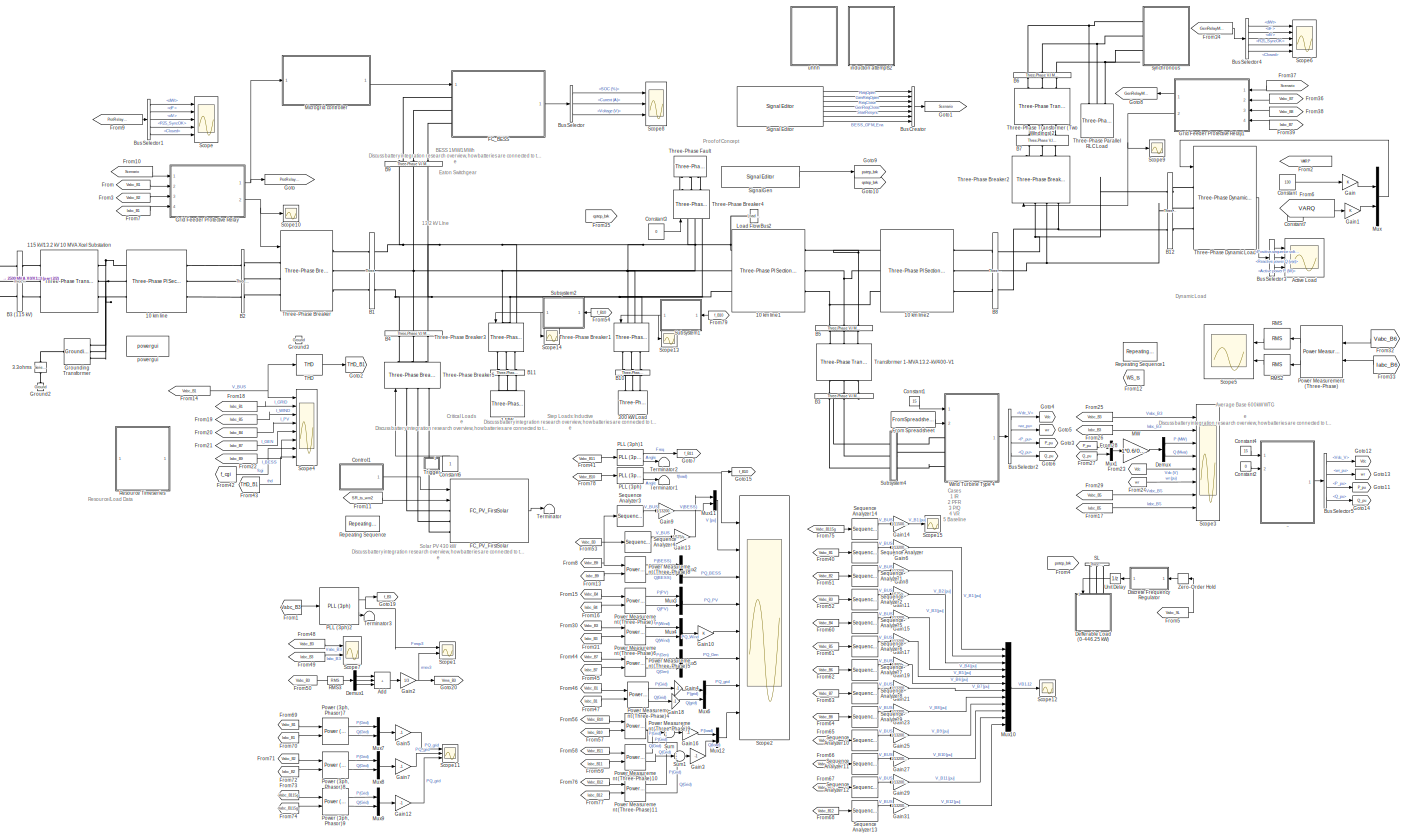
[diagram: root canvas - part 1/2, most of the canvas]
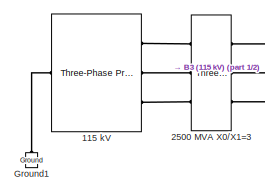
[diagram: root canvas - part 2/2, middle left region]
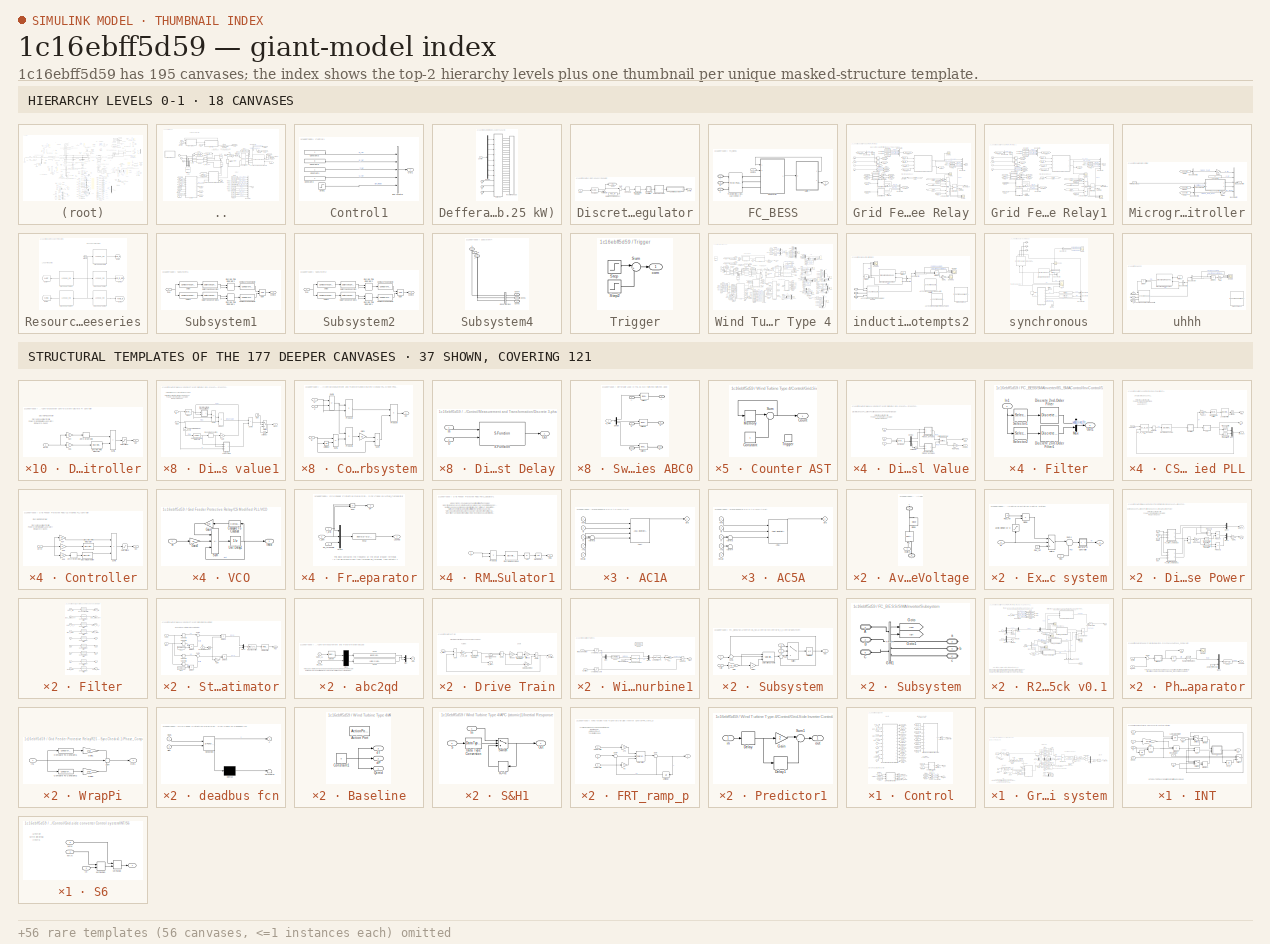
[diagram: thumbnail index - top-2 hierarchy levels (18 canvases) + 37 structural-template representatives of the remaining 177 canvases]
MODEL slx_1c16ebff5d59
KIND model
CONFIG AbsTol = auto
CONFIG EnableMultiTasking = off
CONFIG FixedStep = auto
CONFIG InitFcn = %load myisoModel_init;\nrun('FC_microgrid_param.m')\ntic\nrun('CARTinitFcn.m')\n%caseNo = 2;\n\n%if (caseNo == 1)\n%set_param(['Isolated_grid_paper_model_022521/SignalGen'], 'ActiveScenario', 'PStep222kW');\n%else\n%set_param(['Isolated_grid_paper_model_022521/SignalGen'], 'ActiveScenario', 'QStep222kVAr');\n\n%end;
CONFIG MaxStep = 1e-4
CONFIG MinStep = auto
CONFIG PreLoadFcn = %run('FC_microgrid_param.m')\n%load('gen_grid_init.mat')
CONFIG RelTol = 1e-3
CONFIG SampleTimeConstraint = Unconstrained
CONFIG Solver = VariableStepAuto
CONFIG SolverName = VariableStepAuto
CONFIG StartTime = 0.0
CONFIG StopFcn = toc
CONFIG StopTime = 12
BLOCK [SubSystem] ..
  Commented = on
  LoadFcn = %find_system(gcs,'FollowLinks', 'on', 'LookUnderMasks', 'all');
  NameLocation = top
  Ports = [2, 1, 0, 0, 0, 3]
  RequestExecContextInheritance = off
BLOCK [Gain] ../-> pu
  Gain = 1/(Pnom/(3*sqrt(2)/pi*Vnom_gen))
  NameLocation = top
  OutDataTypeStr = Inherit: Same as input
  ParamDataTypeStr = Inherit: Same as input
  SaturateOnIntegerOverflow = on
BLOCK [PMIOPort] ../A
  Side = Left
  Tag = PMCPort
BLOCK [SubSystem] ../Average Switch Voltage
  NameLocation = right
  Ports = [1, 0, 0, 0, 0, 1, 1]
  RequestExecContextInheritance = off
BLOCK [PMIOPort] ../Average Switch Voltage/+
  NameLocation = right
  Side = Right
BLOCK [PMIOPort] ../Average Switch Voltage/-
  NameLocation = right
  Port = 2
  Side = Left
BLOCK [Reference] ../Average Switch Voltage/Diode  REF=powerlib/Power
Electronics/Diode
  NameLocation = right
  Ports = [0, 0, 0, 0, 0, 1, 1]
  SourceBlock = powerlib/Power\nElectronics/Diode
  SourceProductBaseCode = MT,PS
  SourceType = Diode
BLOCK [Reference] ../Average Switch Voltage/V  REF=powerlib/Electrical
Sources/Controlled Voltage Source
  NameLocation = right
  Ports = [1, 0, 0, 0, 0, 1, 1]
  SourceBlock = powerlib/Electrical\nSources/Controlled Voltage Source
  SourceProductBaseCode = MT,PS
  SourceType = Controlled Voltage Source
BLOCK [Inport] ../Average Switch Voltage/Vswitch
  NameLocation = left
BLOCK [PMIOPort] ../B
  Port = 2
  Side = Left
  Tag = PMCPort
BLOCK [Reference] ../B_gen  REF=powerlib/Measurements/Three-Phase
V-I Measurement
  Ports = [0, 2, 0, 0, 0, 3, 3]
  SourceBlock = powerlib/Measurements/Three-Phase\nV-I Measurement
  SourceProductBaseCode = MT,PS
  SourceType = Three-Phase VI Measurement
BLOCK [Reference] ../B_grid  REF=powerlib/Measurements/Three-Phase
V-I Measurement
  Ports = [0, 2, 0, 0, 0, 3, 3]
  SourceBlock = powerlib/Measurements/Three-Phase\nV-I Measurement
  SourceProductBaseCode = MT,PS
  SourceType = Three-Phase VI Measurement
BLOCK [Reference] ../B_grid_conv  REF=powerlib/Measurements/Three-Phase
V-I Measurement
  Ports = [0, 1, 0, 0, 0, 3, 3]
  SourceBlock = powerlib/Measurements/Three-Phase\nV-I Measurement
  SourceProductBaseCode = MT,PS
  SourceType = Three-Phase VI Measurement
BLOCK [BusCreator] ../Bus Creator
  DisplayOption = bar
  InheritFromInputs = on
  Inputs = 11
  Ports = [11, 1]
BLOCK [BusSelector] ../Bus Selector
  OutputSignals = Mechanical.Rotor speed  wm  (pu),Mechanical.Rotor mechanical angle  theta (deg)
  Ports = [1, 2]
BLOCK [PMIOPort] ../C
  Port = 3
  Side = Left
  Tag = PMCPort
BLOCK [Reference] ../Choke   REF=powerlib/Elements/Three-Phase
Series RLC Branch
  AttributesFormatString = \n
  Ports = [0, 0, 0, 0, 0, 3, 3]
  SourceBlock = powerlib/Elements/Three-Phase\nSeries RLC Branch
  SourceProductBaseCode = MT,PS
  SourceType = Three-Phase Series RLC Branch
BLOCK [SubSystem] ../Control
  Ports = [9, 5]
  RequestExecContextInheritance = off
BLOCK [BusCreator] ../Control/Bus Creator
  DisplayOption = bar
  InheritFromInputs = on
  Inputs = 2
  Ports = [2, 1]
BLOCK [Outport] ../Control/Duty_Cycle
  Port = 2
  VectorParamsAs1DForOutWhenUnconnected = off
BLOCK [SubSystem] ../Control/Excitation Control system
  Ports = [2, 1]
  RequestExecContextInheritance = off
BLOCK [SubSystem] ../Control/Excitation Control system/Discrete PI Controller
  DialogController = POWERSYS.PowerSysDialog
  Ports = [1, 1]
  RequestExecContextInheritance = off
BLOCK [DiscreteIntegrator] ../Control/Excitation Control system/Discrete PI Controller/Discrete-Time Integrator
  ICPrevOutput = DiscIntNeverNeededParam
  ICPrevScaledInput = DiscIntNeverNeededParam
  InitialCondition = Init
  LimitOutput = on
  LowerSaturationLimit = LowerLimit
  Ports = [1, 1]
  SampleTime = Ts
  UpperSaturationLimit = UpperLimit
BLOCK [Inport] ../Control/Excitation Control system/Discrete PI Controller/Error
  SampleTime = Ts
BLOCK [Gain] ../Control/Excitation Control system/Discrete PI Controller/Kp4
  Gain = Kp
  OutDataTypeStr = Inherit: Same as input
  ParamDataTypeStr = Inherit: Same as input
  SampleTime = Ts
  SaturateOnIntegerOverflow = on
BLOCK [Gain] ../Control/Excitation Control system/Discrete PI Controller/Kp5
  Gain = Ki
  OutDataTypeStr = Inherit: Same as input
  ParamDataTypeStr = Inherit: Same as input
  SampleTime = Ts
  SaturateOnIntegerOverflow = on
BLOCK [Outport] ../Control/Excitation Control system/Discrete PI Controller/Out
  InitialOutput = 0
  SampleTime = Ts
  VectorParamsAs1DForOutWhenUnconnected = off
BLOCK [Saturate] ../Control/Excitation Control system/Discrete PI Controller/Saturation2
  LowerLimit = LowerLimit
  NameLocation = top
  SampleTime = Ts
  UpperLimit = UpperLimit
BLOCK [Sum] ../Control/Excitation Control system/Discrete PI Controller/Sum6
  IconShape = rectangular
  InputSameDT = on
  OutDataTypeStr = Inherit: Same as first input
  Ports = [2, 1]
  SampleTime = Ts
  SaturateOnIntegerOverflow = on
BLOCK [ZeroOrderHold] ../Control/Excitation Control system/Discrete PI Controller/Zero-Order Hold
  SampleTime = Ts
BLOCK [Product] ../Control/Excitation Control system/Divide
  Inputs = */
  Ports = [2, 1]
BLOCK [Inport] ../Control/Excitation Control system/Flux
BLOCK [Constant] ../Control/Excitation Control system/Flux_ref
BLOCK [Constant] ../Control/Excitation Control system/Flux_ref 
BLOCK [Sum] ../Control/Excitation Control system/Sum4
  InputSameDT = on
  Inputs = |+-
  OutDataTypeStr = Inherit: Same as first input
  Ports = [2, 1]
  SaturateOnIntegerOverflow = on
BLOCK [Switch] ../Control/Excitation Control system/Switch
  InputSameDT = off
  SaturateOnIntegerOverflow = off
  Threshold = 1
BLOCK [Outport] ../Control/Excitation Control system/Vf
  VectorParamsAs1DForOutWhenUnconnected = off
BLOCK [Saturate] ../Control/Excitation Control system/avoid division by 0
  LowerLimit = 1e-6
  NameLocation = left
  UpperLimit = inf
BLOCK [Inport] ../Control/Excitation Control system/wr
  Port = 2
BLOCK [From] ../Control/From1
  CloseFcn = tagdialog Close
  GotoTag = Idq_gc
BLOCK [From] ../Control/From12
  CloseFcn = tagdialog Close
  GotoTag = wr
BLOCK [From] ../Control/From13
  CloseFcn = tagdialog Close
  GotoTag = Qmeas
BLOCK [From] ../Control/From18
  CloseFcn = tagdialog Close
  GotoTag = Vdq_grid
BLOCK [From] ../Control/From2
  CloseFcn = tagdialog Close
  GotoTag = Vdc_meas
BLOCK [From] ../Control/From22
  CloseFcn = tagdialog Close
  GotoTag = w_pu
BLOCK [From] ../Control/From23
  CloseFcn = tagdialog Close
  GotoTag = Pmeas
BLOCK [From] ../Control/From24
  CloseFcn = tagdialog Close
  GotoTag = Vmeas
BLOCK [From] ../Control/From3
  CloseFcn = tagdialog Close
  GotoTag = Theta_PLL
BLOCK [From] ../Control/From4
  CloseFcn = tagdialog Close
  GotoTag = Pmeas
BLOCK [From] ../Control/From5
  CloseFcn = tagdialog Close
  GotoTag = Flux
BLOCK [From] ../Control/From6
  CloseFcn = tagdialog Close
  GotoTag = wr
BLOCK [From] ../Control/From7
  CloseFcn = tagdialog Close
  GotoTag = Qmeas
BLOCK [From] ../Control/From8
  CloseFcn = tagdialog Close
  GotoTag = Qref
BLOCK [From] ../Control/From9
  CloseFcn = tagdialog Close
  GotoTag = IL
BLOCK [Goto] ../Control/Goto1
  GotoTag = Theta_PLL
BLOCK [Goto] ../Control/Goto10
  GotoTag = Idq_gc
BLOCK [Goto] ../Control/Goto12
  GotoTag = Flux
BLOCK [Goto] ../Control/Goto13
  GotoTag = w_pu
BLOCK [Goto] ../Control/Goto14
  GotoTag = Vmeas
BLOCK [Goto] ../Control/Goto15
  GotoTag = Pmeas
BLOCK [Goto] ../Control/Goto17
  GotoTag = Qmeas
BLOCK [Goto] ../Control/Goto2
  GotoTag = Vdc_meas
BLOCK [Goto] ../Control/Goto3
  GotoTag = IL
BLOCK [Goto] ../Control/Goto4
  GotoTag = wr
BLOCK [Goto] ../Control/Goto6
  GotoTag = Qref
BLOCK [Goto] ../Control/Goto9
  GotoTag = Vdq_grid
BLOCK [SubSystem] ../Control/Grid-side converter Control system
  Ports = [8, 1]
  RequestExecContextInheritance = off
BLOCK [Gain] ../Control/Grid-side converter Control system/->pu
  Gain = 1/Vdc_nom
BLOCK [Saturate] ../Control/Grid-side converter Control system/0-Mod_index_max
  LowerLimit = 0
  NameLocation = top
  UpperLimit = Mod_index_max
BLOCK [Saturate] ../Control/Grid-side converter Control system/Avoid division by zero
  LowerLimit = 1e-6
  NameLocation = right
  UpperLimit = 1e6
BLOCK [Reference] ../Control/Grid-side converter Control system/Cartesian to Polar  REF=simulink_extras/Transformations/Cartesian to
Polar
  Ports = [2, 2]
  SourceBlock = simulink_extras/Transformations/Cartesian to\nPolar
  SourceProductBaseCode = SL
  SourceType = Cart2Polar
BLOCK [Constant] ../Control/Grid-side converter Control system/Constant1
  Value = L_RL
BLOCK [Constant] ../Control/Grid-side converter Control system/Constant2
  Value = 0
BLOCK [Constant] ../Control/Grid-side converter Control system/Constant3
  Value = Ki_volt_reg
BLOCK [Constant] ../Control/Grid-side converter Control system/Constant4
  Value = L_RL
BLOCK [Constant] ../Control/Grid-side converter Control system/Constant5
  Value = R_RL
BLOCK [Constant] ../Control/Grid-side converter Control system/Constant6
  Value = R_RL
BLOCK [DataTypeConversion] ../Control/Grid-side converter Control system/Data Type Conversion2
  OutDataTypeStr = boolean
  RndMeth = Floor
  SaturateOnIntegerOverflow = off
BLOCK [Demux] ../Control/Grid-side converter Control system/Demux
  DisplayOption = none
  Outputs = 2
  Ports = [1, 2]
BLOCK [Demux] ../Control/Grid-side converter Control system/Demux3
  DisplayOption = none
  Outputs = 2
  Ports = [1, 2]
BLOCK [Demux] ../Control/Grid-side converter Control system/Demux4
  DisplayOption = none
  Outputs = 2
  Ports = [1, 2]
BLOCK [SubSystem] ../Control/Grid-side converter Control system/Discrete PI Controller
  DialogController = POWERSYS.PowerSysDialog
  Ports = [1, 1]
  RequestExecContextInheritance = off
BLOCK [DiscreteIntegrator] ../Control/Grid-side converter Control system/Discrete PI Controller/Discrete-Time Integrator
  ICPrevOutput = DiscIntNeverNeededParam
  ICPrevScaledInput = DiscIntNeverNeededParam
  InitialCondition = Init
  LimitOutput = on
  LowerSaturationLimit = LowerLimit
  Ports = [1, 1]
  SampleTime = Ts
  UpperSaturationLimit = UpperLimit
BLOCK [Inport] ../Control/Grid-side converter Control system/Discrete PI Controller/Error
  SampleTime = Ts
BLOCK [Gain] ../Control/Grid-side converter Control system/Discrete PI Controller/Kp4
  Gain = Kp
  OutDataTypeStr = Inherit: Same as input
  ParamDataTypeStr = Inherit: Same as input
  SampleTime = Ts
  SaturateOnIntegerOverflow = on
BLOCK [Gain] ../Control/Grid-side converter Control system/Discrete PI Controller/Kp5
  Gain = Ki
  OutDataTypeStr = Inherit: Same as input
  ParamDataTypeStr = Inherit: Same as input
  SampleTime = Ts
  SaturateOnIntegerOverflow = on
BLOCK [Outport] ../Control/Grid-side converter Control system/Discrete PI Controller/Out
  InitialOutput = 0
  SampleTime = Ts
  VectorParamsAs1DForOutWhenUnconnected = off
BLOCK [Saturate] ../Control/Grid-side converter Control system/Discrete PI Controller/Saturation2
  LowerLimit = LowerLimit
  NameLocation = top
  SampleTime = Ts
  UpperLimit = UpperLimit
BLOCK [Sum] ../Control/Grid-side converter Control system/Discrete PI Controller/Sum6
  IconShape = rectangular
  InputSameDT = on
  OutDataTypeStr = Inherit: Same as first input
  Ports = [2, 1]
  SampleTime = Ts
  SaturateOnIntegerOverflow = on
BLOCK [ZeroOrderHold] ../Control/Grid-side converter Control system/Discrete PI Controller/Zero-Order Hold
  SampleTime = Ts
BLOCK [SubSystem] ../Control/Grid-side converter Control system/Discrete PI Controller1
  DialogController = POWERSYS.PowerSysDialog
  Ports = [1, 1]
  RequestExecContextInheritance = off
BLOCK [DiscreteIntegrator] ../Control/Grid-side converter Control system/Discrete PI Controller1/Discrete-Time Integrator
  ICPrevOutput = DiscIntNeverNeededParam
  ICPrevScaledInput = DiscIntNeverNeededParam
  InitialCondition = Init
  LimitOutput = on
  LowerSaturationLimit = LowerLimit
  Ports = [1, 1]
  SampleTime = Ts
  UpperSaturationLimit = UpperLimit
BLOCK [Inport] ../Control/Grid-side converter Control system/Discrete PI Controller1/Error
  SampleTime = Ts
BLOCK [Gain] ../Control/Grid-side converter Control system/Discrete PI Controller1/Kp4
  Gain = Kp
  OutDataTypeStr = Inherit: Same as input
  ParamDataTypeStr = Inherit: Same as input
  SampleTime = Ts
  SaturateOnIntegerOverflow = on
BLOCK [Gain] ../Control/Grid-side converter Control system/Discrete PI Controller1/Kp5
  Gain = Ki
  OutDataTypeStr = Inherit: Same as input
  ParamDataTypeStr = Inherit: Same as input
  SampleTime = Ts
  SaturateOnIntegerOverflow = on
BLOCK [Outport] ../Control/Grid-side converter Control system/Discrete PI Controller1/Out
  InitialOutput = 0
  SampleTime = Ts
  VectorParamsAs1DForOutWhenUnconnected = off
BLOCK [Saturate] ../Control/Grid-side converter Control system/Discrete PI Controller1/Saturation2
  LowerLimit = LowerLimit
  NameLocation = top
  SampleTime = Ts
  UpperLimit = UpperLimit
BLOCK [Sum] ../Control/Grid-side converter Control system/Discrete PI Controller1/Sum6
  IconShape = rectangular
  InputSameDT = on
  OutDataTypeStr = Inherit: Same as first input
  Ports = [2, 1]
  SampleTime = Ts
  SaturateOnIntegerOverflow = on
BLOCK [ZeroOrderHold] ../Control/Grid-side converter Control system/Discrete PI Controller1/Zero-Order Hold
  SampleTime = Ts
BLOCK [DiscreteIntegrator] ../Control/Grid-side converter Control system/Discrete-Time Integrator1
  ICPrevOutput = DiscIntNeverNeededParam
  ICPrevScaledInput = DiscIntNeverNeededParam
  InitialCondition = 1
  InitialConditionSource = external
  LimitOutput = on
  LowerSaturationLimit = Var_reg_output_low_limit
  Ports = [2, 1]
  SampleTime = Ts
  UpperSaturationLimit = Var_reg_output_hi_limit
  gainval = Ki_var_reg
BLOCK [Reference] ../Control/Grid-side converter Control system/First-Order Filter  REF=powerlib_meascontrol/Filters/First-Order
Filter
  Ports = [1, 1]
  SourceBlock = powerlib_meascontrol/Filters/First-Order\nFilter
  SourceProductBaseCode = MT,PS
  SourceType = First-Order Filter
BLOCK [From] ../Control/Grid-side converter Control system/From1
  CloseFcn = tagdialog Close
  GotoTag = w_pu
BLOCK [From] ../Control/Grid-side converter Control system/From10
  CloseFcn = tagdialog Close
  GotoTag = id_ref
BLOCK [From] ../Control/Grid-side converter Control system/From2
  CloseFcn = tagdialog Close
  GotoTag = iq_ref
BLOCK [From] ../Control/Grid-side converter Control system/From3
  CloseFcn = tagdialog Close
  GotoTag = iq_ref
BLOCK [From] ../Control/Grid-side converter Control system/From4
  CloseFcn = tagdialog Close
  GotoTag = w_pu
BLOCK [From] ../Control/Grid-side converter Control system/From5
  CloseFcn = tagdialog Close
  GotoTag = id_ref
BLOCK [From] ../Control/Grid-side converter Control system/From6
  CloseFcn = tagdialog Close
  GotoTag = Vd
BLOCK [From] ../Control/Grid-side converter Control system/From7
  CloseFcn = tagdialog Close
  GotoTag = Vq
BLOCK [From] ../Control/Grid-side converter Control system/From8
  CloseFcn = tagdialog Close
  GotoTag = Vdc
BLOCK [Gain] ../Control/Grid-side converter Control system/Gain
  Gain = -1
  OutDataTypeStr = Inherit: Same as input
  ParamDataTypeStr = Inherit: Same as input
  SaturateOnIntegerOverflow = on
BLOCK [Goto] ../Control/Grid-side converter Control system/Goto1
  GotoTag = w_pu
BLOCK [Goto] ../Control/Grid-side converter Control system/Goto13
  GotoTag = Vdc
BLOCK [Goto] ../Control/Grid-side converter Control system/Goto2
  GotoTag = iq_ref
BLOCK [Goto] ../Control/Grid-side converter Control system/Goto3
  GotoTag = id_ref
BLOCK [Goto] ../Control/Grid-side converter Control system/Goto4
  GotoTag = Vd
BLOCK [Goto] ../Control/Grid-side converter Control system/Goto5
  GotoTag = Vq
BLOCK [SubSystem] ../Control/Grid-side converter Control system/INT
  Ports = [7, 1]
  RequestExecContextInheritance = off
BLOCK [Gain] ../Control/Grid-side converter Control system/INT/Gain
  Gain = Ts* 0.5
  OutDataTypeStr = Inherit: Same as input
  ParamDataTypeStr = Inherit: Same as input
  SaturateOnIntegerOverflow = on
BLOCK [Inport] ../Control/Grid-side converter Control system/INT/Hold
  Port = 5
BLOCK [UnitDelay] ../Control/Grid-side converter Control system/INT/IC = 0
  HasFrameUpgradeWarning = on
  SampleTime = Ts
BLOCK [UnitDelay] ../Control/Grid-side converter Control system/INT/IC = i_ic
  HasFrameUpgradeWarning = on
  SampleTime = Ts
BLOCK [Inport] ../Control/Grid-side converter Control system/INT/In
  Port = 3
BLOCK [Inport] ../Control/Grid-side converter Control system/INT/Ki
  Port = 4
BLOCK [Logic] ../Control/Grid-side converter Control system/INT/Logical Operator4
  Operator = OR
  Ports = [2, 1]
BLOCK [Inport] ../Control/Grid-side converter Control system/INT/Max
BLOCK [Inport] ../Control/Grid-side converter Control system/INT/Min
  Port = 2
BLOCK [MinMax] ../Control/Grid-side converter Control system/INT/MinMax
  InputSameDT = on
  Inputs = 2
  Ports = [2, 1]
  SaturateOnIntegerOverflow = on
BLOCK [MinMax] ../Control/Grid-side converter Control system/INT/MinMax1
  Function = max
  InputSameDT = on
  Inputs = 2
  Ports = [2, 1]
  SaturateOnIntegerOverflow = on
BLOCK [Outport] ../Control/Grid-side converter Control system/INT/Out
  InitialOutput = 0
  VectorParamsAs1DForOutWhenUnconnected = off
BLOCK [Product] ../Control/Grid-side converter Control system/INT/Product
  OutDataTypeStr = Inherit: Same as first input
  Ports = [2, 1]
  SaturateOnIntegerOverflow = on
BLOCK [Inport] ../Control/Grid-side converter Control system/INT/Reset
  Port = 6
BLOCK [Inport] ../Control/Grid-side converter Control system/INT/Reset Value
  NameLocation = top
  Port = 7
BLOCK [SubSystem] ../Control/Grid-side converter Control system/INT/S6
  Ports = [3, 1]
  RequestExecContextInheritance = off
BLOCK [Outport] ../Control/Grid-side converter Control system/INT/S6/  
  InitialOutput = 0
  VectorParamsAs1DForOutWhenUnconnected = off
BLOCK [Inport] ../Control/Grid-side converter Control system/INT/S6/In
  Port = 2
BLOCK [Inport] ../Control/Grid-side converter Control system/INT/S6/MAX
BLOCK [Inport] ../Control/Grid-side converter Control system/INT/S6/MIN
  Port = 3
BLOCK [MinMax] ../Control/Grid-side converter Control system/INT/S6/MinMax
  Function = max
  InputSameDT = on
  Inputs = 2
  Ports = [2, 1]
  SaturateOnIntegerOverflow = on
BLOCK [MinMax] ../Control/Grid-side converter Control system/INT/S6/MinMax1
  InputSameDT = on
  Inputs = 2
  Ports = [2, 1]
  SaturateOnIntegerOverflow = on
BLOCK [Sum] ../Control/Grid-side converter Control system/INT/Sum
  IconShape = rectangular
  InputSameDT = on
  OutDataTypeStr = Inherit: Same as first input
  Ports = [2, 1]
  SaturateOnIntegerOverflow = on
BLOCK [Sum] ../Control/Grid-side converter Control system/INT/Sum1
  IconShape = rectangular
  InputSameDT = on
  OutDataTypeStr = Inherit: Same as first input
  Ports = [2, 1]
  SaturateOnIntegerOverflow = on
BLOCK [Switch] ../Control/Grid-side converter Control system/INT/Switch2
  Threshold = 0.5
BLOCK [Switch] ../Control/Grid-side converter Control system/INT/Switch3
  Threshold = 0.5
BLOCK [Switch] ../Control/Grid-side converter Control system/INT/Switch7
  Threshold = 0.5
BLOCK [Inport] ../Control/Grid-side converter Control system/Idq_gc
BLOCK [Constant] ../Control/Grid-side converter Control system/Imax^2
  Value = Imax_grid_conv^2
BLOCK [Constant] ../Control/Grid-side converter Control system/K
  Value = Vnom*2*sqrt(2/3)
BLOCK [Math] ../Control/Grid-side converter Control system/Math Function
  Operator = square
  Ports = [1, 1]
  SignedPower = on
BLOCK [Math] ../Control/Grid-side converter Control system/Math Function1
  Operator = sqrt
  Ports = [1, 1]
  SignedPower = on
BLOCK [Mux] ../Control/Grid-side converter Control system/Mux
  DisplayOption = bar
  Inputs = 3
  Ports = [3, 1]
BLOCK [Mux] ../Control/Grid-side converter Control system/Mux2
  DisplayOption = bar
  Inputs = 2
  Ports = [2, 1]
BLOCK [Reference] ../Control/Grid-side converter Control system/Polar to Cartesian  REF=simulink_extras/Transformations/Polar to
Cartesian
  Ports = [2, 2]
  SourceBlock = simulink_extras/Transformations/Polar to\nCartesian
  SourceProductBaseCode = SL
  SourceType = Polar2Cart
BLOCK [Product] ../Control/Grid-side converter Control system/Product
  InputSameDT = on
  Inputs = 3
  OutDataTypeStr = Inherit: Same as first input
  Ports = [3, 1]
  SaturateOnIntegerOverflow = on
BLOCK [Product] ../Control/Grid-side converter Control system/Product1
  InputSameDT = on
  Inputs = 3
  OutDataTypeStr = Inherit: Same as first input
  Ports = [3, 1]
  SaturateOnIntegerOverflow = on
BLOCK [Product] ../Control/Grid-side converter Control system/Product2
  InputSameDT = on
  OutDataTypeStr = Inherit: Same as first input
  Ports = [2, 1]
  SaturateOnIntegerOverflow = on
BLOCK [Product] ../Control/Grid-side converter Control system/Product3
  InputSameDT = on
  OutDataTypeStr = Inherit: Same as first input
  Ports = [2, 1]
  SaturateOnIntegerOverflow = on
BLOCK [Product] ../Control/Grid-side converter Control system/Product4
  InputSameDT = on
  Inputs = **/
  OutDataTypeStr = Inherit: Same as first input
  Ports = [3, 1]
  SaturateOnIntegerOverflow = on
BLOCK [Inport] ../Control/Grid-side converter Control system/Qmeas
  Port = 6
BLOCK [Inport] ../Control/Grid-side converter Control system/Qref
  Port = 5
BLOCK [Sum] ../Control/Grid-side converter Control system/Sum
  InputSameDT = on
  Inputs = |+-
  OutDataTypeStr = Inherit: Same as first input
  Ports = [2, 1]
  SaturateOnIntegerOverflow = on
BLOCK [Sum] ../Control/Grid-side converter Control system/Sum1
  InputSameDT = on
  Inputs = |-+
  OutDataTypeStr = Inherit: Same as first input
  Ports = [2, 1]
  SaturateOnIntegerOverflow = on
BLOCK [Sum] ../Control/Grid-side converter Control system/Sum2
  InputSameDT = on
  Inputs = |+-
  OutDataTypeStr = Inherit: Same as first input
  Ports = [2, 1]
  SaturateOnIntegerOverflow = on
BLOCK [Sum] ../Control/Grid-side converter Control system/Sum3
  InputSameDT = on
  Inputs = |+-
  OutDataTypeStr = Inherit: Same as first input
  Ports = [2, 1]
  SaturateOnIntegerOverflow = on
BLOCK [Sum] ../Control/Grid-side converter Control system/Sum4
  InputSameDT = on
  Inputs = -+|
  OutDataTypeStr = Inherit: Same as first input
  Ports = [2, 1]
  SaturateOnIntegerOverflow = on
BLOCK [Sum] ../Control/Grid-side converter Control system/Sum5
  InputSameDT = on
  Inputs = ||++-
  OutDataTypeStr = Inherit: Same as first input
  Ports = [3, 1]
  SaturateOnIntegerOverflow = on
BLOCK [Sum] ../Control/Grid-side converter Control system/Sum6
  InputSameDT = on
  Inputs = |+-
  OutDataTypeStr = Inherit: Same as first input
  Ports = [2, 1]
  SaturateOnIntegerOverflow = on
BLOCK [Sum] ../Control/Grid-side converter Control system/Sum7
  InputSameDT = on
  Inputs = |+-
  OutDataTypeStr = Inherit: Same as first input
  Ports = [2, 1]
  SaturateOnIntegerOverflow = on
BLOCK [Sum] ../Control/Grid-side converter Control system/Sum8
  InputSameDT = on
  Inputs = |--+
  OutDataTypeStr = Inherit: Same as first input
  Ports = [3, 1]
  SaturateOnIntegerOverflow = on
BLOCK [Sum] ../Control/Grid-side converter Control system/Sum9
  InputSameDT = on
  Inputs = |-+
  OutDataTypeStr = Inherit: Same as first input
  Ports = [2, 1]
  SaturateOnIntegerOverflow = on
BLOCK [Inport] ../Control/Grid-side converter Control system/Theta_PLL
  Port = 8
BLOCK [Outport] ../Control/Grid-side converter Control system/Uctrl_inverter
  VectorParamsAs1DForOutWhenUnconnected = off
BLOCK [UnitDelay] ../Control/Grid-side converter Control system/Unit Delay1
  HasFrameUpgradeWarning = on
  InitialCondition = 1
  SampleTime = Ts
BLOCK [Constant] ../Control/Grid-side converter Control system/V0
  Value = 0
BLOCK [Inport] ../Control/Grid-side converter Control system/Vdc
  Port = 4
BLOCK [Constant] ../Control/Grid-side converter Control system/Vdc_ref (V)
  NameLocation = top
  Value = Vdc_nom
BLOCK [Inport] ../Control/Grid-side converter Control system/Vdq_grid
  Port = 3
BLOCK [Inport] ../Control/Grid-side converter Control system/Vmeas
  Port = 7
BLOCK [Reference] ../Control/Grid-side converter Control system/dq0 to abc  REF=powerlib_meascontrol/Transformations/dq0 to abc
  Ports = [2, 1]
  SourceBlock = powerlib_meascontrol/Transformations/dq0 to abc
  SourceProductBaseCode = MT,PS
  SourceType = dq0 to abc Transformation
BLOCK [Inport] ../Control/Grid-side converter Control system/w_pu
  Port = 2
BLOCK [Inport] ../Control/IL
  Port = 5
BLOCK [Inport] ../Control/Iabc_grid_conv
  Port = 2
BLOCK [Inport] ../Control/Iabc_stator
  Port = 4
BLOCK [SubSystem] ../Control/Measurement and Transformation
  Ports = [9, 12]
  RequestExecContextInheritance = off
BLOCK [Gain] ../Control/Measurement and Transformation/# pairs of poles
  Gain = p
  NameLocation = top
  OutDataTypeStr = Inherit: Same as input
  ParamDataTypeStr = Inherit: Same as input
  SaturateOnIntegerOverflow = on
BLOCK [Gain] ../Control/Measurement and Transformation/C_var_filter
  Gain = C_var_filter
  OutDataTypeStr = Inherit: Same as input
  ParamDataTypeStr = Inherit: Same as input
  SaturateOnIntegerOverflow = on
BLOCK [Gain] ../Control/Measurement and Transformation/C_var_filter//Q
  Gain = C_var_filter/Q_filter
  OutDataTypeStr = Inherit: Same as input
  ParamDataTypeStr = Inherit: Same as input
  SaturateOnIntegerOverflow = on
BLOCK [Constant] ../Control/Measurement and Transformation/Constant1
  NameLocation = top
  Value = Vnom/sqrt(3)*sqrt(2)
BLOCK [Constant] ../Control/Measurement and Transformation/Constant4
  NameLocation = top
  Value = 2*pi
BLOCK [Demux] ../Control/Measurement and Transformation/Demux1
  DisplayOption = none
  Outputs = [2 1]
  Ports = [1, 2]
BLOCK [Demux] ../Control/Measurement and Transformation/Demux2
  DisplayOption = none
  Outputs = [2 1]
  Ports = [1, 2]
BLOCK [Demux] ../Control/Measurement and Transformation/Demux3
  DisplayOption = none
  Outputs = [2 1]
  Ports = [1, 2]
BLOCK [SubSystem] ../Control/Measurement and Transformation/Discrete 3-phase PLL-Driven Positive-Sequence Active & Reactive Power
  OpenFcn = power_openblockproxy();
  Ports = [4, 2]
  RequestExecContextInheritance = off
BLOCK [Gain] ../Control/Measurement and Transformation/Discrete 3-phase PLL-Driven Positive-Sequence Active & Reactive Power/Deg->Rad
  Gain = pi/180
  OutDataTypeStr = Inherit: Same as input
  ParamDataTypeStr = Inherit: Same as input
  SaturateOnIntegerOverflow = on
BLOCK [SubSystem] ../Control/Measurement and Transformation/Discrete 3-phase PLL-Driven Positive-Sequence Active & Reactive Power/Discrete 3-phase PLL-Driven Positive-Sequence Fundamental Value
  OpenFcn = power_openblockproxy();
  Ports = [3, 2]
  RequestExecContextInheritance = off
BLOCK [Reference] ../Control/Measurement and Transformation/Discrete 3-phase PLL-Driven Positive-Sequence Active & Reactive Power/Discrete 3-phase PLL-Driven Positive-Sequence Fundamental Value/Cartesian to Polar  REF=simulink_extras/Transformations/Cartesian to
Polar
  Ports = [2, 2]
  SourceBlock = simulink_extras/Transformations/Cartesian to\nPolar
  SourceProductBaseCode = SL
  SourceType = Cart2Polar
BLOCK [Demux] ../Control/Measurement and Transformation/Discrete 3-phase PLL-Driven Positive-Sequence Active & Reactive Power/Discrete 3-phase PLL-Driven Positive-Sequence Fundamental Value/Demux
  DisplayOption = none
  Outputs = 3
  Ports = [1, 3]
BLOCK [SubSystem] ../Control/Measurement and Transformation/Discrete 3-phase PLL-Driven Positive-Sequence Active & Reactive Power/Discrete 3-phase PLL-Driven Positive-Sequence Fundamental Value/Discrete Variable Frequency Mean value1
  OpenFcn = power_openblockproxy();
  Ports = [2, 1]
  RequestExecContextInheritance = off
BLOCK [SubSystem] ../Control/Measurement and Transformation/Discrete 3-phase PLL-Driven Positive-Sequence Active & Reactive Power/Discrete 3-phase PLL-Driven Positive-Sequence Fundamental Value/Discrete Variable Frequency Mean value1/Correction subsystem
  Ports = [3, 1]
  RequestExecContextInheritance = off
BLOCK [Inport] ../Control/Measurement and Transformation/Discrete 3-phase PLL-Driven Positive-Sequence Active & Reactive Power/Discrete 3-phase PLL-Driven Positive-Sequence Fundamental Value/Discrete Variable Frequency Mean value1/Correction subsystem/F
  Port = 2
BLOCK [Gain] ../Control/Measurement and Transformation/Discrete 3-phase PLL-Driven Positive-Sequence Active & Reactive Power/Discrete 3-phase PLL-Driven Positive-Sequence Fundamental Value/Discrete Variable Frequency Mean value1/Correction subsystem/Gain1
  Gain = 0.5
  OutDataTypeStr = Inherit: Same as input
  ParamDataTypeStr = Inherit: Same as input
  SaturateOnIntegerOverflow = on
BLOCK [Inport] ../Control/Measurement and Transformation/Discrete 3-phase PLL-Driven Positive-Sequence Active & Reactive Power/Discrete 3-phase PLL-Driven Positive-Sequence Fundamental Value/Discrete Variable Frequency Mean value1/Correction subsystem/In
  Port = 3
BLOCK [Inport] ../Control/Measurement and Transformation/Discrete 3-phase PLL-Driven Positive-Sequence Active & Reactive Power/Discrete 3-phase PLL-Driven Positive-Sequence Fundamental Value/Discrete Variable Frequency Mean value1/Correction subsystem/N
BLOCK [Outport] ../Control/Measurement and Transformation/Discrete 3-phase PLL-Driven Positive-Sequence Active & Reactive Power/Discrete 3-phase PLL-Driven Positive-Sequence Fundamental Value/Discrete Variable Frequency Mean value1/Correction subsystem/Out
  VectorParamsAs1DForOutWhenUnconnected = off
BLOCK [Product] ../Control/Measurement and Transformation/Discrete 3-phase PLL-Driven Positive-Sequence Active & Reactive Power/Discrete 3-phase PLL-Driven Positive-Sequence Fundamental Value/Discrete Variable Frequency Mean value1/Correction subsystem/Product2
  InputSameDT = on
  Inputs = */
  OutDataTypeStr = Inherit: Same as first input
  Ports = [2, 1]
  SaturateOnIntegerOverflow = on
BLOCK [Product] ../Control/Measurement and Transformation/Discrete 3-phase PLL-Driven Positive-Sequence Active & Reactive Power/Discrete 3-phase PLL-Driven Positive-Sequence Fundamental Value/Discrete Variable Frequency Mean value1/Correction subsystem/Product4
  InputSameDT = on
  Inputs = **
  OutDataTypeStr = Inherit: Same as first input
  Ports = [2, 1]
  SaturateOnIntegerOverflow = on
BLOCK [Product] ../Control/Measurement and Transformation/Discrete 3-phase PLL-Driven Positive-Sequence Active & Reactive Power/Discrete 3-phase PLL-Driven Positive-Sequence Fundamental Value/Discrete Variable Frequency Mean value1/Correction subsystem/Product5
  InputSameDT = on
  Inputs = **
  OutDataTypeStr = Inherit: Same as first input
  Ports = [2, 1]
  SaturateOnIntegerOverflow = on
BLOCK [Sum] ../Control/Measurement and Transformation/Discrete 3-phase PLL-Driven Positive-Sequence Active & Reactive Power/Discrete 3-phase PLL-Driven Positive-Sequence Fundamental Value/Discrete Variable Frequency Mean value1/Correction subsystem/Sum1
  IconShape = rectangular
  InputSameDT = on
  Inputs = +-
  OutDataTypeStr = Inherit: Same as first input
  Ports = [2, 1]
  SaturateOnIntegerOverflow = on
BLOCK [Sum] ../Control/Measurement and Transformation/Discrete 3-phase PLL-Driven Positive-Sequence Active & Reactive Power/Discrete 3-phase PLL-Driven Positive-Sequence Fundamental Value/Discrete Variable Frequency Mean value1/Correction subsystem/Sum4
  IconShape = rectangular
  InputSameDT = on
  OutDataTypeStr = Inherit: Same as first input
  Ports = [2, 1]
  SaturateOnIntegerOverflow = on
BLOCK [Sum] ../Control/Measurement and Transformation/Discrete 3-phase PLL-Driven Positive-Sequence Active & Reactive Power/Discrete 3-phase PLL-Driven Positive-Sequence Fundamental Value/Discrete Variable Frequency Mean value1/Correction subsystem/Sum5
  IconShape = rectangular
  InputSameDT = on
  Inputs = +-
  OutDataTypeStr = Inherit: Same as first input
  Ports = [2, 1]
  SaturateOnIntegerOverflow = on
BLOCK [UnitDelay] ../Control/Measurement and Transformation/Discrete 3-phase PLL-Driven Positive-Sequence Active & Reactive Power/Discrete 3-phase PLL-Driven Positive-Sequence Fundamental Value/Discrete Variable Frequency Mean value1/Correction subsystem/Unit Delay
  HasFrameUpgradeWarning = on
  SampleTime = Ts
BLOCK [SubSystem] ../Control/Measurement and Transformation/Discrete 3-phase PLL-Driven Positive-Sequence Active & Reactive Power/Discrete 3-phase PLL-Driven Positive-Sequence Fundamental Value/Discrete Variable Frequency Mean value1/Discrete Variable Transport Delay
  NameLocation = top
  Ports = [2, 1]
  RequestExecContextInheritance = off
BLOCK [Inport] ../Control/Measurement and Transformation/Discrete 3-phase PLL-Driven Positive-Sequence Active & Reactive Power/Discrete 3-phase PLL-Driven Positive-Sequence Fundamental Value/Discrete Variable Frequency Mean value1/Discrete Variable Transport Delay/D
  Port = 2
BLOCK [Inport] ../Control/Measurement and Transformation/Discrete 3-phase PLL-Driven Positive-Sequence Active & Reactive Power/Discrete 3-phase PLL-Driven Positive-Sequence Fundamental Value/Discrete Variable Frequency Mean value1/Discrete Variable Transport Delay/In
BLOCK [Outport] ../Control/Measurement and Transformation/Discrete 3-phase PLL-Driven Positive-Sequence Active & Reactive Power/Discrete 3-phase PLL-Driven Positive-Sequence Fundamental Value/Discrete Variable Frequency Mean value1/Discrete Variable Transport Delay/Out
  VectorParamsAs1DForOutWhenUnconnected = off
BLOCK [S-Function] ../Control/Measurement and Transformation/Discrete 3-phase PLL-Driven Positive-Sequence Active & Reactive Power/Discrete 3-phase PLL-Driven Positive-Sequence Fundamental Value/Discrete Variable Frequency Mean value1/Discrete Variable Transport Delay/S-Function 
  EnableBusSupport = off
  FunctionName = discreteVariableTransportDelay
  Parameters = MaxDelay,Ts,InitialValue
  Ports = [2, 1]
  SFcnIsStateOwnerBlock = off
  SFunctionDeploymentMode = off
BLOCK [Inport] ../Control/Measurement and Transformation/Discrete 3-phase PLL-Driven Positive-Sequence Active & Reactive Power/Discrete 3-phase PLL-Driven Positive-Sequence Fundamental Value/Discrete Variable Frequency Mean value1/Freq
  PortDimensions = 1
BLOCK [Gain] ../Control/Measurement and Transformation/Discrete 3-phase PLL-Driven Positive-Sequence Active & Reactive Power/Discrete 3-phase PLL-Driven Positive-Sequence Fundamental Value/Discrete Variable Frequency Mean value1/Gain
  Gain = Ts
  OutDataTypeStr = Inherit: Same as input
  ParamDataTypeStr = Inherit: Same as input
  SaturateOnIntegerOverflow = on
BLOCK [Inport] ../Control/Measurement and Transformation/Discrete 3-phase PLL-Driven Positive-Sequence Active & Reactive Power/Discrete 3-phase PLL-Driven Positive-Sequence Fundamental Value/Discrete Variable Frequency Mean value1/In
  Port = 2
  PortDimensions = 1
BLOCK [DiscreteIntegrator] ../Control/Measurement and Transformation/Discrete 3-phase PLL-Driven Positive-Sequence Active & Reactive Power/Discrete 3-phase PLL-Driven Positive-Sequence Fundamental Value/Discrete Variable Frequency Mean value1/Integ4
  ICPrevOutput = DiscIntNeverNeededParam
  ICPrevScaledInput = DiscIntNeverNeededParam
  IntegratorMethod = Integration: Trapezoidal
  Ports = [1, 1]
  SampleTime = Ts
BLOCK [Outport] ../Control/Measurement and Transformation/Discrete 3-phase PLL-Driven Positive-Sequence Active & Reactive Power/Discrete 3-phase PLL-Driven Positive-Sequence Fundamental Value/Discrete Variable Frequency Mean value1/Mean
  VectorParamsAs1DForOutWhenUnconnected = off
BLOCK [Fcn] ../Control/Measurement and Transformation/Discrete 3-phase PLL-Driven Positive-Sequence Active & Reactive Power/Discrete 3-phase PLL-Driven Positive-Sequence Fundamental Value/Discrete Variable Frequency Mean value1/Number of samples per cycle
  Expr = 1/u[1]/Ts
BLOCK [Product] ../Control/Measurement and Transformation/Discrete 3-phase PLL-Driven Positive-Sequence Active & Reactive Power/Discrete 3-phase PLL-Driven Positive-Sequence Fundamental Value/Discrete Variable Frequency Mean value1/Product
  InputSameDT = on
  OutDataTypeStr = Inherit: Same as first input
  Ports = [2, 1]
  SaturateOnIntegerOverflow = on
BLOCK [Rounding] ../Control/Measurement and Transformation/Discrete 3-phase PLL-Driven Positive-Sequence Active & Reactive Power/Discrete 3-phase PLL-Driven Positive-Sequence Fundamental Value/Discrete Variable Frequency Mean value1/Rounding Function
  NameLocation = top
  Operator = ceil
BLOCK [Step] ../Control/Measurement and Transformation/Discrete 3-phase PLL-Driven Positive-Sequence Active & Reactive Power/Discrete 3-phase PLL-Driven Positive-Sequence Fundamental Value/Discrete Variable Frequency Mean value1/Step
  SampleTime = Ts
  Time = 1/Finit
BLOCK [Sum] ../Control/Measurement and Transformation/Discrete 3-phase PLL-Driven Positive-Sequence Active & Reactive Power/Discrete 3-phase PLL-Driven Positive-Sequence Fundamental Value/Discrete Variable Frequency Mean value1/Sum5
  IconShape = rectangular
  InputSameDT = on
  OutDataTypeStr = Inherit: Same as first input
  Ports = [2, 1]
  SaturateOnIntegerOverflow = on
BLOCK [Sum] ../Control/Measurement and Transformation/Discrete 3-phase PLL-Driven Positive-Sequence Active & Reactive Power/Discrete 3-phase PLL-Driven Positive-Sequence Fundamental Value/Discrete Variable Frequency Mean value1/Sum7
  IconShape = rectangular
  InputSameDT = on
  Inputs = -+
  OutDataTypeStr = Inherit: Same as first input
  Ports = [2, 1]
  SaturateOnIntegerOverflow = on
BLOCK [Switch] ../Control/Measurement and Transformation/Discrete 3-phase PLL-Driven Positive-Sequence Active & Reactive Power/Discrete 3-phase PLL-Driven Positive-Sequence Fundamental Value/Discrete Variable Frequency Mean value1/Switch
  SaturateOnIntegerOverflow = off
  Threshold = 0.5
BLOCK [Saturate] ../Control/Measurement and Transformation/Discrete 3-phase PLL-Driven Positive-Sequence Active & Reactive Power/Discrete 3-phase PLL-Driven Positive-Sequence Fundamental Value/Discrete Variable Frequency Mean value1/To avoid division by zero
  LowerLimit = 1e-6
  NameLocation = right
  UpperLimit = 1e6
BLOCK [UnitDelay] ../Control/Measurement and Transformation/Discrete 3-phase PLL-Driven Positive-Sequence Active & Reactive Power/Discrete 3-phase PLL-Driven Positive-Sequence Fundamental Value/Discrete Variable Frequency Mean value1/Unit Delay
  HasFrameUpgradeWarning = on
  InitialCondition = Vinit
  SampleTime = Ts
BLOCK [SubSystem] ../Control/Measurement and Transformation/Discrete 3-phase PLL-Driven Positive-Sequence Active & Reactive Power/Discrete 3-phase PLL-Driven Positive-Sequence Fundamental Value/Discrete Variable Frequency Mean value2
  OpenFcn = power_openblockproxy();
  Ports = [2, 1]
  RequestExecContextInheritance = off
BLOCK [SubSystem] ../Control/Measurement and Transformation/Discrete 3-phase PLL-Driven Positive-Sequence Active & Reactive Power/Discrete 3-phase PLL-Driven Positive-Sequence Fundamental Value/Discrete Variable Frequency Mean value2/Correction subsystem
  Ports = [3, 1]
  RequestExecContextInheritance = off
BLOCK [Inport] ../Control/Measurement and Transformation/Discrete 3-phase PLL-Driven Positive-Sequence Active & Reactive Power/Discrete 3-phase PLL-Driven Positive-Sequence Fundamental Value/Discrete Variable Frequency Mean value2/Correction subsystem/F
  Port = 2
BLOCK [Gain] ../Control/Measurement and Transformation/Discrete 3-phase PLL-Driven Positive-Sequence Active & Reactive Power/Discrete 3-phase PLL-Driven Positive-Sequence Fundamental Value/Discrete Variable Frequency Mean value2/Correction subsystem/Gain1
  Gain = 0.5
  OutDataTypeStr = Inherit: Same as input
  ParamDataTypeStr = Inherit: Same as input
  SaturateOnIntegerOverflow = on
BLOCK [Inport] ../Control/Measurement and Transformation/Discrete 3-phase PLL-Driven Positive-Sequence Active & Reactive Power/Discrete 3-phase PLL-Driven Positive-Sequence Fundamental Value/Discrete Variable Frequency Mean value2/Correction subsystem/In
  Port = 3
BLOCK [Inport] ../Control/Measurement and Transformation/Discrete 3-phase PLL-Driven Positive-Sequence Active & Reactive Power/Discrete 3-phase PLL-Driven Positive-Sequence Fundamental Value/Discrete Variable Frequency Mean value2/Correction subsystem/N
BLOCK [Outport] ../Control/Measurement and Transformation/Discrete 3-phase PLL-Driven Positive-Sequence Active & Reactive Power/Discrete 3-phase PLL-Driven Positive-Sequence Fundamental Value/Discrete Variable Frequency Mean value2/Correction subsystem/Out
  VectorParamsAs1DForOutWhenUnconnected = off
BLOCK [Product] ../Control/Measurement and Transformation/Discrete 3-phase PLL-Driven Positive-Sequence Active & Reactive Power/Discrete 3-phase PLL-Driven Positive-Sequence Fundamental Value/Discrete Variable Frequency Mean value2/Correction subsystem/Product2
  InputSameDT = on
  Inputs = */
  OutDataTypeStr = Inherit: Same as first input
  Ports = [2, 1]
  SaturateOnIntegerOverflow = on
BLOCK [Product] ../Control/Measurement and Transformation/Discrete 3-phase PLL-Driven Positive-Sequence Active & Reactive Power/Discrete 3-phase PLL-Driven Positive-Sequence Fundamental Value/Discrete Variable Frequency Mean value2/Correction subsystem/Product4
  InputSameDT = on
  Inputs = **
  OutDataTypeStr = Inherit: Same as first input
  Ports = [2, 1]
  SaturateOnIntegerOverflow = on
BLOCK [Product] ../Control/Measurement and Transformation/Discrete 3-phase PLL-Driven Positive-Sequence Active & Reactive Power/Discrete 3-phase PLL-Driven Positive-Sequence Fundamental Value/Discrete Variable Frequency Mean value2/Correction subsystem/Product5
  InputSameDT = on
  Inputs = **
  OutDataTypeStr = Inherit: Same as first input
  Ports = [2, 1]
  SaturateOnIntegerOverflow = on
BLOCK [Sum] ../Control/Measurement and Transformation/Discrete 3-phase PLL-Driven Positive-Sequence Active & Reactive Power/Discrete 3-phase PLL-Driven Positive-Sequence Fundamental Value/Discrete Variable Frequency Mean value2/Correction subsystem/Sum1
  IconShape = rectangular
  InputSameDT = on
  Inputs = +-
  OutDataTypeStr = Inherit: Same as first input
  Ports = [2, 1]
  SaturateOnIntegerOverflow = on
BLOCK [Sum] ../Control/Measurement and Transformation/Discrete 3-phase PLL-Driven Positive-Sequence Active & Reactive Power/Discrete 3-phase PLL-Driven Positive-Sequence Fundamental Value/Discrete Variable Frequency Mean value2/Correction subsystem/Sum4
  IconShape = rectangular
  InputSameDT = on
  OutDataTypeStr = Inherit: Same as first input
  Ports = [2, 1]
  SaturateOnIntegerOverflow = on
BLOCK [Sum] ../Control/Measurement and Transformation/Discrete 3-phase PLL-Driven Positive-Sequence Active & Reactive Power/Discrete 3-phase PLL-Driven Positive-Sequence Fundamental Value/Discrete Variable Frequency Mean value2/Correction subsystem/Sum5
  IconShape = rectangular
  InputSameDT = on
  Inputs = +-
  OutDataTypeStr = Inherit: Same as first input
  Ports = [2, 1]
  SaturateOnIntegerOverflow = on
BLOCK [UnitDelay] ../Control/Measurement and Transformation/Discrete 3-phase PLL-Driven Positive-Sequence Active & Reactive Power/Discrete 3-phase PLL-Driven Positive-Sequence Fundamental Value/Discrete Variable Frequency Mean value2/Correction subsystem/Unit Delay
  HasFrameUpgradeWarning = on
  SampleTime = Ts
BLOCK [SubSystem] ../Control/Measurement and Transformation/Discrete 3-phase PLL-Driven Positive-Sequence Active & Reactive Power/Discrete 3-phase PLL-Driven Positive-Sequence Fundamental Value/Discrete Variable Frequency Mean value2/Discrete Variable Transport Delay
  NameLocation = top
  Ports = [2, 1]
  RequestExecContextInheritance = off
BLOCK [Inport] ../Control/Measurement and Transformation/Discrete 3-phase PLL-Driven Positive-Sequence Active & Reactive Power/Discrete 3-phase PLL-Driven Positive-Sequence Fundamental Value/Discrete Variable Frequency Mean value2/Discrete Variable Transport Delay/D
  Port = 2
BLOCK [Inport] ../Control/Measurement and Transformation/Discrete 3-phase PLL-Driven Positive-Sequence Active & Reactive Power/Discrete 3-phase PLL-Driven Positive-Sequence Fundamental Value/Discrete Variable Frequency Mean value2/Discrete Variable Transport Delay/In
BLOCK [Outport] ../Control/Measurement and Transformation/Discrete 3-phase PLL-Driven Positive-Sequence Active & Reactive Power/Discrete 3-phase PLL-Driven Positive-Sequence Fundamental Value/Discrete Variable Frequency Mean value2/Discrete Variable Transport Delay/Out
  VectorParamsAs1DForOutWhenUnconnected = off
BLOCK [S-Function] ../Control/Measurement and Transformation/Discrete 3-phase PLL-Driven Positive-Sequence Active & Reactive Power/Discrete 3-phase PLL-Driven Positive-Sequence Fundamental Value/Discrete Variable Frequency Mean value2/Discrete Variable Transport Delay/S-Function 
  EnableBusSupport = off
  FunctionName = discreteVariableTransportDelay
  Parameters = MaxDelay,Ts,InitialValue
  Ports = [2, 1]
  SFcnIsStateOwnerBlock = off
  SFunctionDeploymentMode = off
BLOCK [Inport] ../Control/Measurement and Transformation/Discrete 3-phase PLL-Driven Positive-Sequence Active & Reactive Power/Discrete 3-phase PLL-Driven Positive-Sequence Fundamental Value/Discrete Variable Frequency Mean value2/Freq
  PortDimensions = 1
BLOCK [Gain] ../Control/Measurement and Transformation/Discrete 3-phase PLL-Driven Positive-Sequence Active & Reactive Power/Discrete 3-phase PLL-Driven Positive-Sequence Fundamental Value/Discrete Variable Frequency Mean value2/Gain
  Gain = Ts
  OutDataTypeStr = Inherit: Same as input
  ParamDataTypeStr = Inherit: Same as input
  SaturateOnIntegerOverflow = on
BLOCK [Inport] ../Control/Measurement and Transformation/Discrete 3-phase PLL-Driven Positive-Sequence Active & Reactive Power/Discrete 3-phase PLL-Driven Positive-Sequence Fundamental Value/Discrete Variable Frequency Mean value2/In
  Port = 2
  PortDimensions = 1
BLOCK [DiscreteIntegrator] ../Control/Measurement and Transformation/Discrete 3-phase PLL-Driven Positive-Sequence Active & Reactive Power/Discrete 3-phase PLL-Driven Positive-Sequence Fundamental Value/Discrete Variable Frequency Mean value2/Integ4
  ICPrevOutput = DiscIntNeverNeededParam
  ICPrevScaledInput = DiscIntNeverNeededParam
  IntegratorMethod = Integration: Trapezoidal
  Ports = [1, 1]
  SampleTime = Ts
BLOCK [Outport] ../Control/Measurement and Transformation/Discrete 3-phase PLL-Driven Positive-Sequence Active & Reactive Power/Discrete 3-phase PLL-Driven Positive-Sequence Fundamental Value/Discrete Variable Frequency Mean value2/Mean
  VectorParamsAs1DForOutWhenUnconnected = off
BLOCK [Fcn] ../Control/Measurement and Transformation/Discrete 3-phase PLL-Driven Positive-Sequence Active & Reactive Power/Discrete 3-phase PLL-Driven Positive-Sequence Fundamental Value/Discrete Variable Frequency Mean value2/Number of samples per cycle
  Expr = 1/u[1]/Ts
BLOCK [Product] ../Control/Measurement and Transformation/Discrete 3-phase PLL-Driven Positive-Sequence Active & Reactive Power/Discrete 3-phase PLL-Driven Positive-Sequence Fundamental Value/Discrete Variable Frequency Mean value2/Product
  InputSameDT = on
  OutDataTypeStr = Inherit: Same as first input
  Ports = [2, 1]
  SaturateOnIntegerOverflow = on
BLOCK [Rounding] ../Control/Measurement and Transformation/Discrete 3-phase PLL-Driven Positive-Sequence Active & Reactive Power/Discrete 3-phase PLL-Driven Positive-Sequence Fundamental Value/Discrete Variable Frequency Mean value2/Rounding Function
  NameLocation = top
  Operator = ceil
BLOCK [Step] ../Control/Measurement and Transformation/Discrete 3-phase PLL-Driven Positive-Sequence Active & Reactive Power/Discrete 3-phase PLL-Driven Positive-Sequence Fundamental Value/Discrete Variable Frequency Mean value2/Step
  SampleTime = Ts
  Time = 1/Finit
BLOCK [Sum] ../Control/Measurement and Transformation/Discrete 3-phase PLL-Driven Positive-Sequence Active & Reactive Power/Discrete 3-phase PLL-Driven Positive-Sequence Fundamental Value/Discrete Variable Frequency Mean value2/Sum5
  IconShape = rectangular
  InputSameDT = on
  OutDataTypeStr = Inherit: Same as first input
  Ports = [2, 1]
  SaturateOnIntegerOverflow = on
BLOCK [Sum] ../Control/Measurement and Transformation/Discrete 3-phase PLL-Driven Positive-Sequence Active & Reactive Power/Discrete 3-phase PLL-Driven Positive-Sequence Fundamental Value/Discrete Variable Frequency Mean value2/Sum7
  IconShape = rectangular
  InputSameDT = on
  Inputs = -+
  OutDataTypeStr = Inherit: Same as first input
  Ports = [2, 1]
  SaturateOnIntegerOverflow = on
BLOCK [Switch] ../Control/Measurement and Transformation/Discrete 3-phase PLL-Driven Positive-Sequence Active & Reactive Power/Discrete 3-phase PLL-Driven Positive-Sequence Fundamental Value/Discrete Variable Frequency Mean value2/Switch
  SaturateOnIntegerOverflow = off
  Threshold = 0.5
BLOCK [Saturate] ../Control/Measurement and Transformation/Discrete 3-phase PLL-Driven Positive-Sequence Active & Reactive Power/Discrete 3-phase PLL-Driven Positive-Sequence Fundamental Value/Discrete Variable Frequency Mean value2/To avoid division by zero
  LowerLimit = 1e-6
  NameLocation = right
  UpperLimit = 1e6
BLOCK [UnitDelay] ../Control/Measurement and Transformation/Discrete 3-phase PLL-Driven Positive-Sequence Active & Reactive Power/Discrete 3-phase PLL-Driven Positive-Sequence Fundamental Value/Discrete Variable Frequency Mean value2/Unit Delay
  HasFrameUpgradeWarning = on
  InitialCondition = Vinit
  SampleTime = Ts
BLOCK [Inport] ../Control/Measurement and Transformation/Discrete 3-phase PLL-Driven Positive-Sequence Active & Reactive Power/Discrete 3-phase PLL-Driven Positive-Sequence Fundamental Value/Freq
BLOCK [Outport] ../Control/Measurement and Transformation/Discrete 3-phase PLL-Driven Positive-Sequence Active & Reactive Power/Discrete 3-phase PLL-Driven Positive-Sequence Fundamental Value/Mag
  VectorParamsAs1DForOutWhenUnconnected = off
BLOCK [Outport] ../Control/Measurement and Transformation/Discrete 3-phase PLL-Driven Positive-Sequence Active & Reactive Power/Discrete 3-phase PLL-Driven Positive-Sequence Fundamental Value/Phase
  Port = 2
  VectorParamsAs1DForOutWhenUnconnected = off
BLOCK [Gain] ../Control/Measurement and Transformation/Discrete 3-phase PLL-Driven Positive-Sequence Active & Reactive Power/Discrete 3-phase PLL-Driven Positive-Sequence Fundamental Value/Rad->Deg.
  Gain = 180/pi
  OutDataTypeStr = Inherit: Same as input
  ParamDataTypeStr = Inherit: Same as input
  SaturateOnIntegerOverflow = on
BLOCK [Terminator] ../Control/Measurement and Transformation/Discrete 3-phase PLL-Driven Positive-Sequence Active & Reactive Power/Discrete 3-phase PLL-Driven Positive-Sequence Fundamental Value/Terminator
BLOCK [Inport] ../Control/Measurement and Transformation/Discrete 3-phase PLL-Driven Positive-Sequence Active & Reactive Power/Discrete 3-phase PLL-Driven Positive-Sequence Fundamental Value/abc
  Port = 3
  PortDimensions = 3
BLOCK [Reference] ../Control/Measurement and Transformation/Discrete 3-phase PLL-Driven Positive-Sequence Active & Reactive Power/Discrete 3-phase PLL-Driven Positive-Sequence Fundamental Value/abc to dq0  REF=powerlib_meascontrol/Transformations/abc to dq0
  Ports = [2, 1]
  SourceBlock = powerlib_meascontrol/Transformations/abc to dq0
  SourceProductBaseCode = MT,PS
  SourceType = abc to dq0 Transformation
BLOCK [Inport] ../Control/Measurement and Transformation/Discrete 3-phase PLL-Driven Positive-Sequence Active & Reactive Power/Discrete 3-phase PLL-Driven Positive-Sequence Fundamental Value/w
  Port = 2
  PortDimensions = 1
BLOCK [SubSystem] ../Control/Measurement and Transformation/Discrete 3-phase PLL-Driven Positive-Sequence Active & Reactive Power/Discrete 3-phase PLL-Driven Positive-Sequence Fundamental Value2
  OpenFcn = power_openblockproxy();
  Ports = [3, 2]
  RequestExecContextInheritance = off
BLOCK [Reference] ../Control/Measurement and Transformation/Discrete 3-phase PLL-Driven Positive-Sequence Active & Reactive Power/Discrete 3-phase PLL-Driven Positive-Sequence Fundamental Value2/Cartesian to Polar  REF=simulink_extras/Transformations/Cartesian to
Polar
  Ports = [2, 2]
  SourceBlock = simulink_extras/Transformations/Cartesian to\nPolar
  SourceProductBaseCode = SL
  SourceType = Cart2Polar
BLOCK [Demux] ../Control/Measurement and Transformation/Discrete 3-phase PLL-Driven Positive-Sequence Active & Reactive Power/Discrete 3-phase PLL-Driven Positive-Sequence Fundamental Value2/Demux
  DisplayOption = none
  Outputs = 3
  Ports = [1, 3]
BLOCK [SubSystem] ../Control/Measurement and Transformation/Discrete 3-phase PLL-Driven Positive-Sequence Active & Reactive Power/Discrete 3-phase PLL-Driven Positive-Sequence Fundamental Value2/Discrete Variable Frequency Mean value1
  OpenFcn = power_openblockproxy();
  Ports = [2, 1]
  RequestExecContextInheritance = off
BLOCK [SubSystem] ../Control/Measurement and Transformation/Discrete 3-phase PLL-Driven Positive-Sequence Active & Reactive Power/Discrete 3-phase PLL-Driven Positive-Sequence Fundamental Value2/Discrete Variable Frequency Mean value1/Correction subsystem
  Ports = [3, 1]
  RequestExecContextInheritance = off
BLOCK [Inport] ../Control/Measurement and Transformation/Discrete 3-phase PLL-Driven Positive-Sequence Active & Reactive Power/Discrete 3-phase PLL-Driven Positive-Sequence Fundamental Value2/Discrete Variable Frequency Mean value1/Correction subsystem/F
  Port = 2
BLOCK [Gain] ../Control/Measurement and Transformation/Discrete 3-phase PLL-Driven Positive-Sequence Active & Reactive Power/Discrete 3-phase PLL-Driven Positive-Sequence Fundamental Value2/Discrete Variable Frequency Mean value1/Correction subsystem/Gain1
  Gain = 0.5
  OutDataTypeStr = Inherit: Same as input
  ParamDataTypeStr = Inherit: Same as input
  SaturateOnIntegerOverflow = on
BLOCK [Inport] ../Control/Measurement and Transformation/Discrete 3-phase PLL-Driven Positive-Sequence Active & Reactive Power/Discrete 3-phase PLL-Driven Positive-Sequence Fundamental Value2/Discrete Variable Frequency Mean value1/Correction subsystem/In
  Port = 3
BLOCK [Inport] ../Control/Measurement and Transformation/Discrete 3-phase PLL-Driven Positive-Sequence Active & Reactive Power/Discrete 3-phase PLL-Driven Positive-Sequence Fundamental Value2/Discrete Variable Frequency Mean value1/Correction subsystem/N
BLOCK [Outport] ../Control/Measurement and Transformation/Discrete 3-phase PLL-Driven Positive-Sequence Active & Reactive Power/Discrete 3-phase PLL-Driven Positive-Sequence Fundamental Value2/Discrete Variable Frequency Mean value1/Correction subsystem/Out
  VectorParamsAs1DForOutWhenUnconnected = off
BLOCK [Product] ../Control/Measurement and Transformation/Discrete 3-phase PLL-Driven Positive-Sequence Active & Reactive Power/Discrete 3-phase PLL-Driven Positive-Sequence Fundamental Value2/Discrete Variable Frequency Mean value1/Correction subsystem/Product2
  InputSameDT = on
  Inputs = */
  OutDataTypeStr = Inherit: Same as first input
  Ports = [2, 1]
  SaturateOnIntegerOverflow = on
BLOCK [Product] ../Control/Measurement and Transformation/Discrete 3-phase PLL-Driven Positive-Sequence Active & Reactive Power/Discrete 3-phase PLL-Driven Positive-Sequence Fundamental Value2/Discrete Variable Frequency Mean value1/Correction subsystem/Product4
  InputSameDT = on
  Inputs = **
  OutDataTypeStr = Inherit: Same as first input
  Ports = [2, 1]
  SaturateOnIntegerOverflow = on
BLOCK [Product] ../Control/Measurement and Transformation/Discrete 3-phase PLL-Driven Positive-Sequence Active & Reactive Power/Discrete 3-phase PLL-Driven Positive-Sequence Fundamental Value2/Discrete Variable Frequency Mean value1/Correction subsystem/Product5
  InputSameDT = on
  Inputs = **
  OutDataTypeStr = Inherit: Same as first input
  Ports = [2, 1]
  SaturateOnIntegerOverflow = on
BLOCK [Sum] ../Control/Measurement and Transformation/Discrete 3-phase PLL-Driven Positive-Sequence Active & Reactive Power/Discrete 3-phase PLL-Driven Positive-Sequence Fundamental Value2/Discrete Variable Frequency Mean value1/Correction subsystem/Sum1
  IconShape = rectangular
  InputSameDT = on
  Inputs = +-
  OutDataTypeStr = Inherit: Same as first input
  Ports = [2, 1]
  SaturateOnIntegerOverflow = on
BLOCK [Sum] ../Control/Measurement and Transformation/Discrete 3-phase PLL-Driven Positive-Sequence Active & Reactive Power/Discrete 3-phase PLL-Driven Positive-Sequence Fundamental Value2/Discrete Variable Frequency Mean value1/Correction subsystem/Sum4
  IconShape = rectangular
  InputSameDT = on
  OutDataTypeStr = Inherit: Same as first input
  Ports = [2, 1]
  SaturateOnIntegerOverflow = on
BLOCK [Sum] ../Control/Measurement and Transformation/Discrete 3-phase PLL-Driven Positive-Sequence Active & Reactive Power/Discrete 3-phase PLL-Driven Positive-Sequence Fundamental Value2/Discrete Variable Frequency Mean value1/Correction subsystem/Sum5
  IconShape = rectangular
  InputSameDT = on
  Inputs = +-
  OutDataTypeStr = Inherit: Same as first input
  Ports = [2, 1]
  SaturateOnIntegerOverflow = on
BLOCK [UnitDelay] ../Control/Measurement and Transformation/Discrete 3-phase PLL-Driven Positive-Sequence Active & Reactive Power/Discrete 3-phase PLL-Driven Positive-Sequence Fundamental Value2/Discrete Variable Frequency Mean value1/Correction subsystem/Unit Delay
  HasFrameUpgradeWarning = on
  SampleTime = Ts
BLOCK [SubSystem] ../Control/Measurement and Transformation/Discrete 3-phase PLL-Driven Positive-Sequence Active & Reactive Power/Discrete 3-phase PLL-Driven Positive-Sequence Fundamental Value2/Discrete Variable Frequency Mean value1/Discrete Variable Transport Delay
  NameLocation = top
  Ports = [2, 1]
  RequestExecContextInheritance = off
BLOCK [Inport] ../Control/Measurement and Transformation/Discrete 3-phase PLL-Driven Positive-Sequence Active & Reactive Power/Discrete 3-phase PLL-Driven Positive-Sequence Fundamental Value2/Discrete Variable Frequency Mean value1/Discrete Variable Transport Delay/D
  Port = 2
BLOCK [Inport] ../Control/Measurement and Transformation/Discrete 3-phase PLL-Driven Positive-Sequence Active & Reactive Power/Discrete 3-phase PLL-Driven Positive-Sequence Fundamental Value2/Discrete Variable Frequency Mean value1/Discrete Variable Transport Delay/In
BLOCK [Outport] ../Control/Measurement and Transformation/Discrete 3-phase PLL-Driven Positive-Sequence Active & Reactive Power/Discrete 3-phase PLL-Driven Positive-Sequence Fundamental Value2/Discrete Variable Frequency Mean value1/Discrete Variable Transport Delay/Out
  VectorParamsAs1DForOutWhenUnconnected = off
BLOCK [S-Function] ../Control/Measurement and Transformation/Discrete 3-phase PLL-Driven Positive-Sequence Active & Reactive Power/Discrete 3-phase PLL-Driven Positive-Sequence Fundamental Value2/Discrete Variable Frequency Mean value1/Discrete Variable Transport Delay/S-Function 
  EnableBusSupport = off
  FunctionName = discreteVariableTransportDelay
  Parameters = MaxDelay,Ts,InitialValue
  Ports = [2, 1]
  SFcnIsStateOwnerBlock = off
  SFunctionDeploymentMode = off
BLOCK [Inport] ../Control/Measurement and Transformation/Discrete 3-phase PLL-Driven Positive-Sequence Active & Reactive Power/Discrete 3-phase PLL-Driven Positive-Sequence Fundamental Value2/Discrete Variable Frequency Mean value1/Freq
  PortDimensions = 1
BLOCK [Gain] ../Control/Measurement and Transformation/Discrete 3-phase PLL-Driven Positive-Sequence Active & Reactive Power/Discrete 3-phase PLL-Driven Positive-Sequence Fundamental Value2/Discrete Variable Frequency Mean value1/Gain
  Gain = Ts
  OutDataTypeStr = Inherit: Same as input
  ParamDataTypeStr = Inherit: Same as input
  SaturateOnIntegerOverflow = on
BLOCK [Inport] ../Control/Measurement and Transformation/Discrete 3-phase PLL-Driven Positive-Sequence Active & Reactive Power/Discrete 3-phase PLL-Driven Positive-Sequence Fundamental Value2/Discrete Variable Frequency Mean value1/In
  Port = 2
  PortDimensions = 1
BLOCK [DiscreteIntegrator] ../Control/Measurement and Transformation/Discrete 3-phase PLL-Driven Positive-Sequence Active & Reactive Power/Discrete 3-phase PLL-Driven Positive-Sequence Fundamental Value2/Discrete Variable Frequency Mean value1/Integ4
  ICPrevOutput = DiscIntNeverNeededParam
  ICPrevScaledInput = DiscIntNeverNeededParam
  IntegratorMethod = Integration: Trapezoidal
  Ports = [1, 1]
  SampleTime = Ts
BLOCK [Outport] ../Control/Measurement and Transformation/Discrete 3-phase PLL-Driven Positive-Sequence Active & Reactive Power/Discrete 3-phase PLL-Driven Positive-Sequence Fundamental Value2/Discrete Variable Frequency Mean value1/Mean
  VectorParamsAs1DForOutWhenUnconnected = off
BLOCK [Fcn] ../Control/Measurement and Transformation/Discrete 3-phase PLL-Driven Positive-Sequence Active & Reactive Power/Discrete 3-phase PLL-Driven Positive-Sequence Fundamental Value2/Discrete Variable Frequency Mean value1/Number of samples per cycle
  Expr = 1/u[1]/Ts
BLOCK [Product] ../Control/Measurement and Transformation/Discrete 3-phase PLL-Driven Positive-Sequence Active & Reactive Power/Discrete 3-phase PLL-Driven Positive-Sequence Fundamental Value2/Discrete Variable Frequency Mean value1/Product
  InputSameDT = on
  OutDataTypeStr = Inherit: Same as first input
  Ports = [2, 1]
  SaturateOnIntegerOverflow = on
BLOCK [Rounding] ../Control/Measurement and Transformation/Discrete 3-phase PLL-Driven Positive-Sequence Active & Reactive Power/Discrete 3-phase PLL-Driven Positive-Sequence Fundamental Value2/Discrete Variable Frequency Mean value1/Rounding Function
  NameLocation = top
  Operator = ceil
BLOCK [Step] ../Control/Measurement and Transformation/Discrete 3-phase PLL-Driven Positive-Sequence Active & Reactive Power/Discrete 3-phase PLL-Driven Positive-Sequence Fundamental Value2/Discrete Variable Frequency Mean value1/Step
  SampleTime = Ts
  Time = 1/Finit
BLOCK [Sum] ../Control/Measurement and Transformation/Discrete 3-phase PLL-Driven Positive-Sequence Active & Reactive Power/Discrete 3-phase PLL-Driven Positive-Sequence Fundamental Value2/Discrete Variable Frequency Mean value1/Sum5
  IconShape = rectangular
  InputSameDT = on
  OutDataTypeStr = Inherit: Same as first input
  Ports = [2, 1]
  SaturateOnIntegerOverflow = on
BLOCK [Sum] ../Control/Measurement and Transformation/Discrete 3-phase PLL-Driven Positive-Sequence Active & Reactive Power/Discrete 3-phase PLL-Driven Positive-Sequence Fundamental Value2/Discrete Variable Frequency Mean value1/Sum7
  IconShape = rectangular
  InputSameDT = on
  Inputs = -+
  OutDataTypeStr = Inherit: Same as first input
  Ports = [2, 1]
  SaturateOnIntegerOverflow = on
BLOCK [Switch] ../Control/Measurement and Transformation/Discrete 3-phase PLL-Driven Positive-Sequence Active & Reactive Power/Discrete 3-phase PLL-Driven Positive-Sequence Fundamental Value2/Discrete Variable Frequency Mean value1/Switch
  SaturateOnIntegerOverflow = off
  Threshold = 0.5
BLOCK [Saturate] ../Control/Measurement and Transformation/Discrete 3-phase PLL-Driven Positive-Sequence Active & Reactive Power/Discrete 3-phase PLL-Driven Positive-Sequence Fundamental Value2/Discrete Variable Frequency Mean value1/To avoid division by zero
  LowerLimit = 1e-6
  NameLocation = right
  UpperLimit = 1e6
BLOCK [UnitDelay] ../Control/Measurement and Transformation/Discrete 3-phase PLL-Driven Positive-Sequence Active & Reactive Power/Discrete 3-phase PLL-Driven Positive-Sequence Fundamental Value2/Discrete Variable Frequency Mean value1/Unit Delay
  HasFrameUpgradeWarning = on
  InitialCondition = Vinit
  SampleTime = Ts
BLOCK [SubSystem] ../Control/Measurement and Transformation/Discrete 3-phase PLL-Driven Positive-Sequence Active & Reactive Power/Discrete 3-phase PLL-Driven Positive-Sequence Fundamental Value2/Discrete Variable Frequency Mean value2
  OpenFcn = power_openblockproxy();
  Ports = [2, 1]
  RequestExecContextInheritance = off
BLOCK [SubSystem] ../Control/Measurement and Transformation/Discrete 3-phase PLL-Driven Positive-Sequence Active & Reactive Power/Discrete 3-phase PLL-Driven Positive-Sequence Fundamental Value2/Discrete Variable Frequency Mean value2/Correction subsystem
  Ports = [3, 1]
  RequestExecContextInheritance = off
BLOCK [Inport] ../Control/Measurement and Transformation/Discrete 3-phase PLL-Driven Positive-Sequence Active & Reactive Power/Discrete 3-phase PLL-Driven Positive-Sequence Fundamental Value2/Discrete Variable Frequency Mean value2/Correction subsystem/F
  Port = 2
BLOCK [Gain] ../Control/Measurement and Transformation/Discrete 3-phase PLL-Driven Positive-Sequence Active & Reactive Power/Discrete 3-phase PLL-Driven Positive-Sequence Fundamental Value2/Discrete Variable Frequency Mean value2/Correction subsystem/Gain1
  Gain = 0.5
  OutDataTypeStr = Inherit: Same as input
  ParamDataTypeStr = Inherit: Same as input
  SaturateOnIntegerOverflow = on
BLOCK [Inport] ../Control/Measurement and Transformation/Discrete 3-phase PLL-Driven Positive-Sequence Active & Reactive Power/Discrete 3-phase PLL-Driven Positive-Sequence Fundamental Value2/Discrete Variable Frequency Mean value2/Correction subsystem/In
  Port = 3
BLOCK [Inport] ../Control/Measurement and Transformation/Discrete 3-phase PLL-Driven Positive-Sequence Active & Reactive Power/Discrete 3-phase PLL-Driven Positive-Sequence Fundamental Value2/Discrete Variable Frequency Mean value2/Correction subsystem/N
BLOCK [Outport] ../Control/Measurement and Transformation/Discrete 3-phase PLL-Driven Positive-Sequence Active & Reactive Power/Discrete 3-phase PLL-Driven Positive-Sequence Fundamental Value2/Discrete Variable Frequency Mean value2/Correction subsystem/Out
  VectorParamsAs1DForOutWhenUnconnected = off
BLOCK [Product] ../Control/Measurement and Transformation/Discrete 3-phase PLL-Driven Positive-Sequence Active & Reactive Power/Discrete 3-phase PLL-Driven Positive-Sequence Fundamental Value2/Discrete Variable Frequency Mean value2/Correction subsystem/Product2
  InputSameDT = on
  Inputs = */
  OutDataTypeStr = Inherit: Same as first input
  Ports = [2, 1]
  SaturateOnIntegerOverflow = on
BLOCK [Product] ../Control/Measurement and Transformation/Discrete 3-phase PLL-Driven Positive-Sequence Active & Reactive Power/Discrete 3-phase PLL-Driven Positive-Sequence Fundamental Value2/Discrete Variable Frequency Mean value2/Correction subsystem/Product4
  InputSameDT = on
  Inputs = **
  OutDataTypeStr = Inherit: Same as first input
  Ports = [2, 1]
  SaturateOnIntegerOverflow = on
BLOCK [Product] ../Control/Measurement and Transformation/Discrete 3-phase PLL-Driven Positive-Sequence Active & Reactive Power/Discrete 3-phase PLL-Driven Positive-Sequence Fundamental Value2/Discrete Variable Frequency Mean value2/Correction subsystem/Product5
  InputSameDT = on
  Inputs = **
  OutDataTypeStr = Inherit: Same as first input
  Ports = [2, 1]
  SaturateOnIntegerOverflow = on
BLOCK [Sum] ../Control/Measurement and Transformation/Discrete 3-phase PLL-Driven Positive-Sequence Active & Reactive Power/Discrete 3-phase PLL-Driven Positive-Sequence Fundamental Value2/Discrete Variable Frequency Mean value2/Correction subsystem/Sum1
  IconShape = rectangular
  InputSameDT = on
  Inputs = +-
  OutDataTypeStr = Inherit: Same as first input
  Ports = [2, 1]
  SaturateOnIntegerOverflow = on
BLOCK [Sum] ../Control/Measurement and Transformation/Discrete 3-phase PLL-Driven Positive-Sequence Active & Reactive Power/Discrete 3-phase PLL-Driven Positive-Sequence Fundamental Value2/Discrete Variable Frequency Mean value2/Correction subsystem/Sum4
  IconShape = rectangular
  InputSameDT = on
  OutDataTypeStr = Inherit: Same as first input
  Ports = [2, 1]
  SaturateOnIntegerOverflow = on
BLOCK [Sum] ../Control/Measurement and Transformation/Discrete 3-phase PLL-Driven Positive-Sequence Active & Reactive Power/Discrete 3-phase PLL-Driven Positive-Sequence Fundamental Value2/Discrete Variable Frequency Mean value2/Correction subsystem/Sum5
  IconShape = rectangular
  InputSameDT = on
  Inputs = +-
  OutDataTypeStr = Inherit: Same as first input
  Ports = [2, 1]
  SaturateOnIntegerOverflow = on
BLOCK [UnitDelay] ../Control/Measurement and Transformation/Discrete 3-phase PLL-Driven Positive-Sequence Active & Reactive Power/Discrete 3-phase PLL-Driven Positive-Sequence Fundamental Value2/Discrete Variable Frequency Mean value2/Correction subsystem/Unit Delay
  HasFrameUpgradeWarning = on
  SampleTime = Ts
BLOCK [SubSystem] ../Control/Measurement and Transformation/Discrete 3-phase PLL-Driven Positive-Sequence Active & Reactive Power/Discrete 3-phase PLL-Driven Positive-Sequence Fundamental Value2/Discrete Variable Frequency Mean value2/Discrete Variable Transport Delay
  NameLocation = top
  Ports = [2, 1]
  RequestExecContextInheritance = off
BLOCK [Inport] ../Control/Measurement and Transformation/Discrete 3-phase PLL-Driven Positive-Sequence Active & Reactive Power/Discrete 3-phase PLL-Driven Positive-Sequence Fundamental Value2/Discrete Variable Frequency Mean value2/Discrete Variable Transport Delay/D
  Port = 2
BLOCK [Inport] ../Control/Measurement and Transformation/Discrete 3-phase PLL-Driven Positive-Sequence Active & Reactive Power/Discrete 3-phase PLL-Driven Positive-Sequence Fundamental Value2/Discrete Variable Frequency Mean value2/Discrete Variable Transport Delay/In
BLOCK [Outport] ../Control/Measurement and Transformation/Discrete 3-phase PLL-Driven Positive-Sequence Active & Reactive Power/Discrete 3-phase PLL-Driven Positive-Sequence Fundamental Value2/Discrete Variable Frequency Mean value2/Discrete Variable Transport Delay/Out
  VectorParamsAs1DForOutWhenUnconnected = off
BLOCK [S-Function] ../Control/Measurement and Transformation/Discrete 3-phase PLL-Driven Positive-Sequence Active & Reactive Power/Discrete 3-phase PLL-Driven Positive-Sequence Fundamental Value2/Discrete Variable Frequency Mean value2/Discrete Variable Transport Delay/S-Function 
  EnableBusSupport = off
  FunctionName = discreteVariableTransportDelay
  Parameters = MaxDelay,Ts,InitialValue
  Ports = [2, 1]
  SFcnIsStateOwnerBlock = off
  SFunctionDeploymentMode = off
BLOCK [Inport] ../Control/Measurement and Transformation/Discrete 3-phase PLL-Driven Positive-Sequence Active & Reactive Power/Discrete 3-phase PLL-Driven Positive-Sequence Fundamental Value2/Discrete Variable Frequency Mean value2/Freq
  PortDimensions = 1
BLOCK [Gain] ../Control/Measurement and Transformation/Discrete 3-phase PLL-Driven Positive-Sequence Active & Reactive Power/Discrete 3-phase PLL-Driven Positive-Sequence Fundamental Value2/Discrete Variable Frequency Mean value2/Gain
  Gain = Ts
  OutDataTypeStr = Inherit: Same as input
  ParamDataTypeStr = Inherit: Same as input
  SaturateOnIntegerOverflow = on
BLOCK [Inport] ../Control/Measurement and Transformation/Discrete 3-phase PLL-Driven Positive-Sequence Active & Reactive Power/Discrete 3-phase PLL-Driven Positive-Sequence Fundamental Value2/Discrete Variable Frequency Mean value2/In
  Port = 2
  PortDimensions = 1
BLOCK [DiscreteIntegrator] ../Control/Measurement and Transformation/Discrete 3-phase PLL-Driven Positive-Sequence Active & Reactive Power/Discrete 3-phase PLL-Driven Positive-Sequence Fundamental Value2/Discrete Variable Frequency Mean value2/Integ4
  ICPrevOutput = DiscIntNeverNeededParam
  ICPrevScaledInput = DiscIntNeverNeededParam
  IntegratorMethod = Integration: Trapezoidal
  Ports = [1, 1]
  SampleTime = Ts
BLOCK [Outport] ../Control/Measurement and Transformation/Discrete 3-phase PLL-Driven Positive-Sequence Active & Reactive Power/Discrete 3-phase PLL-Driven Positive-Sequence Fundamental Value2/Discrete Variable Frequency Mean value2/Mean
  VectorParamsAs1DForOutWhenUnconnected = off
BLOCK [Fcn] ../Control/Measurement and Transformation/Discrete 3-phase PLL-Driven Positive-Sequence Active & Reactive Power/Discrete 3-phase PLL-Driven Positive-Sequence Fundamental Value2/Discrete Variable Frequency Mean value2/Number of samples per cycle
  Expr = 1/u[1]/Ts
BLOCK [Product] ../Control/Measurement and Transformation/Discrete 3-phase PLL-Driven Positive-Sequence Active & Reactive Power/Discrete 3-phase PLL-Driven Positive-Sequence Fundamental Value2/Discrete Variable Frequency Mean value2/Product
  InputSameDT = on
  OutDataTypeStr = Inherit: Same as first input
  Ports = [2, 1]
  SaturateOnIntegerOverflow = on
BLOCK [Rounding] ../Control/Measurement and Transformation/Discrete 3-phase PLL-Driven Positive-Sequence Active & Reactive Power/Discrete 3-phase PLL-Driven Positive-Sequence Fundamental Value2/Discrete Variable Frequency Mean value2/Rounding Function
  NameLocation = top
  Operator = ceil
BLOCK [Step] ../Control/Measurement and Transformation/Discrete 3-phase PLL-Driven Positive-Sequence Active & Reactive Power/Discrete 3-phase PLL-Driven Positive-Sequence Fundamental Value2/Discrete Variable Frequency Mean value2/Step
  SampleTime = Ts
  Time = 1/Finit
BLOCK [Sum] ../Control/Measurement and Transformation/Discrete 3-phase PLL-Driven Positive-Sequence Active & Reactive Power/Discrete 3-phase PLL-Driven Positive-Sequence Fundamental Value2/Discrete Variable Frequency Mean value2/Sum5
  IconShape = rectangular
  InputSameDT = on
  OutDataTypeStr = Inherit: Same as first input
  Ports = [2, 1]
  SaturateOnIntegerOverflow = on
BLOCK [Sum] ../Control/Measurement and Transformation/Discrete 3-phase PLL-Driven Positive-Sequence Active & Reactive Power/Discrete 3-phase PLL-Driven Positive-Sequence Fundamental Value2/Discrete Variable Frequency Mean value2/Sum7
  IconShape = rectangular
  InputSameDT = on
  Inputs = -+
  OutDataTypeStr = Inherit: Same as first input
  Ports = [2, 1]
  SaturateOnIntegerOverflow = on
BLOCK [Switch] ../Control/Measurement and Transformation/Discrete 3-phase PLL-Driven Positive-Sequence Active & Reactive Power/Discrete 3-phase PLL-Driven Positive-Sequence Fundamental Value2/Discrete Variable Frequency Mean value2/Switch
  SaturateOnIntegerOverflow = off
  Threshold = 0.5
BLOCK [Saturate] ../Control/Measurement and Transformation/Discrete 3-phase PLL-Driven Positive-Sequence Active & Reactive Power/Discrete 3-phase PLL-Driven Positive-Sequence Fundamental Value2/Discrete Variable Frequency Mean value2/To avoid division by zero
  LowerLimit = 1e-6
  NameLocation = right
  UpperLimit = 1e6
BLOCK [UnitDelay] ../Control/Measurement and Transformation/Discrete 3-phase PLL-Driven Positive-Sequence Active & Reactive Power/Discrete 3-phase PLL-Driven Positive-Sequence Fundamental Value2/Discrete Variable Frequency Mean value2/Unit Delay
  HasFrameUpgradeWarning = on
  InitialCondition = Vinit
  SampleTime = Ts
BLOCK [Inport] ../Control/Measurement and Transformation/Discrete 3-phase PLL-Driven Positive-Sequence Active & Reactive Power/Discrete 3-phase PLL-Driven Positive-Sequence Fundamental Value2/Freq
BLOCK [Outport] ../Control/Measurement and Transformation/Discrete 3-phase PLL-Driven Positive-Sequence Active & Reactive Power/Discrete 3-phase PLL-Driven Positive-Sequence Fundamental Value2/Mag
  VectorParamsAs1DForOutWhenUnconnected = off
BLOCK [Outport] ../Control/Measurement and Transformation/Discrete 3-phase PLL-Driven Positive-Sequence Active & Reactive Power/Discrete 3-phase PLL-Driven Positive-Sequence Fundamental Value2/Phase
  Port = 2
  VectorParamsAs1DForOutWhenUnconnected = off
BLOCK [Gain] ../Control/Measurement and Transformation/Discrete 3-phase PLL-Driven Positive-Sequence Active & Reactive Power/Discrete 3-phase PLL-Driven Positive-Sequence Fundamental Value2/Rad->Deg.
  Gain = 180/pi
  OutDataTypeStr = Inherit: Same as input
  ParamDataTypeStr = Inherit: Same as input
  SaturateOnIntegerOverflow = on
BLOCK [Terminator] ../Control/Measurement and Transformation/Discrete 3-phase PLL-Driven Positive-Sequence Active & Reactive Power/Discrete 3-phase PLL-Driven Positive-Sequence Fundamental Value2/Terminator
BLOCK [Inport] ../Control/Measurement and Transformation/Discrete 3-phase PLL-Driven Positive-Sequence Active & Reactive Power/Discrete 3-phase PLL-Driven Positive-Sequence Fundamental Value2/abc
  Port = 3
  PortDimensions = 3
BLOCK [Reference] ../Control/Measurement and Transformation/Discrete 3-phase PLL-Driven Positive-Sequence Active & Reactive Power/Discrete 3-phase PLL-Driven Positive-Sequence Fundamental Value2/abc to dq0  REF=powerlib_meascontrol/Transformations/abc to dq0
  Ports = [2, 1]
  SourceBlock = powerlib_meascontrol/Transformations/abc to dq0
  SourceProductBaseCode = MT,PS
  SourceType = abc to dq0 Transformation
BLOCK [Inport] ../Control/Measurement and Transformation/Discrete 3-phase PLL-Driven Positive-Sequence Active & Reactive Power/Discrete 3-phase PLL-Driven Positive-Sequence Fundamental Value2/w
  Port = 2
  PortDimensions = 1
BLOCK [Inport] ../Control/Measurement and Transformation/Discrete 3-phase PLL-Driven Positive-Sequence Active & Reactive Power/Freq
  PortDimensions = 1
BLOCK [Gain] ../Control/Measurement and Transformation/Discrete 3-phase PLL-Driven Positive-Sequence Active & Reactive Power/Gain1
  Gain = 3/2
  OutDataTypeStr = Inherit: Same as input
  ParamDataTypeStr = Inherit: Same as input
  SaturateOnIntegerOverflow = on
BLOCK [Inport] ../Control/Measurement and Transformation/Discrete 3-phase PLL-Driven Positive-Sequence Active & Reactive Power/Iabc
  Port = 4
  PortDimensions = 3
BLOCK [Outport] ../Control/Measurement and Transformation/Discrete 3-phase PLL-Driven Positive-Sequence Active & Reactive Power/Mag_V_I
  VectorParamsAs1DForOutWhenUnconnected = off
BLOCK [Mux] ../Control/Measurement and Transformation/Discrete 3-phase PLL-Driven Positive-Sequence Active & Reactive Power/Mux2
  DisplayOption = bar
  Inputs = 2
  Ports = [2, 1]
BLOCK [Mux] ../Control/Measurement and Transformation/Discrete 3-phase PLL-Driven Positive-Sequence Active & Reactive Power/Mux3
  DisplayOption = bar
  Inputs = 2
  Ports = [2, 1]
BLOCK [Outport] ../Control/Measurement and Transformation/Discrete 3-phase PLL-Driven Positive-Sequence Active & Reactive Power/P_Q
  Port = 2
  VectorParamsAs1DForOutWhenUnconnected = off
BLOCK [Product] ../Control/Measurement and Transformation/Discrete 3-phase PLL-Driven Positive-Sequence Active & Reactive Power/Product
  InputSameDT = on
  OutDataTypeStr = Inherit: Same as first input
  Ports = [2, 1]
  SaturateOnIntegerOverflow = on
BLOCK [Product] ../Control/Measurement and Transformation/Discrete 3-phase PLL-Driven Positive-Sequence Active & Reactive Power/Product1
  InputSameDT = on
  OutDataTypeStr = Inherit: Same as first input
  Ports = [2, 1]
  SaturateOnIntegerOverflow = on
BLOCK [Product] ../Control/Measurement and Transformation/Discrete 3-phase PLL-Driven Positive-Sequence Active & Reactive Power/Product2
  InputSameDT = on
  OutDataTypeStr = Inherit: Same as first input
  Ports = [2, 1]
  SaturateOnIntegerOverflow = on
BLOCK [Sum] ../Control/Measurement and Transformation/Discrete 3-phase PLL-Driven Positive-Sequence Active & Reactive Power/Sum
  IconShape = rectangular
  InputSameDT = on
  Inputs = +-
  OutDataTypeStr = Inherit: Same as first input
  Ports = [2, 1]
  SaturateOnIntegerOverflow = on
BLOCK [Trigonometry] ../Control/Measurement and Transformation/Discrete 3-phase PLL-Driven Positive-Sequence Active & Reactive Power/Trigonometric Function
  Ports = [1, 1]
BLOCK [Trigonometry] ../Control/Measurement and Transformation/Discrete 3-phase PLL-Driven Positive-Sequence Active & Reactive Power/Trigonometric Function1
  Operator = cos
  Ports = [1, 1]
BLOCK [Inport] ../Control/Measurement and Transformation/Discrete 3-phase PLL-Driven Positive-Sequence Active & Reactive Power/Vabc
  Port = 3
  PortDimensions = 3
BLOCK [Inport] ../Control/Measurement and Transformation/Discrete 3-phase PLL-Driven Positive-Sequence Active & Reactive Power/w
  Port = 2
  PortDimensions = 1
BLOCK [Product] ../Control/Measurement and Transformation/Divide
  Inputs = */
  Ports = [2, 1]
BLOCK [Product] ../Control/Measurement and Transformation/Divide3
  Inputs = */
  Ports = [2, 1]
BLOCK [SubSystem] ../Control/Measurement and Transformation/Filter
  Ports = [9, 9]
  RequestExecContextInheritance = off
BLOCK [Inport] ../Control/Measurement and Transformation/Filter/IL
  Port = 5
BLOCK [Outport] ../Control/Measurement and Transformation/Filter/IL 
  Port = 5
  VectorParamsAs1DForOutWhenUnconnected = off
BLOCK [Inport] ../Control/Measurement and Transformation/Filter/Iabc_grid_conv
  Port = 2
BLOCK [Outport] ../Control/Measurement and Transformation/Filter/Iabc_grid_conv 
  Port = 2
  VectorParamsAs1DForOutWhenUnconnected = off
BLOCK [Inport] ../Control/Measurement and Transformation/Filter/Iabc_stator
  Port = 4
BLOCK [Outport] ../Control/Measurement and Transformation/Filter/Iabc_stator 
  Port = 4
  VectorParamsAs1DForOutWhenUnconnected = off
BLOCK [Inport] ../Control/Measurement and Transformation/Filter/Qref
  Port = 7
BLOCK [Outport] ../Control/Measurement and Transformation/Filter/Qref 
  Port = 7
  VectorParamsAs1DForOutWhenUnconnected = off
BLOCK [Reference] ../Control/Measurement and Transformation/Filter/Second-Order Filter  REF=powerlib_meascontrol/Filters/Second-Order
Filter
  Ports = [1, 1]
  SourceBlock = powerlib_meascontrol/Filters/Second-Order\nFilter
  SourceProductBaseCode = MT,PS
  SourceType = Second-Order Filter
BLOCK [Reference] ../Control/Measurement and Transformation/Filter/Second-Order Filter1  REF=powerlib_meascontrol/Filters/Second-Order
Filter
  Ports = [1, 1]
  SourceBlock = powerlib_meascontrol/Filters/Second-Order\nFilter
  SourceProductBaseCode = MT,PS
  SourceType = Second-Order Filter
BLOCK [Reference] ../Control/Measurement and Transformation/Filter/Second-Order Filter2  REF=powerlib_meascontrol/Filters/Second-Order
Filter
  Ports = [1, 1]
  SourceBlock = powerlib_meascontrol/Filters/Second-Order\nFilter
  SourceProductBaseCode = MT,PS
  SourceType = Second-Order Filter
BLOCK [Reference] ../Control/Measurement and Transformation/Filter/Second-Order Filter3  REF=powerlib_meascontrol/Filters/Second-Order
Filter
  Ports = [1, 1]
  SourceBlock = powerlib_meascontrol/Filters/Second-Order\nFilter
  SourceProductBaseCode = MT,PS
  SourceType = Second-Order Filter
BLOCK [Reference] ../Control/Measurement and Transformation/Filter/Second-Order Filter4  REF=powerlib_meascontrol/Filters/Second-Order
Filter
  Ports = [1, 1]
  SourceBlock = powerlib_meascontrol/Filters/Second-Order\nFilter
  SourceProductBaseCode = MT,PS
  SourceType = Second-Order Filter
BLOCK [Reference] ../Control/Measurement and Transformation/Filter/Second-Order Filter5  REF=powerlib_meascontrol/Filters/Second-Order
Filter
  Ports = [1, 1]
  SourceBlock = powerlib_meascontrol/Filters/Second-Order\nFilter
  SourceProductBaseCode = MT,PS
  SourceType = Second-Order Filter
BLOCK [Reference] ../Control/Measurement and Transformation/Filter/Second-Order Filter6  REF=powerlib_meascontrol/Filters/Second-Order
Filter
  Ports = [1, 1]
  SourceBlock = powerlib_meascontrol/Filters/Second-Order\nFilter
  SourceProductBaseCode = MT,PS
  SourceType = Second-Order Filter
BLOCK [Reference] ../Control/Measurement and Transformation/Filter/Second-Order Filter7  REF=powerlib_meascontrol/Filters/Second-Order
Filter
  Ports = [1, 1]
  SourceBlock = powerlib_meascontrol/Filters/Second-Order\nFilter
  SourceProductBaseCode = MT,PS
  SourceType = Second-Order Filter
BLOCK [Reference] ../Control/Measurement and Transformation/Filter/Second-Order Filter8  REF=powerlib_meascontrol/Filters/Second-Order
Filter
  Ports = [1, 1]
  SourceBlock = powerlib_meascontrol/Filters/Second-Order\nFilter
  SourceProductBaseCode = MT,PS
  SourceType = Second-Order Filter
BLOCK [Inport] ../Control/Measurement and Transformation/Filter/Vabc_LL_s
  Port = 3
BLOCK [Outport] ../Control/Measurement and Transformation/Filter/Vabc_LL_s 
  Port = 3
  VectorParamsAs1DForOutWhenUnconnected = off
BLOCK [Inport] ../Control/Measurement and Transformation/Filter/Vabc_grid
BLOCK [Outport] ../Control/Measurement and Transformation/Filter/Vabc_grid 
  VectorParamsAs1DForOutWhenUnconnected = off
BLOCK [Inport] ../Control/Measurement and Transformation/Filter/Vdc
  Port = 6
BLOCK [Outport] ../Control/Measurement and Transformation/Filter/Vdc 
  Port = 6
  VectorParamsAs1DForOutWhenUnconnected = off
BLOCK [Inport] ../Control/Measurement and Transformation/Filter/angle_rotor
  Port = 9
BLOCK [Outport] ../Control/Measurement and Transformation/Filter/angle_rotor 
  Port = 9
  VectorParamsAs1DForOutWhenUnconnected = off
BLOCK [Inport] ../Control/Measurement and Transformation/Filter/wr
  Port = 8
BLOCK [Outport] ../Control/Measurement and Transformation/Filter/wr 
  Port = 8
  VectorParamsAs1DForOutWhenUnconnected = off
BLOCK [Outport] ../Control/Measurement and Transformation/Flux
  Port = 4
  VectorParamsAs1DForOutWhenUnconnected = off
BLOCK [Constant] ../Control/Measurement and Transformation/Fnom
  Value = Fnom
BLOCK [From] ../Control/Measurement and Transformation/From
  CloseFcn = tagdialog Close
  GotoTag = Freq
BLOCK [From] ../Control/Measurement and Transformation/From1
  CloseFcn = tagdialog Close
  GotoTag = Freq
BLOCK [From] ../Control/Measurement and Transformation/From10
  CloseFcn = tagdialog Close
  GotoTag = Iabc_gc
BLOCK [From] ../Control/Measurement and Transformation/From11
  CloseFcn = tagdialog Close
  GotoTag = Vabc_grid
BLOCK [From] ../Control/Measurement and Transformation/From12
  CloseFcn = tagdialog Close
  GotoTag = Iabc_gc
BLOCK [From] ../Control/Measurement and Transformation/From13
  CloseFcn = tagdialog Close
  GotoTag = Iabc_s
BLOCK [From] ../Control/Measurement and Transformation/From15
  CloseFcn = tagdialog Close
  GotoTag = angle_rotor
BLOCK [From] ../Control/Measurement and Transformation/From16
  CloseFcn = tagdialog Close
  GotoTag = IL
BLOCK [From] ../Control/Measurement and Transformation/From17
  CloseFcn = tagdialog Close
  GotoTag = Theta
BLOCK [From] ../Control/Measurement and Transformation/From18
  CloseFcn = tagdialog Close
  GotoTag = Vdq_grid
BLOCK [From] ../Control/Measurement and Transformation/From19
  CloseFcn = tagdialog Close
  GotoTag = Idq_gc
BLOCK [From] ../Control/Measurement and Transformation/From2
  CloseFcn = tagdialog Close
  GotoTag = Vabc_grid
BLOCK [From] ../Control/Measurement and Transformation/From20
  CloseFcn = tagdialog Close
  GotoTag = wr
BLOCK [From] ../Control/Measurement and Transformation/From22
  CloseFcn = tagdialog Close
  GotoTag = w_pu
BLOCK [From] ../Control/Measurement and Transformation/From23
  CloseFcn = tagdialog Close
  GotoTag = Pmeas
BLOCK [From] ../Control/Measurement and Transformation/From24
  CloseFcn = tagdialog Close
  GotoTag = Vmeas
BLOCK [From] ../Control/Measurement and Transformation/From25
  CloseFcn = tagdialog Close
  GotoTag = Vdqs
BLOCK [From] ../Control/Measurement and Transformation/From26
  CloseFcn = tagdialog Close
  GotoTag = PQ
BLOCK [From] ../Control/Measurement and Transformation/From27
  CloseFcn = tagdialog Close
  GotoTag = Vdc_meas
BLOCK [From] ../Control/Measurement and Transformation/From28
  CloseFcn = tagdialog Close
  GotoTag = Qref
BLOCK [From] ../Control/Measurement and Transformation/From29
  CloseFcn = tagdialog Close
  GotoTag = wr
BLOCK [From] ../Control/Measurement and Transformation/From3
  CloseFcn = tagdialog Close
  GotoTag = Vabc_LL_s
BLOCK [From] ../Control/Measurement and Transformation/From30
  CloseFcn = tagdialog Close
  GotoTag = V_volt
BLOCK [From] ../Control/Measurement and Transformation/From31
  CloseFcn = tagdialog Close
  GotoTag = PQ
BLOCK [From] ../Control/Measurement and Transformation/From32
  CloseFcn = tagdialog Close
  GotoTag = Qmeas
BLOCK [From] ../Control/Measurement and Transformation/From33
  CloseFcn = tagdialog Close
  GotoTag = Idqs
BLOCK [From] ../Control/Measurement and Transformation/From34
  CloseFcn = tagdialog Close
  GotoTag = V_volt
BLOCK [From] ../Control/Measurement and Transformation/From4
  CloseFcn = tagdialog Close
  GotoTag = Vabc_grid
BLOCK [From] ../Control/Measurement and Transformation/From5
  CloseFcn = tagdialog Close
  GotoTag = Flux
BLOCK [From] ../Control/Measurement and Transformation/From6
  CloseFcn = tagdialog Close
  GotoTag = Theta
BLOCK [From] ../Control/Measurement and Transformation/From7
  CloseFcn = tagdialog Close
  GotoTag = Theta
BLOCK [From] ../Control/Measurement and Transformation/From8
  CloseFcn = tagdialog Close
  GotoTag = Theta
BLOCK [From] ../Control/Measurement and Transformation/From9
  CloseFcn = tagdialog Close
  GotoTag = sin_cos_rotor
BLOCK [Goto] ../Control/Measurement and Transformation/Goto
  GotoTag = Freq
BLOCK [Goto] ../Control/Measurement and Transformation/Goto1
  GotoTag = Theta
BLOCK [Goto] ../Control/Measurement and Transformation/Goto10
  GotoTag = Idq_gc
BLOCK [Goto] ../Control/Measurement and Transformation/Goto11
  GotoTag = IL
BLOCK [Goto] ../Control/Measurement and Transformation/Goto12
  GotoTag = Vabc_LL_s
BLOCK [Goto] ../Control/Measurement and Transformation/Goto13
  GotoTag = w_pu
BLOCK [Goto] ../Control/Measurement and Transformation/Goto14
  GotoTag = V_volt
BLOCK [Goto] ../Control/Measurement and Transformation/Goto15
  GotoTag = Pmeas
BLOCK [Goto] ../Control/Measurement and Transformation/Goto16
  GotoTag = PQ
BLOCK [Goto] ../Control/Measurement and Transformation/Goto17
  GotoTag = Vdc_meas
BLOCK [Goto] ../Control/Measurement and Transformation/Goto18
  GotoTag = wr
BLOCK [Goto] ../Control/Measurement and Transformation/Goto19
  GotoTag = Qref
BLOCK [Goto] ../Control/Measurement and Transformation/Goto2
  GotoTag = Vabc_grid
BLOCK [Goto] ../Control/Measurement and Transformation/Goto20
  GotoTag = Vmeas
BLOCK [Goto] ../Control/Measurement and Transformation/Goto21
  GotoTag = Qmeas
BLOCK [Goto] ../Control/Measurement and Transformation/Goto22
  GotoTag = Idqs
BLOCK [Goto] ../Control/Measurement and Transformation/Goto23
  GotoTag = Flux
BLOCK [Goto] ../Control/Measurement and Transformation/Goto3
  GotoTag = Iabc_gc
BLOCK [Goto] ../Control/Measurement and Transformation/Goto5
  GotoTag = Iabc_s
BLOCK [Goto] ../Control/Measurement and Transformation/Goto6
  GotoTag = Vdqs
BLOCK [Goto] ../Control/Measurement and Transformation/Goto7
  GotoTag = angle_rotor
BLOCK [Goto] ../Control/Measurement and Transformation/Goto8
  GotoTag = sin_cos_rotor
BLOCK [Goto] ../Control/Measurement and Transformation/Goto9
  GotoTag = Vdq_grid
BLOCK [Inport] ../Control/Measurement and Transformation/IL
  Port = 5
BLOCK [Outport] ../Control/Measurement and Transformation/IL 
  Port = 3
  VectorParamsAs1DForOutWhenUnconnected = off
BLOCK [Inport] ../Control/Measurement and Transformation/Iabc_gc
  Port = 2
BLOCK [Inport] ../Control/Measurement and Transformation/Iabc_s
  Port = 4
BLOCK [Outport] ../Control/Measurement and Transformation/Idq_gc
  Port = 2
  VectorParamsAs1DForOutWhenUnconnected = off
BLOCK [Math] ../Control/Measurement and Transformation/Math Function
  Operator = mod
  Ports = [2, 1]
  SignedPower = on
BLOCK [Math] ../Control/Measurement and Transformation/Math Function1
  Operator = square
  Ports = [1, 1]
  SignedPower = on
BLOCK [Mux] ../Control/Measurement and Transformation/Mux2
  DisplayOption = bar
  Inputs = 2
  Ports = [2, 1]
BLOCK [Reference] ../Control/Measurement and Transformation/PLL (3ph)  REF=powerlib_meascontrol/PLL/PLL
(3ph)
  Ports = [1, 2]
  SourceBlock = powerlib_meascontrol/PLL/PLL\n(3ph)
  SourceProductBaseCode = MT,PS
  SourceType = PLL (3ph)
BLOCK [Outport] ../Control/Measurement and Transformation/Pmeas
  Port = 6
  VectorParamsAs1DForOutWhenUnconnected = off
BLOCK [Outport] ../Control/Measurement and Transformation/Qmeas
  Port = 7
  VectorParamsAs1DForOutWhenUnconnected = off
BLOCK [Inport] ../Control/Measurement and Transformation/Qref
  Port = 7
BLOCK [Outport] ../Control/Measurement and Transformation/Qref 
  Port = 12
  VectorParamsAs1DForOutWhenUnconnected = off
BLOCK [Selector] ../Control/Measurement and Transformation/Selector1
  IndexOptions = Index vector (dialog)
  Indices = 1
  InputPortWidth = 2
  OutputSizes = 1
  Ports = [1, 1]
BLOCK [Selector] ../Control/Measurement and Transformation/Selector2
  IndexOptions = Index vector (dialog)
  Indices = 1
  InputPortWidth = 2
  OutputSizes = 1
  Ports = [1, 1]
BLOCK [Selector] ../Control/Measurement and Transformation/Selector3
  IndexOptions = Index vector (dialog)
  Indices = 2
  InputPortWidth = 2
  OutputSizes = 1
  Ports = [1, 1]
BLOCK [SubSystem] ../Control/Measurement and Transformation/Stator flux estimator
  Ports = [3, 1]
  RequestExecContextInheritance = off
BLOCK [Product] ../Control/Measurement and Transformation/Stator flux estimator/Divide2
  Inputs = **
  Ports = [2, 1]
BLOCK [Product] ../Control/Measurement and Transformation/Stator flux estimator/Divide4
  Inputs = */
  Ports = [2, 1]
BLOCK [Product] ../Control/Measurement and Transformation/Stator flux estimator/Divide7
  Inputs = **
  Ports = [2, 1]
BLOCK [Product] ../Control/Measurement and Transformation/Stator flux estimator/Divide8
  Inputs = */
  Ports = [2, 1]
BLOCK [Reference] ../Control/Measurement and Transformation/Stator flux estimator/First-Order Filter  REF=powerlib_meascontrol/Filters/First-Order
Filter
  Ports = [1, 1]
  SourceBlock = powerlib_meascontrol/Filters/First-Order\nFilter
  SourceProductBaseCode = MT,PS
  SourceType = First-Order Filter
BLOCK [Outport] ../Control/Measurement and Transformation/Stator flux estimator/Flux
  VectorParamsAs1DForOutWhenUnconnected = off
BLOCK [Gain] ../Control/Measurement and Transformation/Stator flux estimator/Gain
  Gain = -1
  NameLocation = top
BLOCK [Inport] ../Control/Measurement and Transformation/Stator flux estimator/Idqs
  Port = 2
BLOCK [Fcn] ../Control/Measurement and Transformation/Stator flux estimator/Magnitude of flux
  Expr = sqrt(u(1)^2+u(2)^2)
BLOCK [Mux] ../Control/Measurement and Transformation/Stator flux estimator/Mux1
  DisplayOption = bar
  Inputs = 2
  Ports = [2, 1]
BLOCK [Constant] ../Control/Measurement and Transformation/Stator flux estimator/Rs2
  Value = Resistance
BLOCK [Constant] ../Control/Measurement and Transformation/Stator flux estimator/Rs4
  Value = Resistance
BLOCK [Selector] ../Control/Measurement and Transformation/Stator flux estimator/Selector1
  IndexOptions = Index vector (dialog)
  Indices = 2
  InputPortWidth = 2
  OutputSizes = 1
  Ports = [1, 1]
BLOCK [Selector] ../Control/Measurement and Transformation/Stator flux estimator/Selector3
  IndexOptions = Index vector (dialog)
  Indices = 2
  InputPortWidth = 2
  OutputSizes = 1
  Ports = [1, 1]
BLOCK [Selector] ../Control/Measurement and Transformation/Stator flux estimator/Selector7
  IndexOptions = Index vector (dialog)
  Indices = 1
  InputPortWidth = 2
  OutputSizes = 1
  Ports = [1, 1]
BLOCK [Selector] ../Control/Measurement and Transformation/Stator flux estimator/Selector8
  IndexOptions = Index vector (dialog)
  Indices = 1
  InputPortWidth = 2
  OutputSizes = 1
  Ports = [1, 1]
BLOCK [Sum] ../Control/Measurement and Transformation/Stator flux estimator/Sum2
  Inputs = |+-
  Ports = [2, 1]
BLOCK [Sum] ../Control/Measurement and Transformation/Stator flux estimator/Sum4
  Inputs = |+-
  Ports = [2, 1]
BLOCK [Inport] ../Control/Measurement and Transformation/Stator flux estimator/Vdqs
BLOCK [Saturate] ../Control/Measurement and Transformation/Stator flux estimator/avoid division by 0
  LowerLimit = 1e-6
  UpperLimit = inf
BLOCK [Inport] ../Control/Measurement and Transformation/Stator flux estimator/wr
  Port = 3
BLOCK [Sum] ../Control/Measurement and Transformation/Sum
  Inputs = |-+
  Ports = [2, 1]
BLOCK [Sum] ../Control/Measurement and Transformation/Sum1
  Inputs = |++
  Ports = [2, 1]
BLOCK [Terminator] ../Control/Measurement and Transformation/Terminator1
BLOCK [Terminator] ../Control/Measurement and Transformation/Terminator2
BLOCK [Terminator] ../Control/Measurement and Transformation/Terminator3
BLOCK [Outport] ../Control/Measurement and Transformation/Theta_PLL
  Port = 9
  VectorParamsAs1DForOutWhenUnconnected = off
BLOCK [Trigonometry] ../Control/Measurement and Transformation/Trigonometric Function4
  Ports = [1, 1]
BLOCK [Trigonometry] ../Control/Measurement and Transformation/Trigonometric Function5
  Operator = cos
  Ports = [1, 1]
BLOCK [Gain] ../Control/Measurement and Transformation/V->pu
  Gain = 1/(Vnom/sqrt(3)*sqrt(2))
  OutDataTypeStr = Inherit: Same as input
  ParamDataTypeStr = Inherit: Same as input
  SaturateOnIntegerOverflow = on
BLOCK [Inport] ../Control/Measurement and Transformation/Vabc_LL_s
  Port = 3
BLOCK [Inport] ../Control/Measurement and Transformation/Vabc_grid
BLOCK [Inport] ../Control/Measurement and Transformation/Vdc
  Port = 6
BLOCK [Outport] ../Control/Measurement and Transformation/Vdc_meas
  Port = 5
  VectorParamsAs1DForOutWhenUnconnected = off
BLOCK [Outport] ../Control/Measurement and Transformation/Vdq_grid
  VectorParamsAs1DForOutWhenUnconnected = off
BLOCK [Outport] ../Control/Measurement and Transformation/Vmeas
  Port = 8
  VectorParamsAs1DForOutWhenUnconnected = off
BLOCK [Gain] ../Control/Measurement and Transformation/W->pu
  Gain = -1/Pnom
  OutDataTypeStr = Inherit: Same as input
  ParamDataTypeStr = Inherit: Same as input
  SaturateOnIntegerOverflow = on
BLOCK [Reference] ../Control/Measurement and Transformation/abc to dq0  REF=powerlib_meascontrol/Transformations/abc to dq0
  Ports = [2, 1]
  SourceBlock = powerlib_meascontrol/Transformations/abc to dq0
  SourceProductBaseCode = MT,PS
  SourceType = abc to dq0 Transformation
BLOCK [Reference] ../Control/Measurement and Transformation/abc to dq1  REF=powerlib_meascontrol/Transformations/abc to dq0
  Ports = [2, 1]
  SourceBlock = powerlib_meascontrol/Transformations/abc to dq0
  SourceProductBaseCode = MT,PS
  SourceType = abc to dq0 Transformation
BLOCK [Reference] ../Control/Measurement and Transformation/abc to dq2  REF=powerlib_meascontrol/Transformations/abc to dq0
  Ports = [2, 1]
  SourceBlock = powerlib_meascontrol/Transformations/abc to dq0
  SourceProductBaseCode = MT,PS
  SourceType = abc to dq0 Transformation
BLOCK [SubSystem] ../Control/Measurement and Transformation/abc2qd
  Ports = [2, 1]
  RequestExecContextInheritance = off
BLOCK [Fcn] ../Control/Measurement and Transformation/abc2qd/Fcn2
  Expr = (u[4]*(2*u[1]+u[2]) + (sqrt(3)*u[2]*u[3])) * 1/3
BLOCK [Fcn] ../Control/Measurement and Transformation/abc2qd/Fcn3
  Expr = (u[3]*(2*u[1]+u[2]) + (-sqrt(3)*u[2]*u[4])) * 1/3
BLOCK [Mux] ../Control/Measurement and Transformation/abc2qd/Mux
  DisplayOption = bar
  Inputs = 2
  Ports = [2, 1]
BLOCK [Mux] ../Control/Measurement and Transformation/abc2qd/Mux1
  Inputs = [ 2 2 ]
  Ports = [2, 1]
BLOCK [Selector] ../Control/Measurement and Transformation/abc2qd/Selector
  IndexOptions = Index vector (dialog)
  Indices = [1 2]
  InputPortWidth = 3
  OutputSizes = 1
  Ports = [1, 1]
BLOCK [Inport] ../Control/Measurement and Transformation/abc2qd/Vabc_LL
  NameLocation = top
BLOCK [Outport] ../Control/Measurement and Transformation/abc2qd/Vdq
  InitialOutput = 0
  VectorParamsAs1DForOutWhenUnconnected = off
BLOCK [Inport] ../Control/Measurement and Transformation/abc2qd/sin_cos
  Port = 2
BLOCK [Inport] ../Control/Measurement and Transformation/angle_rotor
  Port = 8
BLOCK [Gain] ../Control/Measurement and Transformation/pu->A
  Gain = Pnom/sqrt(3)/Vnom*sqrt(2)
  OutDataTypeStr = Inherit: Same as input
  ParamDataTypeStr = Inherit: Same as input
  SaturateOnIntegerOverflow = on
BLOCK [Gain] ../Control/Measurement and Transformation/pu->V
  Gain = Vnom/sqrt(3)*sqrt(2)
  OutDataTypeStr = Inherit: Same as input
  ParamDataTypeStr = Inherit: Same as input
  SaturateOnIntegerOverflow = on
BLOCK [Gain] ../Control/Measurement and Transformation/var->pu 
  Gain = -1/Pnom
  OutDataTypeStr = Inherit: Same as input
  ParamDataTypeStr = Inherit: Same as input
  SaturateOnIntegerOverflow = on
BLOCK [Outport] ../Control/Measurement and Transformation/w_pu
  Port = 10
  VectorParamsAs1DForOutWhenUnconnected = off
BLOCK [Inport] ../Control/Measurement and Transformation/wr
  Port = 9
BLOCK [Outport] ../Control/Measurement and Transformation/wr 
  Port = 11
  VectorParamsAs1DForOutWhenUnconnected = off
BLOCK [Outport] ../Control/PQ_pu
  Port = 5
  VectorParamsAs1DForOutWhenUnconnected = off
BLOCK [Outport] ../Control/Pitch_angle
  Port = 3
  VectorParamsAs1DForOutWhenUnconnected = off
BLOCK [Inport] ../Control/Qref
  Port = 7
BLOCK [SubSystem] ../Control/Speed & Pitch Control
  Ports = [3, 2]
  RequestExecContextInheritance = off
BLOCK [Saturate] ../Control/Speed & Pitch Control/0-inf
  LowerLimit = 0
  UpperLimit = inf
BLOCK [Saturate] ../Control/Speed & Pitch Control/0-pitch_max
  LowerLimit = 0
  UpperLimit = pitch_max
BLOCK [Saturate] ../Control/Speed & Pitch Control/0-pitch_max 
  LowerLimit = 0
  UpperLimit = pitch_max
BLOCK [Constant] ../Control/Speed & Pitch Control/Constant2
BLOCK [SubSystem] ../Control/Speed & Pitch Control/Discrete PI Controller
  DialogController = POWERSYS.PowerSysDialog
  Ports = [1, 1]
  RequestExecContextInheritance = off
BLOCK [DiscreteIntegrator] ../Control/Speed & Pitch Control/Discrete PI Controller/Discrete-Time Integrator
  ICPrevOutput = DiscIntNeverNeededParam
  ICPrevScaledInput = DiscIntNeverNeededParam
  InitialCondition = Init
  LimitOutput = on
  LowerSaturationLimit = LowerLimit
  Ports = [1, 1]
  SampleTime = Ts
  UpperSaturationLimit = UpperLimit
BLOCK [Inport] ../Control/Speed & Pitch Control/Discrete PI Controller/Error
  SampleTime = Ts
BLOCK [Gain] ../Control/Speed & Pitch Control/Discrete PI Controller/Kp4
  Gain = Kp
  OutDataTypeStr = Inherit: Same as input
  ParamDataTypeStr = Inherit: Same as input
  SampleTime = Ts
  SaturateOnIntegerOverflow = on
BLOCK [Gain] ../Control/Speed & Pitch Control/Discrete PI Controller/Kp5
  Gain = Ki
  OutDataTypeStr = Inherit: Same as input
  ParamDataTypeStr = Inherit: Same as input
  SampleTime = Ts
  SaturateOnIntegerOverflow = on
BLOCK [Outport] ../Control/Speed & Pitch Control/Discrete PI Controller/Out
  InitialOutput = 0
  SampleTime = Ts
  VectorParamsAs1DForOutWhenUnconnected = off
BLOCK [Saturate] ../Control/Speed & Pitch Control/Discrete PI Controller/Saturation2
  LowerLimit = LowerLimit
  NameLocation = top
  SampleTime = Ts
  UpperLimit = UpperLimit
BLOCK [Sum] ../Control/Speed & Pitch Control/Discrete PI Controller/Sum6
  IconShape = rectangular
  InputSameDT = on
  OutDataTypeStr = Inherit: Same as first input
  Ports = [2, 1]
  SampleTime = Ts
  SaturateOnIntegerOverflow = on
BLOCK [ZeroOrderHold] ../Control/Speed & Pitch Control/Discrete PI Controller/Zero-Order Hold
  SampleTime = Ts
BLOCK [SubSystem] ../Control/Speed & Pitch Control/Discrete PI Controller1
  DialogController = POWERSYS.PowerSysDialog
  Ports = [1, 1]
  RequestExecContextInheritance = off
BLOCK [DiscreteIntegrator] ../Control/Speed & Pitch Control/Discrete PI Controller1/Discrete-Time Integrator
  ICPrevOutput = DiscIntNeverNeededParam
  ICPrevScaledInput = DiscIntNeverNeededParam
  InitialCondition = Init
  LimitOutput = on
  LowerSaturationLimit = LowerLimit
  Ports = [1, 1]
  SampleTime = Ts
  UpperSaturationLimit = UpperLimit
BLOCK [Inport] ../Control/Speed & Pitch Control/Discrete PI Controller1/Error
  SampleTime = Ts
BLOCK [Gain] ../Control/Speed & Pitch Control/Discrete PI Controller1/Kp4
  Gain = Kp
  OutDataTypeStr = Inherit: Same as input
  ParamDataTypeStr = Inherit: Same as input
  SampleTime = Ts
  SaturateOnIntegerOverflow = on
BLOCK [Gain] ../Control/Speed & Pitch Control/Discrete PI Controller1/Kp5
  Gain = Ki
  OutDataTypeStr = Inherit: Same as input
  ParamDataTypeStr = Inherit: Same as input
  SampleTime = Ts
  SaturateOnIntegerOverflow = on
BLOCK [Outport] ../Control/Speed & Pitch Control/Discrete PI Controller1/Out
  InitialOutput = 0
  SampleTime = Ts
  VectorParamsAs1DForOutWhenUnconnected = off
BLOCK [Saturate] ../Control/Speed & Pitch Control/Discrete PI Controller1/Saturation2
  LowerLimit = LowerLimit
  NameLocation = top
  SampleTime = Ts
  UpperLimit = UpperLimit
BLOCK [Sum] ../Control/Speed & Pitch Control/Discrete PI Controller1/Sum6
  IconShape = rectangular
  InputSameDT = on
  OutDataTypeStr = Inherit: Same as first input
  Ports = [2, 1]
  SampleTime = Ts
  SaturateOnIntegerOverflow = on
BLOCK [ZeroOrderHold] ../Control/Speed & Pitch Control/Discrete PI Controller1/Zero-Order Hold
  SampleTime = Ts
BLOCK [SubSystem] ../Control/Speed & Pitch Control/Discrete PI Controller2
  DialogController = POWERSYS.PowerSysDialog
  Ports = [1, 1]
  RequestExecContextInheritance = off
BLOCK [DiscreteIntegrator] ../Control/Speed & Pitch Control/Discrete PI Controller2/Discrete-Time Integrator
  ICPrevOutput = DiscIntNeverNeededParam
  ICPrevScaledInput = DiscIntNeverNeededParam
  InitialCondition = Init
  LimitOutput = on
  LowerSaturationLimit = LowerLimit
  Ports = [1, 1]
  SampleTime = Ts
  UpperSaturationLimit = UpperLimit
BLOCK [Inport] ../Control/Speed & Pitch Control/Discrete PI Controller2/Error
  SampleTime = Ts
BLOCK [Gain] ../Control/Speed & Pitch Control/Discrete PI Controller2/Kp4
  Gain = Kp
  OutDataTypeStr = Inherit: Same as input
  ParamDataTypeStr = Inherit: Same as input
  SampleTime = Ts
  SaturateOnIntegerOverflow = on
BLOCK [Gain] ../Control/Speed & Pitch Control/Discrete PI Controller2/Kp5
  Gain = Ki
  OutDataTypeStr = Inherit: Same as input
  ParamDataTypeStr = Inherit: Same as input
  SampleTime = Ts
  SaturateOnIntegerOverflow = on
BLOCK [Outport] ../Control/Speed & Pitch Control/Discrete PI Controller2/Out
  InitialOutput = 0
  SampleTime = Ts
  VectorParamsAs1DForOutWhenUnconnected = off
BLOCK [Saturate] ../Control/Speed & Pitch Control/Discrete PI Controller2/Saturation2
  LowerLimit = LowerLimit
  NameLocation = top
  SampleTime = Ts
  UpperLimit = UpperLimit
BLOCK [Sum] ../Control/Speed & Pitch Control/Discrete PI Controller2/Sum6
  IconShape = rectangular
  InputSameDT = on
  OutDataTypeStr = Inherit: Same as first input
  Ports = [2, 1]
  SampleTime = Ts
  SaturateOnIntegerOverflow = on
BLOCK [ZeroOrderHold] ../Control/Speed & Pitch Control/Discrete PI Controller2/Zero-Order Hold
  SampleTime = Ts
BLOCK [Outport] ../Control/Speed & Pitch Control/Duty_Cycle
  VectorParamsAs1DForOutWhenUnconnected = off
BLOCK [Reference] ../Control/Speed & Pitch Control/First-Order Filter  REF=powerlib_meascontrol/Filters/First-Order
Filter
  Ports = [1, 1]
  SourceBlock = powerlib_meascontrol/Filters/First-Order\nFilter
  SourceProductBaseCode = MT,PS
  SourceType = First-Order Filter
BLOCK [Reference] ../Control/Speed & Pitch Control/First-Order Filter1  REF=powerlib_meascontrol/Filters/First-Order
Filter
  Ports = [1, 1]
  SourceBlock = powerlib_meascontrol/Filters/First-Order\nFilter
  SourceProductBaseCode = MT,PS
  SourceType = First-Order Filter
BLOCK [Gain] ../Control/Speed & Pitch Control/Gain2
  Gain = Kp_pitch
  OutDataTypeStr = Inherit: Same as input
  ParamDataTypeStr = Inherit: Same as input
  SaturateOnIntegerOverflow = on
BLOCK [Inport] ../Control/Speed & Pitch Control/IL
  Port = 3
BLOCK [Outport] ../Control/Speed & Pitch Control/Pitch (deg)
  Port = 2
  VectorParamsAs1DForOutWhenUnconnected = off
BLOCK [Inport] ../Control/Speed & Pitch Control/Pmeas
  Port = 2
BLOCK [RateLimiter] ../Control/Speed & Pitch Control/Rate Limiter   1
  FallingSlewLimit = -pitch_rate
  RisingSlewLimit = pitch_rate
BLOCK [Sum] ../Control/Speed & Pitch Control/Sum
  Inputs = -+
  Ports = [2, 1]
  SaturateOnIntegerOverflow = on
BLOCK [Sum] ../Control/Speed & Pitch Control/Sum1
  Inputs = |+-
  Ports = [2, 1]
BLOCK [Sum] ../Control/Speed & Pitch Control/Sum2
  Inputs = |+-
  Ports = [2, 1]
  SaturateOnIntegerOverflow = on
BLOCK [Sum] ../Control/Speed & Pitch Control/Sum3
  Inputs = |++
  Ports = [2, 1]
BLOCK [Sum] ../Control/Speed & Pitch Control/Sum4
  Inputs = |+-
  Ports = [2, 1]
BLOCK [Switch] ../Control/Speed & Pitch Control/Switch
  InputSameDT = off
  SaturateOnIntegerOverflow = off
  Threshold = 0.75
BLOCK [Fcn] ../Control/Speed & Pitch Control/Tracking Curve
  Expr = -0.5551*u(1)^2+1.183*u(1)+0.425
BLOCK [Gain] ../Control/Speed & Pitch Control/pu_elec->pu_mec
  Gain = Pnom/Pmec
BLOCK [Inport] ../Control/Speed & Pitch Control/wr
BLOCK [Constant] ../Control/Speed & Pitch Control/wref
BLOCK [Outport] ../Control/Uctrl_inverter
  VectorParamsAs1DForOutWhenUnconnected = off
BLOCK [UnitDelay] ../Control/Unit Delay1
  HasFrameUpgradeWarning = on
  SampleTime = Ts
BLOCK [UnitDelay] ../Control/Unit Delay2
  HasFrameUpgradeWarning = on
  SampleTime = Ts
BLOCK [UnitDelay] ../Control/Unit Delay3
  HasFrameUpgradeWarning = on
  SampleTime = Ts
BLOCK [UnitDelay] ../Control/Unit Delay4
  HasFrameUpgradeWarning = on
  SampleTime = Ts
BLOCK [UnitDelay] ../Control/Unit Delay6
  HasFrameUpgradeWarning = on
  SampleTime = Ts
BLOCK [UnitDelay] ../Control/Unit Delay7
  HasFrameUpgradeWarning = on
  SampleTime = Ts
BLOCK [Inport] ../Control/Vabc_LL_stator
  Port = 3
BLOCK [Inport] ../Control/Vabc_grid
BLOCK [Inport] ../Control/Vdc
  Port = 6
BLOCK [Outport] ../Control/Vf
  Port = 4
  VectorParamsAs1DForOutWhenUnconnected = off
BLOCK [Inport] ../Control/angle_rotor
  Port = 8
BLOCK [Inport] ../Control/wr
  Port = 9
BLOCK [SubSystem] ../Drive Train
  Ports = [2, 2]
  RequestExecContextInheritance = off
BLOCK [Gain] ../Drive Train/1_2H_WT
  Gain = 1/(2*H_WT)
  OutDataTypeStr = Inherit: Same as input
  ParamDataTypeStr = Inherit: Same as input
  SaturateOnIntegerOverflow = on
BLOCK [DiscreteIntegrator] ../Drive Train/Discrete-Time Integrator
  ICPrevOutput = DiscIntNeverNeededParam
  ICPrevScaledInput = DiscIntNeverNeededParam
  InitialCondition = w_wt0
  Ports = [1, 1]
  SampleTime = Ts
BLOCK [DiscreteIntegrator] ../Drive Train/Discrete-Time Integrator1
  ICPrevOutput = DiscIntNeverNeededParam
  ICPrevScaledInput = DiscIntNeverNeededParam
  InitialCondition = torque0/Ksh
  Ports = [1, 1]
  SampleTime = Ts
BLOCK [Inport] ../Drive Train/Generator speed (pu)
  Port = 2
BLOCK [Gain] ../Drive Train/Mutual damping
  Gain = D_mutual
  OutDataTypeStr = Inherit: Same as input
  ParamDataTypeStr = Inherit: Same as input
  SaturateOnIntegerOverflow = on
BLOCK [Gain] ../Drive Train/Stiffness
  Gain = Ksh
  OutDataTypeStr = Inherit: Same as input
  ParamDataTypeStr = Inherit: Same as input
  SaturateOnIntegerOverflow = on
BLOCK [Sum] ../Drive Train/Sum
  IconShape = rectangular
  InputSameDT = on
  Inputs = +-
  OutDataTypeStr = Inherit: Same as first input
  Ports = [2, 1]
  SaturateOnIntegerOverflow = on
BLOCK [Sum] ../Drive Train/Sum1
  IconShape = rectangular
  InputSameDT = on
  Inputs = +-
  OutDataTypeStr = Inherit: Same as first input
  Ports = [2, 1]
  SaturateOnIntegerOverflow = on
BLOCK [Sum] ../Drive Train/Sum2
  IconShape = rectangular
  InputSameDT = on
  OutDataTypeStr = Inherit: Same as first input
  Ports = [2, 1]
  SaturateOnIntegerOverflow = on
BLOCK [Outport] ../Drive Train/T_shaft (pu)
  Port = 2
  VectorParamsAs1DForOutWhenUnconnected = off
BLOCK [Inport] ../Drive Train/T_wt (pu)
BLOCK [Outport] ../Drive Train/W_wt (pu)
  VectorParamsAs1DForOutWhenUnconnected = off
BLOCK [Gain] ../Drive Train/wbase
  Gain = wbase
  OutDataTypeStr = Inherit: Same as input
  ParamDataTypeStr = Inherit: Same as input
  SaturateOnIntegerOverflow = on
BLOCK [Reference] ../Filter Q=50  REF=powerlib/Elements/Three-Phase
Series RLC Load
  AttributesFormatString = \n
  NameLocation = left
  Ports = [0, 0, 0, 0, 0, 3]
  SourceBlock = powerlib/Elements/Three-Phase\nSeries RLC Load
  SourceProductBaseCode = MT,PS
  SourceType = Three-Phase Series RLC Load
BLOCK [From] ../From
  CloseFcn = tagdialog Close
  GotoTag = wr
BLOCK [From] ../From1
  CloseFcn = tagdialog Close
  GotoTag = Vabc_LL_stator
BLOCK [From] ../From10
  CloseFcn = tagdialog Close
  GotoTag = Vf
BLOCK [From] ../From11
  CloseFcn = tagdialog Close
  GotoTag = angle_rotor
BLOCK [From] ../From12
  CloseFcn = tagdialog Close
  GotoTag = Pitch
BLOCK [From] ../From13
  CloseFcn = tagdialog Close
  GotoTag = wr
BLOCK [From] ../From14
  CloseFcn = tagdialog Close
  GotoTag = Tm
BLOCK [From] ../From15
  CloseFcn = tagdialog Close
  GotoTag = Vdc
BLOCK [From] ../From16
  CloseFcn = tagdialog Close
  GotoTag = wr
BLOCK [From] ../From17
  CloseFcn = tagdialog Close
  GotoTag = IL
BLOCK [From] ../From18
  CloseFcn = tagdialog Close
  GotoTag = IL
BLOCK [From] ../From19
  CloseFcn = tagdialog Close
  GotoTag = PQ_pu
BLOCK [From] ../From2
  CloseFcn = tagdialog Close
  GotoTag = Vabc_grid
BLOCK [From] ../From20
  CloseFcn = tagdialog Close
  GotoTag = Iabc_grid_conv
BLOCK [From] ../From21
  CloseFcn = tagdialog Close
  GotoTag = wr
BLOCK [From] ../From22
  CloseFcn = tagdialog Close
  GotoTag = Vabc_grid_conv
BLOCK [From] ../From23
  CloseFcn = tagdialog Close
  GotoTag = Vf
BLOCK [From] ../From25
  CloseFcn = tagdialog Close
  GotoTag = Vabc_grid
BLOCK [From] ../From26
  CloseFcn = tagdialog Close
  GotoTag = Iabc_stator
BLOCK [From] ../From3
  CloseFcn = tagdialog Close
  GotoTag = Iabc_grid_conv
BLOCK [From] ../From4
  CloseFcn = tagdialog Close
  GotoTag = Pm_gen
BLOCK [From] ../From5
  CloseFcn = tagdialog Close
  GotoTag = Vabc_LL_stator
BLOCK [From] ../From6
  CloseFcn = tagdialog Close
  GotoTag = Iabc_grid_conv
BLOCK [From] ../From7
  CloseFcn = tagdialog Close
  GotoTag = Pitch
BLOCK [From] ../From8
  CloseFcn = tagdialog Close
  GotoTag = Iabc_stator
BLOCK [From] ../From9
  CloseFcn = tagdialog Close
  GotoTag = Vdc
BLOCK [Goto] ../Goto1
  GotoTag = wr
BLOCK [Goto] ../Goto10
  GotoTag = Vabc_LL_stator
BLOCK [Goto] ../Goto11
  GotoTag = Pm_gen
BLOCK [Goto] ../Goto12
  GotoTag = Iabc_stator
BLOCK [Goto] ../Goto13
  GotoTag = Vabc_grid_conv
BLOCK [Goto] ../Goto14
  GotoTag = PQ_pu
BLOCK [Goto] ../Goto2
  GotoTag = IL
BLOCK [Goto] ../Goto3
  GotoTag = Pitch
BLOCK [Goto] ../Goto4
  GotoTag = Tm
BLOCK [Goto] ../Goto5
  GotoTag = Vf
BLOCK [Goto] ../Goto6
  GotoTag = Vdc
BLOCK [Goto] ../Goto7
  GotoTag = Vabc_grid
BLOCK [Goto] ../Goto8
  GotoTag = angle_rotor
BLOCK [Goto] ../Goto9
  GotoTag = Iabc_grid_conv
BLOCK [Reference] ../IL  REF=powerlib/Measurements/Current Measurement
  Ports = [0, 1, 0, 0, 0, 1, 1]
  SourceBlock = powerlib/Measurements/Current Measurement
  SourceProductBaseCode = MT,PS
  SourceType = Current Measurement
BLOCK [SubSystem] ../Inverter and DC-DC Converter Average Models
  Ports = [4, 4]
  RequestExecContextInheritance = off
BLOCK [Gain] ../Inverter and DC-DC Converter Average Models/0.1
  Gain = 0.5
BLOCK [Gain] ../Inverter and DC-DC Converter Average Models/0.2
  Gain = -1
BLOCK [Gain] ../Inverter and DC-DC Converter Average Models/0.5
  Gain = 0.5
BLOCK [Gain] ../Inverter and DC-DC Converter Average Models/1//C
  Gain = 1/C_DClink
BLOCK [Constant] ../Inverter and DC-DC Converter Average Models/Constant2
BLOCK [Demux] ../Inverter and DC-DC Converter Average Models/Demux
  Outputs = 3
  Ports = [1, 3]
BLOCK [Demux] ../Inverter and DC-DC Converter Average Models/Demux2
  Outputs = 3
  Ports = [1, 3]
BLOCK [DiscreteIntegrator] ../Inverter and DC-DC Converter Average Models/Discrete-Time Integrator
  ICPrevOutput = DiscIntNeverNeededParam
  ICPrevScaledInput = DiscIntNeverNeededParam
  InitialCondition = Vdc_nom
  LimitOutput = on
  LowerSaturationLimit = eps
  Ports = [1, 1]
  SampleTime = Ts
BLOCK [Inport] ../Inverter and DC-DC Converter Average Models/Duty_Cycle
  Port = 4
BLOCK [From] ../Inverter and DC-DC Converter Average Models/From20
  CloseFcn = tagdialog Close
  GotoTag = Vab
BLOCK [From] ../Inverter and DC-DC Converter Average Models/From24
  CloseFcn = tagdialog Close
  GotoTag = Idiode
BLOCK [From] ../Inverter and DC-DC Converter Average Models/From27
  CloseFcn = tagdialog Close
  GotoTag = Vbc
BLOCK [From] ../Inverter and DC-DC Converter Average Models/From28
  CloseFcn = tagdialog Close
  GotoTag = Vdc
BLOCK [From] ../Inverter and DC-DC Converter Average Models/From9
  CloseFcn = tagdialog Close
  GotoTag = Vdc
BLOCK [Goto] ../Inverter and DC-DC Converter Average Models/Goto14
  GotoTag = Vab
BLOCK [Goto] ../Inverter and DC-DC Converter Average Models/Goto15
  GotoTag = Vbc
BLOCK [Goto] ../Inverter and DC-DC Converter Average Models/Goto16
  GotoTag = Vdc
BLOCK [Goto] ../Inverter and DC-DC Converter Average Models/Goto17
  GotoTag = Idiode
BLOCK [Inport] ../Inverter and DC-DC Converter Average Models/IL
BLOCK [Inport] ../Inverter and DC-DC Converter Average Models/Iabc_grid_conv
  Port = 2
BLOCK [Product] ../Inverter and DC-DC Converter Average Models/Product1
  Ports = [2, 1]
  RndMeth = Zero
BLOCK [Product] ../Inverter and DC-DC Converter Average Models/Product2
  Ports = [2, 1]
  RndMeth = Zero
BLOCK [Product] ../Inverter and DC-DC Converter Average Models/Product3
  Ports = [2, 1]
  RndMeth = Zero
BLOCK [Product] ../Inverter and DC-DC Converter Average Models/Product4
  Ports = [2, 1]
  RndMeth = Zero
BLOCK [Product] ../Inverter and DC-DC Converter Average Models/Product5
  Inputs = */
  Ports = [2, 1]
  RndMeth = Zero
BLOCK [Product] ../Inverter and DC-DC Converter Average Models/Product6
  Ports = [2, 1]
  RndMeth = Zero
BLOCK [Product] ../Inverter and DC-DC Converter Average Models/Product7
  Ports = [2, 1]
  RndMeth = Zero
BLOCK [Reference] ../Inverter and DC-DC Converter Average Models/Saturation Dynamic  REF=simulink/Discontinuities/Saturation
Dynamic
  Ports = [3, 1]
  SourceBlock = simulink/Discontinuities/Saturation\nDynamic
  SourceProductBaseCode = SL
  SourceType = Saturation Dynamic
BLOCK [Reference] ../Inverter and DC-DC Converter Average Models/Saturation Dynamic1  REF=simulink/Discontinuities/Saturation
Dynamic
  Ports = [3, 1]
  SourceBlock = simulink/Discontinuities/Saturation\nDynamic
  SourceProductBaseCode = SL
  SourceType = Saturation Dynamic
BLOCK [Sum] ../Inverter and DC-DC Converter Average Models/Subtract1
  IconShape = rectangular
  Inputs = +-
  Ports = [2, 1]
BLOCK [Sum] ../Inverter and DC-DC Converter Average Models/Subtract2
  IconShape = rectangular
  Inputs = +-
  Ports = [2, 1]
BLOCK [Sum] ../Inverter and DC-DC Converter Average Models/Subtract3
  IconShape = rectangular
  Inputs = +-
  Ports = [2, 1]
BLOCK [Sum] ../Inverter and DC-DC Converter Average Models/Subtract4
  IconShape = rectangular
  Ports = [2, 1]
BLOCK [Sum] ../Inverter and DC-DC Converter Average Models/Sum
  Inputs = |+-
  Ports = [2, 1]
BLOCK [Terminator] ../Inverter and DC-DC Converter Average Models/Terminator
BLOCK [Inport] ../Inverter and DC-DC Converter Average Models/Uctrl_inverter
  Port = 3
BLOCK [Outport] ../Inverter and DC-DC Converter Average Models/Vab (V)
  VectorParamsAs1DForOutWhenUnconnected = off
BLOCK [Outport] ../Inverter and DC-DC Converter Average Models/Vbc (V)
  Port = 2
  VectorParamsAs1DForOutWhenUnconnected = off
BLOCK [Outport] ../Inverter and DC-DC Converter Average Models/Vdc (V)
  Port = 4
  VectorParamsAs1DForOutWhenUnconnected = off
BLOCK [Outport] ../Inverter and DC-DC Converter Average Models/Vswitch (V)
  Port = 3
  VectorParamsAs1DForOutWhenUnconnected = off
BLOCK [Gain] ../Inverter and DC-DC Converter Average Models/pu->A
  Gain = Pnom/(3*sqrt(2)/pi*Vnom_gen)
  NameLocation = top
  OutDataTypeStr = Inherit: Same as input
  ParamDataTypeStr = Inherit: Same as input
  SaturateOnIntegerOverflow = on
BLOCK [Gain] ../Inverter and DC-DC Converter Average Models/pu->A 
  Gain = Pnom/sqrt(3)/Vnom*sqrt(2)
  OutDataTypeStr = Inherit: Same as input
  ParamDataTypeStr = Inherit: Same as input
  SaturateOnIntegerOverflow = on
BLOCK [Gain] ../Power base for the Generator
  Gain = Pmec/Pnom
  OutDataTypeStr = Inherit: Same as input
  ParamDataTypeStr = Inherit: Same as input
  SaturateOnIntegerOverflow = on
BLOCK [Product] ../Product
  Ports = [2, 1]
  RndMeth = Zero
BLOCK [Inport] ../Qref_pu
  Port = 2
BLOCK [Reference] ../Series RLC Branch1  REF=powerlib/Elements/Series RLC Branch
  Ports = [0, 0, 0, 0, 0, 1, 1]
  SourceBlock = powerlib/Elements/Series RLC Branch
  SourceProductBaseCode = MT,PS
  SourceType = Series RLC Branch
BLOCK [Reference] ../Synchronous Machine pu Standard  REF=powerlib/Machines/Synchronous Machine
pu Standard
  Ports = [2, 1, 0, 0, 0, 0, 3]
  SourceBlock = powerlib/Machines/Synchronous Machine\npu Standard
  SourceProductBaseCode = MT,PS
  SourceType = Synchronous Machine
BLOCK [Reference] ../Universal Bridge  REF=powerlib/Power
Electronics/Universal Bridge
  Ports = [0, 0, 0, 0, 0, 3, 2]
  SourceBlock = powerlib/Power\nElectronics/Universal Bridge
  SourceProductBaseCode = MT,PS
  SourceType = Universal Bridge
BLOCK [Reference] ../V_ab  REF=powerlib/Electrical
Sources/Controlled Voltage Source
  NameLocation = right
  Ports = [1, 0, 0, 0, 0, 1, 1]
  SourceBlock = powerlib/Electrical\nSources/Controlled Voltage Source
  SourceProductBaseCode = MT,PS
  SourceType = Controlled Voltage Source
BLOCK [Reference] ../V_bc  REF=powerlib/Electrical
Sources/Controlled Voltage Source
  NameLocation = right
  Ports = [1, 0, 0, 0, 0, 1, 1]
  SourceBlock = powerlib/Electrical\nSources/Controlled Voltage Source
  SourceProductBaseCode = MT,PS
  SourceType = Controlled Voltage Source
BLOCK [Inport] ../Wind (m//s) 
BLOCK [SubSystem] ../Wind Turbine1
  OpenFcn = power_openblockproxy();
  Ports = [3, 1]
  RequestExecContextInheritance = off
BLOCK [Gain] ../Wind Turbine1/->pu
  Gain = 1/Prated
BLOCK [Lookup_n-D] ../Wind Turbine1/2-D Lookup Table1
  BreakpointsForDimension1 = breakpoints1
  BreakpointsForDimension2 = breakpoints2
  InternalRulePriority = Speed
  Ports = [2, 1]
  RndMeth = Simplest
  Table = cp_table_data
BLOCK [Saturate] ../Wind Turbine1/Avoid div. by zero
  LowerLimit = eps
  UpperLimit = inf
BLOCK [Saturate] ../Wind Turbine1/Avoid div. by zero 
  LowerLimit = eps
  UpperLimit = inf
BLOCK [Fcn] ../Wind Turbine1/Fcn1
  Expr = K1*u[2]/u[1]
BLOCK [Fcn] ../Wind Turbine1/Fcn2
  Commented = on
  Expr = c1*(c6*u[1] + (-c4 - c3*(2.5 + u[2]) + c2*(1/(u[1] + c7*(2.5 + u[2])) -c8/(1 + (2.5 + u[2])^3)))/exp(c5*(1/(u[1] + c7*(2.5 + u[2])) - c8/(1 + (2.5 + u[2])^3))))
BLOCK [Fcn] ../Wind Turbine1/K2*Cp*wind^3 
  Expr = K2*u[1]^3*u[2]
BLOCK [Mux] ../Wind Turbine1/Mux
  DisplayOption = bar
  Inputs = 2
  Ports = [2, 1]
BLOCK [Mux] ../Wind Turbine1/Mux2
  DisplayOption = bar
  Inputs = 2
  Ports = [2, 1]
BLOCK [Inport] ../Wind Turbine1/Pitch angle (deg)
  Port = 2
BLOCK [Product] ../Wind Turbine1/Product2
  InputSameDT = on
  Inputs = */
  OutDataTypeStr = Inherit: Same as first input
  Ports = [2, 1]
  SaturateOnIntegerOverflow = on
BLOCK [Outport] ../Wind Turbine1/Tt (pu)
  VectorParamsAs1DForOutWhenUnconnected = off
BLOCK [Inport] ../Wind Turbine1/W_wt (pu)
BLOCK [Inport] ../Wind Turbine1/Wind speed (m//s)
  Port = 3
BLOCK [SubSystem] ../Wind Turbine2
  Commented = on
  OpenFcn = power_openblockproxy();
  Ports = [3, 1]
  RequestExecContextInheritance = off
BLOCK [Gain] ../Wind Turbine2/->pu
  Gain = 1/Prated
BLOCK [Saturate] ../Wind Turbine2/Avoid div. by zero
  LowerLimit = eps
  UpperLimit = inf
BLOCK [Saturate] ../Wind Turbine2/Avoid div. by zero 
  LowerLimit = eps
  UpperLimit = inf
BLOCK [Fcn] ../Wind Turbine2/Fcn1
  Expr = K1*u[2]/u[1]
BLOCK [Fcn] ../Wind Turbine2/Fcn2
  Expr = c1*(c6*u[1] + (-c4 - c3*(2.5 + u[2]) + c2*(1/(u[1] + c7*(2.5 + u[2])) -c8/(1 + (2.5 + u[2])^3)))/exp(c5*(1/(u[1] + c7*(2.5 + u[2])) - c8/(1 + (2.5 + u[2])^3))))
BLOCK [Fcn] ../Wind Turbine2/K2*Cp*wind^3 
  Expr = K2*u[1]^3*u[2]
BLOCK [Mux] ../Wind Turbine2/Mux
  DisplayOption = bar
  Inputs = 2
  Ports = [2, 1]
BLOCK [Mux] ../Wind Turbine2/Mux1
  DisplayOption = bar
  Inputs = 2
  Ports = [2, 1]
BLOCK [Mux] ../Wind Turbine2/Mux2
  DisplayOption = bar
  Inputs = 2
  Ports = [2, 1]
BLOCK [Inport] ../Wind Turbine2/Pitch angle (deg)
  Port = 2
BLOCK [Product] ../Wind Turbine2/Product2
  InputSameDT = on
  Inputs = */
  OutDataTypeStr = Inherit: Same as first input
  Ports = [2, 1]
  SaturateOnIntegerOverflow = on
BLOCK [Outport] ../Wind Turbine2/Tt (pu)
  VectorParamsAs1DForOutWhenUnconnected = off
BLOCK [Inport] ../Wind Turbine2/W_wt (pu)
BLOCK [Inport] ../Wind Turbine2/Wind speed (m//s)
  Port = 3
BLOCK [Gain] ../deg->rd
  Gain = pi/180
  OutDataTypeStr = Inherit: Same as input
  ParamDataTypeStr = Inherit: Same as input
  SaturateOnIntegerOverflow = on
BLOCK [Outport] ../m
  VectorParamsAs1DForOutWhenUnconnected = off
BLOCK [Reference] 1 MW  REF=powerlib/Elements/Three-Phase
Series RLC Load
  AttributesFormatString = \n
  NameLocation = right
  Ports = [0, 0, 0, 0, 0, 3]
  SourceBlock = powerlib/Elements/Three-Phase\nSeries RLC Load
  SourceProductBaseCode = PS
  SourceType = Three-Phase Series RLC Load
BLOCK [Reference] 10 km line  REF=powerlib/Elements/Three-Phase
PI Section Line
  AttributesFormatString = \n
  Ports = [0, 0, 0, 0, 0, 3, 3]
  SourceBlock = powerlib/Elements/Three-Phase\nPI Section Line
  SourceProductBaseCode = PS
  SourceType = Three-Phase PI Section Line
BLOCK [Reference] 10 km line1  REF=powerlib/Elements/Three-Phase
PI Section Line
  AttributesFormatString = \n
  Ports = [0, 0, 0, 0, 0, 3, 3]
  SourceBlock = powerlib/Elements/Three-Phase\nPI Section Line
  SourceProductBaseCode = PS
  SourceType = Three-Phase PI Section Line
BLOCK [Reference] 10 km line2  REF=powerlib/Elements/Three-Phase
PI Section Line
  AttributesFormatString = \n
  Ports = [0, 0, 0, 0, 0, 3, 3]
  SourceBlock = powerlib/Elements/Three-Phase\nPI Section Line
  SourceProductBaseCode = PS
  SourceType = Three-Phase PI Section Line
BLOCK [Reference] 115 kV  REF=powerlib/Electrical
Sources/Three-Phase
Programmable
Voltage Source
  Ports = [0, 0, 0, 0, 0, 1, 3]
  SourceBlock = powerlib/Electrical\nSources/Three-Phase\nProgrammable\nVoltage Source
  SourceProductBaseCode = PS
  SourceType = Three-Phase Programmable Voltage Source
BLOCK [Reference] 115 kV//13.2 kV 10 MVA Xcel Substation  REF=powerlib/Elements/Three-Phase
Transformer
(Two Windings)
  AttributesFormatString = \n
  Ports = [0, 0, 0, 0, 0, 3, 3]
  SourceBlock = powerlib/Elements/Three-Phase\nTransformer\n(Two Windings)
  SourceProductBaseCode = PS
  SourceType = Three-Phase Transformer (Two Windings)
BLOCK [Reference] 2500 MVA X0//X1=3  REF=powerlib/Elements/Three-Phase
Mutual Inductance
Z1-Z0
  AttributesFormatString = \n
  Ports = [0, 0, 0, 0, 0, 3, 3]
  SourceBlock = powerlib/Elements/Three-Phase\nMutual Inductance\nZ1-Z0
  SourceProductBaseCode = PS
  SourceType = Three-Phase Mutual Inductance Z1-Z0
BLOCK [Reference] 3.3ohms   REF=powerlib/Elements/Series RLC Branch
  NameLocation = left
  Ports = [0, 0, 0, 0, 0, 1, 1]
  SourceBlock = powerlib/Elements/Series RLC Branch
  SourceProductBaseCode = PS
  SourceType = Series RLC Branch
BLOCK [Reference] 300 kW Load  REF=powerlib/Elements/Three-Phase
Parallel RLC Load
  AttributesFormatString = \n
  NameLocation = right
  Ports = [0, 0, 0, 0, 0, 3]
  SourceBlock = powerlib/Elements/Three-Phase\nParallel RLC Load
  SourceProductBaseCode = MT,PS
  SourceType = Three-Phase Parallel RLC Load
BLOCK [Scope] Active Load
  Floating = off
  NumInputPorts = 3
  Ports = [3]
  ScopeSpecificationString = Simulink.scopes.TimeScopeBlockCfg('CurrentConfiguration', extmgr.ConfigurationSet(extmgr.Configuration('Core','General UI',true),extmgr.Configuration('Core','Source UI',true),extmgr.Configuration('Sources','WiredSimulink',true,'DataLoggingVariableName','ScopeData2'),extmgr.Configuration('Visuals','Time Domain',true,'SerializedDisplays',{struct('MinYLimReal','-15.3327','MaxYLimReal','146.14808','YL...<+1503ch>
BLOCK [Sum] Add
  Commented = on
  IconShape = rectangular
  Inputs = +++
  Ports = [3, 1]
BLOCK [Reference] B1  REF=powerlib/Measurements/Three-Phase
V-I Measurement
  NameLocation = top
  Ports = [0, 0, 0, 0, 0, 3, 3]
  SourceBlock = powerlib/Measurements/Three-Phase\nV-I Measurement
  SourceProductBaseCode = PS
  SourceType = Three-Phase VI Measurement
BLOCK [Reference] B10  REF=powerlib/Measurements/Three-Phase
V-I Measurement
  NameLocation = right
  Ports = [0, 0, 0, 0, 0, 3, 3]
  SourceBlock = powerlib/Measurements/Three-Phase\nV-I Measurement
  SourceProductBaseCode = PS
  SourceType = Three-Phase VI Measurement
BLOCK [Reference] B11  REF=powerlib/Measurements/Three-Phase
V-I Measurement
  NameLocation = right
  Ports = [0, 0, 0, 0, 0, 3, 3]
  SourceBlock = powerlib/Measurements/Three-Phase\nV-I Measurement
  SourceProductBaseCode = PS
  SourceType = Three-Phase VI Measurement
BLOCK [Reference] B12  REF=powerlib/Measurements/Three-Phase
V-I Measurement
  NameLocation = top
  Ports = [0, 0, 0, 0, 0, 3, 3]
  SourceBlock = powerlib/Measurements/Three-Phase\nV-I Measurement
  SourceProductBaseCode = PS
  SourceType = Three-Phase VI Measurement
BLOCK [Reference] B2  REF=powerlib/Measurements/Three-Phase
V-I Measurement
  NameLocation = top
  Ports = [0, 0, 0, 0, 0, 3, 3]
  SourceBlock = powerlib/Measurements/Three-Phase\nV-I Measurement
  SourceProductBaseCode = PS
  SourceType = Three-Phase VI Measurement
BLOCK [Reference] B3  REF=powerlib/Measurements/Three-Phase
V-I Measurement
  NameLocation = right
  Ports = [0, 0, 0, 0, 0, 3, 3]
  SourceBlock = powerlib/Measurements/Three-Phase\nV-I Measurement
  SourceProductBaseCode = PS
  SourceType = Three-Phase VI Measurement
BLOCK [Reference] B3 (115 kV)  REF=powerlib/Measurements/Three-Phase
V-I Measurement
  Ports = [0, 0, 0, 0, 0, 3, 3]
  SourceBlock = powerlib/Measurements/Three-Phase\nV-I Measurement
  SourceProductBaseCode = PS
  SourceType = Three-Phase VI Measurement
BLOCK [Reference] B4  REF=powerlib/Measurements/Three-Phase
V-I Measurement
  NameLocation = left
  Ports = [0, 0, 0, 0, 0, 3, 3]
  SourceBlock = powerlib/Measurements/Three-Phase\nV-I Measurement
  SourceProductBaseCode = PS
  SourceType = Three-Phase VI Measurement
BLOCK [Reference] B5  REF=powerlib/Measurements/Three-Phase
V-I Measurement
  NameLocation = right
  Ports = [0, 0, 0, 0, 0, 3, 3]
  SourceBlock = powerlib/Measurements/Three-Phase\nV-I Measurement
  SourceProductBaseCode = PS
  SourceType = Three-Phase VI Measurement
BLOCK [Reference] B6  REF=powerlib/Measurements/Three-Phase
V-I Measurement
  NameLocation = right
  Ports = [0, 0, 0, 0, 0, 3, 3]
  SourceBlock = powerlib/Measurements/Three-Phase\nV-I Measurement
  SourceProductBaseCode = PS
  SourceType = Three-Phase VI Measurement
BLOCK [Reference] B7  REF=powerlib/Measurements/Three-Phase
V-I Measurement
  NameLocation = right
  Ports = [0, 0, 0, 0, 0, 3, 3]
  SourceBlock = powerlib/Measurements/Three-Phase\nV-I Measurement
  SourceProductBaseCode = PS
  SourceType = Three-Phase VI Measurement
BLOCK [Reference] B8  REF=powerlib/Measurements/Three-Phase
V-I Measurement
  NameLocation = top
  Ports = [0, 0, 0, 0, 0, 3, 3]
  SourceBlock = powerlib/Measurements/Three-Phase\nV-I Measurement
  SourceProductBaseCode = PS
  SourceType = Three-Phase VI Measurement
BLOCK [Reference] B9  REF=powerlib/Measurements/Three-Phase
V-I Measurement
  NameLocation = left
  Ports = [0, 0, 0, 0, 0, 3, 3]
  SourceBlock = powerlib/Measurements/Three-Phase\nV-I Measurement
  SourceProductBaseCode = PS
  SourceType = Three-Phase VI Measurement
BLOCK [BusCreator] Bus Creator
  DisplayOption = bar
  InheritFromInputs = on
  Inputs = 7
  Ports = [7, 1]
BLOCK [BusSelector] Bus Selector
  OutputSignals = SOC (%),Current (A),Voltage (V)
  Ports = [1, 3]
BLOCK [BusSelector] Bus Selector1
  Commented = on
  OutputSignals = R25_Meas.dWt,R25_Meas.dF,R25_Meas.dV,R25_SyncOK,Closed
  Ports = [1, 5]
BLOCK [BusSelector] Bus Selector2
  OutputSignals = Vdc_V,wr_pu,PQ_pu.P_pu,PQ_pu.Q_pu
  Ports = [1, 4]
BLOCK [BusSelector] Bus Selector3
  OutputSignals = Positive-sequence voltage V (pu),Reactive power Q (var),Active power P (W)
  Ports = [1, 3]
BLOCK [BusSelector] Bus Selector4
  Commented = on
  OutputSignals = R25_Meas.dWt,R25_Meas.dF,R25_Meas.dV,R25_SyncOK,Closed
  Ports = [1, 5]
BLOCK [BusSelector] Bus Selector5
  Commented = on
  OutputSignals = Vdc_V,wr_pu,PQ_pu.P_pu,PQ_pu.Q_pu
  Ports = [1, 4]
BLOCK [Constant] Constant
  Value = 130
BLOCK [Constant] Constant1
  Value = 15
BLOCK [Constant] Constant2
  Commented = on
  Value = 0
BLOCK [Constant] Constant3
  Value = 0
BLOCK [Constant] Constant4
  Commented = on
  Value = 15
BLOCK [Constant] Constant6
  NameLocation = right
BLOCK [Constant] Constant7
  Value = 30
BLOCK [SubSystem] Control1
  Ports = [0, 1]
  RequestExecContextInheritance = off
BLOCK [BusCreator] Control1/Bus Creator
  DisplayOption = bar
  InheritFromInputs = on
  Inputs = 5
  Ports = [5, 1]
BLOCK [Constant] Control1/Constant1
  SampleTime = -1
BLOCK [Constant] Control1/Constant2
  SampleTime = -1
BLOCK [Constant] Control1/Constant3
  SampleTime = -1
BLOCK [Constant] Control1/Constant5
  SampleTime = -1
  Value = 0
BLOCK [Outport] Control1/Out1
BLOCK [Step] Control1/Step1
  Time = 1000
BLOCK [SubSystem] Defferable Load (0-446.25 kW)
  Commented = on
  NameLocation = right
  Ports = [1, 0, 0, 0, 0, 3]
  RequestExecContextInheritance = off
BLOCK [PMIOPort] Defferable Load (0-446.25 kW)/A
  NameLocation = top
  Side = Left
BLOCK [PMIOPort] Defferable Load (0-446.25 kW)/B
  NameLocation = top
  Port = 2
  Side = Left
BLOCK [PMIOPort] Defferable Load (0-446.25 kW)/C
  NameLocation = top
  Port = 3
  Side = Left
BLOCK [Inport] Defferable Load (0-446.25 kW)/Control
BLOCK [Demux] Defferable Load (0-446.25 kW)/Demux
  DisplayOption = none
  Outputs = 8
  Ports = [1, 8]
BLOCK [SubSystem] Defferable Load (0-446.25 kW)/Resistive Loads
  Ports = [0, 0, 0, 0, 0, 24]
  RequestExecContextInheritance = off
BLOCK [PMIOPort] Defferable Load (0-446.25 kW)/Resistive Loads/A0
  NameLocation = right
  Side = Left
BLOCK [PMIOPort] Defferable Load (0-446.25 kW)/Resistive Loads/A1
  NameLocation = right
  Port = 4
  Side = Left
BLOCK [PMIOPort] Defferable Load (0-446.25 kW)/Resistive Loads/A2
  NameLocation = right
  Port = 7
  Side = Left
BLOCK [PMIOPort] Defferable Load (0-446.25 kW)/Resistive Loads/A3
  NameLocation = right
  Port = 10
  Side = Left
BLOCK [PMIOPort] Defferable Load (0-446.25 kW)/Resistive Loads/A4
  NameLocation = right
  Port = 13
  Side = Left
BLOCK [PMIOPort] Defferable Load (0-446.25 kW)/Resistive Loads/A5
  NameLocation = right
  Port = 16
  Side = Left
BLOCK [PMIOPort] Defferable Load (0-446.25 kW)/Resistive Loads/A6
  NameLocation = right
  Port = 19
  Side = Left
BLOCK [PMIOPort] Defferable Load (0-446.25 kW)/Resistive Loads/A7
  NameLocation = right
  Port = 22
  Side = Left
BLOCK [PMIOPort] Defferable Load (0-446.25 kW)/Resistive Loads/B0
  NameLocation = right
  Port = 2
  Side = Left
BLOCK [PMIOPort] Defferable Load (0-446.25 kW)/Resistive Loads/B1
  NameLocation = right
  Port = 5
  Side = Left
BLOCK [PMIOPort] Defferable Load (0-446.25 kW)/Resistive Loads/B2
  NameLocation = right
  Port = 8
  Side = Left
BLOCK [PMIOPort] Defferable Load (0-446.25 kW)/Resistive Loads/B3
  NameLocation = right
  Port = 11
  Side = Left
BLOCK [PMIOPort] Defferable Load (0-446.25 kW)/Resistive Loads/B4
  NameLocation = right
  Port = 14
  Side = Left
BLOCK [PMIOPort] Defferable Load (0-446.25 kW)/Resistive Loads/B5
  NameLocation = right
  Port = 17
  Side = Left
BLOCK [PMIOPort] Defferable Load (0-446.25 kW)/Resistive Loads/B6
  NameLocation = right
  Port = 20
  Side = Left
BLOCK [PMIOPort] Defferable Load (0-446.25 kW)/Resistive Loads/B7
  NameLocation = right
  Port = 23
  Side = Left
BLOCK [Reference] Defferable Load (0-446.25 kW)/Resistive Loads/Bit 0  REF=powerlib/Elements/Three-Phase
Parallel RLC Load
  AttributesFormatString = \n
  NameLocation = right
  Ports = [0, 0, 0, 0, 0, 3]
  SourceBlock = powerlib/Elements/Three-Phase\nParallel RLC Load
  SourceProductBaseCode = MT,PS
  SourceType = Three-Phase Parallel RLC Load
BLOCK [Reference] Defferable Load (0-446.25 kW)/Resistive Loads/Bit 1  REF=powerlib/Elements/Three-Phase
Parallel RLC Load
  AttributesFormatString = \n
  NameLocation = right
  Ports = [0, 0, 0, 0, 0, 3]
  SourceBlock = powerlib/Elements/Three-Phase\nParallel RLC Load
  SourceProductBaseCode = MT,PS
  SourceType = Three-Phase Parallel RLC Load
BLOCK [Reference] Defferable Load (0-446.25 kW)/Resistive Loads/Bit 2  REF=powerlib/Elements/Three-Phase
Parallel RLC Load
  AttributesFormatString = \n
  NameLocation = right
  Ports = [0, 0, 0, 0, 0, 3]
  SourceBlock = powerlib/Elements/Three-Phase\nParallel RLC Load
  SourceProductBaseCode = MT,PS
  SourceType = Three-Phase Parallel RLC Load
BLOCK [Reference] Defferable Load (0-446.25 kW)/Resistive Loads/Bit 3  REF=powerlib/Elements/Three-Phase
Parallel RLC Load
  AttributesFormatString = \n
  NameLocation = right
  Ports = [0, 0, 0, 0, 0, 3]
  SourceBlock = powerlib/Elements/Three-Phase\nParallel RLC Load
  SourceProductBaseCode = MT,PS
  SourceType = Three-Phase Parallel RLC Load
BLOCK [Reference] Defferable Load (0-446.25 kW)/Resistive Loads/Bit 4  REF=powerlib/Elements/Three-Phase
Parallel RLC Load
  AttributesFormatString = \n
  NameLocation = right
  Ports = [0, 0, 0, 0, 0, 3]
  SourceBlock = powerlib/Elements/Three-Phase\nParallel RLC Load
  SourceProductBaseCode = MT,PS
  SourceType = Three-Phase Parallel RLC Load
BLOCK [Reference] Defferable Load (0-446.25 kW)/Resistive Loads/Bit 5  REF=powerlib/Elements/Three-Phase
Parallel RLC Load
  AttributesFormatString = \n
  NameLocation = right
  Ports = [0, 0, 0, 0, 0, 3]
  SourceBlock = powerlib/Elements/Three-Phase\nParallel RLC Load
  SourceProductBaseCode = MT,PS
  SourceType = Three-Phase Parallel RLC Load
BLOCK [Reference] Defferable Load (0-446.25 kW)/Resistive Loads/Bit 6  REF=powerlib/Elements/Three-Phase
Parallel RLC Load
  AttributesFormatString = \n
  NameLocation = right
  Ports = [0, 0, 0, 0, 0, 3]
  SourceBlock = powerlib/Elements/Three-Phase\nParallel RLC Load
  SourceProductBaseCode = MT,PS
  SourceType = Three-Phase Parallel RLC Load
BLOCK [Reference] Defferable Load (0-446.25 kW)/Resistive Loads/Bit 7  REF=powerlib/Elements/Three-Phase
Parallel RLC Load
  AttributesFormatString = \n
  NameLocation = right
  Ports = [0, 0, 0, 0, 0, 3]
  SourceBlock = powerlib/Elements/Three-Phase\nParallel RLC Load
  SourceProductBaseCode = MT,PS
  SourceType = Three-Phase Parallel RLC Load
BLOCK [PMIOPort] Defferable Load (0-446.25 kW)/Resistive Loads/C0
  NameLocation = right
  Port = 3
  Side = Left
BLOCK [PMIOPort] Defferable Load (0-446.25 kW)/Resistive Loads/C1
  NameLocation = right
  Port = 6
  Side = Left
BLOCK [PMIOPort] Defferable Load (0-446.25 kW)/Resistive Loads/C2
  NameLocation = right
  Port = 9
  Side = Left
BLOCK [PMIOPort] Defferable Load (0-446.25 kW)/Resistive Loads/C3
  NameLocation = right
  Port = 12
  Side = Left
BLOCK [PMIOPort] Defferable Load (0-446.25 kW)/Resistive Loads/C4
  NameLocation = right
  Port = 15
  Side = Left
BLOCK [PMIOPort] Defferable Load (0-446.25 kW)/Resistive Loads/C5
  NameLocation = right
  Port = 18
  Side = Left
BLOCK [PMIOPort] Defferable Load (0-446.25 kW)/Resistive Loads/C6
  NameLocation = right
  Port = 21
  Side = Left
BLOCK [PMIOPort] Defferable Load (0-446.25 kW)/Resistive Loads/C7
  NameLocation = right
  Port = 24
  Side = Left
BLOCK [SubSystem] Defferable Load (0-446.25 kW)/Switches
  Ports = [8, 0, 0, 0, 0, 3, 24]
  RequestExecContextInheritance = off
BLOCK [PMIOPort] Defferable Load (0-446.25 kW)/Switches/A
  NameLocation = left
  Port = 25
  Side = Left
BLOCK [PMIOPort] Defferable Load (0-446.25 kW)/Switches/A0
  Side = Right
BLOCK [PMIOPort] Defferable Load (0-446.25 kW)/Switches/A1
  Port = 4
  Side = Right
BLOCK [PMIOPort] Defferable Load (0-446.25 kW)/Switches/A2
  Port = 7
  Side = Right
BLOCK [PMIOPort] Defferable Load (0-446.25 kW)/Switches/A3
  Port = 10
  Side = Right
BLOCK [PMIOPort] Defferable Load (0-446.25 kW)/Switches/A4
  Port = 13
  Side = Right
BLOCK [PMIOPort] Defferable Load (0-446.25 kW)/Switches/A5
  Port = 16
  Side = Right
BLOCK [PMIOPort] Defferable Load (0-446.25 kW)/Switches/A6
  Port = 19
  Side = Right
BLOCK [PMIOPort] Defferable Load (0-446.25 kW)/Switches/A7
  Port = 22
  Side = Right
BLOCK [PMIOPort] Defferable Load (0-446.25 kW)/Switches/B
  NameLocation = right
  Port = 26
  Side = Left
BLOCK [PMIOPort] Defferable Load (0-446.25 kW)/Switches/B0
  Port = 2
  Side = Right
BLOCK [PMIOPort] Defferable Load (0-446.25 kW)/Switches/B1
  Port = 5
  Side = Right
BLOCK [PMIOPort] Defferable Load (0-446.25 kW)/Switches/B2
  Port = 8
  Side = Right
BLOCK [PMIOPort] Defferable Load (0-446.25 kW)/Switches/B3
  Port = 11
  Side = Right
BLOCK [PMIOPort] Defferable Load (0-446.25 kW)/Switches/B4
  Port = 14
  Side = Right
BLOCK [PMIOPort] Defferable Load (0-446.25 kW)/Switches/B5
  Port = 17
  Side = Right
BLOCK [PMIOPort] Defferable Load (0-446.25 kW)/Switches/B6
  Port = 20
  Side = Right
BLOCK [PMIOPort] Defferable Load (0-446.25 kW)/Switches/B7
  Port = 23
  Side = Right
BLOCK [PMIOPort] Defferable Load (0-446.25 kW)/Switches/C
  NameLocation = right
  Port = 27
  Side = Left
BLOCK [PMIOPort] Defferable Load (0-446.25 kW)/Switches/C0
  Port = 3
  Side = Right
BLOCK [PMIOPort] Defferable Load (0-446.25 kW)/Switches/C1
  Port = 6
  Side = Right
BLOCK [PMIOPort] Defferable Load (0-446.25 kW)/Switches/C2
  Port = 9
  Side = Right
BLOCK [PMIOPort] Defferable Load (0-446.25 kW)/Switches/C3
  Port = 12
  Side = Right
BLOCK [PMIOPort] Defferable Load (0-446.25 kW)/Switches/C4
  Port = 15
  Side = Right
BLOCK [PMIOPort] Defferable Load (0-446.25 kW)/Switches/C5
  Port = 18
  Side = Right
BLOCK [PMIOPort] Defferable Load (0-446.25 kW)/Switches/C6
  Port = 21
  Side = Right
BLOCK [PMIOPort] Defferable Load (0-446.25 kW)/Switches/C7
  Port = 24
  Side = Right
BLOCK [Inport] Defferable Load (0-446.25 kW)/Switches/P_ABC0
BLOCK [Inport] Defferable Load (0-446.25 kW)/Switches/P_ABC1
  Port = 2
BLOCK [Inport] Defferable Load (0-446.25 kW)/Switches/P_ABC2
  Port = 3
BLOCK [Inport] Defferable Load (0-446.25 kW)/Switches/P_ABC3
  Port = 4
BLOCK [Inport] Defferable Load (0-446.25 kW)/Switches/P_ABC4
  Port = 5
BLOCK [Inport] Defferable Load (0-446.25 kW)/Switches/P_ABC5
  Port = 6
BLOCK [Inport] Defferable Load (0-446.25 kW)/Switches/P_ABC6
  Port = 7
BLOCK [Inport] Defferable Load (0-446.25 kW)/Switches/P_ABC7
  Port = 8
BLOCK [SubSystem] Defferable Load (0-446.25 kW)/Switches/Switches ABC0
  Ports = [1, 0, 0, 0, 0, 3, 3]
  RequestExecContextInheritance = off
BLOCK [PMIOPort] Defferable Load (0-446.25 kW)/Switches/Switches ABC0/A
  Side = Left
BLOCK [PMIOPort] Defferable Load (0-446.25 kW)/Switches/Switches ABC0/A 
  Port = 4
  Side = Right
BLOCK [PMIOPort] Defferable Load (0-446.25 kW)/Switches/Switches ABC0/B
  Port = 2
  Side = Left
BLOCK [PMIOPort] Defferable Load (0-446.25 kW)/Switches/Switches ABC0/B 
  Port = 5
  Side = Right
BLOCK [PMIOPort] Defferable Load (0-446.25 kW)/Switches/Switches ABC0/C
  Port = 3
  Side = Left
BLOCK [PMIOPort] Defferable Load (0-446.25 kW)/Switches/Switches ABC0/C 
  Port = 6
  Side = Right
BLOCK [Demux] Defferable Load (0-446.25 kW)/Switches/Switches ABC0/Demux
  DisplayOption = none
  Outputs = 3
  Ports = [1, 3]
BLOCK [Inport] Defferable Load (0-446.25 kW)/Switches/Switches ABC0/P_ABC
BLOCK [Reference] Defferable Load (0-446.25 kW)/Switches/Switches ABC0/Switch A  REF=powerlib/Power
Electronics/Ideal Switch
  AttributesFormatString = \n
  Ports = [1, 0, 0, 0, 0, 1, 1]
  SourceBlock = powerlib/Power\nElectronics/Ideal Switch
  SourceProductBaseCode = MT,PS
  SourceType = Ideal Switch
BLOCK [Reference] Defferable Load (0-446.25 kW)/Switches/Switches ABC0/Switch B  REF=powerlib/Power
Electronics/Ideal Switch
  AttributesFormatString = \n
  Ports = [1, 0, 0, 0, 0, 1, 1]
  SourceBlock = powerlib/Power\nElectronics/Ideal Switch
  SourceProductBaseCode = MT,PS
  SourceType = Ideal Switch
BLOCK [Reference] Defferable Load (0-446.25 kW)/Switches/Switches ABC0/Switch C  REF=powerlib/Power
Electronics/Ideal Switch
  AttributesFormatString = \n
  Ports = [1, 0, 0, 0, 0, 1, 1]
  SourceBlock = powerlib/Power\nElectronics/Ideal Switch
  SourceProductBaseCode = MT,PS
  SourceType = Ideal Switch
BLOCK [SubSystem] Defferable Load (0-446.25 kW)/Switches/Switches ABC1
  Ports = [1, 0, 0, 0, 0, 3, 3]
  RequestExecContextInheritance = off
BLOCK [PMIOPort] Defferable Load (0-446.25 kW)/Switches/Switches ABC1/A
  Side = Left
BLOCK [PMIOPort] Defferable Load (0-446.25 kW)/Switches/Switches ABC1/A 
  Port = 4
  Side = Right
BLOCK [PMIOPort] Defferable Load (0-446.25 kW)/Switches/Switches ABC1/B
  Port = 2
  Side = Left
BLOCK [PMIOPort] Defferable Load (0-446.25 kW)/Switches/Switches ABC1/B 
  Port = 5
  Side = Right
BLOCK [PMIOPort] Defferable Load (0-446.25 kW)/Switches/Switches ABC1/C
  Port = 3
  Side = Left
BLOCK [PMIOPort] Defferable Load (0-446.25 kW)/Switches/Switches ABC1/C 
  Port = 6
  Side = Right
BLOCK [Demux] Defferable Load (0-446.25 kW)/Switches/Switches ABC1/Demux
  DisplayOption = none
  Outputs = 3
  Ports = [1, 3]
BLOCK [Inport] Defferable Load (0-446.25 kW)/Switches/Switches ABC1/P_ABC
BLOCK [Reference] Defferable Load (0-446.25 kW)/Switches/Switches ABC1/Switch A  REF=powerlib/Power
Electronics/Ideal Switch
  AttributesFormatString = \n
  Ports = [1, 0, 0, 0, 0, 1, 1]
  SourceBlock = powerlib/Power\nElectronics/Ideal Switch
  SourceProductBaseCode = MT,PS
  SourceType = Ideal Switch
BLOCK [Reference] Defferable Load (0-446.25 kW)/Switches/Switches ABC1/Switch B  REF=powerlib/Power
Electronics/Ideal Switch
  AttributesFormatString = \n
  Ports = [1, 0, 0, 0, 0, 1, 1]
  SourceBlock = powerlib/Power\nElectronics/Ideal Switch
  SourceProductBaseCode = MT,PS
  SourceType = Ideal Switch
BLOCK [Reference] Defferable Load (0-446.25 kW)/Switches/Switches ABC1/Switch C  REF=powerlib/Power
Electronics/Ideal Switch
  AttributesFormatString = \n
  Ports = [1, 0, 0, 0, 0, 1, 1]
  SourceBlock = powerlib/Power\nElectronics/Ideal Switch
  SourceProductBaseCode = MT,PS
  SourceType = Ideal Switch
BLOCK [SubSystem] Defferable Load (0-446.25 kW)/Switches/Switches ABC2
  Ports = [1, 0, 0, 0, 0, 3, 3]
  RequestExecContextInheritance = off
BLOCK [PMIOPort] Defferable Load (0-446.25 kW)/Switches/Switches ABC2/A
  Side = Left
BLOCK [PMIOPort] Defferable Load (0-446.25 kW)/Switches/Switches ABC2/A 
  Port = 4
  Side = Right
BLOCK [PMIOPort] Defferable Load (0-446.25 kW)/Switches/Switches ABC2/B
  Port = 2
  Side = Left
BLOCK [PMIOPort] Defferable Load (0-446.25 kW)/Switches/Switches ABC2/B 
  Port = 5
  Side = Right
BLOCK [PMIOPort] Defferable Load (0-446.25 kW)/Switches/Switches ABC2/C
  Port = 3
  Side = Left
BLOCK [PMIOPort] Defferable Load (0-446.25 kW)/Switches/Switches ABC2/C 
  Port = 6
  Side = Right
BLOCK [Demux] Defferable Load (0-446.25 kW)/Switches/Switches ABC2/Demux
  DisplayOption = none
  Outputs = 3
  Ports = [1, 3]
BLOCK [Inport] Defferable Load (0-446.25 kW)/Switches/Switches ABC2/P_ABC
BLOCK [Reference] Defferable Load (0-446.25 kW)/Switches/Switches ABC2/Switch A  REF=powerlib/Power
Electronics/Ideal Switch
  AttributesFormatString = \n
  Ports = [1, 0, 0, 0, 0, 1, 1]
  SourceBlock = powerlib/Power\nElectronics/Ideal Switch
  SourceProductBaseCode = MT,PS
  SourceType = Ideal Switch
BLOCK [Reference] Defferable Load (0-446.25 kW)/Switches/Switches ABC2/Switch B  REF=powerlib/Power
Electronics/Ideal Switch
  AttributesFormatString = \n
  Ports = [1, 0, 0, 0, 0, 1, 1]
  SourceBlock = powerlib/Power\nElectronics/Ideal Switch
  SourceProductBaseCode = MT,PS
  SourceType = Ideal Switch
BLOCK [Reference] Defferable Load (0-446.25 kW)/Switches/Switches ABC2/Switch C  REF=powerlib/Power
Electronics/Ideal Switch
  AttributesFormatString = \n
  Ports = [1, 0, 0, 0, 0, 1, 1]
  SourceBlock = powerlib/Power\nElectronics/Ideal Switch
  SourceProductBaseCode = MT,PS
  SourceType = Ideal Switch
BLOCK [SubSystem] Defferable Load (0-446.25 kW)/Switches/Switches ABC3
  Ports = [1, 0, 0, 0, 0, 3, 3]
  RequestExecContextInheritance = off
BLOCK [PMIOPort] Defferable Load (0-446.25 kW)/Switches/Switches ABC3/A
  Side = Left
BLOCK [PMIOPort] Defferable Load (0-446.25 kW)/Switches/Switches ABC3/A 
  Port = 4
  Side = Right
BLOCK [PMIOPort] Defferable Load (0-446.25 kW)/Switches/Switches ABC3/B
  Port = 2
  Side = Left
BLOCK [PMIOPort] Defferable Load (0-446.25 kW)/Switches/Switches ABC3/B 
  Port = 5
  Side = Right
BLOCK [PMIOPort] Defferable Load (0-446.25 kW)/Switches/Switches ABC3/C
  Port = 3
  Side = Left
BLOCK [PMIOPort] Defferable Load (0-446.25 kW)/Switches/Switches ABC3/C 
  Port = 6
  Side = Right
BLOCK [Demux] Defferable Load (0-446.25 kW)/Switches/Switches ABC3/Demux
  DisplayOption = none
  Outputs = 3
  Ports = [1, 3]
BLOCK [Inport] Defferable Load (0-446.25 kW)/Switches/Switches ABC3/P_ABC
BLOCK [Reference] Defferable Load (0-446.25 kW)/Switches/Switches ABC3/Switch A  REF=powerlib/Power
Electronics/Ideal Switch
  AttributesFormatString = \n
  Ports = [1, 0, 0, 0, 0, 1, 1]
  SourceBlock = powerlib/Power\nElectronics/Ideal Switch
  SourceProductBaseCode = MT,PS
  SourceType = Ideal Switch
BLOCK [Reference] Defferable Load (0-446.25 kW)/Switches/Switches ABC3/Switch B  REF=powerlib/Power
Electronics/Ideal Switch
  AttributesFormatString = \n
  Ports = [1, 0, 0, 0, 0, 1, 1]
  SourceBlock = powerlib/Power\nElectronics/Ideal Switch
  SourceProductBaseCode = MT,PS
  SourceType = Ideal Switch
BLOCK [Reference] Defferable Load (0-446.25 kW)/Switches/Switches ABC3/Switch C  REF=powerlib/Power
Electronics/Ideal Switch
  AttributesFormatString = \n
  Ports = [1, 0, 0, 0, 0, 1, 1]
  SourceBlock = powerlib/Power\nElectronics/Ideal Switch
  SourceProductBaseCode = MT,PS
  SourceType = Ideal Switch
BLOCK [SubSystem] Defferable Load (0-446.25 kW)/Switches/Switches ABC4
  Ports = [1, 0, 0, 0, 0, 3, 3]
  RequestExecContextInheritance = off
BLOCK [PMIOPort] Defferable Load (0-446.25 kW)/Switches/Switches ABC4/A
  Side = Left
BLOCK [PMIOPort] Defferable Load (0-446.25 kW)/Switches/Switches ABC4/A 
  Port = 4
  Side = Right
BLOCK [PMIOPort] Defferable Load (0-446.25 kW)/Switches/Switches ABC4/B
  Port = 2
  Side = Left
BLOCK [PMIOPort] Defferable Load (0-446.25 kW)/Switches/Switches ABC4/B 
  Port = 5
  Side = Right
BLOCK [PMIOPort] Defferable Load (0-446.25 kW)/Switches/Switches ABC4/C
  Port = 3
  Side = Left
BLOCK [PMIOPort] Defferable Load (0-446.25 kW)/Switches/Switches ABC4/C 
  Port = 6
  Side = Right
BLOCK [Demux] Defferable Load (0-446.25 kW)/Switches/Switches ABC4/Demux
  DisplayOption = none
  Outputs = 3
  Ports = [1, 3]
BLOCK [Inport] Defferable Load (0-446.25 kW)/Switches/Switches ABC4/P_ABC
BLOCK [Reference] Defferable Load (0-446.25 kW)/Switches/Switches ABC4/Switch A  REF=powerlib/Power
Electronics/Ideal Switch
  AttributesFormatString = \n
  Ports = [1, 0, 0, 0, 0, 1, 1]
  SourceBlock = powerlib/Power\nElectronics/Ideal Switch
  SourceProductBaseCode = MT,PS
  SourceType = Ideal Switch
BLOCK [Reference] Defferable Load (0-446.25 kW)/Switches/Switches ABC4/Switch B  REF=powerlib/Power
Electronics/Ideal Switch
  AttributesFormatString = \n
  Ports = [1, 0, 0, 0, 0, 1, 1]
  SourceBlock = powerlib/Power\nElectronics/Ideal Switch
  SourceProductBaseCode = MT,PS
  SourceType = Ideal Switch
BLOCK [Reference] Defferable Load (0-446.25 kW)/Switches/Switches ABC4/Switch C  REF=powerlib/Power
Electronics/Ideal Switch
  AttributesFormatString = \n
  Ports = [1, 0, 0, 0, 0, 1, 1]
  SourceBlock = powerlib/Power\nElectronics/Ideal Switch
  SourceProductBaseCode = MT,PS
  SourceType = Ideal Switch
BLOCK [SubSystem] Defferable Load (0-446.25 kW)/Switches/Switches ABC5
  Ports = [1, 0, 0, 0, 0, 3, 3]
  RequestExecContextInheritance = off
BLOCK [PMIOPort] Defferable Load (0-446.25 kW)/Switches/Switches ABC5/A
  Side = Left
BLOCK [PMIOPort] Defferable Load (0-446.25 kW)/Switches/Switches ABC5/A 
  Port = 4
  Side = Right
BLOCK [PMIOPort] Defferable Load (0-446.25 kW)/Switches/Switches ABC5/B
  Port = 2
  Side = Left
BLOCK [PMIOPort] Defferable Load (0-446.25 kW)/Switches/Switches ABC5/B 
  Port = 5
  Side = Right
BLOCK [PMIOPort] Defferable Load (0-446.25 kW)/Switches/Switches ABC5/C
  Port = 3
  Side = Left
BLOCK [PMIOPort] Defferable Load (0-446.25 kW)/Switches/Switches ABC5/C 
  Port = 6
  Side = Right
BLOCK [Demux] Defferable Load (0-446.25 kW)/Switches/Switches ABC5/Demux
  DisplayOption = none
  Outputs = 3
  Ports = [1, 3]
BLOCK [Inport] Defferable Load (0-446.25 kW)/Switches/Switches ABC5/P_ABC
BLOCK [Reference] Defferable Load (0-446.25 kW)/Switches/Switches ABC5/Switch A  REF=powerlib/Power
Electronics/Ideal Switch
  AttributesFormatString = \n
  Ports = [1, 0, 0, 0, 0, 1, 1]
  SourceBlock = powerlib/Power\nElectronics/Ideal Switch
  SourceProductBaseCode = MT,PS
  SourceType = Ideal Switch
BLOCK [Reference] Defferable Load (0-446.25 kW)/Switches/Switches ABC5/Switch B  REF=powerlib/Power
Electronics/Ideal Switch
  AttributesFormatString = \n
  Ports = [1, 0, 0, 0, 0, 1, 1]
  SourceBlock = powerlib/Power\nElectronics/Ideal Switch
  SourceProductBaseCode = MT,PS
  SourceType = Ideal Switch
BLOCK [Reference] Defferable Load (0-446.25 kW)/Switches/Switches ABC5/Switch C  REF=powerlib/Power
Electronics/Ideal Switch
  AttributesFormatString = \n
  Ports = [1, 0, 0, 0, 0, 1, 1]
  SourceBlock = powerlib/Power\nElectronics/Ideal Switch
  SourceProductBaseCode = MT,PS
  SourceType = Ideal Switch
BLOCK [SubSystem] Defferable Load (0-446.25 kW)/Switches/Switches ABC6
  Ports = [1, 0, 0, 0, 0, 3, 3]
  RequestExecContextInheritance = off
BLOCK [PMIOPort] Defferable Load (0-446.25 kW)/Switches/Switches ABC6/A
  Side = Left
BLOCK [PMIOPort] Defferable Load (0-446.25 kW)/Switches/Switches ABC6/A 
  Port = 4
  Side = Right
BLOCK [PMIOPort] Defferable Load (0-446.25 kW)/Switches/Switches ABC6/B
  Port = 2
  Side = Left
BLOCK [PMIOPort] Defferable Load (0-446.25 kW)/Switches/Switches ABC6/B 
  Port = 5
  Side = Right
BLOCK [PMIOPort] Defferable Load (0-446.25 kW)/Switches/Switches ABC6/C
  Port = 3
  Side = Left
BLOCK [PMIOPort] Defferable Load (0-446.25 kW)/Switches/Switches ABC6/C 
  Port = 6
  Side = Right
BLOCK [Demux] Defferable Load (0-446.25 kW)/Switches/Switches ABC6/Demux
  DisplayOption = none
  Outputs = 3
  Ports = [1, 3]
BLOCK [Inport] Defferable Load (0-446.25 kW)/Switches/Switches ABC6/P_ABC
BLOCK [Reference] Defferable Load (0-446.25 kW)/Switches/Switches ABC6/Switch A  REF=powerlib/Power
Electronics/Ideal Switch
  AttributesFormatString = \n
  Ports = [1, 0, 0, 0, 0, 1, 1]
  SourceBlock = powerlib/Power\nElectronics/Ideal Switch
  SourceProductBaseCode = MT,PS
  SourceType = Ideal Switch
BLOCK [Reference] Defferable Load (0-446.25 kW)/Switches/Switches ABC6/Switch B  REF=powerlib/Power
Electronics/Ideal Switch
  AttributesFormatString = \n
  Ports = [1, 0, 0, 0, 0, 1, 1]
  SourceBlock = powerlib/Power\nElectronics/Ideal Switch
  SourceProductBaseCode = MT,PS
  SourceType = Ideal Switch
BLOCK [Reference] Defferable Load (0-446.25 kW)/Switches/Switches ABC6/Switch C  REF=powerlib/Power
Electronics/Ideal Switch
  AttributesFormatString = \n
  Ports = [1, 0, 0, 0, 0, 1, 1]
  SourceBlock = powerlib/Power\nElectronics/Ideal Switch
  SourceProductBaseCode = MT,PS
  SourceType = Ideal Switch
BLOCK [SubSystem] Defferable Load (0-446.25 kW)/Switches/Switches ABC7
  Ports = [1, 0, 0, 0, 0, 3, 3]
  RequestExecContextInheritance = off
BLOCK [PMIOPort] Defferable Load (0-446.25 kW)/Switches/Switches ABC7/A
  Side = Left
BLOCK [PMIOPort] Defferable Load (0-446.25 kW)/Switches/Switches ABC7/A 
  Port = 4
  Side = Right
BLOCK [PMIOPort] Defferable Load (0-446.25 kW)/Switches/Switches ABC7/B
  Port = 2
  Side = Left
BLOCK [PMIOPort] Defferable Load (0-446.25 kW)/Switches/Switches ABC7/B 
  Port = 5
  Side = Right
BLOCK [PMIOPort] Defferable Load (0-446.25 kW)/Switches/Switches ABC7/C
  Port = 3
  Side = Left
BLOCK [PMIOPort] Defferable Load (0-446.25 kW)/Switches/Switches ABC7/C 
  Port = 6
  Side = Right
BLOCK [Demux] Defferable Load (0-446.25 kW)/Switches/Switches ABC7/Demux
  DisplayOption = none
  Outputs = 3
  Ports = [1, 3]
BLOCK [Inport] Defferable Load (0-446.25 kW)/Switches/Switches ABC7/P_ABC
BLOCK [Reference] Defferable Load (0-446.25 kW)/Switches/Switches ABC7/Switch A  REF=powerlib/Power
Electronics/Ideal Switch
  AttributesFormatString = \n
  Ports = [1, 0, 0, 0, 0, 1, 1]
  SourceBlock = powerlib/Power\nElectronics/Ideal Switch
  SourceProductBaseCode = MT,PS
  SourceType = Ideal Switch
BLOCK [Reference] Defferable Load (0-446.25 kW)/Switches/Switches ABC7/Switch B  REF=powerlib/Power
Electronics/Ideal Switch
  AttributesFormatString = \n
  Ports = [1, 0, 0, 0, 0, 1, 1]
  SourceBlock = powerlib/Power\nElectronics/Ideal Switch
  SourceProductBaseCode = MT,PS
  SourceType = Ideal Switch
BLOCK [Reference] Defferable Load (0-446.25 kW)/Switches/Switches ABC7/Switch C  REF=powerlib/Power
Electronics/Ideal Switch
  AttributesFormatString = \n
  Ports = [1, 0, 0, 0, 0, 1, 1]
  SourceBlock = powerlib/Power\nElectronics/Ideal Switch
  SourceProductBaseCode = MT,PS
  SourceType = Ideal Switch
BLOCK [Demux] Demux
  Commented = on
  Outputs = 2
  Ports = [1, 2]
BLOCK [Demux] Demux1
  Commented = on
  Outputs = 3
  Ports = [1, 3]
BLOCK [SubSystem] Discrete Frequency Regulator
  Commented = on
  Ports = [1, 1]
  RequestExecContextInheritance = off
BLOCK [DeadZone] Discrete Frequency Regulator/+//- 0.005 Hz
  LowerValue = -0.005
  UpperValue = 0.005
BLOCK [Outport] Discrete Frequency Regulator/Control
  VectorParamsAs1DForOutWhenUnconnected = off
BLOCK [SubSystem] Discrete Frequency Regulator/Discrete PID Controller
  DialogController = POWERSYS.PowerSysDialog
  Ports = [1, 1]
  RequestExecContextInheritance = off
BLOCK [DiscreteTransferFcn] Discrete Frequency Regulator/Discrete PID Controller/Derivative 
  Denominator = [Ts+2*TcD Ts-2*TcD]
  InputPortMap = u0
  Numerator = [2 -2]
  Ports = [1, 1]
  SampleTime = Ts
BLOCK [DiscreteIntegrator] Discrete Frequency Regulator/Discrete PID Controller/Discrete-Time Integrator
  ICPrevOutput = DiscIntNeverNeededParam
  ICPrevScaledInput = DiscIntNeverNeededParam
  InitialCondition = Init
  LimitOutput = on
  LowerSaturationLimit = LowerLimit
  Ports = [1, 1]
  SampleTime = Ts
  UpperSaturationLimit = UpperLimit
BLOCK [Inport] Discrete Frequency Regulator/Discrete PID Controller/Error
  SampleTime = Ts
BLOCK [Gain] Discrete Frequency Regulator/Discrete PID Controller/Kp4
  Gain = Kp
  OutDataTypeStr = Inherit: Same as input
  ParamDataTypeStr = Inherit: Same as input
  SampleTime = Ts
  SaturateOnIntegerOverflow = on
BLOCK [Gain] Discrete Frequency Regulator/Discrete PID Controller/Kp5
  Gain = Ki
  OutDataTypeStr = Inherit: Same as input
  ParamDataTypeStr = Inherit: Same as input
  SampleTime = Ts
  SaturateOnIntegerOverflow = on
BLOCK [Gain] Discrete Frequency Regulator/Discrete PID Controller/Kp6
  Gain = Kd
  OutDataTypeStr = Inherit: Same as input
  ParamDataTypeStr = Inherit: Same as input
  SampleTime = Ts
  SaturateOnIntegerOverflow = on
BLOCK [Outport] Discrete Frequency Regulator/Discrete PID Controller/Out
  InitialOutput = 0
  SampleTime = Ts
  VectorParamsAs1DForOutWhenUnconnected = off
BLOCK [Saturate] Discrete Frequency Regulator/Discrete PID Controller/Saturation2
  LowerLimit = LowerLimit
  NameLocation = top
  SampleTime = Ts
  UpperLimit = UpperLimit
BLOCK [Sum] Discrete Frequency Regulator/Discrete PID Controller/Sum6
  IconShape = rectangular
  InputSameDT = on
  Inputs = +++
  OutDataTypeStr = Inherit: Same as first input
  Ports = [3, 1]
  SampleTime = Ts
  SaturateOnIntegerOverflow = on
BLOCK [ZeroOrderHold] Discrete Frequency Regulator/Discrete PID Controller/Zero-Order Hold
  SampleTime = Ts
BLOCK [DiscreteIntegrator] Discrete Frequency Regulator/Discrete-Time Integrator
  ICPrevOutput = DiscIntNeverNeededParam
  ICPrevScaledInput = DiscIntNeverNeededParam
  LimitOutput = on
  LowerSaturationLimit = 0
  Ports = [1, 1]
  SampleTime = Ts
  UpperSaturationLimit = 1
BLOCK [Goto] Discrete Frequency Regulator/Goto1
  GotoTag = Freq
  TagVisibility = global
BLOCK [Reference] Discrete Frequency Regulator/PLL (3ph)  REF=powerlib_meascontrol/PLL/PLL
(3ph)
  Ports = [1, 2]
  SourceBlock = powerlib_meascontrol/PLL/PLL\n(3ph)
  SourceProductBaseCode = MT,PS
  SourceType = PLL (3ph)
BLOCK [SubSystem] Discrete Frequency Regulator/Pulses Decoder
  Ports = [1, 1]
  RequestExecContextInheritance = off
BLOCK [Inport] Discrete Frequency Regulator/Pulses Decoder/Code
BLOCK [Constant] Discrete Frequency Regulator/Pulses Decoder/Constant
  Value = pow2(0:-1:-(n-1))
BLOCK [Constant] Discrete Frequency Regulator/Pulses Decoder/Constant6
  Value = 2
BLOCK [Math] Discrete Frequency Regulator/Pulses Decoder/Math Function
  Operator = rem
  Ports = [2, 1]
  SignedPower = on
BLOCK [Product] Discrete Frequency Regulator/Pulses Decoder/Product
  InputSameDT = on
  OutDataTypeStr = Inherit: Same as first input
  Ports = [2, 1]
  SaturateOnIntegerOverflow = on
BLOCK [Outport] Discrete Frequency Regulator/Pulses Decoder/Pulses
  VectorParamsAs1DForOutWhenUnconnected = off
BLOCK [Rounding] Discrete Frequency Regulator/Pulses Decoder/Rounding Function
BLOCK [Constant] Discrete Frequency Regulator/Reference Frequency
  Value = Freq_ref
BLOCK [SubSystem] Discrete Frequency Regulator/Sampling system
  Ports = [1, 1]
  RequestExecContextInheritance = off
BLOCK [Selector] Discrete Frequency Regulator/Sampling system/ Bit ABC4
  IndexOptions = Index vector (dialog)
  Indices = [13 14 15]
  InputPortWidth = 24
  OutputSizes = 1
  Ports = [1, 1]
BLOCK [Inport] Discrete Frequency Regulator/Sampling system/BITA0_7
BLOCK [Selector] Discrete Frequency Regulator/Sampling system/Bit ABC0
  IndexOptions = Index vector (dialog)
  Indices = [1 2 3]
  InputPortWidth = 24
  OutputSizes = 1
  Ports = [1, 1]
BLOCK [Selector] Discrete Frequency Regulator/Sampling system/Bit ABC1
  IndexOptions = Index vector (dialog)
  Indices = [4 5 6]
  InputPortWidth = 24
  OutputSizes = 1
  Ports = [1, 1]
BLOCK [Selector] Discrete Frequency Regulator/Sampling system/Bit ABC2
  IndexOptions = Index vector (dialog)
  Indices = [7 8 9]
  InputPortWidth = 24
  OutputSizes = 1
  Ports = [1, 1]
BLOCK [Selector] Discrete Frequency Regulator/Sampling system/Bit ABC3
  IndexOptions = Index vector (dialog)
  Indices = [10 11 12]
  InputPortWidth = 24
  OutputSizes = 1
  Ports = [1, 1]
BLOCK [Selector] Discrete Frequency Regulator/Sampling system/Bit ABC5
  IndexOptions = Index vector (dialog)
  Indices = [16 17 18]
  InputPortWidth = 24
  OutputSizes = 1
  Ports = [1, 1]
BLOCK [Selector] Discrete Frequency Regulator/Sampling system/Bit ABC6
  IndexOptions = Index vector (dialog)
  Indices = [19 20 21]
  InputPortWidth = 24
  OutputSizes = 1
  Ports = [1, 1]
BLOCK [Selector] Discrete Frequency Regulator/Sampling system/Bit ABC7
  IndexOptions = Index vector (dialog)
  Indices = [22 23 24]
  InputPortWidth = 24
  OutputSizes = 1
  Ports = [1, 1]
BLOCK [Demux] Discrete Frequency Regulator/Sampling system/Demux
  DisplayOption = none
  Outputs = 3
  Ports = [1, 3]
BLOCK [From] Discrete Frequency Regulator/Sampling system/From4
  CloseFcn = tagdialog Close
  GotoTag = Vabc_SL
  TagVisibility = global
BLOCK [Mux] Discrete Frequency Regulator/Sampling system/Mux
  DisplayOption = bar
  Inputs = 3
  Ports = [3, 1]
BLOCK [Mux] Discrete Frequency Regulator/Sampling system/Mux1
  DisplayOption = bar
  Inputs = 8
  Ports = [8, 1]
BLOCK [Outport] Discrete Frequency Regulator/Sampling system/Pulses_ABC0_7
  VectorParamsAs1DForOutWhenUnconnected = off
BLOCK [Selector] Discrete Frequency Regulator/Sampling system/Selector
  IndexOptions = Index vector (dialog)
  Indices = [1 9 17 2 10 18 3 11 19 4 12 20 5 13 21 6 14 22 7 15 23 8 16 24]
  InputPortWidth = 24
  OutputSizes = 1
  Ports = [1, 1]
BLOCK [Switch] Discrete Frequency Regulator/Sampling system/Switch
  Threshold = 0.5
BLOCK [Switch] Discrete Frequency Regulator/Sampling system/Switch1
  Threshold = 0.5
BLOCK [Switch] Discrete Frequency Regulator/Sampling system/Switch2
  Threshold = 0.5
BLOCK [UnitDelay] Discrete Frequency Regulator/Sampling system/Unit Delay
  HasFrameUpgradeWarning = on
  SampleTime = Ts
BLOCK [UnitDelay] Discrete Frequency Regulator/Sampling system/Unit Delay1
  HasFrameUpgradeWarning = on
  SampleTime = Ts
BLOCK [UnitDelay] Discrete Frequency Regulator/Sampling system/Unit Delay2
  HasFrameUpgradeWarning = on
  SampleTime = Ts
BLOCK [UnitDelay] Discrete Frequency Regulator/Sampling system/Unit Delay4
  HasFrameUpgradeWarning = on
  SampleTime = Ts
BLOCK [UnitDelay] Discrete Frequency Regulator/Sampling system/Unit Delay5
  HasFrameUpgradeWarning = on
  SampleTime = Ts
BLOCK [UnitDelay] Discrete Frequency Regulator/Sampling system/Unit Delay6
  HasFrameUpgradeWarning = on
  SampleTime = Ts
BLOCK [HitCross] Discrete Frequency Regulator/Sampling system/Zero crossing
  Ports = [1, 1]
BLOCK [HitCross] Discrete Frequency Regulator/Sampling system/Zero crossing1
  Ports = [1, 1]
BLOCK [HitCross] Discrete Frequency Regulator/Sampling system/Zero crossing2
  Ports = [1, 1]
BLOCK [Sum] Discrete Frequency Regulator/Sum
  InputSameDT = on
  Inputs = |+-
  OutDataTypeStr = Inherit: Same as first input
  Ports = [2, 1]
  SaturateOnIntegerOverflow = on
BLOCK [Terminator] Discrete Frequency Regulator/Terminator
BLOCK [Inport] Discrete Frequency Regulator/Vabc
BLOCK [SubSystem] FC_BESS
  AncestorBlock = libFC_BESS/FC_BESS
  Ports = [1, 1, 0, 0, 0, 3]
  RequestExecContextInheritance = off
BLOCK [PMIOPort] FC_BESS/A
  Side = Left
BLOCK [PMIOPort] FC_BESS/B
  Port = 2
  Side = Left
BLOCK [SubSystem] FC_BESS/Battery
  AttributesFormatString = %<BlockChoice>
  BlockChoice = LG_Battery
  MemberBlocks = LG_Battery,NoBattery
  Ports = [1, 2]
  RequestExecContextInheritance = off
  TemplateBlock = libLgBattery/Configurable\nSubsystem
BLOCK [Inport] FC_BESS/Battery/Idc
BLOCK [Reference] FC_BESS/Battery/LG_Battery  REF=libLgBattery/LG_Battery
  Ports = [1, 2]
  SourceBlock = libLgBattery/LG_Battery
  SourceType = SubSystem
BLOCK [Outport] FC_BESS/Battery/Vdc
BLOCK [Outport] FC_BESS/Battery/m
  Port = 2
BLOCK [PMIOPort] FC_BESS/C
  Port = 3
  Side = Left
BLOCK [Inport] FC_BESS/Control
BLOCK [SubSystem] FC_BESS/SMAInverter
  Ports = [2, 1, 0, 0, 0, 3]
  RequestExecContextInheritance = off
BLOCK [SubSystem] FC_BESS/SMAInverter/85_SMAControl
  Ports = [5, 1]
  RequestExecContextInheritance = off
BLOCK [BusCreator] FC_BESS/SMAInverter/85_SMAControl/Bus Creator1
  DisplayOption = bar
  InheritFromInputs = on
  Inputs = 2
  Ports = [2, 1]
BLOCK [BusCreator] FC_BESS/SMAInverter/85_SMAControl/Bus Creator5
  DisplayOption = bar
  InheritFromInputs = on
  Inputs = 1
  Ports = [1, 1]
BLOCK [BusSelector] FC_BESS/SMAInverter/85_SMAControl/Bus Selector
  OutputSignals = p_ref,q_ref,f_ref,v_ref,GF_mode
  Ports = [1, 5]
BLOCK [Inport] FC_BESS/SMAInverter/85_SMAControl/CB_status
  Port = 4
BLOCK [Inport] FC_BESS/SMAInverter/85_SMAControl/Control
  Port = 5
BLOCK [Outport] FC_BESS/SMAInverter/85_SMAControl/CtrlOut
BLOCK [Inport] FC_BESS/SMAInverter/85_SMAControl/Iabc
  Port = 3
BLOCK [SubSystem] FC_BESS/SMAInverter/85_SMAControl/InvControl
  Ports = [9, 1]
  RequestExecContextInheritance = off
BLOCK [SubSystem] FC_BESS/SMAInverter/85_SMAControl/InvControl/40_V_Control
  Ports = []
  RequestExecContextInheritance = off
BLOCK [Sum] FC_BESS/SMAInverter/85_SMAControl/InvControl/40_V_Control/Add1
  IconShape = rectangular
  Inputs = +-
  Ports = [2, 1]
BLOCK [BusCreator] FC_BESS/SMAInverter/85_SMAControl/InvControl/40_V_Control/Bus Creator
  DisplayOption = bar
  InheritFromInputs = on
  Inputs = 1
  Ports = [1, 1]
BLOCK [BusSelector] FC_BESS/SMAInverter/85_SMAControl/InvControl/40_V_Control/Bus Selector1
  OutputAsBus = on
  OutputSignals = vdq0_inv
  Ports = [1, 1]
BLOCK [BusSelector] FC_BESS/SMAInverter/85_SMAControl/InvControl/40_V_Control/Bus Selector8
  OutputSignals = use_csi,vdq
  Ports = [1, 2]
BLOCK [Constant] FC_BESS/SMAInverter/85_SMAControl/InvControl/40_V_Control/Constant1
  Value = double(0)
BLOCK [Constant] FC_BESS/SMAInverter/85_SMAControl/InvControl/40_V_Control/Constant2
  OutDataTypeStr = double
  Value = 10
BLOCK [Demux] FC_BESS/SMAInverter/85_SMAControl/InvControl/40_V_Control/Demux
  Outputs = 2
  Ports = [1, 2]
BLOCK [Demux] FC_BESS/SMAInverter/85_SMAControl/InvControl/40_V_Control/Demux1
  Outputs = 2
  Ports = [1, 2]
BLOCK [From] FC_BESS/SMAInverter/85_SMAControl/InvControl/40_V_Control/From1
  GotoTag = cb_meas
  TagVisibility = scoped
BLOCK [From] FC_BESS/SMAInverter/85_SMAControl/InvControl/40_V_Control/From17
  GotoTag = inverter
  TagVisibility = scoped
BLOCK [From] FC_BESS/SMAInverter/85_SMAControl/InvControl/40_V_Control/From2
  GotoTag = ref_lim
  NameLocation = top
  TagVisibility = scoped
BLOCK [Goto] FC_BESS/SMAInverter/85_SMAControl/InvControl/40_V_Control/Goto7
  GotoTag = V_Ctrl
  TagVisibility = scoped
BLOCK [Logic] FC_BESS/SMAInverter/85_SMAControl/InvControl/40_V_Control/Logical Operator
  AllPortsSameDT = off
  Inputs = 1
  Operator = NOT
  OutDataTypeStr = boolean
  Ports = [1, 1]
BLOCK [ManualSwitch] FC_BESS/SMAInverter/85_SMAControl/InvControl/40_V_Control/Manual Switch2
  CurrentSetting = 0
BLOCK [Mux] FC_BESS/SMAInverter/85_SMAControl/InvControl/40_V_Control/Mux2
  DisplayOption = bar
  Inputs = 2
  Ports = [2, 1]
BLOCK [Mux] FC_BESS/SMAInverter/85_SMAControl/InvControl/40_V_Control/Mux8
  DisplayOption = bar
  Inputs = 2
  Ports = [2, 1]
BLOCK [Reference] FC_BESS/SMAInverter/85_SMAControl/InvControl/40_V_Control/PI_controller_with_reset  REF=pi_ctrl/PI_controller_with_reset  (lib defined in slx_6ad81216edf7, slx_b007f0f5aeb1)
  NameLocation = top
  Ports = [3, 1]
  SourceBlock = pi_ctrl/PI_controller_with_reset
BLOCK [Reference] FC_BESS/SMAInverter/85_SMAControl/InvControl/40_V_Control/PI_controller_with_reset1  REF=pi_ctrl/PI_controller_with_reset  (lib defined in slx_6ad81216edf7, slx_b007f0f5aeb1)
  NameLocation = top
  Ports = [3, 1]
  SourceBlock = pi_ctrl/PI_controller_with_reset
BLOCK [Scope] FC_BESS/SMAInverter/85_SMAControl/InvControl/40_V_Control/Scope
  Floating = off
  NumInputPorts = 4
  Ports = [4]
  ScopeSpecificationString = Simulink.scopes.TimeScopeBlockCfg('CurrentConfiguration', extmgr.ConfigurationSet(extmgr.Configuration('Core','General UI',true),extmgr.Configuration('Core','Source UI',true),extmgr.Configuration('Sources','WiredSimulink',true,'DataLoggingVariableName','ScopeData7','DataLoggingSaveFormat','StructureWithTime','DataLoggingDecimation','1','DataLoggingDecimateData',true),extmgr.Configuration('Visuals'...<+3812ch>
BLOCK [Selector] FC_BESS/SMAInverter/85_SMAControl/InvControl/40_V_Control/Selector
  IndexOptions = Index vector (dialog)
  Indices = 2
  InputPortWidth = 4
  OutputSizes = 1
  Ports = [1, 1]
BLOCK [Selector] FC_BESS/SMAInverter/85_SMAControl/InvControl/40_V_Control/Selector2
  IndexOptions = Index vector (dialog)
  Indices = [1 2]
  InputPortWidth = 3
  OutputSizes = 1
  Ports = [1, 1]
BLOCK [SubSystem] FC_BESS/SMAInverter/85_SMAControl/InvControl/40_V_Control/Subsystem
  Ports = [4, 1]
  RequestExecContextInheritance = off
BLOCK [Gain] FC_BESS/SMAInverter/85_SMAControl/InvControl/40_V_Control/Subsystem/Gain
  Gain = [Ts Ts]
BLOCK [Gain] FC_BESS/SMAInverter/85_SMAControl/InvControl/40_V_Control/Subsystem/Gain1
  Gain = -1
BLOCK [Reference] FC_BESS/SMAInverter/85_SMAControl/InvControl/40_V_Control/Subsystem/Saturation Dynamic  REF=simulink/Discontinuities/Saturation
Dynamic
  Ports = [3, 1]
  SourceBlock = simulink/Discontinuities/Saturation\nDynamic
  SourceProductBaseCode = SL
  SourceType = Saturation Dynamic
BLOCK [Sum] FC_BESS/SMAInverter/85_SMAControl/InvControl/40_V_Control/Subsystem/Sum
  Inputs = |++
  Ports = [2, 1]
BLOCK [Sum] FC_BESS/SMAInverter/85_SMAControl/InvControl/40_V_Control/Subsystem/Sum1
  Inputs = -+|
  Ports = [2, 1]
BLOCK [Switch] FC_BESS/SMAInverter/85_SMAControl/InvControl/40_V_Control/Subsystem/Switch
  Criteria = u2 > Threshold
  InputSameDT = off
  SaturateOnIntegerOverflow = off
BLOCK [UnitDelay] FC_BESS/SMAInverter/85_SMAControl/InvControl/40_V_Control/Subsystem/Unit Delay
  HasFrameUpgradeWarning = on
  SampleTime = -1
BLOCK [Inport] FC_BESS/SMAInverter/85_SMAControl/InvControl/40_V_Control/Subsystem/in
BLOCK [Inport] FC_BESS/SMAInverter/85_SMAControl/InvControl/40_V_Control/Subsystem/init
  Port = 3
BLOCK [Outport] FC_BESS/SMAInverter/85_SMAControl/InvControl/40_V_Control/Subsystem/out
  VectorParamsAs1DForOutWhenUnconnected = off
BLOCK [Inport] FC_BESS/SMAInverter/85_SMAControl/InvControl/40_V_Control/Subsystem/rate
  Port = 4
BLOCK [Inport] FC_BESS/SMAInverter/85_SMAControl/InvControl/40_V_Control/Subsystem/rst
  Port = 2
BLOCK [UnitDelay] FC_BESS/SMAInverter/85_SMAControl/InvControl/40_V_Control/Unit Delay
  HasFrameUpgradeWarning = on
  NameLocation = top
  SampleTime = -1
BLOCK [UnitDelay] FC_BESS/SMAInverter/85_SMAControl/InvControl/40_V_Control/Unit Delay1
  HasFrameUpgradeWarning = on
  InitialCondition = [0 0]
  SampleTime = -1
BLOCK [SubSystem] FC_BESS/SMAInverter/85_SMAControl/InvControl/50_I_Control
  Ports = []
  RequestExecContextInheritance = off
BLOCK [Sum] FC_BESS/SMAInverter/85_SMAControl/InvControl/50_I_Control/Add1
  IconShape = rectangular
  Inputs = +-
  Ports = [2, 1]
BLOCK [BusCreator] FC_BESS/SMAInverter/85_SMAControl/InvControl/50_I_Control/Bus Creator
  DisplayOption = bar
  InheritFromInputs = on
  Inputs = 1
  Ports = [1, 1]
BLOCK [BusSelector] FC_BESS/SMAInverter/85_SMAControl/InvControl/50_I_Control/Bus Selector1
  OutputAsBus = on
  OutputSignals = idq0
  Ports = [1, 1]
BLOCK [BusSelector] FC_BESS/SMAInverter/85_SMAControl/InvControl/50_I_Control/Bus Selector2
  OutputSignals = use_csi,vdq
  Ports = [1, 2]
BLOCK [BusSelector] FC_BESS/SMAInverter/85_SMAControl/InvControl/50_I_Control/Bus Selector3
  OutputAsBus = on
  OutputSignals = vdq0
  Ports = [1, 1]
BLOCK [Constant] FC_BESS/SMAInverter/85_SMAControl/InvControl/50_I_Control/Constant
  OutDataTypeStr = double
  Value = 10
BLOCK [Demux] FC_BESS/SMAInverter/85_SMAControl/InvControl/50_I_Control/Demux
  Outputs = 2
  Ports = [1, 2]
BLOCK [Demux] FC_BESS/SMAInverter/85_SMAControl/InvControl/50_I_Control/Demux1
  Outputs = 2
  Ports = [1, 2]
BLOCK [SubSystem] FC_BESS/SMAInverter/85_SMAControl/InvControl/50_I_Control/Filter
  Ports = [1, 1]
  RequestExecContextInheritance = off
BLOCK [Reference] FC_BESS/SMAInverter/85_SMAControl/InvControl/50_I_Control/Filter/Discrete 2nd-Order Filter  REF=powerlib_extras/Discrete 
Control Blocks/Discrete 
2nd-Order
Filter
  Ports = [1, 1]
  SourceBlock = powerlib_extras/Discrete \nControl Blocks/Discrete \n2nd-Order\nFilter
  SourceProductBaseCode = PS
  SourceType = Discrete 2nd-Order Filter
BLOCK [Reference] FC_BESS/SMAInverter/85_SMAControl/InvControl/50_I_Control/Filter/Discrete 2nd-Order Filter1  REF=powerlib_extras/Discrete 
Control Blocks/Discrete 
2nd-Order
Filter
  Ports = [1, 1]
  SourceBlock = powerlib_extras/Discrete \nControl Blocks/Discrete \n2nd-Order\nFilter
  SourceProductBaseCode = PS
  SourceType = Discrete 2nd-Order Filter
BLOCK [Inport] FC_BESS/SMAInverter/85_SMAControl/InvControl/50_I_Control/Filter/In1
  NameLocation = right
BLOCK [Mux] FC_BESS/SMAInverter/85_SMAControl/InvControl/50_I_Control/Filter/Mux
  DisplayOption = bar
  Inputs = 2
  Ports = [2, 1]
BLOCK [Outport] FC_BESS/SMAInverter/85_SMAControl/InvControl/50_I_Control/Filter/Out1
  VectorParamsAs1DForOutWhenUnconnected = off
BLOCK [Selector] FC_BESS/SMAInverter/85_SMAControl/InvControl/50_I_Control/Filter/Selector1
  IndexOptions = Index vector (dialog)
  Indices = 1
  InputPortWidth = 2
  OutputSizes = 1
  Ports = [1, 1]
BLOCK [Selector] FC_BESS/SMAInverter/85_SMAControl/InvControl/50_I_Control/Filter/Selector2
  IndexOptions = Index vector (dialog)
  Indices = 2
  InputPortWidth = 2
  OutputSizes = 1
  Ports = [1, 1]
BLOCK [SubSystem] FC_BESS/SMAInverter/85_SMAControl/InvControl/50_I_Control/Filter1
  Ports = [1, 1]
  RequestExecContextInheritance = off
BLOCK [Reference] FC_BESS/SMAInverter/85_SMAControl/InvControl/50_I_Control/Filter1/Discrete 2nd-Order Filter  REF=powerlib_extras/Discrete 
Control Blocks/Discrete 
2nd-Order
Filter
  Ports = [1, 1]
  SourceBlock = powerlib_extras/Discrete \nControl Blocks/Discrete \n2nd-Order\nFilter
  SourceProductBaseCode = PS
  SourceType = Discrete 2nd-Order Filter
BLOCK [Reference] FC_BESS/SMAInverter/85_SMAControl/InvControl/50_I_Control/Filter1/Discrete 2nd-Order Filter1  REF=powerlib_extras/Discrete 
Control Blocks/Discrete 
2nd-Order
Filter
  Ports = [1, 1]
  SourceBlock = powerlib_extras/Discrete \nControl Blocks/Discrete \n2nd-Order\nFilter
  SourceProductBaseCode = PS
  SourceType = Discrete 2nd-Order Filter
BLOCK [Inport] FC_BESS/SMAInverter/85_SMAControl/InvControl/50_I_Control/Filter1/In1
  NameLocation = right
BLOCK [Mux] FC_BESS/SMAInverter/85_SMAControl/InvControl/50_I_Control/Filter1/Mux
  DisplayOption = bar
  Inputs = 2
  Ports = [2, 1]
BLOCK [Outport] FC_BESS/SMAInverter/85_SMAControl/InvControl/50_I_Control/Filter1/Out1
  VectorParamsAs1DForOutWhenUnconnected = off
BLOCK [Selector] FC_BESS/SMAInverter/85_SMAControl/InvControl/50_I_Control/Filter1/Selector1
  IndexOptions = Index vector (dialog)
  Indices = 1
  InputPortWidth = 2
  OutputSizes = 1
  Ports = [1, 1]
BLOCK [Selector] FC_BESS/SMAInverter/85_SMAControl/InvControl/50_I_Control/Filter1/Selector2
  IndexOptions = Index vector (dialog)
  Indices = 2
  InputPortWidth = 2
  OutputSizes = 1
  Ports = [1, 1]
BLOCK [From] FC_BESS/SMAInverter/85_SMAControl/InvControl/50_I_Control/From1
  GotoTag = cb_meas
  TagVisibility = scoped
BLOCK [From] FC_BESS/SMAInverter/85_SMAControl/InvControl/50_I_Control/From2
  GotoTag = ref_lim
  NameLocation = top
  TagVisibility = scoped
BLOCK [From] FC_BESS/SMAInverter/85_SMAControl/InvControl/50_I_Control/From3
  GotoTag = inverter
  TagVisibility = scoped
BLOCK [From] FC_BESS/SMAInverter/85_SMAControl/InvControl/50_I_Control/From4
  GotoTag = cb_meas
  TagVisibility = scoped
BLOCK [Gain] FC_BESS/SMAInverter/85_SMAControl/InvControl/50_I_Control/Gain
  Gain = 0
  NameLocation = right
BLOCK [Gain] FC_BESS/SMAInverter/85_SMAControl/InvControl/50_I_Control/Gain1
  Gain = 0
  NameLocation = right
BLOCK [Goto] FC_BESS/SMAInverter/85_SMAControl/InvControl/50_I_Control/Goto7
  GotoTag = I_Ctrl
  TagVisibility = scoped
BLOCK [Logic] FC_BESS/SMAInverter/85_SMAControl/InvControl/50_I_Control/Logical Operator
  AllPortsSameDT = off
  Inputs = 1
  NameLocation = right
  Operator = NOT
  OutDataTypeStr = boolean
  Ports = [1, 1]
BLOCK [Mux] FC_BESS/SMAInverter/85_SMAControl/InvControl/50_I_Control/Mux8
  DisplayOption = bar
  Inputs = 2
  Ports = [2, 1]
BLOCK [Reference] FC_BESS/SMAInverter/85_SMAControl/InvControl/50_I_Control/PI_controller_with_reset  REF=pi_ctrl/PI_controller_with_reset  (lib defined in slx_6ad81216edf7, slx_b007f0f5aeb1)
  NameLocation = top
  Ports = [3, 1]
  SourceBlock = pi_ctrl/PI_controller_with_reset
BLOCK [Reference] FC_BESS/SMAInverter/85_SMAControl/InvControl/50_I_Control/PI_controller_with_reset1  REF=pi_ctrl/PI_controller_with_reset  (lib defined in slx_6ad81216edf7, slx_b007f0f5aeb1)
  NameLocation = top
  Ports = [3, 1]
  SourceBlock = pi_ctrl/PI_controller_with_reset
BLOCK [Scope] FC_BESS/SMAInverter/85_SMAControl/InvControl/50_I_Control/Scope
  Floating = off
  NumInputPorts = 3
  Ports = [3]
  ScopeSpecificationString = Simulink.scopes.TimeScopeBlockCfg('CurrentConfiguration', extmgr.ConfigurationSet(extmgr.Configuration('Core','General UI',true),extmgr.Configuration('Core','Source UI',true),extmgr.Configuration('Sources','WiredSimulink',true),extmgr.Configuration('Visuals','Time Domain',true,'SerializedDisplays',{struct('MinYLimReal','-0.125','MaxYLimReal','1.125','YLabelReal','','MinYLimMag','0.00000','MaxYLimM...<+2716ch>
BLOCK [Selector] FC_BESS/SMAInverter/85_SMAControl/InvControl/50_I_Control/Selector
  IndexOptions = Index vector (dialog)
  Indices = [3 4]
  InputPortWidth = 4
  OutputSizes = 1
  Ports = [1, 1]
BLOCK [Selector] FC_BESS/SMAInverter/85_SMAControl/InvControl/50_I_Control/Selector1
  IndexOptions = Index vector (dialog)
  Indices = [1 2]
  InputPortWidth = 3
  OutputSizes = 1
  Ports = [1, 1]
BLOCK [Selector] FC_BESS/SMAInverter/85_SMAControl/InvControl/50_I_Control/Selector2
  IndexOptions = Index vector (dialog)
  Indices = [1 2]
  InputPortWidth = 3
  OutputSizes = 1
  Ports = [1, 1]
BLOCK [SubSystem] FC_BESS/SMAInverter/85_SMAControl/InvControl/50_I_Control/Subsystem
  Ports = [4, 1]
  RequestExecContextInheritance = off
BLOCK [Gain] FC_BESS/SMAInverter/85_SMAControl/InvControl/50_I_Control/Subsystem/Gain
  Gain = [Ts Ts]
BLOCK [Gain] FC_BESS/SMAInverter/85_SMAControl/InvControl/50_I_Control/Subsystem/Gain1
  Gain = -1
BLOCK [Reference] FC_BESS/SMAInverter/85_SMAControl/InvControl/50_I_Control/Subsystem/Saturation Dynamic  REF=simulink/Discontinuities/Saturation
Dynamic
  Ports = [3, 1]
  SourceBlock = simulink/Discontinuities/Saturation\nDynamic
  SourceProductBaseCode = SL
  SourceType = Saturation Dynamic
BLOCK [Sum] FC_BESS/SMAInverter/85_SMAControl/InvControl/50_I_Control/Subsystem/Sum
  Inputs = |++
  Ports = [2, 1]
BLOCK [Sum] FC_BESS/SMAInverter/85_SMAControl/InvControl/50_I_Control/Subsystem/Sum1
  Inputs = -+|
  Ports = [2, 1]
BLOCK [Switch] FC_BESS/SMAInverter/85_SMAControl/InvControl/50_I_Control/Subsystem/Switch
  Criteria = u2 > Threshold
  InputSameDT = off
  SaturateOnIntegerOverflow = off
BLOCK [UnitDelay] FC_BESS/SMAInverter/85_SMAControl/InvControl/50_I_Control/Subsystem/Unit Delay
  HasFrameUpgradeWarning = on
  SampleTime = -1
BLOCK [Inport] FC_BESS/SMAInverter/85_SMAControl/InvControl/50_I_Control/Subsystem/in
BLOCK [Inport] FC_BESS/SMAInverter/85_SMAControl/InvControl/50_I_Control/Subsystem/init
  Port = 3
BLOCK [Outport] FC_BESS/SMAInverter/85_SMAControl/InvControl/50_I_Control/Subsystem/out
  VectorParamsAs1DForOutWhenUnconnected = off
BLOCK [Inport] FC_BESS/SMAInverter/85_SMAControl/InvControl/50_I_Control/Subsystem/rate
  Port = 4
BLOCK [Inport] FC_BESS/SMAInverter/85_SMAControl/InvControl/50_I_Control/Subsystem/rst
  Port = 2
BLOCK [Sum] FC_BESS/SMAInverter/85_SMAControl/InvControl/50_I_Control/Sum
  Inputs = |++
  Ports = [2, 1]
BLOCK [Sum] FC_BESS/SMAInverter/85_SMAControl/InvControl/50_I_Control/Sum1
  Inputs = |+-
  NameLocation = top
  Ports = [2, 1]
BLOCK [UnitDelay] FC_BESS/SMAInverter/85_SMAControl/InvControl/50_I_Control/Unit Delay
  HasFrameUpgradeWarning = on
  SampleTime = -1
BLOCK [BusCreator] FC_BESS/SMAInverter/85_SMAControl/InvControl/Bus Creator
  DisplayOption = bar
  InheritFromInputs = on
  Inputs = 11
  Ports = [11, 1]
BLOCK [BusCreator] FC_BESS/SMAInverter/85_SMAControl/InvControl/Bus Creator1
  DisplayOption = bar
  InheritFromInputs = on
  Inputs = 3
  Ports = [3, 1]
BLOCK [BusSelector] FC_BESS/SMAInverter/85_SMAControl/InvControl/Bus Selector
  OutputSignals = Uabc_ref
  Ports = [1, 1]
BLOCK [SubSystem] FC_BESS/SMAInverter/85_SMAControl/InvControl/CB_Meas2
  Ports = []
  RequestExecContextInheritance = off
BLOCK [BusCreator] FC_BESS/SMAInverter/85_SMAControl/InvControl/CB_Meas2/Bus Creator
  DisplayOption = bar
  InheritFromInputs = on
  Inputs = 9
  Ports = [9, 1]
BLOCK [BusSelector] FC_BESS/SMAInverter/85_SMAControl/InvControl/CB_Meas2/Bus Selector1
  OutputSignals = vabc_line,iabc
  Ports = [1, 2]
BLOCK [BusSelector] FC_BESS/SMAInverter/85_SMAControl/InvControl/CB_Meas2/Bus Selector2
  OutputSignals = vabc_line
  Ports = [1, 1]
BLOCK [BusSelector] FC_BESS/SMAInverter/85_SMAControl/InvControl/CB_Meas2/Bus Selector3
  OutputSignals = ejwt
  Ports = [1, 1]
BLOCK [BusSelector] FC_BESS/SMAInverter/85_SMAControl/InvControl/CB_Meas2/Bus Selector4
  OutputSignals = iabc
  Ports = [1, 1]
BLOCK [BusSelector] FC_BESS/SMAInverter/85_SMAControl/InvControl/CB_Meas2/Bus Selector5
  OutputSignals = ejwt
  Ports = [1, 1]
BLOCK [BusSelector] FC_BESS/SMAInverter/85_SMAControl/InvControl/CB_Meas2/Bus Selector6
  OutputSignals = vabc_inv
  Ports = [1, 1]
BLOCK [BusSelector] FC_BESS/SMAInverter/85_SMAControl/InvControl/CB_Meas2/Bus Selector7
  OutputSignals = ejwt
  Ports = [1, 1]
BLOCK [SubSystem] FC_BESS/SMAInverter/85_SMAControl/InvControl/CB_Meas2/Filter
  Ports = [1, 1]
  RequestExecContextInheritance = off
BLOCK [Reference] FC_BESS/SMAInverter/85_SMAControl/InvControl/CB_Meas2/Filter/Discrete 2nd-Order Filter  REF=powerlib_extras/Discrete 
Control Blocks/Discrete 
2nd-Order
Filter
  Ports = [1, 1]
  SourceBlock = powerlib_extras/Discrete \nControl Blocks/Discrete \n2nd-Order\nFilter
  SourceProductBaseCode = PS
  SourceType = Discrete 2nd-Order Filter
BLOCK [Reference] FC_BESS/SMAInverter/85_SMAControl/InvControl/CB_Meas2/Filter/Discrete 2nd-Order Filter1  REF=powerlib_extras/Discrete 
Control Blocks/Discrete 
2nd-Order
Filter
  Ports = [1, 1]
  SourceBlock = powerlib_extras/Discrete \nControl Blocks/Discrete \n2nd-Order\nFilter
  SourceProductBaseCode = PS
  SourceType = Discrete 2nd-Order Filter
BLOCK [Inport] FC_BESS/SMAInverter/85_SMAControl/InvControl/CB_Meas2/Filter/In1
  NameLocation = right
BLOCK [Mux] FC_BESS/SMAInverter/85_SMAControl/InvControl/CB_Meas2/Filter/Mux
  DisplayOption = bar
  Inputs = 2
  Ports = [2, 1]
BLOCK [Outport] FC_BESS/SMAInverter/85_SMAControl/InvControl/CB_Meas2/Filter/Out1
  VectorParamsAs1DForOutWhenUnconnected = off
BLOCK [Selector] FC_BESS/SMAInverter/85_SMAControl/InvControl/CB_Meas2/Filter/Selector1
  IndexOptions = Index vector (dialog)
  Indices = 1
  InputPortWidth = 3
  OutputSizes = 1
  Ports = [1, 1]
BLOCK [Selector] FC_BESS/SMAInverter/85_SMAControl/InvControl/CB_Meas2/Filter/Selector2
  IndexOptions = Index vector (dialog)
  Indices = 2
  InputPortWidth = 3
  OutputSizes = 1
  Ports = [1, 1]
BLOCK [SubSystem] FC_BESS/SMAInverter/85_SMAControl/InvControl/CB_Meas2/Filter1
  Ports = [1, 1]
  RequestExecContextInheritance = off
BLOCK [Reference] FC_BESS/SMAInverter/85_SMAControl/InvControl/CB_Meas2/Filter1/Discrete 2nd-Order Filter  REF=powerlib_extras/Discrete 
Control Blocks/Discrete 
2nd-Order
Filter
  Ports = [1, 1]
  SourceBlock = powerlib_extras/Discrete \nControl Blocks/Discrete \n2nd-Order\nFilter
  SourceProductBaseCode = PS
  SourceType = Discrete 2nd-Order Filter
BLOCK [Reference] FC_BESS/SMAInverter/85_SMAControl/InvControl/CB_Meas2/Filter1/Discrete 2nd-Order Filter1  REF=powerlib_extras/Discrete 
Control Blocks/Discrete 
2nd-Order
Filter
  Ports = [1, 1]
  SourceBlock = powerlib_extras/Discrete \nControl Blocks/Discrete \n2nd-Order\nFilter
  SourceProductBaseCode = PS
  SourceType = Discrete 2nd-Order Filter
BLOCK [Inport] FC_BESS/SMAInverter/85_SMAControl/InvControl/CB_Meas2/Filter1/In1
  NameLocation = right
BLOCK [Mux] FC_BESS/SMAInverter/85_SMAControl/InvControl/CB_Meas2/Filter1/Mux
  DisplayOption = bar
  Inputs = 2
  Ports = [2, 1]
BLOCK [Outport] FC_BESS/SMAInverter/85_SMAControl/InvControl/CB_Meas2/Filter1/Out1
  VectorParamsAs1DForOutWhenUnconnected = off
BLOCK [Selector] FC_BESS/SMAInverter/85_SMAControl/InvControl/CB_Meas2/Filter1/Selector1
  IndexOptions = Index vector (dialog)
  Indices = 1
  InputPortWidth = 3
  OutputSizes = 1
  Ports = [1, 1]
BLOCK [Selector] FC_BESS/SMAInverter/85_SMAControl/InvControl/CB_Meas2/Filter1/Selector2
  IndexOptions = Index vector (dialog)
  Indices = 2
  InputPortWidth = 3
  OutputSizes = 1
  Ports = [1, 1]
BLOCK [From] FC_BESS/SMAInverter/85_SMAControl/InvControl/CB_Meas2/From1
  GotoTag = cb_pu
  NameLocation = top
  TagVisibility = scoped
BLOCK [From] FC_BESS/SMAInverter/85_SMAControl/InvControl/CB_Meas2/From2
  GotoTag = pll
  NameLocation = top
  TagVisibility = scoped
BLOCK [From] FC_BESS/SMAInverter/85_SMAControl/InvControl/CB_Meas2/From26
  GotoTag = cb_pu
  NameLocation = top
  TagVisibility = scoped
BLOCK [From] FC_BESS/SMAInverter/85_SMAControl/InvControl/CB_Meas2/From3
  GotoTag = cb_pu
  NameLocation = top
  TagVisibility = scoped
BLOCK [From] FC_BESS/SMAInverter/85_SMAControl/InvControl/CB_Meas2/From4
  GotoTag = pll
  NameLocation = top
  TagVisibility = scoped
BLOCK [From] FC_BESS/SMAInverter/85_SMAControl/InvControl/CB_Meas2/From5
  GotoTag = cb_pu
  NameLocation = top
  TagVisibility = scoped
BLOCK [From] FC_BESS/SMAInverter/85_SMAControl/InvControl/CB_Meas2/From6
  GotoTag = pll
  NameLocation = top
  TagVisibility = scoped
BLOCK [Goto] FC_BESS/SMAInverter/85_SMAControl/InvControl/CB_Meas2/Goto7
  GotoTag = cb_meas
  TagVisibility = scoped
BLOCK [Scope] FC_BESS/SMAInverter/85_SMAControl/InvControl/CB_Meas2/InvMeas
  Floating = off
  NumInputPorts = 7
  Ports = [7]
  ScopeSpecificationString = Simulink.scopes.TimeScopeBlockCfg('CurrentConfiguration', extmgr.ConfigurationSet(extmgr.Configuration('Core','General UI',true),extmgr.Configuration('Core','Source UI',true),extmgr.Configuration('Sources','WiredSimulink',true,'DataLoggingVariableName','ScopeDataInvMeas','DataLoggingSaveFormat','StructureWithTime','DataLoggingDecimation','1','DataLoggingDecimateData',true),extmgr.Configuration('Vi...<+5878ch>
BLOCK [Math] FC_BESS/SMAInverter/85_SMAControl/InvControl/CB_Meas2/Math Function
  Operator = square
  Ports = [1, 1]
  SignedPower = on
BLOCK [Math] FC_BESS/SMAInverter/85_SMAControl/InvControl/CB_Meas2/Math Function1
  Operator = square
  Ports = [1, 1]
  SignedPower = on
BLOCK [SubSystem] FC_BESS/SMAInverter/85_SMAControl/InvControl/CB_Meas2/PQ_Calculator
  Ports = [2, 2]
  RequestExecContextInheritance = off
BLOCK [Reference] FC_BESS/SMAInverter/85_SMAControl/InvControl/CB_Meas2/PQ_Calculator/3-phase Instantaneous Active & Reactive Power  REF=powerlib_extras/Measurements/3-phase 
Instantaneous 
Active & Reactive Power
  Ports = [2, 1]
  SourceBlock = powerlib_extras/Measurements/3-phase \nInstantaneous \nActive & Reactive Power
  SourceProductBaseCode = PS
  SourceType = 3-phase instantaneous active and reactive power
BLOCK [Demux] FC_BESS/SMAInverter/85_SMAControl/InvControl/CB_Meas2/PQ_Calculator/Demux
  Outputs = 2
  Ports = [1, 2]
BLOCK [Reference] FC_BESS/SMAInverter/85_SMAControl/InvControl/CB_Meas2/PQ_Calculator/Discrete Mean value2  REF=powerlib_extras/Discrete
Measurements/Discrete 
Mean value
  Ports = [1, 1]
  SourceBlock = powerlib_extras/Discrete\nMeasurements/Discrete \nMean value
  SourceProductBaseCode = PS
  SourceType = Discrete Mean value
BLOCK [Gain] FC_BESS/SMAInverter/85_SMAControl/InvControl/CB_Meas2/PQ_Calculator/Gain10
  Gain = 2/3
BLOCK [Inport] FC_BESS/SMAInverter/85_SMAControl/InvControl/CB_Meas2/PQ_Calculator/Iabc
  Port = 2
BLOCK [Outport] FC_BESS/SMAInverter/85_SMAControl/InvControl/CB_Meas2/PQ_Calculator/P - kW
  NameLocation = top
  VectorParamsAs1DForOutWhenUnconnected = off
BLOCK [Outport] FC_BESS/SMAInverter/85_SMAControl/InvControl/CB_Meas2/PQ_Calculator/Q - kVAR
  Port = 2
  VectorParamsAs1DForOutWhenUnconnected = off
BLOCK [Scope] FC_BESS/SMAInverter/85_SMAControl/InvControl/CB_Meas2/PQ_Calculator/Scope
  Floating = off
  NumInputPorts = 4
  Ports = [4]
  ScopeSpecificationString = C++SS(StrPVP('Location','[2231, 547, 2555, 786]'),StrPVP('Open','off'),StrPVP('ZoomMode','yonly'),MxPVP('AxesTitles',54,'struct(''axes1'',''%<SignalLabel>'',''axes2'',''%<SignalLabel>'',''axes3'',''%<SignalLabel>'',''axes4'',''%<SignalLabel>'')'),MxPVP('ScopeGraphics',57,'struct(''FigureColor'',''[0.5 0.5 0.5]'',''AxesColor'',''[0 0 0]'',''AxesTickColor'',''[1 1 1]'',''LineColors'',''[1 1 0;1 0 1;...<+442ch>
BLOCK [Inport] FC_BESS/SMAInverter/85_SMAControl/InvControl/CB_Meas2/PQ_Calculator/Vabc
  NameLocation = top
BLOCK [Sqrt] FC_BESS/SMAInverter/85_SMAControl/InvControl/CB_Meas2/Sqrt
BLOCK [Sqrt] FC_BESS/SMAInverter/85_SMAControl/InvControl/CB_Meas2/Sqrt1
BLOCK [Sum] FC_BESS/SMAInverter/85_SMAControl/InvControl/CB_Meas2/Sum of Elements
  IconShape = rectangular
  Inputs = +
  Ports = [1, 1]
BLOCK [Sum] FC_BESS/SMAInverter/85_SMAControl/InvControl/CB_Meas2/Sum of Elements1
  IconShape = rectangular
  Inputs = +
  Ports = [1, 1]
BLOCK [UnitDelay] FC_BESS/SMAInverter/85_SMAControl/InvControl/CB_Meas2/Unit Delay
  HasFrameUpgradeWarning = on
  SampleTime = -1
BLOCK [UnitDelay] FC_BESS/SMAInverter/85_SMAControl/InvControl/CB_Meas2/Unit Delay1
  HasFrameUpgradeWarning = on
  SampleTime = -1
BLOCK [UnitDelay] FC_BESS/SMAInverter/85_SMAControl/InvControl/CB_Meas2/Unit Delay2
  HasFrameUpgradeWarning = on
  SampleTime = -1
BLOCK [Reference] FC_BESS/SMAInverter/85_SMAControl/InvControl/CB_Meas2/abc_to_dq0 Transformation  REF=powerlib_extras/Measurements/abc_to_dq0
Transformation
  Ports = [2, 1]
  SourceBlock = powerlib_extras/Measurements/abc_to_dq0\nTransformation
  SourceProductBaseCode = PS
  SourceType = abc to dq0 Transformation
BLOCK [Reference] FC_BESS/SMAInverter/85_SMAControl/InvControl/CB_Meas2/abc_to_dq0 Transformation1  REF=powerlib_extras/Measurements/abc_to_dq0
Transformation
  Ports = [2, 1]
  SourceBlock = powerlib_extras/Measurements/abc_to_dq0\nTransformation
  SourceProductBaseCode = PS
  SourceType = abc to dq0 Transformation
BLOCK [Reference] FC_BESS/SMAInverter/85_SMAControl/InvControl/CB_Meas2/abc_to_dq0 Transformation2  REF=powerlib_extras/Measurements/abc_to_dq0
Transformation
  Ports = [2, 1]
  SourceBlock = powerlib_extras/Measurements/abc_to_dq0\nTransformation
  SourceProductBaseCode = PS
  SourceType = abc to dq0 Transformation
BLOCK [SubSystem] FC_BESS/SMAInverter/85_SMAControl/InvControl/CB_pu
  Ports = []
  RequestExecContextInheritance = off
BLOCK [BusCreator] FC_BESS/SMAInverter/85_SMAControl/InvControl/CB_pu/Bus Creator
  DisplayOption = bar
  InheritFromInputs = on
  Inputs = 3
  Ports = [3, 1]
BLOCK [BusSelector] FC_BESS/SMAInverter/85_SMAControl/InvControl/CB_pu/Bus Selector1
  OutputSignals = Uabc,Uabc_inv
  Ports = [1, 2]
BLOCK [BusSelector] FC_BESS/SMAInverter/85_SMAControl/InvControl/CB_pu/Bus Selector2
  OutputSignals = Iabc
  Ports = [1, 1]
BLOCK [From] FC_BESS/SMAInverter/85_SMAControl/InvControl/CB_pu/From1
  GotoTag = inputs
  NameLocation = top
  TagVisibility = scoped
BLOCK [From] FC_BESS/SMAInverter/85_SMAControl/InvControl/CB_pu/From26
  GotoTag = inputs
  NameLocation = top
  TagVisibility = scoped
BLOCK [Gain] FC_BESS/SMAInverter/85_SMAControl/InvControl/CB_pu/Gain
  Gain = 1/Unom/sqrt(2)
BLOCK [Gain] FC_BESS/SMAInverter/85_SMAControl/InvControl/CB_pu/Gain1
  Gain = 1/Inom/sqrt(2)
BLOCK [Gain] FC_BESS/SMAInverter/85_SMAControl/InvControl/CB_pu/Gain2
  Gain = 1/Unom/sqrt(2)
BLOCK [Goto] FC_BESS/SMAInverter/85_SMAControl/InvControl/CB_pu/Goto7
  GotoTag = cb_pu
  TagVisibility = scoped
BLOCK [SubSystem] FC_BESS/SMAInverter/85_SMAControl/InvControl/CS_controller
  Ports = []
  RequestExecContextInheritance = off
BLOCK [Bias] FC_BESS/SMAInverter/85_SMAControl/InvControl/CS_controller/Bias
  Bias = (1.5*Ts)*60*2*pi
  SaturateOnIntegerOverflow = off
BLOCK [BusCreator] FC_BESS/SMAInverter/85_SMAControl/InvControl/CS_controller/Bus Creator
  DisplayOption = bar
  InheritFromInputs = on
  Inputs = 3
  Ports = [3, 1]
BLOCK [BusSelector] FC_BESS/SMAInverter/85_SMAControl/InvControl/CS_controller/Bus Selector10
  OutputSignals = cb_status,Control_Word.GF_mode
  Ports = [1, 2]
BLOCK [BusSelector] FC_BESS/SMAInverter/85_SMAControl/InvControl/CS_controller/Bus Selector2
  OutputSignals = udq
  Ports = [1, 1]
BLOCK [BusSelector] FC_BESS/SMAInverter/85_SMAControl/InvControl/CS_controller/Bus Selector3
  OutputSignals = udq
  Ports = [1, 1]
BLOCK [BusSelector] FC_BESS/SMAInverter/85_SMAControl/InvControl/CS_controller/Bus Selector5
  OutputSignals = wt
  Ports = [1, 1]
BLOCK [Constant] FC_BESS/SMAInverter/85_SMAControl/InvControl/CS_controller/Constant
  Value = 0
BLOCK [Constant] FC_BESS/SMAInverter/85_SMAControl/InvControl/CS_controller/Constant2
  Value = 1.3
BLOCK [From] FC_BESS/SMAInverter/85_SMAControl/InvControl/CS_controller/From
  GotoTag = use_csi
BLOCK [From] FC_BESS/SMAInverter/85_SMAControl/InvControl/CS_controller/From3
  GotoTag = pll
  NameLocation = top
  TagVisibility = scoped
BLOCK [From] FC_BESS/SMAInverter/85_SMAControl/InvControl/CS_controller/From4
  GotoTag = V_Ctrl
  TagVisibility = scoped
BLOCK [From] FC_BESS/SMAInverter/85_SMAControl/InvControl/CS_controller/From5
  GotoTag = I_Ctrl
  TagVisibility = scoped
BLOCK [From] FC_BESS/SMAInverter/85_SMAControl/InvControl/CS_controller/From6
  GotoTag = inputs
  TagVisibility = scoped
BLOCK [From] FC_BESS/SMAInverter/85_SMAControl/InvControl/CS_controller/From7
  GotoTag = ejwt
  NameLocation = top
BLOCK [Gain] FC_BESS/SMAInverter/85_SMAControl/InvControl/CS_controller/Gain1
  Gain = -1
BLOCK [Gain] FC_BESS/SMAInverter/85_SMAControl/InvControl/CS_controller/Gain2
  Gain = Unom*sqrt(2)
BLOCK [Goto] FC_BESS/SMAInverter/85_SMAControl/InvControl/CS_controller/Goto
  GotoTag = use_csi
BLOCK [Goto] FC_BESS/SMAInverter/85_SMAControl/InvControl/CS_controller/Goto7
  GotoTag = inverter
  TagVisibility = scoped
BLOCK [Logic] FC_BESS/SMAInverter/85_SMAControl/InvControl/CS_controller/Logical Operator
  AllPortsSameDT = off
  OutDataTypeStr = boolean
  Ports = [2, 1]
BLOCK [Logic] FC_BESS/SMAInverter/85_SMAControl/InvControl/CS_controller/Logical Operator1
  AllPortsSameDT = off
  Operator = NOT
  OutDataTypeStr = boolean
  Ports = [1, 1]
BLOCK [Mux] FC_BESS/SMAInverter/85_SMAControl/InvControl/CS_controller/Mux1
  DisplayOption = bar
  Inputs = 2
  Ports = [2, 1]
BLOCK [Mux] FC_BESS/SMAInverter/85_SMAControl/InvControl/CS_controller/Mux3
  DisplayOption = bar
  Inputs = 2
  Ports = [2, 1]
BLOCK [Reference] FC_BESS/SMAInverter/85_SMAControl/InvControl/CS_controller/Saturation Dynamic  REF=simulink/Discontinuities/Saturation
Dynamic
  Ports = [3, 1]
  SourceBlock = simulink/Discontinuities/Saturation\nDynamic
  SourceProductBaseCode = SL
  SourceType = Saturation Dynamic
BLOCK [Scope] FC_BESS/SMAInverter/85_SMAControl/InvControl/CS_controller/Scope
  Floating = off
  NumInputPorts = 2
  Ports = [2]
  ScopeSpecificationString = Simulink.scopes.TimeScopeBlockCfg('CurrentConfiguration', extmgr.ConfigurationSet(extmgr.Configuration('Core','General UI',true),extmgr.Configuration('Core','Source UI',true),extmgr.Configuration('Sources','WiredSimulink',true,'DataLoggingVariableName','ScopeData3'),extmgr.Configuration('Visuals','Time Domain',true,'SerializedDisplays',{struct('MinYLimReal','-1.3125','MaxYLimReal','1.8125','YLabel...<+1456ch>
BLOCK [Switch] FC_BESS/SMAInverter/85_SMAControl/InvControl/CS_controller/Switch
  Criteria = u2 > Threshold
  InputSameDT = off
  SaturateOnIntegerOverflow = off
BLOCK [Trigonometry] FC_BESS/SMAInverter/85_SMAControl/InvControl/CS_controller/Trigonometric Function2
  Ports = [1, 1]
BLOCK [Trigonometry] FC_BESS/SMAInverter/85_SMAControl/InvControl/CS_controller/Trigonometric Function3
  Operator = cos
  Ports = [1, 1]
BLOCK [Reference] FC_BESS/SMAInverter/85_SMAControl/InvControl/CS_controller/dq0_to_abc Transformation  REF=powerlib_extras/Measurements/dq0_to_abc
Transformation
  Ports = [2, 1]
  SourceBlock = powerlib_extras/Measurements/dq0_to_abc\nTransformation
  SourceProductBaseCode = PS
  SourceType = dq0 to abc Transformation
BLOCK [Goto] FC_BESS/SMAInverter/85_SMAControl/InvControl/CS_controller/toG2
  GotoTag = ejwt
  NameLocation = top
BLOCK [Constant] FC_BESS/SMAInverter/85_SMAControl/InvControl/Constant
  Value = 0.016666/2.3
BLOCK [Constant] FC_BESS/SMAInverter/85_SMAControl/InvControl/Constant1
  Value = 0.05/2.3
BLOCK [Constant] FC_BESS/SMAInverter/85_SMAControl/InvControl/Constant3
  OutDataTypeStr = boolean
  Value = 0
BLOCK [Constant] FC_BESS/SMAInverter/85_SMAControl/InvControl/Constant4
  OutDataTypeStr = boolean
BLOCK [SubSystem] FC_BESS/SMAInverter/85_SMAControl/InvControl/Droop
  Ports = []
  RequestExecContextInheritance = off
BLOCK [BusSelector] FC_BESS/SMAInverter/85_SMAControl/InvControl/Droop/Bus Selector1
  OutputSignals = vrms
  Ports = [1, 1]
BLOCK [BusSelector] FC_BESS/SMAInverter/85_SMAControl/InvControl/Droop/Bus Selector2
  OutputSignals = freq
  Ports = [1, 1]
BLOCK [BusSelector] FC_BESS/SMAInverter/85_SMAControl/InvControl/Droop/Bus Selector3
  OutputSignals = p,q,idq0
  Ports = [1, 3]
BLOCK [BusSelector] FC_BESS/SMAInverter/85_SMAControl/InvControl/Droop/Bus Selector9
  OutputAsBus = on
  OutputSignals = fref,vref,pref,qref
  Ports = [1, 1]
BLOCK [Constant] FC_BESS/SMAInverter/85_SMAControl/InvControl/Droop/Constant
  Value = [0 0]
BLOCK [Demux] FC_BESS/SMAInverter/85_SMAControl/InvControl/Droop/Demux
  Ports = [1, 4]
BLOCK [Demux] FC_BESS/SMAInverter/85_SMAControl/InvControl/Droop/Demux1
  Ports = [1, 4]
BLOCK [SubSystem] FC_BESS/SMAInverter/85_SMAControl/InvControl/Droop/Droop
  Ports = [2, 1]
  RequestExecContextInheritance = off
BLOCK [Constant] FC_BESS/SMAInverter/85_SMAControl/InvControl/Droop/Droop/Constant4
  Value = 2
BLOCK [DeadZone] FC_BESS/SMAInverter/85_SMAControl/InvControl/Droop/Droop/Dead Zone
  LowerValue = -1.1
  UpperValue = 1.1
BLOCK [Demux] FC_BESS/SMAInverter/85_SMAControl/InvControl/Droop/Droop/Demux
  Ports = [1, 4]
BLOCK [Demux] FC_BESS/SMAInverter/85_SMAControl/InvControl/Droop/Droop/Demux1
  Ports = [1, 4]
BLOCK [Reference] FC_BESS/SMAInverter/85_SMAControl/InvControl/Droop/Droop/Discrete 1st-Order Filter  REF=powerlib_extras/Discrete 
Control Blocks/Discrete
1st-Order
Filter
  Ports = [1, 1]
  SourceBlock = powerlib_extras/Discrete \nControl Blocks/Discrete\n1st-Order\nFilter
  SourceProductBaseCode = PS
  SourceType = Discrete 1st-Order Filter
BLOCK [Reference] FC_BESS/SMAInverter/85_SMAControl/InvControl/Droop/Droop/Discrete 1st-Order Filter1  REF=powerlib_extras/Discrete 
Control Blocks/Discrete
1st-Order
Filter
  Ports = [1, 1]
  SourceBlock = powerlib_extras/Discrete \nControl Blocks/Discrete\n1st-Order\nFilter
  SourceProductBaseCode = PS
  SourceType = Discrete 1st-Order Filter
BLOCK [Reference] FC_BESS/SMAInverter/85_SMAControl/InvControl/Droop/Droop/Discrete 2nd-Order Filter  REF=powerlib_extras/Discrete 
Control Blocks/Discrete 
2nd-Order
Filter
  Ports = [1, 1]
  SourceBlock = powerlib_extras/Discrete \nControl Blocks/Discrete \n2nd-Order\nFilter
  SourceProductBaseCode = PS
  SourceType = Discrete 2nd-Order Filter
BLOCK [Reference] FC_BESS/SMAInverter/85_SMAControl/InvControl/Droop/Droop/Discrete 2nd-Order Filter1  REF=powerlib_extras/Discrete 
Control Blocks/Discrete 
2nd-Order
Filter
  Ports = [1, 1]
  SourceBlock = powerlib_extras/Discrete \nControl Blocks/Discrete \n2nd-Order\nFilter
  SourceProductBaseCode = PS
  SourceType = Discrete 2nd-Order Filter
BLOCK [Mux] FC_BESS/SMAInverter/85_SMAControl/InvControl/Droop/Droop/Mux1
  DisplayOption = bar
  Ports = [4, 1]
BLOCK [Product] FC_BESS/SMAInverter/85_SMAControl/InvControl/Droop/Droop/Product
  Ports = [2, 1]
BLOCK [Product] FC_BESS/SMAInverter/85_SMAControl/InvControl/Droop/Droop/Product1
  Ports = [2, 1]
BLOCK [Product] FC_BESS/SMAInverter/85_SMAControl/InvControl/Droop/Droop/Product2
  Ports = [2, 1]
BLOCK [Product] FC_BESS/SMAInverter/85_SMAControl/InvControl/Droop/Droop/Product3
  Ports = [2, 1]
BLOCK [Product] FC_BESS/SMAInverter/85_SMAControl/InvControl/Droop/Droop/Product4
  Ports = [2, 1]
BLOCK [Selector] FC_BESS/SMAInverter/85_SMAControl/InvControl/Droop/Droop/Selector
  IndexOptions = Index vector (dialog)
  Indices = [3 4 1 2]
  InputPortWidth = 4
  OutputSizes = 1
  Ports = [1, 1]
BLOCK [Sum] FC_BESS/SMAInverter/85_SMAControl/InvControl/Droop/Droop/Sum
  Inputs = |++
  Ports = [2, 1]
BLOCK [Outport] FC_BESS/SMAInverter/85_SMAControl/InvControl/Droop/Droop/dFvpq_out
  VectorParamsAs1DForOutWhenUnconnected = off
BLOCK [Inport] FC_BESS/SMAInverter/85_SMAControl/InvControl/Droop/Droop/dfvpq
BLOCK [Inport] FC_BESS/SMAInverter/85_SMAControl/InvControl/Droop/Droop/droop
  Port = 2
BLOCK [SubSystem] FC_BESS/SMAInverter/85_SMAControl/InvControl/Droop/ExtractCoefs
  Ports = [1, 1]
  RequestExecContextInheritance = off
BLOCK [BusSelector] FC_BESS/SMAInverter/85_SMAControl/InvControl/Droop/ExtractCoefs/Bus Selector8
  OutputSignals = FP_droop,VQ_droop,FP_droop,VQ_droop
  Ports = [1, 4]
BLOCK [Inport] FC_BESS/SMAInverter/85_SMAControl/InvControl/Droop/ExtractCoefs/In1
BLOCK [Mux] FC_BESS/SMAInverter/85_SMAControl/InvControl/Droop/ExtractCoefs/Mux
  DisplayOption = bar
  Ports = [4, 1]
BLOCK [Outport] FC_BESS/SMAInverter/85_SMAControl/InvControl/Droop/ExtractCoefs/Out1
  VectorParamsAs1DForOutWhenUnconnected = off
BLOCK [From] FC_BESS/SMAInverter/85_SMAControl/InvControl/Droop/From1
  GotoTag = cb_meas
  TagVisibility = scoped
BLOCK [From] FC_BESS/SMAInverter/85_SMAControl/InvControl/Droop/From11
  GotoTag = inputs
  TagVisibility = scoped
BLOCK [From] FC_BESS/SMAInverter/85_SMAControl/InvControl/Droop/From12
  GotoTag = inputs
  TagVisibility = scoped
BLOCK [From] FC_BESS/SMAInverter/85_SMAControl/InvControl/Droop/From2
  GotoTag = pll
  TagVisibility = scoped
BLOCK [From] FC_BESS/SMAInverter/85_SMAControl/InvControl/Droop/From3
  GotoTag = cb_meas
  TagVisibility = scoped
BLOCK [Gain] FC_BESS/SMAInverter/85_SMAControl/InvControl/Droop/Gain
  Gain = [1 -1]
BLOCK [Goto] FC_BESS/SMAInverter/85_SMAControl/InvControl/Droop/Goto2
  GotoTag = droop
  TagVisibility = scoped
BLOCK [Mux] FC_BESS/SMAInverter/85_SMAControl/InvControl/Droop/Mux
  DisplayOption = bar
  Inputs = 3
  Ports = [3, 1]
BLOCK [Mux] FC_BESS/SMAInverter/85_SMAControl/InvControl/Droop/Mux1
  DisplayOption = bar
  Inputs = 2
  Ports = [2, 1]
BLOCK [Mux] FC_BESS/SMAInverter/85_SMAControl/InvControl/Droop/Mux2
  DisplayOption = bar
  Inputs = 2
  Ports = [2, 1]
BLOCK [Scope] FC_BESS/SMAInverter/85_SMAControl/InvControl/Droop/Scope
  Floating = off
  NumInputPorts = 4
  Ports = [4]
  ScopeSpecificationString = Simulink.scopes.TimeScopeBlockCfg('CurrentConfiguration', extmgr.ConfigurationSet(extmgr.Configuration('Core','General UI',true),extmgr.Configuration('Core','Source UI',true),extmgr.Configuration('Sources','WiredSimulink',true,'DataLoggingSaveFormat','StructureWithTime','DataLoggingDecimation','1','DataLoggingDecimateData',true),extmgr.Configuration('Visuals','Time Domain',true,'SerializedDisplays...<+3702ch>
BLOCK [Scope] FC_BESS/SMAInverter/85_SMAControl/InvControl/Droop/Scope1
  Floating = off
  NumInputPorts = 4
  Ports = [4]
  ScopeSpecificationString = Simulink.scopes.TimeScopeBlockCfg('CurrentConfiguration', extmgr.ConfigurationSet(extmgr.Configuration('Core','General UI',true),extmgr.Configuration('Core','Source UI',true),extmgr.Configuration('Sources','WiredSimulink',true,'DataLoggingSaveFormat','StructureWithTime','DataLoggingDecimation','1','DataLoggingDecimateData',true,'DataLoggingVariableName','ScopeData2'),extmgr.Configuration('Visuals'...<+3739ch>
BLOCK [Selector] FC_BESS/SMAInverter/85_SMAControl/InvControl/Droop/Selector1
  IndexOptions = Index vector (dialog)
  Indices = [1 2]
  InputPortWidth = 4
  OutputSizes = 1
  Ports = [1, 1]
BLOCK [Selector] FC_BESS/SMAInverter/85_SMAControl/InvControl/Droop/Selector2
  IndexOptions = Index vector (dialog)
  Indices = [1 2]
  InputPortWidth = 3
  OutputSizes = 1
  Ports = [1, 1]
BLOCK [Sum] FC_BESS/SMAInverter/85_SMAControl/InvControl/Droop/Sum1
  Inputs = -+|
  Ports = [2, 1]
BLOCK [Sum] FC_BESS/SMAInverter/85_SMAControl/InvControl/Droop/Sum2
  Inputs = ++|
  Ports = [2, 1]
BLOCK [Terminator] FC_BESS/SMAInverter/85_SMAControl/InvControl/Droop/Terminator
BLOCK [From] FC_BESS/SMAInverter/85_SMAControl/InvControl/From26
  GotoTag = inverter
  NameLocation = top
  TagVisibility = scoped
BLOCK [Inport] FC_BESS/SMAInverter/85_SMAControl/InvControl/GF_mode_en
  Port = 9
BLOCK [GotoTagVisibility] FC_BESS/SMAInverter/85_SMAControl/InvControl/Goto Tag Visibility1
  GotoTag = inputs
BLOCK [GotoTagVisibility] FC_BESS/SMAInverter/85_SMAControl/InvControl/Goto Tag Visibility10
  GotoTag = I_Ctrl
BLOCK [GotoTagVisibility] FC_BESS/SMAInverter/85_SMAControl/InvControl/Goto Tag Visibility2
  GotoTag = cb_meas
BLOCK [GotoTagVisibility] FC_BESS/SMAInverter/85_SMAControl/InvControl/Goto Tag Visibility4
  GotoTag = droop
BLOCK [GotoTagVisibility] FC_BESS/SMAInverter/85_SMAControl/InvControl/Goto Tag Visibility5
  GotoTag = inverter
BLOCK [GotoTagVisibility] FC_BESS/SMAInverter/85_SMAControl/InvControl/Goto Tag Visibility6
  GotoTag = cb_pu
BLOCK [GotoTagVisibility] FC_BESS/SMAInverter/85_SMAControl/InvControl/Goto Tag Visibility7
  GotoTag = pll
BLOCK [GotoTagVisibility] FC_BESS/SMAInverter/85_SMAControl/InvControl/Goto Tag Visibility8
  GotoTag = ref_lim
BLOCK [GotoTagVisibility] FC_BESS/SMAInverter/85_SMAControl/InvControl/Goto Tag Visibility9
  GotoTag = V_Ctrl
BLOCK [Goto] FC_BESS/SMAInverter/85_SMAControl/InvControl/Goto7
  GotoTag = inputs
  TagVisibility = scoped
BLOCK [Inport] FC_BESS/SMAInverter/85_SMAControl/InvControl/Iabc
  Port = 3
  PortDimensions = 3
BLOCK [SubSystem] FC_BESS/SMAInverter/85_SMAControl/InvControl/PLL
  Ports = []
  RequestExecContextInheritance = off
BLOCK [Reference] FC_BESS/SMAInverter/85_SMAControl/InvControl/PLL/Aligned  REF=simulink/Logic and Bit
Operations/Interval Test
  Ports = [1, 1]
  SourceBlock = simulink/Logic and Bit\nOperations/Interval Test
  SourceProductBaseCode = SL
  SourceType = Interval Test
BLOCK [Reference] FC_BESS/SMAInverter/85_SMAControl/InvControl/PLL/Aligned1  REF=simulink/Logic and Bit
Operations/Interval Test
  Ports = [1, 1]
  SourceBlock = simulink/Logic and Bit\nOperations/Interval Test
  SourceProductBaseCode = SL
  SourceType = Interval Test
BLOCK [BusCreator] FC_BESS/SMAInverter/85_SMAControl/InvControl/PLL/Bus Creator
  DisplayOption = bar
  InheritFromInputs = on
  Inputs = 5
  Ports = [5, 1]
BLOCK [BusSelector] FC_BESS/SMAInverter/85_SMAControl/InvControl/PLL/Bus Selector10
  OutputSignals = Control_Word.GF_mode
  Ports = [1, 1]
BLOCK [BusSelector] FC_BESS/SMAInverter/85_SMAControl/InvControl/PLL/Bus Selector2
  OutputSignals = vabc_line
  Ports = [1, 1]
BLOCK [BusSelector] FC_BESS/SMAInverter/85_SMAControl/InvControl/PLL/Bus Selector8
  OutputSignals = cb_status
  Ports = [1, 1]
BLOCK [Constant] FC_BESS/SMAInverter/85_SMAControl/InvControl/PLL/Constant
  Value = 0
BLOCK [DataTypeConversion] FC_BESS/SMAInverter/85_SMAControl/InvControl/PLL/Data Type Conversion
  RndMeth = Floor
  SaturateOnIntegerOverflow = off
BLOCK [SubSystem] FC_BESS/SMAInverter/85_SMAControl/InvControl/PLL/DebounceAlternative
  Ports = [2, 2]
  RequestExecContextInheritance = off
BLOCK [Bias] FC_BESS/SMAInverter/85_SMAControl/InvControl/PLL/DebounceAlternative/Bias
  Bias = -0.5
  SaturateOnIntegerOverflow = off
BLOCK [Constant] FC_BESS/SMAInverter/85_SMAControl/InvControl/PLL/DebounceAlternative/Constant1
  NameLocation = top
  Value = 2/Tdb_on
BLOCK [Constant] FC_BESS/SMAInverter/85_SMAControl/InvControl/PLL/DebounceAlternative/Constant2
  NameLocation = top
  Value = 2/Tdb_off
BLOCK [DataTypeConversion] FC_BESS/SMAInverter/85_SMAControl/InvControl/PLL/DebounceAlternative/Data Type Conversion
  RndMeth = Floor
  SaturateOnIntegerOverflow = off
BLOCK [Delay] FC_BESS/SMAInverter/85_SMAControl/InvControl/PLL/DebounceAlternative/Delay
  DelayLength = 1
  InitialCondition = 0
  InputPortMap = u0
  NameLocation = top
  Ports = [1, 1]
BLOCK [DiscreteIntegrator] FC_BESS/SMAInverter/85_SMAControl/InvControl/PLL/DebounceAlternative/Discrete-Time Integrator
  ExternalReset = level
  ICPrevOutput = DiscIntNeverNeededParam
  ICPrevScaledInput = DiscIntNeverNeededParam
  InitialCondition = -0.001
  InitialConditionSource = external
  IntegratorMethod = Accumulation: Forward Euler
  LimitOutput = on
  LowerSaturationLimit = -0.001
  OutDataTypeStr = double
  Ports = [3, 1]
  SampleTime = Tdb_sample
  UpperSaturationLimit = 1.001
  gainval = Tdb_sample
BLOCK [Inport] FC_BESS/SMAInverter/85_SMAControl/InvControl/PLL/DebounceAlternative/In
  NameLocation = top
BLOCK [Outport] FC_BESS/SMAInverter/85_SMAControl/InvControl/PLL/DebounceAlternative/IntOut
  Port = 2
  VectorParamsAs1DForOutWhenUnconnected = off
BLOCK [Logic] FC_BESS/SMAInverter/85_SMAControl/InvControl/PLL/DebounceAlternative/Logical Operator
  AllPortsSameDT = off
  Operator = NXOR
  OutDataTypeStr = boolean
  Ports = [2, 1]
BLOCK [Logic] FC_BESS/SMAInverter/85_SMAControl/InvControl/PLL/DebounceAlternative/Logical Operator1
  AllPortsSameDT = off
  Operator = OR
  OutDataTypeStr = boolean
  Ports = [2, 1]
BLOCK [Logic] FC_BESS/SMAInverter/85_SMAControl/InvControl/PLL/DebounceAlternative/Logical Operator2
  AllPortsSameDT = off
  Operator = NOT
  OutDataTypeStr = boolean
  Ports = [1, 1]
BLOCK [Logic] FC_BESS/SMAInverter/85_SMAControl/InvControl/PLL/DebounceAlternative/Logical Operator3
  AllPortsSameDT = off
  OutDataTypeStr = boolean
  Ports = [2, 1]
BLOCK [Outport] FC_BESS/SMAInverter/85_SMAControl/InvControl/PLL/DebounceAlternative/Out
  VectorParamsAs1DForOutWhenUnconnected = off
BLOCK [Product] FC_BESS/SMAInverter/85_SMAControl/InvControl/PLL/DebounceAlternative/Product
  Ports = [2, 1]
BLOCK [Relay] FC_BESS/SMAInverter/85_SMAControl/InvControl/PLL/DebounceAlternative/Relay
  OffSwitchValue = 0
  OnSwitchValue = 1
BLOCK [Inport] FC_BESS/SMAInverter/85_SMAControl/InvControl/PLL/DebounceAlternative/Rst
  NameLocation = top
  Port = 2
BLOCK [Switch] FC_BESS/SMAInverter/85_SMAControl/InvControl/PLL/DebounceAlternative/Switch
  InputSameDT = off
  NameLocation = top
  SaturateOnIntegerOverflow = off
  Threshold = 0.5
BLOCK [Display] FC_BESS/SMAInverter/85_SMAControl/InvControl/PLL/Display
  Decimation = 1
  Ports = [1]
BLOCK [From] FC_BESS/SMAInverter/85_SMAControl/InvControl/PLL/From1
  GotoTag = cb_pu
  TagVisibility = scoped
BLOCK [From] FC_BESS/SMAInverter/85_SMAControl/InvControl/PLL/From10
  GotoTag = cb_open
  NameLocation = top
BLOCK [From] FC_BESS/SMAInverter/85_SMAControl/InvControl/PLL/From15
  GotoTag = lock
  NameLocation = top
BLOCK [From] FC_BESS/SMAInverter/85_SMAControl/InvControl/PLL/From17
  GotoTag = inputs
  TagVisibility = scoped
BLOCK [From] FC_BESS/SMAInverter/85_SMAControl/InvControl/PLL/From2
  GotoTag = ref_lim
  TagVisibility = scoped
BLOCK [From] FC_BESS/SMAInverter/85_SMAControl/InvControl/PLL/From3
  GotoTag = inputs
  TagVisibility = scoped
BLOCK [From] FC_BESS/SMAInverter/85_SMAControl/InvControl/PLL/From5
  GotoTag = use_pll
  NameLocation = top
BLOCK [Gain] FC_BESS/SMAInverter/85_SMAControl/InvControl/PLL/Gain
  Gain = 1/60
BLOCK [Gain] FC_BESS/SMAInverter/85_SMAControl/InvControl/PLL/Gain1
  Gain = 2*pi*60
  OutDataTypeStr = Inherit: Same as input
  ParamDataTypeStr = Inherit: Same as input
  SaturateOnIntegerOverflow = on
BLOCK [Logic] FC_BESS/SMAInverter/85_SMAControl/InvControl/PLL/Logical Operator1
  AllPortsSameDT = off
  OutDataTypeStr = boolean
  Ports = [2, 1]
BLOCK [Logic] FC_BESS/SMAInverter/85_SMAControl/InvControl/PLL/Logical Operator2
  AllPortsSameDT = off
  OutDataTypeStr = boolean
  Ports = [2, 1]
BLOCK [Logic] FC_BESS/SMAInverter/85_SMAControl/InvControl/PLL/Logical Operator3
  AllPortsSameDT = off
  OutDataTypeStr = boolean
  Ports = [2, 1]
BLOCK [Logic] FC_BESS/SMAInverter/85_SMAControl/InvControl/PLL/Logical Operator4
  AllPortsSameDT = off
  Operator = NOT
  OutDataTypeStr = boolean
  Ports = [1, 1]
BLOCK [Logic] FC_BESS/SMAInverter/85_SMAControl/InvControl/PLL/Logical Operator5
  AllPortsSameDT = off
  Operator = NOT
  OutDataTypeStr = boolean
  Ports = [1, 1]
BLOCK [Logic] FC_BESS/SMAInverter/85_SMAControl/InvControl/PLL/Logical Operator6
  AllPortsSameDT = off
  Operator = NOT
  OutDataTypeStr = boolean
  Ports = [1, 1]
BLOCK [Logic] FC_BESS/SMAInverter/85_SMAControl/InvControl/PLL/Logical Operator7
  AllPortsSameDT = off
  Operator = OR
  OutDataTypeStr = boolean
  Ports = [2, 1]
BLOCK [Logic] FC_BESS/SMAInverter/85_SMAControl/InvControl/PLL/Logical Operator8
  AllPortsSameDT = off
  Operator = NOT
  OutDataTypeStr = boolean
  Ports = [1, 1]
BLOCK [Mux] FC_BESS/SMAInverter/85_SMAControl/InvControl/PLL/Mux3
  DisplayOption = bar
  Inputs = 2
  Ports = [2, 1]
BLOCK [SubSystem] FC_BESS/SMAInverter/85_SMAControl/InvControl/PLL/PLL (3ph)1
  CloseFcn = sps_rtmsupport('CloseFcn', gcbh);
  CopyFcn = sps_rtmsupport('CopyFcn', gcbh);
  DeleteFcn = sps_rtmsupport('DeleteFcn', gcbh);
  DialogController = POWERSYS.PowerSysDialog
  LoadFcn = sps_rtmsupport('LoadFcn', gcbh);
  ModelCloseFcn = sps_rtmsupport('ModelCloseFcn', gcbh);
  NameChangeFcn = sps_rtmsupport('NameChangeFcn', gcbh);
  OpenFcn = power_openblockproxy();\nsps_rtmsupport('OpenFcn', gcbh, [8]);
  Ports = [1, 3]
  PostSaveFcn = sps_rtmsupport('PostSaveFcn', gcbh);
  PreCopyFcn = sps_rtmsupport('PreCopyFcn', gcbh);
  PreDeleteFcn = sps_rtmsupport('PreDeleteFcn', gcbh);
  PreSaveFcn = sps_rtmsupport('PreSaveFcn', gcbh);
  RequestExecContextInheritance = off
  StartFcn = sps_rtmsupport('StartFcn', gcbh);
  StopFcn = sps_rtmsupport('StopFcn', gcbh);
  UndoDeleteFcn = sps_rtmsupport('UndoDeleteFcn', gcbh);
BLOCK [SubSystem] FC_BESS/SMAInverter/85_SMAControl/InvControl/PLL/PLL (3ph)1/Discrete
  DialogController = POWERSYS.PowerSysDialog
  Ports = [1, 1]
  RequestExecContextInheritance = off
BLOCK [Reference] FC_BESS/SMAInverter/85_SMAControl/InvControl/PLL/PLL (3ph)1/Discrete 2nd-Order Filter  REF=powerlib_extras/Discrete 
Control Blocks/Discrete 
2nd-Order
Filter
  Ports = [1, 1]
  SourceBlock = powerlib_extras/Discrete \nControl Blocks/Discrete \n2nd-Order\nFilter
  SourceProductBaseCode = PS
  SourceType = Discrete 2nd-Order Filter
BLOCK [Constant] FC_BESS/SMAInverter/85_SMAControl/InvControl/PLL/PLL (3ph)1/Discrete/Constant1
  Value = Kp
BLOCK [Constant] FC_BESS/SMAInverter/85_SMAControl/InvControl/PLL/PLL (3ph)1/Discrete/Constant3
  Value = Ki
BLOCK [DiscreteIntegrator] FC_BESS/SMAInverter/85_SMAControl/InvControl/PLL/PLL (3ph)1/Discrete/Discrete-Time Integrator
  ICPrevOutput = DiscIntNeverNeededParam
  ICPrevScaledInput = DiscIntNeverNeededParam
  InitialCondition = Init
  LimitOutput = on
  LowerSaturationLimit = Par_Limits(2)
  Ports = [1, 1]
  SampleTime = Ts
  UpperSaturationLimit = Par_Limits(1)
  gainval = 1
BLOCK [Inport] FC_BESS/SMAInverter/85_SMAControl/InvControl/PLL/PLL (3ph)1/Discrete/Err
  SampleTime = Ts
BLOCK [Outport] FC_BESS/SMAInverter/85_SMAControl/InvControl/PLL/PLL (3ph)1/Discrete/Out
  InitialOutput = 0
  SampleTime = Ts
  VectorParamsAs1DForOutWhenUnconnected = off
BLOCK [Product] FC_BESS/SMAInverter/85_SMAControl/InvControl/PLL/PLL (3ph)1/Discrete/Product
  Ports = [2, 1]
BLOCK [Product] FC_BESS/SMAInverter/85_SMAControl/InvControl/PLL/PLL (3ph)1/Discrete/Product1
  Ports = [2, 1]
BLOCK [Saturate] FC_BESS/SMAInverter/85_SMAControl/InvControl/PLL/PLL (3ph)1/Discrete/Saturation1
  LowerLimit = Par_Limits(2)
  NameLocation = top
  SampleTime = Ts
  UpperLimit = Par_Limits(1)
BLOCK [Sum] FC_BESS/SMAInverter/85_SMAControl/InvControl/PLL/PLL (3ph)1/Discrete/Sum6
  IconShape = rectangular
  InputSameDT = on
  OutDataTypeStr = Inherit: Same as first input
  Ports = [2, 1]
  SampleTime = Ts
  SaturateOnIntegerOverflow = on
BLOCK [Outport] FC_BESS/SMAInverter/85_SMAControl/InvControl/PLL/PLL (3ph)1/Freq
  VectorParamsAs1DForOutWhenUnconnected = off
BLOCK [Gain] FC_BESS/SMAInverter/85_SMAControl/InvControl/PLL/PLL (3ph)1/Gain10
  Gain = 1/2/pi
  OutDataTypeStr = Inherit: Same as input
  ParamDataTypeStr = Inherit: Same as input
  SaturateOnIntegerOverflow = on
BLOCK [Mux] FC_BESS/SMAInverter/85_SMAControl/InvControl/PLL/PLL (3ph)1/Mux3
  DisplayOption = bar
  Inputs = 2
  Ports = [2, 1]
BLOCK [Scope] FC_BESS/SMAInverter/85_SMAControl/InvControl/PLL/PLL (3ph)1/Scope
  Floating = off
  NumInputPorts = 4
  Ports = [4]
  ScopeSpecificationString = C++SS(StrPVP('Location','[1231, 223, 3174, 1198]'),StrPVP('Open','off'),StrPVP('ZoomMode','xonly'),MxPVP('AxesTitles',54,'struct(''axes1'',''%<SignalLabel>'',''axes2'',''%<SignalLabel>'',''axes3'',''%<SignalLabel>'',''axes4'',''%<SignalLabel>'')'),MxPVP('ScopeGraphics',57,'struct(''FigureColor'',''[0.5 0.5 0.5]'',''AxesColor'',''[0 0 0]'',''AxesTickColor'',''[1 1 1]'',''LineColors'',''[1 1 0;1 0 1...<+456ch>
BLOCK [Selector] FC_BESS/SMAInverter/85_SMAControl/InvControl/PLL/PLL (3ph)1/Selector
  IndexOptions = Index vector (dialog)
  Indices = 2
  InputPortWidth = 3
  OutputSizes = 1
  Ports = [1, 1]
BLOCK [Trigonometry] FC_BESS/SMAInverter/85_SMAControl/InvControl/PLL/PLL (3ph)1/Trigonometric Function2
  Ports = [1, 1]
BLOCK [Trigonometry] FC_BESS/SMAInverter/85_SMAControl/InvControl/PLL/PLL (3ph)1/Trigonometric Function3
  Operator = cos
  Ports = [1, 1]
BLOCK [UnitDelay] FC_BESS/SMAInverter/85_SMAControl/InvControl/PLL/PLL (3ph)1/Unit Delay
  HasFrameUpgradeWarning = on
  SampleTime = Ts
BLOCK [SubSystem] FC_BESS/SMAInverter/85_SMAControl/InvControl/PLL/PLL (3ph)1/VCO
  Ports = [1, 1]
  RequestExecContextInheritance = off
BLOCK [Reference] FC_BESS/SMAInverter/85_SMAControl/InvControl/PLL/PLL (3ph)1/VCO/Compare To Constant  REF=simulink/Logic and Bit
Operations/Compare
To Constant
  NameLocation = top
  Ports = [1, 1]
  SourceBlock = simulink/Logic and Bit\nOperations/Compare\nTo Constant
  SourceProductBaseCode = SL
  SourceType = Compare To Constant
BLOCK [DataTypeConversion] FC_BESS/SMAInverter/85_SMAControl/InvControl/PLL/PLL (3ph)1/VCO/Data Type Conversion
  NameLocation = top
  RndMeth = Floor
  SaturateOnIntegerOverflow = off
BLOCK [Gain] FC_BESS/SMAInverter/85_SMAControl/InvControl/PLL/PLL (3ph)1/VCO/Gain
  Gain = 2*pi
  NameLocation = top
  OutDataTypeStr = double
BLOCK [Gain] FC_BESS/SMAInverter/85_SMAControl/InvControl/PLL/PLL (3ph)1/VCO/Gain2
  Gain = Ts
  OutDataTypeStr = Inherit: Same as input
  ParamDataTypeStr = Inherit: Same as input
  SaturateOnIntegerOverflow = on
BLOCK [Sum] FC_BESS/SMAInverter/85_SMAControl/InvControl/PLL/PLL (3ph)1/VCO/Sum
  IconShape = rectangular
  Inputs = -++
  Ports = [3, 1]
BLOCK [UnitDelay] FC_BESS/SMAInverter/85_SMAControl/InvControl/PLL/PLL (3ph)1/VCO/Unit Delay1
  HasFrameUpgradeWarning = on
  SampleTime = -1
BLOCK [Outport] FC_BESS/SMAInverter/85_SMAControl/InvControl/PLL/PLL (3ph)1/VCO/theta
  VectorParamsAs1DForOutWhenUnconnected = off
BLOCK [Inport] FC_BESS/SMAInverter/85_SMAControl/InvControl/PLL/PLL (3ph)1/VCO/w
BLOCK [Inport] FC_BESS/SMAInverter/85_SMAControl/InvControl/PLL/PLL (3ph)1/abc
  PortDimensions = 3
BLOCK [Reference] FC_BESS/SMAInverter/85_SMAControl/InvControl/PLL/PLL (3ph)1/abc_to_dq0 Transformation  REF=powerlib_extras/Measurements/abc_to_dq0
Transformation
  Ports = [2, 1]
  SourceBlock = powerlib_extras/Measurements/abc_to_dq0\nTransformation
  SourceProductBaseCode = PS
  SourceType = abc to dq0 Transformation
BLOCK [Outport] FC_BESS/SMAInverter/85_SMAControl/InvControl/PLL/PLL (3ph)1/dq0
  Port = 3
  VectorParamsAs1DForOutWhenUnconnected = off
BLOCK [Outport] FC_BESS/SMAInverter/85_SMAControl/InvControl/PLL/PLL (3ph)1/wt
  Port = 2
  VectorParamsAs1DForOutWhenUnconnected = off
BLOCK [Scope] FC_BESS/SMAInverter/85_SMAControl/InvControl/PLL/Scope
  Floating = off
  NumInputPorts = 5
  Ports = [5]
  ScopeSpecificationString = Simulink.scopes.TimeScopeBlockCfg('CurrentConfiguration', extmgr.ConfigurationSet(extmgr.Configuration('Core','General UI',true),extmgr.Configuration('Core','Source UI',true),extmgr.Configuration('Sources','WiredSimulink',true,'DataLoggingVariableName','ScopeData2','DataLoggingSaveFormat','StructureWithTime','DataLoggingDecimation','1','DataLoggingDecimateData',true),extmgr.Configuration('Visuals'...<+3638ch>
BLOCK [Selector] FC_BESS/SMAInverter/85_SMAControl/InvControl/PLL/Selector1
  IndexOptions = Index vector (dialog)
  Indices = 1
  InputPortWidth = 3
  OutputSizes = 1
  Ports = [1, 1]
BLOCK [Selector] FC_BESS/SMAInverter/85_SMAControl/InvControl/PLL/Selector2
  IndexOptions = Index vector (dialog)
  Indices = 2
  InputPortWidth = 3
  OutputSizes = 1
  Ports = [1, 1]
BLOCK [Selector] FC_BESS/SMAInverter/85_SMAControl/InvControl/PLL/Selector3
  IndexOptions = Index vector (dialog)
  Indices = [1]
  InputPortWidth = 4
  OutputSizes = 1
  Ports = [1, 1]
BLOCK [Switch] FC_BESS/SMAInverter/85_SMAControl/InvControl/PLL/Switch
  Criteria = u2 > Threshold
  InputSameDT = off
  SaturateOnIntegerOverflow = off
BLOCK [Terminator] FC_BESS/SMAInverter/85_SMAControl/InvControl/PLL/Terminator
BLOCK [Trigonometry] FC_BESS/SMAInverter/85_SMAControl/InvControl/PLL/Trigonometric Function2
  Ports = [1, 1]
BLOCK [Trigonometry] FC_BESS/SMAInverter/85_SMAControl/InvControl/PLL/Trigonometric Function3
  Operator = cos
  Ports = [1, 1]
BLOCK [SubSystem] FC_BESS/SMAInverter/85_SMAControl/InvControl/PLL/VCO
  Ports = [3, 1]
  RequestExecContextInheritance = off
BLOCK [Reference] FC_BESS/SMAInverter/85_SMAControl/InvControl/PLL/VCO/Compare To Constant  REF=simulink/Logic and Bit
Operations/Compare
To Constant
  NameLocation = top
  Ports = [1, 1]
  SourceBlock = simulink/Logic and Bit\nOperations/Compare\nTo Constant
  SourceProductBaseCode = SL
  SourceType = Compare To Constant
BLOCK [DataTypeConversion] FC_BESS/SMAInverter/85_SMAControl/InvControl/PLL/VCO/Data Type Conversion
  NameLocation = top
  RndMeth = Floor
  SaturateOnIntegerOverflow = off
BLOCK [Gain] FC_BESS/SMAInverter/85_SMAControl/InvControl/PLL/VCO/Gain
  Gain = 2*pi
  NameLocation = top
  OutDataTypeStr = double
BLOCK [Gain] FC_BESS/SMAInverter/85_SMAControl/InvControl/PLL/VCO/Gain2
  Gain = Ts
  OutDataTypeStr = Inherit: Same as input
  ParamDataTypeStr = Inherit: Same as input
  SaturateOnIntegerOverflow = on
BLOCK [Sum] FC_BESS/SMAInverter/85_SMAControl/InvControl/PLL/VCO/Sum
  IconShape = rectangular
  Inputs = -++
  Ports = [3, 1]
BLOCK [Switch] FC_BESS/SMAInverter/85_SMAControl/InvControl/PLL/VCO/Switch
  InputSameDT = off
  SaturateOnIntegerOverflow = off
  Threshold = 0.5
BLOCK [UnitDelay] FC_BESS/SMAInverter/85_SMAControl/InvControl/PLL/VCO/Unit Delay1
  HasFrameUpgradeWarning = on
  SampleTime = -1
BLOCK [Inport] FC_BESS/SMAInverter/85_SMAControl/InvControl/PLL/VCO/init
  Port = 3
BLOCK [Inport] FC_BESS/SMAInverter/85_SMAControl/InvControl/PLL/VCO/rst
  Port = 2
BLOCK [Outport] FC_BESS/SMAInverter/85_SMAControl/InvControl/PLL/VCO/theta
  VectorParamsAs1DForOutWhenUnconnected = off
BLOCK [Inport] FC_BESS/SMAInverter/85_SMAControl/InvControl/PLL/VCO/w
BLOCK [Goto] FC_BESS/SMAInverter/85_SMAControl/InvControl/PLL/toG1
  GotoTag = lock
  NameLocation = top
BLOCK [Goto] FC_BESS/SMAInverter/85_SMAControl/InvControl/PLL/toG2
  GotoTag = use_pll
  NameLocation = top
BLOCK [Goto] FC_BESS/SMAInverter/85_SMAControl/InvControl/PLL/toG4
  GotoTag = pll
  NameLocation = top
  TagVisibility = scoped
BLOCK [Goto] FC_BESS/SMAInverter/85_SMAControl/InvControl/PLL/toG5
  GotoTag = cb_open
  NameLocation = top
BLOCK [SubSystem] FC_BESS/SMAInverter/85_SMAControl/InvControl/Ref_Limiting
  Ports = []
  RequestExecContextInheritance = off
BLOCK [Constant] FC_BESS/SMAInverter/85_SMAControl/InvControl/Ref_Limiting/Constant
BLOCK [Constant] FC_BESS/SMAInverter/85_SMAControl/InvControl/Ref_Limiting/Constant1
  Value = -1
BLOCK [Demux] FC_BESS/SMAInverter/85_SMAControl/InvControl/Ref_Limiting/Demux
  Ports = [1, 4]
BLOCK [From] FC_BESS/SMAInverter/85_SMAControl/InvControl/Ref_Limiting/From2
  GotoTag = droop
  TagVisibility = scoped
BLOCK [Goto] FC_BESS/SMAInverter/85_SMAControl/InvControl/Ref_Limiting/Goto2
  GotoTag = ref_lim
  TagVisibility = scoped
BLOCK [SubSystem] FC_BESS/SMAInverter/85_SMAControl/InvControl/Ref_Limiting/RefLimiting
  Ports = [3, 1]
  RequestExecContextInheritance = off
BLOCK [ComplexToMagnitudeAngle] FC_BESS/SMAInverter/85_SMAControl/InvControl/Ref_Limiting/RefLimiting/Complex to Magnitude-Angle
  Ports = [1, 2]
BLOCK [ComplexToRealImag] FC_BESS/SMAInverter/85_SMAControl/InvControl/Ref_Limiting/RefLimiting/Complex to Real-Imag
  Ports = [1, 2]
BLOCK [Demux] FC_BESS/SMAInverter/85_SMAControl/InvControl/Ref_Limiting/RefLimiting/Demux
  Ports = [1, 4]
BLOCK [MagnitudeAngleToComplex] FC_BESS/SMAInverter/85_SMAControl/InvControl/Ref_Limiting/RefLimiting/Magnitude-Angle to Complex
  Ports = [2, 1]
BLOCK [Mux] FC_BESS/SMAInverter/85_SMAControl/InvControl/Ref_Limiting/RefLimiting/Mux2
  DisplayOption = bar
  Ports = [4, 1]
BLOCK [RealImagToComplex] FC_BESS/SMAInverter/85_SMAControl/InvControl/Ref_Limiting/RefLimiting/Real-Imag to Complex
  Ports = [2, 1]
BLOCK [Saturate] FC_BESS/SMAInverter/85_SMAControl/InvControl/Ref_Limiting/RefLimiting/Saturation
  LowerLimit = 0.9
  UpperLimit = 1.1
BLOCK [Reference] FC_BESS/SMAInverter/85_SMAControl/InvControl/Ref_Limiting/RefLimiting/Saturation Dynamic  REF=simulink/Discontinuities/Saturation
Dynamic
  Ports = [3, 1]
  SourceBlock = simulink/Discontinuities/Saturation\nDynamic
  SourceProductBaseCode = SL
  SourceType = Saturation Dynamic
BLOCK [Saturate] FC_BESS/SMAInverter/85_SMAControl/InvControl/Ref_Limiting/RefLimiting/Saturation1
  LowerLimit = 00
  UpperLimit = 1.5
BLOCK [Saturate] FC_BESS/SMAInverter/85_SMAControl/InvControl/Ref_Limiting/RefLimiting/Saturation2
  LowerLimit = 0
  UpperLimit = 1
BLOCK [Inport] FC_BESS/SMAInverter/85_SMAControl/InvControl/Ref_Limiting/RefLimiting/fvpq_in
BLOCK [Outport] FC_BESS/SMAInverter/85_SMAControl/InvControl/Ref_Limiting/RefLimiting/fvpq_out
  VectorParamsAs1DForOutWhenUnconnected = off
BLOCK [Inport] FC_BESS/SMAInverter/85_SMAControl/InvControl/Ref_Limiting/RefLimiting/p_max
  Port = 2
BLOCK [Inport] FC_BESS/SMAInverter/85_SMAControl/InvControl/Ref_Limiting/RefLimiting/p_min
  Port = 3
BLOCK [Scope] FC_BESS/SMAInverter/85_SMAControl/InvControl/Ref_Limiting/Scope
  Floating = off
  NumInputPorts = 4
  Ports = [4]
  ScopeSpecificationString = Simulink.scopes.TimeScopeBlockCfg('CurrentConfiguration', extmgr.ConfigurationSet(extmgr.Configuration('Core','General UI',true),extmgr.Configuration('Core','Source UI',true),extmgr.Configuration('Sources','WiredSimulink',true,'DataLoggingVariableName','ScopeData4','DataLoggingSaveFormat','StructureWithTime','DataLoggingDecimation','1','DataLoggingDecimateData',true),extmgr.Configuration('Visuals'...<+3688ch>
BLOCK [Inport] FC_BESS/SMAInverter/85_SMAControl/InvControl/Uabc
  PortDimensions = 3
BLOCK [Inport] FC_BESS/SMAInverter/85_SMAControl/InvControl/Uabc_inv
  Port = 2
  PortDimensions = 3
BLOCK [Outport] FC_BESS/SMAInverter/85_SMAControl/InvControl/Uabc_ref
  VectorParamsAs1DForOutWhenUnconnected = off
BLOCK [Inport] FC_BESS/SMAInverter/85_SMAControl/InvControl/cb_stat
  OutDataTypeStr = double
  Port = 4
BLOCK [Inport] FC_BESS/SMAInverter/85_SMAControl/InvControl/fref
  Port = 7
BLOCK [Inport] FC_BESS/SMAInverter/85_SMAControl/InvControl/pref
  Port = 5
BLOCK [Inport] FC_BESS/SMAInverter/85_SMAControl/InvControl/qref
  Port = 6
BLOCK [Inport] FC_BESS/SMAInverter/85_SMAControl/InvControl/vref
  Port = 8
BLOCK [RateTransition] FC_BESS/SMAInverter/85_SMAControl/Rate Transition
  Integrity = off
  OutPortSampleTime = Ts_Control
BLOCK [RateTransition] FC_BESS/SMAInverter/85_SMAControl/Rate Transition1
  Integrity = off
  OutPortSampleTime = Ts_Control
BLOCK [RateTransition] FC_BESS/SMAInverter/85_SMAControl/Rate Transition10
  Integrity = off
  OutPortSampleTime = Ts_Control
BLOCK [RateTransition] FC_BESS/SMAInverter/85_SMAControl/Rate Transition2
  Integrity = off
  OutPortSampleTime = Ts_Control
BLOCK [RateTransition] FC_BESS/SMAInverter/85_SMAControl/Rate Transition3
  OutPortSampleTime = Ts
BLOCK [RateTransition] FC_BESS/SMAInverter/85_SMAControl/Rate Transition4
  Integrity = off
  OutPortSampleTime = Ts_Control
BLOCK [RateTransition] FC_BESS/SMAInverter/85_SMAControl/Rate Transition5
  Integrity = off
  OutPortSampleTime = Ts_Control
BLOCK [RateTransition] FC_BESS/SMAInverter/85_SMAControl/Rate Transition6
  Integrity = off
  OutPortSampleTime = Ts_Control
BLOCK [RateTransition] FC_BESS/SMAInverter/85_SMAControl/Rate Transition7
  Integrity = off
  OutPortSampleTime = Ts_Control
BLOCK [RateTransition] FC_BESS/SMAInverter/85_SMAControl/Rate Transition8
  OutPortSampleTime = Ts
BLOCK [RateTransition] FC_BESS/SMAInverter/85_SMAControl/Rate Transition9
  Integrity = off
  OutPortSampleTime = Ts_Control
BLOCK [Scope] FC_BESS/SMAInverter/85_SMAControl/Scope
  Floating = off
  NumInputPorts = 1
  Ports = [1]
  ScopeSpecificationString = Simulink.scopes.TimeScopeBlockCfg('CurrentConfiguration', extmgr.ConfigurationSet(extmgr.Configuration('Core','General UI',true),extmgr.Configuration('Core','Source UI',true),extmgr.Configuration('Sources','WiredSimulink',true,'DataLoggingVariableName','ScopeData3'),extmgr.Configuration('Visuals','Time Domain',true),extmgr.Configuration('Tools','Plot Navigation',true),extmgr.Configuration('Tools',...<+40ch>
BLOCK [Step] FC_BESS/SMAInverter/85_SMAControl/Step
  After = 0
  Before = 1
  SampleTime = Ts
BLOCK [Step] FC_BESS/SMAInverter/85_SMAControl/Step1
  SampleTime = Ts
  Time = 98
BLOCK [Sum] FC_BESS/SMAInverter/85_SMAControl/Sum
  Inputs = |++
  Ports = [2, 1]
BLOCK [Inport] FC_BESS/SMAInverter/85_SMAControl/Uabc
BLOCK [Inport] FC_BESS/SMAInverter/85_SMAControl/Uabc_inv
  Port = 2
BLOCK [Sum] FC_BESS/SMAInverter/Add
  IconShape = rectangular
  Inputs = --
  Ports = [2, 1]
BLOCK [SubSystem] FC_BESS/SMAInverter/BESS Inverter
  Ports = [1, 0, 0, 0, 0, 1, 3]
  RequestExecContextInheritance = off
BLOCK [PMIOPort] FC_BESS/SMAInverter/BESS Inverter/A
  Side = Right
BLOCK [PMIOPort] FC_BESS/SMAInverter/BESS Inverter/B
  Port = 3
  Side = Right
BLOCK [PMIOPort] FC_BESS/SMAInverter/BESS Inverter/C
  Port = 4
  Side = Right
BLOCK [Reference] FC_BESS/SMAInverter/BESS Inverter/Controlled Voltage Source  REF=powerlib/Electrical
Sources/Controlled Voltage Source
  Ports = [1, 0, 0, 0, 0, 1, 1]
  SourceBlock = powerlib/Electrical\nSources/Controlled Voltage Source
  SourceProductBaseCode = PS
  SourceType = Controlled Voltage Source
BLOCK [Reference] FC_BESS/SMAInverter/BESS Inverter/Controlled Voltage Source1  REF=powerlib/Electrical
Sources/Controlled Voltage Source
  Ports = [1, 0, 0, 0, 0, 1, 1]
  SourceBlock = powerlib/Electrical\nSources/Controlled Voltage Source
  SourceProductBaseCode = PS
  SourceType = Controlled Voltage Source
BLOCK [Reference] FC_BESS/SMAInverter/BESS Inverter/Controlled Voltage Source2  REF=powerlib/Electrical
Sources/Controlled Voltage Source
  Ports = [1, 0, 0, 0, 0, 1, 1]
  SourceBlock = powerlib/Electrical\nSources/Controlled Voltage Source
  SourceProductBaseCode = PS
  SourceType = Controlled Voltage Source
BLOCK [Demux] FC_BESS/SMAInverter/BESS Inverter/Demux
  Outputs = 3
  Ports = [1, 3]
BLOCK [PMIOPort] FC_BESS/SMAInverter/BESS Inverter/N
  NameLocation = right
  Port = 2
  Side = Left
BLOCK [Inport] FC_BESS/SMAInverter/BESS Inverter/ctrl
BLOCK [BusSelector] FC_BESS/SMAInverter/Bus Selector2
  OutputSignals = ToCB,Uabc
  Ports = [1, 2]
BLOCK [BusSelector] FC_BESS/SMAInverter/Bus Selector4
  OutputSignals = Close
  Ports = [1, 1]
BLOCK [Inport] FC_BESS/SMAInverter/Control
  Port = 2
BLOCK [Product] FC_BESS/SMAInverter/Divide
  Inputs = */
  Ports = [2, 1]
BLOCK [From] FC_BESS/SMAInverter/From
  GotoTag = Ugri
  TagVisibility = scoped
BLOCK [From] FC_BESS/SMAInverter/From1
  GotoTag = Igri
  TagVisibility = scoped
BLOCK [From] FC_BESS/SMAInverter/From2
  GotoTag = Ugri
  TagVisibility = scoped
BLOCK [From] FC_BESS/SMAInverter/From3
  GotoTag = Igri
  TagVisibility = scoped
BLOCK [From] FC_BESS/SMAInverter/From4
  GotoTag = circuit_Usmainv
BLOCK [From] FC_BESS/SMAInverter/From5
  GotoTag = Ugri
  TagVisibility = scoped
BLOCK [From] FC_BESS/SMAInverter/From6
  GotoTag = Igri
  TagVisibility = scoped
BLOCK [From] FC_BESS/SMAInverter/From8
  GotoTag = Iinv
  TagVisibility = scoped
BLOCK [From] FC_BESS/SMAInverter/From9
  GotoTag = Uinv
  TagVisibility = scoped
BLOCK [GotoTagVisibility] FC_BESS/SMAInverter/Goto Tag Visibility
  GotoTag = Ugri
BLOCK [GotoTagVisibility] FC_BESS/SMAInverter/Goto Tag Visibility1
  GotoTag = Igri
BLOCK [GotoTagVisibility] FC_BESS/SMAInverter/Goto Tag Visibility4
  GotoTag = Iinv
BLOCK [GotoTagVisibility] FC_BESS/SMAInverter/Goto Tag Visibility5
  GotoTag = Uinv
BLOCK [Outport] FC_BESS/SMAInverter/Idc
BLOCK [Reference] FC_BESS/SMAInverter/Inverter Filter  REF=powerlib/Elements/Three-Phase
Parallel RLC Load
  AttributesFormatString = \n
  NameLocation = right
  Ports = [0, 0, 0, 0, 0, 3]
  SourceBlock = powerlib/Elements/Three-Phase\nParallel RLC Load
  SourceProductBaseCode = PS
  SourceType = Three-Phase Parallel RLC Load
BLOCK [Constant] FC_BESS/SMAInverter/InverterLosses
  Value = 5000
BLOCK [Reference] FC_BESS/SMAInverter/Neutral1  REF=powerlib/Elements/Neutral
  AttributesFormatString = node %<NodeNumber>
  NameLocation = right
  Ports = [0, 0, 0, 0, 0, 1]
  SourceBlock = powerlib/Elements/Neutral
  SourceProductBaseCode = PS
  SourceType = Neutral
BLOCK [Reference] FC_BESS/SMAInverter/Power (3ph, Instantaneous)  REF=powerlib_meascontrol/Measurements/Power
(3ph, Instantaneous)
  Ports = [2, 2]
  SourceBlock = powerlib_meascontrol/Measurements/Power\n(3ph, Instantaneous)
  SourceProductBaseCode = PS
  SourceType = Power (3ph, Instantaneous)
BLOCK [Saturate] FC_BESS/SMAInverter/Saturation
  LowerLimit = 500
  UpperLimit = 2000
BLOCK [Scope] FC_BESS/SMAInverter/Scope
  Floating = off
  NumInputPorts = 3
  Ports = [3]
  ScopeSpecificationString = Simulink.scopes.TimeScopeBlockCfg('CurrentConfiguration', extmgr.ConfigurationSet(extmgr.Configuration('Core','General UI',true),extmgr.Configuration('Core','Source UI',true),extmgr.Configuration('Sources','WiredSimulink',true,'DataLoggingVariableName','ScopeData1'),extmgr.Configuration('Visuals','Time Domain',true,'SerializedDisplays',{struct('MinYLimReal','-431.27892','MaxYLimReal','434.58448','...<+3628ch>
BLOCK [Reference] FC_BESS/SMAInverter/Sine Filter  REF=powerlib/Elements/Three-Phase
Series RLC Branch
  AttributesFormatString = \n
  Ports = [0, 0, 0, 0, 0, 3, 3]
  SourceBlock = powerlib/Elements/Three-Phase\nSeries RLC Branch
  SourceProductBaseCode = PS
  SourceType = Three-Phase Series RLC Branch
BLOCK [Reference] FC_BESS/SMAInverter/SmaBreaker  REF=powerlib/Elements/Three-Phase Breaker
  Ports = [1, 0, 0, 0, 0, 3, 3]
  SourceBlock = powerlib/Elements/Three-Phase Breaker
  SourceProductBaseCode = PS
  SourceType = Three-Phase Breaker
BLOCK [SubSystem] FC_BESS/SMAInverter/Subsystem
  Ports = [0, 0, 0, 0, 0, 3, 3]
  RequestExecContextInheritance = off
BLOCK [PMIOPort] FC_BESS/SMAInverter/Subsystem/A
  Side = Left
BLOCK [PMIOPort] FC_BESS/SMAInverter/Subsystem/B
  Port = 2
  Side = Left
BLOCK [PMIOPort] FC_BESS/SMAInverter/Subsystem/C
  Port = 5
  Side = Left
BLOCK [Reference] FC_BESS/SMAInverter/Subsystem/GRI1  REF=powerlib/Measurements/Three-Phase
V-I Measurement
  Ports = [0, 2, 0, 0, 0, 3, 3]
  SourceBlock = powerlib/Measurements/Three-Phase\nV-I Measurement
  SourceProductBaseCode = PS
  SourceType = Three-Phase VI Measurement
BLOCK [Goto] FC_BESS/SMAInverter/Subsystem/Goto
  GotoTag = Ugri
  TagVisibility = scoped
BLOCK [Goto] FC_BESS/SMAInverter/Subsystem/Goto1
  GotoTag = Igri
  TagVisibility = scoped
BLOCK [PMIOPort] FC_BESS/SMAInverter/Subsystem/a
  Port = 3
  Side = Right
BLOCK [PMIOPort] FC_BESS/SMAInverter/Subsystem/b
  Port = 4
  Side = Right
BLOCK [PMIOPort] FC_BESS/SMAInverter/Subsystem/c
  Port = 6
  Side = Right
BLOCK [SubSystem] FC_BESS/SMAInverter/Subsystem1
  Ports = [0, 0, 0, 0, 0, 3, 3]
  RequestExecContextInheritance = off
BLOCK [PMIOPort] FC_BESS/SMAInverter/Subsystem1/A
  Side = Left
BLOCK [PMIOPort] FC_BESS/SMAInverter/Subsystem1/B
  Port = 3
  Side = Left
BLOCK [PMIOPort] FC_BESS/SMAInverter/Subsystem1/C
  Port = 5
  Side = Left
BLOCK [Goto] FC_BESS/SMAInverter/Subsystem1/Goto
  GotoTag = Iinv
  TagVisibility = scoped
BLOCK [Goto] FC_BESS/SMAInverter/Subsystem1/Goto1
  GotoTag = Uinv
  TagVisibility = scoped
BLOCK [Reference] FC_BESS/SMAInverter/Subsystem1/SmaINV  REF=powerlib/Measurements/Three-Phase
V-I Measurement
  Ports = [0, 2, 0, 0, 0, 3, 3]
  SourceBlock = powerlib/Measurements/Three-Phase\nV-I Measurement
  SourceProductBaseCode = PS
  SourceType = Three-Phase VI Measurement
BLOCK [PMIOPort] FC_BESS/SMAInverter/Subsystem1/a
  Port = 2
  Side = Right
BLOCK [PMIOPort] FC_BESS/SMAInverter/Subsystem1/b
  Port = 4
  Side = Right
BLOCK [PMIOPort] FC_BESS/SMAInverter/Subsystem1/c
  Port = 6
  Side = Right
BLOCK [Terminator] FC_BESS/SMAInverter/Terminator
BLOCK [Terminator] FC_BESS/SMAInverter/Terminator2
BLOCK [Inport] FC_BESS/SMAInverter/Vdc
BLOCK [PMIOPort] FC_BESS/SMAInverter/a
  Side = Left
BLOCK [PMIOPort] FC_BESS/SMAInverter/b
  Port = 2
  Side = Left
BLOCK [PMIOPort] FC_BESS/SMAInverter/c
  Port = 3
  Side = Left
BLOCK [Reference] FC_BESS/Transformer 1-MVA 13.2-kV//400-V  REF=powerlib/Elements/Three-Phase
Transformer
(Two Windings)
  NameLocation = top
  Ports = [0, 0, 0, 0, 0, 3, 3]
  SourceBlock = powerlib/Elements/Three-Phase\nTransformer\n(Two Windings)
  SourceProductBaseCode = PS
  SourceType = Three-Phase Transformer (Two Windings)
BLOCK [Outport] FC_BESS/m
BLOCK [Reference] FC_PV_FirstSolar  REF=libFC_PV/FC_PV_FirstSolar
  Ports = [2, 1, 0, 0, 0, 3]
  SourceBlock = libFC_PV/FC_PV_FirstSolar
BLOCK [From] From
  GotoTag = Vabc_B1
  TagVisibility = global
BLOCK [FromSpreadsheet] From Spreadsheet
  FileName = Microgrid_cmd.xlsx
  Ports = [0, 1]
  SampleTime = -1
  SheetName = WTGmode
BLOCK [From] From1
  Commented = on
  GotoTag = Vabc_B3
  TagVisibility = global
BLOCK [From] From10
  GotoTag = Scenario
  TagVisibility = global
BLOCK [From] From11
  GotoTag = SR_ts_wm2
  TagVisibility = global
BLOCK [From] From12
  Commented = on
  GotoTag = WS_ts
  TagVisibility = global
BLOCK [From] From13
  GotoTag = Iabc_B9
  TagVisibility = global
BLOCK [From] From14
  GotoTag = Vabc_B1
  TagVisibility = global
BLOCK [From] From15
  GotoTag = Vabc_B4
  TagVisibility = global
BLOCK [From] From16
  GotoTag = Iabc_B4
  TagVisibility = global
BLOCK [From] From17
  CloseFcn = tagdialog Close
  Commented = on
  GotoTag = Iabc_B5
  TagVisibility = global
BLOCK [From] From18
  Commented = on
  GotoTag = Iabc_B1
  TagVisibility = global
BLOCK [From] From19
  Commented = on
  GotoTag = Iabc_B5
  TagVisibility = global
BLOCK [From] From2
  GotoTag = VARP
  TagVisibility = global
BLOCK [From] From20
  Commented = on
  GotoTag = Iabc_B4
  TagVisibility = global
BLOCK [From] From21
  Commented = on
  GotoTag = Iabc_B7
  TagVisibility = global
BLOCK [From] From22
  Commented = on
  GotoTag = Iabc_B9
  TagVisibility = global
BLOCK [From] From23
  CloseFcn = tagdialog Close
  Commented = on
  GotoTag = Vdc
BLOCK [From] From24
  CloseFcn = tagdialog Close
  Commented = on
  GotoTag = wr
BLOCK [From] From25
  CloseFcn = tagdialog Close
  Commented = on
  GotoTag = Vabc_B3
  TagVisibility = global
BLOCK [From] From26
  CloseFcn = tagdialog Close
  Commented = on
  GotoTag = Iabc_B3
  TagVisibility = global
BLOCK [From] From27
  CloseFcn = tagdialog Close
  Commented = on
  GotoTag = Q_pu
BLOCK [From] From28
  CloseFcn = tagdialog Close
  Commented = on
  GotoTag = P_pu
BLOCK [From] From29
  CloseFcn = tagdialog Close
  Commented = on
  GotoTag = Vabc_B5
  TagVisibility = global
BLOCK [From] From3
  GotoTag = Vabc_B2
  TagVisibility = global
BLOCK [From] From30
  GotoTag = Vabc_B3
  TagVisibility = global
BLOCK [From] From31
  GotoTag = Iabc_B3
  TagVisibility = global
BLOCK [From] From32
  Commented = on
  GotoTag = Vabc_B6
  TagVisibility = global
BLOCK [From] From33
  Commented = on
  GotoTag = Iabc_B6
  TagVisibility = global
BLOCK [From] From34
  Commented = on
  GotoTag = GenRelayMeas
  NameLocation = top
BLOCK [From] From35
  Commented = on
  GotoTag = qstep_brk
  NameLocation = top
BLOCK [From] From36
  GotoTag = Vabc_B7
  TagVisibility = global
BLOCK [From] From37
  GotoTag = Scenario
  TagVisibility = global
BLOCK [From] From38
  GotoTag = Vabc_B8
  TagVisibility = global
BLOCK [From] From39
  GotoTag = Iabc_B7
  TagVisibility = global
BLOCK [From] From4
  Commented = on
  GotoTag = pstep_brk
  NameLocation = top
BLOCK [From] From40
  Commented = on
  GotoTag = Vabc_B1
  TagVisibility = global
BLOCK [From] From41
  GotoTag = Vabc_B11
  TagVisibility = global
BLOCK [From] From42
  Commented = on
  GotoTag = f_cgi
BLOCK [From] From43
  Commented = on
  GotoTag = THD_B1
BLOCK [From] From44
  GotoTag = Vabc_B7
  TagVisibility = global
BLOCK [From] From45
  GotoTag = Iabc_B7
  TagVisibility = global
BLOCK [From] From46
  GotoTag = Vabc_B1
  TagVisibility = global
BLOCK [From] From47
  GotoTag = Iabc_B1
  TagVisibility = global
BLOCK [From] From48
  CloseFcn = tagdialog Close
  Commented = on
  GotoTag = Vabc_B3
  TagVisibility = global
BLOCK [From] From49
  CloseFcn = tagdialog Close
  Commented = on
  GotoTag = Iabc_B3
  TagVisibility = global
BLOCK [From] From5
  CloseFcn = tagdialog Close
  Commented = on
  GotoTag = Vabc_SL
  NameLocation = top
  TagVisibility = global
BLOCK [From] From50
  CloseFcn = tagdialog Close
  Commented = on
  GotoTag = Vabc_B3
  TagVisibility = global
BLOCK [From] From51
  Commented = on
  GotoTag = Vabc_B2
  TagVisibility = global
BLOCK [From] From52
  Commented = on
  GotoTag = Vabc_B3
  TagVisibility = global
BLOCK [From] From53
  GotoTag = Vabc_B3
  TagVisibility = global
BLOCK [From] From54
  GotoTag = f_B10
  NameLocation = top
BLOCK [From] From56
  GotoTag = Vabc_B10
  TagVisibility = global
BLOCK [From] From57
  GotoTag = Iabc_B10
  TagVisibility = global
BLOCK [From] From58
  GotoTag = Vabc_B11
  TagVisibility = global
BLOCK [From] From59
  GotoTag = Iabc_B11
  TagVisibility = global
BLOCK [From] From6
  GotoTag = VARQ
  TagVisibility = global
BLOCK [From] From60
  Commented = on
  GotoTag = Vabc_B4
  TagVisibility = global
BLOCK [From] From61
  Commented = on
  GotoTag = Vabc_B5
  TagVisibility = global
BLOCK [From] From62
  Commented = on
  GotoTag = Vabc_B6
  TagVisibility = global
BLOCK [From] From63
  Commented = on
  GotoTag = Vabc_B7
  TagVisibility = global
BLOCK [From] From64
  Commented = on
  GotoTag = Vabc_B8
  TagVisibility = global
BLOCK [From] From65
  Commented = on
  GotoTag = Vabc_B9
  TagVisibility = global
BLOCK [From] From66
  Commented = on
  GotoTag = Vabc_B10
  TagVisibility = global
BLOCK [From] From67
  Commented = on
  GotoTag = Vabc_B11
  TagVisibility = global
BLOCK [From] From68
  Commented = on
  GotoTag = Vabc_B12
  TagVisibility = global
BLOCK [From] From69
  Commented = on
  GotoTag = Vabc_B1
  TagVisibility = global
BLOCK [From] From7
  GotoTag = Iabc_B1
  TagVisibility = global
BLOCK [From] From70
  Commented = on
  GotoTag = Iabc_B1
  TagVisibility = global
BLOCK [From] From71
  Commented = on
  GotoTag = Vabc_B2
  TagVisibility = global
BLOCK [From] From72
  Commented = on
  GotoTag = Iabc_B2
  TagVisibility = global
BLOCK [From] From73
  Commented = on
  GotoTag = Vabc_B115g
  TagVisibility = global
BLOCK [From] From74
  Commented = on
  GotoTag = Iabc_B115g
  TagVisibility = global
BLOCK [From] From75
  Commented = on
  GotoTag = Vabc_B115g
  TagVisibility = global
BLOCK [From] From76
  GotoTag = Vabc_B12
  TagVisibility = global
BLOCK [From] From77
  GotoTag = Iabc_B12
  TagVisibility = global
BLOCK [From] From78
  GotoTag = Vabc_B10
  TagVisibility = global
BLOCK [From] From79
  GotoTag = f_B10
  NameLocation = top
BLOCK [From] From8
  GotoTag = Vabc_B9
  TagVisibility = global
BLOCK [From] From9
  Commented = on
  GotoTag = ProtRelayMeas
BLOCK [Gain] Gain
BLOCK [Gain] Gain1
BLOCK [Gain] Gain10
BLOCK [Gain] Gain11
  Commented = on
  Gain = 1/575/sqrt(2)
BLOCK [Gain] Gain12
  Commented = on
  Gain = -1
BLOCK [Gain] Gain13
  Gain = 1/575/sqrt(2)
BLOCK [Gain] Gain14
  Commented = on
  Gain = 1/115000/sqrt(2)
BLOCK [Gain] Gain15
  Commented = on
  Gain = 1/13200/sqrt(2)
BLOCK [Gain] Gain16
  Gain = -1
BLOCK [Gain] Gain17
  Commented = on
  Gain = 1/13200/sqrt(2)
BLOCK [Gain] Gain18
  Gain = -1
BLOCK [Gain] Gain19
  Commented = on
  Gain = 1/460/sqrt(2)
BLOCK [Gain] Gain2
  Commented = on
  Gain = 1/3
BLOCK [Gain] Gain21
  Commented = on
  Gain = 1/13200/sqrt(2)
BLOCK [Gain] Gain23
  Commented = on
  Gain = 1/13200/sqrt(2)
BLOCK [Gain] Gain25
  Commented = on
  Gain = 1/13200/sqrt(2)
BLOCK [Gain] Gain27
  Commented = on
  Gain = 1/13200/sqrt(2)
BLOCK [Gain] Gain29
  Commented = on
  Gain = 1/13200/sqrt(2)
BLOCK [Gain] Gain3
  Gain = -1
BLOCK [Gain] Gain31
  Commented = on
  Gain = 1/13200/sqrt(2)
BLOCK [Gain] Gain4
  Gain = -1
BLOCK [Gain] Gain5
  Commented = on
  Gain = -1
BLOCK [Gain] Gain6
  Commented = on
  Gain = 1/13200/sqrt(2)
BLOCK [Gain] Gain7
  Commented = on
  Gain = -1
BLOCK [Gain] Gain8
  Commented = on
  Gain = 1/13200/sqrt(2)
BLOCK [Gain] Gain9
  Gain = 1/13200/sqrt(2)
BLOCK [Goto] Goto
  GotoTag = ProtRelayMeas
BLOCK [Goto] Goto1
  GotoTag = Scenario
  TagVisibility = global
BLOCK [Goto] Goto10
  Commented = on
  GotoTag = qstep_brk
BLOCK [Goto] Goto11
  Commented = on
  GotoTag = P_pu
BLOCK [Goto] Goto12
  Commented = on
  GotoTag = Vdc
BLOCK [Goto] Goto13
  Commented = on
  GotoTag = wr
BLOCK [Goto] Goto14
  Commented = on
  GotoTag = Q_pu
BLOCK [Goto] Goto15
  GotoTag = f_B10
BLOCK [Goto] Goto19
  Commented = on
  GotoTag = f_B3
BLOCK [Goto] Goto2
  GotoTag = THD_B1
BLOCK [Goto] Goto20
  Commented = on
  GotoTag = Vrms_B3
BLOCK [Goto] Goto3
  GotoTag = P_pu
BLOCK [Goto] Goto4
  GotoTag = Vdc
BLOCK [Goto] Goto5
  GotoTag = wr
BLOCK [Goto] Goto6
  GotoTag = Q_pu
BLOCK [Goto] Goto7
  GotoTag = f_B11
BLOCK [Goto] Goto8
  GotoTag = GenRelayMeas
  NameLocation = top
BLOCK [Goto] Goto9
  Commented = on
  GotoTag = pstep_brk
BLOCK [SubSystem] Grid Feeder Protective Relay
  Ports = [4, 2]
  RequestExecContextInheritance = off
BLOCK [Outport] Grid Feeder Protective Relay/BreakerClose
  Port = 2
BLOCK [BusCreator] Grid Feeder Protective Relay/Bus Creator
  DisplayOption = bar
  InheritFromInputs = on
  Inputs = 6
  Ports = [6, 1]
BLOCK [BusCreator] Grid Feeder Protective Relay/Bus Creator1
  DisplayOption = bar
  InheritFromInputs = on
  Inputs = 4
  Ports = [4, 1]
BLOCK [BusCreator] Grid Feeder Protective Relay/Bus Creator3
  DisplayOption = bar
  InheritFromInputs = on
  Inputs = 4
  Ports = [4, 1]
BLOCK [BusSelector] Grid Feeder Protective Relay/Bus Selector
  OutputSignals = ReqOpen,ReqClose
  Ports = [1, 2]
BLOCK [BusSelector] Grid Feeder Protective Relay/Bus Selector2
  OutputSignals = VRMSLL
  Ports = [1, 1]
BLOCK [SubSystem] Grid Feeder Protective Relay/CS Modified PLL
  DialogController = POWERSYS.PowerSysDialog
  OpenFcn = power_openblockproxy();
  Ports = [1, 3]
  RequestExecContextInheritance = off
BLOCK [Reference] Grid Feeder Protective Relay/CS Modified PLL/2nd-Order Filter  REF=powerlib_extras/Discrete 
Control Blocks/Discrete 
2nd-Order
Filter
  Ports = [1, 1]
  SourceBlock = powerlib_extras/Discrete \nControl Blocks/Discrete \n2nd-Order\nFilter
  SourceProductBaseCode = PS
  SourceType = Discrete 2nd-Order Filter
BLOCK [SubSystem] Grid Feeder Protective Relay/CS Modified PLL/Controller
  OpenFcn = power_openblockproxy();
  Ports = [1, 1]
  RequestExecContextInheritance = off
BLOCK [Reference] Grid Feeder Protective Relay/CS Modified PLL/Controller/Discrete Derivative  REF=simulink/Discrete/Discrete Derivative
  Ports = [1, 1]
  SourceBlock = simulink/Discrete/Discrete Derivative
  SourceProductBaseCode = SL
  SourceType = Discrete Derivative
BLOCK [DiscreteIntegrator] Grid Feeder Protective Relay/CS Modified PLL/Controller/Discrete-Time Integrator
  ICPrevOutput = DiscIntNeverNeededParam
  ICPrevScaledInput = DiscIntNeverNeededParam
  InitialCondition = Init
  LimitOutput = on
  LowerSaturationLimit = LowerLimit
  Ports = [1, 1]
  SampleTime = Ts
  UpperSaturationLimit = UpperLimit
BLOCK [Inport] Grid Feeder Protective Relay/CS Modified PLL/Controller/Error
BLOCK [Gain] Grid Feeder Protective Relay/CS Modified PLL/Controller/Kp4
  Gain = Kp
  OutDataTypeStr = Inherit: Same as input
  ParamDataTypeStr = Inherit: Same as input
  SaturateOnIntegerOverflow = on
BLOCK [Gain] Grid Feeder Protective Relay/CS Modified PLL/Controller/Kp5
  Gain = Ki
  OutDataTypeStr = Inherit: Same as input
  ParamDataTypeStr = Inherit: Same as input
  SaturateOnIntegerOverflow = on
BLOCK [Gain] Grid Feeder Protective Relay/CS Modified PLL/Controller/Kp6
  Gain = Kd
  OutDataTypeStr = Inherit: Same as input
  ParamDataTypeStr = Inherit: Same as input
  SaturateOnIntegerOverflow = on
BLOCK [Outport] Grid Feeder Protective Relay/CS Modified PLL/Controller/Out
  InitialOutput = 0
BLOCK [Saturate] Grid Feeder Protective Relay/CS Modified PLL/Controller/Saturation2
  LowerLimit = LowerLimit
  NameLocation = top
  UpperLimit = UpperLimit
BLOCK [Sum] Grid Feeder Protective Relay/CS Modified PLL/Controller/Sum6
  IconShape = rectangular
  InputSameDT = on
  Inputs = +++
  OutDataTypeStr = Inherit: Same as first input
  Ports = [3, 1]
  SaturateOnIntegerOverflow = on
BLOCK [ZeroOrderHold] Grid Feeder Protective Relay/CS Modified PLL/Controller/Zero-Order Hold
  SampleTime = Ts
BLOCK [Reference] Grid Feeder Protective Relay/CS Modified PLL/Discrete Mean value  REF=powerlib_extras/Discrete
Measurements/Discrete 
Mean value
  Ports = [1, 1]
  SourceBlock = powerlib_extras/Discrete\nMeasurements/Discrete \nMean value
  SourceProductBaseCode = PS
  SourceType = Discrete Mean value
BLOCK [Reference] Grid Feeder Protective Relay/CS Modified PLL/Discrete Rate Limiter  REF=powerlib_extras/Discrete 
Control Blocks/Discrete
Rate Limiter
  Ports = [1, 1]
  SourceBlock = powerlib_extras/Discrete \nControl Blocks/Discrete\nRate Limiter
  SourceProductBaseCode = PS
  SourceType = Discrete Rate Limiter
BLOCK [Outport] Grid Feeder Protective Relay/CS Modified PLL/Freq
BLOCK [Gain] Grid Feeder Protective Relay/CS Modified PLL/Gain10
  Gain = 1/2/pi
  OutDataTypeStr = Inherit: Same as input
  ParamDataTypeStr = Inherit: Same as input
  SaturateOnIntegerOverflow = on
BLOCK [Mux] Grid Feeder Protective Relay/CS Modified PLL/Mux2
  DisplayOption = bar
  Inputs = 2
  Ports = [2, 1]
BLOCK [Selector] Grid Feeder Protective Relay/CS Modified PLL/Selector
  IndexOptions = Index vector (dialog)
  Indices = 2
  InputPortWidth = 3
  OutputSizes = 1
  Ports = [1, 1]
BLOCK [Outport] Grid Feeder Protective Relay/CS Modified PLL/Sin_Cos
  Port = 3
BLOCK [Trigonometry] Grid Feeder Protective Relay/CS Modified PLL/Trigonometric Function
  Ports = [1, 1]
BLOCK [Trigonometry] Grid Feeder Protective Relay/CS Modified PLL/Trigonometric Function2
  Operator = cos
  Ports = [1, 1]
BLOCK [UnitDelay] Grid Feeder Protective Relay/CS Modified PLL/Unit Delay
  HasFrameUpgradeWarning = on
  InitialCondition = Finit
  SampleTime = Ts
BLOCK [SubSystem] Grid Feeder Protective Relay/CS Modified PLL/VCO
  Ports = [1, 1]
  RequestExecContextInheritance = off
BLOCK [Reference] Grid Feeder Protective Relay/CS Modified PLL/VCO/Compare To Constant  REF=simulink/Logic and Bit
Operations/Compare
To Constant
  NameLocation = top
  Ports = [1, 1]
  SourceBlock = simulink/Logic and Bit\nOperations/Compare\nTo Constant
  SourceProductBaseCode = SL
  SourceType = Compare To Constant
BLOCK [Gain] Grid Feeder Protective Relay/CS Modified PLL/VCO/Gain
  Gain = 2*pi
  NameLocation = top
  OutDataTypeStr = double
BLOCK [Gain] Grid Feeder Protective Relay/CS Modified PLL/VCO/Gain2
  Gain = Ts
  OutDataTypeStr = Inherit: Same as input
  ParamDataTypeStr = Inherit: Same as input
  SaturateOnIntegerOverflow = on
BLOCK [Sum] Grid Feeder Protective Relay/CS Modified PLL/VCO/Sum
  IconShape = rectangular
  Inputs = -++
  Ports = [3, 1]
BLOCK [UnitDelay] Grid Feeder Protective Relay/CS Modified PLL/VCO/Unit Delay1
  HasFrameUpgradeWarning = on
  SampleTime = -1
BLOCK [Outport] Grid Feeder Protective Relay/CS Modified PLL/VCO/theta
BLOCK [Inport] Grid Feeder Protective Relay/CS Modified PLL/VCO/w
BLOCK [Inport] Grid Feeder Protective Relay/CS Modified PLL/Vabc(pu)
  PortDimensions = 3
BLOCK [Reference] Grid Feeder Protective Relay/CS Modified PLL/abc_to_dq0 Transformation  REF=powerlib_extras/Measurements/abc_to_dq0
Transformation
  Ports = [2, 1]
  SourceBlock = powerlib_extras/Measurements/abc_to_dq0\nTransformation
  SourceProductBaseCode = PS
  SourceType = abc to dq0 Transformation
BLOCK [Outport] Grid Feeder Protective Relay/CS Modified PLL/wt
  Port = 2
BLOCK [SubSystem] Grid Feeder Protective Relay/CS Modified PLL1
  DialogController = POWERSYS.PowerSysDialog
  OpenFcn = power_openblockproxy();
  Ports = [1, 3]
  RequestExecContextInheritance = off
BLOCK [Reference] Grid Feeder Protective Relay/CS Modified PLL1/2nd-Order Filter  REF=powerlib_extras/Discrete 
Control Blocks/Discrete 
2nd-Order
Filter
  Ports = [1, 1]
  SourceBlock = powerlib_extras/Discrete \nControl Blocks/Discrete \n2nd-Order\nFilter
  SourceProductBaseCode = PS
  SourceType = Discrete 2nd-Order Filter
BLOCK [SubSystem] Grid Feeder Protective Relay/CS Modified PLL1/Controller
  OpenFcn = power_openblockproxy();
  Ports = [1, 1]
  RequestExecContextInheritance = off
BLOCK [Reference] Grid Feeder Protective Relay/CS Modified PLL1/Controller/Discrete Derivative  REF=simulink/Discrete/Discrete Derivative
  Ports = [1, 1]
  SourceBlock = simulink/Discrete/Discrete Derivative
  SourceProductBaseCode = SL
  SourceType = Discrete Derivative
BLOCK [DiscreteIntegrator] Grid Feeder Protective Relay/CS Modified PLL1/Controller/Discrete-Time Integrator
  ICPrevOutput = DiscIntNeverNeededParam
  ICPrevScaledInput = DiscIntNeverNeededParam
  InitialCondition = Init
  LimitOutput = on
  LowerSaturationLimit = LowerLimit
  Ports = [1, 1]
  SampleTime = Ts
  UpperSaturationLimit = UpperLimit
BLOCK [Inport] Grid Feeder Protective Relay/CS Modified PLL1/Controller/Error
BLOCK [Gain] Grid Feeder Protective Relay/CS Modified PLL1/Controller/Kp4
  Gain = Kp
  OutDataTypeStr = Inherit: Same as input
  ParamDataTypeStr = Inherit: Same as input
  SaturateOnIntegerOverflow = on
BLOCK [Gain] Grid Feeder Protective Relay/CS Modified PLL1/Controller/Kp5
  Gain = Ki
  OutDataTypeStr = Inherit: Same as input
  ParamDataTypeStr = Inherit: Same as input
  SaturateOnIntegerOverflow = on
BLOCK [Gain] Grid Feeder Protective Relay/CS Modified PLL1/Controller/Kp6
  Gain = Kd
  OutDataTypeStr = Inherit: Same as input
  ParamDataTypeStr = Inherit: Same as input
  SaturateOnIntegerOverflow = on
BLOCK [Outport] Grid Feeder Protective Relay/CS Modified PLL1/Controller/Out
  InitialOutput = 0
BLOCK [Saturate] Grid Feeder Protective Relay/CS Modified PLL1/Controller/Saturation2
  LowerLimit = LowerLimit
  NameLocation = top
  UpperLimit = UpperLimit
BLOCK [Sum] Grid Feeder Protective Relay/CS Modified PLL1/Controller/Sum6
  IconShape = rectangular
  InputSameDT = on
  Inputs = +++
  OutDataTypeStr = Inherit: Same as first input
  Ports = [3, 1]
  SaturateOnIntegerOverflow = on
BLOCK [ZeroOrderHold] Grid Feeder Protective Relay/CS Modified PLL1/Controller/Zero-Order Hold
  SampleTime = Ts
BLOCK [Reference] Grid Feeder Protective Relay/CS Modified PLL1/Discrete Mean value  REF=powerlib_extras/Discrete
Measurements/Discrete 
Mean value
  Ports = [1, 1]
  SourceBlock = powerlib_extras/Discrete\nMeasurements/Discrete \nMean value
  SourceProductBaseCode = PS
  SourceType = Discrete Mean value
BLOCK [Reference] Grid Feeder Protective Relay/CS Modified PLL1/Discrete Rate Limiter  REF=powerlib_extras/Discrete 
Control Blocks/Discrete
Rate Limiter
  Ports = [1, 1]
  SourceBlock = powerlib_extras/Discrete \nControl Blocks/Discrete\nRate Limiter
  SourceProductBaseCode = PS
  SourceType = Discrete Rate Limiter
BLOCK [Outport] Grid Feeder Protective Relay/CS Modified PLL1/Freq
BLOCK [Gain] Grid Feeder Protective Relay/CS Modified PLL1/Gain10
  Gain = 1/2/pi
  OutDataTypeStr = Inherit: Same as input
  ParamDataTypeStr = Inherit: Same as input
  SaturateOnIntegerOverflow = on
BLOCK [Mux] Grid Feeder Protective Relay/CS Modified PLL1/Mux2
  DisplayOption = bar
  Inputs = 2
  Ports = [2, 1]
BLOCK [Selector] Grid Feeder Protective Relay/CS Modified PLL1/Selector
  IndexOptions = Index vector (dialog)
  Indices = 2
  InputPortWidth = 3
  OutputSizes = 1
  Ports = [1, 1]
BLOCK [Outport] Grid Feeder Protective Relay/CS Modified PLL1/Sin_Cos
  Port = 3
BLOCK [Trigonometry] Grid Feeder Protective Relay/CS Modified PLL1/Trigonometric Function
  Ports = [1, 1]
BLOCK [Trigonometry] Grid Feeder Protective Relay/CS Modified PLL1/Trigonometric Function2
  Operator = cos
  Ports = [1, 1]
BLOCK [UnitDelay] Grid Feeder Protective Relay/CS Modified PLL1/Unit Delay
  HasFrameUpgradeWarning = on
  InitialCondition = Finit
  SampleTime = Ts
BLOCK [SubSystem] Grid Feeder Protective Relay/CS Modified PLL1/VCO
  Ports = [1, 1]
  RequestExecContextInheritance = off
BLOCK [Reference] Grid Feeder Protective Relay/CS Modified PLL1/VCO/Compare To Constant  REF=simulink/Logic and Bit
Operations/Compare
To Constant
  NameLocation = top
  Ports = [1, 1]
  SourceBlock = simulink/Logic and Bit\nOperations/Compare\nTo Constant
  SourceProductBaseCode = SL
  SourceType = Compare To Constant
BLOCK [Gain] Grid Feeder Protective Relay/CS Modified PLL1/VCO/Gain
  Gain = 2*pi
  NameLocation = top
  OutDataTypeStr = double
BLOCK [Gain] Grid Feeder Protective Relay/CS Modified PLL1/VCO/Gain2
  Gain = Ts
  OutDataTypeStr = Inherit: Same as input
  ParamDataTypeStr = Inherit: Same as input
  SaturateOnIntegerOverflow = on
BLOCK [Sum] Grid Feeder Protective Relay/CS Modified PLL1/VCO/Sum
  IconShape = rectangular
  Inputs = -++
  Ports = [3, 1]
BLOCK [UnitDelay] Grid Feeder Protective Relay/CS Modified PLL1/VCO/Unit Delay1
  HasFrameUpgradeWarning = on
  SampleTime = -1
BLOCK [Outport] Grid Feeder Protective Relay/CS Modified PLL1/VCO/theta
BLOCK [Inport] Grid Feeder Protective Relay/CS Modified PLL1/VCO/w
BLOCK [Inport] Grid Feeder Protective Relay/CS Modified PLL1/Vabc(pu)
  PortDimensions = 3
BLOCK [Reference] Grid Feeder Protective Relay/CS Modified PLL1/abc_to_dq0 Transformation  REF=powerlib_extras/Measurements/abc_to_dq0
Transformation
  Ports = [2, 1]
  SourceBlock = powerlib_extras/Measurements/abc_to_dq0\nTransformation
  SourceProductBaseCode = PS
  SourceType = abc to dq0 Transformation
BLOCK [Outport] Grid Feeder Protective Relay/CS Modified PLL1/wt
  Port = 2
BLOCK [Constant] Grid Feeder Protective Relay/Constant
  Value = 0
BLOCK [Constant] Grid Feeder Protective Relay/Constant2
  Value = 13200
BLOCK [Constant] Grid Feeder Protective Relay/Constant3
  Value = 0.1
BLOCK [Constant] Grid Feeder Protective Relay/Constant4
  Value = 5/5*100
BLOCK [Constant] Grid Feeder Protective Relay/Constant5
  Value = 0.5
BLOCK [Inport] Grid Feeder Protective Relay/Ctrl
BLOCK [Product] Grid Feeder Protective Relay/Divide
  Inputs = */
  Ports = [2, 1]
BLOCK [Product] Grid Feeder Protective Relay/Divide2
  Inputs = */
  Ports = [2, 1]
BLOCK [From] Grid Feeder Protective Relay/From
  GotoTag = Vrms_line
BLOCK [From] Grid Feeder Protective Relay/From1
  GotoTag = Vabc_line
BLOCK [From] Grid Feeder Protective Relay/From10
  GotoTag = R25
BLOCK [From] Grid Feeder Protective Relay/From11
  GotoTag = ReqClose
BLOCK [From] Grid Feeder Protective Relay/From12
  GotoTag = fault_flag
BLOCK [From] Grid Feeder Protective Relay/From13
  GotoTag = Vrms_bus
BLOCK [From] Grid Feeder Protective Relay/From2
  GotoTag = PLL_data
BLOCK [From] Grid Feeder Protective Relay/From3
  GotoTag = Vabc_bus
BLOCK [From] Grid Feeder Protective Relay/From4
  GotoTag = Vrms_bus
BLOCK [From] Grid Feeder Protective Relay/From5
  GotoTag = ReqOpen
BLOCK [From] Grid Feeder Protective Relay/From6
  GotoTag = Vabc_bus
BLOCK [From] Grid Feeder Protective Relay/From66
  GotoTag = RELAY_PARAM
BLOCK [From] Grid Feeder Protective Relay/From7
  GotoTag = fault_flag
BLOCK [From] Grid Feeder Protective Relay/From78
  GotoTag = Vabc_line
BLOCK [From] Grid Feeder Protective Relay/From8
  GotoTag = RELAY_PARAM
BLOCK [From] Grid Feeder Protective Relay/From80
  GotoTag = PLL_data
BLOCK [From] Grid Feeder Protective Relay/From9
  GotoTag = Vrms_line
BLOCK [Gain] Grid Feeder Protective Relay/Gain1
  Gain = sqrt(2/3)
BLOCK [Gain] Grid Feeder Protective Relay/Gain2
  Gain = sqrt(2)
BLOCK [Gain] Grid Feeder Protective Relay/Gain3
  Gain = sqrt(2)
BLOCK [Goto] Grid Feeder Protective Relay/Goto
  GotoTag = Vabc_line
BLOCK [Goto] Grid Feeder Protective Relay/Goto1
  GotoTag = Vabc_bus
BLOCK [Goto] Grid Feeder Protective Relay/Goto2
  GotoTag = ReqOpen
BLOCK [Goto] Grid Feeder Protective Relay/Goto28
  GotoTag = R25
BLOCK [Goto] Grid Feeder Protective Relay/Goto3
  GotoTag = Iabc
BLOCK [Goto] Grid Feeder Protective Relay/Goto4
  GotoTag = Vrms_bus
BLOCK [Goto] Grid Feeder Protective Relay/Goto5
  GotoTag = Vrms_line
BLOCK [Goto] Grid Feeder Protective Relay/Goto51
  GotoTag = PLL_data
BLOCK [Goto] Grid Feeder Protective Relay/Goto6
  GotoTag = fault_flag
BLOCK [Goto] Grid Feeder Protective Relay/Goto7
  GotoTag = ReqClose
BLOCK [Goto] Grid Feeder Protective Relay/Goto8
  GotoTag = RELAY_PARAM
BLOCK [Inport] Grid Feeder Protective Relay/I
  Port = 4
BLOCK [Logic] Grid Feeder Protective Relay/Logical Operator1
  AllPortsSameDT = off
  Inputs = 3
  OutDataTypeStr = boolean
  Ports = [3, 1]
BLOCK [Logic] Grid Feeder Protective Relay/Logical Operator2
  AllPortsSameDT = off
  Operator = NOT
  OutDataTypeStr = boolean
  Ports = [1, 1]
BLOCK [Logic] Grid Feeder Protective Relay/Logical Operator4
  AllPortsSameDT = off
  Operator = OR
  OutDataTypeStr = boolean
  Ports = [2, 1]
BLOCK [Outport] Grid Feeder Protective Relay/Meas
BLOCK [SubSystem] Grid Feeder Protective Relay/R25 - Sync Check v0.1
  Ports = [4, 2]
  RequestExecContextInheritance = off
BLOCK [BusCreator] Grid Feeder Protective Relay/R25 - Sync Check v0.1/Bus Creator
  DisplayOption = bar
  InheritFromInputs = on
  Inputs = 3
  NameLocation = left
  Ports = [3, 1]
BLOCK [BusSelector] Grid Feeder Protective Relay/R25 - Sync Check v0.1/Bus Selector
  OutputSignals = VRMSLL,dV_threshold,angle_threshold,dF_threshold
  Ports = [1, 4]
BLOCK [BusSelector] Grid Feeder Protective Relay/R25 - Sync Check v0.1/Bus Selector1
  OutputSignals = freq_bus,freq_line,wt_bus,wt_line
  Ports = [1, 4]
BLOCK [Demux] Grid Feeder Protective Relay/R25 - Sync Check v0.1/Demux
  Outputs = 3
  Ports = [1, 3]
BLOCK [Demux] Grid Feeder Protective Relay/R25 - Sync Check v0.1/Demux1
  Outputs = 3
  Ports = [1, 3]
BLOCK [Demux] Grid Feeder Protective Relay/R25 - Sync Check v0.1/Demux10
  Outputs = 2
  Ports = [1, 2]
BLOCK [SubSystem] Grid Feeder Protective Relay/R25 - Sync Check v0.1/Freq_Comparator
  Ports = [3, 2]
  RequestExecContextInheritance = off
BLOCK [Fcn] Grid Feeder Protective Relay/R25 - Sync Check v0.1/Freq_Comparator/Fcn2
  Expr = abs(u(2)-u(1)) <= u(3)
BLOCK [Outport] Grid Feeder Protective Relay/R25 - Sync Check v0.1/Freq_Comparator/Locked
BLOCK [Mux] Grid Feeder Protective Relay/R25 - Sync Check v0.1/Freq_Comparator/Mux1
  DisplayOption = bar
  Inputs = 3
  Ports = [3, 1]
BLOCK [Sum] Grid Feeder Protective Relay/R25 - Sync Check v0.1/Freq_Comparator/Sum
  IconShape = rectangular
  Inputs = +-
  Ports = [2, 1]
BLOCK [Outport] Grid Feeder Protective Relay/R25 - Sync Check v0.1/Freq_Comparator/dF
  Port = 2
BLOCK [Inport] Grid Feeder Protective Relay/R25 - Sync Check v0.1/Freq_Comparator/dF_threshold
  Port = 3
BLOCK [Inport] Grid Feeder Protective Relay/R25 - Sync Check v0.1/Freq_Comparator/f_gen
  Port = 2
BLOCK [Inport] Grid Feeder Protective Relay/R25 - Sync Check v0.1/Freq_Comparator/f_grid
BLOCK [From] Grid Feeder Protective Relay/R25 - Sync Check v0.1/From2
  GotoTag = dF_threshold
BLOCK [From] Grid Feeder Protective Relay/R25 - Sync Check v0.1/From3
  GotoTag = angle_threshold
BLOCK [From] Grid Feeder Protective Relay/R25 - Sync Check v0.1/From5
  GotoTag = dV_threshold
BLOCK [Goto] Grid Feeder Protective Relay/R25 - Sync Check v0.1/Goto
  GotoTag = VRMSLL
BLOCK [Goto] Grid Feeder Protective Relay/R25 - Sync Check v0.1/Goto1
  GotoTag = dV_threshold
BLOCK [Goto] Grid Feeder Protective Relay/R25 - Sync Check v0.1/Goto2
  GotoTag = angle_threshold
BLOCK [Goto] Grid Feeder Protective Relay/R25 - Sync Check v0.1/Goto3
  GotoTag = dF_threshold
BLOCK [Logic] Grid Feeder Protective Relay/R25 - Sync Check v0.1/Logical Operator
  AllPortsSameDT = off
  Inputs = 3
  OutDataTypeStr = boolean
  Ports = [3, 1]
BLOCK [Logic] Grid Feeder Protective Relay/R25 - Sync Check v0.1/Logical Operator3
  AllPortsSameDT = off
  Operator = OR
  OutDataTypeStr = boolean
  Ports = [2, 1]
BLOCK [Mux] Grid Feeder Protective Relay/R25 - Sync Check v0.1/Mux1
  DisplayOption = bar
  Inputs = 2
  Ports = [2, 1]
BLOCK [SubSystem] Grid Feeder Protective Relay/R25 - Sync Check v0.1/Phase_Comparator
  Ports = [3, 2]
  RequestExecContextInheritance = off
BLOCK [Abs] Grid Feeder Protective Relay/R25 - Sync Check v0.1/Phase_Comparator/Abs
  SaturateOnIntegerOverflow = off
BLOCK [Fcn] Grid Feeder Protective Relay/R25 - Sync Check v0.1/Phase_Comparator/Fcn1
  Expr = u(1) <= u(2)
  SampleTime = Ts
BLOCK [Outport] Grid Feeder Protective Relay/R25 - Sync Check v0.1/Phase_Comparator/Locked
BLOCK [Mux] Grid Feeder Protective Relay/R25 - Sync Check v0.1/Phase_Comparator/Mux1
  DisplayOption = bar
  Inputs = 2
  Ports = [2, 1]
BLOCK [Reference] Grid Feeder Protective Relay/R25 - Sync Check v0.1/Phase_Comparator/Radians to Degrees  REF=simulink_extras/Transformations/Radians
to Degrees
  Ports = [1, 1]
  SourceBlock = simulink_extras/Transformations/Radians\nto Degrees
  SourceProductBaseCode = SL
  SourceType = RadiansToDegrees
BLOCK [Scope] Grid Feeder Protective Relay/R25 - Sync Check v0.1/Phase_Comparator/Scope
  Floating = off
  NumInputPorts = 1
  Ports = [1]
  ScopeSpecificationString = Simulink.scopes.TimeScopeBlockCfg('CurrentConfiguration', extmgr.ConfigurationSet(extmgr.Configuration('Core','General UI',true),extmgr.Configuration('Core','Source UI',true),extmgr.Configuration('Sources','WiredSimulink',true,'DataLoggingVariableName','ScopeData4'),extmgr.Configuration('Visuals','Time Domain',true),extmgr.Configuration('Tools','Plot Navigation',true),extmgr.Configuration('Tools',...<+40ch>
BLOCK [Sum] Grid Feeder Protective Relay/R25 - Sync Check v0.1/Phase_Comparator/Sum1
  Inputs = |-+
  Ports = [2, 1]
BLOCK [SubSystem] Grid Feeder Protective Relay/R25 - Sync Check v0.1/Phase_Comparator/WrapPi
  Ports = [1, 1]
  RequestExecContextInheritance = off
BLOCK [Reference] Grid Feeder Protective Relay/R25 - Sync Check v0.1/Phase_Comparator/WrapPi/Compare To Constant1  REF=simulink/Logic and Bit
Operations/Compare
To Constant
  Ports = [1, 1]
  SourceBlock = simulink/Logic and Bit\nOperations/Compare\nTo Constant
  SourceProductBaseCode = SL
  SourceType = Compare To Constant
BLOCK [Reference] Grid Feeder Protective Relay/R25 - Sync Check v0.1/Phase_Comparator/WrapPi/Compare To Constant2  REF=simulink/Logic and Bit
Operations/Compare
To Constant
  Ports = [1, 1]
  SourceBlock = simulink/Logic and Bit\nOperations/Compare\nTo Constant
  SourceProductBaseCode = SL
  SourceType = Compare To Constant
BLOCK [Gain] Grid Feeder Protective Relay/R25 - Sync Check v0.1/Phase_Comparator/WrapPi/Gain1
  Gain = 2*pi
BLOCK [Gain] Grid Feeder Protective Relay/R25 - Sync Check v0.1/Phase_Comparator/WrapPi/Gain2
  Gain = 2*pi
BLOCK [Inport] Grid Feeder Protective Relay/R25 - Sync Check v0.1/Phase_Comparator/WrapPi/In1
BLOCK [Outport] Grid Feeder Protective Relay/R25 - Sync Check v0.1/Phase_Comparator/WrapPi/Out1
BLOCK [Sum] Grid Feeder Protective Relay/R25 - Sync Check v0.1/Phase_Comparator/WrapPi/Sum
  Inputs = ++-
  Ports = [3, 1]
BLOCK [Inport] Grid Feeder Protective Relay/R25 - Sync Check v0.1/Phase_Comparator/angle_threshold
  Port = 3
BLOCK [Outport] Grid Feeder Protective Relay/R25 - Sync Check v0.1/Phase_Comparator/dWt
  Port = 2
BLOCK [Inport] Grid Feeder Protective Relay/R25 - Sync Check v0.1/Phase_Comparator/wt_gen
  Port = 2
BLOCK [Inport] Grid Feeder Protective Relay/R25 - Sync Check v0.1/Phase_Comparator/wt_grid
BLOCK [Outport] Grid Feeder Protective Relay/R25 - Sync Check v0.1/R25
  Port = 2
BLOCK [Scope] Grid Feeder Protective Relay/R25 - Sync Check v0.1/Scope
  Floating = off
  NumInputPorts = 3
  Ports = [3]
  ScopeSpecificationString = Simulink.scopes.TimeScopeBlockCfg('CurrentConfiguration', extmgr.ConfigurationSet(extmgr.Configuration('Core','General UI',true),extmgr.Configuration('Core','Source UI',true),extmgr.Configuration('Sources','WiredSimulink',true,'DataLoggingVariableName','ScopeData4'),extmgr.Configuration('Visuals','Time Domain',true,'SerializedDisplays',{struct('MinYLimReal','-0.125','MaxYLimReal','1.125','YLabelRe...<+2699ch>
BLOCK [Scope] Grid Feeder Protective Relay/R25 - Sync Check v0.1/Scope1
  Floating = off
  NumInputPorts = 3
  Ports = [3]
  ScopeSpecificationString = Simulink.scopes.TimeScopeBlockCfg('CurrentConfiguration', extmgr.ConfigurationSet(extmgr.Configuration('Core','General UI',true),extmgr.Configuration('Core','Source UI',true),extmgr.Configuration('Sources','WiredSimulink',true,'DataLoggingVariableName','ScopeData5'),extmgr.Configuration('Visuals','Time Domain',true,'SerializedDisplays',{struct('MinYLimReal','-0.1263','MaxYLimReal','1.13671','YLabe...<+1414ch>
BLOCK [Scope] Grid Feeder Protective Relay/R25 - Sync Check v0.1/Scope2
  Floating = off
  NumInputPorts = 3
  Ports = [3]
  ScopeSpecificationString = Simulink.scopes.TimeScopeBlockCfg('CurrentConfiguration', extmgr.ConfigurationSet(extmgr.Configuration('Core','General UI',true),extmgr.Configuration('Core','Source UI',true),extmgr.Configuration('Sources','WiredSimulink',true,'DataLoggingVariableName','ScopeData6'),extmgr.Configuration('Visuals','Time Domain',true,'SerializedDisplays',{struct('MinYLimReal','-6.97515','MaxYLimReal','67.77633','YLa...<+1404ch>
BLOCK [Scope] Grid Feeder Protective Relay/R25 - Sync Check v0.1/Scope3
  Floating = off
  NumInputPorts = 3
  Ports = [3]
  ScopeSpecificationString = Simulink.scopes.TimeScopeBlockCfg('CurrentConfiguration', extmgr.ConfigurationSet(extmgr.Configuration('Core','General UI',true),extmgr.Configuration('Core','Source UI',true),extmgr.Configuration('Sources','WiredSimulink',true,'DataLoggingVariableName','ScopeData7'),extmgr.Configuration('Visuals','Time Domain',true,'SerializedDisplays',{struct('MinYLimReal','-16.02349','MaxYLimReal','112.8915','YL...<+1405ch>
BLOCK [Terminator] Grid Feeder Protective Relay/R25 - Sync Check v0.1/Terminator5
BLOCK [Terminator] Grid Feeder Protective Relay/R25 - Sync Check v0.1/Terminator6
BLOCK [Terminator] Grid Feeder Protective Relay/R25 - Sync Check v0.1/Terminator7
BLOCK [Terminator] Grid Feeder Protective Relay/R25 - Sync Check v0.1/Terminator8
BLOCK [Inport] Grid Feeder Protective Relay/R25 - Sync Check v0.1/VPKLN_bus
BLOCK [Inport] Grid Feeder Protective Relay/R25 - Sync Check v0.1/VPKLN_line
  Port = 2
BLOCK [SubSystem] Grid Feeder Protective Relay/R25 - Sync Check v0.1/Voltage_Comparator
  Ports = [3, 2]
  RequestExecContextInheritance = off
BLOCK [Fcn] Grid Feeder Protective Relay/R25 - Sync Check v0.1/Voltage_Comparator/Fcn2
  Expr = abs(u(2)-u(1)) <= u(3)
BLOCK [Outport] Grid Feeder Protective Relay/R25 - Sync Check v0.1/Voltage_Comparator/Locked
BLOCK [Mux] Grid Feeder Protective Relay/R25 - Sync Check v0.1/Voltage_Comparator/Mux1
  DisplayOption = bar
  Inputs = 3
  Ports = [3, 1]
BLOCK [Sum] Grid Feeder Protective Relay/R25 - Sync Check v0.1/Voltage_Comparator/Sum
  IconShape = rectangular
  Inputs = +-
  Ports = [2, 1]
BLOCK [Inport] Grid Feeder Protective Relay/R25 - Sync Check v0.1/Voltage_Comparator/V_bus
BLOCK [Inport] Grid Feeder Protective Relay/R25 - Sync Check v0.1/Voltage_Comparator/V_line
  Port = 2
BLOCK [Outport] Grid Feeder Protective Relay/R25 - Sync Check v0.1/Voltage_Comparator/dV
  Port = 2
BLOCK [Inport] Grid Feeder Protective Relay/R25 - Sync Check v0.1/Voltage_Comparator/dV_threshold
  Port = 3
BLOCK [Outport] Grid Feeder Protective Relay/R25 - Sync Check v0.1/dMeas
BLOCK [SubSystem] Grid Feeder Protective Relay/R25 - Sync Check v0.1/deadbus fcn
  ErrorFcn = Stateflow.Translate.translate
  PermitHierarchicalResolution = ExplicitOnly
  Ports = [2, 1]
  RequestExecContextInheritance = off
  SFBlockType = MATLAB Function
  TreatAsAtomicUnit = on
BLOCK [Demux] Grid Feeder Protective Relay/R25 - Sync Check v0.1/deadbus fcn/ Demux 
  Outputs = 1
  Ports = [1, 1]
BLOCK [S-Function] Grid Feeder Protective Relay/R25 - Sync Check v0.1/deadbus fcn/ SFunction 
  EnableBusSupport = on
  FunctionName = sf_sfun
  PortCounts = [2 2]
  Ports = [2, 2]
  SFcnIsStateOwnerBlock = off
  SFunctionDeploymentMode = off
  Tag = Stateflow S-Function 3
BLOCK [Terminator] Grid Feeder Protective Relay/R25 - Sync Check v0.1/deadbus fcn/ Terminator 
BLOCK [Inport] Grid Feeder Protective Relay/R25 - Sync Check v0.1/deadbus fcn/Vbus
BLOCK [Inport] Grid Feeder Protective Relay/R25 - Sync Check v0.1/deadbus fcn/Vline
  Port = 2
BLOCK [Outport] Grid Feeder Protective Relay/R25 - Sync Check v0.1/deadbus fcn/y
BLOCK [Inport] Grid Feeder Protective Relay/R25 - Sync Check v0.1/pll_data
  Port = 3
BLOCK [Inport] Grid Feeder Protective Relay/R25 - Sync Check v0.1/relay_param
  Port = 4
BLOCK [SubSystem] Grid Feeder Protective Relay/RMS_Calculator1
  Ports = [1, 1]
  RequestExecContextInheritance = off
BLOCK [Abs] Grid Feeder Protective Relay/RMS_Calculator1/Abs
  SaturateOnIntegerOverflow = off
BLOCK [Reference] Grid Feeder Protective Relay/RMS_Calculator1/Discrete Mean value6  REF=powerlib_extras/Discrete
Measurements/Discrete 
Mean value
  Ports = [1, 1]
  SourceBlock = powerlib_extras/Discrete\nMeasurements/Discrete \nMean value
  SourceProductBaseCode = PS
  SourceType = Discrete Mean value
BLOCK [Product] Grid Feeder Protective Relay/RMS_Calculator1/Product3
  Ports = [2, 1]
  RndMeth = Zero
BLOCK [Outport] Grid Feeder Protective Relay/RMS_Calculator1/RMS
BLOCK [Sqrt] Grid Feeder Protective Relay/RMS_Calculator1/Signed Sqrt
BLOCK [Inport] Grid Feeder Protective Relay/RMS_Calculator1/s
BLOCK [SubSystem] Grid Feeder Protective Relay/RMS_Calculator2
  Ports = [1, 1]
  RequestExecContextInheritance = off
BLOCK [Abs] Grid Feeder Protective Relay/RMS_Calculator2/Abs
  SaturateOnIntegerOverflow = off
BLOCK [Reference] Grid Feeder Protective Relay/RMS_Calculator2/Discrete Mean value6  REF=powerlib_extras/Discrete
Measurements/Discrete 
Mean value
  Ports = [1, 1]
  SourceBlock = powerlib_extras/Discrete\nMeasurements/Discrete \nMean value
  SourceProductBaseCode = PS
  SourceType = Discrete Mean value
BLOCK [Product] Grid Feeder Protective Relay/RMS_Calculator2/Product3
  Ports = [2, 1]
  RndMeth = Zero
BLOCK [Outport] Grid Feeder Protective Relay/RMS_Calculator2/RMS
BLOCK [Sqrt] Grid Feeder Protective Relay/RMS_Calculator2/Signed Sqrt
BLOCK [Inport] Grid Feeder Protective Relay/RMS_Calculator2/s
BLOCK [Reference] Grid Feeder Protective Relay/S-R Flip-Flop2  REF=simulink_extras/Flip Flops/S-R
Flip-Flop
  Ports = [2, 2]
  SourceBlock = simulink_extras/Flip Flops/S-R\nFlip-Flop
  SourceProductBaseCode = SL
  SourceType = SRFlipFlop
BLOCK [Scope] Grid Feeder Protective Relay/Scope
  Floating = off
  NumInputPorts = 3
  Ports = [3]
  ScopeSpecificationString = Simulink.scopes.TimeScopeBlockCfg('CurrentConfiguration', extmgr.ConfigurationSet(extmgr.Configuration('Core','General UI',true),extmgr.Configuration('Core','Source UI',true),extmgr.Configuration('Sources','WiredSimulink',true,'DataLoggingVariableName','ScopeData2'),extmgr.Configuration('Visuals','Time Domain',true,'SerializedDisplays',{struct('MinYLimReal','-1.00000','MaxYLimReal','1.00000','YLab...<+2735ch>
BLOCK [Scope] Grid Feeder Protective Relay/Scope1
  Floating = off
  NumInputPorts = 1
  Ports = [1]
  ScopeSpecificationString = Simulink.scopes.TimeScopeBlockCfg('CurrentConfiguration', extmgr.ConfigurationSet(extmgr.Configuration('Core','General UI',true),extmgr.Configuration('Core','Source UI',true),extmgr.Configuration('Sources','WiredSimulink',true,'DataLoggingVariableName','ScopeData1'),extmgr.Configuration('Visuals','Time Domain',true,'SerializedDisplays',{struct('MinYLimReal','-3.92694','MaxYLimReal','3.92692','YLab...<+1533ch>
BLOCK [Scope] Grid Feeder Protective Relay/Scope2
  Floating = off
  NumInputPorts = 2
  Ports = [2]
  ScopeSpecificationString = Simulink.scopes.TimeScopeBlockCfg('CurrentConfiguration', extmgr.ConfigurationSet(extmgr.Configuration('Core','General UI',true),extmgr.Configuration('Core','Source UI',true),extmgr.Configuration('Sources','WiredSimulink',true,'DataLoggingVariableName','ScopeData3'),extmgr.Configuration('Visuals','Time Domain',true,'SerializedDisplays',{struct('MinYLimReal','-0.125','MaxYLimReal','1.125','YLabelRe...<+2033ch>
BLOCK [Terminator] Grid Feeder Protective Relay/Terminator
BLOCK [Terminator] Grid Feeder Protective Relay/Terminator1
BLOCK [Terminator] Grid Feeder Protective Relay/Terminator10
BLOCK [Inport] Grid Feeder Protective Relay/V_bus
  Port = 3
BLOCK [Inport] Grid Feeder Protective Relay/V_line
  Port = 2
BLOCK [SubSystem] Grid Feeder Protective Relay1
  Ports = [4, 2]
  RequestExecContextInheritance = off
BLOCK [Outport] Grid Feeder Protective Relay1/BreakerClose
  Port = 2
BLOCK [BusCreator] Grid Feeder Protective Relay1/Bus Creator
  DisplayOption = bar
  InheritFromInputs = on
  Inputs = 6
  Ports = [6, 1]
BLOCK [BusCreator] Grid Feeder Protective Relay1/Bus Creator1
  DisplayOption = bar
  InheritFromInputs = on
  Inputs = 4
  Ports = [4, 1]
BLOCK [BusCreator] Grid Feeder Protective Relay1/Bus Creator3
  DisplayOption = bar
  InheritFromInputs = on
  Inputs = 4
  Ports = [4, 1]
BLOCK [BusSelector] Grid Feeder Protective Relay1/Bus Selector
  OutputSignals = GenReqOpen,GenReqClose
  Ports = [1, 2]
BLOCK [BusSelector] Grid Feeder Protective Relay1/Bus Selector2
  OutputSignals = VRMSLL
  Ports = [1, 1]
BLOCK [SubSystem] Grid Feeder Protective Relay1/CS Modified PLL
  DialogController = POWERSYS.PowerSysDialog
  OpenFcn = power_openblockproxy();
  Ports = [1, 3]
  RequestExecContextInheritance = off
BLOCK [Reference] Grid Feeder Protective Relay1/CS Modified PLL/2nd-Order Filter  REF=powerlib_extras/Discrete 
Control Blocks/Discrete 
2nd-Order
Filter
  Ports = [1, 1]
  SourceBlock = powerlib_extras/Discrete \nControl Blocks/Discrete \n2nd-Order\nFilter
  SourceProductBaseCode = PS
  SourceType = Discrete 2nd-Order Filter
BLOCK [SubSystem] Grid Feeder Protective Relay1/CS Modified PLL/Controller
  OpenFcn = power_openblockproxy();
  Ports = [1, 1]
  RequestExecContextInheritance = off
BLOCK [Reference] Grid Feeder Protective Relay1/CS Modified PLL/Controller/Discrete Derivative  REF=simulink/Discrete/Discrete Derivative
  Ports = [1, 1]
  SourceBlock = simulink/Discrete/Discrete Derivative
  SourceProductBaseCode = SL
  SourceType = Discrete Derivative
BLOCK [DiscreteIntegrator] Grid Feeder Protective Relay1/CS Modified PLL/Controller/Discrete-Time Integrator
  ICPrevOutput = DiscIntNeverNeededParam
  ICPrevScaledInput = DiscIntNeverNeededParam
  InitialCondition = Init
  LimitOutput = on
  LowerSaturationLimit = LowerLimit
  Ports = [1, 1]
  SampleTime = Ts
  UpperSaturationLimit = UpperLimit
BLOCK [Inport] Grid Feeder Protective Relay1/CS Modified PLL/Controller/Error
BLOCK [Gain] Grid Feeder Protective Relay1/CS Modified PLL/Controller/Kp4
  Gain = Kp
  OutDataTypeStr = Inherit: Same as input
  ParamDataTypeStr = Inherit: Same as input
  SaturateOnIntegerOverflow = on
BLOCK [Gain] Grid Feeder Protective Relay1/CS Modified PLL/Controller/Kp5
  Gain = Ki
  OutDataTypeStr = Inherit: Same as input
  ParamDataTypeStr = Inherit: Same as input
  SaturateOnIntegerOverflow = on
BLOCK [Gain] Grid Feeder Protective Relay1/CS Modified PLL/Controller/Kp6
  Gain = Kd
  OutDataTypeStr = Inherit: Same as input
  ParamDataTypeStr = Inherit: Same as input
  SaturateOnIntegerOverflow = on
BLOCK [Outport] Grid Feeder Protective Relay1/CS Modified PLL/Controller/Out
  InitialOutput = 0
BLOCK [Saturate] Grid Feeder Protective Relay1/CS Modified PLL/Controller/Saturation2
  LowerLimit = LowerLimit
  NameLocation = top
  UpperLimit = UpperLimit
BLOCK [Sum] Grid Feeder Protective Relay1/CS Modified PLL/Controller/Sum6
  IconShape = rectangular
  InputSameDT = on
  Inputs = +++
  OutDataTypeStr = Inherit: Same as first input
  Ports = [3, 1]
  SaturateOnIntegerOverflow = on
BLOCK [ZeroOrderHold] Grid Feeder Protective Relay1/CS Modified PLL/Controller/Zero-Order Hold
  SampleTime = Ts
BLOCK [Reference] Grid Feeder Protective Relay1/CS Modified PLL/Discrete Mean value  REF=powerlib_extras/Discrete
Measurements/Discrete 
Mean value
  Ports = [1, 1]
  SourceBlock = powerlib_extras/Discrete\nMeasurements/Discrete \nMean value
  SourceProductBaseCode = PS
  SourceType = Discrete Mean value
BLOCK [Reference] Grid Feeder Protective Relay1/CS Modified PLL/Discrete Rate Limiter  REF=powerlib_extras/Discrete 
Control Blocks/Discrete
Rate Limiter
  Ports = [1, 1]
  SourceBlock = powerlib_extras/Discrete \nControl Blocks/Discrete\nRate Limiter
  SourceProductBaseCode = PS
  SourceType = Discrete Rate Limiter
BLOCK [Outport] Grid Feeder Protective Relay1/CS Modified PLL/Freq
BLOCK [Gain] Grid Feeder Protective Relay1/CS Modified PLL/Gain10
  Gain = 1/2/pi
  OutDataTypeStr = Inherit: Same as input
  ParamDataTypeStr = Inherit: Same as input
  SaturateOnIntegerOverflow = on
BLOCK [Mux] Grid Feeder Protective Relay1/CS Modified PLL/Mux2
  DisplayOption = bar
  Inputs = 2
  Ports = [2, 1]
BLOCK [Selector] Grid Feeder Protective Relay1/CS Modified PLL/Selector
  IndexOptions = Index vector (dialog)
  Indices = 2
  InputPortWidth = 3
  OutputSizes = 1
  Ports = [1, 1]
BLOCK [Outport] Grid Feeder Protective Relay1/CS Modified PLL/Sin_Cos
  Port = 3
BLOCK [Trigonometry] Grid Feeder Protective Relay1/CS Modified PLL/Trigonometric Function
  Ports = [1, 1]
BLOCK [Trigonometry] Grid Feeder Protective Relay1/CS Modified PLL/Trigonometric Function2
  Operator = cos
  Ports = [1, 1]
BLOCK [UnitDelay] Grid Feeder Protective Relay1/CS Modified PLL/Unit Delay
  HasFrameUpgradeWarning = on
  InitialCondition = Finit
  SampleTime = Ts
BLOCK [SubSystem] Grid Feeder Protective Relay1/CS Modified PLL/VCO
  Ports = [1, 1]
  RequestExecContextInheritance = off
BLOCK [Reference] Grid Feeder Protective Relay1/CS Modified PLL/VCO/Compare To Constant  REF=simulink/Logic and Bit
Operations/Compare
To Constant
  NameLocation = top
  Ports = [1, 1]
  SourceBlock = simulink/Logic and Bit\nOperations/Compare\nTo Constant
  SourceProductBaseCode = SL
  SourceType = Compare To Constant
BLOCK [Gain] Grid Feeder Protective Relay1/CS Modified PLL/VCO/Gain
  Gain = 2*pi
  NameLocation = top
  OutDataTypeStr = double
BLOCK [Gain] Grid Feeder Protective Relay1/CS Modified PLL/VCO/Gain2
  Gain = Ts
  OutDataTypeStr = Inherit: Same as input
  ParamDataTypeStr = Inherit: Same as input
  SaturateOnIntegerOverflow = on
BLOCK [Sum] Grid Feeder Protective Relay1/CS Modified PLL/VCO/Sum
  IconShape = rectangular
  Inputs = -++
  Ports = [3, 1]
BLOCK [UnitDelay] Grid Feeder Protective Relay1/CS Modified PLL/VCO/Unit Delay1
  HasFrameUpgradeWarning = on
  SampleTime = -1
BLOCK [Outport] Grid Feeder Protective Relay1/CS Modified PLL/VCO/theta
BLOCK [Inport] Grid Feeder Protective Relay1/CS Modified PLL/VCO/w
BLOCK [Inport] Grid Feeder Protective Relay1/CS Modified PLL/Vabc(pu)
  PortDimensions = 3
BLOCK [Reference] Grid Feeder Protective Relay1/CS Modified PLL/abc_to_dq0 Transformation  REF=powerlib_extras/Measurements/abc_to_dq0
Transformation
  Ports = [2, 1]
  SourceBlock = powerlib_extras/Measurements/abc_to_dq0\nTransformation
  SourceProductBaseCode = PS
  SourceType = abc to dq0 Transformation
BLOCK [Outport] Grid Feeder Protective Relay1/CS Modified PLL/wt
  Port = 2
BLOCK [SubSystem] Grid Feeder Protective Relay1/CS Modified PLL1
  DialogController = POWERSYS.PowerSysDialog
  OpenFcn = power_openblockproxy();
  Ports = [1, 3]
  RequestExecContextInheritance = off
BLOCK [Reference] Grid Feeder Protective Relay1/CS Modified PLL1/2nd-Order Filter  REF=powerlib_extras/Discrete 
Control Blocks/Discrete 
2nd-Order
Filter
  Ports = [1, 1]
  SourceBlock = powerlib_extras/Discrete \nControl Blocks/Discrete \n2nd-Order\nFilter
  SourceProductBaseCode = PS
  SourceType = Discrete 2nd-Order Filter
BLOCK [SubSystem] Grid Feeder Protective Relay1/CS Modified PLL1/Controller
  OpenFcn = power_openblockproxy();
  Ports = [1, 1]
  RequestExecContextInheritance = off
BLOCK [Reference] Grid Feeder Protective Relay1/CS Modified PLL1/Controller/Discrete Derivative  REF=simulink/Discrete/Discrete Derivative
  Ports = [1, 1]
  SourceBlock = simulink/Discrete/Discrete Derivative
  SourceProductBaseCode = SL
  SourceType = Discrete Derivative
BLOCK [DiscreteIntegrator] Grid Feeder Protective Relay1/CS Modified PLL1/Controller/Discrete-Time Integrator
  ICPrevOutput = DiscIntNeverNeededParam
  ICPrevScaledInput = DiscIntNeverNeededParam
  InitialCondition = Init
  LimitOutput = on
  LowerSaturationLimit = LowerLimit
  Ports = [1, 1]
  SampleTime = Ts
  UpperSaturationLimit = UpperLimit
BLOCK [Inport] Grid Feeder Protective Relay1/CS Modified PLL1/Controller/Error
BLOCK [Gain] Grid Feeder Protective Relay1/CS Modified PLL1/Controller/Kp4
  Gain = Kp
  OutDataTypeStr = Inherit: Same as input
  ParamDataTypeStr = Inherit: Same as input
  SaturateOnIntegerOverflow = on
BLOCK [Gain] Grid Feeder Protective Relay1/CS Modified PLL1/Controller/Kp5
  Gain = Ki
  OutDataTypeStr = Inherit: Same as input
  ParamDataTypeStr = Inherit: Same as input
  SaturateOnIntegerOverflow = on
BLOCK [Gain] Grid Feeder Protective Relay1/CS Modified PLL1/Controller/Kp6
  Gain = Kd
  OutDataTypeStr = Inherit: Same as input
  ParamDataTypeStr = Inherit: Same as input
  SaturateOnIntegerOverflow = on
BLOCK [Outport] Grid Feeder Protective Relay1/CS Modified PLL1/Controller/Out
  InitialOutput = 0
BLOCK [Saturate] Grid Feeder Protective Relay1/CS Modified PLL1/Controller/Saturation2
  LowerLimit = LowerLimit
  NameLocation = top
  UpperLimit = UpperLimit
BLOCK [Sum] Grid Feeder Protective Relay1/CS Modified PLL1/Controller/Sum6
  IconShape = rectangular
  InputSameDT = on
  Inputs = +++
  OutDataTypeStr = Inherit: Same as first input
  Ports = [3, 1]
  SaturateOnIntegerOverflow = on
BLOCK [ZeroOrderHold] Grid Feeder Protective Relay1/CS Modified PLL1/Controller/Zero-Order Hold
  SampleTime = Ts
BLOCK [Reference] Grid Feeder Protective Relay1/CS Modified PLL1/Discrete Mean value  REF=powerlib_extras/Discrete
Measurements/Discrete 
Mean value
  Ports = [1, 1]
  SourceBlock = powerlib_extras/Discrete\nMeasurements/Discrete \nMean value
  SourceProductBaseCode = PS
  SourceType = Discrete Mean value
BLOCK [Reference] Grid Feeder Protective Relay1/CS Modified PLL1/Discrete Rate Limiter  REF=powerlib_extras/Discrete 
Control Blocks/Discrete
Rate Limiter
  Ports = [1, 1]
  SourceBlock = powerlib_extras/Discrete \nControl Blocks/Discrete\nRate Limiter
  SourceProductBaseCode = PS
  SourceType = Discrete Rate Limiter
BLOCK [Outport] Grid Feeder Protective Relay1/CS Modified PLL1/Freq
BLOCK [Gain] Grid Feeder Protective Relay1/CS Modified PLL1/Gain10
  Gain = 1/2/pi
  OutDataTypeStr = Inherit: Same as input
  ParamDataTypeStr = Inherit: Same as input
  SaturateOnIntegerOverflow = on
BLOCK [Mux] Grid Feeder Protective Relay1/CS Modified PLL1/Mux2
  DisplayOption = bar
  Inputs = 2
  Ports = [2, 1]
BLOCK [Selector] Grid Feeder Protective Relay1/CS Modified PLL1/Selector
  IndexOptions = Index vector (dialog)
  Indices = 2
  InputPortWidth = 3
  OutputSizes = 1
  Ports = [1, 1]
BLOCK [Outport] Grid Feeder Protective Relay1/CS Modified PLL1/Sin_Cos
  Port = 3
BLOCK [Trigonometry] Grid Feeder Protective Relay1/CS Modified PLL1/Trigonometric Function
  Ports = [1, 1]
BLOCK [Trigonometry] Grid Feeder Protective Relay1/CS Modified PLL1/Trigonometric Function2
  Operator = cos
  Ports = [1, 1]
BLOCK [UnitDelay] Grid Feeder Protective Relay1/CS Modified PLL1/Unit Delay
  HasFrameUpgradeWarning = on
  InitialCondition = Finit
  SampleTime = Ts
BLOCK [SubSystem] Grid Feeder Protective Relay1/CS Modified PLL1/VCO
  Ports = [1, 1]
  RequestExecContextInheritance = off
BLOCK [Reference] Grid Feeder Protective Relay1/CS Modified PLL1/VCO/Compare To Constant  REF=simulink/Logic and Bit
Operations/Compare
To Constant
  NameLocation = top
  Ports = [1, 1]
  SourceBlock = simulink/Logic and Bit\nOperations/Compare\nTo Constant
  SourceProductBaseCode = SL
  SourceType = Compare To Constant
BLOCK [Gain] Grid Feeder Protective Relay1/CS Modified PLL1/VCO/Gain
  Gain = 2*pi
  NameLocation = top
  OutDataTypeStr = double
BLOCK [Gain] Grid Feeder Protective Relay1/CS Modified PLL1/VCO/Gain2
  Gain = Ts
  OutDataTypeStr = Inherit: Same as input
  ParamDataTypeStr = Inherit: Same as input
  SaturateOnIntegerOverflow = on
BLOCK [Sum] Grid Feeder Protective Relay1/CS Modified PLL1/VCO/Sum
  IconShape = rectangular
  Inputs = -++
  Ports = [3, 1]
BLOCK [UnitDelay] Grid Feeder Protective Relay1/CS Modified PLL1/VCO/Unit Delay1
  HasFrameUpgradeWarning = on
  SampleTime = -1
BLOCK [Outport] Grid Feeder Protective Relay1/CS Modified PLL1/VCO/theta
BLOCK [Inport] Grid Feeder Protective Relay1/CS Modified PLL1/VCO/w
BLOCK [Inport] Grid Feeder Protective Relay1/CS Modified PLL1/Vabc(pu)
  PortDimensions = 3
BLOCK [Reference] Grid Feeder Protective Relay1/CS Modified PLL1/abc_to_dq0 Transformation  REF=powerlib_extras/Measurements/abc_to_dq0
Transformation
  Ports = [2, 1]
  SourceBlock = powerlib_extras/Measurements/abc_to_dq0\nTransformation
  SourceProductBaseCode = PS
  SourceType = abc to dq0 Transformation
BLOCK [Outport] Grid Feeder Protective Relay1/CS Modified PLL1/wt
  Port = 2
BLOCK [Constant] Grid Feeder Protective Relay1/Constant
  Value = 0
BLOCK [Constant] Grid Feeder Protective Relay1/Constant2
  Value = 13200
BLOCK [Constant] Grid Feeder Protective Relay1/Constant3
  Value = 0.1
BLOCK [Constant] Grid Feeder Protective Relay1/Constant4
  Value = 5/5*150
BLOCK [Constant] Grid Feeder Protective Relay1/Constant5
  Value = 0.5
BLOCK [Inport] Grid Feeder Protective Relay1/Ctrl
BLOCK [Product] Grid Feeder Protective Relay1/Divide
  Inputs = */
  Ports = [2, 1]
BLOCK [Product] Grid Feeder Protective Relay1/Divide2
  Inputs = */
  Ports = [2, 1]
BLOCK [From] Grid Feeder Protective Relay1/From
  GotoTag = Vrms_line
BLOCK [From] Grid Feeder Protective Relay1/From1
  GotoTag = Vabc_line
BLOCK [From] Grid Feeder Protective Relay1/From10
  GotoTag = R25
BLOCK [From] Grid Feeder Protective Relay1/From11
  GotoTag = ReqClose
BLOCK [From] Grid Feeder Protective Relay1/From12
  GotoTag = fault_flag
BLOCK [From] Grid Feeder Protective Relay1/From13
  GotoTag = Vrms_bus
BLOCK [From] Grid Feeder Protective Relay1/From2
  GotoTag = PLL_data
BLOCK [From] Grid Feeder Protective Relay1/From3
  GotoTag = Vabc_bus
BLOCK [From] Grid Feeder Protective Relay1/From4
  GotoTag = Vrms_bus
BLOCK [From] Grid Feeder Protective Relay1/From5
  GotoTag = ReqOpen
BLOCK [From] Grid Feeder Protective Relay1/From6
  GotoTag = Vabc_bus
BLOCK [From] Grid Feeder Protective Relay1/From66
  GotoTag = RELAY_PARAM
BLOCK [From] Grid Feeder Protective Relay1/From7
  GotoTag = fault_flag
BLOCK [From] Grid Feeder Protective Relay1/From78
  GotoTag = Vabc_line
BLOCK [From] Grid Feeder Protective Relay1/From8
  GotoTag = RELAY_PARAM
BLOCK [From] Grid Feeder Protective Relay1/From80
  GotoTag = PLL_data
BLOCK [From] Grid Feeder Protective Relay1/From9
  GotoTag = Vrms_line
BLOCK [Gain] Grid Feeder Protective Relay1/Gain1
  Gain = sqrt(2/3)
BLOCK [Gain] Grid Feeder Protective Relay1/Gain2
  Gain = sqrt(2)
BLOCK [Gain] Grid Feeder Protective Relay1/Gain3
  Gain = sqrt(2)
BLOCK [Goto] Grid Feeder Protective Relay1/Goto
  GotoTag = Vabc_line
BLOCK [Goto] Grid Feeder Protective Relay1/Goto1
  GotoTag = Vabc_bus
BLOCK [Goto] Grid Feeder Protective Relay1/Goto2
  GotoTag = ReqOpen
BLOCK [Goto] Grid Feeder Protective Relay1/Goto28
  GotoTag = R25
BLOCK [Goto] Grid Feeder Protective Relay1/Goto3
  GotoTag = Iabc
BLOCK [Goto] Grid Feeder Protective Relay1/Goto4
  GotoTag = Vrms_bus
BLOCK [Goto] Grid Feeder Protective Relay1/Goto5
  GotoTag = Vrms_line
BLOCK [Goto] Grid Feeder Protective Relay1/Goto51
  GotoTag = PLL_data
BLOCK [Goto] Grid Feeder Protective Relay1/Goto6
  GotoTag = fault_flag
BLOCK [Goto] Grid Feeder Protective Relay1/Goto7
  GotoTag = ReqClose
BLOCK [Goto] Grid Feeder Protective Relay1/Goto8
  GotoTag = RELAY_PARAM
BLOCK [Inport] Grid Feeder Protective Relay1/I
  Port = 4
BLOCK [Logic] Grid Feeder Protective Relay1/Logical Operator1
  AllPortsSameDT = off
  Inputs = 3
  OutDataTypeStr = boolean
  Ports = [3, 1]
BLOCK [Logic] Grid Feeder Protective Relay1/Logical Operator2
  AllPortsSameDT = off
  Operator = NOT
  OutDataTypeStr = boolean
  Ports = [1, 1]
BLOCK [Logic] Grid Feeder Protective Relay1/Logical Operator4
  AllPortsSameDT = off
  Operator = OR
  OutDataTypeStr = boolean
  Ports = [2, 1]
BLOCK [Outport] Grid Feeder Protective Relay1/Meas
BLOCK [SubSystem] Grid Feeder Protective Relay1/R25 - Sync Check v0.1
  Ports = [4, 2]
  RequestExecContextInheritance = off
BLOCK [BusCreator] Grid Feeder Protective Relay1/R25 - Sync Check v0.1/Bus Creator
  DisplayOption = bar
  InheritFromInputs = on
  Inputs = 3
  NameLocation = left
  Ports = [3, 1]
BLOCK [BusSelector] Grid Feeder Protective Relay1/R25 - Sync Check v0.1/Bus Selector
  OutputSignals = VRMSLL,dV_threshold,angle_threshold,dF_threshold
  Ports = [1, 4]
BLOCK [BusSelector] Grid Feeder Protective Relay1/R25 - Sync Check v0.1/Bus Selector1
  OutputSignals = freq_bus,freq_line,wt_bus,wt_line
  Ports = [1, 4]
BLOCK [Demux] Grid Feeder Protective Relay1/R25 - Sync Check v0.1/Demux
  Outputs = 3
  Ports = [1, 3]
BLOCK [Demux] Grid Feeder Protective Relay1/R25 - Sync Check v0.1/Demux1
  Outputs = 3
  Ports = [1, 3]
BLOCK [Demux] Grid Feeder Protective Relay1/R25 - Sync Check v0.1/Demux10
  Outputs = 2
  Ports = [1, 2]
BLOCK [SubSystem] Grid Feeder Protective Relay1/R25 - Sync Check v0.1/Freq_Comparator
  Ports = [3, 2]
  RequestExecContextInheritance = off
BLOCK [Fcn] Grid Feeder Protective Relay1/R25 - Sync Check v0.1/Freq_Comparator/Fcn2
  Expr = abs(u(2)-u(1)) <= u(3)
BLOCK [Outport] Grid Feeder Protective Relay1/R25 - Sync Check v0.1/Freq_Comparator/Locked
BLOCK [Mux] Grid Feeder Protective Relay1/R25 - Sync Check v0.1/Freq_Comparator/Mux1
  DisplayOption = bar
  Inputs = 3
  Ports = [3, 1]
BLOCK [Sum] Grid Feeder Protective Relay1/R25 - Sync Check v0.1/Freq_Comparator/Sum
  IconShape = rectangular
  Inputs = +-
  Ports = [2, 1]
BLOCK [Outport] Grid Feeder Protective Relay1/R25 - Sync Check v0.1/Freq_Comparator/dF
  Port = 2
BLOCK [Inport] Grid Feeder Protective Relay1/R25 - Sync Check v0.1/Freq_Comparator/dF_threshold
  Port = 3
BLOCK [Inport] Grid Feeder Protective Relay1/R25 - Sync Check v0.1/Freq_Comparator/f_gen
  Port = 2
BLOCK [Inport] Grid Feeder Protective Relay1/R25 - Sync Check v0.1/Freq_Comparator/f_grid
BLOCK [From] Grid Feeder Protective Relay1/R25 - Sync Check v0.1/From2
  GotoTag = dF_threshold
BLOCK [From] Grid Feeder Protective Relay1/R25 - Sync Check v0.1/From3
  GotoTag = angle_threshold
BLOCK [From] Grid Feeder Protective Relay1/R25 - Sync Check v0.1/From5
  GotoTag = dV_threshold
BLOCK [Goto] Grid Feeder Protective Relay1/R25 - Sync Check v0.1/Goto
  GotoTag = VRMSLL
BLOCK [Goto] Grid Feeder Protective Relay1/R25 - Sync Check v0.1/Goto1
  GotoTag = dV_threshold
BLOCK [Goto] Grid Feeder Protective Relay1/R25 - Sync Check v0.1/Goto2
  GotoTag = angle_threshold
BLOCK [Goto] Grid Feeder Protective Relay1/R25 - Sync Check v0.1/Goto3
  GotoTag = dF_threshold
BLOCK [Logic] Grid Feeder Protective Relay1/R25 - Sync Check v0.1/Logical Operator
  AllPortsSameDT = off
  Inputs = 3
  OutDataTypeStr = boolean
  Ports = [3, 1]
BLOCK [Logic] Grid Feeder Protective Relay1/R25 - Sync Check v0.1/Logical Operator3
  AllPortsSameDT = off
  Operator = OR
  OutDataTypeStr = boolean
  Ports = [2, 1]
BLOCK [Mux] Grid Feeder Protective Relay1/R25 - Sync Check v0.1/Mux1
  DisplayOption = bar
  Inputs = 2
  Ports = [2, 1]
BLOCK [SubSystem] Grid Feeder Protective Relay1/R25 - Sync Check v0.1/Phase_Comparator
  Ports = [3, 2]
  RequestExecContextInheritance = off
BLOCK [Abs] Grid Feeder Protective Relay1/R25 - Sync Check v0.1/Phase_Comparator/Abs
  SaturateOnIntegerOverflow = off
BLOCK [Fcn] Grid Feeder Protective Relay1/R25 - Sync Check v0.1/Phase_Comparator/Fcn1
  Expr = u(1) <= u(2)
  SampleTime = Ts
BLOCK [Outport] Grid Feeder Protective Relay1/R25 - Sync Check v0.1/Phase_Comparator/Locked
BLOCK [Mux] Grid Feeder Protective Relay1/R25 - Sync Check v0.1/Phase_Comparator/Mux1
  DisplayOption = bar
  Inputs = 2
  Ports = [2, 1]
BLOCK [Reference] Grid Feeder Protective Relay1/R25 - Sync Check v0.1/Phase_Comparator/Radians to Degrees  REF=simulink_extras/Transformations/Radians
to Degrees
  Ports = [1, 1]
  SourceBlock = simulink_extras/Transformations/Radians\nto Degrees
  SourceProductBaseCode = SL
  SourceType = RadiansToDegrees
BLOCK [Scope] Grid Feeder Protective Relay1/R25 - Sync Check v0.1/Phase_Comparator/Scope
  Floating = off
  NumInputPorts = 1
  Ports = [1]
  ScopeSpecificationString = Simulink.scopes.TimeScopeBlockCfg('CurrentConfiguration', extmgr.ConfigurationSet(extmgr.Configuration('Core','General UI',true),extmgr.Configuration('Core','Source UI',true),extmgr.Configuration('Sources','WiredSimulink',true,'DataLoggingVariableName','ScopeData7'),extmgr.Configuration('Visuals','Time Domain',true,'SerializedDisplays',{struct('MinYLimReal','-0.00997','MaxYLimReal','0.08977','YLab...<+1433ch>
BLOCK [Sum] Grid Feeder Protective Relay1/R25 - Sync Check v0.1/Phase_Comparator/Sum1
  Inputs = |-+
  Ports = [2, 1]
BLOCK [SubSystem] Grid Feeder Protective Relay1/R25 - Sync Check v0.1/Phase_Comparator/WrapPi
  Ports = [1, 1]
  RequestExecContextInheritance = off
BLOCK [Reference] Grid Feeder Protective Relay1/R25 - Sync Check v0.1/Phase_Comparator/WrapPi/Compare To Constant1  REF=simulink/Logic and Bit
Operations/Compare
To Constant
  Ports = [1, 1]
  SourceBlock = simulink/Logic and Bit\nOperations/Compare\nTo Constant
  SourceProductBaseCode = SL
  SourceType = Compare To Constant
BLOCK [Reference] Grid Feeder Protective Relay1/R25 - Sync Check v0.1/Phase_Comparator/WrapPi/Compare To Constant2  REF=simulink/Logic and Bit
Operations/Compare
To Constant
  Ports = [1, 1]
  SourceBlock = simulink/Logic and Bit\nOperations/Compare\nTo Constant
  SourceProductBaseCode = SL
  SourceType = Compare To Constant
BLOCK [Gain] Grid Feeder Protective Relay1/R25 - Sync Check v0.1/Phase_Comparator/WrapPi/Gain1
  Gain = 2*pi
BLOCK [Gain] Grid Feeder Protective Relay1/R25 - Sync Check v0.1/Phase_Comparator/WrapPi/Gain2
  Gain = 2*pi
BLOCK [Inport] Grid Feeder Protective Relay1/R25 - Sync Check v0.1/Phase_Comparator/WrapPi/In1
BLOCK [Outport] Grid Feeder Protective Relay1/R25 - Sync Check v0.1/Phase_Comparator/WrapPi/Out1
BLOCK [Sum] Grid Feeder Protective Relay1/R25 - Sync Check v0.1/Phase_Comparator/WrapPi/Sum
  Inputs = ++-
  Ports = [3, 1]
BLOCK [Inport] Grid Feeder Protective Relay1/R25 - Sync Check v0.1/Phase_Comparator/angle_threshold
  Port = 3
BLOCK [Outport] Grid Feeder Protective Relay1/R25 - Sync Check v0.1/Phase_Comparator/dWt
  Port = 2
BLOCK [Inport] Grid Feeder Protective Relay1/R25 - Sync Check v0.1/Phase_Comparator/wt_gen
  Port = 2
BLOCK [Inport] Grid Feeder Protective Relay1/R25 - Sync Check v0.1/Phase_Comparator/wt_grid
BLOCK [Outport] Grid Feeder Protective Relay1/R25 - Sync Check v0.1/R25
  Port = 2
BLOCK [Scope] Grid Feeder Protective Relay1/R25 - Sync Check v0.1/Scope
  Floating = off
  NumInputPorts = 3
  Ports = [3]
  ScopeSpecificationString = Simulink.scopes.TimeScopeBlockCfg('CurrentConfiguration', extmgr.ConfigurationSet(extmgr.Configuration('Core','General UI',true),extmgr.Configuration('Core','Source UI',true),extmgr.Configuration('Sources','WiredSimulink',true,'DataLoggingVariableName','ScopeData3'),extmgr.Configuration('Visuals','Time Domain',true,'SerializedDisplays',{struct('MinYLimReal','-0.125','MaxYLimReal','1.125','YLabelRe...<+2734ch>
BLOCK [Scope] Grid Feeder Protective Relay1/R25 - Sync Check v0.1/Scope1
  Floating = off
  NumInputPorts = 3
  Ports = [3]
  ScopeSpecificationString = Simulink.scopes.TimeScopeBlockCfg('CurrentConfiguration', extmgr.ConfigurationSet(extmgr.Configuration('Core','General UI',true),extmgr.Configuration('Core','Source UI',true),extmgr.Configuration('Sources','WiredSimulink',true,'DataLoggingVariableName','ScopeData4'),extmgr.Configuration('Visuals','Time Domain',true,'SerializedDisplays',{struct('MinYLimReal','-0.54531','MaxYLimReal','2.5141','YLabe...<+1523ch>
BLOCK [Scope] Grid Feeder Protective Relay1/R25 - Sync Check v0.1/Scope2
  Floating = off
  NumInputPorts = 3
  Ports = [3]
  ScopeSpecificationString = Simulink.scopes.TimeScopeBlockCfg('CurrentConfiguration', extmgr.ConfigurationSet(extmgr.Configuration('Core','General UI',true),extmgr.Configuration('Core','Source UI',true),extmgr.Configuration('Sources','WiredSimulink',true,'DataLoggingVariableName','ScopeData5'),extmgr.Configuration('Visuals','Time Domain',true,'SerializedDisplays',{struct('MinYLimReal','-7.05908','MaxYLimReal','68.53174','YLa...<+1470ch>
BLOCK [Scope] Grid Feeder Protective Relay1/R25 - Sync Check v0.1/Scope3
  Floating = off
  NumInputPorts = 3
  Ports = [3]
  ScopeSpecificationString = Simulink.scopes.TimeScopeBlockCfg('CurrentConfiguration', extmgr.ConfigurationSet(extmgr.Configuration('Core','General UI',true),extmgr.Configuration('Core','Source UI',true),extmgr.Configuration('Sources','WiredSimulink',true,'DataLoggingVariableName','ScopeData6'),extmgr.Configuration('Visuals','Time Domain',true,'SerializedDisplays',{struct('MinYLimReal','-16.02371','MaxYLimReal','112.89152','Y...<+1480ch>
BLOCK [Terminator] Grid Feeder Protective Relay1/R25 - Sync Check v0.1/Terminator5
BLOCK [Terminator] Grid Feeder Protective Relay1/R25 - Sync Check v0.1/Terminator6
BLOCK [Terminator] Grid Feeder Protective Relay1/R25 - Sync Check v0.1/Terminator7
BLOCK [Terminator] Grid Feeder Protective Relay1/R25 - Sync Check v0.1/Terminator8
BLOCK [Inport] Grid Feeder Protective Relay1/R25 - Sync Check v0.1/VPKLN_bus
BLOCK [Inport] Grid Feeder Protective Relay1/R25 - Sync Check v0.1/VPKLN_line
  Port = 2
BLOCK [SubSystem] Grid Feeder Protective Relay1/R25 - Sync Check v0.1/Voltage_Comparator
  Ports = [3, 2]
  RequestExecContextInheritance = off
BLOCK [Fcn] Grid Feeder Protective Relay1/R25 - Sync Check v0.1/Voltage_Comparator/Fcn2
  Expr = abs(u(2)-u(1)) <= u(3)
BLOCK [Outport] Grid Feeder Protective Relay1/R25 - Sync Check v0.1/Voltage_Comparator/Locked
BLOCK [Mux] Grid Feeder Protective Relay1/R25 - Sync Check v0.1/Voltage_Comparator/Mux1
  DisplayOption = bar
  Inputs = 3
  Ports = [3, 1]
BLOCK [Sum] Grid Feeder Protective Relay1/R25 - Sync Check v0.1/Voltage_Comparator/Sum
  IconShape = rectangular
  Inputs = +-
  Ports = [2, 1]
BLOCK [Inport] Grid Feeder Protective Relay1/R25 - Sync Check v0.1/Voltage_Comparator/V_bus
BLOCK [Inport] Grid Feeder Protective Relay1/R25 - Sync Check v0.1/Voltage_Comparator/V_line
  Port = 2
BLOCK [Outport] Grid Feeder Protective Relay1/R25 - Sync Check v0.1/Voltage_Comparator/dV
  Port = 2
BLOCK [Inport] Grid Feeder Protective Relay1/R25 - Sync Check v0.1/Voltage_Comparator/dV_threshold
  Port = 3
BLOCK [Outport] Grid Feeder Protective Relay1/R25 - Sync Check v0.1/dMeas
BLOCK [SubSystem] Grid Feeder Protective Relay1/R25 - Sync Check v0.1/deadbus fcn
  ErrorFcn = Stateflow.Translate.translate
  PermitHierarchicalResolution = ExplicitOnly
  Ports = [2, 1]
  RequestExecContextInheritance = off
  SFBlockType = MATLAB Function
  TreatAsAtomicUnit = on
BLOCK [Demux] Grid Feeder Protective Relay1/R25 - Sync Check v0.1/deadbus fcn/ Demux 
  Outputs = 1
  Ports = [1, 1]
BLOCK [S-Function] Grid Feeder Protective Relay1/R25 - Sync Check v0.1/deadbus fcn/ SFunction 
  EnableBusSupport = on
  FunctionName = sf_sfun
  PortCounts = [2 2]
  Ports = [2, 2]
  SFcnIsStateOwnerBlock = off
  SFunctionDeploymentMode = off
  Tag = Stateflow S-Function 1
BLOCK [Terminator] Grid Feeder Protective Relay1/R25 - Sync Check v0.1/deadbus fcn/ Terminator 
BLOCK [Inport] Grid Feeder Protective Relay1/R25 - Sync Check v0.1/deadbus fcn/Vbus
BLOCK [Inport] Grid Feeder Protective Relay1/R25 - Sync Check v0.1/deadbus fcn/Vline
  Port = 2
BLOCK [Outport] Grid Feeder Protective Relay1/R25 - Sync Check v0.1/deadbus fcn/y
BLOCK [Inport] Grid Feeder Protective Relay1/R25 - Sync Check v0.1/pll_data
  Port = 3
BLOCK [Inport] Grid Feeder Protective Relay1/R25 - Sync Check v0.1/relay_param
  Port = 4
BLOCK [SubSystem] Grid Feeder Protective Relay1/RMS_Calculator1
  Ports = [1, 1]
  RequestExecContextInheritance = off
BLOCK [Abs] Grid Feeder Protective Relay1/RMS_Calculator1/Abs
  SaturateOnIntegerOverflow = off
BLOCK [Reference] Grid Feeder Protective Relay1/RMS_Calculator1/Discrete Mean value6  REF=powerlib_extras/Discrete
Measurements/Discrete 
Mean value
  Ports = [1, 1]
  SourceBlock = powerlib_extras/Discrete\nMeasurements/Discrete \nMean value
  SourceProductBaseCode = PS
  SourceType = Discrete Mean value
BLOCK [Product] Grid Feeder Protective Relay1/RMS_Calculator1/Product3
  Ports = [2, 1]
  RndMeth = Zero
BLOCK [Outport] Grid Feeder Protective Relay1/RMS_Calculator1/RMS
BLOCK [Sqrt] Grid Feeder Protective Relay1/RMS_Calculator1/Signed Sqrt
BLOCK [Inport] Grid Feeder Protective Relay1/RMS_Calculator1/s
BLOCK [SubSystem] Grid Feeder Protective Relay1/RMS_Calculator2
  Ports = [1, 1]
  RequestExecContextInheritance = off
BLOCK [Abs] Grid Feeder Protective Relay1/RMS_Calculator2/Abs
  SaturateOnIntegerOverflow = off
BLOCK [Reference] Grid Feeder Protective Relay1/RMS_Calculator2/Discrete Mean value6  REF=powerlib_extras/Discrete
Measurements/Discrete 
Mean value
  Ports = [1, 1]
  SourceBlock = powerlib_extras/Discrete\nMeasurements/Discrete \nMean value
  SourceProductBaseCode = PS
  SourceType = Discrete Mean value
BLOCK [Product] Grid Feeder Protective Relay1/RMS_Calculator2/Product3
  Ports = [2, 1]
  RndMeth = Zero
BLOCK [Outport] Grid Feeder Protective Relay1/RMS_Calculator2/RMS
BLOCK [Sqrt] Grid Feeder Protective Relay1/RMS_Calculator2/Signed Sqrt
BLOCK [Inport] Grid Feeder Protective Relay1/RMS_Calculator2/s
BLOCK [Reference] Grid Feeder Protective Relay1/S-R Flip-Flop2  REF=simulink_extras/Flip Flops/S-R
Flip-Flop
  Ports = [2, 2]
  SourceBlock = simulink_extras/Flip Flops/S-R\nFlip-Flop
  SourceProductBaseCode = SL
  SourceType = SRFlipFlop
BLOCK [Scope] Grid Feeder Protective Relay1/Scope
  Floating = off
  NumInputPorts = 3
  Ports = [3]
  ScopeSpecificationString = Simulink.scopes.TimeScopeBlockCfg('CurrentConfiguration', extmgr.ConfigurationSet(extmgr.Configuration('Core','General UI',true),extmgr.Configuration('Core','Source UI',true),extmgr.Configuration('Sources','WiredSimulink',true,'DataLoggingVariableName','ScopeData2'),extmgr.Configuration('Visuals','Time Domain',true,'SerializedDisplays',{struct('MinYLimReal','-0.125','MaxYLimReal','1.125','YLabelRe...<+2729ch>
BLOCK [Scope] Grid Feeder Protective Relay1/Scope2
  Floating = off
  NumInputPorts = 2
  Ports = [2]
  ScopeSpecificationString = Simulink.scopes.TimeScopeBlockCfg('CurrentConfiguration', extmgr.ConfigurationSet(extmgr.Configuration('Core','General UI',true),extmgr.Configuration('Core','Source UI',true),extmgr.Configuration('Sources','WiredSimulink',true,'DataLoggingVariableName','ScopeData1'),extmgr.Configuration('Visuals','Time Domain',true,'SerializedDisplays',{struct('MinYLimReal','-0.125','MaxYLimReal','1.125','YLabelRe...<+2040ch>
BLOCK [Terminator] Grid Feeder Protective Relay1/Terminator
BLOCK [Terminator] Grid Feeder Protective Relay1/Terminator1
BLOCK [Terminator] Grid Feeder Protective Relay1/Terminator10
BLOCK [Inport] Grid Feeder Protective Relay1/V_bus
  Port = 3
BLOCK [Inport] Grid Feeder Protective Relay1/V_line
  Port = 2
BLOCK [Reference] Ground1  REF=powerlib/Elements/Ground
  AttributesFormatString = \n
  NameLocation = right
  Ports = [0, 0, 0, 0, 0, 1]
  SourceBlock = powerlib/Elements/Ground
  SourceProductBaseCode = PS
  SourceType = Ground
BLOCK [Reference] Ground2  REF=powerlib/Elements/Ground
  AttributesFormatString = \n
  NameLocation = right
  Ports = [0, 0, 0, 0, 0, 1]
  SourceBlock = powerlib/Elements/Ground
  SourceProductBaseCode = PS
  SourceType = Ground
BLOCK [Reference] Ground3  REF=powerlib/Elements/Ground
  AttributesFormatString = \n
  NameLocation = right
  Ports = [0, 0, 0, 0, 0, 1]
  SourceBlock = powerlib/Elements/Ground
  SourceProductBaseCode = PS
  SourceType = Ground
BLOCK [Reference] Grounding Transformer   REF=powerlib/Elements/Grounding
Transformer 
  Ports = [0, 0, 0, 0, 0, 3, 1]
  SourceBlock = powerlib/Elements/Grounding\nTransformer
  SourceProductBaseCode = PS
  SourceType = Grounding Transformer
BLOCK [Reference] Load Flow Bus2  REF=powerlib/Measurements/Load Flow Bus
  AttributesFormatString = %<ID>\n%<Vbase>V\n%<VLF>pu\n%<angleLF>deg.
  Ports = [0, 0, 0, 0, 0, 1]
  SourceBlock = powerlib/Measurements/Load Flow Bus
  SourceProductBaseCode = PS
  SourceType = Load Flow Bus
BLOCK [Gain] MW
  Commented = on
  Gain = 1*0.6/0.9
  OutDataTypeStr = Inherit: Same as input
  ParamDataTypeStr = Inherit: Same as input
  SaturateOnIntegerOverflow = on
BLOCK [SubSystem] Microgrid controller
  Ports = [1, 1]
  RequestExecContextInheritance = off
BLOCK [Outport] Microgrid controller/BESS_Control
BLOCK [BusCreator] Microgrid controller/Bus Creator
  DisplayOption = bar
  InheritFromInputs = on
  Inputs = 5
  Ports = [5, 1]
BLOCK [BusSelector] Microgrid controller/Bus Selector1
  OutputSignals = StartResync
  Ports = [1, 1]
BLOCK [BusSelector] Microgrid controller/Bus Selector2
  OutputSignals = BESS_Pset
  Ports = [1, 1]
BLOCK [BusSelector] Microgrid controller/Bus Selector3
  OutputSignals = BESS_GFM_Ena
  Ports = [1, 1]
BLOCK [Constant] Microgrid controller/Constant5
  SampleTime = -1
  Value = 0
BLOCK [From] Microgrid controller/From1
  GotoTag = Scenario
  TagVisibility = global
BLOCK [From] Microgrid controller/From10
  GotoTag = Scenario
  TagVisibility = global
BLOCK [From] Microgrid controller/From2
  GotoTag = Scenario
  TagVisibility = global
BLOCK [Gain] Microgrid controller/Gain3
BLOCK [Gain] Microgrid controller/Gain4
BLOCK [Inport] Microgrid controller/ProtRelayMeas
BLOCK [SubSystem] Microgrid controller/ResyncControl
  Ports = [2, 2]
  RequestExecContextInheritance = off
BLOCK [Inport] Microgrid controller/ResyncControl/<StartResync>
  Port = 2
BLOCK [Logic] Microgrid controller/ResyncControl/AND
  AllPortsSameDT = off
  IconShape = distinctive
  OutDataTypeStr = boolean
  Ports = [2, 1]
BLOCK [Sum] Microgrid controller/ResyncControl/Add
  IconShape = rectangular
  Ports = [2, 1]
BLOCK [BusSelector] Microgrid controller/ResyncControl/Bus Selector
  OutputSignals = R25_Meas.dWt,R25_Meas.dF,Closed,R25_Meas.dV
  Ports = [1, 4]
BLOCK [Constant] Microgrid controller/ResyncControl/Constant
  Value = 0.0/60
BLOCK [DiscreteIntegrator] Microgrid controller/ResyncControl/Discrete-Time Integrator
  ExternalReset = level
  ICPrevOutput = DiscIntNeverNeededParam
  ICPrevScaledInput = DiscIntNeverNeededParam
  InitialCondition = 1
  InitialConditionSetting = Auto
  Ports = [2, 1]
  SampleTime = Ts
BLOCK [DiscreteIntegrator] Microgrid controller/ResyncControl/Discrete-Time Integrator1
  ExternalReset = level
  ICPrevOutput = DiscIntNeverNeededParam
  ICPrevScaledInput = DiscIntNeverNeededParam
  InitialCondition = 1
  InitialConditionSetting = Auto
  Ports = [2, 1]
  SampleTime = Ts
BLOCK [Gain] Microgrid controller/ResyncControl/Gain
  Gain = -0.05
BLOCK [Gain] Microgrid controller/ResyncControl/Gain1
  Gain = -5
BLOCK [Gain] Microgrid controller/ResyncControl/Gain2
  Gain = 0.5
BLOCK [Logic] Microgrid controller/ResyncControl/NOT
  AllPortsSameDT = off
  IconShape = distinctive
  Operator = NOT
  OutDataTypeStr = boolean
  Ports = [1, 1]
BLOCK [Logic] Microgrid controller/ResyncControl/NOT1
  AllPortsSameDT = off
  IconShape = distinctive
  Operator = NOT
  OutDataTypeStr = boolean
  Ports = [1, 1]
BLOCK [Inport] Microgrid controller/ResyncControl/ProtRelayMeas
BLOCK [Sum] Microgrid controller/ResyncControl/Sum
  Inputs = |++
  Ports = [2, 1]
BLOCK [Outport] Microgrid controller/ResyncControl/f_ref
BLOCK [Outport] Microgrid controller/ResyncControl/v_ref
  Port = 2
BLOCK [Mux] Mux
  DisplayOption = bar
  Inputs = 2
  Ports = [2, 1]
BLOCK [Mux] Mux1
  Commented = on
  DisplayOption = bar
  Inputs = 2
  Ports = [2, 1]
BLOCK [Mux] Mux10
  Commented = on
  DisplayOption = bar
  Inputs = 12
  Ports = [12, 1]
BLOCK [Mux] Mux11
  DisplayOption = bar
  Inputs = 2
  Ports = [2, 1]
BLOCK [Mux] Mux12
  DisplayOption = bar
  Inputs = 2
  Ports = [2, 1]
BLOCK [Mux] Mux2
  DisplayOption = bar
  Inputs = 2
  Ports = [2, 1]
BLOCK [Mux] Mux3
  DisplayOption = bar
  Inputs = 2
  Ports = [2, 1]
BLOCK [Mux] Mux4
  DisplayOption = bar
  Inputs = 2
  Ports = [2, 1]
BLOCK [Mux] Mux5
  DisplayOption = bar
  Inputs = 2
  Ports = [2, 1]
BLOCK [Mux] Mux6
  DisplayOption = bar
  Inputs = 2
  Ports = [2, 1]
BLOCK [Mux] Mux7
  Commented = on
  DisplayOption = bar
  Inputs = 2
  Ports = [2, 1]
BLOCK [Mux] Mux8
  Commented = on
  DisplayOption = bar
  Inputs = 2
  Ports = [2, 1]
BLOCK [Mux] Mux9
  Commented = on
  DisplayOption = bar
  Inputs = 2
  Ports = [2, 1]
BLOCK [Reference] PLL (3ph)  REF=powerlib_meascontrol/PLL/PLL
(3ph)
  Ports = [1, 2]
  SourceBlock = powerlib_meascontrol/PLL/PLL\n(3ph)
  SourceProductBaseCode = PS
  SourceType = PLL (3ph)
BLOCK [Reference] PLL (3ph)1  REF=powerlib_meascontrol/PLL/PLL
(3ph)
  Ports = [1, 2]
  SourceBlock = powerlib_meascontrol/PLL/PLL\n(3ph)
  SourceProductBaseCode = PS
  SourceType = PLL (3ph)
BLOCK [Reference] PLL (3ph)2  REF=powerlib_meascontrol/PLL/PLL
(3ph)
  Commented = on
  Ports = [1, 2]
  SourceBlock = powerlib_meascontrol/PLL/PLL\n(3ph)
  SourceProductBaseCode = PS
  SourceType = PLL (3ph)
BLOCK [Reference] Power (3ph, Phasor)7  REF=powerlib_meascontrol/Measurements/Power
(3ph, Phasor)
  Commented = on
  Ports = [2, 2]
  SourceBlock = powerlib_meascontrol/Measurements/Power\n(3ph, Phasor)
  SourceProductBaseCode = PS
  SourceType = Power (3ph, Phasor)
BLOCK [Reference] Power (3ph, Phasor)8  REF=powerlib_meascontrol/Measurements/Power
(3ph, Phasor)
  Commented = on
  Ports = [2, 2]
  SourceBlock = powerlib_meascontrol/Measurements/Power\n(3ph, Phasor)
  SourceProductBaseCode = PS
  SourceType = Power (3ph, Phasor)
BLOCK [Reference] Power (3ph, Phasor)9  REF=powerlib_meascontrol/Measurements/Power
(3ph, Phasor)
  Commented = on
  Ports = [2, 2]
  SourceBlock = powerlib_meascontrol/Measurements/Power\n(3ph, Phasor)
  SourceProductBaseCode = PS
  SourceType = Power (3ph, Phasor)
BLOCK [Reference] Power Measurement (Three-Phase)  REF=eePowerMeasurement/Power Measurement
(Three-Phase)
  Commented = on
  Ports = [2, 2]
  SourceBlock = eePowerMeasurement/Power Measurement\n(Three-Phase)
  SourceProductBaseCode = PS
  SourceType = Power Measurement (Three-Phase)
BLOCK [Reference] Power Measurement (Three-Phase)10  REF=eePowerMeasurement/Power Measurement
(Three-Phase)
  Ports = [2, 2]
  SourceBlock = eePowerMeasurement/Power Measurement\n(Three-Phase)
  SourceProductBaseCode = PS
  SourceType = Power Measurement (Three-Phase)
BLOCK [Reference] Power Measurement (Three-Phase)11  REF=eePowerMeasurement/Power Measurement
(Three-Phase)
  Ports = [2, 2]
  SourceBlock = eePowerMeasurement/Power Measurement\n(Three-Phase)
  SourceProductBaseCode = PS
  SourceType = Power Measurement (Three-Phase)
BLOCK [Reference] Power Measurement (Three-Phase)4  REF=eePowerMeasurement/Power Measurement
(Three-Phase)
  Ports = [2, 2]
  SourceBlock = eePowerMeasurement/Power Measurement\n(Three-Phase)
  SourceProductBaseCode = PS
  SourceType = Power Measurement (Three-Phase)
BLOCK [Reference] Power Measurement (Three-Phase)5  REF=eePowerMeasurement/Power Measurement
(Three-Phase)
  Ports = [2, 2]
  SourceBlock = eePowerMeasurement/Power Measurement\n(Three-Phase)
  SourceProductBaseCode = PS
  SourceType = Power Measurement (Three-Phase)
BLOCK [Reference] Power Measurement (Three-Phase)6  REF=eePowerMeasurement/Power Measurement
(Three-Phase)
  Ports = [2, 2]
  SourceBlock = eePowerMeasurement/Power Measurement\n(Three-Phase)
  SourceProductBaseCode = PS
  SourceType = Power Measurement (Three-Phase)
BLOCK [Reference] Power Measurement (Three-Phase)7  REF=eePowerMeasurement/Power Measurement
(Three-Phase)
  Ports = [2, 2]
  SourceBlock = eePowerMeasurement/Power Measurement\n(Three-Phase)
  SourceProductBaseCode = PS
  SourceType = Power Measurement (Three-Phase)
BLOCK [Reference] Power Measurement (Three-Phase)8  REF=eePowerMeasurement/Power Measurement
(Three-Phase)
  Ports = [2, 2]
  SourceBlock = eePowerMeasurement/Power Measurement\n(Three-Phase)
  SourceProductBaseCode = PS
  SourceType = Power Measurement (Three-Phase)
BLOCK [Reference] Power Measurement (Three-Phase)9  REF=eePowerMeasurement/Power Measurement
(Three-Phase)
  Ports = [2, 2]
  SourceBlock = eePowerMeasurement/Power Measurement\n(Three-Phase)
  SourceProductBaseCode = PS
  SourceType = Power Measurement (Three-Phase)
BLOCK [Reference] RMS  REF=powerlib_meascontrol/Measurements/RMS
  Commented = on
  NameLocation = top
  Ports = [1, 1]
  SourceBlock = powerlib_meascontrol/Measurements/RMS
  SourceProductBaseCode = PS
  SourceType = RMS
BLOCK [Reference] RMS2  REF=powerlib_meascontrol/Measurements/RMS
  Commented = on
  NameLocation = top
  Ports = [1, 1]
  SourceBlock = powerlib_meascontrol/Measurements/RMS
  SourceProductBaseCode = PS
  SourceType = RMS
BLOCK [Reference] RMS3  REF=powerlib_meascontrol/Measurements/RMS
  Commented = on
  Ports = [1, 1]
  SourceBlock = powerlib_meascontrol/Measurements/RMS
  SourceProductBaseCode = PS
  SourceType = RMS
BLOCK [Reference] Repeating Sequence  REF=simulink/Sources/Repeating
Sequence
  Commented = on
  Ports = [0, 1]
  SourceBlock = simulink/Sources/Repeating\nSequence
  SourceProductBaseCode = SL
  SourceType = Repeating table
BLOCK [Reference] Repeating Sequence1  REF=simulink/Sources/Repeating
Sequence
  Commented = on
  Ports = [0, 1]
  SourceBlock = simulink/Sources/Repeating\nSequence
  SourceProductBaseCode = SL
  SourceType = Repeating table
BLOCK [SubSystem] Resource Timeseries
  Ports = []
  RequestExecContextInheritance = off
BLOCK [Lookup_n-D] Resource Timeseries/1-D Lookup Table
  BreakpointsForDimension1 = ts.TimeElapsed
  InternalRulePriority = Speed
  NumberOfTableDimensions = 1
  Ports = [1, 1]
  RndMeth = Simplest
  Table = ts.Cup_WS_38m
BLOCK [Lookup_n-D] Resource Timeseries/1-D Lookup Table1
  BreakpointsForDimension1 = ts.TimeElapsed
  InternalRulePriority = Speed
  NumberOfTableDimensions = 1
  Ports = [1, 1]
  RndMeth = Simplest
  Table = ts.Solar
BLOCK [Lookup_n-D] Resource Timeseries/1-D Lookup Table2
  BreakpointsForDimension1 = ts.TimeElapsed
  InternalRulePriority = Speed
  NumberOfTableDimensions = 1
  Ports = [1, 1]
  RndMeth = Simplest
  Table = ts.Sonic_Temp_41
BLOCK [Lookup_n-D] Resource Timeseries/1-D Lookup Table3
  BreakpointsForDimension1 = pq_ts.Time
  InternalRulePriority = Speed
  NumberOfTableDimensions = 1
  Ports = [1, 1]
  RndMeth = Simplest
  Table = pq_ts.Data.actPower
BLOCK [Lookup_n-D] Resource Timeseries/1-D Lookup Table4
  BreakpointsForDimension1 = pq_ts.Time
  InternalRulePriority = Speed
  NumberOfTableDimensions = 1
  Ports = [1, 1]
  RndMeth = Simplest
  Table = pq_ts.Data.recPower
BLOCK [Clock] Resource Timeseries/Clock
BLOCK [Goto] Resource Timeseries/Goto1
  GotoTag = WS_ts
  TagVisibility = global
BLOCK [Goto] Resource Timeseries/Goto2
  GotoTag = SR_ts_wm2
  TagVisibility = global
BLOCK [Goto] Resource Timeseries/Goto3
  GotoTag = Temp_ts
  TagVisibility = global
BLOCK [Goto] Resource Timeseries/Goto4
  GotoTag = VARP
  TagVisibility = global
BLOCK [Goto] Resource Timeseries/Goto5
  GotoTag = VARQ
  TagVisibility = global
BLOCK [Reference] SL  REF=powerlib/Measurements/Three-Phase
V-I Measurement
  Commented = on
  NameLocation = left
  Ports = [0, 0, 0, 0, 0, 3, 3]
  SourceBlock = powerlib/Measurements/Three-Phase\nV-I Measurement
  SourceProductBaseCode = MT,PS
  SourceType = Three-Phase VI Measurement
BLOCK [Scope] Scope
  Commented = on
  Floating = off
  NumInputPorts = 5
  Ports = [5]
  ScopeSpecificationString = Simulink.scopes.TimeScopeBlockCfg('CurrentConfiguration', extmgr.ConfigurationSet(extmgr.Configuration('Core','General UI',true),extmgr.Configuration('Core','Source UI',true),extmgr.Configuration('Sources','WiredSimulink',true,'DataLoggingVariableName','ScopeData1','SampleTime','Ts*100'),extmgr.Configuration('Visuals','Time Domain',true,'SerializedDisplays',{struct('MinYLimReal','-3.91186','MaxYLi...<+3491ch>
BLOCK [Scope] Scope1
  Commented = on
  Floating = off
  NumInputPorts = 2
  Ports = [2]
  ScopeSpecificationString = Simulink.scopes.TimeScopeBlockCfg('CurrentConfiguration', extmgr.ConfigurationSet(extmgr.Configuration('Core','General UI',true),extmgr.Configuration('Core','Source UI',true),extmgr.Configuration('Sources','WiredSimulink',true,'DataLoggingVariableName','ScopeData1'),extmgr.Configuration('Visuals','Time Domain',true,'SerializedDisplays',{struct('MinYLimReal','10.45029','MaxYLimReal','65.50552','YLa...<+2069ch>
BLOCK [Scope] Scope10
  Floating = off
  NumInputPorts = 1
  Ports = [1]
  ScopeSpecificationString = Simulink.scopes.TimeScopeBlockCfg('CurrentConfiguration', extmgr.ConfigurationSet(extmgr.Configuration('Core','General UI',true),extmgr.Configuration('Core','Source UI',true),extmgr.Configuration('Sources','WiredSimulink',true,'DataLoggingVariableName','ScopeData2'),extmgr.Configuration('Visuals','Time Domain',true,'SerializedDisplays',{struct('MinYLimReal','0.9','MaxYLimReal','1.1','YLabelReal','...<+1360ch>
BLOCK [Scope] Scope11
  Commented = on
  Floating = off
  NumInputPorts = 3
  Ports = [3]
  ScopeSpecificationString = Simulink.scopes.TimeScopeBlockCfg('CurrentConfiguration', extmgr.ConfigurationSet(extmgr.Configuration('Core','General UI',true),extmgr.Configuration('Core','Source UI',true),extmgr.Configuration('Sources','WiredSimulink',true,'DataLoggingVariableName','ScopeData1'),extmgr.Configuration('Visuals','Time Domain',true,'SerializedDisplays',{struct('MinYLimReal','-3098217.98666','MaxYLimReal','3761475....<+1640ch>
BLOCK [Scope] Scope12
  Commented = on
  Floating = off
  NumInputPorts = 1
  Ports = [1]
  ScopeSpecificationString = Simulink.scopes.TimeScopeBlockCfg('CurrentConfiguration', extmgr.ConfigurationSet(extmgr.Configuration('Core','General UI',true),extmgr.Configuration('Core','Source UI',true),extmgr.Configuration('Sources','WiredSimulink',true,'DataLoggingVariableName','ScopeData16'),extmgr.Configuration('Visuals','Time Domain',true,'SerializedDisplays',{struct('MinYLimReal','-0.13334','MaxYLimReal','1.2001','YLab...<+2701ch>
BLOCK [Scope] Scope13
  Floating = off
  NumInputPorts = 1
  Ports = [1]
  ScopeSpecificationString = Simulink.scopes.TimeScopeBlockCfg('CurrentConfiguration', extmgr.ConfigurationSet(extmgr.Configuration('Core','General UI',true),extmgr.Configuration('Core','Source UI',true),extmgr.Configuration('Sources','WiredSimulink',true,'DataLoggingVariableName','ScopeData1'),extmgr.Configuration('Visuals','Time Domain',true,'SerializedDisplays',{struct('MinYLimReal','-0.02766','MaxYLimReal','1.02766','YLab...<+1418ch>
BLOCK [Scope] Scope14
  Floating = off
  NumInputPorts = 1
  Ports = [1]
  ScopeSpecificationString = Simulink.scopes.TimeScopeBlockCfg('CurrentConfiguration', extmgr.ConfigurationSet(extmgr.Configuration('Core','General UI',true),extmgr.Configuration('Core','Source UI',true),extmgr.Configuration('Sources','WiredSimulink',true,'DataLoggingVariableName','ScopeData2'),extmgr.Configuration('Visuals','Time Domain',true,'SerializedDisplays',{struct('MinYLimReal','-0.06182','MaxYLimReal','1.03791','YLab...<+1418ch>
BLOCK [Scope] Scope15
  Commented = on
  Floating = off
  NumInputPorts = 1
  Ports = [1]
  ScopeSpecificationString = Simulink.scopes.TimeScopeBlockCfg('CurrentConfiguration', extmgr.ConfigurationSet(extmgr.Configuration('Core','General UI',true),extmgr.Configuration('Core','Source UI',true),extmgr.Configuration('Sources','WiredSimulink',true,'DataLoggingVariableName','ScopeData2'),extmgr.Configuration('Visuals','Time Domain',true,'SerializedDisplays',{struct('MinYLimReal','-1.08916','MaxYLimReal','9.80298','YLab...<+1368ch>
BLOCK [Scope] Scope2
  Floating = off
  NumInputPorts = 8
  Ports = [8]
  ScopeSpecificationString = Simulink.scopes.TimeScopeBlockCfg('CurrentConfiguration', extmgr.ConfigurationSet(extmgr.Configuration('Core','General UI',true),extmgr.Configuration('Core','Source UI',true),extmgr.Configuration('Sources','WiredSimulink',true,'DataLoggingVariableName','ScopeData1','SampleTime','Ts*100'),extmgr.Configuration('Visuals','Time Domain',true,'SerializedDisplays',{struct('MinYLimReal','34.35439','MaxYLi...<+6490ch>
BLOCK [Scope] Scope3
  Commented = on
  Floating = off
  NumInputPorts = 8
  Ports = [8]
  ScopeSpecificationString = Simulink.scopes.TimeScopeBlockCfg('CurrentConfiguration', extmgr.ConfigurationSet(extmgr.Configuration('Core','General UI',true),extmgr.Configuration('Core','Source UI',true),extmgr.Configuration('Sources','WiredSimulink',true,'DataLoggingSaveFormat','Array','DataLoggingDecimation','1','DataLoggingDecimateData',true,'DataLoggingVariableName','ScopeData1','SampleTime','Ts*10'),extmgr.Configuration(...<+6622ch>
BLOCK [Scope] Scope4
  Commented = on
  Floating = off
  NumInputPorts = 8
  Ports = [8]
  ScopeSpecificationString = Simulink.scopes.TimeScopeBlockCfg('CurrentConfiguration', extmgr.ConfigurationSet(extmgr.Configuration('Core','General UI',true),extmgr.Configuration('Core','Source UI',true),extmgr.Configuration('Sources','WiredSimulink',true,'DataLoggingVariableName','ScopeData1','SampleTime','Ts*10','DataLogging',true),extmgr.Configuration('Visuals','Time Domain',true,'SerializedDisplays',{struct('MinYLimReal',...<+7449ch>
BLOCK [Scope] Scope5
  Commented = on
  Floating = off
  NumInputPorts = 2
  Ports = [2]
  ScopeSpecificationString = Simulink.scopes.TimeScopeBlockCfg('CurrentConfiguration', extmgr.ConfigurationSet(extmgr.Configuration('Core','General UI',true),extmgr.Configuration('Core','Source UI',true),extmgr.Configuration('Sources','WiredSimulink',true,'DataLoggingVariableName','ScopeData1'),extmgr.Configuration('Visuals','Time Domain',true,'SerializedDisplays',{struct('MinYLimReal','-119809.74664','MaxYLimReal','1078898.4...<+2213ch>
BLOCK [Scope] Scope6
  Commented = on
  Floating = off
  NumInputPorts = 5
  Ports = [5]
  ScopeSpecificationString = Simulink.scopes.TimeScopeBlockCfg('CurrentConfiguration', extmgr.ConfigurationSet(extmgr.Configuration('Core','General UI',true),extmgr.Configuration('Core','Source UI',true),extmgr.Configuration('Sources','WiredSimulink',true,'DataLoggingVariableName','ScopeData1','SampleTime','Ts*100'),extmgr.Configuration('Visuals','Time Domain',true,'SerializedDisplays',{struct('MinYLimReal','-3.92622','MaxYLi...<+4755ch>
BLOCK [Scope] Scope7
  Commented = on
  Floating = off
  NumInputPorts = 2
  Ports = [2]
  ScopeSpecificationString = Simulink.scopes.TimeScopeBlockCfg('CurrentConfiguration', extmgr.ConfigurationSet(extmgr.Configuration('Core','General UI',true),extmgr.Configuration('Core','Source UI',true),extmgr.Configuration('Sources','WiredSimulink',true,'DataLoggingVariableName','ScopeData2'),extmgr.Configuration('Visuals','Time Domain',true,'SerializedDisplays',{struct('MinYLimReal','784.91296','MaxYLimReal','812.32869','Y...<+2258ch>
BLOCK [Scope] Scope8
  Floating = off
  NumInputPorts = 3
  Ports = [3]
  ScopeSpecificationString = Simulink.scopes.TimeScopeBlockCfg('CurrentConfiguration', extmgr.ConfigurationSet(extmgr.Configuration('Core','General UI',true),extmgr.Configuration('Core','Source UI',true),extmgr.Configuration('Sources','WiredSimulink',true,'DataLoggingVariableName','ScopeData1'),extmgr.Configuration('Visuals','Time Domain',true,'SerializedDisplays',{struct('MinYLimReal','79.99989','MaxYLimReal','80.00098','YLa...<+2704ch>
BLOCK [Scope] Scope9
  Floating = off
  NumInputPorts = 1
  Ports = [1]
  ScopeSpecificationString = Simulink.scopes.TimeScopeBlockCfg('CurrentConfiguration', extmgr.ConfigurationSet(extmgr.Configuration('Core','General UI',true),extmgr.Configuration('Core','Source UI',true),extmgr.Configuration('Sources','WiredSimulink',true,'DataLoggingVariableName','ScopeData1'),extmgr.Configuration('Visuals','Time Domain',true,'SerializedDisplays',{struct('MinYLimReal','-0.125','MaxYLimReal','1.125','YLabelRe...<+1431ch>
BLOCK [Reference] Sequence Analyzer  REF=powerlib_meascontrol/Measurements/Sequence Analyzer
  Commented = on
  Ports = [1, 2]
  SourceBlock = powerlib_meascontrol/Measurements/Sequence Analyzer
  SourceProductBaseCode = PS
  SourceType = Sequence Analyzer
BLOCK [Reference] Sequence Analyzer1  REF=powerlib_meascontrol/Measurements/Sequence Analyzer
  Commented = on
  Ports = [1, 2]
  SourceBlock = powerlib_meascontrol/Measurements/Sequence Analyzer
  SourceProductBaseCode = PS
  SourceType = Sequence Analyzer
BLOCK [Reference] Sequence Analyzer10  REF=powerlib_meascontrol/Measurements/Sequence Analyzer
  Commented = on
  Ports = [1, 2]
  SourceBlock = powerlib_meascontrol/Measurements/Sequence Analyzer
  SourceProductBaseCode = PS
  SourceType = Sequence Analyzer
BLOCK [Reference] Sequence Analyzer11  REF=powerlib_meascontrol/Measurements/Sequence Analyzer
  Commented = on
  Ports = [1, 2]
  SourceBlock = powerlib_meascontrol/Measurements/Sequence Analyzer
  SourceProductBaseCode = PS
  SourceType = Sequence Analyzer
BLOCK [Reference] Sequence Analyzer12  REF=powerlib_meascontrol/Measurements/Sequence Analyzer
  Commented = on
  Ports = [1, 2]
  SourceBlock = powerlib_meascontrol/Measurements/Sequence Analyzer
  SourceProductBaseCode = PS
  SourceType = Sequence Analyzer
BLOCK [Reference] Sequence Analyzer13  REF=powerlib_meascontrol/Measurements/Sequence Analyzer
  Commented = on
  Ports = [1, 2]
  SourceBlock = powerlib_meascontrol/Measurements/Sequence Analyzer
  SourceProductBaseCode = PS
  SourceType = Sequence Analyzer
BLOCK [Reference] Sequence Analyzer14  REF=powerlib_meascontrol/Measurements/Sequence Analyzer
  Commented = on
  Ports = [1, 2]
  SourceBlock = powerlib_meascontrol/Measurements/Sequence Analyzer
  SourceProductBaseCode = PS
  SourceType = Sequence Analyzer
BLOCK [Reference] Sequence Analyzer2  REF=powerlib_meascontrol/Measurements/Sequence Analyzer
  Commented = on
  Ports = [1, 2]
  SourceBlock = powerlib_meascontrol/Measurements/Sequence Analyzer
  SourceProductBaseCode = PS
  SourceType = Sequence Analyzer
BLOCK [Reference] Sequence Analyzer3  REF=powerlib_meascontrol/Measurements/Sequence Analyzer
  Ports = [1, 2]
  SourceBlock = powerlib_meascontrol/Measurements/Sequence Analyzer
  SourceProductBaseCode = PS
  SourceType = Sequence Analyzer
BLOCK [Reference] Sequence Analyzer4  REF=powerlib_meascontrol/Measurements/Sequence Analyzer
  Ports = [1, 2]
  SourceBlock = powerlib_meascontrol/Measurements/Sequence Analyzer
  SourceProductBaseCode = PS
  SourceType = Sequence Analyzer
BLOCK [Reference] Sequence Analyzer5  REF=powerlib_meascontrol/Measurements/Sequence Analyzer
  Commented = on
  Ports = [1, 2]
  SourceBlock = powerlib_meascontrol/Measurements/Sequence Analyzer
  SourceProductBaseCode = PS
  SourceType = Sequence Analyzer
BLOCK [Reference] Sequence Analyzer6  REF=powerlib_meascontrol/Measurements/Sequence Analyzer
  Commented = on
  Ports = [1, 2]
  SourceBlock = powerlib_meascontrol/Measurements/Sequence Analyzer
  SourceProductBaseCode = PS
  SourceType = Sequence Analyzer
BLOCK [Reference] Sequence Analyzer7  REF=powerlib_meascontrol/Measurements/Sequence Analyzer
  Commented = on
  Ports = [1, 2]
  SourceBlock = powerlib_meascontrol/Measurements/Sequence Analyzer
  SourceProductBaseCode = PS
  SourceType = Sequence Analyzer
BLOCK [Reference] Sequence Analyzer8  REF=powerlib_meascontrol/Measurements/Sequence Analyzer
  Commented = on
  Ports = [1, 2]
  SourceBlock = powerlib_meascontrol/Measurements/Sequence Analyzer
  SourceProductBaseCode = PS
  SourceType = Sequence Analyzer
BLOCK [Reference] Sequence Analyzer9  REF=powerlib_meascontrol/Measurements/Sequence Analyzer
  Commented = on
  Ports = [1, 2]
  SourceBlock = powerlib_meascontrol/Measurements/Sequence Analyzer
  SourceProductBaseCode = PS
  SourceType = Sequence Analyzer
BLOCK [Reference] Signal Editor  REF=SignalEditorBlockLib/Signal Editor
  Ports = [0, 7]
  SourceBlock = SignalEditorBlockLib/Signal Editor
  SourceProductBaseCode = SL
  SourceType = SignalEditor
  UserDataPersistent = on
BLOCK [Reference] SignalGen  REF=SignalEditorBlockLib/Signal Editor
  Commented = on
  Ports = [0, 1]
  SourceBlock = SignalEditorBlockLib/Signal Editor
  SourceProductBaseCode = SL
  SourceType = SignalEditor
  UserDataPersistent = on
BLOCK [SubSystem] Subsystem1
  NameLocation = top
  Ports = [1, 1]
  RequestExecContextInheritance = off
BLOCK [Reference] Subsystem1/Compare To Constant1  REF=simulink/Logic and Bit
Operations/Compare
To Constant
  Ports = [1, 1]
  SourceBlock = simulink/Logic and Bit\nOperations/Compare\nTo Constant
  SourceProductBaseCode = SL
  SourceType = Compare To Constant
BLOCK [Reference] Subsystem1/Compare To Constant2  REF=simulink/Logic and Bit
Operations/Compare
To Constant
  Ports = [1, 1]
  SourceBlock = simulink/Logic and Bit\nOperations/Compare\nTo Constant
  SourceProductBaseCode = SL
  SourceType = Compare To Constant
BLOCK [DataTypeConversion] Subsystem1/Data Type Conversion
  RndMeth = Floor
  SaturateOnIntegerOverflow = off
BLOCK [DataTypeConversion] Subsystem1/Data Type Conversion1
  RndMeth = Floor
  SaturateOnIntegerOverflow = off
BLOCK [DiscreteIntegrator] Subsystem1/Discrete-Time Integrator1
  ExternalReset = falling
  ICPrevOutput = DiscIntNeverNeededParam
  ICPrevScaledInput = DiscIntNeverNeededParam
  InitialConditionSetting = Auto
  Ports = [2, 1]
  SampleTime = Ts
BLOCK [DiscreteIntegrator] Subsystem1/Discrete-Time Integrator2
  ExternalReset = falling
  ICPrevOutput = DiscIntNeverNeededParam
  ICPrevScaledInput = DiscIntNeverNeededParam
  InitialConditionSetting = Auto
  Ports = [2, 1]
  SampleTime = Ts
BLOCK [Logic] Subsystem1/NOR
  AllPortsSameDT = off
  IconShape = distinctive
  Operator = NOR
  OutDataTypeStr = boolean
  Ports = [2, 1]
BLOCK [Outport] Subsystem1/control
BLOCK [Inport] Subsystem1/freq
  NameLocation = top
BLOCK [Reference] Subsystem1/umax  REF=simulink/Logic and Bit
Operations/Compare
To Constant
  Ports = [1, 1]
  SourceBlock = simulink/Logic and Bit\nOperations/Compare\nTo Constant
  SourceProductBaseCode = SL
  SourceType = Compare To Constant
BLOCK [Reference] Subsystem1/umax1  REF=simulink/Logic and Bit
Operations/Compare
To Constant
  Ports = [1, 1]
  SourceBlock = simulink/Logic and Bit\nOperations/Compare\nTo Constant
  SourceProductBaseCode = SL
  SourceType = Compare To Constant
BLOCK [SubSystem] Subsystem2
  NameLocation = top
  Ports = [1, 1]
  RequestExecContextInheritance = off
BLOCK [Reference] Subsystem2/Compare To Constant1  REF=simulink/Logic and Bit
Operations/Compare
To Constant
  Ports = [1, 1]
  SourceBlock = simulink/Logic and Bit\nOperations/Compare\nTo Constant
  SourceProductBaseCode = SL
  SourceType = Compare To Constant
BLOCK [Reference] Subsystem2/Compare To Constant2  REF=simulink/Logic and Bit
Operations/Compare
To Constant
  Ports = [1, 1]
  SourceBlock = simulink/Logic and Bit\nOperations/Compare\nTo Constant
  SourceProductBaseCode = SL
  SourceType = Compare To Constant
BLOCK [DataTypeConversion] Subsystem2/Data Type Conversion
  RndMeth = Floor
  SaturateOnIntegerOverflow = off
BLOCK [DataTypeConversion] Subsystem2/Data Type Conversion1
  RndMeth = Floor
  SaturateOnIntegerOverflow = off
BLOCK [DiscreteIntegrator] Subsystem2/Discrete-Time Integrator1
  ExternalReset = falling
  ICPrevOutput = DiscIntNeverNeededParam
  ICPrevScaledInput = DiscIntNeverNeededParam
  InitialConditionSetting = Auto
  Ports = [2, 1]
  SampleTime = Ts
BLOCK [DiscreteIntegrator] Subsystem2/Discrete-Time Integrator2
  ExternalReset = falling
  ICPrevOutput = DiscIntNeverNeededParam
  ICPrevScaledInput = DiscIntNeverNeededParam
  InitialConditionSetting = Auto
  Ports = [2, 1]
  SampleTime = Ts
BLOCK [Logic] Subsystem2/NOR
  AllPortsSameDT = off
  IconShape = distinctive
  Operator = NOR
  OutDataTypeStr = boolean
  Ports = [2, 1]
BLOCK [Outport] Subsystem2/control
BLOCK [Inport] Subsystem2/freq
  NameLocation = top
BLOCK [Reference] Subsystem2/umax  REF=simulink/Logic and Bit
Operations/Compare
To Constant
  Ports = [1, 1]
  SourceBlock = simulink/Logic and Bit\nOperations/Compare\nTo Constant
  SourceProductBaseCode = SL
  SourceType = Compare To Constant
BLOCK [Reference] Subsystem2/umax1  REF=simulink/Logic and Bit
Operations/Compare
To Constant
  Ports = [1, 1]
  SourceBlock = simulink/Logic and Bit\nOperations/Compare\nTo Constant
  SourceProductBaseCode = SL
  SourceType = Compare To Constant
BLOCK [SubSystem] Subsystem4
  NameLocation = top
  Ports = [0, 0, 0, 0, 0, 3, 3]
  RequestExecContextInheritance = off
  ShowPortLabels = SignalName
BLOCK [PMIOPort] Subsystem4/Conn4
  Port = 5
  Side = Right
BLOCK [PMIOPort] Subsystem4/Conn5
  Port = 6
  Side = Right
BLOCK [PMIOPort] Subsystem4/Conn6
  Port = 4
  Side = Right
BLOCK [SubSystem] Subsystem4/Generator Bus
  Ports = [0, 0, 0, 0, 0, 3, 3]
  RequestExecContextInheritance = off
BLOCK [PMIOPort] Subsystem4/Generator Bus/A
  Side = Left
BLOCK [PMIOPort] Subsystem4/Generator Bus/B
  Port = 3
  Side = Left
BLOCK [PMIOPort] Subsystem4/Generator Bus/C
  Port = 5
  Side = Left
BLOCK [Reference] Subsystem4/Generator Bus/Grid Bus1  REF=powerlib/Measurements/Three-Phase
V-I Measurement
  Ports = [0, 0, 0, 0, 0, 3, 3]
  SourceBlock = powerlib/Measurements/Three-Phase\nV-I Measurement
  SourceProductBaseCode = PS
  SourceType = Three-Phase VI Measurement
BLOCK [PMIOPort] Subsystem4/Generator Bus/a
  Port = 2
  Side = Right
BLOCK [PMIOPort] Subsystem4/Generator Bus/b
  Port = 4
  Side = Right
BLOCK [PMIOPort] Subsystem4/Generator Bus/c
  Port = 6
  Side = Right
BLOCK [PMIOPort] Subsystem4/a
  NameLocation = right
  Side = Left
BLOCK [PMIOPort] Subsystem4/b
  NameLocation = right
  Port = 2
  Side = Left
BLOCK [PMIOPort] Subsystem4/c
  NameLocation = right
  Port = 3
  Side = Left
BLOCK [Sum] Sum
  Inputs = +++
  Ports = [3, 1]
BLOCK [Sum] Sum1
  Inputs = +++
  Ports = [3, 1]
BLOCK [Reference] THD  REF=powerlib_meascontrol/Measurements/THD
  Ports = [1, 1]
  SourceBlock = powerlib_meascontrol/Measurements/THD
  SourceProductBaseCode = PS
  SourceType = THD
BLOCK [Terminator] Terminator
BLOCK [Terminator] Terminator1
BLOCK [Terminator] Terminator2
BLOCK [Terminator] Terminator3
  Commented = on
BLOCK [Reference] Three-Phase Breaker  REF=powerlib/Elements/Three-Phase Breaker
  Ports = [1, 0, 0, 0, 0, 3, 3]
  SourceBlock = powerlib/Elements/Three-Phase Breaker
  SourceProductBaseCode = PS
  SourceType = Three-Phase Breaker
BLOCK [Reference] Three-Phase Breaker1  REF=powerlib/Elements/Three-Phase Breaker
  NameLocation = left
  Ports = [1, 0, 0, 0, 0, 3, 3]
  SourceBlock = powerlib/Elements/Three-Phase Breaker
  SourceProductBaseCode = PS
  SourceType = Three-Phase Breaker
BLOCK [Reference] Three-Phase Breaker2  REF=powerlib/Elements/Three-Phase Breaker
  NameLocation = right
  Ports = [1, 0, 0, 0, 0, 3, 3]
  SourceBlock = powerlib/Elements/Three-Phase Breaker
  SourceProductBaseCode = PS
  SourceType = Three-Phase Breaker
BLOCK [Reference] Three-Phase Breaker3  REF=powerlib/Elements/Three-Phase Breaker
  NameLocation = left
  Ports = [1, 0, 0, 0, 0, 3, 3]
  SourceBlock = powerlib/Elements/Three-Phase Breaker
  SourceProductBaseCode = PS
  SourceType = Three-Phase Breaker
BLOCK [Reference] Three-Phase Breaker4  REF=powerlib/Elements/Three-Phase Breaker
  NameLocation = right
  Ports = [1, 0, 0, 0, 0, 3, 3]
  SourceBlock = powerlib/Elements/Three-Phase Breaker
  SourceProductBaseCode = PS
  SourceType = Three-Phase Breaker
BLOCK [Reference] Three-Phase Breaker5  REF=powerlib/Elements/Three-Phase Breaker
  NameLocation = right
  Ports = [1, 0, 0, 0, 0, 3, 3]
  SourceBlock = powerlib/Elements/Three-Phase Breaker
  SourceProductBaseCode = PS
  SourceType = Three-Phase Breaker
BLOCK [Reference] Three-Phase Dynamic Load  REF=powerlib/Elements/Three-Phase
Dynamic Load
  Ports = [1, 1, 0, 0, 0, 3]
  SourceBlock = powerlib/Elements/Three-Phase\nDynamic Load
  SourceProductBaseCode = PS
  SourceType = Three-Phase Dynamic Load
BLOCK [Reference] Three-Phase Fault  REF=powerlib/Elements/Three-Phase Fault
  NameLocation = right
  Ports = [0, 0, 0, 0, 0, 3]
  SourceBlock = powerlib/Elements/Three-Phase Fault
  SourceProductBaseCode = PS
  SourceType = Three-Phase Fault
BLOCK [Reference] Three-Phase Parallel RLC Load  REF=powerlib/Elements/Three-Phase
Parallel RLC Load
  AttributesFormatString = \n
  NameLocation = right
  Ports = [0, 0, 0, 0, 0, 3]
  SourceBlock = powerlib/Elements/Three-Phase\nParallel RLC Load
  SourceProductBaseCode = PS
  SourceType = Three-Phase Parallel RLC Load
BLOCK [Reference] Three-Phase Transformer (Two Windings)2  REF=powerlib/Elements/Three-Phase
Transformer
(Two Windings)
  NameLocation = right
  Ports = [0, 0, 0, 0, 0, 3, 3]
  SourceBlock = powerlib/Elements/Three-Phase\nTransformer\n(Two Windings)
  SourceProductBaseCode = PS
  SourceType = Three-Phase Transformer (Two Windings)
BLOCK [Reference] Transformer 1-MVA 13.2-kV//400-V1  REF=powerlib/Elements/Three-Phase
Transformer
(Two Windings)
  NameLocation = left
  Ports = [0, 0, 0, 0, 0, 3, 3]
  SourceBlock = powerlib/Elements/Three-Phase\nTransformer\n(Two Windings)
  SourceProductBaseCode = PS
  SourceType = Three-Phase Transformer (Two Windings)
BLOCK [SubSystem] Trigger
  NameLocation = right
  Ports = [0, 1]
  RequestExecContextInheritance = off
BLOCK [Step] Trigger/Step
  SampleTime = Ts
  Time = 9
BLOCK [Step] Trigger/Step2
  After = 0
  Before = 1
  SampleTime = Ts
  Time = 3
BLOCK [Sum] Trigger/Sum
  Inputs = |++
  Ports = [2, 1]
BLOCK [Outport] Trigger/com
BLOCK [UnitDelay] Unit Delay
  Commented = on
  HasFrameUpgradeWarning = on
  SampleTime = 200e-6
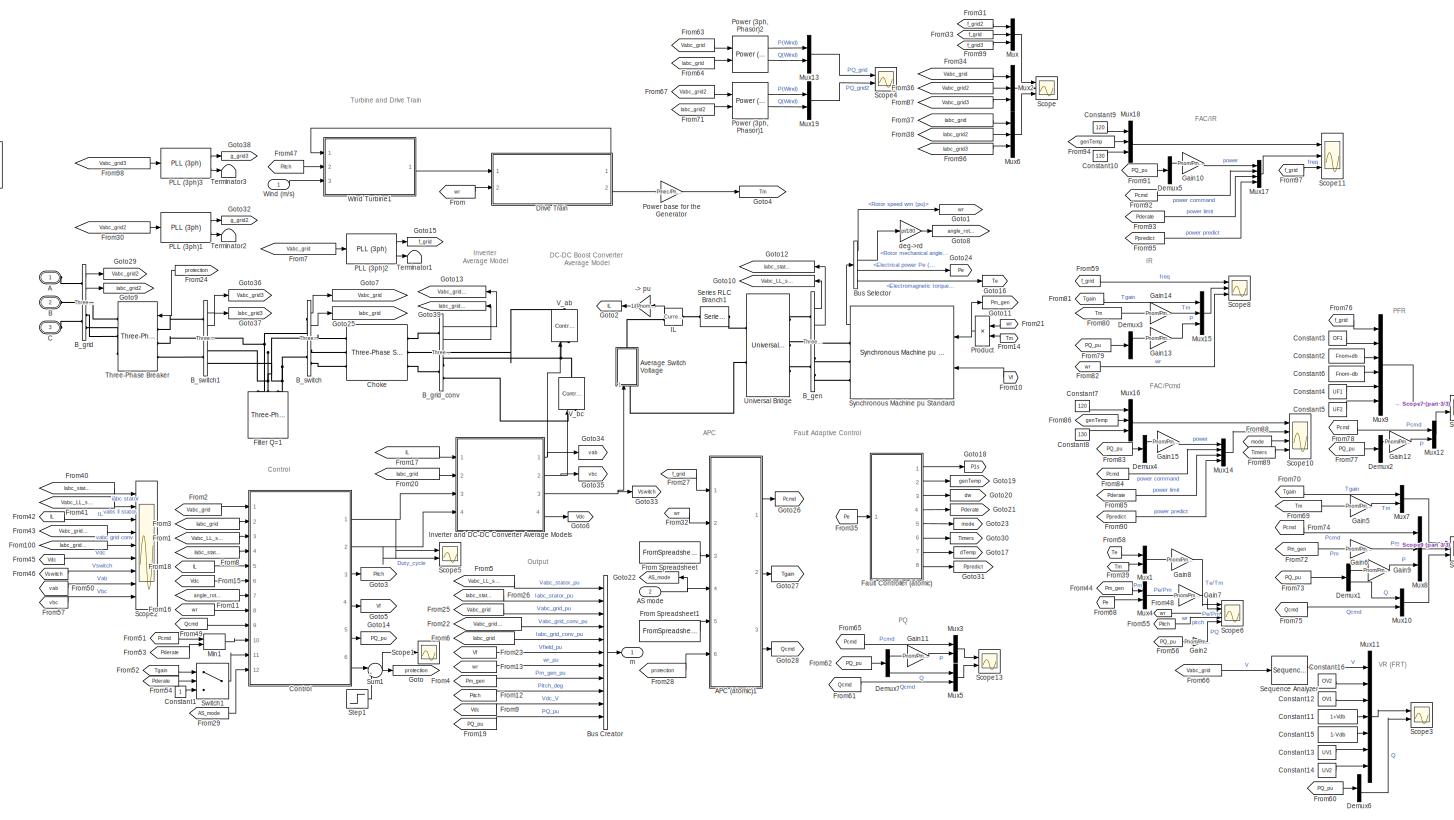
[diagram: Wind Turbine Type 4 - part 1/3, most of the canvas]
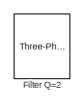
[diagram: Wind Turbine Type 4 - part 2/3, top left region]
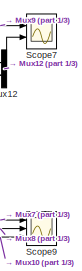
[diagram: Wind Turbine Type 4 - part 3/3, middle right region]
BLOCK [SubSystem] Wind Turbine Type 4
  LoadFcn = %find_system(gcs,'FollowLinks', 'on', 'LookUnderMasks', 'all');
  NameLocation = top
  Ports = [2, 1, 0, 0, 0, 3]
  RequestExecContextInheritance = off
BLOCK [Gain] Wind Turbine Type 4/-> pu
  Gain = 1/(Pnom/(3*sqrt(2)/pi*Vnom_gen))
  NameLocation = top
  OutDataTypeStr = Inherit: Same as input
  ParamDataTypeStr = Inherit: Same as input
  SaturateOnIntegerOverflow = on
BLOCK [PMIOPort] Wind Turbine Type 4/A
  Side = Left
  Tag = PMCPort
BLOCK [SubSystem] Wind Turbine Type 4/APC (atomic)1
  Ports = [6, 3]
  RequestExecContextInheritance = off
  SystemSampleTime = 0.01
  TreatAsAtomicUnit = on
BLOCK [SubSystem] Wind Turbine Type 4/APC (atomic)1/Baseline
  Ports = [0, 3, 0, 0, 0, 0, 0, 1]
  RequestExecContextInheritance = off
BLOCK [ActionPort] Wind Turbine Type 4/APC (atomic)1/Baseline/Action Port
  ActionPortLabel = case [ 5 ]:
BLOCK [Constant] Wind Turbine Type 4/APC (atomic)1/Baseline/Constant1
  Value = 0
BLOCK [Outport] Wind Turbine Type 4/APC (atomic)1/Baseline/Qcmd
BLOCK [Outport] Wind Turbine Type 4/APC (atomic)1/Baseline/dP
  Port = 2
BLOCK [Outport] Wind Turbine Type 4/APC (atomic)1/Baseline/dT
  Port = 3
BLOCK [Constant] Wind Turbine Type 4/APC (atomic)1/Constant
BLOCK [Constant] Wind Turbine Type 4/APC (atomic)1/Constant1
BLOCK [Constant] Wind Turbine Type 4/APC (atomic)1/Constant2
  Value = 0
BLOCK [Constant] Wind Turbine Type 4/APC (atomic)1/Constant3
BLOCK [Constant] Wind Turbine Type 4/APC (atomic)1/Constant4
  Value = 0.8
BLOCK [Product] Wind Turbine Type 4/APC (atomic)1/Divide
  Inputs = **
  Ports = [2, 1]
BLOCK [Product] Wind Turbine Type 4/APC (atomic)1/Divide1
  Inputs = **
  Ports = [2, 1]
BLOCK [Product] Wind Turbine Type 4/APC (atomic)1/Divide2
  Inputs = **
  Ports = [2, 1]
BLOCK [Inport] Wind Turbine Type 4/APC (atomic)1/Freq (Hz)
BLOCK [FromSpreadsheet] Wind Turbine Type 4/APC (atomic)1/From Spreadsheet
  FileName = cmd_timeseries.xlsx
  Ports = [0, 1]
  SampleTime = 0.01
  SheetName = T
BLOCK [SubSystem] Wind Turbine Type 4/APC (atomic)1/Inertial Response (to df)
  Ports = [3, 3, 0, 0, 0, 0, 0, 1]
  RequestExecContextInheritance = off
BLOCK [ActionPort] Wind Turbine Type 4/APC (atomic)1/Inertial Response (to df)/Action Port
  ActionPortLabel = case [ 1 ]:
BLOCK [Constant] Wind Turbine Type 4/APC (atomic)1/Inertial Response (to df)/Constant1
  Value = 0
BLOCK [Constant] Wind Turbine Type 4/APC (atomic)1/Inertial Response (to df)/Constant2
  Value = 0
BLOCK [Constant] Wind Turbine Type 4/APC (atomic)1/Inertial Response (to df)/Constant3
  Value = 1e-3
BLOCK [Constant] Wind Turbine Type 4/APC (atomic)1/Inertial Response (to df)/Constant4
  Value = 60
BLOCK [Display] Wind Turbine Type 4/APC (atomic)1/Inertial Response (to df)/Display3
  Decimation = 1
  Ports = [1]
BLOCK [Display] Wind Turbine Type 4/APC (atomic)1/Inertial Response (to df)/Display4
  Decimation = 1
  Ports = [1]
BLOCK [Display] Wind Turbine Type 4/APC (atomic)1/Inertial Response (to df)/Display6
  Decimation = 1
  Ports = [1]
BLOCK [Display] Wind Turbine Type 4/APC (atomic)1/Inertial Response (to df)/Display7
  Decimation = 1
  Ports = [1]
BLOCK [Product] Wind Turbine Type 4/APC (atomic)1/Inertial Response (to df)/Divide1
  Inputs = */
  Ports = [2, 1]
BLOCK [SubSystem] Wind Turbine Type 4/APC (atomic)1/Inertial Response (to df)/FBIC
  Ports = [3, 1]
  RequestExecContextInheritance = off
BLOCK [Inport] Wind Turbine Type 4/APC (atomic)1/Inertial Response (to df)/FBIC/Act1
  Port = 3
BLOCK [Outport] Wind Turbine Type 4/APC (atomic)1/Inertial Response (to df)/FBIC/Delta_P FBIC1
BLOCK [DiscreteTransferFcn] Wind Turbine Type 4/APC (atomic)1/Inertial Response (to df)/FBIC/Discrete Transfer Fcn
  Denominator = [1 -0.99985]
  InputPortMap = u0
  Numerator = [0.99985 -0.99985]
  Ports = [1, 1]
BLOCK [Display] Wind Turbine Type 4/APC (atomic)1/Inertial Response (to df)/FBIC/Display3
  Decimation = 1
  Ports = [1]
BLOCK [Display] Wind Turbine Type 4/APC (atomic)1/Inertial Response (to df)/FBIC/Display4
  Decimation = 1
  Ports = [1]
BLOCK [Scope] Wind Turbine Type 4/APC (atomic)1/Inertial Response (to df)/FBIC/FBIC performance1
  Floating = off
  NumInputPorts = 2
  Ports = [2]
  ScopeSpecificationString = Simulink.scopes.TimeScopeBlockCfg('CurrentConfiguration', extmgr.ConfigurationSet(extmgr.Configuration('Core','General UI',true),extmgr.Configuration('Core','Source UI',true),extmgr.Configuration('Sources','WiredSimulink',true,'DataLoggingVariableName','ScopeData1','DataLoggingSaveFormat','StructureWithTime','DataLoggingDecimation','1','DataLoggingDecimateData',true),extmgr.Configuration('Visuals'...<+2348ch>
BLOCK [Inport] Wind Turbine Type 4/APC (atomic)1/Inertial Response (to df)/FBIC/Freq (Hz)1
  Port = 2
BLOCK [Logic] Wind Turbine Type 4/APC (atomic)1/Inertial Response (to df)/FBIC/Logical Operator1
  AllPortsSameDT = off
  Operator = NOT
  OutDataTypeStr = boolean
  Ports = [1, 1]
BLOCK [Reference] Wind Turbine Type 4/APC (atomic)1/Inertial Response (to df)/FBIC/Low-Pass Filter 1  REF=eeGeneralControl/Low-Pass Filter
(Discrete or Continuous)
  Ports = [1, 1]
  SourceBlock = eeGeneralControl/Low-Pass Filter\n(Discrete or Continuous)
  SourceProductBaseCode = PS
  SourceType = Low-Pass Filter (Discrete or Continuous)
BLOCK [Constant] Wind Turbine Type 4/APC (atomic)1/Inertial Response (to df)/FBIC/Nominal F1
BLOCK [SubSystem] Wind Turbine Type 4/APC (atomic)1/Inertial Response (to df)/FBIC/S&H1
  NameLocation = top
  Ports = [2, 1]
  RequestExecContextInheritance = off
BLOCK [DataTypeConversion] Wind Turbine Type 4/APC (atomic)1/Inertial Response (to df)/FBIC/S&H1/Data Type Conversion
  OutDataTypeStr = boolean
  RndMeth = Floor
  SaturateOnIntegerOverflow = off
BLOCK [Memory] Wind Turbine Type 4/APC (atomic)1/Inertial Response (to df)/FBIC/S&H1/IC=ic
  InheritSampleTime = on
  InitialCondition = ic
  LinearizeAsDelay = on
  NameLocation = top
BLOCK [Inport] Wind Turbine Type 4/APC (atomic)1/Inertial Response (to df)/FBIC/S&H1/In
BLOCK [Outport] Wind Turbine Type 4/APC (atomic)1/Inertial Response (to df)/FBIC/S&H1/Out
  InitialOutput = 0
BLOCK [Inport] Wind Turbine Type 4/APC (atomic)1/Inertial Response (to df)/FBIC/S&H1/S
  Port = 2
BLOCK [Switch] Wind Turbine Type 4/APC (atomic)1/Inertial Response (to df)/FBIC/S&H1/Switch
  Threshold = 0.5
BLOCK [Saturate] Wind Turbine Type 4/APC (atomic)1/Inertial Response (to df)/FBIC/Saturation1
  LowerLimit = 0
  UpperLimit = 0.3
BLOCK [Sum] Wind Turbine Type 4/APC (atomic)1/Inertial Response (to df)/FBIC/Sum1
  Inputs = +-|
  Ports = [2, 1]
BLOCK [SubSystem] Wind Turbine Type 4/APC (atomic)1/Inertial Response (to df)/FBIC/adaptive FBIC1
  ErrorFcn = Stateflow.Translate.translate
  PermitHierarchicalResolution = ExplicitOnly
  Ports = [4, 3]
  RequestExecContextInheritance = off
  SFBlockType = MATLAB Function
  TreatAsAtomicUnit = on
BLOCK [Demux] Wind Turbine Type 4/APC (atomic)1/Inertial Response (to df)/FBIC/adaptive FBIC1/ Demux 
  Outputs = 1
  Ports = [1, 1]
BLOCK [S-Function] Wind Turbine Type 4/APC (atomic)1/Inertial Response (to df)/FBIC/adaptive FBIC1/ SFunction 
  EnableBusSupport = on
  FunctionName = sf_sfun
  PortCounts = [4 4]
  Ports = [4, 4]
  SFcnIsStateOwnerBlock = off
  SFunctionDeploymentMode = off
  Tag = Stateflow S-Function 8
BLOCK [Terminator] Wind Turbine Type 4/APC (atomic)1/Inertial Response (to df)/FBIC/adaptive FBIC1/ Terminator 
BLOCK [Inport] Wind Turbine Type 4/APC (atomic)1/Inertial Response (to df)/FBIC/adaptive FBIC1/Act
  Port = 4
BLOCK [Outport] Wind Turbine Type 4/APC (atomic)1/Inertial Response (to df)/FBIC/adaptive FBIC1/Delta_P
BLOCK [Inport] Wind Turbine Type 4/APC (atomic)1/Inertial Response (to df)/FBIC/adaptive FBIC1/F_de
BLOCK [Inport] Wind Turbine Type 4/APC (atomic)1/Inertial Response (to df)/FBIC/adaptive FBIC1/F_dr
  Port = 2
BLOCK [Outport] Wind Turbine Type 4/APC (atomic)1/Inertial Response (to df)/FBIC/adaptive FBIC1/P_de
  Port = 2
BLOCK [Outport] Wind Turbine Type 4/APC (atomic)1/Inertial Response (to df)/FBIC/adaptive FBIC1/P_dr
  Port = 3
BLOCK [Inport] Wind Turbine Type 4/APC (atomic)1/Inertial Response (to df)/FBIC/adaptive FBIC1/Wi
  Port = 3
BLOCK [Reference] Wind Turbine Type 4/APC (atomic)1/Inertial Response (to df)/FBIC/inertial1  REF=simulink/Discrete/Discrete Derivative
  Ports = [1, 1]
  SourceBlock = simulink/Discrete/Discrete Derivative
  SourceProductBaseCode = SL
  SourceType = Discrete Derivative
BLOCK [Gain] Wind Turbine Type 4/APC (atomic)1/Inertial Response (to df)/FBIC/to pu 1
  Gain = 1/60
BLOCK [Inport] Wind Turbine Type 4/APC (atomic)1/Inertial Response (to df)/FBIC/wg (pu)
BLOCK [Inport] Wind Turbine Type 4/APC (atomic)1/Inertial Response (to df)/Freq (Hz)
BLOCK [From] Wind Turbine Type 4/APC (atomic)1/Inertial Response (to df)/From10
  GotoTag = Delta_P
BLOCK [From] Wind Turbine Type 4/APC (atomic)1/Inertial Response (to df)/From12
  GotoTag = In_Act
BLOCK [From] Wind Turbine Type 4/APC (atomic)1/Inertial Response (to df)/From4
  GotoTag = Wg
BLOCK [From] Wind Turbine Type 4/APC (atomic)1/Inertial Response (to df)/From7
  GotoTag = Freq
BLOCK [From] Wind Turbine Type 4/APC (atomic)1/Inertial Response (to df)/From9
  GotoTag = Delta_P
BLOCK [Goto] Wind Turbine Type 4/APC (atomic)1/Inertial Response (to df)/Goto1
  GotoTag = Delta_P
BLOCK [Goto] Wind Turbine Type 4/APC (atomic)1/Inertial Response (to df)/Goto2
  GotoTag = In_Act
BLOCK [Goto] Wind Turbine Type 4/APC (atomic)1/Inertial Response (to df)/Goto4
  GotoTag = Wg
BLOCK [Goto] Wind Turbine Type 4/APC (atomic)1/Inertial Response (to df)/Goto5
  GotoTag = Freq
  NameLocation = left
BLOCK [SubSystem] Wind Turbine Type 4/APC (atomic)1/Inertial Response (to df)/Lock2
  NameLocation = top
  Ports = [2, 1]
  RequestExecContextInheritance = off
BLOCK [Constant] Wind Turbine Type 4/APC (atomic)1/Inertial Response (to df)/Lock2/Constant7
  Value = 0
BLOCK [Display] Wind Turbine Type 4/APC (atomic)1/Inertial Response (to df)/Lock2/Display1
  Decimation = 1
  Ports = [1]
BLOCK [Display] Wind Turbine Type 4/APC (atomic)1/Inertial Response (to df)/Lock2/Display16
  Decimation = 1
  Ports = [1]
BLOCK [Switch] Wind Turbine Type 4/APC (atomic)1/Inertial Response (to df)/Lock2/Freq Act
  InputSameDT = off
  SaturateOnIntegerOverflow = off
  Threshold = 0.5
BLOCK [Inport] Wind Turbine Type 4/APC (atomic)1/Inertial Response (to df)/Lock2/I
BLOCK [Logic] Wind Turbine Type 4/APC (atomic)1/Inertial Response (to df)/Lock2/Logical Operator1
  AllPortsSameDT = off
  Operator = NOT
  OutDataTypeStr = boolean
  Ports = [1, 1]
BLOCK [Logic] Wind Turbine Type 4/APC (atomic)1/Inertial Response (to df)/Lock2/Logical Operator3
  AllPortsSameDT = off
  Operator = NOT
  OutDataTypeStr = boolean
  Ports = [1, 1]
BLOCK [Outport] Wind Turbine Type 4/APC (atomic)1/Inertial Response (to df)/Lock2/O
BLOCK [Inport] Wind Turbine Type 4/APC (atomic)1/Inertial Response (to df)/Lock2/R
  Port = 2
BLOCK [SubSystem] Wind Turbine Type 4/APC (atomic)1/Inertial Response (to df)/Lock2/S&H
  Ports = [2, 1]
  RequestExecContextInheritance = off
BLOCK [DataTypeConversion] Wind Turbine Type 4/APC (atomic)1/Inertial Response (to df)/Lock2/S&H/Data Type Conversion
  OutDataTypeStr = boolean
  RndMeth = Floor
  SaturateOnIntegerOverflow = off
BLOCK [Memory] Wind Turbine Type 4/APC (atomic)1/Inertial Response (to df)/Lock2/S&H/IC=ic
  InheritSampleTime = on
  InitialCondition = ic
  LinearizeAsDelay = on
  NameLocation = top
BLOCK [Inport] Wind Turbine Type 4/APC (atomic)1/Inertial Response (to df)/Lock2/S&H/In
BLOCK [Outport] Wind Turbine Type 4/APC (atomic)1/Inertial Response (to df)/Lock2/S&H/Out
  InitialOutput = 0
BLOCK [Inport] Wind Turbine Type 4/APC (atomic)1/Inertial Response (to df)/Lock2/S&H/S
  Port = 2
BLOCK [Switch] Wind Turbine Type 4/APC (atomic)1/Inertial Response (to df)/Lock2/S&H/Switch
  Threshold = 0.5
BLOCK [UnitDelay] Wind Turbine Type 4/APC (atomic)1/Inertial Response (to df)/Lock2/Unit Delay
  HasFrameUpgradeWarning = on
  SampleTime = -1
BLOCK [Outport] Wind Turbine Type 4/APC (atomic)1/Inertial Response (to df)/Qcmd
  Port = 3
BLOCK [RateLimiter] Wind Turbine Type 4/APC (atomic)1/Inertial Response (to df)/Rate Limiter1
  RisingSlewLimit = 0.45
  SampleTimeMode = inherited
BLOCK [RelationalOperator] Wind Turbine Type 4/APC (atomic)1/Inertial Response (to df)/Relational Operator3
  InputSameDT = off
  OutDataTypeStr = boolean
  Ports = [2, 1]
BLOCK [RelationalOperator] Wind Turbine Type 4/APC (atomic)1/Inertial Response (to df)/Relational Operator4
  InputSameDT = off
  Operator = <=
  OutDataTypeStr = boolean
  Ports = [2, 1]
BLOCK [Saturate] Wind Turbine Type 4/APC (atomic)1/Inertial Response (to df)/Saturation
  LowerLimit = 0
  UpperLimit = 0.4
BLOCK [Saturate] Wind Turbine Type 4/APC (atomic)1/Inertial Response (to df)/Saturation1
  LowerLimit = 1e-5
  UpperLimit = 1
BLOCK [Scope] Wind Turbine Type 4/APC (atomic)1/Inertial Response (to df)/Scope
  Floating = off
  NumInputPorts = 3
  Ports = [3]
  ScopeSpecificationString = Simulink.scopes.TimeScopeBlockCfg('CurrentConfiguration', extmgr.ConfigurationSet(extmgr.Configuration('Core','General UI',true),extmgr.Configuration('Core','Source UI',true),extmgr.Configuration('Sources','WiredSimulink',true,'DataLoggingVariableName','ScopeData1'),extmgr.Configuration('Visuals','Time Domain',true,'SerializedDisplays',{struct('MinYLimReal','-0.15511','MaxYLimReal','1.12835','YLab...<+1410ch>
BLOCK [Sum] Wind Turbine Type 4/APC (atomic)1/Inertial Response (to df)/Sum1
  Inputs = |-+
  Ports = [2, 1]
BLOCK [Switch] Wind Turbine Type 4/APC (atomic)1/Inertial Response (to df)/Switch1
  Criteria = u2 > Threshold
  InputSameDT = off
  SaturateOnIntegerOverflow = off
  Threshold = 1
BLOCK [SubSystem] Wind Turbine Type 4/APC (atomic)1/Inertial Response (to df)/TLIC
  Ports = [1, 1]
  RequestExecContextInheritance = off
  TreatAsAtomicUnit = on
BLOCK [Inport] Wind Turbine Type 4/APC (atomic)1/Inertial Response (to df)/TLIC/Act
BLOCK [Delay] Wind Turbine Type 4/APC (atomic)1/Inertial Response (to df)/TLIC/Delay1
  DelayLength = 1
  InitialCondition = 0
  InputPortMap = u0
  Ports = [1, 1]
BLOCK [Delay] Wind Turbine Type 4/APC (atomic)1/Inertial Response (to df)/TLIC/Delay2
  DelayLength = 1
  InitialCondition = 0
  InputPortMap = u0
  Ports = [1, 1]
BLOCK [Delay] Wind Turbine Type 4/APC (atomic)1/Inertial Response (to df)/TLIC/Delay3
  DelayLength = 1
  InitialCondition = 0
  InputPortMap = u0
  Ports = [1, 1]
BLOCK [Outport] Wind Turbine Type 4/APC (atomic)1/Inertial Response (to df)/TLIC/Delta_P TLIC
BLOCK [Display] Wind Turbine Type 4/APC (atomic)1/Inertial Response (to df)/TLIC/Display1
  Decimation = 1
  Ports = [1]
BLOCK [Display] Wind Turbine Type 4/APC (atomic)1/Inertial Response (to df)/TLIC/Display2
  Decimation = 1
  Ports = [1]
BLOCK [Scope] Wind Turbine Type 4/APC (atomic)1/Inertial Response (to df)/TLIC/Scope
  Floating = off
  NumInputPorts = 4
  Ports = [4]
  ScopeSpecificationString = Simulink.scopes.TimeScopeBlockCfg('CurrentConfiguration', extmgr.ConfigurationSet(extmgr.Configuration('Core','General UI',true),extmgr.Configuration('Core','Source UI',true),extmgr.Configuration('Sources','WiredSimulink',true,'DataLoggingVariableName','ScopeData2'),extmgr.Configuration('Visuals','Time Domain',true,'SerializedDisplays',{struct('MinYLimReal','-1.24375','MaxYLimReal','11.19375','YLa...<+1607ch>
BLOCK [SubSystem] Wind Turbine Type 4/APC (atomic)1/Inertial Response (to df)/TLIC/adaptive TLIC
  ErrorFcn = Stateflow.Translate.translate
  PermitHierarchicalResolution = ExplicitOnly
  Ports = [4, 4]
  RequestExecContextInheritance = off
  SFBlockType = MATLAB Function
  TreatAsAtomicUnit = on
BLOCK [Demux] Wind Turbine Type 4/APC (atomic)1/Inertial Response (to df)/TLIC/adaptive TLIC/ Demux 
  Outputs = 1
  Ports = [1, 1]
BLOCK [S-Function] Wind Turbine Type 4/APC (atomic)1/Inertial Response (to df)/TLIC/adaptive TLIC/ SFunction 
  EnableBusSupport = on
  FunctionName = sf_sfun
  Parameters = Ts_APC
  PortCounts = [4 5]
  Ports = [4, 5]
  SFcnIsStateOwnerBlock = off
  SFunctionDeploymentMode = off
  Tag = Stateflow S-Function 9
BLOCK [Terminator] Wind Turbine Type 4/APC (atomic)1/Inertial Response (to df)/TLIC/adaptive TLIC/ Terminator 
BLOCK [Inport] Wind Turbine Type 4/APC (atomic)1/Inertial Response (to df)/TLIC/adaptive TLIC/Act
  Port = 4
BLOCK [Outport] Wind Turbine Type 4/APC (atomic)1/Inertial Response (to df)/TLIC/adaptive TLIC/Delta_P
BLOCK [Outport] Wind Turbine Type 4/APC (atomic)1/Inertial Response (to df)/TLIC/adaptive TLIC/recharge
  Port = 2
BLOCK [Inport] Wind Turbine Type 4/APC (atomic)1/Inertial Response (to df)/TLIC/adaptive TLIC/recharge 
BLOCK [Outport] Wind Turbine Type 4/APC (atomic)1/Inertial Response (to df)/TLIC/adaptive TLIC/tIR
  Port = 4
BLOCK [Inport] Wind Turbine Type 4/APC (atomic)1/Inertial Response (to df)/TLIC/adaptive TLIC/tIR 
  Port = 3
BLOCK [Outport] Wind Turbine Type 4/APC (atomic)1/Inertial Response (to df)/TLIC/adaptive TLIC/trecharge
  Port = 3
BLOCK [Inport] Wind Turbine Type 4/APC (atomic)1/Inertial Response (to df)/TLIC/adaptive TLIC/trecharge 
  Port = 2
BLOCK [Switch] Wind Turbine Type 4/APC (atomic)1/Inertial Response (to df)/Type1
  Criteria = u2 > Threshold
  InputSameDT = off
  SaturateOnIntegerOverflow = off
  Threshold = 0.5
BLOCK [DigitalClock] Wind Turbine Type 4/APC (atomic)1/Inertial Response (to df)/When to start IR
  SampleTime = -1
BLOCK [Outport] Wind Turbine Type 4/APC (atomic)1/Inertial Response (to df)/dP
  Port = 2
BLOCK [Outport] Wind Turbine Type 4/APC (atomic)1/Inertial Response (to df)/dT
BLOCK [Constant] Wind Turbine Type 4/APC (atomic)1/Inertial Response (to df)/dead band1
  Value = 0.2
BLOCK [Inport] Wind Turbine Type 4/APC (atomic)1/Inertial Response (to df)/type1
  Port = 2
BLOCK [Inport] Wind Turbine Type 4/APC (atomic)1/Inertial Response (to df)/wg (pu)
  Port = 3
BLOCK [ManualSwitch] Wind Turbine Type 4/APC (atomic)1/Manual Switch
  CurrentSetting = 0
BLOCK [Merge] Wind Turbine Type 4/APC (atomic)1/Merge
  Inputs = 5
  Ports = [5, 1]
BLOCK [Merge] Wind Turbine Type 4/APC (atomic)1/Merge1
  Inputs = 5
  Ports = [5, 1]
BLOCK [Merge] Wind Turbine Type 4/APC (atomic)1/Merge2
  Inputs = 5
  Ports = [5, 1]
BLOCK [SubSystem] Wind Turbine Type 4/APC (atomic)1/PFR
  Ports = [1, 3, 0, 0, 0, 0, 0, 1]
  RequestExecContextInheritance = off
BLOCK [ActionPort] Wind Turbine Type 4/APC (atomic)1/PFR/Action Port
  ActionPortLabel = case [ 2 ]:
BLOCK [Constant] Wind Turbine Type 4/APC (atomic)1/PFR/Constant1
  Value = 0
BLOCK [Constant] Wind Turbine Type 4/APC (atomic)1/PFR/Constant2
  Commented = on
  Value = -1
BLOCK [Constant] Wind Turbine Type 4/APC (atomic)1/PFR/Constant3
  Value = 60
BLOCK [DeadZone] Wind Turbine Type 4/APC (atomic)1/PFR/Dead Zone
  LowerValue = -db/60
  UpperValue = db/60
BLOCK [Product] Wind Turbine Type 4/APC (atomic)1/PFR/Divide1
  Inputs = */
  Ports = [2, 1]
BLOCK [Inport] Wind Turbine Type 4/APC (atomic)1/PFR/Freq (Hz)
BLOCK [Gain] Wind Turbine Type 4/APC (atomic)1/PFR/P//f gain
  Gain = 1/k
BLOCK [Outport] Wind Turbine Type 4/APC (atomic)1/PFR/Qcmd
  Port = 3
BLOCK [Saturate] Wind Turbine Type 4/APC (atomic)1/PFR/Saturation
  UpperLimit = 0
BLOCK [Sum] Wind Turbine Type 4/APC (atomic)1/PFR/Sum
  Inputs = |+-
  Ports = [2, 1]
BLOCK [Sum] Wind Turbine Type 4/APC (atomic)1/PFR/Sum1
  Inputs = |-+
  Ports = [2, 1]
BLOCK [Switch] Wind Turbine Type 4/APC (atomic)1/PFR/Switch1
  Commented = on
  Criteria = u2 > Threshold
  InputSameDT = off
  SaturateOnIntegerOverflow = off
  Threshold = 57
BLOCK [Constant] Wind Turbine Type 4/APC (atomic)1/PFR/curtailment pu
  Value = 0.2
BLOCK [Outport] Wind Turbine Type 4/APC (atomic)1/PFR/dP
BLOCK [Outport] Wind Turbine Type 4/APC (atomic)1/PFR/dT
  Port = 2
BLOCK [SubSystem] Wind Turbine Type 4/APC (atomic)1/PQ
  Ports = [2, 3, 0, 0, 0, 0, 0, 1]
  RequestExecContextInheritance = off
BLOCK [ActionPort] Wind Turbine Type 4/APC (atomic)1/PQ/Action Port
  ActionPortLabel = case [ 3 ]:
BLOCK [Constant] Wind Turbine Type 4/APC (atomic)1/PQ/Constant
BLOCK [Constant] Wind Turbine Type 4/APC (atomic)1/PQ/Constant1
  Value = 0
BLOCK [Outport] Wind Turbine Type 4/APC (atomic)1/PQ/Qcmd
  Port = 2
BLOCK [Inport] Wind Turbine Type 4/APC (atomic)1/PQ/Qin
  Port = 2
BLOCK [Inport] Wind Turbine Type 4/APC (atomic)1/PQ/SFRcmd
BLOCK [Sum] Wind Turbine Type 4/APC (atomic)1/PQ/Sum
  Inputs = |+-
  Ports = [2, 1]
BLOCK [Outport] Wind Turbine Type 4/APC (atomic)1/PQ/dP
BLOCK [Outport] Wind Turbine Type 4/APC (atomic)1/PQ/dT
  Port = 3
BLOCK [Outport] Wind Turbine Type 4/APC (atomic)1/Pcmd
BLOCK [Inport] Wind Turbine Type 4/APC (atomic)1/Pin
  Port = 3
BLOCK [Outport] Wind Turbine Type 4/APC (atomic)1/Qcmd
  Port = 3
BLOCK [Inport] Wind Turbine Type 4/APC (atomic)1/Qin
  Port = 5
BLOCK [Saturate] Wind Turbine Type 4/APC (atomic)1/Saturation1
  LowerLimit = 0
  UpperLimit = 1
BLOCK [Scope] Wind Turbine Type 4/APC (atomic)1/Scope
  Floating = off
  NumInputPorts = 2
  Ports = [2]
  ScopeSpecificationString = Simulink.scopes.TimeScopeBlockCfg('CurrentConfiguration', extmgr.ConfigurationSet(extmgr.Configuration('Core','General UI',true),extmgr.Configuration('Core','Source UI',true),extmgr.Configuration('Sources','WiredSimulink',true,'DataLoggingVariableName','ScopeData4'),extmgr.Configuration('Visuals','Time Domain',true,'SerializedDisplays',{struct('MinYLimReal','-0.125','MaxYLimReal','1.125','YLabelRe...<+1400ch>
BLOCK [Scope] Wind Turbine Type 4/APC (atomic)1/Scope1
  Floating = off
  NumInputPorts = 2
  Ports = [2]
  ScopeSpecificationString = Simulink.scopes.TimeScopeBlockCfg('CurrentConfiguration', extmgr.ConfigurationSet(extmgr.Configuration('Core','General UI',true),extmgr.Configuration('Core','Source UI',true),extmgr.Configuration('Sources','WiredSimulink',true,'DataLoggingVariableName','ScopeData2'),extmgr.Configuration('Visuals','Time Domain',true,'SerializedDisplays',{struct('MinYLimReal','0.9625','MaxYLimReal','1.3375','YLabelR...<+1371ch>
BLOCK [Sum] Wind Turbine Type 4/APC (atomic)1/Sum
  Inputs = |++
  Ports = [2, 1]
BLOCK [Sum] Wind Turbine Type 4/APC (atomic)1/Sum1
  Inputs = |++
  Ports = [2, 1]
BLOCK [SwitchCase] Wind Turbine Type 4/APC (atomic)1/Switch Case
  CaseConditions = {1,2,3,4,5}
  Ports = [1, 6]
BLOCK [Switch] Wind Turbine Type 4/APC (atomic)1/Switch1
  Criteria = u2 > Threshold
  InputSameDT = off
  SaturateOnIntegerOverflow = off
BLOCK [Switch] Wind Turbine Type 4/APC (atomic)1/Switch2
  Criteria = u2 > Threshold
  InputSameDT = off
  SaturateOnIntegerOverflow = off
  Threshold = 1
BLOCK [Outport] Wind Turbine Type 4/APC (atomic)1/Tcmd
  Port = 2
BLOCK [SubSystem] Wind Turbine Type 4/APC (atomic)1/VR (handled by FRT)
  Ports = [0, 3, 0, 0, 0, 0, 0, 1]
  RequestExecContextInheritance = off
BLOCK [ActionPort] Wind Turbine Type 4/APC (atomic)1/VR (handled by FRT)/Action Port
  ActionPortLabel = case [ 4 ]:
BLOCK [Constant] Wind Turbine Type 4/APC (atomic)1/VR (handled by FRT)/Constant1
  Value = 0
BLOCK [Outport] Wind Turbine Type 4/APC (atomic)1/VR (handled by FRT)/Qcmd
BLOCK [Outport] Wind Turbine Type 4/APC (atomic)1/VR (handled by FRT)/dP
  Port = 2
BLOCK [Outport] Wind Turbine Type 4/APC (atomic)1/VR (handled by FRT)/dT
  Port = 3
BLOCK [DigitalClock] Wind Turbine Type 4/APC (atomic)1/When to start PFR//SFR
  SampleTime = -1
BLOCK [DigitalClock] Wind Turbine Type 4/APC (atomic)1/When to start PFR//SFR1
  SampleTime = -1
BLOCK [Inport] Wind Turbine Type 4/APC (atomic)1/case
  Port = 4
BLOCK [Inport] Wind Turbine Type 4/APC (atomic)1/protection
  Port = 6
BLOCK [Inport] Wind Turbine Type 4/APC (atomic)1/wr [pu]
  Port = 2
BLOCK [Inport] Wind Turbine Type 4/AS mode
  Port = 2
BLOCK [SubSystem] Wind Turbine Type 4/Average Switch Voltage
  NameLocation = right
  Ports = [1, 0, 0, 0, 0, 1, 1]
  RequestExecContextInheritance = off
BLOCK [PMIOPort] Wind Turbine Type 4/Average Switch Voltage/+
  NameLocation = right
  Side = Right
BLOCK [PMIOPort] Wind Turbine Type 4/Average Switch Voltage/-
  NameLocation = right
  Port = 2
  Side = Left
BLOCK [Reference] Wind Turbine Type 4/Average Switch Voltage/Diode  REF=powerlib/Power
Electronics/Diode
  NameLocation = right
  Ports = [0, 0, 0, 0, 0, 1, 1]
  SourceBlock = powerlib/Power\nElectronics/Diode
  SourceProductBaseCode = MT,PS
  SourceType = Diode
BLOCK [Reference] Wind Turbine Type 4/Average Switch Voltage/V  REF=powerlib/Electrical
Sources/Controlled Voltage Source
  NameLocation = right
  Ports = [1, 0, 0, 0, 0, 1, 1]
  SourceBlock = powerlib/Electrical\nSources/Controlled Voltage Source
  SourceProductBaseCode = MT,PS
  SourceType = Controlled Voltage Source
BLOCK [Inport] Wind Turbine Type 4/Average Switch Voltage/Vswitch
  NameLocation = left
BLOCK [PMIOPort] Wind Turbine Type 4/B
  Port = 2
  Side = Left
  Tag = PMCPort
BLOCK [Reference] Wind Turbine Type 4/B_gen  REF=powerlib/Measurements/Three-Phase
V-I Measurement
  Ports = [0, 2, 0, 0, 0, 3, 3]
  SourceBlock = powerlib/Measurements/Three-Phase\nV-I Measurement
  SourceProductBaseCode = MT,PS
  SourceType = Three-Phase VI Measurement
BLOCK [Reference] Wind Turbine Type 4/B_grid  REF=powerlib/Measurements/Three-Phase
V-I Measurement
  Ports = [0, 2, 0, 0, 0, 3, 3]
  SourceBlock = powerlib/Measurements/Three-Phase\nV-I Measurement
  SourceProductBaseCode = MT,PS
  SourceType = Three-Phase VI Measurement
BLOCK [Reference] Wind Turbine Type 4/B_grid_conv  REF=powerlib/Measurements/Three-Phase
V-I Measurement
  Ports = [0, 2, 0, 0, 0, 3, 3]
  SourceBlock = powerlib/Measurements/Three-Phase\nV-I Measurement
  SourceProductBaseCode = MT,PS
  SourceType = Three-Phase VI Measurement
BLOCK [Reference] Wind Turbine Type 4/B_switch  REF=powerlib/Measurements/Three-Phase
V-I Measurement
  Ports = [0, 2, 0, 0, 0, 3, 3]
  SourceBlock = powerlib/Measurements/Three-Phase\nV-I Measurement
  SourceProductBaseCode = MT,PS
  SourceType = Three-Phase VI Measurement
BLOCK [Reference] Wind Turbine Type 4/B_switch1  REF=powerlib/Measurements/Three-Phase
V-I Measurement
  Ports = [0, 2, 0, 0, 0, 3, 3]
  SourceBlock = powerlib/Measurements/Three-Phase\nV-I Measurement
  SourceProductBaseCode = MT,PS
  SourceType = Three-Phase VI Measurement
BLOCK [BusCreator] Wind Turbine Type 4/Bus Creator
  DisplayOption = bar
  InheritFromInputs = on
  Inputs = 11
  Ports = [11, 1]
BLOCK [BusSelector] Wind Turbine Type 4/Bus Selector
  OutputSignals = Mechanical.Rotor speed  wm  (pu),Mechanical.Rotor mechanical angle  theta (deg),Mechanical.Electrical power  Pe (pu),Mechanical.Electromagnetic torque  Te (pu)
  Ports = [1, 4]
BLOCK [PMIOPort] Wind Turbine Type 4/C
  Port = 3
  Side = Left
  Tag = PMCPort
BLOCK [Reference] Wind Turbine Type 4/Choke   REF=powerlib/Elements/Three-Phase
Series RLC Branch
  AttributesFormatString = \n
  Ports = [0, 0, 0, 0, 0, 3, 3]
  SourceBlock = powerlib/Elements/Three-Phase\nSeries RLC Branch
  SourceProductBaseCode = MT,PS
  SourceType = Three-Phase Series RLC Branch
BLOCK [Constant] Wind Turbine Type 4/Constant1
BLOCK [Constant] Wind Turbine Type 4/Constant10
  Commented = on
  Value = 130
BLOCK [Constant] Wind Turbine Type 4/Constant11
  Commented = on
  Value = 1+Vdb
BLOCK [Constant] Wind Turbine Type 4/Constant12
  Commented = on
  Value = OV1
BLOCK [Constant] Wind Turbine Type 4/Constant13
  Commented = on
  Value = UV1
BLOCK [Constant] Wind Turbine Type 4/Constant14
  Commented = on
  Value = UV2
BLOCK [Constant] Wind Turbine Type 4/Constant15
  Commented = on
  Value = 1-Vdb
BLOCK [Constant] Wind Turbine Type 4/Constant16
  Commented = on
  Value = OV2
BLOCK [Constant] Wind Turbine Type 4/Constant2
  Commented = on
  Value = Fnom+db
BLOCK [Constant] Wind Turbine Type 4/Constant3
  Commented = on
  Value = OF1
BLOCK [Constant] Wind Turbine Type 4/Constant4
  Commented = on
  Value = UF1
BLOCK [Constant] Wind Turbine Type 4/Constant5
  Commented = on
  Value = UF2
BLOCK [Constant] Wind Turbine Type 4/Constant6
  Commented = on
  Value = Fnom-db
BLOCK [Constant] Wind Turbine Type 4/Constant7
  Value = 120
BLOCK [Constant] Wind Turbine Type 4/Constant8
  Value = 130
BLOCK [Constant] Wind Turbine Type 4/Constant9
  Commented = on
  Value = 120
BLOCK [SubSystem] Wind Turbine Type 4/Control
  Ports = [12, 6]
  RequestExecContextInheritance = off
BLOCK [Inport] Wind Turbine Type 4/Control/AS mode
  Port = 12
BLOCK [BusCreator] Wind Turbine Type 4/Control/Bus Creator
  DisplayOption = bar
  InheritFromInputs = on
  Inputs = 2
  Ports = [2, 1]
BLOCK [Outport] Wind Turbine Type 4/Control/Duty_Cycle
  Port = 2
  VectorParamsAs1DForOutWhenUnconnected = off
BLOCK [SubSystem] Wind Turbine Type 4/Control/Excitation Control system
  Ports = [2, 1]
  RequestExecContextInheritance = off
BLOCK [SubSystem] Wind Turbine Type 4/Control/Excitation Control system/Discrete PI Controller
  DialogController = POWERSYS.PowerSysDialog
  Ports = [1, 1]
  RequestExecContextInheritance = off
BLOCK [DiscreteIntegrator] Wind Turbine Type 4/Control/Excitation Control system/Discrete PI Controller/Discrete-Time Integrator
  ICPrevOutput = DiscIntNeverNeededParam
  ICPrevScaledInput = DiscIntNeverNeededParam
  InitialCondition = Init
  LimitOutput = on
  LowerSaturationLimit = LowerLimit
  Ports = [1, 1]
  SampleTime = Ts
  UpperSaturationLimit = UpperLimit
BLOCK [Inport] Wind Turbine Type 4/Control/Excitation Control system/Discrete PI Controller/Error
  SampleTime = Ts
BLOCK [Gain] Wind Turbine Type 4/Control/Excitation Control system/Discrete PI Controller/Kp4
  Gain = Kp
  OutDataTypeStr = Inherit: Same as input
  ParamDataTypeStr = Inherit: Same as input
  SampleTime = Ts
  SaturateOnIntegerOverflow = on
BLOCK [Gain] Wind Turbine Type 4/Control/Excitation Control system/Discrete PI Controller/Kp5
  Gain = Ki
  OutDataTypeStr = Inherit: Same as input
  ParamDataTypeStr = Inherit: Same as input
  SampleTime = Ts
  SaturateOnIntegerOverflow = on
BLOCK [Outport] Wind Turbine Type 4/Control/Excitation Control system/Discrete PI Controller/Out
  InitialOutput = 0
  SampleTime = Ts
  VectorParamsAs1DForOutWhenUnconnected = off
BLOCK [Saturate] Wind Turbine Type 4/Control/Excitation Control system/Discrete PI Controller/Saturation2
  LowerLimit = LowerLimit
  NameLocation = top
  SampleTime = Ts
  UpperLimit = UpperLimit
BLOCK [Sum] Wind Turbine Type 4/Control/Excitation Control system/Discrete PI Controller/Sum6
  IconShape = rectangular
  InputSameDT = on
  OutDataTypeStr = Inherit: Same as first input
  Ports = [2, 1]
  SampleTime = Ts
  SaturateOnIntegerOverflow = on
BLOCK [ZeroOrderHold] Wind Turbine Type 4/Control/Excitation Control system/Discrete PI Controller/Zero-Order Hold
  SampleTime = Ts
BLOCK [Product] Wind Turbine Type 4/Control/Excitation Control system/Divide
  Inputs = */
  Ports = [2, 1]
BLOCK [Inport] Wind Turbine Type 4/Control/Excitation Control system/Flux
BLOCK [Constant] Wind Turbine Type 4/Control/Excitation Control system/Flux_ref
BLOCK [Constant] Wind Turbine Type 4/Control/Excitation Control system/Flux_ref 
BLOCK [Sum] Wind Turbine Type 4/Control/Excitation Control system/Sum4
  InputSameDT = on
  Inputs = |+-
  OutDataTypeStr = Inherit: Same as first input
  Ports = [2, 1]
  SaturateOnIntegerOverflow = on
BLOCK [Switch] Wind Turbine Type 4/Control/Excitation Control system/Switch
  InputSameDT = off
  SaturateOnIntegerOverflow = off
  Threshold = 1
BLOCK [Outport] Wind Turbine Type 4/Control/Excitation Control system/Vf
  VectorParamsAs1DForOutWhenUnconnected = off
BLOCK [Saturate] Wind Turbine Type 4/Control/Excitation Control system/avoid division by 0
  LowerLimit = 1e-6
  NameLocation = left
  UpperLimit = inf
BLOCK [Inport] Wind Turbine Type 4/Control/Excitation Control system/wr
  Port = 2
BLOCK [From] Wind Turbine Type 4/Control/From
  GotoTag = Qref
BLOCK [From] Wind Turbine Type 4/Control/From10
  CloseFcn = tagdialog Close
  GotoTag = wr
BLOCK [From] Wind Turbine Type 4/Control/From11
  CloseFcn = tagdialog Close
  GotoTag = Pmeas
BLOCK [From] Wind Turbine Type 4/Control/From14
  CloseFcn = tagdialog Close
  GotoTag = IL
BLOCK [From] Wind Turbine Type 4/Control/From27
  GotoTag = u_f_protect
BLOCK [From] Wind Turbine Type 4/Control/From28
  GotoTag = Vdc_meas
  TagVisibility = global
BLOCK [From] Wind Turbine Type 4/Control/From29
  GotoTag = PQ_pu
BLOCK [From] Wind Turbine Type 4/Control/From30
  GotoTag = u_frt
BLOCK [From] Wind Turbine Type 4/Control/From35
  GotoTag = Vdq_grid
  TagVisibility = global
BLOCK [From] Wind Turbine Type 4/Control/From36
  GotoTag = Idq_gc
  TagVisibility = global
BLOCK [From] Wind Turbine Type 4/Control/From37
  GotoTag = Theta_PLL
  TagVisibility = global
BLOCK [From] Wind Turbine Type 4/Control/From38
  GotoTag = w_pu
  TagVisibility = global
BLOCK [From] Wind Turbine Type 4/Control/From4
  CloseFcn = tagdialog Close
  GotoTag = Pmeas
BLOCK [From] Wind Turbine Type 4/Control/From5
  CloseFcn = tagdialog Close
  GotoTag = Flux
BLOCK [From] Wind Turbine Type 4/Control/From6
  CloseFcn = tagdialog Close
  GotoTag = wr
BLOCK [From] Wind Turbine Type 4/Control/From7
  CloseFcn = tagdialog Close
  GotoTag = Qmeas
BLOCK [Goto] Wind Turbine Type 4/Control/Goto
  GotoTag = u_frt
BLOCK [Goto] Wind Turbine Type 4/Control/Goto1
  GotoTag = Theta_PLL
  TagVisibility = global
BLOCK [Goto] Wind Turbine Type 4/Control/Goto10
  GotoTag = Idq_gc
  TagVisibility = global
BLOCK [Goto] Wind Turbine Type 4/Control/Goto12
  GotoTag = Flux
BLOCK [Goto] Wind Turbine Type 4/Control/Goto13
  GotoTag = w_pu
  TagVisibility = global
BLOCK [Goto] Wind Turbine Type 4/Control/Goto14
  GotoTag = Vmeas
  TagVisibility = global
BLOCK [Goto] Wind Turbine Type 4/Control/Goto15
  GotoTag = Pmeas
BLOCK [Goto] Wind Turbine Type 4/Control/Goto17
  GotoTag = Qmeas
BLOCK [Goto] Wind Turbine Type 4/Control/Goto2
  GotoTag = Vdc_meas
  TagVisibility = global
BLOCK [Goto] Wind Turbine Type 4/Control/Goto3
  GotoTag = IL
BLOCK [Goto] Wind Turbine Type 4/Control/Goto4
  GotoTag = wr
BLOCK [Goto] Wind Turbine Type 4/Control/Goto6
  GotoTag = Qref
BLOCK [Goto] Wind Turbine Type 4/Control/Goto7
  GotoTag = PQ_pu
BLOCK [Goto] Wind Turbine Type 4/Control/Goto8
  GotoTag = u_f_protect
BLOCK [Goto] Wind Turbine Type 4/Control/Goto9
  GotoTag = Vdq_grid
  TagVisibility = global
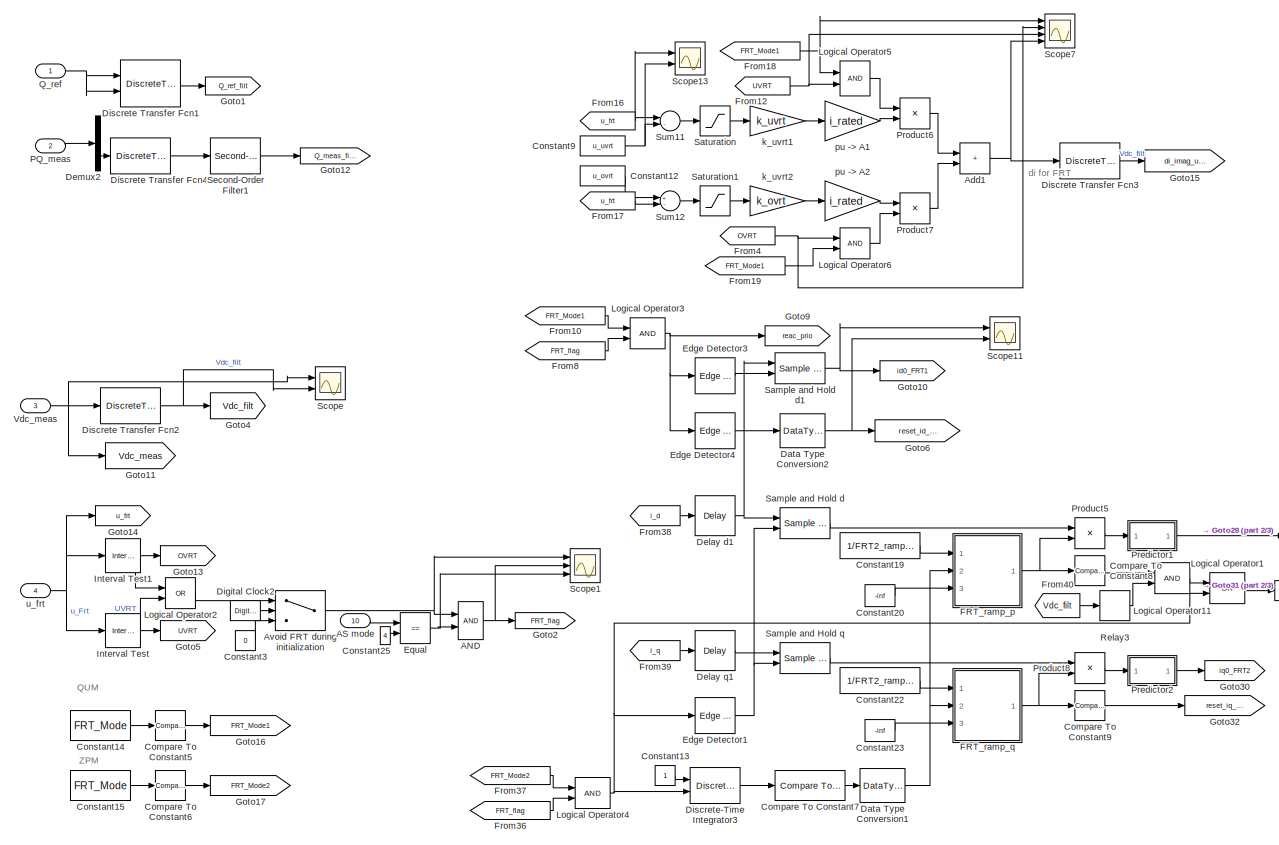
[diagram: Wind Turbine Type 4/Control/Grid-Side Inverter Control - part 1/3, left side, full height]
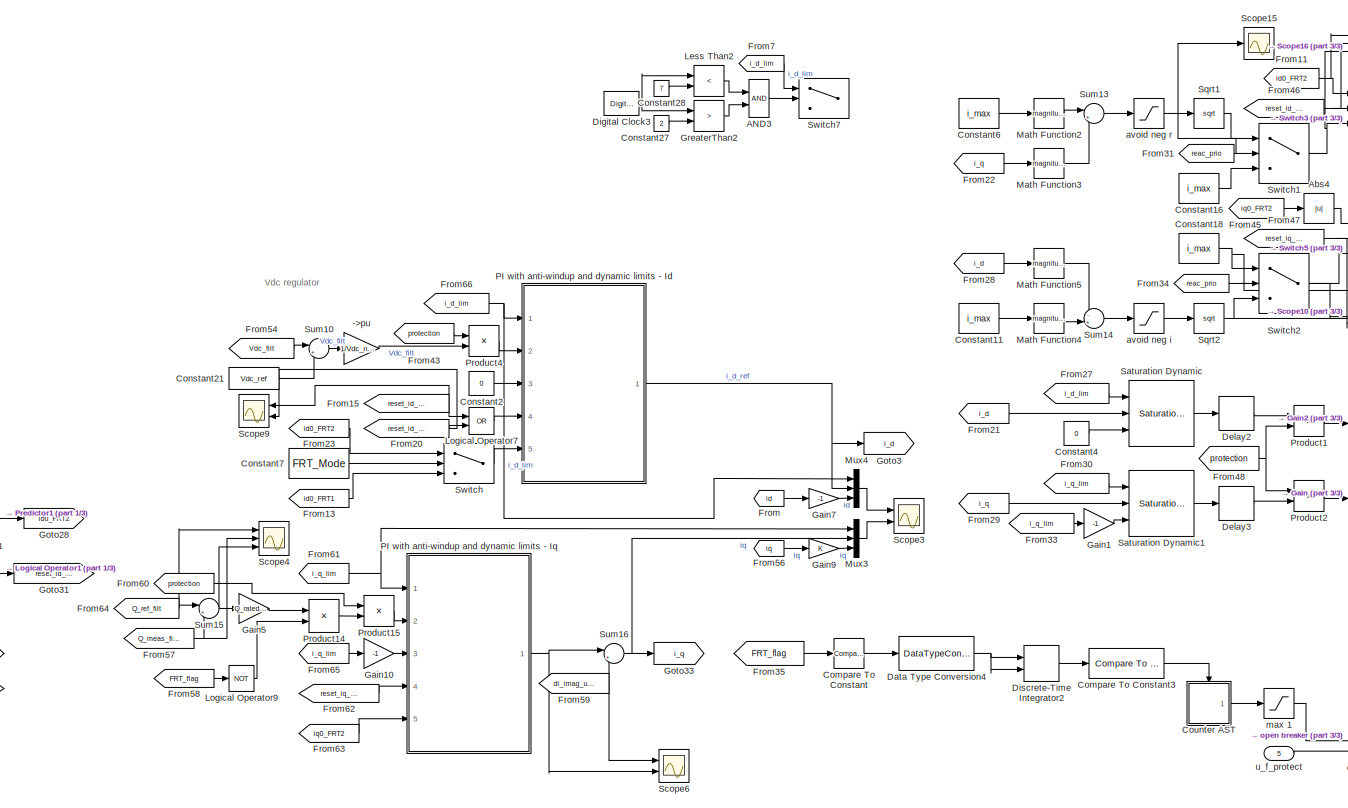
[diagram: Wind Turbine Type 4/Control/Grid-Side Inverter Control - part 2/3, center side, full height]
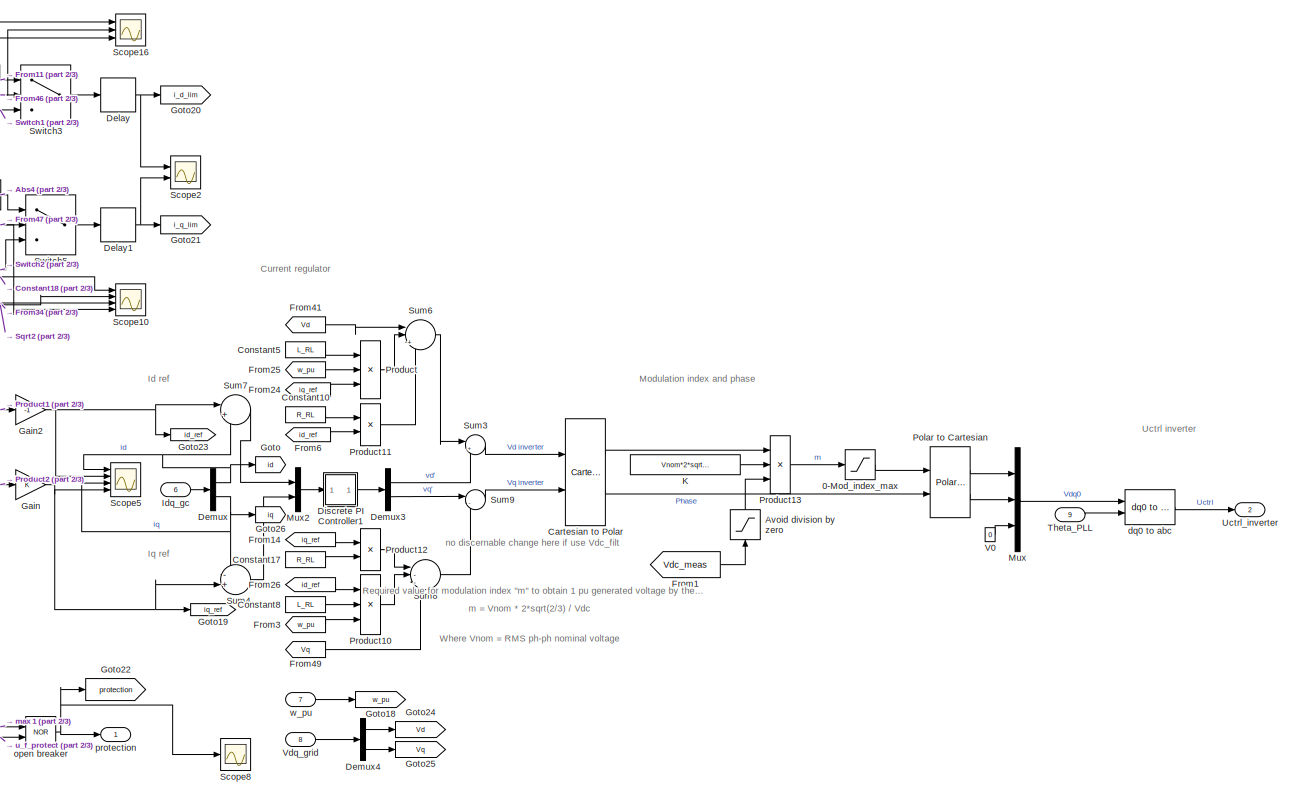
[diagram: Wind Turbine Type 4/Control/Grid-Side Inverter Control - part 3/3, right side, full height]
BLOCK [SubSystem] Wind Turbine Type 4/Control/Grid-Side Inverter Control
  Ports = [10, 2]
  RequestExecContextInheritance = off
BLOCK [Gain] Wind Turbine Type 4/Control/Grid-Side Inverter Control/->pu
  Gain = 1/Vdc_nom
BLOCK [Saturate] Wind Turbine Type 4/Control/Grid-Side Inverter Control/0-Mod_index_max
  LowerLimit = 0
  NameLocation = top
  UpperLimit = Mod_index_max
BLOCK [Logic] Wind Turbine Type 4/Control/Grid-Side Inverter Control/AND
  AllPortsSameDT = off
  IconShape = distinctive
  OutDataTypeStr = boolean
  Ports = [2, 1]
BLOCK [Logic] Wind Turbine Type 4/Control/Grid-Side Inverter Control/AND3
  AllPortsSameDT = off
  Commented = on
  IconShape = distinctive
  OutDataTypeStr = boolean
  Ports = [2, 1]
BLOCK [Inport] Wind Turbine Type 4/Control/Grid-Side Inverter Control/AS mode
  Port = 10
BLOCK [Abs] Wind Turbine Type 4/Control/Grid-Side Inverter Control/Abs4
  SaturateOnIntegerOverflow = off
BLOCK [Sum] Wind Turbine Type 4/Control/Grid-Side Inverter Control/Add1
  IconShape = rectangular
  Ports = [2, 1]
BLOCK [Switch] Wind Turbine Type 4/Control/Grid-Side Inverter Control/Avoid FRT during initialization
  Criteria = u2 > Threshold
  InputSameDT = off
  SaturateOnIntegerOverflow = off
  Threshold = 1
BLOCK [Saturate] Wind Turbine Type 4/Control/Grid-Side Inverter Control/Avoid division by zero
  LowerLimit = 1e-6
  NameLocation = right
  UpperLimit = 1e6
BLOCK [Reference] Wind Turbine Type 4/Control/Grid-Side Inverter Control/Cartesian to Polar  REF=simulink_extras/Transformations/Cartesian to
Polar
  Ports = [2, 2]
  SourceBlock = simulink_extras/Transformations/Cartesian to\nPolar
  SourceProductBaseCode = SL
  SourceType = Cart2Polar
BLOCK [Reference] Wind Turbine Type 4/Control/Grid-Side Inverter Control/Compare To Constant  REF=simulink/Logic and Bit
Operations/Compare
To Constant
  Ports = [1, 1]
  SourceBlock = simulink/Logic and Bit\nOperations/Compare\nTo Constant
  SourceProductBaseCode = SL
  SourceType = Compare To Constant
BLOCK [Reference] Wind Turbine Type 4/Control/Grid-Side Inverter Control/Compare To Constant3  REF=simulink/Logic and Bit
Operations/Compare
To Constant
  Ports = [1, 1]
  SourceBlock = simulink/Logic and Bit\nOperations/Compare\nTo Constant
  SourceProductBaseCode = SL
  SourceType = Compare To Constant
BLOCK [Reference] Wind Turbine Type 4/Control/Grid-Side Inverter Control/Compare To Constant5  REF=simulink/Logic and Bit
Operations/Compare
To Constant
  Ports = [1, 1]
  SourceBlock = simulink/Logic and Bit\nOperations/Compare\nTo Constant
  SourceProductBaseCode = SL
  SourceType = Compare To Constant
BLOCK [Reference] Wind Turbine Type 4/Control/Grid-Side Inverter Control/Compare To Constant6  REF=simulink/Logic and Bit
Operations/Compare
To Constant
  Ports = [1, 1]
  SourceBlock = simulink/Logic and Bit\nOperations/Compare\nTo Constant
  SourceProductBaseCode = SL
  SourceType = Compare To Constant
BLOCK [Reference] Wind Turbine Type 4/Control/Grid-Side Inverter Control/Compare To Constant7  REF=simulink/Logic and Bit
Operations/Compare
To Constant
  Ports = [1, 1]
  SourceBlock = simulink/Logic and Bit\nOperations/Compare\nTo Constant
  SourceProductBaseCode = SL
  SourceType = Compare To Constant
BLOCK [Reference] Wind Turbine Type 4/Control/Grid-Side Inverter Control/Compare To Constant8  REF=simulink/Logic and Bit
Operations/Compare
To Constant
  Ports = [1, 1]
  SourceBlock = simulink/Logic and Bit\nOperations/Compare\nTo Constant
  SourceProductBaseCode = SL
  SourceType = Compare To Constant
BLOCK [Reference] Wind Turbine Type 4/Control/Grid-Side Inverter Control/Compare To Constant9  REF=simulink/Logic and Bit
Operations/Compare
To Constant
  Ports = [1, 1]
  SourceBlock = simulink/Logic and Bit\nOperations/Compare\nTo Constant
  SourceProductBaseCode = SL
  SourceType = Compare To Constant
BLOCK [Constant] Wind Turbine Type 4/Control/Grid-Side Inverter Control/Constant10
  Value = R_RL
BLOCK [Constant] Wind Turbine Type 4/Control/Grid-Side Inverter Control/Constant11
  SampleTime = Ts
  Value = i_max
BLOCK [Constant] Wind Turbine Type 4/Control/Grid-Side Inverter Control/Constant12
  SampleTime = Ts
  Value = u_ovrt
BLOCK [Constant] Wind Turbine Type 4/Control/Grid-Side Inverter Control/Constant13
BLOCK [Constant] Wind Turbine Type 4/Control/Grid-Side Inverter Control/Constant14
  SampleTime = Ts
  Value = FRT_Mode
BLOCK [Constant] Wind Turbine Type 4/Control/Grid-Side Inverter Control/Constant15
  SampleTime = Ts
  Value = FRT_Mode
BLOCK [Constant] Wind Turbine Type 4/Control/Grid-Side Inverter Control/Constant16
  SampleTime = Ts
  Value = i_max
BLOCK [Constant] Wind Turbine Type 4/Control/Grid-Side Inverter Control/Constant17
  Value = R_RL
BLOCK [Constant] Wind Turbine Type 4/Control/Grid-Side Inverter Control/Constant18
  SampleTime = Ts
  Value = i_max
BLOCK [Constant] Wind Turbine Type 4/Control/Grid-Side Inverter Control/Constant19
  SampleTime = Ts
  Value = 1/FRT2_ramp_p
BLOCK [Constant] Wind Turbine Type 4/Control/Grid-Side Inverter Control/Constant2
  SampleTime = Ts
  Value = 0
BLOCK [Constant] Wind Turbine Type 4/Control/Grid-Side Inverter Control/Constant20
  SampleTime = Ts
  Value = -inf
BLOCK [Constant] Wind Turbine Type 4/Control/Grid-Side Inverter Control/Constant21
  SampleTime = Ts
  Value = Vdc_ref
BLOCK [Constant] Wind Turbine Type 4/Control/Grid-Side Inverter Control/Constant22
  SampleTime = Ts
  Value = 1/FRT2_ramp_q
BLOCK [Constant] Wind Turbine Type 4/Control/Grid-Side Inverter Control/Constant23
  SampleTime = Ts
  Value = -inf
BLOCK [Constant] Wind Turbine Type 4/Control/Grid-Side Inverter Control/Constant25
  Value = 4
BLOCK [Constant] Wind Turbine Type 4/Control/Grid-Side Inverter Control/Constant27
  Commented = on
  Value = 2
BLOCK [Constant] Wind Turbine Type 4/Control/Grid-Side Inverter Control/Constant28
  Commented = on
  Value = 7
BLOCK [Constant] Wind Turbine Type 4/Control/Grid-Side Inverter Control/Constant3
  Value = 0
BLOCK [Constant] Wind Turbine Type 4/Control/Grid-Side Inverter Control/Constant4
  SampleTime = Ts
  Value = 0
BLOCK [Constant] Wind Turbine Type 4/Control/Grid-Side Inverter Control/Constant5
  Value = L_RL
BLOCK [Constant] Wind Turbine Type 4/Control/Grid-Side Inverter Control/Constant6
  SampleTime = Ts
  Value = i_max
BLOCK [Constant] Wind Turbine Type 4/Control/Grid-Side Inverter Control/Constant7
  SampleTime = Ts
  Value = FRT_Mode
BLOCK [Constant] Wind Turbine Type 4/Control/Grid-Side Inverter Control/Constant8
  Value = L_RL
BLOCK [Constant] Wind Turbine Type 4/Control/Grid-Side Inverter Control/Constant9
  SampleTime = Ts
  Value = u_uvrt
BLOCK [SubSystem] Wind Turbine Type 4/Control/Grid-Side Inverter Control/Counter AST
  Ports = [0, 1, 0, 1]
  RequestExecContextInheritance = off
BLOCK [Constant] Wind Turbine Type 4/Control/Grid-Side Inverter Control/Counter AST/Constant
BLOCK [Outport] Wind Turbine Type 4/Control/Grid-Side Inverter Control/Counter AST/Count
BLOCK [Memory] Wind Turbine Type 4/Control/Grid-Side Inverter Control/Counter AST/Memory
  InheritSampleTime = on
BLOCK [Sum] Wind Turbine Type 4/Control/Grid-Side Inverter Control/Counter AST/Sum
  Inputs = |++
  Ports = [2, 1]
BLOCK [TriggerPort] Wind Turbine Type 4/Control/Grid-Side Inverter Control/Counter AST/Trigger
  PortDimensions = 1
  Ports = []
  StatesWhenEnabling = held
  VariantControl = Variant
BLOCK [DataTypeConversion] Wind Turbine Type 4/Control/Grid-Side Inverter Control/Data Type Conversion1
  RndMeth = Floor
  SaturateOnIntegerOverflow = off
BLOCK [DataTypeConversion] Wind Turbine Type 4/Control/Grid-Side Inverter Control/Data Type Conversion2
  RndMeth = Floor
  SaturateOnIntegerOverflow = off
BLOCK [DataTypeConversion] Wind Turbine Type 4/Control/Grid-Side Inverter Control/Data Type Conversion4
  RndMeth = Floor
  SaturateOnIntegerOverflow = off
BLOCK [Delay] Wind Turbine Type 4/Control/Grid-Side Inverter Control/Delay
  DelayLength = 1
  InitialCondition = 0
  InputPortMap = u0
  Ports = [1, 1]
  SampleTime = Ts
BLOCK [Delay] Wind Turbine Type 4/Control/Grid-Side Inverter Control/Delay d1
  DelayLength = fix(2/(f_rated*Ts))
  InitialCondition = 1
  InputPortMap = u0
  Ports = [1, 1]
  SampleTime = Ts
BLOCK [Delay] Wind Turbine Type 4/Control/Grid-Side Inverter Control/Delay q1
  DelayLength = fix(2/(f_rated*Ts))
  InitialCondition = 1
  InputPortMap = u0
  Ports = [1, 1]
  SampleTime = Ts
BLOCK [Delay] Wind Turbine Type 4/Control/Grid-Side Inverter Control/Delay1
  DelayLength = 1
  InitialCondition = 0
  InputPortMap = u0
  Ports = [1, 1]
  SampleTime = Ts
BLOCK [Delay] Wind Turbine Type 4/Control/Grid-Side Inverter Control/Delay2
  DelayLength = 1
  InitialCondition = 0
  InputPortMap = u0
  Ports = [1, 1]
  SampleTime = Ts
BLOCK [Delay] Wind Turbine Type 4/Control/Grid-Side Inverter Control/Delay3
  DelayLength = 1
  InitialCondition = 0
  InputPortMap = u0
  Ports = [1, 1]
  SampleTime = Ts
BLOCK [Demux] Wind Turbine Type 4/Control/Grid-Side Inverter Control/Demux
  DisplayOption = none
  Outputs = 2
  Ports = [1, 2]
BLOCK [Demux] Wind Turbine Type 4/Control/Grid-Side Inverter Control/Demux2
  Outputs = 2
  Ports = [1, 2]
BLOCK [Demux] Wind Turbine Type 4/Control/Grid-Side Inverter Control/Demux3
  DisplayOption = none
  Outputs = 2
  Ports = [1, 2]
BLOCK [Demux] Wind Turbine Type 4/Control/Grid-Side Inverter Control/Demux4
  DisplayOption = none
  Outputs = 2
  Ports = [1, 2]
BLOCK [DigitalClock] Wind Turbine Type 4/Control/Grid-Side Inverter Control/Digital Clock2
  SampleTime = Ts
BLOCK [DigitalClock] Wind Turbine Type 4/Control/Grid-Side Inverter Control/Digital Clock3
  Commented = on
  SampleTime = -1
BLOCK [SubSystem] Wind Turbine Type 4/Control/Grid-Side Inverter Control/Discrete PI Controller1
  DialogController = POWERSYS.PowerSysDialog
  Ports = [1, 1]
  RequestExecContextInheritance = off
BLOCK [DiscreteIntegrator] Wind Turbine Type 4/Control/Grid-Side Inverter Control/Discrete PI Controller1/Discrete-Time Integrator
  ICPrevOutput = DiscIntNeverNeededParam
  ICPrevScaledInput = DiscIntNeverNeededParam
  InitialCondition = Init
  LimitOutput = on
  LowerSaturationLimit = LowerLimit
  Ports = [1, 1]
  SampleTime = Ts
  UpperSaturationLimit = UpperLimit
BLOCK [Inport] Wind Turbine Type 4/Control/Grid-Side Inverter Control/Discrete PI Controller1/Error
  SampleTime = Ts
BLOCK [Gain] Wind Turbine Type 4/Control/Grid-Side Inverter Control/Discrete PI Controller1/Kp4
  Gain = Kp
  OutDataTypeStr = Inherit: Same as input
  ParamDataTypeStr = Inherit: Same as input
  SampleTime = Ts
  SaturateOnIntegerOverflow = on
BLOCK [Gain] Wind Turbine Type 4/Control/Grid-Side Inverter Control/Discrete PI Controller1/Kp5
  Gain = Ki
  OutDataTypeStr = Inherit: Same as input
  ParamDataTypeStr = Inherit: Same as input
  SampleTime = Ts
  SaturateOnIntegerOverflow = on
BLOCK [Outport] Wind Turbine Type 4/Control/Grid-Side Inverter Control/Discrete PI Controller1/Out
  InitialOutput = 0
  SampleTime = Ts
  VectorParamsAs1DForOutWhenUnconnected = off
BLOCK [Saturate] Wind Turbine Type 4/Control/Grid-Side Inverter Control/Discrete PI Controller1/Saturation2
  LowerLimit = LowerLimit
  NameLocation = top
  SampleTime = Ts
  UpperLimit = UpperLimit
BLOCK [Sum] Wind Turbine Type 4/Control/Grid-Side Inverter Control/Discrete PI Controller1/Sum6
  IconShape = rectangular
  InputSameDT = on
  OutDataTypeStr = Inherit: Same as first input
  Ports = [2, 1]
  SampleTime = Ts
  SaturateOnIntegerOverflow = on
BLOCK [ZeroOrderHold] Wind Turbine Type 4/Control/Grid-Side Inverter Control/Discrete PI Controller1/Zero-Order Hold
  SampleTime = Ts
BLOCK [DiscreteTransferFcn] Wind Turbine Type 4/Control/Grid-Side Inverter Control/Discrete Transfer Fcn1
  Denominator = [(inv(f_rated)*2)/Ts (1-((inv(f_rated)*2)/Ts))]
  InitialStatesSource = Input port
  InputPortMap = u0,p5
  Ports = [2, 1]
  SampleTime = Ts
BLOCK [DiscreteTransferFcn] Wind Turbine Type 4/Control/Grid-Side Inverter Control/Discrete Transfer Fcn2
  Denominator = [(Vdc2_tau)/Ts (1-((Vdc2_tau)/Ts))]
  InitialStates = Vdc2_filt_init
  InputPortMap = u0
  Ports = [1, 1]
  SampleTime = Ts
BLOCK [DiscreteTransferFcn] Wind Turbine Type 4/Control/Grid-Side Inverter Control/Discrete Transfer Fcn3
  Denominator = [(Vdc2_tau)/Ts (1-((Vdc2_tau)/Ts))]
  InputPortMap = u0
  Ports = [1, 1]
  SampleTime = Ts
BLOCK [DiscreteTransferFcn] Wind Turbine Type 4/Control/Grid-Side Inverter Control/Discrete Transfer Fcn4
  Denominator = [(inv(f_rated)*2)/Ts (1-((inv(f_rated)*2)/Ts))]
  InitialStates = U_rated^2/(-inv(2*pi*f_rated*Cshunt_filter))
  InputPortMap = u0
  Ports = [1, 1]
  SampleTime = Ts
BLOCK [DiscreteIntegrator] Wind Turbine Type 4/Control/Grid-Side Inverter Control/Discrete-Time Integrator2
  ExternalReset = falling
  ICPrevOutput = DiscIntNeverNeededParam
  ICPrevScaledInput = DiscIntNeverNeededParam
  InitialConditionSetting = Auto
  Ports = [2, 1]
  SampleTime = Ts
BLOCK [DiscreteIntegrator] Wind Turbine Type 4/Control/Grid-Side Inverter Control/Discrete-Time Integrator3
  ExternalReset = level
  ICPrevOutput = DiscIntNeverNeededParam
  ICPrevScaledInput = DiscIntNeverNeededParam
  LimitOutput = on
  LowerSaturationLimit = 0
  Ports = [2, 1]
  SampleTime = Ts
  UpperSaturationLimit = 1
BLOCK [Reference] Wind Turbine Type 4/Control/Grid-Side Inverter Control/Edge Detector1  REF=powerlib_meascontrol/Logic/Edge Detector
  Ports = [1, 1]
  SourceBlock = powerlib_meascontrol/Logic/Edge Detector
  SourceProductBaseCode = PS
  SourceType = Edge Detector
BLOCK [Reference] Wind Turbine Type 4/Control/Grid-Side Inverter Control/Edge Detector3  REF=powerlib_meascontrol/Logic/Edge Detector
  Ports = [1, 1]
  SourceBlock = powerlib_meascontrol/Logic/Edge Detector
  SourceProductBaseCode = PS
  SourceType = Edge Detector
BLOCK [Reference] Wind Turbine Type 4/Control/Grid-Side Inverter Control/Edge Detector4  REF=powerlib_meascontrol/Logic/Edge Detector
  NameLocation = top
  Ports = [1, 1]
  SourceBlock = powerlib_meascontrol/Logic/Edge Detector
  SourceProductBaseCode = PS
  SourceType = Edge Detector
BLOCK [RelationalOperator] Wind Turbine Type 4/Control/Grid-Side Inverter Control/Equal
  InputSameDT = off
  Operator = ==
  OutDataTypeStr = boolean
  Ports = [2, 1]
  RndMeth = Simplest
BLOCK [SubSystem] Wind Turbine Type 4/Control/Grid-Side Inverter Control/FRT_ramp_p
  Ports = [3, 1]
  RequestExecContextInheritance = off
BLOCK [Inport] Wind Turbine Type 4/Control/Grid-Side Inverter Control/FRT_ramp_p/LowerLimit
  Port = 3
BLOCK [Reference] Wind Turbine Type 4/Control/Grid-Side Inverter Control/FRT_ramp_p/Saturation  REF=simulink/Discontinuities/Saturation
Dynamic
  Ports = [3, 1]
  SourceBlock = simulink/Discontinuities/Saturation\nDynamic
  SourceProductBaseCode = SL
  SourceType = Saturation Dynamic
BLOCK [Sum] Wind Turbine Type 4/Control/Grid-Side Inverter Control/FRT_ramp_p/Sum
  InputSameDT = on
  Inputs = |++
  OutDataTypeStr = Inherit: Same as first input
  Ports = [2, 1]
  SaturateOnIntegerOverflow = on
BLOCK [Sum] Wind Turbine Type 4/Control/Grid-Side Inverter Control/FRT_ramp_p/Sum7
  InputSameDT = on
  Inputs = |+-
  OutDataTypeStr = Inherit: Same as first input
  Ports = [2, 1]
  SaturateOnIntegerOverflow = on
BLOCK [UnitDelay] Wind Turbine Type 4/Control/Grid-Side Inverter Control/FRT_ramp_p/Unit Delay
  HasFrameUpgradeWarning = on
  InitialCondition = 1
  SampleTime = Ts
BLOCK [Inport] Wind Turbine Type 4/Control/Grid-Side Inverter Control/FRT_ramp_p/UpperLimit
BLOCK [Gain] Wind Turbine Type 4/Control/Grid-Side Inverter Control/FRT_ramp_p/l Ts
  Gain = Ts
BLOCK [Inport] Wind Turbine Type 4/Control/Grid-Side Inverter Control/FRT_ramp_p/u
  Port = 2
BLOCK [Gain] Wind Turbine Type 4/Control/Grid-Side Inverter Control/FRT_ramp_p/u Ts
  Gain = Ts
BLOCK [Outport] Wind Turbine Type 4/Control/Grid-Side Inverter Control/FRT_ramp_p/y
BLOCK [SubSystem] Wind Turbine Type 4/Control/Grid-Side Inverter Control/FRT_ramp_q
  Ports = [3, 1]
  RequestExecContextInheritance = off
BLOCK [Inport] Wind Turbine Type 4/Control/Grid-Side Inverter Control/FRT_ramp_q/LowerLimit
  Port = 3
BLOCK [Reference] Wind Turbine Type 4/Control/Grid-Side Inverter Control/FRT_ramp_q/Saturation  REF=simulink/Discontinuities/Saturation
Dynamic
  Ports = [3, 1]
  SourceBlock = simulink/Discontinuities/Saturation\nDynamic
  SourceProductBaseCode = SL
  SourceType = Saturation Dynamic
BLOCK [Sum] Wind Turbine Type 4/Control/Grid-Side Inverter Control/FRT_ramp_q/Sum
  InputSameDT = on
  Inputs = |++
  OutDataTypeStr = Inherit: Same as first input
  Ports = [2, 1]
  SaturateOnIntegerOverflow = on
BLOCK [Sum] Wind Turbine Type 4/Control/Grid-Side Inverter Control/FRT_ramp_q/Sum7
  InputSameDT = on
  Inputs = |+-
  OutDataTypeStr = Inherit: Same as first input
  Ports = [2, 1]
  SaturateOnIntegerOverflow = on
BLOCK [UnitDelay] Wind Turbine Type 4/Control/Grid-Side Inverter Control/FRT_ramp_q/Unit Delay
  HasFrameUpgradeWarning = on
  InitialCondition = 1
  SampleTime = Ts
BLOCK [Inport] Wind Turbine Type 4/Control/Grid-Side Inverter Control/FRT_ramp_q/UpperLimit
BLOCK [Gain] Wind Turbine Type 4/Control/Grid-Side Inverter Control/FRT_ramp_q/l Ts
  Gain = Ts
BLOCK [Inport] Wind Turbine Type 4/Control/Grid-Side Inverter Control/FRT_ramp_q/u
  Port = 2
BLOCK [Gain] Wind Turbine Type 4/Control/Grid-Side Inverter Control/FRT_ramp_q/u Ts
  Gain = Ts
BLOCK [Outport] Wind Turbine Type 4/Control/Grid-Side Inverter Control/FRT_ramp_q/y
BLOCK [From] Wind Turbine Type 4/Control/Grid-Side Inverter Control/From
  GotoTag = id
BLOCK [From] Wind Turbine Type 4/Control/Grid-Side Inverter Control/From1
  GotoTag = Vdc_meas
BLOCK [From] Wind Turbine Type 4/Control/Grid-Side Inverter Control/From10
  GotoTag = FRT_Mode1
BLOCK [From] Wind Turbine Type 4/Control/Grid-Side Inverter Control/From11
  GotoTag = id0_FRT2
BLOCK [From] Wind Turbine Type 4/Control/Grid-Side Inverter Control/From12
  GotoTag = UVRT
BLOCK [From] Wind Turbine Type 4/Control/Grid-Side Inverter Control/From13
  GotoTag = id0_FRT1
BLOCK [From] Wind Turbine Type 4/Control/Grid-Side Inverter Control/From14
  CloseFcn = tagdialog Close
  GotoTag = iq_ref
BLOCK [From] Wind Turbine Type 4/Control/Grid-Side Inverter Control/From15
  GotoTag = reset_id_FRT1
BLOCK [From] Wind Turbine Type 4/Control/Grid-Side Inverter Control/From16
  GotoTag = u_frt
BLOCK [From] Wind Turbine Type 4/Control/Grid-Side Inverter Control/From17
  GotoTag = u_frt
BLOCK [From] Wind Turbine Type 4/Control/Grid-Side Inverter Control/From18
  GotoTag = FRT_Mode1
BLOCK [From] Wind Turbine Type 4/Control/Grid-Side Inverter Control/From19
  GotoTag = FRT_Mode1
BLOCK [From] Wind Turbine Type 4/Control/Grid-Side Inverter Control/From20
  GotoTag = reset_id_FRT2
BLOCK [From] Wind Turbine Type 4/Control/Grid-Side Inverter Control/From21
  GotoTag = i_d
BLOCK [From] Wind Turbine Type 4/Control/Grid-Side Inverter Control/From22
  GotoTag = i_q
BLOCK [From] Wind Turbine Type 4/Control/Grid-Side Inverter Control/From23
  GotoTag = id0_FRT2
BLOCK [From] Wind Turbine Type 4/Control/Grid-Side Inverter Control/From24
  CloseFcn = tagdialog Close
  GotoTag = iq_ref
BLOCK [From] Wind Turbine Type 4/Control/Grid-Side Inverter Control/From25
  CloseFcn = tagdialog Close
  GotoTag = w_pu
BLOCK [From] Wind Turbine Type 4/Control/Grid-Side Inverter Control/From26
  CloseFcn = tagdialog Close
  GotoTag = id_ref
BLOCK [From] Wind Turbine Type 4/Control/Grid-Side Inverter Control/From27
  GotoTag = i_d_lim
BLOCK [From] Wind Turbine Type 4/Control/Grid-Side Inverter Control/From28
  GotoTag = i_d
BLOCK [From] Wind Turbine Type 4/Control/Grid-Side Inverter Control/From29
  GotoTag = i_q
BLOCK [From] Wind Turbine Type 4/Control/Grid-Side Inverter Control/From3
  CloseFcn = tagdialog Close
  GotoTag = w_pu
BLOCK [From] Wind Turbine Type 4/Control/Grid-Side Inverter Control/From30
  GotoTag = i_q_lim
BLOCK [From] Wind Turbine Type 4/Control/Grid-Side Inverter Control/From31
  GotoTag = reac_prio
BLOCK [From] Wind Turbine Type 4/Control/Grid-Side Inverter Control/From33
  GotoTag = i_q_lim
BLOCK [From] Wind Turbine Type 4/Control/Grid-Side Inverter Control/From34
  GotoTag = reac_prio
BLOCK [From] Wind Turbine Type 4/Control/Grid-Side Inverter Control/From35
  GotoTag = FRT_flag
BLOCK [From] Wind Turbine Type 4/Control/Grid-Side Inverter Control/From36
  GotoTag = FRT_flag
BLOCK [From] Wind Turbine Type 4/Control/Grid-Side Inverter Control/From37
  GotoTag = FRT_Mode2
BLOCK [From] Wind Turbine Type 4/Control/Grid-Side Inverter Control/From38
  GotoTag = i_d
BLOCK [From] Wind Turbine Type 4/Control/Grid-Side Inverter Control/From39
  GotoTag = i_q
BLOCK [From] Wind Turbine Type 4/Control/Grid-Side Inverter Control/From4
  GotoTag = OVRT
BLOCK [From] Wind Turbine Type 4/Control/Grid-Side Inverter Control/From40
  GotoTag = Vdc_filt
BLOCK [From] Wind Turbine Type 4/Control/Grid-Side Inverter Control/From41
  CloseFcn = tagdialog Close
  GotoTag = Vd
BLOCK [From] Wind Turbine Type 4/Control/Grid-Side Inverter Control/From43
  GotoTag = protection
BLOCK [From] Wind Turbine Type 4/Control/Grid-Side Inverter Control/From45
  GotoTag = iq0_FRT2
BLOCK [From] Wind Turbine Type 4/Control/Grid-Side Inverter Control/From46
  GotoTag = reset_id_FRT2
BLOCK [From] Wind Turbine Type 4/Control/Grid-Side Inverter Control/From47
  GotoTag = reset_iq_FRT2
BLOCK [From] Wind Turbine Type 4/Control/Grid-Side Inverter Control/From48
  GotoTag = protection
BLOCK [From] Wind Turbine Type 4/Control/Grid-Side Inverter Control/From49
  CloseFcn = tagdialog Close
  GotoTag = Vq
BLOCK [From] Wind Turbine Type 4/Control/Grid-Side Inverter Control/From54
  GotoTag = Vdc_filt
BLOCK [From] Wind Turbine Type 4/Control/Grid-Side Inverter Control/From56
  GotoTag = iq
BLOCK [From] Wind Turbine Type 4/Control/Grid-Side Inverter Control/From57
  GotoTag = Q_meas_filt
BLOCK [From] Wind Turbine Type 4/Control/Grid-Side Inverter Control/From58
  GotoTag = FRT_flag
BLOCK [From] Wind Turbine Type 4/Control/Grid-Side Inverter Control/From59
  GotoTag = di_imag_uvrt
BLOCK [From] Wind Turbine Type 4/Control/Grid-Side Inverter Control/From6
  CloseFcn = tagdialog Close
  GotoTag = id_ref
BLOCK [From] Wind Turbine Type 4/Control/Grid-Side Inverter Control/From60
  GotoTag = protection
BLOCK [From] Wind Turbine Type 4/Control/Grid-Side Inverter Control/From61
  GotoTag = i_q_lim
BLOCK [From] Wind Turbine Type 4/Control/Grid-Side Inverter Control/From62
  GotoTag = reset_iq_FRT2
BLOCK [From] Wind Turbine Type 4/Control/Grid-Side Inverter Control/From63
  GotoTag = iq0_FRT2
BLOCK [From] Wind Turbine Type 4/Control/Grid-Side Inverter Control/From64
  GotoTag = Q_ref_filt
BLOCK [From] Wind Turbine Type 4/Control/Grid-Side Inverter Control/From65
  GotoTag = i_q_lim
BLOCK [From] Wind Turbine Type 4/Control/Grid-Side Inverter Control/From66
  GotoTag = i_d_lim
BLOCK [From] Wind Turbine Type 4/Control/Grid-Side Inverter Control/From7
  Commented = on
  GotoTag = i_d_lim
BLOCK [From] Wind Turbine Type 4/Control/Grid-Side Inverter Control/From8
  GotoTag = FRT_flag
BLOCK [Gain] Wind Turbine Type 4/Control/Grid-Side Inverter Control/Gain
BLOCK [Gain] Wind Turbine Type 4/Control/Grid-Side Inverter Control/Gain1
  Gain = -1
BLOCK [Gain] Wind Turbine Type 4/Control/Grid-Side Inverter Control/Gain10
  Gain = -1
BLOCK [Gain] Wind Turbine Type 4/Control/Grid-Side Inverter Control/Gain2
  Gain = -1
BLOCK [Gain] Wind Turbine Type 4/Control/Grid-Side Inverter Control/Gain5
  Gain = Q_rated/Nb_wt
BLOCK [Gain] Wind Turbine Type 4/Control/Grid-Side Inverter Control/Gain7
  Gain = -1
BLOCK [Gain] Wind Turbine Type 4/Control/Grid-Side Inverter Control/Gain9
BLOCK [Goto] Wind Turbine Type 4/Control/Grid-Side Inverter Control/Goto
  GotoTag = id
BLOCK [Goto] Wind Turbine Type 4/Control/Grid-Side Inverter Control/Goto1
  GotoTag = Q_ref_filt
BLOCK [Goto] Wind Turbine Type 4/Control/Grid-Side Inverter Control/Goto10
  GotoTag = id0_FRT1
BLOCK [Goto] Wind Turbine Type 4/Control/Grid-Side Inverter Control/Goto11
  GotoTag = Vdc_meas
BLOCK [Goto] Wind Turbine Type 4/Control/Grid-Side Inverter Control/Goto12
  GotoTag = Q_meas_filt
BLOCK [Goto] Wind Turbine Type 4/Control/Grid-Side Inverter Control/Goto13
  GotoTag = OVRT
BLOCK [Goto] Wind Turbine Type 4/Control/Grid-Side Inverter Control/Goto14
  GotoTag = u_frt
BLOCK [Goto] Wind Turbine Type 4/Control/Grid-Side Inverter Control/Goto15
  GotoTag = di_imag_uvrt
BLOCK [Goto] Wind Turbine Type 4/Control/Grid-Side Inverter Control/Goto16
  GotoTag = FRT_Mode1
BLOCK [Goto] Wind Turbine Type 4/Control/Grid-Side Inverter Control/Goto17
  GotoTag = FRT_Mode2
BLOCK [Goto] Wind Turbine Type 4/Control/Grid-Side Inverter Control/Goto18
  GotoTag = w_pu
BLOCK [Goto] Wind Turbine Type 4/Control/Grid-Side Inverter Control/Goto19
  GotoTag = iq_ref
BLOCK [Goto] Wind Turbine Type 4/Control/Grid-Side Inverter Control/Goto2
  GotoTag = FRT_flag
BLOCK [Goto] Wind Turbine Type 4/Control/Grid-Side Inverter Control/Goto20
  GotoTag = i_d_lim
BLOCK [Goto] Wind Turbine Type 4/Control/Grid-Side Inverter Control/Goto21
  GotoTag = i_q_lim
BLOCK [Goto] Wind Turbine Type 4/Control/Grid-Side Inverter Control/Goto22
  GotoTag = protection
BLOCK [Goto] Wind Turbine Type 4/Control/Grid-Side Inverter Control/Goto23
  GotoTag = id_ref
BLOCK [Goto] Wind Turbine Type 4/Control/Grid-Side Inverter Control/Goto24
  GotoTag = Vd
BLOCK [Goto] Wind Turbine Type 4/Control/Grid-Side Inverter Control/Goto25
  GotoTag = Vq
BLOCK [Goto] Wind Turbine Type 4/Control/Grid-Side Inverter Control/Goto26
  GotoTag = iq
BLOCK [Goto] Wind Turbine Type 4/Control/Grid-Side Inverter Control/Goto28
  GotoTag = id0_FRT2
BLOCK [Goto] Wind Turbine Type 4/Control/Grid-Side Inverter Control/Goto3
  GotoTag = i_d
BLOCK [Goto] Wind Turbine Type 4/Control/Grid-Side Inverter Control/Goto30
  GotoTag = iq0_FRT2
BLOCK [Goto] Wind Turbine Type 4/Control/Grid-Side Inverter Control/Goto31
  GotoTag = reset_id_FRT2
BLOCK [Goto] Wind Turbine Type 4/Control/Grid-Side Inverter Control/Goto32
  GotoTag = reset_iq_FRT2
BLOCK [Goto] Wind Turbine Type 4/Control/Grid-Side Inverter Control/Goto33
  GotoTag = i_q
BLOCK [Goto] Wind Turbine Type 4/Control/Grid-Side Inverter Control/Goto4
  GotoTag = Vdc_filt
BLOCK [Goto] Wind Turbine Type 4/Control/Grid-Side Inverter Control/Goto5
  GotoTag = UVRT
BLOCK [Goto] Wind Turbine Type 4/Control/Grid-Side Inverter Control/Goto6
  GotoTag = reset_id_FRT1
BLOCK [Goto] Wind Turbine Type 4/Control/Grid-Side Inverter Control/Goto9
  GotoTag = reac_prio
BLOCK [RelationalOperator] Wind Turbine Type 4/Control/Grid-Side Inverter Control/GreaterThan2
  Commented = on
  InputSameDT = off
  Operator = >
  OutDataTypeStr = boolean
  Ports = [2, 1]
  RndMeth = Simplest
BLOCK [Inport] Wind Turbine Type 4/Control/Grid-Side Inverter Control/Idq_gc
  Port = 6
BLOCK [Reference] Wind Turbine Type 4/Control/Grid-Side Inverter Control/Interval Test  REF=simulink/Logic and Bit
Operations/Interval Test
  Ports = [1, 1]
  SourceBlock = simulink/Logic and Bit\nOperations/Interval Test
  SourceProductBaseCode = SL
  SourceType = Interval Test
BLOCK [Reference] Wind Turbine Type 4/Control/Grid-Side Inverter Control/Interval Test1  REF=simulink/Logic and Bit
Operations/Interval Test
  Ports = [1, 1]
  SourceBlock = simulink/Logic and Bit\nOperations/Interval Test
  SourceProductBaseCode = SL
  SourceType = Interval Test
BLOCK [Constant] Wind Turbine Type 4/Control/Grid-Side Inverter Control/K
  Value = Vnom*2*sqrt(2/3)
BLOCK [RelationalOperator] Wind Turbine Type 4/Control/Grid-Side Inverter Control/Less Than2
  Commented = on
  InputSameDT = off
  Operator = <
  OutDataTypeStr = boolean
  Ports = [2, 1]
  RndMeth = Simplest
BLOCK [Logic] Wind Turbine Type 4/Control/Grid-Side Inverter Control/Logical Operator1
  AllPortsSameDT = off
  Operator = OR
  OutDataTypeStr = boolean
  Ports = [2, 1]
BLOCK [Logic] Wind Turbine Type 4/Control/Grid-Side Inverter Control/Logical Operator11
  AllPortsSameDT = off
  OutDataTypeStr = boolean
  Ports = [2, 1]
BLOCK [Logic] Wind Turbine Type 4/Control/Grid-Side Inverter Control/Logical Operator2
  AllPortsSameDT = off
  Operator = OR
  OutDataTypeStr = boolean
  Ports = [2, 1]
BLOCK [Logic] Wind Turbine Type 4/Control/Grid-Side Inverter Control/Logical Operator3
  AllPortsSameDT = off
  OutDataTypeStr = boolean
  Ports = [2, 1]
BLOCK [Logic] Wind Turbine Type 4/Control/Grid-Side Inverter Control/Logical Operator4
  AllPortsSameDT = off
  OutDataTypeStr = boolean
  Ports = [2, 1]
BLOCK [Logic] Wind Turbine Type 4/Control/Grid-Side Inverter Control/Logical Operator5
  AllPortsSameDT = off
  OutDataTypeStr = boolean
  Ports = [2, 1]
BLOCK [Logic] Wind Turbine Type 4/Control/Grid-Side Inverter Control/Logical Operator6
  AllPortsSameDT = off
  OutDataTypeStr = boolean
  Ports = [2, 1]
BLOCK [Logic] Wind Turbine Type 4/Control/Grid-Side Inverter Control/Logical Operator7
  AllPortsSameDT = off
  Operator = OR
  OutDataTypeStr = boolean
  Ports = [2, 1]
BLOCK [Logic] Wind Turbine Type 4/Control/Grid-Side Inverter Control/Logical Operator9
  AllPortsSameDT = off
  Operator = NOT
  OutDataTypeStr = boolean
  Ports = [1, 1]
BLOCK [Math] Wind Turbine Type 4/Control/Grid-Side Inverter Control/Math Function2
  Operator = magnitude^2
  Ports = [1, 1]
  SignedPower = on
BLOCK [Math] Wind Turbine Type 4/Control/Grid-Side Inverter Control/Math Function3
  Operator = magnitude^2
  Ports = [1, 1]
  SignedPower = on
BLOCK [Math] Wind Turbine Type 4/Control/Grid-Side Inverter Control/Math Function4
  Operator = magnitude^2
  Ports = [1, 1]
  SignedPower = on
BLOCK [Math] Wind Turbine Type 4/Control/Grid-Side Inverter Control/Math Function5
  Operator = magnitude^2
  Ports = [1, 1]
  SignedPower = on
BLOCK [Mux] Wind Turbine Type 4/Control/Grid-Side Inverter Control/Mux
  DisplayOption = bar
  Inputs = 3
  Ports = [3, 1]
BLOCK [Mux] Wind Turbine Type 4/Control/Grid-Side Inverter Control/Mux2
  DisplayOption = bar
  Inputs = 2
  Ports = [2, 1]
BLOCK [Mux] Wind Turbine Type 4/Control/Grid-Side Inverter Control/Mux3
  DisplayOption = bar
  Inputs = 3
  Ports = [3, 1]
BLOCK [Mux] Wind Turbine Type 4/Control/Grid-Side Inverter Control/Mux4
  DisplayOption = bar
  Inputs = 3
  Ports = [3, 1]
BLOCK [SubSystem] Wind Turbine Type 4/Control/Grid-Side Inverter Control/PI with anti-windup and dynamic limits - Id
  Ports = [5, 1]
  RequestExecContextInheritance = off
BLOCK [Sum] Wind Turbine Type 4/Control/Grid-Side Inverter Control/PI with anti-windup and dynamic limits - Id/Add1
  IconShape = rectangular
  NameLocation = left
  Ports = [2, 1]
BLOCK [Sum] Wind Turbine Type 4/Control/Grid-Side Inverter Control/PI with anti-windup and dynamic limits - Id/Add2
  IconShape = rectangular
  Ports = [2, 1]
BLOCK [Sum] Wind Turbine Type 4/Control/Grid-Side Inverter Control/PI with anti-windup and dynamic limits - Id/Add3
  IconShape = rectangular
  Inputs = +++
  Ports = [3, 1]
BLOCK [Reference] Wind Turbine Type 4/Control/Grid-Side Inverter Control/PI with anti-windup and dynamic limits - Id/Compare To Zero  REF=simulink/Logic and Bit
Operations/Compare
To Zero
  Ports = [1, 1]
  SourceBlock = simulink/Logic and Bit\nOperations/Compare\nTo Zero
  SourceProductBaseCode = SL
  SourceType = Compare To Zero
BLOCK [Reference] Wind Turbine Type 4/Control/Grid-Side Inverter Control/PI with anti-windup and dynamic limits - Id/Compare To Zero1  REF=simulink/Logic and Bit
Operations/Compare
To Zero
  Ports = [1, 1]
  SourceBlock = simulink/Logic and Bit\nOperations/Compare\nTo Zero
  SourceProductBaseCode = SL
  SourceType = Compare To Zero
BLOCK [Constant] Wind Turbine Type 4/Control/Grid-Side Inverter Control/PI with anti-windup and dynamic limits - Id/Constant
  Value = 0
BLOCK [DiscreteIntegrator] Wind Turbine Type 4/Control/Grid-Side Inverter Control/PI with anti-windup and dynamic limits - Id/Discrete Integrator
  ExternalReset = sampled level
  ICPrevOutput = DiscIntNeverNeededParam
  ICPrevScaledInput = DiscIntNeverNeededParam
  InitialCondition = Init
  InitialConditionSetting = Auto
  InitialConditionSource = external
  IntegratorMethod = Integration: Trapezoidal
  LowerSaturationLimit = LowerLimit
  Ports = [3, 1, 0, 0, 1]
  SampleTime = Ts
  ShowStatePort = on
  UpperSaturationLimit = UpperLimit
  gainval = 1
BLOCK [InitialCondition] Wind Turbine Type 4/Control/Grid-Side Inverter Control/PI with anti-windup and dynamic limits - Id/IC
  Value = Init
BLOCK [Inport] Wind Turbine Type 4/Control/Grid-Side Inverter Control/PI with anti-windup and dynamic limits - Id/Input
  Port = 2
BLOCK [Gain] Wind Turbine Type 4/Control/Grid-Side Inverter Control/PI with anti-windup and dynamic limits - Id/Kp1
  Gain = Kp
  OutDataTypeStr = Inherit: Same as input
  ParamDataTypeStr = Inherit: Same as input
  SampleTime = Ts
  SaturateOnIntegerOverflow = on
BLOCK [Gain] Wind Turbine Type 4/Control/Grid-Side Inverter Control/PI with anti-windup and dynamic limits - Id/Kp5
  Gain = Ki
  OutDataTypeStr = Inherit: Same as input
  ParamDataTypeStr = Inherit: Same as input
  SampleTime = Ts
  SaturateOnIntegerOverflow = on
BLOCK [Logic] Wind Turbine Type 4/Control/Grid-Side Inverter Control/PI with anti-windup and dynamic limits - Id/Logical Operator
  AllPortsSameDT = off
  OutDataTypeStr = boolean
  Ports = [2, 1]
BLOCK [Logic] Wind Turbine Type 4/Control/Grid-Side Inverter Control/PI with anti-windup and dynamic limits - Id/Logical Operator1
  AllPortsSameDT = off
  OutDataTypeStr = boolean
  Ports = [2, 1]
BLOCK [Logic] Wind Turbine Type 4/Control/Grid-Side Inverter Control/PI with anti-windup and dynamic limits - Id/Logical Operator2
  AllPortsSameDT = off
  Operator = OR
  OutDataTypeStr = boolean
  Ports = [2, 1]
BLOCK [Logic] Wind Turbine Type 4/Control/Grid-Side Inverter Control/PI with anti-windup and dynamic limits - Id/Logical Operator3
  AllPortsSameDT = off
  Inputs = 3
  Operator = OR
  OutDataTypeStr = boolean
  Ports = [3, 1]
BLOCK [Logic] Wind Turbine Type 4/Control/Grid-Side Inverter Control/PI with anti-windup and dynamic limits - Id/Logical Operator4
  AllPortsSameDT = off
  Inputs = 3
  NameLocation = top
  Operator = NOT
  OutDataTypeStr = boolean
  Ports = [1, 1]
BLOCK [Inport] Wind Turbine Type 4/Control/Grid-Side Inverter Control/PI with anti-windup and dynamic limits - Id/LowerLimit
  Port = 3
BLOCK [Outport] Wind Turbine Type 4/Control/Grid-Side Inverter Control/PI with anti-windup and dynamic limits - Id/Output
BLOCK [Product] Wind Turbine Type 4/Control/Grid-Side Inverter Control/PI with anti-windup and dynamic limits - Id/Product
  Inputs = 3
  Ports = [3, 1]
BLOCK [Product] Wind Turbine Type 4/Control/Grid-Side Inverter Control/PI with anti-windup and dynamic limits - Id/Product1
  Inputs = 3
  Ports = [3, 1]
BLOCK [Product] Wind Turbine Type 4/Control/Grid-Side Inverter Control/PI with anti-windup and dynamic limits - Id/Product2
  NameLocation = top
  Ports = [2, 1]
BLOCK [RelationalOperator] Wind Turbine Type 4/Control/Grid-Side Inverter Control/PI with anti-windup and dynamic limits - Id/Relational Operator
  InputSameDT = off
  OutDataTypeStr = boolean
  Ports = [2, 1]
BLOCK [RelationalOperator] Wind Turbine Type 4/Control/Grid-Side Inverter Control/PI with anti-windup and dynamic limits - Id/Relational Operator1
  InputSameDT = off
  Operator = <=
  OutDataTypeStr = boolean
  Ports = [2, 1]
BLOCK [RelationalOperator] Wind Turbine Type 4/Control/Grid-Side Inverter Control/PI with anti-windup and dynamic limits - Id/Relational Operator2
  InputSameDT = off
  OutDataTypeStr = boolean
  Ports = [2, 1]
BLOCK [RelationalOperator] Wind Turbine Type 4/Control/Grid-Side Inverter Control/PI with anti-windup and dynamic limits - Id/Relational Operator3
  InputSameDT = off
  Operator = <=
  OutDataTypeStr = boolean
  Ports = [2, 1]
BLOCK [Inport] Wind Turbine Type 4/Control/Grid-Side Inverter Control/PI with anti-windup and dynamic limits - Id/Reset
  Port = 4
BLOCK [Reference] Wind Turbine Type 4/Control/Grid-Side Inverter Control/PI with anti-windup and dynamic limits - Id/Saturation Dynamic  REF=simulink/Discontinuities/Saturation
Dynamic
  Ports = [3, 1]
  SourceBlock = simulink/Discontinuities/Saturation\nDynamic
  SourceProductBaseCode = SL
  SourceType = Saturation Dynamic
BLOCK [Scope] Wind Turbine Type 4/Control/Grid-Side Inverter Control/PI with anti-windup and dynamic limits - Id/Scope3
  Floating = off
  NumInputPorts = 1
  Ports = [1]
  ScopeSpecificationString = Simulink.scopes.TimeScopeBlockCfg('CurrentConfiguration', extmgr.ConfigurationSet(extmgr.Configuration('Core','General UI',true),extmgr.Configuration('Core','Source UI',true),extmgr.Configuration('Sources','WiredSimulink',true,'DataLoggingVariableName','ScopeData1'),extmgr.Configuration('Visuals','Time Domain',true,'SerializedDisplays',{struct('MinYLimReal','-0.125','MaxYLimReal','1.125','YLabelRe...<+1474ch>
BLOCK [Switch] Wind Turbine Type 4/Control/Grid-Side Inverter Control/PI with anti-windup and dynamic limits - Id/Switch
  Criteria = u2 > Threshold
  InputSameDT = off
  SaturateOnIntegerOverflow = off
BLOCK [Inport] Wind Turbine Type 4/Control/Grid-Side Inverter Control/PI with anti-windup and dynamic limits - Id/UpperLimit
BLOCK [ZeroOrderHold] Wind Turbine Type 4/Control/Grid-Side Inverter Control/PI with anti-windup and dynamic limits - Id/Zero-Order Hold
  SampleTime = Ts
BLOCK [Inport] Wind Turbine Type 4/Control/Grid-Side Inverter Control/PI with anti-windup and dynamic limits - Id/x_reset
  Port = 5
BLOCK [SubSystem] Wind Turbine Type 4/Control/Grid-Side Inverter Control/PI with anti-windup and dynamic limits - Iq
  Ports = [5, 1]
  RequestExecContextInheritance = off
BLOCK [Sum] Wind Turbine Type 4/Control/Grid-Side Inverter Control/PI with anti-windup and dynamic limits - Iq/Add1
  IconShape = rectangular
  NameLocation = left
  Ports = [2, 1]
BLOCK [Sum] Wind Turbine Type 4/Control/Grid-Side Inverter Control/PI with anti-windup and dynamic limits - Iq/Add2
  IconShape = rectangular
  Ports = [2, 1]
BLOCK [Sum] Wind Turbine Type 4/Control/Grid-Side Inverter Control/PI with anti-windup and dynamic limits - Iq/Add3
  IconShape = rectangular
  Inputs = +++
  Ports = [3, 1]
BLOCK [Reference] Wind Turbine Type 4/Control/Grid-Side Inverter Control/PI with anti-windup and dynamic limits - Iq/Compare To Zero  REF=simulink/Logic and Bit
Operations/Compare
To Zero
  Ports = [1, 1]
  SourceBlock = simulink/Logic and Bit\nOperations/Compare\nTo Zero
  SourceProductBaseCode = SL
  SourceType = Compare To Zero
BLOCK [Reference] Wind Turbine Type 4/Control/Grid-Side Inverter Control/PI with anti-windup and dynamic limits - Iq/Compare To Zero1  REF=simulink/Logic and Bit
Operations/Compare
To Zero
  Ports = [1, 1]
  SourceBlock = simulink/Logic and Bit\nOperations/Compare\nTo Zero
  SourceProductBaseCode = SL
  SourceType = Compare To Zero
BLOCK [Constant] Wind Turbine Type 4/Control/Grid-Side Inverter Control/PI with anti-windup and dynamic limits - Iq/Constant
  Value = 0
BLOCK [DiscreteIntegrator] Wind Turbine Type 4/Control/Grid-Side Inverter Control/PI with anti-windup and dynamic limits - Iq/Discrete Integrator
  ExternalReset = sampled level
  ICPrevOutput = DiscIntNeverNeededParam
  ICPrevScaledInput = DiscIntNeverNeededParam
  InitialCondition = Init
  InitialConditionSetting = Auto
  InitialConditionSource = external
  IntegratorMethod = Integration: Trapezoidal
  LowerSaturationLimit = LowerLimit
  Ports = [3, 1, 0, 0, 1]
  SampleTime = Ts
  ShowStatePort = on
  UpperSaturationLimit = UpperLimit
  gainval = 1
BLOCK [InitialCondition] Wind Turbine Type 4/Control/Grid-Side Inverter Control/PI with anti-windup and dynamic limits - Iq/IC
  Value = Init
BLOCK [Inport] Wind Turbine Type 4/Control/Grid-Side Inverter Control/PI with anti-windup and dynamic limits - Iq/Input
  Port = 2
BLOCK [Gain] Wind Turbine Type 4/Control/Grid-Side Inverter Control/PI with anti-windup and dynamic limits - Iq/Kp1
  Gain = Kp
  OutDataTypeStr = Inherit: Same as input
  ParamDataTypeStr = Inherit: Same as input
  SampleTime = Ts
  SaturateOnIntegerOverflow = on
BLOCK [Gain] Wind Turbine Type 4/Control/Grid-Side Inverter Control/PI with anti-windup and dynamic limits - Iq/Kp5
  Gain = Ki
  OutDataTypeStr = Inherit: Same as input
  ParamDataTypeStr = Inherit: Same as input
  SampleTime = Ts
  SaturateOnIntegerOverflow = on
BLOCK [Logic] Wind Turbine Type 4/Control/Grid-Side Inverter Control/PI with anti-windup and dynamic limits - Iq/Logical Operator
  AllPortsSameDT = off
  OutDataTypeStr = boolean
  Ports = [2, 1]
BLOCK [Logic] Wind Turbine Type 4/Control/Grid-Side Inverter Control/PI with anti-windup and dynamic limits - Iq/Logical Operator1
  AllPortsSameDT = off
  OutDataTypeStr = boolean
  Ports = [2, 1]
BLOCK [Logic] Wind Turbine Type 4/Control/Grid-Side Inverter Control/PI with anti-windup and dynamic limits - Iq/Logical Operator2
  AllPortsSameDT = off
  Operator = OR
  OutDataTypeStr = boolean
  Ports = [2, 1]
BLOCK [Logic] Wind Turbine Type 4/Control/Grid-Side Inverter Control/PI with anti-windup and dynamic limits - Iq/Logical Operator3
  AllPortsSameDT = off
  Inputs = 3
  Operator = OR
  OutDataTypeStr = boolean
  Ports = [3, 1]
BLOCK [Logic] Wind Turbine Type 4/Control/Grid-Side Inverter Control/PI with anti-windup and dynamic limits - Iq/Logical Operator4
  AllPortsSameDT = off
  Inputs = 3
  NameLocation = top
  Operator = NOT
  OutDataTypeStr = boolean
  Ports = [1, 1]
BLOCK [Inport] Wind Turbine Type 4/Control/Grid-Side Inverter Control/PI with anti-windup and dynamic limits - Iq/LowerLimit
  Port = 3
BLOCK [Outport] Wind Turbine Type 4/Control/Grid-Side Inverter Control/PI with anti-windup and dynamic limits - Iq/Output
BLOCK [Product] Wind Turbine Type 4/Control/Grid-Side Inverter Control/PI with anti-windup and dynamic limits - Iq/Product
  Inputs = 3
  Ports = [3, 1]
BLOCK [Product] Wind Turbine Type 4/Control/Grid-Side Inverter Control/PI with anti-windup and dynamic limits - Iq/Product1
  Inputs = 3
  Ports = [3, 1]
BLOCK [Product] Wind Turbine Type 4/Control/Grid-Side Inverter Control/PI with anti-windup and dynamic limits - Iq/Product2
  NameLocation = top
  Ports = [2, 1]
BLOCK [RelationalOperator] Wind Turbine Type 4/Control/Grid-Side Inverter Control/PI with anti-windup and dynamic limits - Iq/Relational Operator
  InputSameDT = off
  OutDataTypeStr = boolean
  Ports = [2, 1]
BLOCK [RelationalOperator] Wind Turbine Type 4/Control/Grid-Side Inverter Control/PI with anti-windup and dynamic limits - Iq/Relational Operator1
  InputSameDT = off
  Operator = <=
  OutDataTypeStr = boolean
  Ports = [2, 1]
BLOCK [RelationalOperator] Wind Turbine Type 4/Control/Grid-Side Inverter Control/PI with anti-windup and dynamic limits - Iq/Relational Operator2
  InputSameDT = off
  OutDataTypeStr = boolean
  Ports = [2, 1]
BLOCK [RelationalOperator] Wind Turbine Type 4/Control/Grid-Side Inverter Control/PI with anti-windup and dynamic limits - Iq/Relational Operator3
  InputSameDT = off
  Operator = <=
  OutDataTypeStr = boolean
  Ports = [2, 1]
BLOCK [Inport] Wind Turbine Type 4/Control/Grid-Side Inverter Control/PI with anti-windup and dynamic limits - Iq/Reset
  Port = 4
BLOCK [Reference] Wind Turbine Type 4/Control/Grid-Side Inverter Control/PI with anti-windup and dynamic limits - Iq/Saturation Dynamic  REF=simulink/Discontinuities/Saturation
Dynamic
  Ports = [3, 1]
  SourceBlock = simulink/Discontinuities/Saturation\nDynamic
  SourceProductBaseCode = SL
  SourceType = Saturation Dynamic
BLOCK [Switch] Wind Turbine Type 4/Control/Grid-Side Inverter Control/PI with anti-windup and dynamic limits - Iq/Switch
  Criteria = u2 > Threshold
  InputSameDT = off
  SaturateOnIntegerOverflow = off
BLOCK [Inport] Wind Turbine Type 4/Control/Grid-Side Inverter Control/PI with anti-windup and dynamic limits - Iq/UpperLimit
BLOCK [ZeroOrderHold] Wind Turbine Type 4/Control/Grid-Side Inverter Control/PI with anti-windup and dynamic limits - Iq/Zero-Order Hold
  SampleTime = Ts
BLOCK [Inport] Wind Turbine Type 4/Control/Grid-Side Inverter Control/PI with anti-windup and dynamic limits - Iq/x_reset
  Port = 5
BLOCK [Inport] Wind Turbine Type 4/Control/Grid-Side Inverter Control/PQ_meas
  Port = 2
BLOCK [Reference] Wind Turbine Type 4/Control/Grid-Side Inverter Control/Polar to Cartesian  REF=simulink_extras/Transformations/Polar to
Cartesian
  Ports = [2, 2]
  SourceBlock = simulink_extras/Transformations/Polar to\nCartesian
  SourceProductBaseCode = SL
  SourceType = Polar2Cart
BLOCK [SubSystem] Wind Turbine Type 4/Control/Grid-Side Inverter Control/Predictor1
  Ports = [1, 1]
  RequestExecContextInheritance = off
BLOCK [Delay] Wind Turbine Type 4/Control/Grid-Side Inverter Control/Predictor1/Delay
  DelayLength = 1
  InitialCondition = Init_value
  InputPortMap = u0
  Ports = [1, 1]
  SampleTime = Ts
BLOCK [Delay] Wind Turbine Type 4/Control/Grid-Side Inverter Control/Predictor1/Delay1
  DelayLength = 1
  InitialCondition = Init_value
  InputPortMap = u0
  Ports = [1, 1]
  SampleTime = Ts
BLOCK [Gain] Wind Turbine Type 4/Control/Grid-Side Inverter Control/Predictor1/Gain
  Gain = 2
BLOCK [Sum] Wind Turbine Type 4/Control/Grid-Side Inverter Control/Predictor1/Sum1
  Inputs = |+-
  Ports = [2, 1]
BLOCK [Inport] Wind Turbine Type 4/Control/Grid-Side Inverter Control/Predictor1/in
BLOCK [Outport] Wind Turbine Type 4/Control/Grid-Side Inverter Control/Predictor1/out
BLOCK [SubSystem] Wind Turbine Type 4/Control/Grid-Side Inverter Control/Predictor2
  Ports = [1, 1]
  RequestExecContextInheritance = off
BLOCK [Delay] Wind Turbine Type 4/Control/Grid-Side Inverter Control/Predictor2/Delay
  DelayLength = 1
  InitialCondition = Init_value
  InputPortMap = u0
  Ports = [1, 1]
  SampleTime = Ts
BLOCK [Delay] Wind Turbine Type 4/Control/Grid-Side Inverter Control/Predictor2/Delay1
  DelayLength = 1
  InitialCondition = Init_value
  InputPortMap = u0
  Ports = [1, 1]
  SampleTime = Ts
BLOCK [Gain] Wind Turbine Type 4/Control/Grid-Side Inverter Control/Predictor2/Gain
  Gain = 2
BLOCK [Sum] Wind Turbine Type 4/Control/Grid-Side Inverter Control/Predictor2/Sum1
  Inputs = |+-
  Ports = [2, 1]
BLOCK [Inport] Wind Turbine Type 4/Control/Grid-Side Inverter Control/Predictor2/in
BLOCK [Outport] Wind Turbine Type 4/Control/Grid-Side Inverter Control/Predictor2/out
BLOCK [Product] Wind Turbine Type 4/Control/Grid-Side Inverter Control/Product
  InputSameDT = on
  Inputs = 3
  OutDataTypeStr = Inherit: Same as first input
  Ports = [3, 1]
  SaturateOnIntegerOverflow = on
BLOCK [Product] Wind Turbine Type 4/Control/Grid-Side Inverter Control/Product1
  Ports = [2, 1]
BLOCK [Product] Wind Turbine Type 4/Control/Grid-Side Inverter Control/Product10
  InputSameDT = on
  Inputs = 3
  OutDataTypeStr = Inherit: Same as first input
  Ports = [3, 1]
  SaturateOnIntegerOverflow = on
BLOCK [Product] Wind Turbine Type 4/Control/Grid-Side Inverter Control/Product11
  InputSameDT = on
  OutDataTypeStr = Inherit: Same as first input
  Ports = [2, 1]
  SaturateOnIntegerOverflow = on
BLOCK [Product] Wind Turbine Type 4/Control/Grid-Side Inverter Control/Product12
  InputSameDT = on
  OutDataTypeStr = Inherit: Same as first input
  Ports = [2, 1]
  SaturateOnIntegerOverflow = on
BLOCK [Product] Wind Turbine Type 4/Control/Grid-Side Inverter Control/Product13
  InputSameDT = on
  Inputs = **/
  OutDataTypeStr = Inherit: Same as first input
  Ports = [3, 1]
  SaturateOnIntegerOverflow = on
BLOCK [Product] Wind Turbine Type 4/Control/Grid-Side Inverter Control/Product14
  Ports = [2, 1]
BLOCK [Product] Wind Turbine Type 4/Control/Grid-Side Inverter Control/Product15
  Ports = [2, 1]
BLOCK [Product] Wind Turbine Type 4/Control/Grid-Side Inverter Control/Product2
  Ports = [2, 1]
BLOCK [Product] Wind Turbine Type 4/Control/Grid-Side Inverter Control/Product4
  Ports = [2, 1]
BLOCK [Product] Wind Turbine Type 4/Control/Grid-Side Inverter Control/Product5
  Ports = [2, 1]
BLOCK [Product] Wind Turbine Type 4/Control/Grid-Side Inverter Control/Product6
  Ports = [2, 1]
BLOCK [Product] Wind Turbine Type 4/Control/Grid-Side Inverter Control/Product7
  Ports = [2, 1]
BLOCK [Product] Wind Turbine Type 4/Control/Grid-Side Inverter Control/Product8
  Ports = [2, 1]
BLOCK [Inport] Wind Turbine Type 4/Control/Grid-Side Inverter Control/Q_ref
BLOCK [Relay] Wind Turbine Type 4/Control/Grid-Side Inverter Control/Relay3
  OffSwitchValue = 1.015*Vdc_ref
  OnSwitchValue = 1.02*Vdc_ref
  OutDataTypeStr = Inherit: Inherit via back propagation
BLOCK [Reference] Wind Turbine Type 4/Control/Grid-Side Inverter Control/Sample and Hold d  REF=powerlib_meascontrol/Additional Components/Sample and
Hold
  Ports = [2, 1]
  SourceBlock = powerlib_meascontrol/Additional Components/Sample and\nHold
  SourceProductBaseCode = PS
  SourceType = Sample and Hold
BLOCK [Reference] Wind Turbine Type 4/Control/Grid-Side Inverter Control/Sample and Hold d1  REF=powerlib_meascontrol/Additional Components/Sample and
Hold
  Ports = [2, 1]
  SourceBlock = powerlib_meascontrol/Additional Components/Sample and\nHold
  SourceProductBaseCode = PS
  SourceType = Sample and Hold
BLOCK [Reference] Wind Turbine Type 4/Control/Grid-Side Inverter Control/Sample and Hold q  REF=powerlib_meascontrol/Additional Components/Sample and
Hold
  Ports = [2, 1]
  SourceBlock = powerlib_meascontrol/Additional Components/Sample and\nHold
  SourceProductBaseCode = PS
  SourceType = Sample and Hold
BLOCK [Saturate] Wind Turbine Type 4/Control/Grid-Side Inverter Control/Saturation
  LowerLimit = 0
  UpperLimit = 0.08
BLOCK [Reference] Wind Turbine Type 4/Control/Grid-Side Inverter Control/Saturation Dynamic  REF=simulink/Discontinuities/Saturation
Dynamic
  Ports = [3, 1]
  SourceBlock = simulink/Discontinuities/Saturation\nDynamic
  SourceProductBaseCode = SL
  SourceType = Saturation Dynamic
BLOCK [Reference] Wind Turbine Type 4/Control/Grid-Side Inverter Control/Saturation Dynamic1  REF=simulink/Discontinuities/Saturation
Dynamic
  Ports = [3, 1]
  SourceBlock = simulink/Discontinuities/Saturation\nDynamic
  SourceProductBaseCode = SL
  SourceType = Saturation Dynamic
BLOCK [Saturate] Wind Turbine Type 4/Control/Grid-Side Inverter Control/Saturation1
  LowerLimit = -0.08
  UpperLimit = 0
BLOCK [Scope] Wind Turbine Type 4/Control/Grid-Side Inverter Control/Scope
  Floating = off
  NumInputPorts = 2
  Ports = [2]
  ScopeSpecificationString = Simulink.scopes.TimeScopeBlockCfg('CurrentConfiguration', extmgr.ConfigurationSet(extmgr.Configuration('Core','General UI',true),extmgr.Configuration('Core','Source UI',true),extmgr.Configuration('Sources','WiredSimulink',true,'DataLoggingVariableName','ScopeData1'),extmgr.Configuration('Visuals','Time Domain',true,'SerializedDisplays',{struct('MinYLimReal','1045.62489','MaxYLimReal','1160.45255',...<+1471ch>
BLOCK [Scope] Wind Turbine Type 4/Control/Grid-Side Inverter Control/Scope1
  Floating = off
  NumInputPorts = 3
  Ports = [3]
  ScopeSpecificationString = Simulink.scopes.TimeScopeBlockCfg('CurrentConfiguration', extmgr.ConfigurationSet(extmgr.Configuration('Core','General UI',true),extmgr.Configuration('Core','Source UI',true),extmgr.Configuration('Sources','WiredSimulink',true,'DataLoggingVariableName','ScopeData1'),extmgr.Configuration('Visuals','Time Domain',true,'SerializedDisplays',{struct('MinYLimReal','-0.125','MaxYLimReal','1.125','YLabelRe...<+1503ch>
BLOCK [Scope] Wind Turbine Type 4/Control/Grid-Side Inverter Control/Scope10
  Floating = off
  NumInputPorts = 4
  Ports = [4]
  ScopeSpecificationString = Simulink.scopes.TimeScopeBlockCfg('CurrentConfiguration', extmgr.ConfigurationSet(extmgr.Configuration('Core','General UI',true),extmgr.Configuration('Core','Source UI',true),extmgr.Configuration('Sources','WiredSimulink',true,'DataLoggingVariableName','ScopeData8'),extmgr.Configuration('Visuals','Time Domain',true,'SerializedDisplays',{struct('MinYLimReal','-0.13437','MaxYLimReal','1.20937','YLab...<+1583ch>
BLOCK [Scope] Wind Turbine Type 4/Control/Grid-Side Inverter Control/Scope11
  Floating = off
  NumInputPorts = 2
  Ports = [2]
  ScopeSpecificationString = Simulink.scopes.TimeScopeBlockCfg('CurrentConfiguration', extmgr.ConfigurationSet(extmgr.Configuration('Core','General UI',true),extmgr.Configuration('Core','Source UI',true),extmgr.Configuration('Sources','WiredSimulink',true,'DataLoggingVariableName','ScopeData9'),extmgr.Configuration('Visuals','Time Domain',true,'SerializedDisplays',{struct('MinYLimReal','-1.00000','MaxYLimReal','1.00000','YLab...<+2065ch>
BLOCK [Scope] Wind Turbine Type 4/Control/Grid-Side Inverter Control/Scope13
  Floating = off
  NumInputPorts = 2
  Ports = [2]
  ScopeSpecificationString = Simulink.scopes.TimeScopeBlockCfg('CurrentConfiguration', extmgr.ConfigurationSet(extmgr.Configuration('Core','General UI',true),extmgr.Configuration('Core','Source UI',true),extmgr.Configuration('Sources','WiredSimulink',true,'DataLoggingVariableName','ScopeData1'),extmgr.Configuration('Visuals','Time Domain',true,'SerializedDisplays',{struct('MinYLimReal','0.93091','MaxYLimReal','0.94215','YLabe...<+1395ch>
BLOCK [Scope] Wind Turbine Type 4/Control/Grid-Side Inverter Control/Scope15
  Floating = off
  NumInputPorts = 1
  Ports = [1]
  ScopeSpecificationString = Simulink.scopes.TimeScopeBlockCfg('CurrentConfiguration', extmgr.ConfigurationSet(extmgr.Configuration('Core','General UI',true),extmgr.Configuration('Core','Source UI',true),extmgr.Configuration('Sources','WiredSimulink',true,'DataLoggingVariableName','ScopeData3'),extmgr.Configuration('Visuals','Time Domain',true,'SerializedDisplays',{struct('MinYLimReal','-1.00000','MaxYLimReal','1.00000','YLab...<+1376ch>
BLOCK [Scope] Wind Turbine Type 4/Control/Grid-Side Inverter Control/Scope16
  Floating = off
  NumInputPorts = 3
  Ports = [3]
  ScopeSpecificationString = Simulink.scopes.TimeScopeBlockCfg('CurrentConfiguration', extmgr.ConfigurationSet(extmgr.Configuration('Core','General UI',true),extmgr.Configuration('Core','Source UI',true),extmgr.Configuration('Sources','WiredSimulink',true,'DataLoggingVariableName','ScopeData4'),extmgr.Configuration('Visuals','Time Domain',true,'SerializedDisplays',{struct('MinYLimReal','-0.13437','MaxYLimReal','1.20937','YLab...<+1495ch>
BLOCK [Scope] Wind Turbine Type 4/Control/Grid-Side Inverter Control/Scope2
  Floating = off
  NumInputPorts = 2
  Ports = [2]
  ScopeSpecificationString = Simulink.scopes.TimeScopeBlockCfg('CurrentConfiguration', extmgr.ConfigurationSet(extmgr.Configuration('Core','General UI',true),extmgr.Configuration('Core','Source UI',true),extmgr.Configuration('Sources','WiredSimulink',true,'DataLoggingVariableName','ScopeData2'),extmgr.Configuration('Visuals','Time Domain',true,'SerializedDisplays',{struct('MinYLimReal','-0.13437','MaxYLimReal','1.20937','YLab...<+1421ch>
BLOCK [Scope] Wind Turbine Type 4/Control/Grid-Side Inverter Control/Scope3
  Floating = off
  NumInputPorts = 2
  Ports = [2]
  ScopeSpecificationString = Simulink.scopes.TimeScopeBlockCfg('CurrentConfiguration', extmgr.ConfigurationSet(extmgr.Configuration('Core','General UI',true),extmgr.Configuration('Core','Source UI',true),extmgr.Configuration('Sources','WiredSimulink',true,'DataLoggingVariableName','ScopeData3'),extmgr.Configuration('Visuals','Time Domain',true,'SerializedDisplays',{struct('MinYLimReal','-1.26869','MaxYLimReal','1.3687','YLabe...<+2237ch>
BLOCK [Scope] Wind Turbine Type 4/Control/Grid-Side Inverter Control/Scope4
  Floating = off
  NumInputPorts = 3
  Ports = [3]
  ScopeSpecificationString = Simulink.scopes.TimeScopeBlockCfg('CurrentConfiguration', extmgr.ConfigurationSet(extmgr.Configuration('Core','General UI',true),extmgr.Configuration('Core','Source UI',true),extmgr.Configuration('Sources','WiredSimulink',true,'DataLoggingVariableName','ScopeData3'),extmgr.Configuration('Visuals','Time Domain',true,'SerializedDisplays',{struct('MinYLimReal','-0.01777','MaxYLimReal','0.01777','YLab...<+1493ch>
BLOCK [Scope] Wind Turbine Type 4/Control/Grid-Side Inverter Control/Scope5
  Floating = off
  NumInputPorts = 4
  Ports = [4]
  ScopeSpecificationString = Simulink.scopes.TimeScopeBlockCfg('CurrentConfiguration', extmgr.ConfigurationSet(extmgr.Configuration('Core','General UI',true),extmgr.Configuration('Core','Source UI',true),extmgr.Configuration('Sources','WiredSimulink',true,'DataLoggingVariableName','ScopeData5'),extmgr.Configuration('Visuals','Time Domain',true,'SerializedDisplays',{struct('MinYLimReal','-0.85843','MaxYLimReal','-0.64959','YLa...<+3411ch>
BLOCK [Scope] Wind Turbine Type 4/Control/Grid-Side Inverter Control/Scope6
  Floating = off
  NumInputPorts = 2
  Ports = [2]
  ScopeSpecificationString = Simulink.scopes.TimeScopeBlockCfg('CurrentConfiguration', extmgr.ConfigurationSet(extmgr.Configuration('Core','General UI',true),extmgr.Configuration('Core','Source UI',true),extmgr.Configuration('Sources','WiredSimulink',true,'DataLoggingVariableName','ScopeData1'),extmgr.Configuration('Visuals','Time Domain',true,'SerializedDisplays',{struct('MinYLimReal','-0.61513','MaxYLimReal','0.5946','YLabe...<+1442ch>
BLOCK [Scope] Wind Turbine Type 4/Control/Grid-Side Inverter Control/Scope7
  Floating = off
  NumInputPorts = 4
  Ports = [4]
  ScopeSpecificationString = Simulink.scopes.TimeScopeBlockCfg('CurrentConfiguration', extmgr.ConfigurationSet(extmgr.Configuration('Core','General UI',true),extmgr.Configuration('Core','Source UI',true),extmgr.Configuration('Sources','WiredSimulink',true,'DataLoggingVariableName','ScopeData2'),extmgr.Configuration('Visuals','Time Domain',true,'SerializedDisplays',{struct('MinYLimReal','-0.125','MaxYLimReal','1.125','YLabelRe...<+1540ch>
BLOCK [Scope] Wind Turbine Type 4/Control/Grid-Side Inverter Control/Scope8
  Floating = off
  NumInputPorts = 1
  Ports = [1]
  ScopeSpecificationString = Simulink.scopes.TimeScopeBlockCfg('CurrentConfiguration', extmgr.ConfigurationSet(extmgr.Configuration('Core','General UI',true),extmgr.Configuration('Core','Source UI',true),extmgr.Configuration('Sources','WiredSimulink',true,'DataLoggingVariableName','ScopeData3'),extmgr.Configuration('Visuals','Time Domain',true,'SerializedDisplays',{struct('MinYLimReal','-0.125','MaxYLimReal','1.125','YLabelRe...<+1359ch>
BLOCK [Scope] Wind Turbine Type 4/Control/Grid-Side Inverter Control/Scope9
  Floating = off
  NameLocation = top
  NumInputPorts = 2
  Ports = [2]
  ScopeSpecificationString = Simulink.scopes.TimeScopeBlockCfg('CurrentConfiguration', extmgr.ConfigurationSet(extmgr.Configuration('Core','General UI',true),extmgr.Configuration('Core','Source UI',true),extmgr.Configuration('Sources','WiredSimulink',true,'DataLoggingVariableName','ScopeData5'),extmgr.Configuration('Visuals','Time Domain',true,'SerializedDisplays',{struct('MinYLimReal','-1.00000','MaxYLimReal','1.00000','YLab...<+2779ch>
BLOCK [Reference] Wind Turbine Type 4/Control/Grid-Side Inverter Control/Second-Order Filter1  REF=powerlib_meascontrol/Filters/Second-Order
Filter
  Ports = [1, 1]
  SourceBlock = powerlib_meascontrol/Filters/Second-Order\nFilter
  SourceProductBaseCode = MT,PS
  SourceType = Second-Order Filter
BLOCK [Sqrt] Wind Turbine Type 4/Control/Grid-Side Inverter Control/Sqrt1
BLOCK [Sqrt] Wind Turbine Type 4/Control/Grid-Side Inverter Control/Sqrt2
BLOCK [Sum] Wind Turbine Type 4/Control/Grid-Side Inverter Control/Sum10
  Inputs = |+-
  Ports = [2, 1]
BLOCK [Sum] Wind Turbine Type 4/Control/Grid-Side Inverter Control/Sum11
  Inputs = |-+
  Ports = [2, 1]
BLOCK [Sum] Wind Turbine Type 4/Control/Grid-Side Inverter Control/Sum12
  Inputs = +-|
  Ports = [2, 1]
BLOCK [Sum] Wind Turbine Type 4/Control/Grid-Side Inverter Control/Sum13
  Inputs = |+-
  Ports = [2, 1]
BLOCK [Sum] Wind Turbine Type 4/Control/Grid-Side Inverter Control/Sum14
  Inputs = -+|
  Ports = [2, 1]
BLOCK [Sum] Wind Turbine Type 4/Control/Grid-Side Inverter Control/Sum15
  Inputs = |+-
  Ports = [2, 1]
BLOCK [Sum] Wind Turbine Type 4/Control/Grid-Side Inverter Control/Sum16
  Inputs = |++
  Ports = [2, 1]
BLOCK [Sum] Wind Turbine Type 4/Control/Grid-Side Inverter Control/Sum3
  InputSameDT = on
  Inputs = |+-
  OutDataTypeStr = Inherit: Same as first input
  Ports = [2, 1]
  SaturateOnIntegerOverflow = on
BLOCK [Sum] Wind Turbine Type 4/Control/Grid-Side Inverter Control/Sum4
  InputSameDT = on
  Inputs = -+|
  OutDataTypeStr = Inherit: Same as first input
  Ports = [2, 1]
  SaturateOnIntegerOverflow = on
BLOCK [Sum] Wind Turbine Type 4/Control/Grid-Side Inverter Control/Sum6
  InputSameDT = on
  Inputs = ||++-
  OutDataTypeStr = Inherit: Same as first input
  Ports = [3, 1]
  SaturateOnIntegerOverflow = on
BLOCK [Sum] Wind Turbine Type 4/Control/Grid-Side Inverter Control/Sum7
  InputSameDT = on
  Inputs = |+-
  OutDataTypeStr = Inherit: Same as first input
  Ports = [2, 1]
  SaturateOnIntegerOverflow = on
BLOCK [Sum] Wind Turbine Type 4/Control/Grid-Side Inverter Control/Sum8
  InputSameDT = on
  Inputs = |--+
  OutDataTypeStr = Inherit: Same as first input
  Ports = [3, 1]
  SaturateOnIntegerOverflow = on
BLOCK [Sum] Wind Turbine Type 4/Control/Grid-Side Inverter Control/Sum9
  InputSameDT = on
  Inputs = |-+
  OutDataTypeStr = Inherit: Same as first input
  Ports = [2, 1]
  SaturateOnIntegerOverflow = on
BLOCK [Switch] Wind Turbine Type 4/Control/Grid-Side Inverter Control/Switch
  Criteria = u2 > Threshold
  InputSameDT = off
  SaturateOnIntegerOverflow = off
  Threshold = 1.5
BLOCK [Switch] Wind Turbine Type 4/Control/Grid-Side Inverter Control/Switch1
  Criteria = u2 > Threshold
  InputSameDT = off
  SaturateOnIntegerOverflow = off
BLOCK [Switch] Wind Turbine Type 4/Control/Grid-Side Inverter Control/Switch2
  Criteria = u2 > Threshold
  InputSameDT = off
  SaturateOnIntegerOverflow = off
BLOCK [Switch] Wind Turbine Type 4/Control/Grid-Side Inverter Control/Switch3
  Criteria = u2 > Threshold
  InputSameDT = off
  SaturateOnIntegerOverflow = off
BLOCK [Switch] Wind Turbine Type 4/Control/Grid-Side Inverter Control/Switch5
  Criteria = u2 > Threshold
  InputSameDT = off
  SaturateOnIntegerOverflow = off
BLOCK [Switch] Wind Turbine Type 4/Control/Grid-Side Inverter Control/Switch7
  Commented = on
  Criteria = u2 > Threshold
  InputSameDT = off
  SaturateOnIntegerOverflow = off
  Threshold = 0.5
BLOCK [Inport] Wind Turbine Type 4/Control/Grid-Side Inverter Control/Theta_PLL
  Port = 9
BLOCK [Outport] Wind Turbine Type 4/Control/Grid-Side Inverter Control/Uctrl_inverter
  Port = 2
  VectorParamsAs1DForOutWhenUnconnected = off
BLOCK [Constant] Wind Turbine Type 4/Control/Grid-Side Inverter Control/V0
  Value = 0
BLOCK [Inport] Wind Turbine Type 4/Control/Grid-Side Inverter Control/Vdc_meas
  Port = 3
BLOCK [Inport] Wind Turbine Type 4/Control/Grid-Side Inverter Control/Vdq_grid
  Port = 8
BLOCK [Saturate] Wind Turbine Type 4/Control/Grid-Side Inverter Control/avoid neg i
  LowerLimit = 0
  UpperLimit = i_max^2
BLOCK [Saturate] Wind Turbine Type 4/Control/Grid-Side Inverter Control/avoid neg r
  LowerLimit = 0
  UpperLimit = i_max^2
BLOCK [Reference] Wind Turbine Type 4/Control/Grid-Side Inverter Control/dq0 to abc  REF=powerlib_meascontrol/Transformations/dq0 to abc
  Ports = [2, 1]
  SourceBlock = powerlib_meascontrol/Transformations/dq0 to abc
  SourceProductBaseCode = MT,PS
  SourceType = dq0 to abc Transformation
BLOCK [Gain] Wind Turbine Type 4/Control/Grid-Side Inverter Control/k_uvrt1
  Gain = k_uvrt
BLOCK [Gain] Wind Turbine Type 4/Control/Grid-Side Inverter Control/k_uvrt2
  Gain = k_ovrt
BLOCK [Saturate] Wind Turbine Type 4/Control/Grid-Side Inverter Control/max 1
  LowerLimit = 0
  UpperLimit = 1
BLOCK [Logic] Wind Turbine Type 4/Control/Grid-Side Inverter Control/open breaker
  AllPortsSameDT = off
  Operator = NOR
  OutDataTypeStr = boolean
  Ports = [2, 1]
BLOCK [Outport] Wind Turbine Type 4/Control/Grid-Side Inverter Control/protection
BLOCK [Gain] Wind Turbine Type 4/Control/Grid-Side Inverter Control/pu -> A1
  Gain = i_rated
BLOCK [Gain] Wind Turbine Type 4/Control/Grid-Side Inverter Control/pu -> A2
  Gain = i_rated
BLOCK [Inport] Wind Turbine Type 4/Control/Grid-Side Inverter Control/u_f_protect
  Port = 5
BLOCK [Inport] Wind Turbine Type 4/Control/Grid-Side Inverter Control/u_frt
  Port = 4
BLOCK [Inport] Wind Turbine Type 4/Control/Grid-Side Inverter Control/w_pu
  Port = 7
BLOCK [Inport] Wind Turbine Type 4/Control/IL
  Port = 5
BLOCK [Inport] Wind Turbine Type 4/Control/Iabc_grid_conv
  Port = 2
BLOCK [Inport] Wind Turbine Type 4/Control/Iabc_stator
  Port = 4
BLOCK [SubSystem] Wind Turbine Type 4/Control/Measurement and Transformation
  Ports = [9, 14]
  RequestExecContextInheritance = off
BLOCK [Gain] Wind Turbine Type 4/Control/Measurement and Transformation/# pairs of poles
  Gain = p
  NameLocation = top
  OutDataTypeStr = Inherit: Same as input
  ParamDataTypeStr = Inherit: Same as input
  SaturateOnIntegerOverflow = on
BLOCK [Gain] Wind Turbine Type 4/Control/Measurement and Transformation/C_var_filter
  Gain = C_var_filter
  OutDataTypeStr = Inherit: Same as input
  ParamDataTypeStr = Inherit: Same as input
  SaturateOnIntegerOverflow = on
BLOCK [Gain] Wind Turbine Type 4/Control/Measurement and Transformation/C_var_filter//Q
  Gain = C_var_filter/Q_filter
  OutDataTypeStr = Inherit: Same as input
  ParamDataTypeStr = Inherit: Same as input
  SaturateOnIntegerOverflow = on
BLOCK [Constant] Wind Turbine Type 4/Control/Measurement and Transformation/Constant1
  NameLocation = top
  Value = Vnom/sqrt(3)*sqrt(2)
BLOCK [Constant] Wind Turbine Type 4/Control/Measurement and Transformation/Constant4
  NameLocation = top
  Value = 2*pi
BLOCK [Demux] Wind Turbine Type 4/Control/Measurement and Transformation/Demux1
  DisplayOption = none
  Outputs = [2 1]
  Ports = [1, 2]
BLOCK [Demux] Wind Turbine Type 4/Control/Measurement and Transformation/Demux2
  DisplayOption = none
  Outputs = [2 1]
  Ports = [1, 2]
BLOCK [Demux] Wind Turbine Type 4/Control/Measurement and Transformation/Demux3
  DisplayOption = none
  Outputs = [2 1]
  Ports = [1, 2]
BLOCK [SubSystem] Wind Turbine Type 4/Control/Measurement and Transformation/Discrete 3-phase PLL-Driven Positive-Sequence Active & Reactive Power
  OpenFcn = power_openblockproxy();
  Ports = [4, 2]
  RequestExecContextInheritance = off
BLOCK [Gain] Wind Turbine Type 4/Control/Measurement and Transformation/Discrete 3-phase PLL-Driven Positive-Sequence Active & Reactive Power/Deg->Rad
  Gain = pi/180
  OutDataTypeStr = Inherit: Same as input
  ParamDataTypeStr = Inherit: Same as input
  SaturateOnIntegerOverflow = on
BLOCK [SubSystem] Wind Turbine Type 4/Control/Measurement and Transformation/Discrete 3-phase PLL-Driven Positive-Sequence Active & Reactive Power/Discrete 3-phase PLL-Driven Positive-Sequence Fundamental Value
  OpenFcn = power_openblockproxy();
  Ports = [3, 2]
  RequestExecContextInheritance = off
BLOCK [Reference] Wind Turbine Type 4/Control/Measurement and Transformation/Discrete 3-phase PLL-Driven Positive-Sequence Active & Reactive Power/Discrete 3-phase PLL-Driven Positive-Sequence Fundamental Value/Cartesian to Polar  REF=simulink_extras/Transformations/Cartesian to
Polar
  Ports = [2, 2]
  SourceBlock = simulink_extras/Transformations/Cartesian to\nPolar
  SourceProductBaseCode = SL
  SourceType = Cart2Polar
BLOCK [Demux] Wind Turbine Type 4/Control/Measurement and Transformation/Discrete 3-phase PLL-Driven Positive-Sequence Active & Reactive Power/Discrete 3-phase PLL-Driven Positive-Sequence Fundamental Value/Demux
  DisplayOption = none
  Outputs = 3
  Ports = [1, 3]
BLOCK [SubSystem] Wind Turbine Type 4/Control/Measurement and Transformation/Discrete 3-phase PLL-Driven Positive-Sequence Active & Reactive Power/Discrete 3-phase PLL-Driven Positive-Sequence Fundamental Value/Discrete Variable Frequency Mean value1
  OpenFcn = power_openblockproxy();
  Ports = [2, 1]
  RequestExecContextInheritance = off
BLOCK [SubSystem] Wind Turbine Type 4/Control/Measurement and Transformation/Discrete 3-phase PLL-Driven Positive-Sequence Active & Reactive Power/Discrete 3-phase PLL-Driven Positive-Sequence Fundamental Value/Discrete Variable Frequency Mean value1/Correction subsystem
  Ports = [3, 1]
  RequestExecContextInheritance = off
BLOCK [Inport] Wind Turbine Type 4/Control/Measurement and Transformation/Discrete 3-phase PLL-Driven Positive-Sequence Active & Reactive Power/Discrete 3-phase PLL-Driven Positive-Sequence Fundamental Value/Discrete Variable Frequency Mean value1/Correction subsystem/F
  Port = 2
BLOCK [Gain] Wind Turbine Type 4/Control/Measurement and Transformation/Discrete 3-phase PLL-Driven Positive-Sequence Active & Reactive Power/Discrete 3-phase PLL-Driven Positive-Sequence Fundamental Value/Discrete Variable Frequency Mean value1/Correction subsystem/Gain1
  Gain = 0.5
  OutDataTypeStr = Inherit: Same as input
  ParamDataTypeStr = Inherit: Same as input
  SaturateOnIntegerOverflow = on
BLOCK [Inport] Wind Turbine Type 4/Control/Measurement and Transformation/Discrete 3-phase PLL-Driven Positive-Sequence Active & Reactive Power/Discrete 3-phase PLL-Driven Positive-Sequence Fundamental Value/Discrete Variable Frequency Mean value1/Correction subsystem/In
  Port = 3
BLOCK [Inport] Wind Turbine Type 4/Control/Measurement and Transformation/Discrete 3-phase PLL-Driven Positive-Sequence Active & Reactive Power/Discrete 3-phase PLL-Driven Positive-Sequence Fundamental Value/Discrete Variable Frequency Mean value1/Correction subsystem/N
BLOCK [Outport] Wind Turbine Type 4/Control/Measurement and Transformation/Discrete 3-phase PLL-Driven Positive-Sequence Active & Reactive Power/Discrete 3-phase PLL-Driven Positive-Sequence Fundamental Value/Discrete Variable Frequency Mean value1/Correction subsystem/Out
  VectorParamsAs1DForOutWhenUnconnected = off
BLOCK [Product] Wind Turbine Type 4/Control/Measurement and Transformation/Discrete 3-phase PLL-Driven Positive-Sequence Active & Reactive Power/Discrete 3-phase PLL-Driven Positive-Sequence Fundamental Value/Discrete Variable Frequency Mean value1/Correction subsystem/Product2
  InputSameDT = on
  Inputs = */
  OutDataTypeStr = Inherit: Same as first input
  Ports = [2, 1]
  SaturateOnIntegerOverflow = on
BLOCK [Product] Wind Turbine Type 4/Control/Measurement and Transformation/Discrete 3-phase PLL-Driven Positive-Sequence Active & Reactive Power/Discrete 3-phase PLL-Driven Positive-Sequence Fundamental Value/Discrete Variable Frequency Mean value1/Correction subsystem/Product4
  InputSameDT = on
  Inputs = **
  OutDataTypeStr = Inherit: Same as first input
  Ports = [2, 1]
  SaturateOnIntegerOverflow = on
BLOCK [Product] Wind Turbine Type 4/Control/Measurement and Transformation/Discrete 3-phase PLL-Driven Positive-Sequence Active & Reactive Power/Discrete 3-phase PLL-Driven Positive-Sequence Fundamental Value/Discrete Variable Frequency Mean value1/Correction subsystem/Product5
  InputSameDT = on
  Inputs = **
  OutDataTypeStr = Inherit: Same as first input
  Ports = [2, 1]
  SaturateOnIntegerOverflow = on
BLOCK [Sum] Wind Turbine Type 4/Control/Measurement and Transformation/Discrete 3-phase PLL-Driven Positive-Sequence Active & Reactive Power/Discrete 3-phase PLL-Driven Positive-Sequence Fundamental Value/Discrete Variable Frequency Mean value1/Correction subsystem/Sum1
  IconShape = rectangular
  InputSameDT = on
  Inputs = +-
  OutDataTypeStr = Inherit: Same as first input
  Ports = [2, 1]
  SaturateOnIntegerOverflow = on
BLOCK [Sum] Wind Turbine Type 4/Control/Measurement and Transformation/Discrete 3-phase PLL-Driven Positive-Sequence Active & Reactive Power/Discrete 3-phase PLL-Driven Positive-Sequence Fundamental Value/Discrete Variable Frequency Mean value1/Correction subsystem/Sum4
  IconShape = rectangular
  InputSameDT = on
  OutDataTypeStr = Inherit: Same as first input
  Ports = [2, 1]
  SaturateOnIntegerOverflow = on
BLOCK [Sum] Wind Turbine Type 4/Control/Measurement and Transformation/Discrete 3-phase PLL-Driven Positive-Sequence Active & Reactive Power/Discrete 3-phase PLL-Driven Positive-Sequence Fundamental Value/Discrete Variable Frequency Mean value1/Correction subsystem/Sum5
  IconShape = rectangular
  InputSameDT = on
  Inputs = +-
  OutDataTypeStr = Inherit: Same as first input
  Ports = [2, 1]
  SaturateOnIntegerOverflow = on
BLOCK [UnitDelay] Wind Turbine Type 4/Control/Measurement and Transformation/Discrete 3-phase PLL-Driven Positive-Sequence Active & Reactive Power/Discrete 3-phase PLL-Driven Positive-Sequence Fundamental Value/Discrete Variable Frequency Mean value1/Correction subsystem/Unit Delay
  HasFrameUpgradeWarning = on
  SampleTime = Ts
BLOCK [SubSystem] Wind Turbine Type 4/Control/Measurement and Transformation/Discrete 3-phase PLL-Driven Positive-Sequence Active & Reactive Power/Discrete 3-phase PLL-Driven Positive-Sequence Fundamental Value/Discrete Variable Frequency Mean value1/Discrete Variable Transport Delay
  NameLocation = top
  Ports = [2, 1]
  RequestExecContextInheritance = off
BLOCK [Inport] Wind Turbine Type 4/Control/Measurement and Transformation/Discrete 3-phase PLL-Driven Positive-Sequence Active & Reactive Power/Discrete 3-phase PLL-Driven Positive-Sequence Fundamental Value/Discrete Variable Frequency Mean value1/Discrete Variable Transport Delay/D
  Port = 2
BLOCK [Inport] Wind Turbine Type 4/Control/Measurement and Transformation/Discrete 3-phase PLL-Driven Positive-Sequence Active & Reactive Power/Discrete 3-phase PLL-Driven Positive-Sequence Fundamental Value/Discrete Variable Frequency Mean value1/Discrete Variable Transport Delay/In
BLOCK [Outport] Wind Turbine Type 4/Control/Measurement and Transformation/Discrete 3-phase PLL-Driven Positive-Sequence Active & Reactive Power/Discrete 3-phase PLL-Driven Positive-Sequence Fundamental Value/Discrete Variable Frequency Mean value1/Discrete Variable Transport Delay/Out
  VectorParamsAs1DForOutWhenUnconnected = off
BLOCK [S-Function] Wind Turbine Type 4/Control/Measurement and Transformation/Discrete 3-phase PLL-Driven Positive-Sequence Active & Reactive Power/Discrete 3-phase PLL-Driven Positive-Sequence Fundamental Value/Discrete Variable Frequency Mean value1/Discrete Variable Transport Delay/S-Function 
  EnableBusSupport = off
  FunctionName = discreteVariableTransportDelay
  Parameters = MaxDelay,Ts,InitialValue
  Ports = [2, 1]
  SFcnIsStateOwnerBlock = off
  SFunctionDeploymentMode = off
BLOCK [Inport] Wind Turbine Type 4/Control/Measurement and Transformation/Discrete 3-phase PLL-Driven Positive-Sequence Active & Reactive Power/Discrete 3-phase PLL-Driven Positive-Sequence Fundamental Value/Discrete Variable Frequency Mean value1/Freq
  PortDimensions = 1
BLOCK [Gain] Wind Turbine Type 4/Control/Measurement and Transformation/Discrete 3-phase PLL-Driven Positive-Sequence Active & Reactive Power/Discrete 3-phase PLL-Driven Positive-Sequence Fundamental Value/Discrete Variable Frequency Mean value1/Gain
  Gain = Ts
  OutDataTypeStr = Inherit: Same as input
  ParamDataTypeStr = Inherit: Same as input
  SaturateOnIntegerOverflow = on
BLOCK [Inport] Wind Turbine Type 4/Control/Measurement and Transformation/Discrete 3-phase PLL-Driven Positive-Sequence Active & Reactive Power/Discrete 3-phase PLL-Driven Positive-Sequence Fundamental Value/Discrete Variable Frequency Mean value1/In
  Port = 2
  PortDimensions = 1
BLOCK [DiscreteIntegrator] Wind Turbine Type 4/Control/Measurement and Transformation/Discrete 3-phase PLL-Driven Positive-Sequence Active & Reactive Power/Discrete 3-phase PLL-Driven Positive-Sequence Fundamental Value/Discrete Variable Frequency Mean value1/Integ4
  ICPrevOutput = DiscIntNeverNeededParam
  ICPrevScaledInput = DiscIntNeverNeededParam
  IntegratorMethod = Integration: Trapezoidal
  Ports = [1, 1]
  SampleTime = Ts
BLOCK [Outport] Wind Turbine Type 4/Control/Measurement and Transformation/Discrete 3-phase PLL-Driven Positive-Sequence Active & Reactive Power/Discrete 3-phase PLL-Driven Positive-Sequence Fundamental Value/Discrete Variable Frequency Mean value1/Mean
  VectorParamsAs1DForOutWhenUnconnected = off
BLOCK [Fcn] Wind Turbine Type 4/Control/Measurement and Transformation/Discrete 3-phase PLL-Driven Positive-Sequence Active & Reactive Power/Discrete 3-phase PLL-Driven Positive-Sequence Fundamental Value/Discrete Variable Frequency Mean value1/Number of samples per cycle
  Expr = 1/u[1]/Ts
BLOCK [Product] Wind Turbine Type 4/Control/Measurement and Transformation/Discrete 3-phase PLL-Driven Positive-Sequence Active & Reactive Power/Discrete 3-phase PLL-Driven Positive-Sequence Fundamental Value/Discrete Variable Frequency Mean value1/Product
  InputSameDT = on
  OutDataTypeStr = Inherit: Same as first input
  Ports = [2, 1]
  SaturateOnIntegerOverflow = on
BLOCK [Rounding] Wind Turbine Type 4/Control/Measurement and Transformation/Discrete 3-phase PLL-Driven Positive-Sequence Active & Reactive Power/Discrete 3-phase PLL-Driven Positive-Sequence Fundamental Value/Discrete Variable Frequency Mean value1/Rounding Function
  NameLocation = top
  Operator = ceil
BLOCK [Step] Wind Turbine Type 4/Control/Measurement and Transformation/Discrete 3-phase PLL-Driven Positive-Sequence Active & Reactive Power/Discrete 3-phase PLL-Driven Positive-Sequence Fundamental Value/Discrete Variable Frequency Mean value1/Step
  SampleTime = Ts
  Time = 1/Finit
BLOCK [Sum] Wind Turbine Type 4/Control/Measurement and Transformation/Discrete 3-phase PLL-Driven Positive-Sequence Active & Reactive Power/Discrete 3-phase PLL-Driven Positive-Sequence Fundamental Value/Discrete Variable Frequency Mean value1/Sum5
  IconShape = rectangular
  InputSameDT = on
  OutDataTypeStr = Inherit: Same as first input
  Ports = [2, 1]
  SaturateOnIntegerOverflow = on
BLOCK [Sum] Wind Turbine Type 4/Control/Measurement and Transformation/Discrete 3-phase PLL-Driven Positive-Sequence Active & Reactive Power/Discrete 3-phase PLL-Driven Positive-Sequence Fundamental Value/Discrete Variable Frequency Mean value1/Sum7
  IconShape = rectangular
  InputSameDT = on
  Inputs = -+
  OutDataTypeStr = Inherit: Same as first input
  Ports = [2, 1]
  SaturateOnIntegerOverflow = on
BLOCK [Switch] Wind Turbine Type 4/Control/Measurement and Transformation/Discrete 3-phase PLL-Driven Positive-Sequence Active & Reactive Power/Discrete 3-phase PLL-Driven Positive-Sequence Fundamental Value/Discrete Variable Frequency Mean value1/Switch
  SaturateOnIntegerOverflow = off
  Threshold = 0.5
BLOCK [Saturate] Wind Turbine Type 4/Control/Measurement and Transformation/Discrete 3-phase PLL-Driven Positive-Sequence Active & Reactive Power/Discrete 3-phase PLL-Driven Positive-Sequence Fundamental Value/Discrete Variable Frequency Mean value1/To avoid division by zero
  LowerLimit = 1e-6
  NameLocation = right
  UpperLimit = 1e6
BLOCK [UnitDelay] Wind Turbine Type 4/Control/Measurement and Transformation/Discrete 3-phase PLL-Driven Positive-Sequence Active & Reactive Power/Discrete 3-phase PLL-Driven Positive-Sequence Fundamental Value/Discrete Variable Frequency Mean value1/Unit Delay
  HasFrameUpgradeWarning = on
  InitialCondition = Vinit
  SampleTime = Ts
BLOCK [SubSystem] Wind Turbine Type 4/Control/Measurement and Transformation/Discrete 3-phase PLL-Driven Positive-Sequence Active & Reactive Power/Discrete 3-phase PLL-Driven Positive-Sequence Fundamental Value/Discrete Variable Frequency Mean value2
  OpenFcn = power_openblockproxy();
  Ports = [2, 1]
  RequestExecContextInheritance = off
BLOCK [SubSystem] Wind Turbine Type 4/Control/Measurement and Transformation/Discrete 3-phase PLL-Driven Positive-Sequence Active & Reactive Power/Discrete 3-phase PLL-Driven Positive-Sequence Fundamental Value/Discrete Variable Frequency Mean value2/Correction subsystem
  Ports = [3, 1]
  RequestExecContextInheritance = off
BLOCK [Inport] Wind Turbine Type 4/Control/Measurement and Transformation/Discrete 3-phase PLL-Driven Positive-Sequence Active & Reactive Power/Discrete 3-phase PLL-Driven Positive-Sequence Fundamental Value/Discrete Variable Frequency Mean value2/Correction subsystem/F
  Port = 2
BLOCK [Gain] Wind Turbine Type 4/Control/Measurement and Transformation/Discrete 3-phase PLL-Driven Positive-Sequence Active & Reactive Power/Discrete 3-phase PLL-Driven Positive-Sequence Fundamental Value/Discrete Variable Frequency Mean value2/Correction subsystem/Gain1
  Gain = 0.5
  OutDataTypeStr = Inherit: Same as input
  ParamDataTypeStr = Inherit: Same as input
  SaturateOnIntegerOverflow = on
BLOCK [Inport] Wind Turbine Type 4/Control/Measurement and Transformation/Discrete 3-phase PLL-Driven Positive-Sequence Active & Reactive Power/Discrete 3-phase PLL-Driven Positive-Sequence Fundamental Value/Discrete Variable Frequency Mean value2/Correction subsystem/In
  Port = 3
BLOCK [Inport] Wind Turbine Type 4/Control/Measurement and Transformation/Discrete 3-phase PLL-Driven Positive-Sequence Active & Reactive Power/Discrete 3-phase PLL-Driven Positive-Sequence Fundamental Value/Discrete Variable Frequency Mean value2/Correction subsystem/N
BLOCK [Outport] Wind Turbine Type 4/Control/Measurement and Transformation/Discrete 3-phase PLL-Driven Positive-Sequence Active & Reactive Power/Discrete 3-phase PLL-Driven Positive-Sequence Fundamental Value/Discrete Variable Frequency Mean value2/Correction subsystem/Out
  VectorParamsAs1DForOutWhenUnconnected = off
BLOCK [Product] Wind Turbine Type 4/Control/Measurement and Transformation/Discrete 3-phase PLL-Driven Positive-Sequence Active & Reactive Power/Discrete 3-phase PLL-Driven Positive-Sequence Fundamental Value/Discrete Variable Frequency Mean value2/Correction subsystem/Product2
  InputSameDT = on
  Inputs = */
  OutDataTypeStr = Inherit: Same as first input
  Ports = [2, 1]
  SaturateOnIntegerOverflow = on
BLOCK [Product] Wind Turbine Type 4/Control/Measurement and Transformation/Discrete 3-phase PLL-Driven Positive-Sequence Active & Reactive Power/Discrete 3-phase PLL-Driven Positive-Sequence Fundamental Value/Discrete Variable Frequency Mean value2/Correction subsystem/Product4
  InputSameDT = on
  Inputs = **
  OutDataTypeStr = Inherit: Same as first input
  Ports = [2, 1]
  SaturateOnIntegerOverflow = on
BLOCK [Product] Wind Turbine Type 4/Control/Measurement and Transformation/Discrete 3-phase PLL-Driven Positive-Sequence Active & Reactive Power/Discrete 3-phase PLL-Driven Positive-Sequence Fundamental Value/Discrete Variable Frequency Mean value2/Correction subsystem/Product5
  InputSameDT = on
  Inputs = **
  OutDataTypeStr = Inherit: Same as first input
  Ports = [2, 1]
  SaturateOnIntegerOverflow = on
BLOCK [Sum] Wind Turbine Type 4/Control/Measurement and Transformation/Discrete 3-phase PLL-Driven Positive-Sequence Active & Reactive Power/Discrete 3-phase PLL-Driven Positive-Sequence Fundamental Value/Discrete Variable Frequency Mean value2/Correction subsystem/Sum1
  IconShape = rectangular
  InputSameDT = on
  Inputs = +-
  OutDataTypeStr = Inherit: Same as first input
  Ports = [2, 1]
  SaturateOnIntegerOverflow = on
BLOCK [Sum] Wind Turbine Type 4/Control/Measurement and Transformation/Discrete 3-phase PLL-Driven Positive-Sequence Active & Reactive Power/Discrete 3-phase PLL-Driven Positive-Sequence Fundamental Value/Discrete Variable Frequency Mean value2/Correction subsystem/Sum4
  IconShape = rectangular
  InputSameDT = on
  OutDataTypeStr = Inherit: Same as first input
  Ports = [2, 1]
  SaturateOnIntegerOverflow = on
BLOCK [Sum] Wind Turbine Type 4/Control/Measurement and Transformation/Discrete 3-phase PLL-Driven Positive-Sequence Active & Reactive Power/Discrete 3-phase PLL-Driven Positive-Sequence Fundamental Value/Discrete Variable Frequency Mean value2/Correction subsystem/Sum5
  IconShape = rectangular
  InputSameDT = on
  Inputs = +-
  OutDataTypeStr = Inherit: Same as first input
  Ports = [2, 1]
  SaturateOnIntegerOverflow = on
BLOCK [UnitDelay] Wind Turbine Type 4/Control/Measurement and Transformation/Discrete 3-phase PLL-Driven Positive-Sequence Active & Reactive Power/Discrete 3-phase PLL-Driven Positive-Sequence Fundamental Value/Discrete Variable Frequency Mean value2/Correction subsystem/Unit Delay
  HasFrameUpgradeWarning = on
  SampleTime = Ts
BLOCK [SubSystem] Wind Turbine Type 4/Control/Measurement and Transformation/Discrete 3-phase PLL-Driven Positive-Sequence Active & Reactive Power/Discrete 3-phase PLL-Driven Positive-Sequence Fundamental Value/Discrete Variable Frequency Mean value2/Discrete Variable Transport Delay
  NameLocation = top
  Ports = [2, 1]
  RequestExecContextInheritance = off
BLOCK [Inport] Wind Turbine Type 4/Control/Measurement and Transformation/Discrete 3-phase PLL-Driven Positive-Sequence Active & Reactive Power/Discrete 3-phase PLL-Driven Positive-Sequence Fundamental Value/Discrete Variable Frequency Mean value2/Discrete Variable Transport Delay/D
  Port = 2
BLOCK [Inport] Wind Turbine Type 4/Control/Measurement and Transformation/Discrete 3-phase PLL-Driven Positive-Sequence Active & Reactive Power/Discrete 3-phase PLL-Driven Positive-Sequence Fundamental Value/Discrete Variable Frequency Mean value2/Discrete Variable Transport Delay/In
BLOCK [Outport] Wind Turbine Type 4/Control/Measurement and Transformation/Discrete 3-phase PLL-Driven Positive-Sequence Active & Reactive Power/Discrete 3-phase PLL-Driven Positive-Sequence Fundamental Value/Discrete Variable Frequency Mean value2/Discrete Variable Transport Delay/Out
  VectorParamsAs1DForOutWhenUnconnected = off
BLOCK [S-Function] Wind Turbine Type 4/Control/Measurement and Transformation/Discrete 3-phase PLL-Driven Positive-Sequence Active & Reactive Power/Discrete 3-phase PLL-Driven Positive-Sequence Fundamental Value/Discrete Variable Frequency Mean value2/Discrete Variable Transport Delay/S-Function 
  EnableBusSupport = off
  FunctionName = discreteVariableTransportDelay
  Parameters = MaxDelay,Ts,InitialValue
  Ports = [2, 1]
  SFcnIsStateOwnerBlock = off
  SFunctionDeploymentMode = off
BLOCK [Inport] Wind Turbine Type 4/Control/Measurement and Transformation/Discrete 3-phase PLL-Driven Positive-Sequence Active & Reactive Power/Discrete 3-phase PLL-Driven Positive-Sequence Fundamental Value/Discrete Variable Frequency Mean value2/Freq
  PortDimensions = 1
BLOCK [Gain] Wind Turbine Type 4/Control/Measurement and Transformation/Discrete 3-phase PLL-Driven Positive-Sequence Active & Reactive Power/Discrete 3-phase PLL-Driven Positive-Sequence Fundamental Value/Discrete Variable Frequency Mean value2/Gain
  Gain = Ts
  OutDataTypeStr = Inherit: Same as input
  ParamDataTypeStr = Inherit: Same as input
  SaturateOnIntegerOverflow = on
BLOCK [Inport] Wind Turbine Type 4/Control/Measurement and Transformation/Discrete 3-phase PLL-Driven Positive-Sequence Active & Reactive Power/Discrete 3-phase PLL-Driven Positive-Sequence Fundamental Value/Discrete Variable Frequency Mean value2/In
  Port = 2
  PortDimensions = 1
BLOCK [DiscreteIntegrator] Wind Turbine Type 4/Control/Measurement and Transformation/Discrete 3-phase PLL-Driven Positive-Sequence Active & Reactive Power/Discrete 3-phase PLL-Driven Positive-Sequence Fundamental Value/Discrete Variable Frequency Mean value2/Integ4
  ICPrevOutput = DiscIntNeverNeededParam
  ICPrevScaledInput = DiscIntNeverNeededParam
  IntegratorMethod = Integration: Trapezoidal
  Ports = [1, 1]
  SampleTime = Ts
BLOCK [Outport] Wind Turbine Type 4/Control/Measurement and Transformation/Discrete 3-phase PLL-Driven Positive-Sequence Active & Reactive Power/Discrete 3-phase PLL-Driven Positive-Sequence Fundamental Value/Discrete Variable Frequency Mean value2/Mean
  VectorParamsAs1DForOutWhenUnconnected = off
BLOCK [Fcn] Wind Turbine Type 4/Control/Measurement and Transformation/Discrete 3-phase PLL-Driven Positive-Sequence Active & Reactive Power/Discrete 3-phase PLL-Driven Positive-Sequence Fundamental Value/Discrete Variable Frequency Mean value2/Number of samples per cycle
  Expr = 1/u[1]/Ts
BLOCK [Product] Wind Turbine Type 4/Control/Measurement and Transformation/Discrete 3-phase PLL-Driven Positive-Sequence Active & Reactive Power/Discrete 3-phase PLL-Driven Positive-Sequence Fundamental Value/Discrete Variable Frequency Mean value2/Product
  InputSameDT = on
  OutDataTypeStr = Inherit: Same as first input
  Ports = [2, 1]
  SaturateOnIntegerOverflow = on
BLOCK [Rounding] Wind Turbine Type 4/Control/Measurement and Transformation/Discrete 3-phase PLL-Driven Positive-Sequence Active & Reactive Power/Discrete 3-phase PLL-Driven Positive-Sequence Fundamental Value/Discrete Variable Frequency Mean value2/Rounding Function
  NameLocation = top
  Operator = ceil
BLOCK [Step] Wind Turbine Type 4/Control/Measurement and Transformation/Discrete 3-phase PLL-Driven Positive-Sequence Active & Reactive Power/Discrete 3-phase PLL-Driven Positive-Sequence Fundamental Value/Discrete Variable Frequency Mean value2/Step
  SampleTime = Ts
  Time = 1/Finit
BLOCK [Sum] Wind Turbine Type 4/Control/Measurement and Transformation/Discrete 3-phase PLL-Driven Positive-Sequence Active & Reactive Power/Discrete 3-phase PLL-Driven Positive-Sequence Fundamental Value/Discrete Variable Frequency Mean value2/Sum5
  IconShape = rectangular
  InputSameDT = on
  OutDataTypeStr = Inherit: Same as first input
  Ports = [2, 1]
  SaturateOnIntegerOverflow = on
BLOCK [Sum] Wind Turbine Type 4/Control/Measurement and Transformation/Discrete 3-phase PLL-Driven Positive-Sequence Active & Reactive Power/Discrete 3-phase PLL-Driven Positive-Sequence Fundamental Value/Discrete Variable Frequency Mean value2/Sum7
  IconShape = rectangular
  InputSameDT = on
  Inputs = -+
  OutDataTypeStr = Inherit: Same as first input
  Ports = [2, 1]
  SaturateOnIntegerOverflow = on
BLOCK [Switch] Wind Turbine Type 4/Control/Measurement and Transformation/Discrete 3-phase PLL-Driven Positive-Sequence Active & Reactive Power/Discrete 3-phase PLL-Driven Positive-Sequence Fundamental Value/Discrete Variable Frequency Mean value2/Switch
  SaturateOnIntegerOverflow = off
  Threshold = 0.5
BLOCK [Saturate] Wind Turbine Type 4/Control/Measurement and Transformation/Discrete 3-phase PLL-Driven Positive-Sequence Active & Reactive Power/Discrete 3-phase PLL-Driven Positive-Sequence Fundamental Value/Discrete Variable Frequency Mean value2/To avoid division by zero
  LowerLimit = 1e-6
  NameLocation = right
  UpperLimit = 1e6
BLOCK [UnitDelay] Wind Turbine Type 4/Control/Measurement and Transformation/Discrete 3-phase PLL-Driven Positive-Sequence Active & Reactive Power/Discrete 3-phase PLL-Driven Positive-Sequence Fundamental Value/Discrete Variable Frequency Mean value2/Unit Delay
  HasFrameUpgradeWarning = on
  InitialCondition = Vinit
  SampleTime = Ts
BLOCK [Inport] Wind Turbine Type 4/Control/Measurement and Transformation/Discrete 3-phase PLL-Driven Positive-Sequence Active & Reactive Power/Discrete 3-phase PLL-Driven Positive-Sequence Fundamental Value/Freq
BLOCK [Outport] Wind Turbine Type 4/Control/Measurement and Transformation/Discrete 3-phase PLL-Driven Positive-Sequence Active & Reactive Power/Discrete 3-phase PLL-Driven Positive-Sequence Fundamental Value/Mag
  VectorParamsAs1DForOutWhenUnconnected = off
BLOCK [Outport] Wind Turbine Type 4/Control/Measurement and Transformation/Discrete 3-phase PLL-Driven Positive-Sequence Active & Reactive Power/Discrete 3-phase PLL-Driven Positive-Sequence Fundamental Value/Phase
  Port = 2
  VectorParamsAs1DForOutWhenUnconnected = off
BLOCK [Gain] Wind Turbine Type 4/Control/Measurement and Transformation/Discrete 3-phase PLL-Driven Positive-Sequence Active & Reactive Power/Discrete 3-phase PLL-Driven Positive-Sequence Fundamental Value/Rad->Deg.
  Gain = 180/pi
  OutDataTypeStr = Inherit: Same as input
  ParamDataTypeStr = Inherit: Same as input
  SaturateOnIntegerOverflow = on
BLOCK [Terminator] Wind Turbine Type 4/Control/Measurement and Transformation/Discrete 3-phase PLL-Driven Positive-Sequence Active & Reactive Power/Discrete 3-phase PLL-Driven Positive-Sequence Fundamental Value/Terminator
BLOCK [Inport] Wind Turbine Type 4/Control/Measurement and Transformation/Discrete 3-phase PLL-Driven Positive-Sequence Active & Reactive Power/Discrete 3-phase PLL-Driven Positive-Sequence Fundamental Value/abc
  Port = 3
  PortDimensions = 3
BLOCK [Reference] Wind Turbine Type 4/Control/Measurement and Transformation/Discrete 3-phase PLL-Driven Positive-Sequence Active & Reactive Power/Discrete 3-phase PLL-Driven Positive-Sequence Fundamental Value/abc to dq0  REF=powerlib_meascontrol/Transformations/abc to dq0
  Ports = [2, 1]
  SourceBlock = powerlib_meascontrol/Transformations/abc to dq0
  SourceProductBaseCode = MT,PS
  SourceType = abc to dq0 Transformation
BLOCK [Inport] Wind Turbine Type 4/Control/Measurement and Transformation/Discrete 3-phase PLL-Driven Positive-Sequence Active & Reactive Power/Discrete 3-phase PLL-Driven Positive-Sequence Fundamental Value/w
  Port = 2
  PortDimensions = 1
BLOCK [SubSystem] Wind Turbine Type 4/Control/Measurement and Transformation/Discrete 3-phase PLL-Driven Positive-Sequence Active & Reactive Power/Discrete 3-phase PLL-Driven Positive-Sequence Fundamental Value2
  OpenFcn = power_openblockproxy();
  Ports = [3, 2]
  RequestExecContextInheritance = off
BLOCK [Reference] Wind Turbine Type 4/Control/Measurement and Transformation/Discrete 3-phase PLL-Driven Positive-Sequence Active & Reactive Power/Discrete 3-phase PLL-Driven Positive-Sequence Fundamental Value2/Cartesian to Polar  REF=simulink_extras/Transformations/Cartesian to
Polar
  Ports = [2, 2]
  SourceBlock = simulink_extras/Transformations/Cartesian to\nPolar
  SourceProductBaseCode = SL
  SourceType = Cart2Polar
BLOCK [Demux] Wind Turbine Type 4/Control/Measurement and Transformation/Discrete 3-phase PLL-Driven Positive-Sequence Active & Reactive Power/Discrete 3-phase PLL-Driven Positive-Sequence Fundamental Value2/Demux
  DisplayOption = none
  Outputs = 3
  Ports = [1, 3]
BLOCK [SubSystem] Wind Turbine Type 4/Control/Measurement and Transformation/Discrete 3-phase PLL-Driven Positive-Sequence Active & Reactive Power/Discrete 3-phase PLL-Driven Positive-Sequence Fundamental Value2/Discrete Variable Frequency Mean value1
  OpenFcn = power_openblockproxy();
  Ports = [2, 1]
  RequestExecContextInheritance = off
BLOCK [SubSystem] Wind Turbine Type 4/Control/Measurement and Transformation/Discrete 3-phase PLL-Driven Positive-Sequence Active & Reactive Power/Discrete 3-phase PLL-Driven Positive-Sequence Fundamental Value2/Discrete Variable Frequency Mean value1/Correction subsystem
  Ports = [3, 1]
  RequestExecContextInheritance = off
BLOCK [Inport] Wind Turbine Type 4/Control/Measurement and Transformation/Discrete 3-phase PLL-Driven Positive-Sequence Active & Reactive Power/Discrete 3-phase PLL-Driven Positive-Sequence Fundamental Value2/Discrete Variable Frequency Mean value1/Correction subsystem/F
  Port = 2
BLOCK [Gain] Wind Turbine Type 4/Control/Measurement and Transformation/Discrete 3-phase PLL-Driven Positive-Sequence Active & Reactive Power/Discrete 3-phase PLL-Driven Positive-Sequence Fundamental Value2/Discrete Variable Frequency Mean value1/Correction subsystem/Gain1
  Gain = 0.5
  OutDataTypeStr = Inherit: Same as input
  ParamDataTypeStr = Inherit: Same as input
  SaturateOnIntegerOverflow = on
BLOCK [Inport] Wind Turbine Type 4/Control/Measurement and Transformation/Discrete 3-phase PLL-Driven Positive-Sequence Active & Reactive Power/Discrete 3-phase PLL-Driven Positive-Sequence Fundamental Value2/Discrete Variable Frequency Mean value1/Correction subsystem/In
  Port = 3
BLOCK [Inport] Wind Turbine Type 4/Control/Measurement and Transformation/Discrete 3-phase PLL-Driven Positive-Sequence Active & Reactive Power/Discrete 3-phase PLL-Driven Positive-Sequence Fundamental Value2/Discrete Variable Frequency Mean value1/Correction subsystem/N
BLOCK [Outport] Wind Turbine Type 4/Control/Measurement and Transformation/Discrete 3-phase PLL-Driven Positive-Sequence Active & Reactive Power/Discrete 3-phase PLL-Driven Positive-Sequence Fundamental Value2/Discrete Variable Frequency Mean value1/Correction subsystem/Out
  VectorParamsAs1DForOutWhenUnconnected = off
BLOCK [Product] Wind Turbine Type 4/Control/Measurement and Transformation/Discrete 3-phase PLL-Driven Positive-Sequence Active & Reactive Power/Discrete 3-phase PLL-Driven Positive-Sequence Fundamental Value2/Discrete Variable Frequency Mean value1/Correction subsystem/Product2
  InputSameDT = on
  Inputs = */
  OutDataTypeStr = Inherit: Same as first input
  Ports = [2, 1]
  SaturateOnIntegerOverflow = on
BLOCK [Product] Wind Turbine Type 4/Control/Measurement and Transformation/Discrete 3-phase PLL-Driven Positive-Sequence Active & Reactive Power/Discrete 3-phase PLL-Driven Positive-Sequence Fundamental Value2/Discrete Variable Frequency Mean value1/Correction subsystem/Product4
  InputSameDT = on
  Inputs = **
  OutDataTypeStr = Inherit: Same as first input
  Ports = [2, 1]
  SaturateOnIntegerOverflow = on
BLOCK [Product] Wind Turbine Type 4/Control/Measurement and Transformation/Discrete 3-phase PLL-Driven Positive-Sequence Active & Reactive Power/Discrete 3-phase PLL-Driven Positive-Sequence Fundamental Value2/Discrete Variable Frequency Mean value1/Correction subsystem/Product5
  InputSameDT = on
  Inputs = **
  OutDataTypeStr = Inherit: Same as first input
  Ports = [2, 1]
  SaturateOnIntegerOverflow = on
BLOCK [Sum] Wind Turbine Type 4/Control/Measurement and Transformation/Discrete 3-phase PLL-Driven Positive-Sequence Active & Reactive Power/Discrete 3-phase PLL-Driven Positive-Sequence Fundamental Value2/Discrete Variable Frequency Mean value1/Correction subsystem/Sum1
  IconShape = rectangular
  InputSameDT = on
  Inputs = +-
  OutDataTypeStr = Inherit: Same as first input
  Ports = [2, 1]
  SaturateOnIntegerOverflow = on
BLOCK [Sum] Wind Turbine Type 4/Control/Measurement and Transformation/Discrete 3-phase PLL-Driven Positive-Sequence Active & Reactive Power/Discrete 3-phase PLL-Driven Positive-Sequence Fundamental Value2/Discrete Variable Frequency Mean value1/Correction subsystem/Sum4
  IconShape = rectangular
  InputSameDT = on
  OutDataTypeStr = Inherit: Same as first input
  Ports = [2, 1]
  SaturateOnIntegerOverflow = on
BLOCK [Sum] Wind Turbine Type 4/Control/Measurement and Transformation/Discrete 3-phase PLL-Driven Positive-Sequence Active & Reactive Power/Discrete 3-phase PLL-Driven Positive-Sequence Fundamental Value2/Discrete Variable Frequency Mean value1/Correction subsystem/Sum5
  IconShape = rectangular
  InputSameDT = on
  Inputs = +-
  OutDataTypeStr = Inherit: Same as first input
  Ports = [2, 1]
  SaturateOnIntegerOverflow = on
BLOCK [UnitDelay] Wind Turbine Type 4/Control/Measurement and Transformation/Discrete 3-phase PLL-Driven Positive-Sequence Active & Reactive Power/Discrete 3-phase PLL-Driven Positive-Sequence Fundamental Value2/Discrete Variable Frequency Mean value1/Correction subsystem/Unit Delay
  HasFrameUpgradeWarning = on
  SampleTime = Ts
BLOCK [SubSystem] Wind Turbine Type 4/Control/Measurement and Transformation/Discrete 3-phase PLL-Driven Positive-Sequence Active & Reactive Power/Discrete 3-phase PLL-Driven Positive-Sequence Fundamental Value2/Discrete Variable Frequency Mean value1/Discrete Variable Transport Delay
  NameLocation = top
  Ports = [2, 1]
  RequestExecContextInheritance = off
BLOCK [Inport] Wind Turbine Type 4/Control/Measurement and Transformation/Discrete 3-phase PLL-Driven Positive-Sequence Active & Reactive Power/Discrete 3-phase PLL-Driven Positive-Sequence Fundamental Value2/Discrete Variable Frequency Mean value1/Discrete Variable Transport Delay/D
  Port = 2
BLOCK [Inport] Wind Turbine Type 4/Control/Measurement and Transformation/Discrete 3-phase PLL-Driven Positive-Sequence Active & Reactive Power/Discrete 3-phase PLL-Driven Positive-Sequence Fundamental Value2/Discrete Variable Frequency Mean value1/Discrete Variable Transport Delay/In
BLOCK [Outport] Wind Turbine Type 4/Control/Measurement and Transformation/Discrete 3-phase PLL-Driven Positive-Sequence Active & Reactive Power/Discrete 3-phase PLL-Driven Positive-Sequence Fundamental Value2/Discrete Variable Frequency Mean value1/Discrete Variable Transport Delay/Out
  VectorParamsAs1DForOutWhenUnconnected = off
BLOCK [S-Function] Wind Turbine Type 4/Control/Measurement and Transformation/Discrete 3-phase PLL-Driven Positive-Sequence Active & Reactive Power/Discrete 3-phase PLL-Driven Positive-Sequence Fundamental Value2/Discrete Variable Frequency Mean value1/Discrete Variable Transport Delay/S-Function 
  EnableBusSupport = off
  FunctionName = discreteVariableTransportDelay
  Parameters = MaxDelay,Ts,InitialValue
  Ports = [2, 1]
  SFcnIsStateOwnerBlock = off
  SFunctionDeploymentMode = off
BLOCK [Inport] Wind Turbine Type 4/Control/Measurement and Transformation/Discrete 3-phase PLL-Driven Positive-Sequence Active & Reactive Power/Discrete 3-phase PLL-Driven Positive-Sequence Fundamental Value2/Discrete Variable Frequency Mean value1/Freq
  PortDimensions = 1
BLOCK [Gain] Wind Turbine Type 4/Control/Measurement and Transformation/Discrete 3-phase PLL-Driven Positive-Sequence Active & Reactive Power/Discrete 3-phase PLL-Driven Positive-Sequence Fundamental Value2/Discrete Variable Frequency Mean value1/Gain
  Gain = Ts
  OutDataTypeStr = Inherit: Same as input
  ParamDataTypeStr = Inherit: Same as input
  SaturateOnIntegerOverflow = on
BLOCK [Inport] Wind Turbine Type 4/Control/Measurement and Transformation/Discrete 3-phase PLL-Driven Positive-Sequence Active & Reactive Power/Discrete 3-phase PLL-Driven Positive-Sequence Fundamental Value2/Discrete Variable Frequency Mean value1/In
  Port = 2
  PortDimensions = 1
BLOCK [DiscreteIntegrator] Wind Turbine Type 4/Control/Measurement and Transformation/Discrete 3-phase PLL-Driven Positive-Sequence Active & Reactive Power/Discrete 3-phase PLL-Driven Positive-Sequence Fundamental Value2/Discrete Variable Frequency Mean value1/Integ4
  ICPrevOutput = DiscIntNeverNeededParam
  ICPrevScaledInput = DiscIntNeverNeededParam
  IntegratorMethod = Integration: Trapezoidal
  Ports = [1, 1]
  SampleTime = Ts
BLOCK [Outport] Wind Turbine Type 4/Control/Measurement and Transformation/Discrete 3-phase PLL-Driven Positive-Sequence Active & Reactive Power/Discrete 3-phase PLL-Driven Positive-Sequence Fundamental Value2/Discrete Variable Frequency Mean value1/Mean
  VectorParamsAs1DForOutWhenUnconnected = off
BLOCK [Fcn] Wind Turbine Type 4/Control/Measurement and Transformation/Discrete 3-phase PLL-Driven Positive-Sequence Active & Reactive Power/Discrete 3-phase PLL-Driven Positive-Sequence Fundamental Value2/Discrete Variable Frequency Mean value1/Number of samples per cycle
  Expr = 1/u[1]/Ts
BLOCK [Product] Wind Turbine Type 4/Control/Measurement and Transformation/Discrete 3-phase PLL-Driven Positive-Sequence Active & Reactive Power/Discrete 3-phase PLL-Driven Positive-Sequence Fundamental Value2/Discrete Variable Frequency Mean value1/Product
  InputSameDT = on
  OutDataTypeStr = Inherit: Same as first input
  Ports = [2, 1]
  SaturateOnIntegerOverflow = on
BLOCK [Rounding] Wind Turbine Type 4/Control/Measurement and Transformation/Discrete 3-phase PLL-Driven Positive-Sequence Active & Reactive Power/Discrete 3-phase PLL-Driven Positive-Sequence Fundamental Value2/Discrete Variable Frequency Mean value1/Rounding Function
  NameLocation = top
  Operator = ceil
BLOCK [Step] Wind Turbine Type 4/Control/Measurement and Transformation/Discrete 3-phase PLL-Driven Positive-Sequence Active & Reactive Power/Discrete 3-phase PLL-Driven Positive-Sequence Fundamental Value2/Discrete Variable Frequency Mean value1/Step
  SampleTime = Ts
  Time = 1/Finit
BLOCK [Sum] Wind Turbine Type 4/Control/Measurement and Transformation/Discrete 3-phase PLL-Driven Positive-Sequence Active & Reactive Power/Discrete 3-phase PLL-Driven Positive-Sequence Fundamental Value2/Discrete Variable Frequency Mean value1/Sum5
  IconShape = rectangular
  InputSameDT = on
  OutDataTypeStr = Inherit: Same as first input
  Ports = [2, 1]
  SaturateOnIntegerOverflow = on
BLOCK [Sum] Wind Turbine Type 4/Control/Measurement and Transformation/Discrete 3-phase PLL-Driven Positive-Sequence Active & Reactive Power/Discrete 3-phase PLL-Driven Positive-Sequence Fundamental Value2/Discrete Variable Frequency Mean value1/Sum7
  IconShape = rectangular
  InputSameDT = on
  Inputs = -+
  OutDataTypeStr = Inherit: Same as first input
  Ports = [2, 1]
  SaturateOnIntegerOverflow = on
BLOCK [Switch] Wind Turbine Type 4/Control/Measurement and Transformation/Discrete 3-phase PLL-Driven Positive-Sequence Active & Reactive Power/Discrete 3-phase PLL-Driven Positive-Sequence Fundamental Value2/Discrete Variable Frequency Mean value1/Switch
  SaturateOnIntegerOverflow = off
  Threshold = 0.5
BLOCK [Saturate] Wind Turbine Type 4/Control/Measurement and Transformation/Discrete 3-phase PLL-Driven Positive-Sequence Active & Reactive Power/Discrete 3-phase PLL-Driven Positive-Sequence Fundamental Value2/Discrete Variable Frequency Mean value1/To avoid division by zero
  LowerLimit = 1e-6
  NameLocation = right
  UpperLimit = 1e6
BLOCK [UnitDelay] Wind Turbine Type 4/Control/Measurement and Transformation/Discrete 3-phase PLL-Driven Positive-Sequence Active & Reactive Power/Discrete 3-phase PLL-Driven Positive-Sequence Fundamental Value2/Discrete Variable Frequency Mean value1/Unit Delay
  HasFrameUpgradeWarning = on
  InitialCondition = Vinit
  SampleTime = Ts
BLOCK [SubSystem] Wind Turbine Type 4/Control/Measurement and Transformation/Discrete 3-phase PLL-Driven Positive-Sequence Active & Reactive Power/Discrete 3-phase PLL-Driven Positive-Sequence Fundamental Value2/Discrete Variable Frequency Mean value2
  OpenFcn = power_openblockproxy();
  Ports = [2, 1]
  RequestExecContextInheritance = off
BLOCK [SubSystem] Wind Turbine Type 4/Control/Measurement and Transformation/Discrete 3-phase PLL-Driven Positive-Sequence Active & Reactive Power/Discrete 3-phase PLL-Driven Positive-Sequence Fundamental Value2/Discrete Variable Frequency Mean value2/Correction subsystem
  Ports = [3, 1]
  RequestExecContextInheritance = off
BLOCK [Inport] Wind Turbine Type 4/Control/Measurement and Transformation/Discrete 3-phase PLL-Driven Positive-Sequence Active & Reactive Power/Discrete 3-phase PLL-Driven Positive-Sequence Fundamental Value2/Discrete Variable Frequency Mean value2/Correction subsystem/F
  Port = 2
BLOCK [Gain] Wind Turbine Type 4/Control/Measurement and Transformation/Discrete 3-phase PLL-Driven Positive-Sequence Active & Reactive Power/Discrete 3-phase PLL-Driven Positive-Sequence Fundamental Value2/Discrete Variable Frequency Mean value2/Correction subsystem/Gain1
  Gain = 0.5
  OutDataTypeStr = Inherit: Same as input
  ParamDataTypeStr = Inherit: Same as input
  SaturateOnIntegerOverflow = on
BLOCK [Inport] Wind Turbine Type 4/Control/Measurement and Transformation/Discrete 3-phase PLL-Driven Positive-Sequence Active & Reactive Power/Discrete 3-phase PLL-Driven Positive-Sequence Fundamental Value2/Discrete Variable Frequency Mean value2/Correction subsystem/In
  Port = 3
BLOCK [Inport] Wind Turbine Type 4/Control/Measurement and Transformation/Discrete 3-phase PLL-Driven Positive-Sequence Active & Reactive Power/Discrete 3-phase PLL-Driven Positive-Sequence Fundamental Value2/Discrete Variable Frequency Mean value2/Correction subsystem/N
BLOCK [Outport] Wind Turbine Type 4/Control/Measurement and Transformation/Discrete 3-phase PLL-Driven Positive-Sequence Active & Reactive Power/Discrete 3-phase PLL-Driven Positive-Sequence Fundamental Value2/Discrete Variable Frequency Mean value2/Correction subsystem/Out
  VectorParamsAs1DForOutWhenUnconnected = off
BLOCK [Product] Wind Turbine Type 4/Control/Measurement and Transformation/Discrete 3-phase PLL-Driven Positive-Sequence Active & Reactive Power/Discrete 3-phase PLL-Driven Positive-Sequence Fundamental Value2/Discrete Variable Frequency Mean value2/Correction subsystem/Product2
  InputSameDT = on
  Inputs = */
  OutDataTypeStr = Inherit: Same as first input
  Ports = [2, 1]
  SaturateOnIntegerOverflow = on
BLOCK [Product] Wind Turbine Type 4/Control/Measurement and Transformation/Discrete 3-phase PLL-Driven Positive-Sequence Active & Reactive Power/Discrete 3-phase PLL-Driven Positive-Sequence Fundamental Value2/Discrete Variable Frequency Mean value2/Correction subsystem/Product4
  InputSameDT = on
  Inputs = **
  OutDataTypeStr = Inherit: Same as first input
  Ports = [2, 1]
  SaturateOnIntegerOverflow = on
BLOCK [Product] Wind Turbine Type 4/Control/Measurement and Transformation/Discrete 3-phase PLL-Driven Positive-Sequence Active & Reactive Power/Discrete 3-phase PLL-Driven Positive-Sequence Fundamental Value2/Discrete Variable Frequency Mean value2/Correction subsystem/Product5
  InputSameDT = on
  Inputs = **
  OutDataTypeStr = Inherit: Same as first input
  Ports = [2, 1]
  SaturateOnIntegerOverflow = on
BLOCK [Sum] Wind Turbine Type 4/Control/Measurement and Transformation/Discrete 3-phase PLL-Driven Positive-Sequence Active & Reactive Power/Discrete 3-phase PLL-Driven Positive-Sequence Fundamental Value2/Discrete Variable Frequency Mean value2/Correction subsystem/Sum1
  IconShape = rectangular
  InputSameDT = on
  Inputs = +-
  OutDataTypeStr = Inherit: Same as first input
  Ports = [2, 1]
  SaturateOnIntegerOverflow = on
BLOCK [Sum] Wind Turbine Type 4/Control/Measurement and Transformation/Discrete 3-phase PLL-Driven Positive-Sequence Active & Reactive Power/Discrete 3-phase PLL-Driven Positive-Sequence Fundamental Value2/Discrete Variable Frequency Mean value2/Correction subsystem/Sum4
  IconShape = rectangular
  InputSameDT = on
  OutDataTypeStr = Inherit: Same as first input
  Ports = [2, 1]
  SaturateOnIntegerOverflow = on
BLOCK [Sum] Wind Turbine Type 4/Control/Measurement and Transformation/Discrete 3-phase PLL-Driven Positive-Sequence Active & Reactive Power/Discrete 3-phase PLL-Driven Positive-Sequence Fundamental Value2/Discrete Variable Frequency Mean value2/Correction subsystem/Sum5
  IconShape = rectangular
  InputSameDT = on
  Inputs = +-
  OutDataTypeStr = Inherit: Same as first input
  Ports = [2, 1]
  SaturateOnIntegerOverflow = on
BLOCK [UnitDelay] Wind Turbine Type 4/Control/Measurement and Transformation/Discrete 3-phase PLL-Driven Positive-Sequence Active & Reactive Power/Discrete 3-phase PLL-Driven Positive-Sequence Fundamental Value2/Discrete Variable Frequency Mean value2/Correction subsystem/Unit Delay
  HasFrameUpgradeWarning = on
  SampleTime = Ts
BLOCK [SubSystem] Wind Turbine Type 4/Control/Measurement and Transformation/Discrete 3-phase PLL-Driven Positive-Sequence Active & Reactive Power/Discrete 3-phase PLL-Driven Positive-Sequence Fundamental Value2/Discrete Variable Frequency Mean value2/Discrete Variable Transport Delay
  NameLocation = top
  Ports = [2, 1]
  RequestExecContextInheritance = off
BLOCK [Inport] Wind Turbine Type 4/Control/Measurement and Transformation/Discrete 3-phase PLL-Driven Positive-Sequence Active & Reactive Power/Discrete 3-phase PLL-Driven Positive-Sequence Fundamental Value2/Discrete Variable Frequency Mean value2/Discrete Variable Transport Delay/D
  Port = 2
BLOCK [Inport] Wind Turbine Type 4/Control/Measurement and Transformation/Discrete 3-phase PLL-Driven Positive-Sequence Active & Reactive Power/Discrete 3-phase PLL-Driven Positive-Sequence Fundamental Value2/Discrete Variable Frequency Mean value2/Discrete Variable Transport Delay/In
BLOCK [Outport] Wind Turbine Type 4/Control/Measurement and Transformation/Discrete 3-phase PLL-Driven Positive-Sequence Active & Reactive Power/Discrete 3-phase PLL-Driven Positive-Sequence Fundamental Value2/Discrete Variable Frequency Mean value2/Discrete Variable Transport Delay/Out
  VectorParamsAs1DForOutWhenUnconnected = off
BLOCK [S-Function] Wind Turbine Type 4/Control/Measurement and Transformation/Discrete 3-phase PLL-Driven Positive-Sequence Active & Reactive Power/Discrete 3-phase PLL-Driven Positive-Sequence Fundamental Value2/Discrete Variable Frequency Mean value2/Discrete Variable Transport Delay/S-Function 
  EnableBusSupport = off
  FunctionName = discreteVariableTransportDelay
  Parameters = MaxDelay,Ts,InitialValue
  Ports = [2, 1]
  SFcnIsStateOwnerBlock = off
  SFunctionDeploymentMode = off
BLOCK [Inport] Wind Turbine Type 4/Control/Measurement and Transformation/Discrete 3-phase PLL-Driven Positive-Sequence Active & Reactive Power/Discrete 3-phase PLL-Driven Positive-Sequence Fundamental Value2/Discrete Variable Frequency Mean value2/Freq
  PortDimensions = 1
BLOCK [Gain] Wind Turbine Type 4/Control/Measurement and Transformation/Discrete 3-phase PLL-Driven Positive-Sequence Active & Reactive Power/Discrete 3-phase PLL-Driven Positive-Sequence Fundamental Value2/Discrete Variable Frequency Mean value2/Gain
  Gain = Ts
  OutDataTypeStr = Inherit: Same as input
  ParamDataTypeStr = Inherit: Same as input
  SaturateOnIntegerOverflow = on
BLOCK [Inport] Wind Turbine Type 4/Control/Measurement and Transformation/Discrete 3-phase PLL-Driven Positive-Sequence Active & Reactive Power/Discrete 3-phase PLL-Driven Positive-Sequence Fundamental Value2/Discrete Variable Frequency Mean value2/In
  Port = 2
  PortDimensions = 1
BLOCK [DiscreteIntegrator] Wind Turbine Type 4/Control/Measurement and Transformation/Discrete 3-phase PLL-Driven Positive-Sequence Active & Reactive Power/Discrete 3-phase PLL-Driven Positive-Sequence Fundamental Value2/Discrete Variable Frequency Mean value2/Integ4
  ICPrevOutput = DiscIntNeverNeededParam
  ICPrevScaledInput = DiscIntNeverNeededParam
  IntegratorMethod = Integration: Trapezoidal
  Ports = [1, 1]
  SampleTime = Ts
BLOCK [Outport] Wind Turbine Type 4/Control/Measurement and Transformation/Discrete 3-phase PLL-Driven Positive-Sequence Active & Reactive Power/Discrete 3-phase PLL-Driven Positive-Sequence Fundamental Value2/Discrete Variable Frequency Mean value2/Mean
  VectorParamsAs1DForOutWhenUnconnected = off
BLOCK [Fcn] Wind Turbine Type 4/Control/Measurement and Transformation/Discrete 3-phase PLL-Driven Positive-Sequence Active & Reactive Power/Discrete 3-phase PLL-Driven Positive-Sequence Fundamental Value2/Discrete Variable Frequency Mean value2/Number of samples per cycle
  Expr = 1/u[1]/Ts
BLOCK [Product] Wind Turbine Type 4/Control/Measurement and Transformation/Discrete 3-phase PLL-Driven Positive-Sequence Active & Reactive Power/Discrete 3-phase PLL-Driven Positive-Sequence Fundamental Value2/Discrete Variable Frequency Mean value2/Product
  InputSameDT = on
  OutDataTypeStr = Inherit: Same as first input
  Ports = [2, 1]
  SaturateOnIntegerOverflow = on
BLOCK [Rounding] Wind Turbine Type 4/Control/Measurement and Transformation/Discrete 3-phase PLL-Driven Positive-Sequence Active & Reactive Power/Discrete 3-phase PLL-Driven Positive-Sequence Fundamental Value2/Discrete Variable Frequency Mean value2/Rounding Function
  NameLocation = top
  Operator = ceil
BLOCK [Step] Wind Turbine Type 4/Control/Measurement and Transformation/Discrete 3-phase PLL-Driven Positive-Sequence Active & Reactive Power/Discrete 3-phase PLL-Driven Positive-Sequence Fundamental Value2/Discrete Variable Frequency Mean value2/Step
  SampleTime = Ts
  Time = 1/Finit
BLOCK [Sum] Wind Turbine Type 4/Control/Measurement and Transformation/Discrete 3-phase PLL-Driven Positive-Sequence Active & Reactive Power/Discrete 3-phase PLL-Driven Positive-Sequence Fundamental Value2/Discrete Variable Frequency Mean value2/Sum5
  IconShape = rectangular
  InputSameDT = on
  OutDataTypeStr = Inherit: Same as first input
  Ports = [2, 1]
  SaturateOnIntegerOverflow = on
BLOCK [Sum] Wind Turbine Type 4/Control/Measurement and Transformation/Discrete 3-phase PLL-Driven Positive-Sequence Active & Reactive Power/Discrete 3-phase PLL-Driven Positive-Sequence Fundamental Value2/Discrete Variable Frequency Mean value2/Sum7
  IconShape = rectangular
  InputSameDT = on
  Inputs = -+
  OutDataTypeStr = Inherit: Same as first input
  Ports = [2, 1]
  SaturateOnIntegerOverflow = on
BLOCK [Switch] Wind Turbine Type 4/Control/Measurement and Transformation/Discrete 3-phase PLL-Driven Positive-Sequence Active & Reactive Power/Discrete 3-phase PLL-Driven Positive-Sequence Fundamental Value2/Discrete Variable Frequency Mean value2/Switch
  SaturateOnIntegerOverflow = off
  Threshold = 0.5
BLOCK [Saturate] Wind Turbine Type 4/Control/Measurement and Transformation/Discrete 3-phase PLL-Driven Positive-Sequence Active & Reactive Power/Discrete 3-phase PLL-Driven Positive-Sequence Fundamental Value2/Discrete Variable Frequency Mean value2/To avoid division by zero
  LowerLimit = 1e-6
  NameLocation = right
  UpperLimit = 1e6
BLOCK [UnitDelay] Wind Turbine Type 4/Control/Measurement and Transformation/Discrete 3-phase PLL-Driven Positive-Sequence Active & Reactive Power/Discrete 3-phase PLL-Driven Positive-Sequence Fundamental Value2/Discrete Variable Frequency Mean value2/Unit Delay
  HasFrameUpgradeWarning = on
  InitialCondition = Vinit
  SampleTime = Ts
BLOCK [Inport] Wind Turbine Type 4/Control/Measurement and Transformation/Discrete 3-phase PLL-Driven Positive-Sequence Active & Reactive Power/Discrete 3-phase PLL-Driven Positive-Sequence Fundamental Value2/Freq
BLOCK [Outport] Wind Turbine Type 4/Control/Measurement and Transformation/Discrete 3-phase PLL-Driven Positive-Sequence Active & Reactive Power/Discrete 3-phase PLL-Driven Positive-Sequence Fundamental Value2/Mag
  VectorParamsAs1DForOutWhenUnconnected = off
BLOCK [Outport] Wind Turbine Type 4/Control/Measurement and Transformation/Discrete 3-phase PLL-Driven Positive-Sequence Active & Reactive Power/Discrete 3-phase PLL-Driven Positive-Sequence Fundamental Value2/Phase
  Port = 2
  VectorParamsAs1DForOutWhenUnconnected = off
BLOCK [Gain] Wind Turbine Type 4/Control/Measurement and Transformation/Discrete 3-phase PLL-Driven Positive-Sequence Active & Reactive Power/Discrete 3-phase PLL-Driven Positive-Sequence Fundamental Value2/Rad->Deg.
  Gain = 180/pi
  OutDataTypeStr = Inherit: Same as input
  ParamDataTypeStr = Inherit: Same as input
  SaturateOnIntegerOverflow = on
BLOCK [Terminator] Wind Turbine Type 4/Control/Measurement and Transformation/Discrete 3-phase PLL-Driven Positive-Sequence Active & Reactive Power/Discrete 3-phase PLL-Driven Positive-Sequence Fundamental Value2/Terminator
BLOCK [Inport] Wind Turbine Type 4/Control/Measurement and Transformation/Discrete 3-phase PLL-Driven Positive-Sequence Active & Reactive Power/Discrete 3-phase PLL-Driven Positive-Sequence Fundamental Value2/abc
  Port = 3
  PortDimensions = 3
BLOCK [Reference] Wind Turbine Type 4/Control/Measurement and Transformation/Discrete 3-phase PLL-Driven Positive-Sequence Active & Reactive Power/Discrete 3-phase PLL-Driven Positive-Sequence Fundamental Value2/abc to dq0  REF=powerlib_meascontrol/Transformations/abc to dq0
  Ports = [2, 1]
  SourceBlock = powerlib_meascontrol/Transformations/abc to dq0
  SourceProductBaseCode = MT,PS
  SourceType = abc to dq0 Transformation
BLOCK [Inport] Wind Turbine Type 4/Control/Measurement and Transformation/Discrete 3-phase PLL-Driven Positive-Sequence Active & Reactive Power/Discrete 3-phase PLL-Driven Positive-Sequence Fundamental Value2/w
  Port = 2
  PortDimensions = 1
BLOCK [Inport] Wind Turbine Type 4/Control/Measurement and Transformation/Discrete 3-phase PLL-Driven Positive-Sequence Active & Reactive Power/Freq
  PortDimensions = 1
BLOCK [Gain] Wind Turbine Type 4/Control/Measurement and Transformation/Discrete 3-phase PLL-Driven Positive-Sequence Active & Reactive Power/Gain1
  Gain = 3/2
  OutDataTypeStr = Inherit: Same as input
  ParamDataTypeStr = Inherit: Same as input
  SaturateOnIntegerOverflow = on
BLOCK [Inport] Wind Turbine Type 4/Control/Measurement and Transformation/Discrete 3-phase PLL-Driven Positive-Sequence Active & Reactive Power/Iabc
  Port = 4
  PortDimensions = 3
BLOCK [Outport] Wind Turbine Type 4/Control/Measurement and Transformation/Discrete 3-phase PLL-Driven Positive-Sequence Active & Reactive Power/Mag_V_I
  VectorParamsAs1DForOutWhenUnconnected = off
BLOCK [Mux] Wind Turbine Type 4/Control/Measurement and Transformation/Discrete 3-phase PLL-Driven Positive-Sequence Active & Reactive Power/Mux2
  DisplayOption = bar
  Inputs = 2
  Ports = [2, 1]
BLOCK [Mux] Wind Turbine Type 4/Control/Measurement and Transformation/Discrete 3-phase PLL-Driven Positive-Sequence Active & Reactive Power/Mux3
  DisplayOption = bar
  Inputs = 2
  Ports = [2, 1]
BLOCK [Outport] Wind Turbine Type 4/Control/Measurement and Transformation/Discrete 3-phase PLL-Driven Positive-Sequence Active & Reactive Power/P_Q
  Port = 2
  VectorParamsAs1DForOutWhenUnconnected = off
BLOCK [Product] Wind Turbine Type 4/Control/Measurement and Transformation/Discrete 3-phase PLL-Driven Positive-Sequence Active & Reactive Power/Product
  InputSameDT = on
  OutDataTypeStr = Inherit: Same as first input
  Ports = [2, 1]
  SaturateOnIntegerOverflow = on
BLOCK [Product] Wind Turbine Type 4/Control/Measurement and Transformation/Discrete 3-phase PLL-Driven Positive-Sequence Active & Reactive Power/Product1
  InputSameDT = on
  OutDataTypeStr = Inherit: Same as first input
  Ports = [2, 1]
  SaturateOnIntegerOverflow = on
BLOCK [Product] Wind Turbine Type 4/Control/Measurement and Transformation/Discrete 3-phase PLL-Driven Positive-Sequence Active & Reactive Power/Product2
  InputSameDT = on
  OutDataTypeStr = Inherit: Same as first input
  Ports = [2, 1]
  SaturateOnIntegerOverflow = on
BLOCK [Sum] Wind Turbine Type 4/Control/Measurement and Transformation/Discrete 3-phase PLL-Driven Positive-Sequence Active & Reactive Power/Sum
  IconShape = rectangular
  InputSameDT = on
  Inputs = +-
  OutDataTypeStr = Inherit: Same as first input
  Ports = [2, 1]
  SaturateOnIntegerOverflow = on
BLOCK [Trigonometry] Wind Turbine Type 4/Control/Measurement and Transformation/Discrete 3-phase PLL-Driven Positive-Sequence Active & Reactive Power/Trigonometric Function
  Ports = [1, 1]
BLOCK [Trigonometry] Wind Turbine Type 4/Control/Measurement and Transformation/Discrete 3-phase PLL-Driven Positive-Sequence Active & Reactive Power/Trigonometric Function1
  Operator = cos
  Ports = [1, 1]
BLOCK [Inport] Wind Turbine Type 4/Control/Measurement and Transformation/Discrete 3-phase PLL-Driven Positive-Sequence Active & Reactive Power/Vabc
  Port = 3
  PortDimensions = 3
BLOCK [Inport] Wind Turbine Type 4/Control/Measurement and Transformation/Discrete 3-phase PLL-Driven Positive-Sequence Active & Reactive Power/w
  Port = 2
  PortDimensions = 1
BLOCK [Product] Wind Turbine Type 4/Control/Measurement and Transformation/Divide
  Inputs = */
  Ports = [2, 1]
BLOCK [Product] Wind Turbine Type 4/Control/Measurement and Transformation/Divide3
  Inputs = */
  Ports = [2, 1]
BLOCK [SubSystem] Wind Turbine Type 4/Control/Measurement and Transformation/Extract References
  Ports = [1, 3]
  RequestExecContextInheritance = off
BLOCK [SubSystem] Wind Turbine Type 4/Control/Measurement and Transformation/Extract References/Extract References
  Ports = [1, 4]
  RequestExecContextInheritance = off
BLOCK [Sum] Wind Turbine Type 4/Control/Measurement and Transformation/Extract References/Extract References/Add
  IconShape = rectangular
  Ports = [2, 1]
BLOCK [Constant] Wind Turbine Type 4/Control/Measurement and Transformation/Extract References/Extract References/Constant
  Value = 2*pi
BLOCK [Demux] Wind Turbine Type 4/Control/Measurement and Transformation/Extract References/Extract References/Demux
  Outputs = 3
  Ports = [1, 3]
BLOCK [Demux] Wind Turbine Type 4/Control/Measurement and Transformation/Extract References/Extract References/Demux1
  Outputs = 3
  Ports = [1, 3]
BLOCK [From] Wind Turbine Type 4/Control/Measurement and Transformation/Extract References/Extract References/From
  GotoTag = freq
BLOCK [Goto] Wind Turbine Type 4/Control/Measurement and Transformation/Extract References/Extract References/Goto freq
  GotoTag = freq
BLOCK [Math] Wind Turbine Type 4/Control/Measurement and Transformation/Extract References/Extract References/Math Function
  Operator = magnitude^2
  Ports = [1, 1]
  SignedPower = on
BLOCK [Math] Wind Turbine Type 4/Control/Measurement and Transformation/Extract References/Extract References/Math Function1
  Operator = magnitude^2
  Ports = [1, 1]
  SignedPower = on
BLOCK [Math] Wind Turbine Type 4/Control/Measurement and Transformation/Extract References/Extract References/Math Function2
  Operator = mod
  Ports = [2, 1]
  SignedPower = on
BLOCK [Reference] Wind Turbine Type 4/Control/Measurement and Transformation/Extract References/Extract References/Mean (Variable Frequency) d  REF=powerlib_meascontrol/Measurements/Mean
(Variable Frequency)
  Ports = [2, 1]
  SourceBlock = powerlib_meascontrol/Measurements/Mean\n(Variable Frequency)
  SourceProductBaseCode = PS
  SourceType = Mean (Variable Frequency)
BLOCK [Reference] Wind Turbine Type 4/Control/Measurement and Transformation/Extract References/Extract References/Mean (Variable Frequency) q  REF=powerlib_meascontrol/Measurements/Mean
(Variable Frequency)
  Ports = [2, 1]
  SourceBlock = powerlib_meascontrol/Measurements/Mean\n(Variable Frequency)
  SourceProductBaseCode = PS
  SourceType = Mean (Variable Frequency)
BLOCK [SubSystem] Wind Turbine Type 4/Control/Measurement and Transformation/Extract References/Extract References/PLL
  Ports = [1, 2]
  RequestExecContextInheritance = off
BLOCK [Demux] Wind Turbine Type 4/Control/Measurement and Transformation/Extract References/Extract References/PLL/Demux
  Outputs = 3
  Ports = [1, 3]
BLOCK [DiscreteIntegrator] Wind Turbine Type 4/Control/Measurement and Transformation/Extract References/Extract References/PLL/Discrete-Time Integrator1
  ICPrevOutput = DiscIntNeverNeededParam
  ICPrevScaledInput = DiscIntNeverNeededParam
  InitialConditionSetting = Auto
  Ports = [1, 1]
  SampleTime = Ts
BLOCK [DiscreteIntegrator] Wind Turbine Type 4/Control/Measurement and Transformation/Extract References/Extract References/PLL/Discrete-Time Integrator2
  ICPrevOutput = DiscIntNeverNeededParam
  ICPrevScaledInput = DiscIntNeverNeededParam
  InitialCondition = 2*pi*f_rated
  InitialConditionSetting = Auto
  Ports = [1, 1]
  SampleTime = Ts
BLOCK [Gain] Wind Turbine Type 4/Control/Measurement and Transformation/Extract References/Extract References/PLL/Gain1
  Gain = pll_Ki
BLOCK [Gain] Wind Turbine Type 4/Control/Measurement and Transformation/Extract References/Extract References/PLL/Gain2
  Gain = pll_Kp
BLOCK [Sum] Wind Turbine Type 4/Control/Measurement and Transformation/Extract References/Extract References/PLL/Sum1
  Inputs = |++
  Ports = [2, 1]
BLOCK [Sum] Wind Turbine Type 4/Control/Measurement and Transformation/Extract References/Extract References/PLL/Sum2
  Inputs = ++|
  Ports = [2, 1]
BLOCK [Terminator] Wind Turbine Type 4/Control/Measurement and Transformation/Extract References/Extract References/PLL/Terminator
BLOCK [Terminator] Wind Turbine Type 4/Control/Measurement and Transformation/Extract References/Extract References/PLL/Terminator1
BLOCK [Reference] Wind Turbine Type 4/Control/Measurement and Transformation/Extract References/Extract References/PLL/abc to dq0  REF=powerlib_meascontrol/Transformations/abc to dq0
  Ports = [2, 1]
  SourceBlock = powerlib_meascontrol/Transformations/abc to dq0
  SourceProductBaseCode = PS
  SourceType = abc to dq0 Transformation
BLOCK [Outport] Wind Turbine Type 4/Control/Measurement and Transformation/Extract References/Extract References/PLL/angle_ref
BLOCK [Inport] Wind Turbine Type 4/Control/Measurement and Transformation/Extract References/Extract References/PLL/v_abc
BLOCK [Constant] Wind Turbine Type 4/Control/Measurement and Transformation/Extract References/Extract References/PLL/w0
  Value = 2*pi*f_rated
BLOCK [Outport] Wind Turbine Type 4/Control/Measurement and Transformation/Extract References/Extract References/PLL/w_meas
  Port = 2
BLOCK [Reference] Wind Turbine Type 4/Control/Measurement and Transformation/Extract References/Extract References/Sequence Analyzer  REF=powerlib_meascontrol/Measurements/Sequence Analyzer
  Ports = [1, 2]
  SourceBlock = powerlib_meascontrol/Measurements/Sequence Analyzer
  SourceProductBaseCode = PS
  SourceType = Sequence Analyzer
BLOCK [Sqrt] Wind Turbine Type 4/Control/Measurement and Transformation/Extract References/Extract References/Sqrt
BLOCK [Terminator] Wind Turbine Type 4/Control/Measurement and Transformation/Extract References/Extract References/Terminator
BLOCK [Terminator] Wind Turbine Type 4/Control/Measurement and Transformation/Extract References/Extract References/Terminator1
BLOCK [Terminator] Wind Turbine Type 4/Control/Measurement and Transformation/Extract References/Extract References/Terminator2
BLOCK [Terminator] Wind Turbine Type 4/Control/Measurement and Transformation/Extract References/Extract References/Terminator3
BLOCK [Reference] Wind Turbine Type 4/Control/Measurement and Transformation/Extract References/Extract References/abc to dq0  REF=powerlib_meascontrol/Transformations/abc to dq0
  Ports = [2, 1]
  SourceBlock = powerlib_meascontrol/Transformations/abc to dq0
  SourceProductBaseCode = PS
  SourceType = abc to dq0 Transformation
BLOCK [Gain] Wind Turbine Type 4/Control/Measurement and Transformation/Extract References/Extract References/rad//s -> Hz
  Gain = 1/(2*pi)
BLOCK [Gain] Wind Turbine Type 4/Control/Measurement and Transformation/Extract References/Extract References/to pu
  Gain = 1/(sqrt(2/3)*U_rated)
BLOCK [Outport] Wind Turbine Type 4/Control/Measurement and Transformation/Extract References/Extract References/u_frt_pu
  Port = 4
BLOCK [Outport] Wind Turbine Type 4/Control/Measurement and Transformation/Extract References/Extract References/u_ref
BLOCK [Inport] Wind Turbine Type 4/Control/Measurement and Transformation/Extract References/Extract References/v_abc
BLOCK [Outport] Wind Turbine Type 4/Control/Measurement and Transformation/Extract References/Extract References/w_ref
  Port = 3
BLOCK [Outport] Wind Turbine Type 4/Control/Measurement and Transformation/Extract References/Extract References/wt_ref
  Port = 2
BLOCK [From] Wind Turbine Type 4/Control/Measurement and Transformation/Extract References/From fgrid
  GotoTag = fgrid
BLOCK [From] Wind Turbine Type 4/Control/Measurement and Transformation/Extract References/From upos_pu
  GotoTag = Vpos
BLOCK [Mux] Wind Turbine Type 4/Control/Measurement and Transformation/Extract References/Mux
  DisplayOption = bar
  Inputs = 3
  Ports = [3, 1]
BLOCK [SubSystem] Wind Turbine Type 4/Control/Measurement and Transformation/Extract References/Voltage and Frequency Protection
  Ports = [2, 1]
  RequestExecContextInheritance = off
BLOCK [Saturate] Wind Turbine Type 4/Control/Measurement and Transformation/Extract References/Voltage and Frequency Protection/0 ... 1 u_min
  LowerLimit = 0
  UpperLimit = 1
BLOCK [Saturate] Wind Turbine Type 4/Control/Measurement and Transformation/Extract References/Voltage and Frequency Protection/0 ... 1 u_min1
  LowerLimit = 0
  UpperLimit = 1
BLOCK [Saturate] Wind Turbine Type 4/Control/Measurement and Transformation/Extract References/Voltage and Frequency Protection/0 ... 1 umax
  LowerLimit = 0
  UpperLimit = 1
BLOCK [Saturate] Wind Turbine Type 4/Control/Measurement and Transformation/Extract References/Voltage and Frequency Protection/0 ... 1 umax1
  LowerLimit = 0
  UpperLimit = 1
BLOCK [Reference] Wind Turbine Type 4/Control/Measurement and Transformation/Extract References/Voltage and Frequency Protection/Compare To Constant1  REF=simulink/Logic and Bit
Operations/Compare
To Constant
  Ports = [1, 1]
  SourceBlock = simulink/Logic and Bit\nOperations/Compare\nTo Constant
  SourceProductBaseCode = SL
  SourceType = Compare To Constant
BLOCK [Reference] Wind Turbine Type 4/Control/Measurement and Transformation/Extract References/Voltage and Frequency Protection/Compare To Constant2  REF=simulink/Logic and Bit
Operations/Compare
To Constant
  Ports = [1, 1]
  SourceBlock = simulink/Logic and Bit\nOperations/Compare\nTo Constant
  SourceProductBaseCode = SL
  SourceType = Compare To Constant
BLOCK [Reference] Wind Turbine Type 4/Control/Measurement and Transformation/Extract References/Voltage and Frequency Protection/Compare To Constant3  REF=simulink/Logic and Bit
Operations/Compare
To Constant
  Ports = [1, 1]
  SourceBlock = simulink/Logic and Bit\nOperations/Compare\nTo Constant
  SourceProductBaseCode = SL
  SourceType = Compare To Constant
BLOCK [Reference] Wind Turbine Type 4/Control/Measurement and Transformation/Extract References/Voltage and Frequency Protection/Compare To Constant4  REF=simulink/Logic and Bit
Operations/Compare
To Constant
  Ports = [1, 1]
  SourceBlock = simulink/Logic and Bit\nOperations/Compare\nTo Constant
  SourceProductBaseCode = SL
  SourceType = Compare To Constant
BLOCK [Constant] Wind Turbine Type 4/Control/Measurement and Transformation/Extract References/Voltage and Frequency Protection/Constant
  NameLocation = top
BLOCK [SubSystem] Wind Turbine Type 4/Control/Measurement and Transformation/Extract References/Voltage and Frequency Protection/Counter AST fmax
  Ports = [0, 1, 0, 1]
  RequestExecContextInheritance = off
BLOCK [Constant] Wind Turbine Type 4/Control/Measurement and Transformation/Extract References/Voltage and Frequency Protection/Counter AST fmax/Constant
BLOCK [Outport] Wind Turbine Type 4/Control/Measurement and Transformation/Extract References/Voltage and Frequency Protection/Counter AST fmax/Count
BLOCK [Memory] Wind Turbine Type 4/Control/Measurement and Transformation/Extract References/Voltage and Frequency Protection/Counter AST fmax/Memory
  InheritSampleTime = on
BLOCK [Sum] Wind Turbine Type 4/Control/Measurement and Transformation/Extract References/Voltage and Frequency Protection/Counter AST fmax/Sum
  Inputs = |++
  Ports = [2, 1]
BLOCK [TriggerPort] Wind Turbine Type 4/Control/Measurement and Transformation/Extract References/Voltage and Frequency Protection/Counter AST fmax/Trigger
  PortDimensions = 1
  Ports = []
  StatesWhenEnabling = held
  VariantControl = Variant
BLOCK [SubSystem] Wind Turbine Type 4/Control/Measurement and Transformation/Extract References/Voltage and Frequency Protection/Counter AST fmin
  Ports = [0, 1, 0, 1]
  RequestExecContextInheritance = off
BLOCK [Constant] Wind Turbine Type 4/Control/Measurement and Transformation/Extract References/Voltage and Frequency Protection/Counter AST fmin/Constant
BLOCK [Outport] Wind Turbine Type 4/Control/Measurement and Transformation/Extract References/Voltage and Frequency Protection/Counter AST fmin/Count
BLOCK [Memory] Wind Turbine Type 4/Control/Measurement and Transformation/Extract References/Voltage and Frequency Protection/Counter AST fmin/Memory
  InheritSampleTime = on
BLOCK [Sum] Wind Turbine Type 4/Control/Measurement and Transformation/Extract References/Voltage and Frequency Protection/Counter AST fmin/Sum
  Inputs = |++
  Ports = [2, 1]
BLOCK [TriggerPort] Wind Turbine Type 4/Control/Measurement and Transformation/Extract References/Voltage and Frequency Protection/Counter AST fmin/Trigger
  PortDimensions = 1
  Ports = []
  StatesWhenEnabling = held
  VariantControl = Variant
BLOCK [SubSystem] Wind Turbine Type 4/Control/Measurement and Transformation/Extract References/Voltage and Frequency Protection/Counter AST umax
  Ports = [0, 1, 0, 1]
  RequestExecContextInheritance = off
BLOCK [Constant] Wind Turbine Type 4/Control/Measurement and Transformation/Extract References/Voltage and Frequency Protection/Counter AST umax/Constant
BLOCK [Outport] Wind Turbine Type 4/Control/Measurement and Transformation/Extract References/Voltage and Frequency Protection/Counter AST umax/Count
BLOCK [Memory] Wind Turbine Type 4/Control/Measurement and Transformation/Extract References/Voltage and Frequency Protection/Counter AST umax/Memory
  InheritSampleTime = on
BLOCK [Sum] Wind Turbine Type 4/Control/Measurement and Transformation/Extract References/Voltage and Frequency Protection/Counter AST umax/Sum
  Inputs = |++
  Ports = [2, 1]
BLOCK [TriggerPort] Wind Turbine Type 4/Control/Measurement and Transformation/Extract References/Voltage and Frequency Protection/Counter AST umax/Trigger
  PortDimensions = 1
  Ports = []
  StatesWhenEnabling = held
  VariantControl = Variant
BLOCK [SubSystem] Wind Turbine Type 4/Control/Measurement and Transformation/Extract References/Voltage and Frequency Protection/Counter AST umin
  Ports = [0, 1, 0, 1]
  RequestExecContextInheritance = off
BLOCK [Constant] Wind Turbine Type 4/Control/Measurement and Transformation/Extract References/Voltage and Frequency Protection/Counter AST umin/Constant
BLOCK [Outport] Wind Turbine Type 4/Control/Measurement and Transformation/Extract References/Voltage and Frequency Protection/Counter AST umin/Count
BLOCK [Memory] Wind Turbine Type 4/Control/Measurement and Transformation/Extract References/Voltage and Frequency Protection/Counter AST umin/Memory
  InheritSampleTime = on
BLOCK [Sum] Wind Turbine Type 4/Control/Measurement and Transformation/Extract References/Voltage and Frequency Protection/Counter AST umin/Sum
  Inputs = |++
  Ports = [2, 1]
BLOCK [TriggerPort] Wind Turbine Type 4/Control/Measurement and Transformation/Extract References/Voltage and Frequency Protection/Counter AST umin/Trigger
  PortDimensions = 1
  Ports = []
  StatesWhenEnabling = held
  VariantControl = Variant
BLOCK [DataTypeConversion] Wind Turbine Type 4/Control/Measurement and Transformation/Extract References/Voltage and Frequency Protection/Data Type Conversion
  RndMeth = Floor
  SaturateOnIntegerOverflow = off
BLOCK [DataTypeConversion] Wind Turbine Type 4/Control/Measurement and Transformation/Extract References/Voltage and Frequency Protection/Data Type Conversion1
  RndMeth = Floor
  SaturateOnIntegerOverflow = off
BLOCK [DataTypeConversion] Wind Turbine Type 4/Control/Measurement and Transformation/Extract References/Voltage and Frequency Protection/Data Type Conversion2
  RndMeth = Floor
  SaturateOnIntegerOverflow = off
BLOCK [DataTypeConversion] Wind Turbine Type 4/Control/Measurement and Transformation/Extract References/Voltage and Frequency Protection/Data Type Conversion3
  RndMeth = Floor
  SaturateOnIntegerOverflow = off
BLOCK [DigitalClock] Wind Turbine Type 4/Control/Measurement and Transformation/Extract References/Voltage and Frequency Protection/Digital Clock
  SampleTime = Ts
BLOCK [DiscreteIntegrator] Wind Turbine Type 4/Control/Measurement and Transformation/Extract References/Voltage and Frequency Protection/Discrete-Time Integrator1
  ExternalReset = falling
  ICPrevOutput = DiscIntNeverNeededParam
  ICPrevScaledInput = DiscIntNeverNeededParam
  InitialConditionSetting = Auto
  Ports = [2, 1]
  SampleTime = Ts
BLOCK [DiscreteIntegrator] Wind Turbine Type 4/Control/Measurement and Transformation/Extract References/Voltage and Frequency Protection/Discrete-Time Integrator2
  ExternalReset = falling
  ICPrevOutput = DiscIntNeverNeededParam
  ICPrevScaledInput = DiscIntNeverNeededParam
  InitialConditionSetting = Auto
  Ports = [2, 1]
  SampleTime = Ts
BLOCK [DiscreteIntegrator] Wind Turbine Type 4/Control/Measurement and Transformation/Extract References/Voltage and Frequency Protection/Discrete-Time Integrator3
  ExternalReset = falling
  ICPrevOutput = DiscIntNeverNeededParam
  ICPrevScaledInput = DiscIntNeverNeededParam
  InitialConditionSetting = Auto
  Ports = [2, 1]
  SampleTime = Ts
BLOCK [DiscreteIntegrator] Wind Turbine Type 4/Control/Measurement and Transformation/Extract References/Voltage and Frequency Protection/Discrete-Time Integrator4
  ExternalReset = falling
  ICPrevOutput = DiscIntNeverNeededParam
  ICPrevScaledInput = DiscIntNeverNeededParam
  InitialConditionSetting = Auto
  Ports = [2, 1]
  SampleTime = Ts
BLOCK [Gain] Wind Turbine Type 4/Control/Measurement and Transformation/Extract References/Voltage and Frequency Protection/Hz to pu
  Gain = inv(f_rated)
BLOCK [Scope] Wind Turbine Type 4/Control/Measurement and Transformation/Extract References/Voltage and Frequency Protection/Scope
  Floating = off
  NumInputPorts = 2
  Ports = [2]
  ScopeSpecificationString = Simulink.scopes.TimeScopeBlockCfg('CurrentConfiguration', extmgr.ConfigurationSet(extmgr.Configuration('Core','General UI',true),extmgr.Configuration('Core','Source UI',true),extmgr.Configuration('Sources','WiredSimulink',true,'DataLoggingVariableName','ScopeData1'),extmgr.Configuration('Visuals','Time Domain',true,'SerializedDisplays',{struct('MinYLimReal','-0.11618','MaxYLimReal','1.88515','YLab...<+2070ch>
BLOCK [Scope] Wind Turbine Type 4/Control/Measurement and Transformation/Extract References/Voltage and Frequency Protection/Scope1
  Floating = off
  NumInputPorts = 2
  Ports = [2]
  ScopeSpecificationString = Simulink.scopes.TimeScopeBlockCfg('CurrentConfiguration', extmgr.ConfigurationSet(extmgr.Configuration('Core','General UI',true),extmgr.Configuration('Core','Source UI',true),extmgr.Configuration('Sources','WiredSimulink',true,'DataLoggingVariableName','ScopeData2'),extmgr.Configuration('Visuals','Time Domain',true,'SerializedDisplays',{struct('MinYLimReal','-1.00000','MaxYLimReal','1.00000','YLab...<+2050ch>
BLOCK [Scope] Wind Turbine Type 4/Control/Measurement and Transformation/Extract References/Voltage and Frequency Protection/Scope2
  Floating = off
  NumInputPorts = 3
  Ports = [3]
  ScopeSpecificationString = Simulink.scopes.TimeScopeBlockCfg('CurrentConfiguration', extmgr.ConfigurationSet(extmgr.Configuration('Core','General UI',true),extmgr.Configuration('Core','Source UI',true),extmgr.Configuration('Sources','WiredSimulink',true,'DataLoggingVariableName','ScopeData9'),extmgr.Configuration('Visuals','Time Domain',true,'SerializedDisplays',{struct('MinYLimReal','-1.00000','MaxYLimReal','1.00000','YLab...<+1440ch>
BLOCK [Scope] Wind Turbine Type 4/Control/Measurement and Transformation/Extract References/Voltage and Frequency Protection/Scope3
  Floating = off
  NumInputPorts = 3
  Ports = [3]
  ScopeSpecificationString = Simulink.scopes.TimeScopeBlockCfg('CurrentConfiguration', extmgr.ConfigurationSet(extmgr.Configuration('Core','General UI',true),extmgr.Configuration('Core','Source UI',true),extmgr.Configuration('Sources','WiredSimulink',true,'DataLoggingVariableName','ScopeData10'),extmgr.Configuration('Visuals','Time Domain',true,'SerializedDisplays',{struct('MinYLimReal','-0.125','MaxYLimReal','1.125','YLabelR...<+1571ch>
BLOCK [Scope] Wind Turbine Type 4/Control/Measurement and Transformation/Extract References/Voltage and Frequency Protection/Scope4
  Floating = off
  NumInputPorts = 4
  Ports = [4]
  ScopeSpecificationString = Simulink.scopes.TimeScopeBlockCfg('CurrentConfiguration', extmgr.ConfigurationSet(extmgr.Configuration('Core','General UI',true),extmgr.Configuration('Core','Source UI',true),extmgr.Configuration('Sources','WiredSimulink',true,'DataLoggingVariableName','ScopeData11'),extmgr.Configuration('Visuals','Time Domain',true,'SerializedDisplays',{struct('MinYLimReal','0.93642','MaxYLimReal','1.21318','YLab...<+3525ch>
BLOCK [Gain] Wind Turbine Type 4/Control/Measurement and Transformation/Extract References/Voltage and Frequency Protection/V to pu
  Gain = 1/(sqrt(2/3)*U_rated)
BLOCK [Inport] Wind Turbine Type 4/Control/Measurement and Transformation/Extract References/Voltage and Frequency Protection/Vpos
BLOCK [Logic] Wind Turbine Type 4/Control/Measurement and Transformation/Extract References/Voltage and Frequency Protection/f_protection condition
  AllPortsSameDT = off
  Operator = OR
  OutDataTypeStr = boolean
  Ports = [2, 1]
BLOCK [Inport] Wind Turbine Type 4/Control/Measurement and Transformation/Extract References/Voltage and Frequency Protection/fgrid
  Port = 2
BLOCK [Reference] Wind Turbine Type 4/Control/Measurement and Transformation/Extract References/Voltage and Frequency Protection/fmax  REF=simulink/Logic and Bit
Operations/Compare
To Constant
  Ports = [1, 1]
  SourceBlock = simulink/Logic and Bit\nOperations/Compare\nTo Constant
  SourceProductBaseCode = SL
  SourceType = Compare To Constant
BLOCK [Reference] Wind Turbine Type 4/Control/Measurement and Transformation/Extract References/Voltage and Frequency Protection/fmin  REF=simulink/Logic and Bit
Operations/Compare
To Constant
  Ports = [1, 1]
  SourceBlock = simulink/Logic and Bit\nOperations/Compare\nTo Constant
  SourceProductBaseCode = SL
  SourceType = Compare To Constant
BLOCK [Switch] Wind Turbine Type 4/Control/Measurement and Transformation/Extract References/Voltage and Frequency Protection/initialize f
  Criteria = u2 > Threshold
  InputSameDT = off
  SaturateOnIntegerOverflow = off
  Threshold = 0.5
BLOCK [Switch] Wind Turbine Type 4/Control/Measurement and Transformation/Extract References/Voltage and Frequency Protection/initialize u
  Criteria = u2 > Threshold
  InputSameDT = off
  SaturateOnIntegerOverflow = off
  Threshold = 0.5
BLOCK [Logic] Wind Turbine Type 4/Control/Measurement and Transformation/Extract References/Voltage and Frequency Protection/protection condition
  AllPortsSameDT = off
  Operator = OR
  OutDataTypeStr = boolean
  Ports = [2, 1]
BLOCK [Outport] Wind Turbine Type 4/Control/Measurement and Transformation/Extract References/Voltage and Frequency Protection/u_f_protect
BLOCK [Logic] Wind Turbine Type 4/Control/Measurement and Transformation/Extract References/Voltage and Frequency Protection/u_protection condition
  AllPortsSameDT = off
  Operator = OR
  OutDataTypeStr = boolean
  Ports = [2, 1]
BLOCK [Reference] Wind Turbine Type 4/Control/Measurement and Transformation/Extract References/Voltage and Frequency Protection/umax  REF=simulink/Logic and Bit
Operations/Compare
To Constant
  Ports = [1, 1]
  SourceBlock = simulink/Logic and Bit\nOperations/Compare\nTo Constant
  SourceProductBaseCode = SL
  SourceType = Compare To Constant
BLOCK [Reference] Wind Turbine Type 4/Control/Measurement and Transformation/Extract References/Voltage and Frequency Protection/umin  REF=simulink/Logic and Bit
Operations/Compare
To Constant
  Ports = [1, 1]
  SourceBlock = simulink/Logic and Bit\nOperations/Compare\nTo Constant
  SourceProductBaseCode = SL
  SourceType = Compare To Constant
BLOCK [Goto] Wind Turbine Type 4/Control/Measurement and Transformation/Extract References/fgrid
  GotoTag = fgrid
BLOCK [Outport] Wind Turbine Type 4/Control/Measurement and Transformation/Extract References/protection_u_f
  Port = 2
BLOCK [Gain] Wind Turbine Type 4/Control/Measurement and Transformation/Extract References/rad//s to Hz
  Gain = 1/2/pi
BLOCK [Outport] Wind Turbine Type 4/Control/Measurement and Transformation/Extract References/references
  Port = 3
BLOCK [Outport] Wind Turbine Type 4/Control/Measurement and Transformation/Extract References/u_frt_pu
BLOCK [Goto] Wind Turbine Type 4/Control/Measurement and Transformation/Extract References/upos_pu
  GotoTag = Vpos
BLOCK [Inport] Wind Turbine Type 4/Control/Measurement and Transformation/Extract References/v_abc
BLOCK [SubSystem] Wind Turbine Type 4/Control/Measurement and Transformation/Filter
  Ports = [9, 9]
  RequestExecContextInheritance = off
BLOCK [Inport] Wind Turbine Type 4/Control/Measurement and Transformation/Filter/IL
  Port = 5
BLOCK [Outport] Wind Turbine Type 4/Control/Measurement and Transformation/Filter/IL 
  Port = 5
  VectorParamsAs1DForOutWhenUnconnected = off
BLOCK [Inport] Wind Turbine Type 4/Control/Measurement and Transformation/Filter/Iabc_grid_conv
  Port = 2
BLOCK [Outport] Wind Turbine Type 4/Control/Measurement and Transformation/Filter/Iabc_grid_conv 
  Port = 2
  VectorParamsAs1DForOutWhenUnconnected = off
BLOCK [Inport] Wind Turbine Type 4/Control/Measurement and Transformation/Filter/Iabc_stator
  Port = 4
BLOCK [Outport] Wind Turbine Type 4/Control/Measurement and Transformation/Filter/Iabc_stator 
  Port = 4
  VectorParamsAs1DForOutWhenUnconnected = off
BLOCK [Inport] Wind Turbine Type 4/Control/Measurement and Transformation/Filter/Qref
  Port = 7
BLOCK [Outport] Wind Turbine Type 4/Control/Measurement and Transformation/Filter/Qref 
  Port = 7
  VectorParamsAs1DForOutWhenUnconnected = off
BLOCK [Reference] Wind Turbine Type 4/Control/Measurement and Transformation/Filter/Second-Order Filter  REF=powerlib_meascontrol/Filters/Second-Order
Filter
  Ports = [1, 1]
  SourceBlock = powerlib_meascontrol/Filters/Second-Order\nFilter
  SourceProductBaseCode = MT,PS
  SourceType = Second-Order Filter
BLOCK [Reference] Wind Turbine Type 4/Control/Measurement and Transformation/Filter/Second-Order Filter1  REF=powerlib_meascontrol/Filters/Second-Order
Filter
  Ports = [1, 1]
  SourceBlock = powerlib_meascontrol/Filters/Second-Order\nFilter
  SourceProductBaseCode = MT,PS
  SourceType = Second-Order Filter
BLOCK [Reference] Wind Turbine Type 4/Control/Measurement and Transformation/Filter/Second-Order Filter2  REF=powerlib_meascontrol/Filters/Second-Order
Filter
  Ports = [1, 1]
  SourceBlock = powerlib_meascontrol/Filters/Second-Order\nFilter
  SourceProductBaseCode = MT,PS
  SourceType = Second-Order Filter
BLOCK [Reference] Wind Turbine Type 4/Control/Measurement and Transformation/Filter/Second-Order Filter3  REF=powerlib_meascontrol/Filters/Second-Order
Filter
  Ports = [1, 1]
  SourceBlock = powerlib_meascontrol/Filters/Second-Order\nFilter
  SourceProductBaseCode = MT,PS
  SourceType = Second-Order Filter
BLOCK [Reference] Wind Turbine Type 4/Control/Measurement and Transformation/Filter/Second-Order Filter4  REF=powerlib_meascontrol/Filters/Second-Order
Filter
  Ports = [1, 1]
  SourceBlock = powerlib_meascontrol/Filters/Second-Order\nFilter
  SourceProductBaseCode = MT,PS
  SourceType = Second-Order Filter
BLOCK [Reference] Wind Turbine Type 4/Control/Measurement and Transformation/Filter/Second-Order Filter5  REF=powerlib_meascontrol/Filters/Second-Order
Filter
  Ports = [1, 1]
  SourceBlock = powerlib_meascontrol/Filters/Second-Order\nFilter
  SourceProductBaseCode = MT,PS
  SourceType = Second-Order Filter
BLOCK [Reference] Wind Turbine Type 4/Control/Measurement and Transformation/Filter/Second-Order Filter6  REF=powerlib_meascontrol/Filters/Second-Order
Filter
  Ports = [1, 1]
  SourceBlock = powerlib_meascontrol/Filters/Second-Order\nFilter
  SourceProductBaseCode = MT,PS
  SourceType = Second-Order Filter
BLOCK [Reference] Wind Turbine Type 4/Control/Measurement and Transformation/Filter/Second-Order Filter7  REF=powerlib_meascontrol/Filters/Second-Order
Filter
  Ports = [1, 1]
  SourceBlock = powerlib_meascontrol/Filters/Second-Order\nFilter
  SourceProductBaseCode = MT,PS
  SourceType = Second-Order Filter
BLOCK [Reference] Wind Turbine Type 4/Control/Measurement and Transformation/Filter/Second-Order Filter8  REF=powerlib_meascontrol/Filters/Second-Order
Filter
  Ports = [1, 1]
  SourceBlock = powerlib_meascontrol/Filters/Second-Order\nFilter
  SourceProductBaseCode = MT,PS
  SourceType = Second-Order Filter
BLOCK [Inport] Wind Turbine Type 4/Control/Measurement and Transformation/Filter/Vabc_LL_s
  Port = 3
BLOCK [Outport] Wind Turbine Type 4/Control/Measurement and Transformation/Filter/Vabc_LL_s 
  Port = 3
  VectorParamsAs1DForOutWhenUnconnected = off
BLOCK [Inport] Wind Turbine Type 4/Control/Measurement and Transformation/Filter/Vabc_grid
BLOCK [Outport] Wind Turbine Type 4/Control/Measurement and Transformation/Filter/Vabc_grid 
  VectorParamsAs1DForOutWhenUnconnected = off
BLOCK [Inport] Wind Turbine Type 4/Control/Measurement and Transformation/Filter/Vdc
  Port = 6
BLOCK [Outport] Wind Turbine Type 4/Control/Measurement and Transformation/Filter/Vdc 
  Port = 6
  VectorParamsAs1DForOutWhenUnconnected = off
BLOCK [Inport] Wind Turbine Type 4/Control/Measurement and Transformation/Filter/angle_rotor
  Port = 9
BLOCK [Outport] Wind Turbine Type 4/Control/Measurement and Transformation/Filter/angle_rotor 
  Port = 9
  VectorParamsAs1DForOutWhenUnconnected = off
BLOCK [Inport] Wind Turbine Type 4/Control/Measurement and Transformation/Filter/wr
  Port = 8
BLOCK [Outport] Wind Turbine Type 4/Control/Measurement and Transformation/Filter/wr 
  Port = 8
  VectorParamsAs1DForOutWhenUnconnected = off
BLOCK [Outport] Wind Turbine Type 4/Control/Measurement and Transformation/Flux
  Port = 4
  VectorParamsAs1DForOutWhenUnconnected = off
BLOCK [Constant] Wind Turbine Type 4/Control/Measurement and Transformation/Fnom
  Value = Fnom
BLOCK [From] Wind Turbine Type 4/Control/Measurement and Transformation/From
  CloseFcn = tagdialog Close
  GotoTag = Freq
BLOCK [From] Wind Turbine Type 4/Control/Measurement and Transformation/From1
  CloseFcn = tagdialog Close
  GotoTag = Freq
BLOCK [From] Wind Turbine Type 4/Control/Measurement and Transformation/From10
  CloseFcn = tagdialog Close
  GotoTag = Iabc_gc
BLOCK [From] Wind Turbine Type 4/Control/Measurement and Transformation/From11
  CloseFcn = tagdialog Close
  GotoTag = Vabc_grid
BLOCK [From] Wind Turbine Type 4/Control/Measurement and Transformation/From12
  CloseFcn = tagdialog Close
  GotoTag = Iabc_gc
BLOCK [From] Wind Turbine Type 4/Control/Measurement and Transformation/From13
  CloseFcn = tagdialog Close
  GotoTag = Iabc_s
BLOCK [From] Wind Turbine Type 4/Control/Measurement and Transformation/From14
  GotoTag = u_frt
BLOCK [From] Wind Turbine Type 4/Control/Measurement and Transformation/From15
  CloseFcn = tagdialog Close
  GotoTag = angle_rotor
BLOCK [From] Wind Turbine Type 4/Control/Measurement and Transformation/From16
  CloseFcn = tagdialog Close
  GotoTag = IL
BLOCK [From] Wind Turbine Type 4/Control/Measurement and Transformation/From17
  CloseFcn = tagdialog Close
  GotoTag = Theta
BLOCK [From] Wind Turbine Type 4/Control/Measurement and Transformation/From18
  CloseFcn = tagdialog Close
  GotoTag = Vdq_grid
BLOCK [From] Wind Turbine Type 4/Control/Measurement and Transformation/From19
  CloseFcn = tagdialog Close
  GotoTag = Idq_gc
BLOCK [From] Wind Turbine Type 4/Control/Measurement and Transformation/From2
  CloseFcn = tagdialog Close
  GotoTag = Vabc_grid
BLOCK [From] Wind Turbine Type 4/Control/Measurement and Transformation/From20
  CloseFcn = tagdialog Close
  GotoTag = wr
BLOCK [From] Wind Turbine Type 4/Control/Measurement and Transformation/From21
  GotoTag = u_f_protect
BLOCK [From] Wind Turbine Type 4/Control/Measurement and Transformation/From22
  CloseFcn = tagdialog Close
  GotoTag = w_pu
BLOCK [From] Wind Turbine Type 4/Control/Measurement and Transformation/From23
  CloseFcn = tagdialog Close
  GotoTag = Pmeas
BLOCK [From] Wind Turbine Type 4/Control/Measurement and Transformation/From24
  CloseFcn = tagdialog Close
  GotoTag = Vmeas
BLOCK [From] Wind Turbine Type 4/Control/Measurement and Transformation/From25
  CloseFcn = tagdialog Close
  GotoTag = Vdqs
BLOCK [From] Wind Turbine Type 4/Control/Measurement and Transformation/From26
  CloseFcn = tagdialog Close
  GotoTag = PQ
BLOCK [From] Wind Turbine Type 4/Control/Measurement and Transformation/From27
  CloseFcn = tagdialog Close
  GotoTag = Vdc_meas
BLOCK [From] Wind Turbine Type 4/Control/Measurement and Transformation/From28
  CloseFcn = tagdialog Close
  GotoTag = Qref
BLOCK [From] Wind Turbine Type 4/Control/Measurement and Transformation/From29
  CloseFcn = tagdialog Close
  GotoTag = wr
BLOCK [From] Wind Turbine Type 4/Control/Measurement and Transformation/From3
  CloseFcn = tagdialog Close
  GotoTag = Vabc_LL_s
BLOCK [From] Wind Turbine Type 4/Control/Measurement and Transformation/From30
  CloseFcn = tagdialog Close
  GotoTag = V_volt
BLOCK [From] Wind Turbine Type 4/Control/Measurement and Transformation/From31
  CloseFcn = tagdialog Close
  GotoTag = PQ
BLOCK [From] Wind Turbine Type 4/Control/Measurement and Transformation/From32
  CloseFcn = tagdialog Close
  GotoTag = Qmeas
BLOCK [From] Wind Turbine Type 4/Control/Measurement and Transformation/From33
  CloseFcn = tagdialog Close
  GotoTag = Idqs
BLOCK [From] Wind Turbine Type 4/Control/Measurement and Transformation/From34
  CloseFcn = tagdialog Close
  GotoTag = V_volt
BLOCK [From] Wind Turbine Type 4/Control/Measurement and Transformation/From4
  CloseFcn = tagdialog Close
  GotoTag = Vabc_grid
BLOCK [From] Wind Turbine Type 4/Control/Measurement and Transformation/From5
  CloseFcn = tagdialog Close
  GotoTag = Flux
BLOCK [From] Wind Turbine Type 4/Control/Measurement and Transformation/From50
  GotoTag = Vabc_grid
BLOCK [From] Wind Turbine Type 4/Control/Measurement and Transformation/From6
  CloseFcn = tagdialog Close
  GotoTag = Theta
BLOCK [From] Wind Turbine Type 4/Control/Measurement and Transformation/From7
  CloseFcn = tagdialog Close
  GotoTag = Theta
BLOCK [From] Wind Turbine Type 4/Control/Measurement and Transformation/From8
  CloseFcn = tagdialog Close
  GotoTag = Theta
BLOCK [From] Wind Turbine Type 4/Control/Measurement and Transformation/From9
  CloseFcn = tagdialog Close
  GotoTag = sin_cos_rotor
BLOCK [Goto] Wind Turbine Type 4/Control/Measurement and Transformation/Goto
  GotoTag = Freq
BLOCK [Goto] Wind Turbine Type 4/Control/Measurement and Transformation/Goto1
  GotoTag = Theta
BLOCK [Goto] Wind Turbine Type 4/Control/Measurement and Transformation/Goto10
  GotoTag = Idq_gc
BLOCK [Goto] Wind Turbine Type 4/Control/Measurement and Transformation/Goto11
  GotoTag = IL
BLOCK [Goto] Wind Turbine Type 4/Control/Measurement and Transformation/Goto12
  GotoTag = Vabc_LL_s
BLOCK [Goto] Wind Turbine Type 4/Control/Measurement and Transformation/Goto13
  GotoTag = w_pu
BLOCK [Goto] Wind Turbine Type 4/Control/Measurement and Transformation/Goto14
  GotoTag = V_volt
BLOCK [Goto] Wind Turbine Type 4/Control/Measurement and Transformation/Goto15
  GotoTag = Pmeas
BLOCK [Goto] Wind Turbine Type 4/Control/Measurement and Transformation/Goto16
  GotoTag = PQ
BLOCK [Goto] Wind Turbine Type 4/Control/Measurement and Transformation/Goto17
  GotoTag = Vdc_meas
BLOCK [Goto] Wind Turbine Type 4/Control/Measurement and Transformation/Goto18
  GotoTag = wr
BLOCK [Goto] Wind Turbine Type 4/Control/Measurement and Transformation/Goto19
  GotoTag = Qref
BLOCK [Goto] Wind Turbine Type 4/Control/Measurement and Transformation/Goto2
  GotoTag = Vabc_grid
BLOCK [Goto] Wind Turbine Type 4/Control/Measurement and Transformation/Goto20
  GotoTag = Vmeas
BLOCK [Goto] Wind Turbine Type 4/Control/Measurement and Transformation/Goto21
  GotoTag = Qmeas
BLOCK [Goto] Wind Turbine Type 4/Control/Measurement and Transformation/Goto22
  GotoTag = Idqs
BLOCK [Goto] Wind Turbine Type 4/Control/Measurement and Transformation/Goto23
  GotoTag = Flux
BLOCK [Goto] Wind Turbine Type 4/Control/Measurement and Transformation/Goto24
  GotoTag = u_frt
BLOCK [Goto] Wind Turbine Type 4/Control/Measurement and Transformation/Goto3
  GotoTag = Iabc_gc
BLOCK [Goto] Wind Turbine Type 4/Control/Measurement and Transformation/Goto4
  GotoTag = u_f_protect
BLOCK [Goto] Wind Turbine Type 4/Control/Measurement and Transformation/Goto5
  GotoTag = Iabc_s
BLOCK [Goto] Wind Turbine Type 4/Control/Measurement and Transformation/Goto6
  GotoTag = Vdqs
BLOCK [Goto] Wind Turbine Type 4/Control/Measurement and Transformation/Goto7
  GotoTag = angle_rotor
BLOCK [Goto] Wind Turbine Type 4/Control/Measurement and Transformation/Goto8
  GotoTag = sin_cos_rotor
BLOCK [Goto] Wind Turbine Type 4/Control/Measurement and Transformation/Goto9
  GotoTag = Vdq_grid
BLOCK [Inport] Wind Turbine Type 4/Control/Measurement and Transformation/IL
  Port = 5
BLOCK [Outport] Wind Turbine Type 4/Control/Measurement and Transformation/IL 
  Port = 3
  VectorParamsAs1DForOutWhenUnconnected = off
BLOCK [Inport] Wind Turbine Type 4/Control/Measurement and Transformation/Iabc_gc
  Port = 2
BLOCK [Inport] Wind Turbine Type 4/Control/Measurement and Transformation/Iabc_s
  Port = 4
BLOCK [Outport] Wind Turbine Type 4/Control/Measurement and Transformation/Idq_gc
  Port = 2
  VectorParamsAs1DForOutWhenUnconnected = off
BLOCK [Math] Wind Turbine Type 4/Control/Measurement and Transformation/Math Function
  Operator = mod
  Ports = [2, 1]
  SignedPower = on
BLOCK [Math] Wind Turbine Type 4/Control/Measurement and Transformation/Math Function1
  Operator = square
  Ports = [1, 1]
  SignedPower = on
BLOCK [Mux] Wind Turbine Type 4/Control/Measurement and Transformation/Mux2
  DisplayOption = bar
  Inputs = 2
  Ports = [2, 1]
BLOCK [Reference] Wind Turbine Type 4/Control/Measurement and Transformation/PLL (3ph)  REF=powerlib_meascontrol/PLL/PLL
(3ph)
  Ports = [1, 2]
  SourceBlock = powerlib_meascontrol/PLL/PLL\n(3ph)
  SourceProductBaseCode = MT,PS
  SourceType = PLL (3ph)
BLOCK [Outport] Wind Turbine Type 4/Control/Measurement and Transformation/Pmeas
  Port = 6
  VectorParamsAs1DForOutWhenUnconnected = off
BLOCK [Outport] Wind Turbine Type 4/Control/Measurement and Transformation/Qmeas
  Port = 7
  VectorParamsAs1DForOutWhenUnconnected = off
BLOCK [Inport] Wind Turbine Type 4/Control/Measurement and Transformation/Qref
  Port = 7
BLOCK [Outport] Wind Turbine Type 4/Control/Measurement and Transformation/Qref 
  Port = 12
  VectorParamsAs1DForOutWhenUnconnected = off
BLOCK [Scope] Wind Turbine Type 4/Control/Measurement and Transformation/Scope
  Floating = off
  NumInputPorts = 4
  Ports = [4]
  ScopeSpecificationString = Simulink.scopes.TimeScopeBlockCfg('CurrentConfiguration', extmgr.ConfigurationSet(extmgr.Configuration('Core','General UI',true),extmgr.Configuration('Core','Source UI',true),extmgr.Configuration('Sources','WiredSimulink',true,'DataLoggingVariableName','ScopeData1'),extmgr.Configuration('Visuals','Time Domain',true,'SerializedDisplays',{struct('MinYLimReal','409.64148','MaxYLimReal','487.57865','Y...<+3839ch>
BLOCK [Selector] Wind Turbine Type 4/Control/Measurement and Transformation/Selector1
  IndexOptions = Index vector (dialog)
  Indices = 1
  InputPortWidth = 2
  OutputSizes = 1
  Ports = [1, 1]
BLOCK [Selector] Wind Turbine Type 4/Control/Measurement and Transformation/Selector2
  IndexOptions = Index vector (dialog)
  Indices = 1
  InputPortWidth = 2
  OutputSizes = 1
  Ports = [1, 1]
BLOCK [Selector] Wind Turbine Type 4/Control/Measurement and Transformation/Selector3
  IndexOptions = Index vector (dialog)
  Indices = 2
  InputPortWidth = 2
  OutputSizes = 1
  Ports = [1, 1]
BLOCK [SubSystem] Wind Turbine Type 4/Control/Measurement and Transformation/Stator flux estimator
  Ports = [3, 1]
  RequestExecContextInheritance = off
BLOCK [Product] Wind Turbine Type 4/Control/Measurement and Transformation/Stator flux estimator/Divide2
  Inputs = **
  Ports = [2, 1]
BLOCK [Product] Wind Turbine Type 4/Control/Measurement and Transformation/Stator flux estimator/Divide4
  Inputs = */
  Ports = [2, 1]
BLOCK [Product] Wind Turbine Type 4/Control/Measurement and Transformation/Stator flux estimator/Divide7
  Inputs = **
  Ports = [2, 1]
BLOCK [Product] Wind Turbine Type 4/Control/Measurement and Transformation/Stator flux estimator/Divide8
  Inputs = */
  Ports = [2, 1]
BLOCK [Reference] Wind Turbine Type 4/Control/Measurement and Transformation/Stator flux estimator/First-Order Filter  REF=powerlib_meascontrol/Filters/First-Order
Filter
  Ports = [1, 1]
  SourceBlock = powerlib_meascontrol/Filters/First-Order\nFilter
  SourceProductBaseCode = MT,PS
  SourceType = First-Order Filter
BLOCK [Outport] Wind Turbine Type 4/Control/Measurement and Transformation/Stator flux estimator/Flux
  VectorParamsAs1DForOutWhenUnconnected = off
BLOCK [Gain] Wind Turbine Type 4/Control/Measurement and Transformation/Stator flux estimator/Gain
  Gain = -1
  NameLocation = top
BLOCK [Inport] Wind Turbine Type 4/Control/Measurement and Transformation/Stator flux estimator/Idqs
  Port = 2
BLOCK [Fcn] Wind Turbine Type 4/Control/Measurement and Transformation/Stator flux estimator/Magnitude of flux
  Expr = sqrt(u(1)^2+u(2)^2)
BLOCK [Mux] Wind Turbine Type 4/Control/Measurement and Transformation/Stator flux estimator/Mux1
  DisplayOption = bar
  Inputs = 2
  Ports = [2, 1]
BLOCK [Constant] Wind Turbine Type 4/Control/Measurement and Transformation/Stator flux estimator/Rs2
  Value = Resistance
BLOCK [Constant] Wind Turbine Type 4/Control/Measurement and Transformation/Stator flux estimator/Rs4
  Value = Resistance
BLOCK [Selector] Wind Turbine Type 4/Control/Measurement and Transformation/Stator flux estimator/Selector1
  IndexOptions = Index vector (dialog)
  Indices = 2
  InputPortWidth = 2
  OutputSizes = 1
  Ports = [1, 1]
BLOCK [Selector] Wind Turbine Type 4/Control/Measurement and Transformation/Stator flux estimator/Selector3
  IndexOptions = Index vector (dialog)
  Indices = 2
  InputPortWidth = 2
  OutputSizes = 1
  Ports = [1, 1]
BLOCK [Selector] Wind Turbine Type 4/Control/Measurement and Transformation/Stator flux estimator/Selector7
  IndexOptions = Index vector (dialog)
  Indices = 1
  InputPortWidth = 2
  OutputSizes = 1
  Ports = [1, 1]
BLOCK [Selector] Wind Turbine Type 4/Control/Measurement and Transformation/Stator flux estimator/Selector8
  IndexOptions = Index vector (dialog)
  Indices = 1
  InputPortWidth = 2
  OutputSizes = 1
  Ports = [1, 1]
BLOCK [Sum] Wind Turbine Type 4/Control/Measurement and Transformation/Stator flux estimator/Sum2
  Inputs = |+-
  Ports = [2, 1]
BLOCK [Sum] Wind Turbine Type 4/Control/Measurement and Transformation/Stator flux estimator/Sum4
  Inputs = |+-
  Ports = [2, 1]
BLOCK [Inport] Wind Turbine Type 4/Control/Measurement and Transformation/Stator flux estimator/Vdqs
BLOCK [Saturate] Wind Turbine Type 4/Control/Measurement and Transformation/Stator flux estimator/avoid division by 0
  LowerLimit = 1e-6
  UpperLimit = inf
BLOCK [Inport] Wind Turbine Type 4/Control/Measurement and Transformation/Stator flux estimator/wr
  Port = 3
BLOCK [Sum] Wind Turbine Type 4/Control/Measurement and Transformation/Sum
  Inputs = |-+
  Ports = [2, 1]
BLOCK [Sum] Wind Turbine Type 4/Control/Measurement and Transformation/Sum1
  Inputs = |++
  Ports = [2, 1]
BLOCK [Terminator] Wind Turbine Type 4/Control/Measurement and Transformation/Terminator1
BLOCK [Terminator] Wind Turbine Type 4/Control/Measurement and Transformation/Terminator2
BLOCK [Terminator] Wind Turbine Type 4/Control/Measurement and Transformation/Terminator3
BLOCK [Outport] Wind Turbine Type 4/Control/Measurement and Transformation/Theta_PLL
  Port = 9
  VectorParamsAs1DForOutWhenUnconnected = off
BLOCK [Trigonometry] Wind Turbine Type 4/Control/Measurement and Transformation/Trigonometric Function4
  Ports = [1, 1]
BLOCK [Trigonometry] Wind Turbine Type 4/Control/Measurement and Transformation/Trigonometric Function5
  Operator = cos
  Ports = [1, 1]
BLOCK [Gain] Wind Turbine Type 4/Control/Measurement and Transformation/V->pu
  Gain = 1/(Vnom/sqrt(3)*sqrt(2))
  OutDataTypeStr = Inherit: Same as input
  ParamDataTypeStr = Inherit: Same as input
  SaturateOnIntegerOverflow = on
BLOCK [Inport] Wind Turbine Type 4/Control/Measurement and Transformation/Vabc_LL_s
  Port = 3
BLOCK [Inport] Wind Turbine Type 4/Control/Measurement and Transformation/Vabc_grid
BLOCK [Inport] Wind Turbine Type 4/Control/Measurement and Transformation/Vdc
  Port = 6
BLOCK [Outport] Wind Turbine Type 4/Control/Measurement and Transformation/Vdc_meas
  Port = 5
  VectorParamsAs1DForOutWhenUnconnected = off
BLOCK [Outport] Wind Turbine Type 4/Control/Measurement and Transformation/Vdq_grid
  VectorParamsAs1DForOutWhenUnconnected = off
BLOCK [Outport] Wind Turbine Type 4/Control/Measurement and Transformation/Vmeas
  Port = 8
  VectorParamsAs1DForOutWhenUnconnected = off
BLOCK [Gain] Wind Turbine Type 4/Control/Measurement and Transformation/W->pu
  Gain = -1/Pnom
  OutDataTypeStr = Inherit: Same as input
  ParamDataTypeStr = Inherit: Same as input
  SaturateOnIntegerOverflow = on
BLOCK [Reference] Wind Turbine Type 4/Control/Measurement and Transformation/abc to dq0  REF=powerlib_meascontrol/Transformations/abc to dq0
  Ports = [2, 1]
  SourceBlock = powerlib_meascontrol/Transformations/abc to dq0
  SourceProductBaseCode = MT,PS
  SourceType = abc to dq0 Transformation
BLOCK [Reference] Wind Turbine Type 4/Control/Measurement and Transformation/abc to dq1  REF=powerlib_meascontrol/Transformations/abc to dq0
  Ports = [2, 1]
  SourceBlock = powerlib_meascontrol/Transformations/abc to dq0
  SourceProductBaseCode = MT,PS
  SourceType = abc to dq0 Transformation
BLOCK [Reference] Wind Turbine Type 4/Control/Measurement and Transformation/abc to dq2  REF=powerlib_meascontrol/Transformations/abc to dq0
  Ports = [2, 1]
  SourceBlock = powerlib_meascontrol/Transformations/abc to dq0
  SourceProductBaseCode = MT,PS
  SourceType = abc to dq0 Transformation
BLOCK [SubSystem] Wind Turbine Type 4/Control/Measurement and Transformation/abc2qd
  Ports = [2, 1]
  RequestExecContextInheritance = off
BLOCK [Fcn] Wind Turbine Type 4/Control/Measurement and Transformation/abc2qd/Fcn2
  Expr = (u[4]*(2*u[1]+u[2]) + (sqrt(3)*u[2]*u[3])) * 1/3
BLOCK [Fcn] Wind Turbine Type 4/Control/Measurement and Transformation/abc2qd/Fcn3
  Expr = (u[3]*(2*u[1]+u[2]) + (-sqrt(3)*u[2]*u[4])) * 1/3
BLOCK [Mux] Wind Turbine Type 4/Control/Measurement and Transformation/abc2qd/Mux
  DisplayOption = bar
  Inputs = 2
  Ports = [2, 1]
BLOCK [Mux] Wind Turbine Type 4/Control/Measurement and Transformation/abc2qd/Mux1
  Inputs = [ 2 2 ]
  Ports = [2, 1]
BLOCK [Selector] Wind Turbine Type 4/Control/Measurement and Transformation/abc2qd/Selector
  IndexOptions = Index vector (dialog)
  Indices = [1 2]
  InputPortWidth = 3
  OutputSizes = 1
  Ports = [1, 1]
BLOCK [Inport] Wind Turbine Type 4/Control/Measurement and Transformation/abc2qd/Vabc_LL
  NameLocation = top
BLOCK [Outport] Wind Turbine Type 4/Control/Measurement and Transformation/abc2qd/Vdq
  InitialOutput = 0
  VectorParamsAs1DForOutWhenUnconnected = off
BLOCK [Inport] Wind Turbine Type 4/Control/Measurement and Transformation/abc2qd/sin_cos
  Port = 2
BLOCK [Inport] Wind Turbine Type 4/Control/Measurement and Transformation/angle_rotor
  Port = 8
BLOCK [Gain] Wind Turbine Type 4/Control/Measurement and Transformation/pu->A
  Gain = Pnom/sqrt(3)/Vnom*sqrt(2)
  OutDataTypeStr = Inherit: Same as input
  ParamDataTypeStr = Inherit: Same as input
  SaturateOnIntegerOverflow = on
BLOCK [Gain] Wind Turbine Type 4/Control/Measurement and Transformation/pu->V
  Gain = Vnom/sqrt(3)*sqrt(2)
  OutDataTypeStr = Inherit: Same as input
  ParamDataTypeStr = Inherit: Same as input
  SaturateOnIntegerOverflow = on
BLOCK [Gain] Wind Turbine Type 4/Control/Measurement and Transformation/to pu
  Gain = (sqrt(2/3)*U_rated)
BLOCK [Outport] Wind Turbine Type 4/Control/Measurement and Transformation/u_f_protect
  Port = 14
BLOCK [Outport] Wind Turbine Type 4/Control/Measurement and Transformation/u_frt
  Port = 13
BLOCK [Gain] Wind Turbine Type 4/Control/Measurement and Transformation/var->pu 
  Gain = -1/Pnom
  OutDataTypeStr = Inherit: Same as input
  ParamDataTypeStr = Inherit: Same as input
  SaturateOnIntegerOverflow = on
BLOCK [Outport] Wind Turbine Type 4/Control/Measurement and Transformation/w_pu
  Port = 10
  VectorParamsAs1DForOutWhenUnconnected = off
BLOCK [Inport] Wind Turbine Type 4/Control/Measurement and Transformation/wr
  Port = 9
BLOCK [Outport] Wind Turbine Type 4/Control/Measurement and Transformation/wr 
  Port = 11
  VectorParamsAs1DForOutWhenUnconnected = off
BLOCK [Outport] Wind Turbine Type 4/Control/PQ_pu
  Port = 5
  VectorParamsAs1DForOutWhenUnconnected = off
BLOCK [Inport] Wind Turbine Type 4/Control/Pcmd
  Port = 10
BLOCK [Outport] Wind Turbine Type 4/Control/Pitch_angle
  Port = 3
  VectorParamsAs1DForOutWhenUnconnected = off
BLOCK [Inport] Wind Turbine Type 4/Control/Qref
  Port = 9
BLOCK [SubSystem] Wind Turbine Type 4/Control/Speed & Pitch Control1
  Ports = [5, 2]
  RequestExecContextInheritance = off
BLOCK [Saturate] Wind Turbine Type 4/Control/Speed & Pitch Control1/0-inf
  LowerLimit = 0
  UpperLimit = inf
BLOCK [Saturate] Wind Turbine Type 4/Control/Speed & Pitch Control1/0-pitch_max
  LowerLimit = 0
  UpperLimit = pitch_max
BLOCK [Saturate] Wind Turbine Type 4/Control/Speed & Pitch Control1/0-pitch_max 
  LowerLimit = 0
  UpperLimit = pitch_max
BLOCK [Constant] Wind Turbine Type 4/Control/Speed & Pitch Control1/Constant1
BLOCK [SubSystem] Wind Turbine Type 4/Control/Speed & Pitch Control1/Discrete PI Controller1
  DialogController = POWERSYS.PowerSysDialog
  Ports = [1, 1]
  RequestExecContextInheritance = off
BLOCK [DiscreteIntegrator] Wind Turbine Type 4/Control/Speed & Pitch Control1/Discrete PI Controller1/Discrete-Time Integrator
  ICPrevOutput = DiscIntNeverNeededParam
  ICPrevScaledInput = DiscIntNeverNeededParam
  InitialCondition = Init
  LimitOutput = on
  LowerSaturationLimit = LowerLimit
  Ports = [1, 1]
  SampleTime = Ts
  UpperSaturationLimit = UpperLimit
BLOCK [Inport] Wind Turbine Type 4/Control/Speed & Pitch Control1/Discrete PI Controller1/Error
  SampleTime = Ts
BLOCK [Gain] Wind Turbine Type 4/Control/Speed & Pitch Control1/Discrete PI Controller1/Kp4
  Gain = Kp
  OutDataTypeStr = Inherit: Same as input
  ParamDataTypeStr = Inherit: Same as input
  SampleTime = Ts
  SaturateOnIntegerOverflow = on
BLOCK [Gain] Wind Turbine Type 4/Control/Speed & Pitch Control1/Discrete PI Controller1/Kp5
  Gain = Ki
  OutDataTypeStr = Inherit: Same as input
  ParamDataTypeStr = Inherit: Same as input
  SampleTime = Ts
  SaturateOnIntegerOverflow = on
BLOCK [Outport] Wind Turbine Type 4/Control/Speed & Pitch Control1/Discrete PI Controller1/Out
  InitialOutput = 0
  SampleTime = Ts
  VectorParamsAs1DForOutWhenUnconnected = off
BLOCK [Saturate] Wind Turbine Type 4/Control/Speed & Pitch Control1/Discrete PI Controller1/Saturation2
  LowerLimit = LowerLimit
  NameLocation = top
  SampleTime = Ts
  UpperLimit = UpperLimit
BLOCK [Sum] Wind Turbine Type 4/Control/Speed & Pitch Control1/Discrete PI Controller1/Sum6
  IconShape = rectangular
  InputSameDT = on
  OutDataTypeStr = Inherit: Same as first input
  Ports = [2, 1]
  SampleTime = Ts
  SaturateOnIntegerOverflow = on
BLOCK [ZeroOrderHold] Wind Turbine Type 4/Control/Speed & Pitch Control1/Discrete PI Controller1/Zero-Order Hold
  SampleTime = Ts
BLOCK [SubSystem] Wind Turbine Type 4/Control/Speed & Pitch Control1/Discrete PI Controller2
  DialogController = POWERSYS.PowerSysDialog
  Ports = [1, 1]
  RequestExecContextInheritance = off
BLOCK [DiscreteIntegrator] Wind Turbine Type 4/Control/Speed & Pitch Control1/Discrete PI Controller2/Discrete-Time Integrator
  ICPrevOutput = DiscIntNeverNeededParam
  ICPrevScaledInput = DiscIntNeverNeededParam
  InitialCondition = Init
  LimitOutput = on
  LowerSaturationLimit = LowerLimit
  Ports = [1, 1]
  SampleTime = Ts
  UpperSaturationLimit = UpperLimit
BLOCK [Inport] Wind Turbine Type 4/Control/Speed & Pitch Control1/Discrete PI Controller2/Error
  SampleTime = Ts
BLOCK [Gain] Wind Turbine Type 4/Control/Speed & Pitch Control1/Discrete PI Controller2/Kp4
  Gain = Kp
  OutDataTypeStr = Inherit: Same as input
  ParamDataTypeStr = Inherit: Same as input
  SampleTime = Ts
  SaturateOnIntegerOverflow = on
BLOCK [Gain] Wind Turbine Type 4/Control/Speed & Pitch Control1/Discrete PI Controller2/Kp5
  Gain = Ki
  OutDataTypeStr = Inherit: Same as input
  ParamDataTypeStr = Inherit: Same as input
  SampleTime = Ts
  SaturateOnIntegerOverflow = on
BLOCK [Outport] Wind Turbine Type 4/Control/Speed & Pitch Control1/Discrete PI Controller2/Out
  InitialOutput = 0
  SampleTime = Ts
  VectorParamsAs1DForOutWhenUnconnected = off
BLOCK [Saturate] Wind Turbine Type 4/Control/Speed & Pitch Control1/Discrete PI Controller2/Saturation2
  LowerLimit = LowerLimit
  NameLocation = top
  SampleTime = Ts
  UpperLimit = UpperLimit
BLOCK [Sum] Wind Turbine Type 4/Control/Speed & Pitch Control1/Discrete PI Controller2/Sum6
  IconShape = rectangular
  InputSameDT = on
  OutDataTypeStr = Inherit: Same as first input
  Ports = [2, 1]
  SampleTime = Ts
  SaturateOnIntegerOverflow = on
BLOCK [ZeroOrderHold] Wind Turbine Type 4/Control/Speed & Pitch Control1/Discrete PI Controller2/Zero-Order Hold
  SampleTime = Ts
BLOCK [Outport] Wind Turbine Type 4/Control/Speed & Pitch Control1/Duty_Cycle
  VectorParamsAs1DForOutWhenUnconnected = off
BLOCK [Reference] Wind Turbine Type 4/Control/Speed & Pitch Control1/First-Order Filter  REF=powerlib_meascontrol/Filters/First-Order
Filter
  Ports = [1, 1]
  SourceBlock = powerlib_meascontrol/Filters/First-Order\nFilter
  SourceProductBaseCode = MT,PS
  SourceType = First-Order Filter
BLOCK [Reference] Wind Turbine Type 4/Control/Speed & Pitch Control1/First-Order Filter1  REF=powerlib_meascontrol/Filters/First-Order
Filter
  Ports = [1, 1]
  SourceBlock = powerlib_meascontrol/Filters/First-Order\nFilter
  SourceProductBaseCode = MT,PS
  SourceType = First-Order Filter
BLOCK [Gain] Wind Turbine Type 4/Control/Speed & Pitch Control1/Gain2
  Gain = Kp_pitch
  OutDataTypeStr = Inherit: Same as input
  ParamDataTypeStr = Inherit: Same as input
  SaturateOnIntegerOverflow = on
BLOCK [Inport] Wind Turbine Type 4/Control/Speed & Pitch Control1/IL
  Port = 3
BLOCK [RelationalOperator] Wind Turbine Type 4/Control/Speed & Pitch Control1/Less Than
  InputSameDT = off
  Operator = <=
  OutDataTypeStr = boolean
  Ports = [2, 1]
  RndMeth = Simplest
BLOCK [Reference] Wind Turbine Type 4/Control/Speed & Pitch Control1/PID Controller1  REF=simulink/Continuous/PID Controller
  Ports = [1, 1]
  SourceBlock = simulink/Continuous/PID Controller
  SourceProductBaseCode = SL
  SourceType = PID 1dof
BLOCK [Outport] Wind Turbine Type 4/Control/Speed & Pitch Control1/Pitch (deg)
  Port = 2
  VectorParamsAs1DForOutWhenUnconnected = off
BLOCK [Inport] Wind Turbine Type 4/Control/Speed & Pitch Control1/Pmeas
  Port = 2
BLOCK [Inport] Wind Turbine Type 4/Control/Speed & Pitch Control1/Pref
  Port = 5
BLOCK [RateLimiter] Wind Turbine Type 4/Control/Speed & Pitch Control1/Rate Limiter   1
  FallingSlewLimit = -pitch_rate
  RisingSlewLimit = pitch_rate
BLOCK [Scope] Wind Turbine Type 4/Control/Speed & Pitch Control1/Scope
  Floating = off
  NumInputPorts = 4
  Ports = [4]
  ScopeSpecificationString = Simulink.scopes.TimeScopeBlockCfg('CurrentConfiguration', extmgr.ConfigurationSet(extmgr.Configuration('Core','General UI',true),extmgr.Configuration('Core','Source UI',true),extmgr.Configuration('Sources','WiredSimulink',true,'DataLoggingVariableName','ScopeData1'),extmgr.Configuration('Visuals','Time Domain',true,'SerializedDisplays',{struct('MinYLimReal','-1.00000','MaxYLimReal','1.00000','YLab...<+3485ch>
BLOCK [Scope] Wind Turbine Type 4/Control/Speed & Pitch Control1/Scope1
  Floating = off
  NumInputPorts = 4
  Ports = [4]
  ScopeSpecificationString = Simulink.scopes.TimeScopeBlockCfg('CurrentConfiguration', extmgr.ConfigurationSet(extmgr.Configuration('Core','General UI',true),extmgr.Configuration('Core','Source UI',true),extmgr.Configuration('Sources','WiredSimulink',true,'DataLoggingVariableName','ScopeData1'),extmgr.Configuration('Visuals','Time Domain',true,'SerializedDisplays',{struct('MinYLimReal','-0.52237','MaxYLimReal','1.16915','YLab...<+1520ch>
BLOCK [Scope] Wind Turbine Type 4/Control/Speed & Pitch Control1/Scope2
  Floating = off
  NumInputPorts = 1
  Ports = [1]
  ScopeSpecificationString = Simulink.scopes.TimeScopeBlockCfg('CurrentConfiguration', extmgr.ConfigurationSet(extmgr.Configuration('Core','General UI',true),extmgr.Configuration('Core','Source UI',true),extmgr.Configuration('Sources','WiredSimulink',true,'DataLoggingVariableName','ScopeData3'),extmgr.Configuration('Visuals','Time Domain',true,'SerializedDisplays',{struct('MinYLimReal','0.775','MaxYLimReal','1.025','YLabelRea...<+1375ch>
BLOCK [Sum] Wind Turbine Type 4/Control/Speed & Pitch Control1/Sum
  Inputs = -+
  Ports = [2, 1]
  SaturateOnIntegerOverflow = on
BLOCK [Sum] Wind Turbine Type 4/Control/Speed & Pitch Control1/Sum1
  Inputs = |+-
  Ports = [2, 1]
BLOCK [Sum] Wind Turbine Type 4/Control/Speed & Pitch Control1/Sum2
  Inputs = |+-
  Ports = [2, 1]
  SaturateOnIntegerOverflow = on
BLOCK [Sum] Wind Turbine Type 4/Control/Speed & Pitch Control1/Sum3
  Inputs = |++
  Ports = [2, 1]
BLOCK [Sum] Wind Turbine Type 4/Control/Speed & Pitch Control1/Sum4
  Inputs = |+-
  Ports = [2, 1]
BLOCK [Switch] Wind Turbine Type 4/Control/Speed & Pitch Control1/Switch
  InputSameDT = off
  SaturateOnIntegerOverflow = off
  Threshold = 0.75
BLOCK [Switch] Wind Turbine Type 4/Control/Speed & Pitch Control1/Switch1
  Criteria = u2 > Threshold
  InputSameDT = off
  SaturateOnIntegerOverflow = off
  Threshold = 0.5
BLOCK [Inport] Wind Turbine Type 4/Control/Speed & Pitch Control1/Tgain
  Port = 4
BLOCK [Fcn] Wind Turbine Type 4/Control/Speed & Pitch Control1/Tracking Curve
  Expr = -0.5551*u(1)^2+1.183*u(1)+0.425
BLOCK [Gain] Wind Turbine Type 4/Control/Speed & Pitch Control1/pu_elec->pu_mec
  Gain = Pnom/Pmec
BLOCK [Inport] Wind Turbine Type 4/Control/Speed & Pitch Control1/wr
BLOCK [Constant] Wind Turbine Type 4/Control/Speed & Pitch Control1/wref
BLOCK [Inport] Wind Turbine Type 4/Control/Tgain
  Port = 11
BLOCK [Outport] Wind Turbine Type 4/Control/U_ctrl_inverter
BLOCK [UnitDelay] Wind Turbine Type 4/Control/Unit Delay
  HasFrameUpgradeWarning = on
  SampleTime = -1
BLOCK [UnitDelay] Wind Turbine Type 4/Control/Unit Delay2
  HasFrameUpgradeWarning = on
  SampleTime = Ts
BLOCK [UnitDelay] Wind Turbine Type 4/Control/Unit Delay5
  HasFrameUpgradeWarning = on
  SampleTime = Ts
BLOCK [UnitDelay] Wind Turbine Type 4/Control/Unit Delay6
  HasFrameUpgradeWarning = on
  SampleTime = Ts
BLOCK [UnitDelay] Wind Turbine Type 4/Control/Unit Delay7
  HasFrameUpgradeWarning = on
  SampleTime = Ts
BLOCK [UnitDelay] Wind Turbine Type 4/Control/Unit Delay8
  HasFrameUpgradeWarning = on
  SampleTime = Ts
BLOCK [Inport] Wind Turbine Type 4/Control/Vabc_LL_stator
  Port = 3
BLOCK [Inport] Wind Turbine Type 4/Control/Vabc_grid
BLOCK [Inport] Wind Turbine Type 4/Control/Vdc
  Port = 6
BLOCK [Outport] Wind Turbine Type 4/Control/Vf
  Port = 4
  VectorParamsAs1DForOutWhenUnconnected = off
BLOCK [Inport] Wind Turbine Type 4/Control/angle_rotor
  Port = 7
BLOCK [Outport] Wind Turbine Type 4/Control/protection
  Port = 6
BLOCK [Inport] Wind Turbine Type 4/Control/wr
  Port = 8
BLOCK [Demux] Wind Turbine Type 4/Demux1
  Commented = on
  Outputs = 2
  Ports = [1, 2]
BLOCK [Demux] Wind Turbine Type 4/Demux2
  Commented = on
  Outputs = 2
  Ports = [1, 2]
BLOCK [Demux] Wind Turbine Type 4/Demux3
  Commented = on
  Outputs = 2
  Ports = [1, 2]
BLOCK [Demux] Wind Turbine Type 4/Demux4
  Commented = on
  Outputs = 2
  Ports = [1, 2]
BLOCK [Demux] Wind Turbine Type 4/Demux5
  Commented = on
  Outputs = 2
  Ports = [1, 2]
BLOCK [Demux] Wind Turbine Type 4/Demux6
  Commented = on
  Outputs = 2
  Ports = [1, 2]
BLOCK [Demux] Wind Turbine Type 4/Demux7
  Commented = on
  Outputs = 2
  Ports = [1, 2]
BLOCK [SubSystem] Wind Turbine Type 4/Drive Train
  Ports = [2, 2]
  RequestExecContextInheritance = off
BLOCK [Gain] Wind Turbine Type 4/Drive Train/1_2H_WT
  Gain = 1/(2*H_WT)
  OutDataTypeStr = Inherit: Same as input
  ParamDataTypeStr = Inherit: Same as input
  SaturateOnIntegerOverflow = on
BLOCK [DiscreteIntegrator] Wind Turbine Type 4/Drive Train/Discrete-Time Integrator
  ICPrevOutput = DiscIntNeverNeededParam
  ICPrevScaledInput = DiscIntNeverNeededParam
  InitialCondition = w_wt0
  Ports = [1, 1]
  SampleTime = Ts
BLOCK [DiscreteIntegrator] Wind Turbine Type 4/Drive Train/Discrete-Time Integrator1
  ICPrevOutput = DiscIntNeverNeededParam
  ICPrevScaledInput = DiscIntNeverNeededParam
  InitialCondition = torque0/Ksh
  Ports = [1, 1]
  SampleTime = Ts
BLOCK [Inport] Wind Turbine Type 4/Drive Train/Generator speed (pu)
  Port = 2
BLOCK [Gain] Wind Turbine Type 4/Drive Train/Mutual damping
  Gain = D_mutual
  OutDataTypeStr = Inherit: Same as input
  ParamDataTypeStr = Inherit: Same as input
  SaturateOnIntegerOverflow = on
BLOCK [Gain] Wind Turbine Type 4/Drive Train/Stiffness
  Gain = Ksh
  OutDataTypeStr = Inherit: Same as input
  ParamDataTypeStr = Inherit: Same as input
  SaturateOnIntegerOverflow = on
BLOCK [Sum] Wind Turbine Type 4/Drive Train/Sum
  IconShape = rectangular
  InputSameDT = on
  Inputs = +-
  OutDataTypeStr = Inherit: Same as first input
  Ports = [2, 1]
  SaturateOnIntegerOverflow = on
BLOCK [Sum] Wind Turbine Type 4/Drive Train/Sum1
  IconShape = rectangular
  InputSameDT = on
  Inputs = +-
  OutDataTypeStr = Inherit: Same as first input
  Ports = [2, 1]
  SaturateOnIntegerOverflow = on
BLOCK [Sum] Wind Turbine Type 4/Drive Train/Sum2
  IconShape = rectangular
  InputSameDT = on
  OutDataTypeStr = Inherit: Same as first input
  Ports = [2, 1]
  SaturateOnIntegerOverflow = on
BLOCK [Outport] Wind Turbine Type 4/Drive Train/T_shaft (pu)
  Port = 2
  VectorParamsAs1DForOutWhenUnconnected = off
BLOCK [Inport] Wind Turbine Type 4/Drive Train/T_wt (pu)
BLOCK [Outport] Wind Turbine Type 4/Drive Train/W_wt (pu)
  VectorParamsAs1DForOutWhenUnconnected = off
BLOCK [Gain] Wind Turbine Type 4/Drive Train/wbase
  Gain = wbase
  OutDataTypeStr = Inherit: Same as input
  ParamDataTypeStr = Inherit: Same as input
  SaturateOnIntegerOverflow = on
BLOCK [SubSystem] Wind Turbine Type 4/Fault Controller (atomic) 
  Ports = [1, 8]
  RequestExecContextInheritance = off
  SystemSampleTime = Ts_APC
  TreatAsAtomicUnit = on
BLOCK [Reference] Wind Turbine Type 4/Fault Controller (atomic) /1-s avg  REF=powerlib_meascontrol/Measurements/Mean
  Ports = [1, 1]
  SourceBlock = powerlib_meascontrol/Measurements/Mean
  SourceProductBaseCode = PS
  SourceType = Mean
BLOCK [BusCreator] Wind Turbine Type 4/Fault Controller (atomic) /Bus Creator
  DisplayOption = bar
  InheritFromInputs = on
  Inputs = 4
  Ports = [4, 1]
BLOCK [BusSelector] Wind Turbine Type 4/Fault Controller (atomic) /Bus Selector
  OutputSignals = T,modeValue,Tfuture
  Ports = [1, 3]
BLOCK [BusSelector] Wind Turbine Type 4/Fault Controller (atomic) /Bus Selector2
  OutputSignals = TRP,TNA,TS
  Ports = [1, 3]
BLOCK [Constant] Wind Turbine Type 4/Fault Controller (atomic) /Constant
  NameLocation = top
  Value = 0.01
BLOCK [Delay] Wind Turbine Type 4/Fault Controller (atomic) /Delay
  DelayLength = 1
  InitialCondition = ctrl
  InputPortMap = u0
  Ports = [1, 1]
BLOCK [Delay] Wind Turbine Type 4/Fault Controller (atomic) /Delay1
  DelayLength = 1
  InitialCondition = timer
  InputPortMap = u0
  Ports = [1, 1]
BLOCK [FromSpreadsheet] Wind Turbine Type 4/Fault Controller (atomic) /From Spreadsheet1
  FileName = fault_timeseries.xlsx
  Ports = [0, 1]
  SampleTime = -1
  SheetName = dT
BLOCK [FromSpreadsheet] Wind Turbine Type 4/Fault Controller (atomic) /From Spreadsheet2
  Commented = on
  FileName = fault_timeseries.xlsx
  Ports = [0, 1]
  SampleTime = DT
  SheetName = ax
BLOCK [FromSpreadsheet] Wind Turbine Type 4/Fault Controller (atomic) /From Spreadsheet5
  FileName = fault_timeseries.xlsx
  Ports = [0, 1]
  SampleTime = -1
  SheetName = genTemp
BLOCK [FromSpreadsheet] Wind Turbine Type 4/Fault Controller (atomic) /From Spreadsheet6
  FileName = fault_timeseries.xlsx
  Ports = [0, 1]
  SampleTime = -1
  SheetName = dwHSS
BLOCK [Inport] Wind Turbine Type 4/Fault Controller (atomic) /Inport
BLOCK [ManualSwitch] Wind Turbine Type 4/Fault Controller (atomic) /Manual Switch1
BLOCK [Mux] Wind Turbine Type 4/Fault Controller (atomic) /Mux
  DisplayOption = bar
  Inputs = 3
  Ports = [3, 1]
BLOCK [Constant] Wind Turbine Type 4/Fault Controller (atomic) /P derate override
  NameLocation = top
BLOCK [Outport] Wind Turbine Type 4/Fault Controller (atomic) /Pderate
  Port = 4
BLOCK [Outport] Wind Turbine Type 4/Fault Controller (atomic) /Ppredict
  Port = 8
BLOCK [Outport] Wind Turbine Type 4/Fault Controller (atomic) /Timers
  Port = 6
BLOCK [Outport] Wind Turbine Type 4/Fault Controller (atomic) /dTemp
  Port = 7
BLOCK [Outport] Wind Turbine Type 4/Fault Controller (atomic) /dwHSS
  Port = 3
BLOCK [Outport] Wind Turbine Type 4/Fault Controller (atomic) /genTemp
  Port = 2
BLOCK [Outport] Wind Turbine Type 4/Fault Controller (atomic) /mode
  Port = 5
BLOCK [Outport] Wind Turbine Type 4/Fault Controller (atomic) /savgP
BLOCK [SubSystem] Wind Turbine Type 4/Fault Controller (atomic) /turbine_safety 
  ErrorFcn = Stateflow.Translate.translate
  NameLocation = left
  PermitHierarchicalResolution = ExplicitOnly
  Ports = [4, 2]
  RequestExecContextInheritance = off
  SFBlockType = MATLAB Function
  TreatAsAtomicUnit = on
BLOCK [Demux] Wind Turbine Type 4/Fault Controller (atomic) /turbine_safety / Demux 
  Outputs = 1
  Ports = [1, 1]
BLOCK [S-Function] Wind Turbine Type 4/Fault Controller (atomic) /turbine_safety / SFunction 
  EnableBusSupport = on
  FunctionName = sf_sfun
  Parameters = faulty
  PortCounts = [4 3]
  Ports = [4, 3]
  SFcnIsStateOwnerBlock = off
  SFunctionDeploymentMode = off
  Tag = Stateflow S-Function 5
BLOCK [Terminator] Wind Turbine Type 4/Fault Controller (atomic) /turbine_safety / Terminator 
BLOCK [Outport] Wind Turbine Type 4/Fault Controller (atomic) /turbine_safety /ctrl
BLOCK [Inport] Wind Turbine Type 4/Fault Controller (atomic) /turbine_safety /ctrl 
BLOCK [Inport] Wind Turbine Type 4/Fault Controller (atomic) /turbine_safety /data
  Port = 2
BLOCK [Inport] Wind Turbine Type 4/Fault Controller (atomic) /turbine_safety /dt
  Port = 4
BLOCK [Outport] Wind Turbine Type 4/Fault Controller (atomic) /turbine_safety /timer
  Port = 2
BLOCK [Inport] Wind Turbine Type 4/Fault Controller (atomic) /turbine_safety /timer 
  Port = 3
BLOCK [Reference] Wind Turbine Type 4/Filter Q=1  REF=powerlib/Elements/Three-Phase
Series RLC Load
  AttributesFormatString = \n
  NameLocation = left
  Ports = [0, 0, 0, 0, 0, 3]
  SourceBlock = powerlib/Elements/Three-Phase\nSeries RLC Load
  SourceProductBaseCode = MT,PS
  SourceType = Three-Phase Series RLC Load
BLOCK [Reference] Wind Turbine Type 4/Filter Q=2  REF=powerlib/Elements/Three-Phase
Series RLC Load
  AttributesFormatString = \n
  Commented = on
  NameLocation = left
  Ports = [0, 0, 0, 0, 0, 3]
  SourceBlock = powerlib/Elements/Three-Phase\nSeries RLC Load
  SourceProductBaseCode = MT,PS
  SourceType = Three-Phase Series RLC Load
BLOCK [From] Wind Turbine Type 4/From
  CloseFcn = tagdialog Close
  GotoTag = wr
BLOCK [FromSpreadsheet] Wind Turbine Type 4/From Spreadsheet
  FileName = Microgrid_cmd.xlsx
  Ports = [0, 1]
  SampleTime = Ts_APC
  SheetName = P
BLOCK [FromSpreadsheet] Wind Turbine Type 4/From Spreadsheet1
  FileName = Microgrid_cmd.xlsx
  Ports = [0, 1]
  SampleTime = Ts_APC
  SheetName = Q
BLOCK [From] Wind Turbine Type 4/From1
  CloseFcn = tagdialog Close
  GotoTag = Vabc_LL_stator
BLOCK [From] Wind Turbine Type 4/From10
  CloseFcn = tagdialog Close
  GotoTag = Vf
BLOCK [From] Wind Turbine Type 4/From100
  GotoTag = Iabc_grid_conv
  NameLocation = top
BLOCK [From] Wind Turbine Type 4/From11
  CloseFcn = tagdialog Close
  GotoTag = angle_rotor
BLOCK [From] Wind Turbine Type 4/From12
  CloseFcn = tagdialog Close
  GotoTag = Pitch
BLOCK [From] Wind Turbine Type 4/From13
  CloseFcn = tagdialog Close
  GotoTag = wr
BLOCK [From] Wind Turbine Type 4/From14
  CloseFcn = tagdialog Close
  GotoTag = Tm
BLOCK [From] Wind Turbine Type 4/From15
  CloseFcn = tagdialog Close
  GotoTag = Vdc
BLOCK [From] Wind Turbine Type 4/From16
  CloseFcn = tagdialog Close
  GotoTag = wr
BLOCK [From] Wind Turbine Type 4/From17
  CloseFcn = tagdialog Close
  GotoTag = IL
BLOCK [From] Wind Turbine Type 4/From18
  CloseFcn = tagdialog Close
  GotoTag = IL
BLOCK [From] Wind Turbine Type 4/From19
  CloseFcn = tagdialog Close
  GotoTag = PQ_pu
BLOCK [From] Wind Turbine Type 4/From2
  CloseFcn = tagdialog Close
  GotoTag = Vabc_grid
BLOCK [From] Wind Turbine Type 4/From20
  CloseFcn = tagdialog Close
  GotoTag = Iabc_grid
BLOCK [From] Wind Turbine Type 4/From21
  CloseFcn = tagdialog Close
  GotoTag = wr
BLOCK [From] Wind Turbine Type 4/From22
  CloseFcn = tagdialog Close
  GotoTag = Vabc_grid_conv
BLOCK [From] Wind Turbine Type 4/From23
  CloseFcn = tagdialog Close
  GotoTag = Vf
BLOCK [From] Wind Turbine Type 4/From24
  GotoTag = protection
BLOCK [From] Wind Turbine Type 4/From25
  CloseFcn = tagdialog Close
  GotoTag = Vabc_grid
BLOCK [From] Wind Turbine Type 4/From26
  CloseFcn = tagdialog Close
  GotoTag = Iabc_stator
BLOCK [From] Wind Turbine Type 4/From27
  GotoTag = f_grid
BLOCK [From] Wind Turbine Type 4/From28
  GotoTag = protection
BLOCK [From] Wind Turbine Type 4/From29
  GotoTag = AS_mode
BLOCK [From] Wind Turbine Type 4/From3
  CloseFcn = tagdialog Close
  GotoTag = Iabc_grid
BLOCK [From] Wind Turbine Type 4/From30
  Commented = on
  GotoTag = Vabc_grid2
BLOCK [From] Wind Turbine Type 4/From31
  Commented = on
  GotoTag = f_grid2
BLOCK [From] Wind Turbine Type 4/From32
  GotoTag = wr
BLOCK [From] Wind Turbine Type 4/From33
  Commented = on
  GotoTag = f_grid
BLOCK [From] Wind Turbine Type 4/From34
  Commented = on
  GotoTag = Vabc_grid
BLOCK [From] Wind Turbine Type 4/From35
  GotoTag = Pe
BLOCK [From] Wind Turbine Type 4/From36
  Commented = on
  GotoTag = Vabc_grid2
BLOCK [From] Wind Turbine Type 4/From37
  Commented = on
  GotoTag = Iabc_grid
BLOCK [From] Wind Turbine Type 4/From38
  Commented = on
  GotoTag = Iabc_grid2
BLOCK [From] Wind Turbine Type 4/From39
  Commented = on
  GotoTag = Tm
BLOCK [From] Wind Turbine Type 4/From4
  CloseFcn = tagdialog Close
  GotoTag = Pm_gen
BLOCK [From] Wind Turbine Type 4/From40
  GotoTag = Iabc_stator
  NameLocation = top
BLOCK [From] Wind Turbine Type 4/From41
  GotoTag = Vabc_LL_stator
  NameLocation = top
BLOCK [From] Wind Turbine Type 4/From42
  GotoTag = IL
  NameLocation = top
BLOCK [From] Wind Turbine Type 4/From43
  GotoTag = Vabc_grid_conv
  NameLocation = top
BLOCK [From] Wind Turbine Type 4/From44
  Commented = on
  GotoTag = Pm_gen
BLOCK [From] Wind Turbine Type 4/From45
  GotoTag = Vdc
BLOCK [From] Wind Turbine Type 4/From46
  GotoTag = Vswitch
BLOCK [From] Wind Turbine Type 4/From47
  CloseFcn = tagdialog Close
  GotoTag = Pitch
BLOCK [From] Wind Turbine Type 4/From48
  Commented = on
  GotoTag = wr
BLOCK [From] Wind Turbine Type 4/From49
  GotoTag = Qcmd
BLOCK [From] Wind Turbine Type 4/From5
  CloseFcn = tagdialog Close
  GotoTag = Vabc_LL_stator
BLOCK [From] Wind Turbine Type 4/From50
  GotoTag = vab
BLOCK [From] Wind Turbine Type 4/From51
  GotoTag = Pcmd
BLOCK [From] Wind Turbine Type 4/From52
  GotoTag = Tgain
BLOCK [From] Wind Turbine Type 4/From53
  GotoTag = Pderate
BLOCK [From] Wind Turbine Type 4/From54
  GotoTag = Pderate
BLOCK [From] Wind Turbine Type 4/From55
  Commented = on
  GotoTag = Pitch
BLOCK [From] Wind Turbine Type 4/From56
  Commented = on
  GotoTag = PQ_pu
BLOCK [From] Wind Turbine Type 4/From57
  GotoTag = vbc
BLOCK [From] Wind Turbine Type 4/From58
  Commented = on
  GotoTag = Te
BLOCK [From] Wind Turbine Type 4/From59
  Commented = on
  GotoTag = f_grid
BLOCK [From] Wind Turbine Type 4/From6
  CloseFcn = tagdialog Close
  GotoTag = Iabc_grid
BLOCK [From] Wind Turbine Type 4/From60
  Commented = on
  GotoTag = PQ_pu
BLOCK [From] Wind Turbine Type 4/From61
  Commented = on
  GotoTag = Qcmd
BLOCK [From] Wind Turbine Type 4/From62
  Commented = on
  GotoTag = PQ_pu
BLOCK [From] Wind Turbine Type 4/From63
  Commented = on
  GotoTag = Vabc_grid
BLOCK [From] Wind Turbine Type 4/From64
  Commented = on
  GotoTag = Iabc_grid
BLOCK [From] Wind Turbine Type 4/From65
  Commented = on
  GotoTag = Pcmd
BLOCK [From] Wind Turbine Type 4/From66
  CloseFcn = tagdialog Close
  GotoTag = Vabc_grid
BLOCK [From] Wind Turbine Type 4/From67
  Commented = on
  GotoTag = Vabc_grid2
BLOCK [From] Wind Turbine Type 4/From68
  Commented = on
  GotoTag = Pe
BLOCK [From] Wind Turbine Type 4/From69
  Commented = on
  GotoTag = Tm
BLOCK [From] Wind Turbine Type 4/From7
  GotoTag = Vabc_grid
BLOCK [From] Wind Turbine Type 4/From70
  Commented = on
  GotoTag = Tgain
BLOCK [From] Wind Turbine Type 4/From71
  Commented = on
  GotoTag = Iabc_grid2
BLOCK [From] Wind Turbine Type 4/From72
  Commented = on
  GotoTag = Pm_gen
BLOCK [From] Wind Turbine Type 4/From73
  Commented = on
  GotoTag = PQ_pu
BLOCK [From] Wind Turbine Type 4/From74
  Commented = on
  GotoTag = Pcmd
BLOCK [From] Wind Turbine Type 4/From75
  Commented = on
  GotoTag = Qcmd
BLOCK [From] Wind Turbine Type 4/From76
  Commented = on
  GotoTag = f_grid
BLOCK [From] Wind Turbine Type 4/From77
  Commented = on
  GotoTag = PQ_pu
BLOCK [From] Wind Turbine Type 4/From78
  Commented = on
  GotoTag = Pcmd
BLOCK [From] Wind Turbine Type 4/From79
  Commented = on
  GotoTag = PQ_pu
BLOCK [From] Wind Turbine Type 4/From8
  CloseFcn = tagdialog Close
  GotoTag = Iabc_stator
BLOCK [From] Wind Turbine Type 4/From80
  Commented = on
  GotoTag = Tm
BLOCK [From] Wind Turbine Type 4/From81
  Commented = on
  GotoTag = Tgain
BLOCK [From] Wind Turbine Type 4/From82
  Commented = on
  GotoTag = wr
BLOCK [From] Wind Turbine Type 4/From83
  Commented = on
  GotoTag = PQ_pu
BLOCK [From] Wind Turbine Type 4/From84
  Commented = on
  GotoTag = Pcmd
BLOCK [From] Wind Turbine Type 4/From85
  Commented = on
  GotoTag = Pderate
BLOCK [From] Wind Turbine Type 4/From86
  Commented = on
  GotoTag = genTemp
BLOCK [From] Wind Turbine Type 4/From87
  Commented = on
  GotoTag = Vabc_grid3
BLOCK [From] Wind Turbine Type 4/From88
  Commented = on
  GotoTag = mode
BLOCK [From] Wind Turbine Type 4/From89
  Commented = on
  GotoTag = Timers
BLOCK [From] Wind Turbine Type 4/From9
  CloseFcn = tagdialog Close
  GotoTag = Vdc
BLOCK [From] Wind Turbine Type 4/From90
  Commented = on
  GotoTag = Ppredict
BLOCK [From] Wind Turbine Type 4/From91
  Commented = on
  GotoTag = PQ_pu
BLOCK [From] Wind Turbine Type 4/From92
  Commented = on
  GotoTag = Pcmd
BLOCK [From] Wind Turbine Type 4/From93
  Commented = on
  GotoTag = Pderate
BLOCK [From] Wind Turbine Type 4/From94
  Commented = on
  GotoTag = genTemp
BLOCK [From] Wind Turbine Type 4/From95
  Commented = on
  GotoTag = Ppredict
BLOCK [From] Wind Turbine Type 4/From96
  Commented = on
  GotoTag = Iabc_grid3
BLOCK [From] Wind Turbine Type 4/From97
  Commented = on
  GotoTag = f_grid
BLOCK [From] Wind Turbine Type 4/From98
  Commented = on
  GotoTag = Vabc_grid3
BLOCK [From] Wind Turbine Type 4/From99
  Commented = on
  GotoTag = f_grid3
BLOCK [Gain] Wind Turbine Type 4/Gain10
  Commented = on
  Gain = Pnom/Pmec
BLOCK [Gain] Wind Turbine Type 4/Gain11
  Commented = on
  Gain = Pnom/Pmec
BLOCK [Gain] Wind Turbine Type 4/Gain12
  Commented = on
  Gain = Pnom/Pmec
BLOCK [Gain] Wind Turbine Type 4/Gain13
  Commented = on
  Gain = Pnom/Pmec
BLOCK [Gain] Wind Turbine Type 4/Gain14
  Commented = on
  Gain = Pnom/Pmec
BLOCK [Gain] Wind Turbine Type 4/Gain15
  Commented = on
  Gain = Pnom/Pmec
BLOCK [Gain] Wind Turbine Type 4/Gain2
  Commented = on
  Gain = Pnom/Pmec
BLOCK [Gain] Wind Turbine Type 4/Gain5
  Commented = on
  Gain = Pnom/Pmec
BLOCK [Gain] Wind Turbine Type 4/Gain6
  Commented = on
  Gain = Pnom/Pmec
BLOCK [Gain] Wind Turbine Type 4/Gain7
  Commented = on
  Gain = Pnom/Pmec
BLOCK [Gain] Wind Turbine Type 4/Gain8
  Commented = on
  Gain = Pnom/Pmec
BLOCK [Gain] Wind Turbine Type 4/Gain9
  Commented = on
  Gain = Pnom/Pmec
BLOCK [Goto] Wind Turbine Type 4/Goto
  GotoTag = protection
  NameLocation = top
BLOCK [Goto] Wind Turbine Type 4/Goto1
  GotoTag = wr
BLOCK [Goto] Wind Turbine Type 4/Goto10
  GotoTag = Vabc_LL_stator
BLOCK [Goto] Wind Turbine Type 4/Goto11
  GotoTag = Pm_gen
BLOCK [Goto] Wind Turbine Type 4/Goto12
  GotoTag = Iabc_stator
BLOCK [Goto] Wind Turbine Type 4/Goto13
  GotoTag = Vabc_grid_conv
BLOCK [Goto] Wind Turbine Type 4/Goto14
  GotoTag = PQ_pu
BLOCK [Goto] Wind Turbine Type 4/Goto15
  GotoTag = f_grid
BLOCK [Goto] Wind Turbine Type 4/Goto16
  GotoTag = Te
BLOCK [Goto] Wind Turbine Type 4/Goto17
  GotoTag = dTemp
BLOCK [Goto] Wind Turbine Type 4/Goto18
  GotoTag = P1s
BLOCK [Goto] Wind Turbine Type 4/Goto19
  GotoTag = genTemp
BLOCK [Goto] Wind Turbine Type 4/Goto2
  GotoTag = IL
BLOCK [Goto] Wind Turbine Type 4/Goto20
  GotoTag = dw
BLOCK [Goto] Wind Turbine Type 4/Goto21
  GotoTag = Pderate
BLOCK [Goto] Wind Turbine Type 4/Goto22
  GotoTag = AS_mode
  NameLocation = top
BLOCK [Goto] Wind Turbine Type 4/Goto23
  GotoTag = mode
BLOCK [Goto] Wind Turbine Type 4/Goto24
  GotoTag = Pe
BLOCK [Goto] Wind Turbine Type 4/Goto25
  GotoTag = Iabc_grid
BLOCK [Goto] Wind Turbine Type 4/Goto26
  GotoTag = Pcmd
BLOCK [Goto] Wind Turbine Type 4/Goto27
  GotoTag = Tgain
BLOCK [Goto] Wind Turbine Type 4/Goto28
  GotoTag = Qcmd
BLOCK [Goto] Wind Turbine Type 4/Goto29
  GotoTag = Vabc_grid2
BLOCK [Goto] Wind Turbine Type 4/Goto3
  GotoTag = Pitch
BLOCK [Goto] Wind Turbine Type 4/Goto30
  GotoTag = Timers
BLOCK [Goto] Wind Turbine Type 4/Goto31
  GotoTag = Ppredict
BLOCK [Goto] Wind Turbine Type 4/Goto32
  Commented = on
  GotoTag = g_grid2
BLOCK [Goto] Wind Turbine Type 4/Goto33
  GotoTag = Vswitch
BLOCK [Goto] Wind Turbine Type 4/Goto34
  GotoTag = vab
BLOCK [Goto] Wind Turbine Type 4/Goto35
  GotoTag = vbc
BLOCK [Goto] Wind Turbine Type 4/Goto36
  GotoTag = Vabc_grid3
BLOCK [Goto] Wind Turbine Type 4/Goto37
  GotoTag = Iabc_grid3
BLOCK [Goto] Wind Turbine Type 4/Goto38
  Commented = on
  GotoTag = g_grid3
BLOCK [Goto] Wind Turbine Type 4/Goto39
  GotoTag = Iabc_grid_conv
BLOCK [Goto] Wind Turbine Type 4/Goto4
  GotoTag = Tm
BLOCK [Goto] Wind Turbine Type 4/Goto5
  GotoTag = Vf
BLOCK [Goto] Wind Turbine Type 4/Goto6
  GotoTag = Vdc
BLOCK [Goto] Wind Turbine Type 4/Goto7
  GotoTag = Vabc_grid
BLOCK [Goto] Wind Turbine Type 4/Goto8
  GotoTag = angle_rotor
BLOCK [Goto] Wind Turbine Type 4/Goto9
  GotoTag = Iabc_grid2
BLOCK [Reference] Wind Turbine Type 4/IL  REF=powerlib/Measurements/Current Measurement
  Ports = [0, 1, 0, 0, 0, 1, 1]
  SourceBlock = powerlib/Measurements/Current Measurement
  SourceProductBaseCode = MT,PS
  SourceType = Current Measurement
BLOCK [SubSystem] Wind Turbine Type 4/Inverter and DC-DC Converter Average Models
  Ports = [4, 4]
  RequestExecContextInheritance = off
BLOCK [Gain] Wind Turbine Type 4/Inverter and DC-DC Converter Average Models/0.1
  Gain = 0.5
BLOCK [Gain] Wind Turbine Type 4/Inverter and DC-DC Converter Average Models/0.2
  Gain = -1
BLOCK [Gain] Wind Turbine Type 4/Inverter and DC-DC Converter Average Models/0.5
  Gain = 0.5
BLOCK [Gain] Wind Turbine Type 4/Inverter and DC-DC Converter Average Models/1//C
  Gain = 1/C_DClink
BLOCK [Constant] Wind Turbine Type 4/Inverter and DC-DC Converter Average Models/Constant2
BLOCK [Demux] Wind Turbine Type 4/Inverter and DC-DC Converter Average Models/Demux
  Outputs = 3
  Ports = [1, 3]
BLOCK [Demux] Wind Turbine Type 4/Inverter and DC-DC Converter Average Models/Demux2
  Outputs = 3
  Ports = [1, 3]
BLOCK [DiscreteIntegrator] Wind Turbine Type 4/Inverter and DC-DC Converter Average Models/Discrete-Time Integrator
  ICPrevOutput = DiscIntNeverNeededParam
  ICPrevScaledInput = DiscIntNeverNeededParam
  InitialCondition = Vdc_nom
  LimitOutput = on
  LowerSaturationLimit = eps
  Ports = [1, 1]
  SampleTime = Ts
BLOCK [Inport] Wind Turbine Type 4/Inverter and DC-DC Converter Average Models/Duty_Cycle
  Port = 4
BLOCK [From] Wind Turbine Type 4/Inverter and DC-DC Converter Average Models/From20
  CloseFcn = tagdialog Close
  GotoTag = Vab
BLOCK [From] Wind Turbine Type 4/Inverter and DC-DC Converter Average Models/From24
  CloseFcn = tagdialog Close
  GotoTag = Idiode
BLOCK [From] Wind Turbine Type 4/Inverter and DC-DC Converter Average Models/From27
  CloseFcn = tagdialog Close
  GotoTag = Vbc
BLOCK [From] Wind Turbine Type 4/Inverter and DC-DC Converter Average Models/From28
  CloseFcn = tagdialog Close
  GotoTag = Vdc
BLOCK [From] Wind Turbine Type 4/Inverter and DC-DC Converter Average Models/From9
  CloseFcn = tagdialog Close
  GotoTag = Vdc
BLOCK [Goto] Wind Turbine Type 4/Inverter and DC-DC Converter Average Models/Goto14
  GotoTag = Vab
BLOCK [Goto] Wind Turbine Type 4/Inverter and DC-DC Converter Average Models/Goto15
  GotoTag = Vbc
BLOCK [Goto] Wind Turbine Type 4/Inverter and DC-DC Converter Average Models/Goto16
  GotoTag = Vdc
BLOCK [Goto] Wind Turbine Type 4/Inverter and DC-DC Converter Average Models/Goto17
  GotoTag = Idiode
BLOCK [Inport] Wind Turbine Type 4/Inverter and DC-DC Converter Average Models/IL
BLOCK [Inport] Wind Turbine Type 4/Inverter and DC-DC Converter Average Models/Iabc_grid_conv
  Port = 2
BLOCK [Product] Wind Turbine Type 4/Inverter and DC-DC Converter Average Models/Product1
  Ports = [2, 1]
  RndMeth = Zero
BLOCK [Product] Wind Turbine Type 4/Inverter and DC-DC Converter Average Models/Product2
  Ports = [2, 1]
  RndMeth = Zero
BLOCK [Product] Wind Turbine Type 4/Inverter and DC-DC Converter Average Models/Product3
  Ports = [2, 1]
  RndMeth = Zero
BLOCK [Product] Wind Turbine Type 4/Inverter and DC-DC Converter Average Models/Product4
  Ports = [2, 1]
  RndMeth = Zero
BLOCK [Product] Wind Turbine Type 4/Inverter and DC-DC Converter Average Models/Product5
  Inputs = */
  Ports = [2, 1]
  RndMeth = Zero
BLOCK [Product] Wind Turbine Type 4/Inverter and DC-DC Converter Average Models/Product6
  Ports = [2, 1]
  RndMeth = Zero
BLOCK [Product] Wind Turbine Type 4/Inverter and DC-DC Converter Average Models/Product7
  Ports = [2, 1]
  RndMeth = Zero
BLOCK [Reference] Wind Turbine Type 4/Inverter and DC-DC Converter Average Models/Saturation Dynamic  REF=simulink/Discontinuities/Saturation
Dynamic
  Ports = [3, 1]
  SourceBlock = simulink/Discontinuities/Saturation\nDynamic
  SourceProductBaseCode = SL
  SourceType = Saturation Dynamic
BLOCK [Reference] Wind Turbine Type 4/Inverter and DC-DC Converter Average Models/Saturation Dynamic1  REF=simulink/Discontinuities/Saturation
Dynamic
  Ports = [3, 1]
  SourceBlock = simulink/Discontinuities/Saturation\nDynamic
  SourceProductBaseCode = SL
  SourceType = Saturation Dynamic
BLOCK [Scope] Wind Turbine Type 4/Inverter and DC-DC Converter Average Models/Scope
  Floating = off
  NumInputPorts = 1
  Ports = [1]
  ScopeSpecificationString = Simulink.scopes.TimeScopeBlockCfg('CurrentConfiguration', extmgr.ConfigurationSet(extmgr.Configuration('Core','General UI',true),extmgr.Configuration('Core','Source UI',true),extmgr.Configuration('Sources','WiredSimulink',true,'DataLoggingVariableName','ScopeData2'),extmgr.Configuration('Visuals','Time Domain',true,'SerializedDisplays',{struct('MinYLimReal','-127.1211','MaxYLimReal','1143.98008','...<+1412ch>
BLOCK [Sum] Wind Turbine Type 4/Inverter and DC-DC Converter Average Models/Subtract1
  IconShape = rectangular
  Inputs = +-
  Ports = [2, 1]
BLOCK [Sum] Wind Turbine Type 4/Inverter and DC-DC Converter Average Models/Subtract2
  IconShape = rectangular
  Inputs = +-
  Ports = [2, 1]
BLOCK [Sum] Wind Turbine Type 4/Inverter and DC-DC Converter Average Models/Subtract3
  IconShape = rectangular
  Inputs = +-
  Ports = [2, 1]
BLOCK [Sum] Wind Turbine Type 4/Inverter and DC-DC Converter Average Models/Subtract4
  IconShape = rectangular
  Ports = [2, 1]
BLOCK [Sum] Wind Turbine Type 4/Inverter and DC-DC Converter Average Models/Sum
  Inputs = |+-
  Ports = [2, 1]
BLOCK [Terminator] Wind Turbine Type 4/Inverter and DC-DC Converter Average Models/Terminator
BLOCK [Inport] Wind Turbine Type 4/Inverter and DC-DC Converter Average Models/Uctrl_inverter
  Port = 3
BLOCK [Outport] Wind Turbine Type 4/Inverter and DC-DC Converter Average Models/Vab (V)
  VectorParamsAs1DForOutWhenUnconnected = off
BLOCK [Outport] Wind Turbine Type 4/Inverter and DC-DC Converter Average Models/Vbc (V)
  Port = 2
  VectorParamsAs1DForOutWhenUnconnected = off
BLOCK [Outport] Wind Turbine Type 4/Inverter and DC-DC Converter Average Models/Vdc (V)
  Port = 4
  VectorParamsAs1DForOutWhenUnconnected = off
BLOCK [Outport] Wind Turbine Type 4/Inverter and DC-DC Converter Average Models/Vswitch (V)
  Port = 3
  VectorParamsAs1DForOutWhenUnconnected = off
BLOCK [Gain] Wind Turbine Type 4/Inverter and DC-DC Converter Average Models/pu->A
  Gain = Pnom/(3*sqrt(2)/pi*Vnom_gen)
  NameLocation = top
  OutDataTypeStr = Inherit: Same as input
  ParamDataTypeStr = Inherit: Same as input
  SaturateOnIntegerOverflow = on
BLOCK [Gain] Wind Turbine Type 4/Inverter and DC-DC Converter Average Models/pu->A 
  Gain = Pnom/sqrt(3)/Vnom*sqrt(2)
  OutDataTypeStr = Inherit: Same as input
  ParamDataTypeStr = Inherit: Same as input
  SaturateOnIntegerOverflow = on
BLOCK [MinMax] Wind Turbine Type 4/Min1
  Inputs = 2
  Ports = [2, 1]
BLOCK [Mux] Wind Turbine Type 4/Mux
  Commented = on
  DisplayOption = bar
  Inputs = 3
  Ports = [3, 1]
BLOCK [Mux] Wind Turbine Type 4/Mux1
  Commented = on
  DisplayOption = bar
  Inputs = 2
  Ports = [2, 1]
BLOCK [Mux] Wind Turbine Type 4/Mux10
  Commented = on
  DisplayOption = bar
  Inputs = 2
  Ports = [2, 1]
BLOCK [Mux] Wind Turbine Type 4/Mux11
  Commented = on
  DisplayOption = bar
  Inputs = 7
  Ports = [7, 1]
BLOCK [Mux] Wind Turbine Type 4/Mux12
  Commented = on
  DisplayOption = bar
  Inputs = 2
  Ports = [2, 1]
BLOCK [Mux] Wind Turbine Type 4/Mux13
  Commented = on
  DisplayOption = bar
  Inputs = 2
  Ports = [2, 1]
BLOCK [Mux] Wind Turbine Type 4/Mux14
  Commented = on
  DisplayOption = bar
  Ports = [4, 1]
BLOCK [Mux] Wind Turbine Type 4/Mux15
  Commented = on
  DisplayOption = bar
  Inputs = 3
  Ports = [3, 1]
BLOCK [Mux] Wind Turbine Type 4/Mux16
  Commented = on
  DisplayOption = bar
  Inputs = 3
  Ports = [3, 1]
BLOCK [Mux] Wind Turbine Type 4/Mux17
  Commented = on
  DisplayOption = bar
  Ports = [4, 1]
BLOCK [Mux] Wind Turbine Type 4/Mux18
  Commented = on
  DisplayOption = bar
  Inputs = 3
  Ports = [3, 1]
BLOCK [Mux] Wind Turbine Type 4/Mux19
  Commented = on
  DisplayOption = bar
  Inputs = 2
  Ports = [2, 1]
BLOCK [Mux] Wind Turbine Type 4/Mux2
  Commented = on
  DisplayOption = bar
  Inputs = 3
  Ports = [3, 1]
BLOCK [Mux] Wind Turbine Type 4/Mux3
  Commented = on
  DisplayOption = bar
  Inputs = 2
  Ports = [2, 1]
BLOCK [Mux] Wind Turbine Type 4/Mux4
  Commented = on
  DisplayOption = bar
  Inputs = 2
  Ports = [2, 1]
BLOCK [Mux] Wind Turbine Type 4/Mux5
  Commented = on
  DisplayOption = bar
  Inputs = 2
  Ports = [2, 1]
BLOCK [Mux] Wind Turbine Type 4/Mux6
  Commented = on
  DisplayOption = bar
  Inputs = 3
  Ports = [3, 1]
BLOCK [Mux] Wind Turbine Type 4/Mux7
  Commented = on
  DisplayOption = bar
  Inputs = 2
  Ports = [2, 1]
BLOCK [Mux] Wind Turbine Type 4/Mux8
  Commented = on
  DisplayOption = bar
  Inputs = 3
  Ports = [3, 1]
BLOCK [Mux] Wind Turbine Type 4/Mux9
  Commented = on
  DisplayOption = bar
  Inputs = 6
  Ports = [6, 1]
BLOCK [Reference] Wind Turbine Type 4/PLL (3ph)1  REF=powerlib_meascontrol/PLL/PLL
(3ph)
  Commented = on
  Ports = [1, 2]
  SourceBlock = powerlib_meascontrol/PLL/PLL\n(3ph)
  SourceProductBaseCode = PS
  SourceType = PLL (3ph)
BLOCK [Reference] Wind Turbine Type 4/PLL (3ph)2  REF=powerlib_meascontrol/PLL/PLL
(3ph)
  Ports = [1, 2]
  SourceBlock = powerlib_meascontrol/PLL/PLL\n(3ph)
  SourceProductBaseCode = PS
  SourceType = PLL (3ph)
BLOCK [Reference] Wind Turbine Type 4/PLL (3ph)3  REF=powerlib_meascontrol/PLL/PLL
(3ph)
  Commented = on
  Ports = [1, 2]
  SourceBlock = powerlib_meascontrol/PLL/PLL\n(3ph)
  SourceProductBaseCode = PS
  SourceType = PLL (3ph)
BLOCK [Reference] Wind Turbine Type 4/Power (3ph, Phasor)1  REF=powerlib_meascontrol/Measurements/Power
(3ph, Phasor)
  Commented = on
  Ports = [2, 2]
  SourceBlock = powerlib_meascontrol/Measurements/Power\n(3ph, Phasor)
  SourceProductBaseCode = PS
  SourceType = Power (3ph, Phasor)
BLOCK [Reference] Wind Turbine Type 4/Power (3ph, Phasor)2  REF=powerlib_meascontrol/Measurements/Power
(3ph, Phasor)
  Commented = on
  Ports = [2, 2]
  SourceBlock = powerlib_meascontrol/Measurements/Power\n(3ph, Phasor)
  SourceProductBaseCode = PS
  SourceType = Power (3ph, Phasor)
BLOCK [Gain] Wind Turbine Type 4/Power base for the Generator
  Gain = Pmec/Pnom
  OutDataTypeStr = Inherit: Same as input
  ParamDataTypeStr = Inherit: Same as input
  SaturateOnIntegerOverflow = on
BLOCK [Product] Wind Turbine Type 4/Product
  Ports = [2, 1]
  RndMeth = Zero
BLOCK [Scope] Wind Turbine Type 4/Scope
  Commented = on
  Floating = off
  NumInputPorts = 3
  Ports = [3]
  ScopeSpecificationString = Simulink.scopes.TimeScopeBlockCfg('CurrentConfiguration', extmgr.ConfigurationSet(extmgr.Configuration('Core','General UI',true),extmgr.Configuration('Core','Source UI',true),extmgr.Configuration('Sources','WiredSimulink',true,'DataLoggingVariableName','ScopeData8'),extmgr.Configuration('Visuals','Time Domain',true,'SerializedDisplays',{struct('MinYLimReal','-7.52353','MaxYLimReal','67.71173','YLa...<+4350ch>
BLOCK [Scope] Wind Turbine Type 4/Scope1
  Floating = off
  NumInputPorts = 1
  Ports = [1]
  ScopeSpecificationString = Simulink.scopes.TimeScopeBlockCfg('CurrentConfiguration', extmgr.ConfigurationSet(extmgr.Configuration('Core','General UI',true),extmgr.Configuration('Core','Source UI',true),extmgr.Configuration('Sources','WiredSimulink',true,'DataLoggingVariableName','ScopeData12'),extmgr.Configuration('Visuals','Time Domain',true,'SerializedDisplays',{struct('MinYLimReal','0.9','MaxYLimReal','1.1','YLabelReal',...<+1355ch>
BLOCK [Scope] Wind Turbine Type 4/Scope10
  Commented = on
  Floating = off
  NumInputPorts = 4
  Ports = [4]
  ScopeSpecificationString = Simulink.scopes.TimeScopeBlockCfg('CurrentConfiguration', extmgr.ConfigurationSet(extmgr.Configuration('Core','General UI',true),extmgr.Configuration('Core','Source UI',true),extmgr.Configuration('Sources','WiredSimulink',true,'DataLoggingVariableName','ScopeData2'),extmgr.Configuration('Visuals','Time Domain',true,'SerializedDisplays',{struct('MinYLimReal','103.28819','MaxYLimReal','135.87963','Y...<+3797ch>
BLOCK [Scope] Wind Turbine Type 4/Scope11
  Commented = on
  Floating = off
  NumInputPorts = 3
  Ports = [3]
  ScopeSpecificationString = Simulink.scopes.TimeScopeBlockCfg('CurrentConfiguration', extmgr.ConfigurationSet(extmgr.Configuration('Core','General UI',true),extmgr.Configuration('Core','Source UI',true),extmgr.Configuration('Sources','WiredSimulink',true,'DataLoggingVariableName','ScopeData3'),extmgr.Configuration('Visuals','Time Domain',true,'SerializedDisplays',{struct('MinYLimReal','101.9219','MaxYLimReal','133.11979','YL...<+3008ch>
BLOCK [Scope] Wind Turbine Type 4/Scope13
  Commented = on
  Floating = off
  NumInputPorts = 2
  Ports = [2]
  ScopeSpecificationString = Simulink.scopes.TimeScopeBlockCfg('CurrentConfiguration', extmgr.ConfigurationSet(extmgr.Configuration('Core','General UI',true),extmgr.Configuration('Core','Source UI',true),extmgr.Configuration('Sources','WiredSimulink',true,'DataLoggingVariableName','ScopeData4'),extmgr.Configuration('Visuals','Time Domain',true,'SerializedDisplays',{struct('MinYLimReal','1.28128','MaxYLimReal','1.2827','YLabel...<+2141ch>
BLOCK [Scope] Wind Turbine Type 4/Scope2
  Floating = off
  NumInputPorts = 9
  Ports = [9]
  ScopeSpecificationString = Simulink.scopes.TimeScopeBlockCfg('CurrentConfiguration', extmgr.ConfigurationSet(extmgr.Configuration('Core','General UI',true),extmgr.Configuration('Core','Source UI',true),extmgr.Configuration('Sources','WiredSimulink',true,'DataLoggingVariableName','ScopeData13'),extmgr.Configuration('Visuals','Time Domain',true,'SerializedDisplays',{struct('MinYLimReal','-2.65934','MaxYLimReal','2.64999','YLa...<+6488ch>
BLOCK [Scope] Wind Turbine Type 4/Scope3
  Commented = on
  Floating = off
  NumInputPorts = 2
  Ports = [2]
  ScopeSpecificationString = Simulink.scopes.TimeScopeBlockCfg('CurrentConfiguration', extmgr.ConfigurationSet(extmgr.Configuration('Core','General UI',true),extmgr.Configuration('Core','Source UI',true),extmgr.Configuration('Sources','WiredSimulink',true,'DataLoggingVariableName','ScopeData14'),extmgr.Configuration('Visuals','Time Domain',true,'SerializedDisplays',{struct('MinYLimReal','0.05266','MaxYLimReal','1.42619','YLab...<+2301ch>
BLOCK [Scope] Wind Turbine Type 4/Scope4
  Commented = on
  Floating = off
  NumInputPorts = 2
  Ports = [2]
  ScopeSpecificationString = Simulink.scopes.TimeScopeBlockCfg('CurrentConfiguration', extmgr.ConfigurationSet(extmgr.Configuration('Core','General UI',true),extmgr.Configuration('Core','Source UI',true),extmgr.Configuration('Sources','WiredSimulink',true,'DataLoggingVariableName','ScopeData17'),extmgr.Configuration('Visuals','Time Domain',true,'SerializedDisplays',{struct('MinYLimReal','-397599.25171','MaxYLimReal','-395945....<+1587ch>
BLOCK [Scope] Wind Turbine Type 4/Scope5
  Floating = off
  NumInputPorts = 2
  Ports = [2]
  ScopeSpecificationString = Simulink.scopes.TimeScopeBlockCfg('CurrentConfiguration', extmgr.ConfigurationSet(extmgr.Configuration('Core','General UI',true),extmgr.Configuration('Core','Source UI',true),extmgr.Configuration('Sources','WiredSimulink',true,'DataLoggingVariableName','ScopeData3'),extmgr.Configuration('Visuals','Time Domain',true,'SerializedDisplays',{struct('MinYLimReal','-1.375','MaxYLimReal','1.375','YLabelRe...<+2064ch>
BLOCK [Scope] Wind Turbine Type 4/Scope6
  Commented = on
  Floating = off
  NumInputPorts = 5
  Ports = [5]
  ScopeSpecificationString = Simulink.scopes.TimeScopeBlockCfg('CurrentConfiguration', extmgr.ConfigurationSet(extmgr.Configuration('Core','General UI',true),extmgr.Configuration('Core','Source UI',true),extmgr.Configuration('Sources','WiredSimulink',true,'DataLoggingVariableName','ScopeData5'),extmgr.Configuration('Visuals','Time Domain',true,'SerializedDisplays',{struct('MinYLimReal','-0.29136','MaxYLimReal','2.62226','YLab...<+4308ch>
BLOCK [Scope] Wind Turbine Type 4/Scope7
  Commented = on
  Floating = off
  NumInputPorts = 2
  Ports = [2]
  ScopeSpecificationString = Simulink.scopes.TimeScopeBlockCfg('CurrentConfiguration', extmgr.ConfigurationSet(extmgr.Configuration('Core','General UI',true),extmgr.Configuration('Core','Source UI',true),extmgr.Configuration('Sources','WiredSimulink',true,'DataLoggingVariableName','ScopeData6'),extmgr.Configuration('Visuals','Time Domain',true,'SerializedDisplays',{struct('MinYLimReal','55.9125','MaxYLimReal','61.7875','YLabe...<+2422ch>
BLOCK [Scope] Wind Turbine Type 4/Scope8
  Commented = on
  Floating = off
  NumInputPorts = 3
  Ports = [3]
  ScopeSpecificationString = Simulink.scopes.TimeScopeBlockCfg('CurrentConfiguration', extmgr.ConfigurationSet(extmgr.Configuration('Core','General UI',true),extmgr.Configuration('Core','Source UI',true),extmgr.Configuration('Sources','WiredSimulink',true,'DataLoggingVariableName','ScopeData7'),extmgr.Configuration('Visuals','Time Domain',true,'SerializedDisplays',{struct('MinYLimReal','55.31575','MaxYLimReal','62.14139','YLa...<+2840ch>
BLOCK [Scope] Wind Turbine Type 4/Scope9
  Commented = on
  Floating = off
  NumInputPorts = 3
  Ports = [3]
  ScopeSpecificationString = Simulink.scopes.TimeScopeBlockCfg('CurrentConfiguration', extmgr.ConfigurationSet(extmgr.Configuration('Core','General UI',true),extmgr.Configuration('Core','Source UI',true),extmgr.Configuration('Sources','WiredSimulink',true,'DataLoggingVariableName','ScopeData8'),extmgr.Configuration('Visuals','Time Domain',true,'SerializedDisplays',{struct('MinYLimReal','0.44684','MaxYLimReal','1.27578','YLabe...<+3019ch>
BLOCK [Reference] Wind Turbine Type 4/Sequence Analyzer  REF=powerlib_meascontrol/Measurements/Sequence Analyzer
  Ports = [1, 2]
  SourceBlock = powerlib_meascontrol/Measurements/Sequence Analyzer
  SourceProductBaseCode = PS
  SourceType = Sequence Analyzer
BLOCK [Reference] Wind Turbine Type 4/Series RLC Branch1  REF=powerlib/Elements/Series RLC Branch
  Ports = [0, 0, 0, 0, 0, 1, 1]
  SourceBlock = powerlib/Elements/Series RLC Branch
  SourceProductBaseCode = MT,PS
  SourceType = Series RLC Branch
BLOCK [Step] Wind Turbine Type 4/Step1
  After = 0
  SampleTime = Ts
  Time = 4
BLOCK [Sum] Wind Turbine Type 4/Sum1
  Inputs = |++
  Ports = [2, 1]
BLOCK [Switch] Wind Turbine Type 4/Switch1
  InputSameDT = off
  SaturateOnIntegerOverflow = off
  Threshold = 1
BLOCK [Reference] Wind Turbine Type 4/Synchronous Machine pu Standard  REF=powerlib/Machines/Synchronous Machine
pu Standard
  Ports = [2, 1, 0, 0, 0, 0, 3]
  SourceBlock = powerlib/Machines/Synchronous Machine\npu Standard
  SourceProductBaseCode = MT,PS
  SourceType = Synchronous Machine
BLOCK [Terminator] Wind Turbine Type 4/Terminator1
BLOCK [Terminator] Wind Turbine Type 4/Terminator2
  Commented = on
BLOCK [Terminator] Wind Turbine Type 4/Terminator3
  Commented = on
BLOCK [Reference] Wind Turbine Type 4/Three-Phase Breaker  REF=powerlib/Elements/Three-Phase Breaker
  Ports = [1, 0, 0, 0, 0, 3, 3]
  SourceBlock = powerlib/Elements/Three-Phase Breaker
  SourceProductBaseCode = PS
  SourceType = Three-Phase Breaker
BLOCK [Reference] Wind Turbine Type 4/Universal Bridge  REF=powerlib/Power
Electronics/Universal Bridge
  Ports = [0, 0, 0, 0, 0, 3, 2]
  SourceBlock = powerlib/Power\nElectronics/Universal Bridge
  SourceProductBaseCode = MT,PS
  SourceType = Universal Bridge
BLOCK [Reference] Wind Turbine Type 4/V_ab  REF=powerlib/Electrical
Sources/Controlled Voltage Source
  NameLocation = right
  Ports = [1, 0, 0, 0, 0, 1, 1]
  SourceBlock = powerlib/Electrical\nSources/Controlled Voltage Source
  SourceProductBaseCode = MT,PS
  SourceType = Controlled Voltage Source
BLOCK [Reference] Wind Turbine Type 4/V_bc  REF=powerlib/Electrical
Sources/Controlled Voltage Source
  NameLocation = right
  Ports = [1, 0, 0, 0, 0, 1, 1]
  SourceBlock = powerlib/Electrical\nSources/Controlled Voltage Source
  SourceProductBaseCode = MT,PS
  SourceType = Controlled Voltage Source
BLOCK [Inport] Wind Turbine Type 4/Wind (m//s) 
BLOCK [SubSystem] Wind Turbine Type 4/Wind Turbine1
  OpenFcn = power_openblockproxy();
  Ports = [3, 1]
  RequestExecContextInheritance = off
BLOCK [Gain] Wind Turbine Type 4/Wind Turbine1/->pu
  Gain = 1/Prated
BLOCK [Lookup_n-D] Wind Turbine Type 4/Wind Turbine1/2-D Lookup Table1
  BreakpointsForDimension1 = breakpoints1
  BreakpointsForDimension2 = breakpoints2
  InternalRulePriority = Speed
  Ports = [2, 1]
  RndMeth = Simplest
  Table = cp_table_data
BLOCK [Saturate] Wind Turbine Type 4/Wind Turbine1/Avoid div. by zero
  LowerLimit = eps
  UpperLimit = inf
BLOCK [Saturate] Wind Turbine Type 4/Wind Turbine1/Avoid div. by zero 
  LowerLimit = eps
  UpperLimit = inf
BLOCK [Fcn] Wind Turbine Type 4/Wind Turbine1/Fcn1
  Expr = K1*u[2]/u[1]
BLOCK [Fcn] Wind Turbine Type 4/Wind Turbine1/Fcn2
  Commented = on
  Expr = c1*(c6*u[1] + (-c4 - c3*(2.5 + u[2]) + c2*(1/(u[1] + c7*(2.5 + u[2])) -c8/(1 + (2.5 + u[2])^3)))/exp(c5*(1/(u[1] + c7*(2.5 + u[2])) - c8/(1 + (2.5 + u[2])^3))))
BLOCK [Fcn] Wind Turbine Type 4/Wind Turbine1/K2*Cp*wind^3 
  Expr = K2*u[1]^3*u[2]
BLOCK [Mux] Wind Turbine Type 4/Wind Turbine1/Mux
  DisplayOption = bar
  Inputs = 2
  Ports = [2, 1]
BLOCK [Mux] Wind Turbine Type 4/Wind Turbine1/Mux2
  DisplayOption = bar
  Inputs = 2
  Ports = [2, 1]
BLOCK [Inport] Wind Turbine Type 4/Wind Turbine1/Pitch angle (deg)
  Port = 2
BLOCK [Product] Wind Turbine Type 4/Wind Turbine1/Product2
  InputSameDT = on
  Inputs = */
  OutDataTypeStr = Inherit: Same as first input
  Ports = [2, 1]
  SaturateOnIntegerOverflow = on
BLOCK [Outport] Wind Turbine Type 4/Wind Turbine1/Tt (pu)
  VectorParamsAs1DForOutWhenUnconnected = off
BLOCK [Inport] Wind Turbine Type 4/Wind Turbine1/W_wt (pu)
BLOCK [Inport] Wind Turbine Type 4/Wind Turbine1/Wind speed (m//s)
  Port = 3
BLOCK [Gain] Wind Turbine Type 4/deg->rd
  Gain = pi/180
  OutDataTypeStr = Inherit: Same as input
  ParamDataTypeStr = Inherit: Same as input
  SaturateOnIntegerOverflow = on
BLOCK [Outport] Wind Turbine Type 4/m
  VectorParamsAs1DForOutWhenUnconnected = off
BLOCK [ZeroOrderHold] Zero-Order Hold
  Commented = on
  SampleTime = Ts
BLOCK [SubSystem] induction attempts2
  Commented = on
  Ports = [0, 0, 0, 0, 0, 0, 3]
  RequestExecContextInheritance = off
BLOCK [PMIOPort] induction attempts2/A
  NameLocation = top
  Side = Right
BLOCK [Reference] induction attempts2/Asynchronous Machine pu ABB 1.8MW  REF=powerlib/Machines/Asynchronous Machine
pu Units
  Commented = on
  Ports = [1, 1, 0, 0, 0, 3]
  SourceBlock = powerlib/Machines/Asynchronous Machine\npu Units
  SourceProductBaseCode = PS
  SourceType = Asynchronous Machine
BLOCK [Reference] induction attempts2/Asynchronous Machine pu Baldor 500HP  REF=powerlib/Machines/Asynchronous Machine
pu Units
  Ports = [1, 1, 0, 0, 0, 3]
  SourceBlock = powerlib/Machines/Asynchronous Machine\npu Units
  SourceProductBaseCode = PS
  SourceType = Asynchronous Machine
BLOCK [Reference] induction attempts2/Asynchronous Machine pu FCgen  REF=powerlib/Machines/Asynchronous Machine
pu Units
  Commented = on
  Ports = [1, 1, 0, 0, 0, 3]
  SourceBlock = powerlib/Machines/Asynchronous Machine\npu Units
  SourceProductBaseCode = PS
  SourceType = Asynchronous Machine
BLOCK [PMIOPort] induction attempts2/B
  NameLocation = top
  Port = 2
  Side = Right
BLOCK [BusSelector] induction attempts2/Bus Selector
  OutputSignals = Mechanical.Electromagnetic torque Te (pu),Mechanical.Rotor speed (wm)
  Ports = [1, 2]
BLOCK [BusSelector] induction attempts2/Bus Selector2
  NameLocation = top
  OutputAsBus = on
  OutputSignals = Mechanical.Rotor speed (wm)
  Ports = [1, 1]
BLOCK [PMIOPort] induction attempts2/C
  NameLocation = top
  Port = 3
  Side = Right
BLOCK [Reference] induction attempts2/Diesel Engine Governor  REF=spsDieselMotorModel/Diesel Engine Governor
  Ports = [2, 1]
  SourceBlock = spsDieselMotorModel/Diesel Engine Governor
  SourceProductBaseCode = PS
  SourceType = Diesel Engine & Governor
BLOCK [Product] induction attempts2/Divide
  Inputs = */
  NameLocation = top
  Ports = [2, 1]
BLOCK [Product] induction attempts2/Divide1
  Inputs = **
  Ports = [2, 1]
BLOCK [Gain] induction attempts2/Gain1
  Gain = 1.8e6
BLOCK [Reference] induction attempts2/SM 3.125 MVA1  REF=powerlib/Machines/Synchronous Machine
pu Standard
  AttributesFormatString = \n\n
  Commented = on
  NameLocation = right
  Ports = [2, 1, 0, 0, 0, 0, 3]
  SourceBlock = powerlib/Machines/Synchronous Machine\npu Standard
  SourceProductBaseCode = MT,PS
  SourceType = Synchronous Machine
BLOCK [Scope] induction attempts2/Scope
  Floating = off
  NumInputPorts = 3
  Ports = [3]
  ScopeSpecificationString = Simulink.scopes.TimeScopeBlockCfg('CurrentConfiguration', extmgr.ConfigurationSet(extmgr.Configuration('Core','General UI',true),extmgr.Configuration('Core','Source UI',true),extmgr.Configuration('Sources','WiredSimulink',true,'DataLoggingVariableName','ScopeData1'),extmgr.Configuration('Visuals','Time Domain',true,'SerializedDisplays',{struct('MinYLimReal','-1.11259','MaxYLimReal','2.09861','YLab...<+1562ch>
BLOCK [Scope] induction attempts2/Scope1
  Floating = off
  NumInputPorts = 3
  Ports = [3]
  ScopeSpecificationString = Simulink.scopes.TimeScopeBlockCfg('CurrentConfiguration', extmgr.ConfigurationSet(extmgr.Configuration('Core','General UI',true),extmgr.Configuration('Core','Source UI',true),extmgr.Configuration('Sources','WiredSimulink',true,'DataLoggingVariableName','ScopeData2'),extmgr.Configuration('Visuals','Time Domain',true,'SerializedDisplays',{struct('MinYLimReal','0.4748','MaxYLimReal','1.53979','YLabel...<+1452ch>
BLOCK [Scope] induction attempts2/Scope2
  Floating = off
  NumInputPorts = 1
  Ports = [1]
  ScopeSpecificationString = Simulink.scopes.TimeScopeBlockCfg('CurrentConfiguration', extmgr.ConfigurationSet(extmgr.Configuration('Core','General UI',true),extmgr.Configuration('Core','Source UI',true),extmgr.Configuration('Sources','WiredSimulink',true,'DataLoggingVariableName','ScopeData3'),extmgr.Configuration('Visuals','Time Domain',true),extmgr.Configuration('Tools','Plot Navigation',true),extmgr.Configuration('Tools',...<+40ch>
BLOCK [Constant] induction attempts2/wref (pu)
  NameLocation = top
BLOCK [Reference] powergui  REF=powerlib/powergui
  Ports = []
  Priority = 1
  SourceBlock = powerlib/powergui
  SourceProductBaseCode = PS
  SourceType = PSB option menu block
BLOCK [SubSystem] synchronous
  Ports = [0, 0, 0, 0, 0, 0, 3]
  RequestExecContextInheritance = off
BLOCK [PMIOPort] synchronous/A
  Side = Right
BLOCK [PMIOPort] synchronous/B
  Port = 2
  Side = Right
BLOCK [BusSelector] synchronous/Bus Selector
  OutputSignals = Output active power   Peo (pu),Output reactive power  Qeo (pu),Mechanical.Electrical power  Pe (pu)
  Ports = [1, 3]
BLOCK [BusSelector] synchronous/Bus Selector2
  NameLocation = top
  OutputAsBus = on
  OutputSignals = Mechanical.Rotor speed  wm  (pu)
  Ports = [1, 1]
BLOCK [BusSelector] synchronous/Bus Selector4
  OutputAsBus = on
  OutputSignals = dq0 components.Field current  ifd (pu)
  Ports = [1, 1]
BLOCK [BusSelector] synchronous/Bus Selector5
  OutputAsBus = on
  OutputSignals = dq0 components.Stator voltage  vd (pu),dq0 components.Stator voltage  vq (pu)
  Ports = [1, 1]
BLOCK [BusSelector] synchronous/Bus Selector6
  OutputAsBus = on
  OutputSignals = dq0 components.Stator current  id (pu),dq0 components.Stator current  iq (pu)
  Ports = [1, 1]
BLOCK [PMIOPort] synchronous/C
  Port = 3
  Side = Right
BLOCK [Delay] synchronous/Delay
  DelayLength = 0
  InputPortMap = u0
  NameLocation = right
  Ports = [1, 1]
BLOCK [Reference] synchronous/Diesel Engine Governor  REF=spsDieselMotorModel/Diesel Engine Governor
  Ports = [2, 1]
  SourceBlock = spsDieselMotorModel/Diesel Engine Governor
  SourceProductBaseCode = PS
  SourceType = Diesel Engine & Governor
BLOCK [SubSystem] synchronous/EXCITATION
  AttributesFormatString = %<BlockChoice>
  LabelModeActiveChoice = Variant1
  Ports = [5, 1]
  RequestExecContextInheritance = off
  Variant = on
  VariantControlMode = Label
BLOCK [SubSystem] synchronous/EXCITATION/AC1A
  Ports = [5, 1]
  RequestExecContextInheritance = off
  VariantControl = Variant1
BLOCK [Reference] synchronous/EXCITATION/AC1A/AC1A  REF=sps_avr/AC1A
Excitation System
  Ports = [4, 1]
  SourceBlock = sps_avr/AC1A\nExcitation System
  SourceProductBaseCode = PS
  SourceType = AC1A Excitation System
BLOCK [Outport] synchronous/EXCITATION/AC1A/Efd
  VectorParamsAs1DForOutWhenUnconnected = off
BLOCK [Inport] synchronous/EXCITATION/AC1A/Ifd
  Port = 4
BLOCK [Inport] synchronous/EXCITATION/AC1A/It
  Port = 3
BLOCK [Inport] synchronous/EXCITATION/AC1A/Vref
BLOCK [Inport] synchronous/EXCITATION/AC1A/Vstab
  Port = 5
BLOCK [Inport] synchronous/EXCITATION/AC1A/Vt
  Port = 2
BLOCK [Terminator] synchronous/EXCITATION/AC1A/term3
BLOCK [SubSystem] synchronous/EXCITATION/AC4A
  Ports = [5, 1]
  RequestExecContextInheritance = off
  VariantControl = Variant2
BLOCK [Reference] synchronous/EXCITATION/AC4A/AC4A  REF=sps_avr/AC4A
Excitation System
  Ports = [4, 1]
  SourceBlock = sps_avr/AC4A\nExcitation System
  SourceProductBaseCode = PS
  SourceType = AC4A Excitation System
BLOCK [Outport] synchronous/EXCITATION/AC4A/Efd
  VectorParamsAs1DForOutWhenUnconnected = off
BLOCK [Inport] synchronous/EXCITATION/AC4A/Ifd
  Port = 4
BLOCK [Inport] synchronous/EXCITATION/AC4A/It
  Port = 3
BLOCK [Inport] synchronous/EXCITATION/AC4A/Vref
BLOCK [Inport] synchronous/EXCITATION/AC4A/Vstab
  Port = 5
BLOCK [Inport] synchronous/EXCITATION/AC4A/Vt
  Port = 2
BLOCK [Terminator] synchronous/EXCITATION/AC4A/term3
BLOCK [SubSystem] synchronous/EXCITATION/AC5A
  Ports = [5, 1]
  RequestExecContextInheritance = off
  VariantControl = Variant3
BLOCK [Reference] synchronous/EXCITATION/AC5A/AC5A  REF=sps_avr/AC5A
Excitation System
  Ports = [3, 1]
  SourceBlock = sps_avr/AC5A\nExcitation System
  SourceProductBaseCode = PS
  SourceType = AC5A Excitation System
BLOCK [Outport] synchronous/EXCITATION/AC5A/Efd
  VectorParamsAs1DForOutWhenUnconnected = off
BLOCK [Inport] synchronous/EXCITATION/AC5A/Ifd
  Port = 4
BLOCK [Inport] synchronous/EXCITATION/AC5A/It
  Port = 3
BLOCK [Inport] synchronous/EXCITATION/AC5A/Vref
BLOCK [Inport] synchronous/EXCITATION/AC5A/Vstab
  Port = 5
BLOCK [Inport] synchronous/EXCITATION/AC5A/Vt
  Port = 2
BLOCK [Terminator] synchronous/EXCITATION/AC5A/term3
BLOCK [Terminator] synchronous/EXCITATION/AC5A/term4
BLOCK [SubSystem] synchronous/EXCITATION/DC1A
  Ports = [5, 1]
  RequestExecContextInheritance = off
  VariantControl = Variant4
BLOCK [Reference] synchronous/EXCITATION/DC1A/DC1A  REF=sps_avr/DC1A
Excitation System
  Ports = [3, 1]
  SourceBlock = sps_avr/DC1A\nExcitation System
  SourceProductBaseCode = PS
  SourceType = DC1A Excitation System
BLOCK [Outport] synchronous/EXCITATION/DC1A/Efd
  VectorParamsAs1DForOutWhenUnconnected = off
BLOCK [Inport] synchronous/EXCITATION/DC1A/Ifd
  Port = 4
BLOCK [Inport] synchronous/EXCITATION/DC1A/It
  Port = 3
BLOCK [Inport] synchronous/EXCITATION/DC1A/Vref
BLOCK [Inport] synchronous/EXCITATION/DC1A/Vstab
  Port = 5
BLOCK [Inport] synchronous/EXCITATION/DC1A/Vt
  Port = 2
BLOCK [Terminator] synchronous/EXCITATION/DC1A/term3
BLOCK [Terminator] synchronous/EXCITATION/DC1A/term4
BLOCK [SubSystem] synchronous/EXCITATION/DC2A
  Ports = [5, 1]
  RequestExecContextInheritance = off
  VariantControl = Variant5
BLOCK [Reference] synchronous/EXCITATION/DC2A/DC2A  REF=sps_avr/DC2A
Excitation System
  Ports = [3, 1]
  SourceBlock = sps_avr/DC2A\nExcitation System
  SourceProductBaseCode = PS
  SourceType = DC2A Excitation System
BLOCK [Outport] synchronous/EXCITATION/DC2A/Efd
  VectorParamsAs1DForOutWhenUnconnected = off
BLOCK [Inport] synchronous/EXCITATION/DC2A/Ifd
  Port = 4
BLOCK [Inport] synchronous/EXCITATION/DC2A/It
  Port = 3
BLOCK [Inport] synchronous/EXCITATION/DC2A/Vref
BLOCK [Inport] synchronous/EXCITATION/DC2A/Vstab
  Port = 5
BLOCK [Inport] synchronous/EXCITATION/DC2A/Vt
  Port = 2
BLOCK [Terminator] synchronous/EXCITATION/DC2A/term3
BLOCK [Terminator] synchronous/EXCITATION/DC2A/term4
BLOCK [Outport] synchronous/EXCITATION/Efd
  VectorParamsAs1DForOutWhenUnconnected = off
BLOCK [Inport] synchronous/EXCITATION/Ifd
  Port = 4
BLOCK [Inport] synchronous/EXCITATION/It
  Port = 3
BLOCK [SubSystem] synchronous/EXCITATION/ST1A
  Ports = [5, 1]
  RequestExecContextInheritance = off
  VariantControl = Variant6
BLOCK [Outport] synchronous/EXCITATION/ST1A/Efd
  VectorParamsAs1DForOutWhenUnconnected = off
BLOCK [Inport] synchronous/EXCITATION/ST1A/Ifd
  Port = 4
BLOCK [Inport] synchronous/EXCITATION/ST1A/It
  Port = 3
BLOCK [Reference] synchronous/EXCITATION/ST1A/ST1A  REF=sps_avr/ST1A
Excitation System
  Ports = [4, 1]
  SourceBlock = sps_avr/ST1A\nExcitation System
  SourceProductBaseCode = PS
  SourceType = ST1A Excitation System
BLOCK [Inport] synchronous/EXCITATION/ST1A/Vref
BLOCK [Inport] synchronous/EXCITATION/ST1A/Vstab
  Port = 5
BLOCK [Inport] synchronous/EXCITATION/ST1A/Vt
  Port = 2
BLOCK [Terminator] synchronous/EXCITATION/ST1A/term3
BLOCK [Reference] synchronous/EXCITATION/ST2A  REF=sps_avr/ST2A
Excitation System
  Ports = [5, 1]
  SourceBlock = sps_avr/ST2A\nExcitation System
  SourceProductBaseCode = PS
  SourceType = ST2A Excitation System
BLOCK [Inport] synchronous/EXCITATION/Vref
BLOCK [Inport] synchronous/EXCITATION/Vstab
  Port = 5
BLOCK [Inport] synchronous/EXCITATION/Vt
  Port = 2
BLOCK [Fcn] synchronous/Fcn1
  Expr = sqrt(u(1)^2 + u(2)^2)
BLOCK [Fcn] synchronous/Fcn2
  Expr = sqrt(u(1)^2 + u(2)^2)
BLOCK [Ground] synchronous/Ground
BLOCK [Scope] synchronous/SM
  Floating = off
  NameLocation = top
  NumInputPorts = 4
  Ports = [4]
  ScopeSpecificationString = Simulink.scopes.TimeScopeBlockCfg('CurrentConfiguration', extmgr.ConfigurationSet(extmgr.Configuration('Core','General UI',true),extmgr.Configuration('Core','Source UI',true),extmgr.Configuration('Sources','WiredSimulink',true,'DataLoggingSaveFormat','Array','DataLoggingDecimation','1','DataLoggingDecimateData',true,'DataLoggingVariableName','ScopeData1'),extmgr.Configuration('Visuals','Time Domai...<+4031ch>
BLOCK [Reference] synchronous/SM 3.125 MVA  REF=powerlib/Machines/Synchronous Machine
pu Standard
  AttributesFormatString = \n\n
  NameLocation = right
  Ports = [2, 1, 0, 0, 0, 0, 3]
  SourceBlock = powerlib/Machines/Synchronous Machine\npu Standard
  SourceProductBaseCode = MT,PS
  SourceType = Synchronous Machine
BLOCK [Scope] synchronous/Scope
  Floating = off
  NumInputPorts = 3
  Ports = [3]
  ScopeSpecificationString = Simulink.scopes.TimeScopeBlockCfg('CurrentConfiguration', extmgr.ConfigurationSet(extmgr.Configuration('Core','General UI',true),extmgr.Configuration('Core','Source UI',true),extmgr.Configuration('Sources','WiredSimulink',true,'DataLoggingVariableName','ScopeData1'),extmgr.Configuration('Visuals','Time Domain',true,'SerializedDisplays',{struct('MinYLimReal','-0.51004','MaxYLimReal','3.81212','YLab...<+2781ch>
BLOCK [Scope] synchronous/Scope1
  Floating = off
  NumInputPorts = 1
  Ports = [1]
  ScopeSpecificationString = Simulink.scopes.TimeScopeBlockCfg('CurrentConfiguration', extmgr.ConfigurationSet(extmgr.Configuration('Core','General UI',true),extmgr.Configuration('Core','Source UI',true),extmgr.Configuration('Sources','WiredSimulink',true,'DataLoggingVariableName','ScopeData4'),extmgr.Configuration('Visuals','Time Domain',true,'SerializedDisplays',{struct('MinYLimReal','0.99964','MaxYLimReal','1.0003','YLabel...<+1408ch>
BLOCK [Constant] synchronous/Vtref (pu) 
  NameLocation = top
BLOCK [FromSpreadsheet] synchronous/wref (pu)
  FileName = Microgrid_cmd.xlsx
  NameLocation = top
  Ports = [0, 1]
  SampleTime = Ts_APC
  SheetName = wref
BLOCK [SubSystem] uhhh
  Commented = on
  Ports = [0, 0, 0, 0, 0, 0, 3]
  RequestExecContextInheritance = off
BLOCK [PMIOPort] uhhh/A
  NameLocation = top
  Side = Right
BLOCK [Reference] uhhh/Asynchronous Machine pu Units  REF=powerlib/Machines/Asynchronous Machine
pu Units
  Ports = [1, 1, 0, 0, 0, 3]
  SourceBlock = powerlib/Machines/Asynchronous Machine\npu Units
  SourceProductBaseCode = PS
  SourceType = Asynchronous Machine
BLOCK [PMIOPort] uhhh/B
  NameLocation = top
  Port = 2
  Side = Right
BLOCK [BusSelector] uhhh/Bus Selector
  OutputSignals = Mechanical.Electromagnetic torque Te (pu),Mechanical.Rotor speed (wm)
  Ports = [1, 2]
BLOCK [BusSelector] uhhh/Bus Selector2
  NameLocation = top
  OutputAsBus = on
  OutputSignals = Mechanical.Rotor speed (wm)
  Ports = [1, 1]
BLOCK [PMIOPort] uhhh/C
  NameLocation = top
  Port = 3
  Side = Right
BLOCK [Reference] uhhh/Diesel Engine Governor  REF=spsDieselMotorModel/Diesel Engine Governor
  Ports = [2, 1]
  SourceBlock = spsDieselMotorModel/Diesel Engine Governor
  SourceProductBaseCode = PS
  SourceType = Diesel Engine & Governor
BLOCK [Product] uhhh/Divide
  Inputs = */
  NameLocation = top
  Ports = [2, 1]
BLOCK [Product] uhhh/Divide1
  Inputs = **
  Ports = [2, 1]
BLOCK [Gain] uhhh/Gain
  Gain = 2.02e6
BLOCK [Reference] uhhh/SM 3.125 MVA1  REF=powerlib/Machines/Synchronous Machine
pu Standard
  AttributesFormatString = \n\n
  NameLocation = right
  Ports = [2, 1, 0, 0, 0, 0, 3]
  SourceBlock = powerlib/Machines/Synchronous Machine\npu Standard
  SourceProductBaseCode = MT,PS
  SourceType = Synchronous Machine
BLOCK [Scope] uhhh/Scope
  Floating = off
  NumInputPorts = 3
  Ports = [3]
  ScopeSpecificationString = Simulink.scopes.TimeScopeBlockCfg('CurrentConfiguration', extmgr.ConfigurationSet(extmgr.Configuration('Core','General UI',true),extmgr.Configuration('Core','Source UI',true),extmgr.Configuration('Sources','WiredSimulink',true,'DataLoggingVariableName','ScopeData1'),extmgr.Configuration('Visuals','Time Domain',true,'SerializedDisplays',{struct('MinYLimReal','-1.00000','MaxYLimReal','1.00000','YLab...<+1540ch>
BLOCK [Constant] uhhh/wref (pu)
  NameLocation = top
ANNOTATION (root): Dynamic Load
ANNOTATION (root): Cases 1 IR 2 PFR 3 P/Q 4 VR 5 Baseline
ANNOTATION (root): Average Base 600kW WTG Discuss battery integration research overview, how batteries are connected to the power system through an inverter, or can be DC-coupled with other. Figure? e
ANNOTATION (root): 13.2 kV LIne
ANNOTATION (root): BESS 1MW/1MWh Discuss battery integration research overview, how batteries are connected to the power system through an inverter, or can be DC-coupled with other. Figure? e
ANNOTATION (root): Resource/Load Data
ANNOTATION (root): Solar PV 430 kW Discuss battery integration research overview, how batteries are connected to the power system through an inverter, or can be DC-coupled with other. Figure? e
ANNOTATION (root): Step Loads: Inductive Discuss battery integration research overview, how batteries are connected to the power system through an inverter, or can be DC-coupled with other. Figure? e
ANNOTATION (root): Proof of Concept
ANNOTATION (root): Critical Loads Discuss battery integration research overview, how batteries are connected to the power system through an inverter, or can be DC-coupled with other. Figure? e
ANNOTATION (root): Eaton Switchgear
ANNOTATION ..: Control
ANNOTATION ..: DC-DC Boost Converter Average Model
ANNOTATION ..: Inverter Average Model
ANNOTATION ..: Output
ANNOTATION ..: Turbine and Drive Train
ANNOTATION ../Control: Excitation Control system
ANNOTATION ../Control: Grid-Side Converter Control System
ANNOTATION ../Control: Inputs
ANNOTATION ../Control: Speed Regulator & Pitch Control
ANNOTATION ../Control/Excitation Control system/Discrete PI Controller: Discrete PID Controller
ANNOTATION ../Control/Excitation Control system/Discrete PI Controller: Pierre Giroux, Gilbert Sybille Power System Simulation Laboratory IREQ, Hydro-Quebc
ANNOTATION ../Control/Grid-side converter Control system: Current regulator
ANNOTATION ../Control/Grid-side converter Control system: Grid-side converter control system
ANNOTATION ../Control/Grid-side converter Control system: Id ref
ANNOTATION ../Control/Grid-side converter Control system: Iq ref
ANNOTATION ../Control/Grid-side converter Control system: Iq_ref limit
ANNOTATION ../Control/Grid-side converter Control system: Modulation index and phase
ANNOTATION ../Control/Grid-side converter Control system: Note : The var/volt control system is based on the report: Dynamic Modeling of GE 1.5 and 3.6 Wind Turbine-Generators; Prepared by: Nicholas W. Miller, William W. Price, Juan J. Sanchez-Gasca; October 27, 2003, Version 3.0 GE-Power Systems Energy Consulting <copyright redacted>
ANNOTATION ../Control/Grid-side converter Control system: Required value for modulation index "m" to obtain 1 pu generated voltage by the converter:
ANNOTATION ../Control/Grid-side converter Control system: Uctrl inverter
ANNOTATION ../Control/Grid-side converter Control system: Vdc regulator
ANNOTATION ../Control/Grid-side converter Control system: Voltage regulator
ANNOTATION ../Control/Grid-side converter Control system: Where Vnom = RMS ph-ph nominal voltage
ANNOTATION ../Control/Grid-side converter Control system: m = Vnom * 2*sqrt(2/3) / Vdc
ANNOTATION ../Control/Grid-side converter Control system: var regulator
ANNOTATION ../Control/Grid-side converter Control system/Discrete PI Controller: Discrete PID Controller
ANNOTATION ../Control/Grid-side converter Control system/Discrete PI Controller: Pierre Giroux, Gilbert Sybille Power System Simulation Laboratory IREQ, Hydro-Quebc
ANNOTATION ../Control/Grid-side converter Control system/Discrete PI Controller1: Discrete PID Controller
ANNOTATION ../Control/Grid-side converter Control system/Discrete PI Controller1: Pierre Giroux, Gilbert Sybille Power System Simulation Laboratory IREQ, Hydro-Quebc
ANNOTATION ../Control/Grid-side converter Control system/INT: INTEGRATOR (Trapezoidal) with External limits & Reset & Hold
ANNOTATION ../Control/Grid-side converter Control system/INT/S6: Limiter with external limits
ANNOTATION ../Control/Measurement and Transformation: DQ Transformation
ANNOTATION ../Control/Measurement and Transformation: Flux Estimator
ANNOTATION ../Control/Measurement and Transformation: Inputs
ANNOTATION ../Control/Measurement and Transformation: Outputs
ANNOTATION ../Control/Measurement and Transformation: P,Q & V
ANNOTATION ../Control/Measurement and Transformation: PLL
ANNOTATION ../Control/Measurement and Transformation/Discrete 3-phase PLL-Driven Positive-Sequence Active & Reactive Power: Discrete 3-phase PLL-driven Positive-Sequence Active & Reactive Power
ANNOTATION ../Control/Measurement and Transformation/Discrete 3-phase PLL-Driven Positive-Sequence Active & Reactive Power: Pierre Giroux, Gilbert Sybille Power System Simulation Laboratory IREQ, Hydro-Quebc
ANNOTATION ../Control/Measurement and Transformation/Discrete 3-phase PLL-Driven Positive-Sequence Active & Reactive Power/Discrete 3-phase PLL-Driven Positive-Sequence Fundamental Value: Discrete 3-phase PLL-Driven Positive-Sequence Fundamental Value
ANNOTATION ../Control/Measurement and Transformation/Discrete 3-phase PLL-Driven Positive-Sequence Active & Reactive Power/Discrete 3-phase PLL-Driven Positive-Sequence Fundamental Value: Pierre Giroux, Gilbert Sybille Power System Simulation Laboratory IREQ, Hydro-Quebc
ANNOTATION ../Control/Measurement and Transformation/Discrete 3-phase PLL-Driven Positive-Sequence Active & Reactive Power/Discrete 3-phase PLL-Driven Positive-Sequence Fundamental Value/Discrete Variable Frequency Mean value1: Pierre Giroux, Gilbert Sybille, Richard Gagnon Power System Simulation Laboratory IREQ, Hydro-Quebc
ANNOTATION ../Control/Measurement and Transformation/Discrete 3-phase PLL-Driven Positive-Sequence Active & Reactive Power/Discrete 3-phase PLL-Driven Positive-Sequence Fundamental Value/Discrete Variable Frequency Mean value1: Variable frequency - Discrete Mean Value
ANNOTATION ../Control/Measurement and Transformation/Discrete 3-phase PLL-Driven Positive-Sequence Active & Reactive Power/Discrete 3-phase PLL-Driven Positive-Sequence Fundamental Value/Discrete Variable Frequency Mean value2: Pierre Giroux, Gilbert Sybille, Richard Gagnon Power System Simulation Laboratory IREQ, Hydro-Quebc
ANNOTATION ../Control/Measurement and Transformation/Discrete 3-phase PLL-Driven Positive-Sequence Active & Reactive Power/Discrete 3-phase PLL-Driven Positive-Sequence Fundamental Value/Discrete Variable Frequency Mean value2: Variable frequency - Discrete Mean Value
ANNOTATION ../Control/Measurement and Transformation/Discrete 3-phase PLL-Driven Positive-Sequence Active & Reactive Power/Discrete 3-phase PLL-Driven Positive-Sequence Fundamental Value2: Discrete 3-phase PLL-Driven Positive-Sequence Fundamental Value
ANNOTATION ../Control/Measurement and Transformation/Discrete 3-phase PLL-Driven Positive-Sequence Active & Reactive Power/Discrete 3-phase PLL-Driven Positive-Sequence Fundamental Value2: Pierre Giroux, Gilbert Sybille Power System Simulation Laboratory IREQ, Hydro-Quebc
ANNOTATION ../Control/Measurement and Transformation/Discrete 3-phase PLL-Driven Positive-Sequence Active & Reactive Power/Discrete 3-phase PLL-Driven Positive-Sequence Fundamental Value2/Discrete Variable Frequency Mean value1: Pierre Giroux, Gilbert Sybille, Richard Gagnon Power System Simulation Laboratory IREQ, Hydro-Quebc
ANNOTATION ../Control/Measurement and Transformation/Discrete 3-phase PLL-Driven Positive-Sequence Active & Reactive Power/Discrete 3-phase PLL-Driven Positive-Sequence Fundamental Value2/Discrete Variable Frequency Mean value1: Variable frequency - Discrete Mean Value
ANNOTATION ../Control/Measurement and Transformation/Discrete 3-phase PLL-Driven Positive-Sequence Active & Reactive Power/Discrete 3-phase PLL-Driven Positive-Sequence Fundamental Value2/Discrete Variable Frequency Mean value2: Pierre Giroux, Gilbert Sybille, Richard Gagnon Power System Simulation Laboratory IREQ, Hydro-Quebc
ANNOTATION ../Control/Measurement and Transformation/Discrete 3-phase PLL-Driven Positive-Sequence Active & Reactive Power/Discrete 3-phase PLL-Driven Positive-Sequence Fundamental Value2/Discrete Variable Frequency Mean value2: Variable frequency - Discrete Mean Value
ANNOTATION ../Control/Measurement and Transformation/Stator flux estimator: Quasi steady state flux at generator stator
ANNOTATION ../Control/Measurement and Transformation/abc2qd: This subsystem converts Vab and Vbc to Vd,Vq. The sine and cosine com- puted here are sent to the inverse transformation subsystem qd/abc.
ANNOTATION ../Control/Speed & Pitch Control: Current Regulator
ANNOTATION ../Control/Speed & Pitch Control: IL ref
ANNOTATION ../Control/Speed & Pitch Control: Note : This control system is based on the report: Dynamic Modeling of GE 1.5 and 3.6 Wind Turbine-Generators; Prepared by: Nicholas W. Miller, William W. Price, Juan J. Sanchez-Gasca; October 27, 2003, Version 3.0 GE-Power Systems Energy Consulting <copyright redacted>
ANNOTATION ../Control/Speed & Pitch Control: Pitch Compensation
ANNOTATION ../Control/Speed & Pitch Control: Pitch Control
ANNOTATION ../Control/Speed & Pitch Control: Speed Regulator
ANNOTATION ../Control/Speed & Pitch Control/Discrete PI Controller: Discrete PID Controller
ANNOTATION ../Control/Speed & Pitch Control/Discrete PI Controller: Pierre Giroux, Gilbert Sybille Power System Simulation Laboratory IREQ, Hydro-Quebc
ANNOTATION ../Control/Speed & Pitch Control/Discrete PI Controller1: Discrete PID Controller
ANNOTATION ../Control/Speed & Pitch Control/Discrete PI Controller1: Pierre Giroux, Gilbert Sybille Power System Simulation Laboratory IREQ, Hydro-Quebc
ANNOTATION ../Control/Speed & Pitch Control/Discrete PI Controller2: Discrete PID Controller
ANNOTATION ../Control/Speed & Pitch Control/Discrete PI Controller2: Pierre Giroux, Gilbert Sybille Power System Simulation Laboratory IREQ, Hydro-Quebc
ANNOTATION ../Drive Train: Shaft
ANNOTATION ../Drive Train: Turbine
ANNOTATION ../Drive Train: Wind turbine drive train based on a 2-masse model
ANNOTATION ../Inverter and DC-DC Converter Average Models: Current of the boost converter diode This diode is not illustrated in the average model
ANNOTATION ../Inverter and DC-DC Converter Average Models: DC-DC Converter Average Model
ANNOTATION ../Inverter and DC-DC Converter Average Models: Inverter and DC-DC Boost Converter Average Models
ANNOTATION ../Inverter and DC-DC Converter Average Models: Pac=Vab*Ia -Vbc*Ic Pdc=Vdc*Idc
ANNOTATION ../Inverter and DC-DC Converter Average Models: Vab Vbc Inverter Average Model
ANNOTATION Discrete Frequency Regulator/Discrete PID Controller: Discrete PID Controller
ANNOTATION Discrete Frequency Regulator/Discrete PID Controller: Pierre Giroux, Gilbert Sybille Power System Simulation Laboratory IREQ, Hydro-Quebc
ANNOTATION Discrete Frequency Regulator/Sampling system: T_ABC0
ANNOTATION Discrete Frequency Regulator/Sampling system: T_ABC1
ANNOTATION Discrete Frequency Regulator/Sampling system: T_ABC2
ANNOTATION Discrete Frequency Regulator/Sampling system: T_ABC3
ANNOTATION Discrete Frequency Regulator/Sampling system: T_ABC4
ANNOTATION Discrete Frequency Regulator/Sampling system: T_ABC5
ANNOTATION Discrete Frequency Regulator/Sampling system: T_ABC6
ANNOTATION Discrete Frequency Regulator/Sampling system: T_ABC7
ANNOTATION Discrete Frequency Regulator/Sampling system: Ta0_7
ANNOTATION Discrete Frequency Regulator/Sampling system: Tb0_7
ANNOTATION Discrete Frequency Regulator/Sampling system: Tc0_7
ANNOTATION FC_BESS/SMAInverter/85_SMAControl/InvControl/CB_Meas2/PQ_Calculator: <copyright redacted>
ANNOTATION FC_BESS/SMAInverter/85_SMAControl/InvControl/PLL: Rising and falling edge debounce
ANNOTATION FC_BESS/SMAInverter/85_SMAControl/InvControl/PLL/PLL (3ph)1/Discrete: Use internal or external tuning parameters
ANNOTATION Grid Feeder Protective Relay: Make sure these are within limits of IEEE 1547 Page 35 Table 5
ANNOTATION Grid Feeder Protective Relay: Protection logic removed
ANNOTATION Grid Feeder Protective Relay/CS Modified PLL: Pierre Giroux, Gilbert Sybille Power System Laboratory, IREQ Hydro-Quebec (August 2007)
ANNOTATION Grid Feeder Protective Relay/CS Modified PLL: SPS Discrete 3-phase PLL
ANNOTATION Grid Feeder Protective Relay/CS Modified PLL/Controller: Discrete PID Controller
ANNOTATION Grid Feeder Protective Relay/CS Modified PLL/Controller: Pierre Giroux, Gilbert Sybille Power System Simulation Laboratory IREQ, Hydro-Quebc
ANNOTATION Grid Feeder Protective Relay/CS Modified PLL1: Pierre Giroux, Gilbert Sybille Power System Laboratory, IREQ Hydro-Quebec (August 2007)
ANNOTATION Grid Feeder Protective Relay/CS Modified PLL1: SPS Discrete 3-phase PLL
ANNOTATION Grid Feeder Protective Relay/CS Modified PLL1/Controller: Discrete PID Controller
ANNOTATION Grid Feeder Protective Relay/CS Modified PLL1/Controller: Pierre Giroux, Gilbert Sybille Power System Simulation Laboratory IREQ, Hydro-Quebc
ANNOTATION Grid Feeder Protective Relay/R25 - Sync Check v0.1: * this block checks for synchronism based on phase A only * the block also implements a deadbus logic
ANNOTATION Grid Feeder Protective Relay/R25 - Sync Check v0.1: <copyright redacted>
ANNOTATION Grid Feeder Protective Relay/R25 - Sync Check v0.1: angle difference
ANNOTATION Grid Feeder Protective Relay/R25 - Sync Check v0.1: frequency difference
ANNOTATION Grid Feeder Protective Relay/R25 - Sync Check v0.1: true: If the life bus has voltage > 0.9pu and the other bus has voltage < threshold true: both sides of the breaker are deadbuses
ANNOTATION Grid Feeder Protective Relay/R25 - Sync Check v0.1: voltage difference
ANNOTATION Grid Feeder Protective Relay/R25 - Sync Check v0.1/Freq_Comparator: This block compares the frequency at the circuit breaker terminals * if the difference is less than threshold dF_threshold, then outputs 1
ANNOTATION Grid Feeder Protective Relay/R25 - Sync Check v0.1/Phase_Comparator: This block compares the angle (phase A only) at the circuit breaker terminals * if the difference is less than threshold angle_threshold, then outputs 1
ANNOTATION Grid Feeder Protective Relay/R25 - Sync Check v0.1/Voltage_Comparator: This block compares the voltage at the circuit breaker terminals * if the difference is less than threshold, then outputs 1
ANNOTATION Grid Feeder Protective Relay/R25 - Sync Check v0.1/Voltage_Comparator: dV_threshold% of the nominal VRMSLL
ANNOTATION Grid Feeder Protective Relay/RMS_Calculator1: % <copyright redacted>
ANNOTATION Grid Feeder Protective Relay/RMS_Calculator2: % <copyright redacted>
ANNOTATION Grid Feeder Protective Relay1: Protection logic removed
ANNOTATION Grid Feeder Protective Relay1/CS Modified PLL: Pierre Giroux, Gilbert Sybille Power System Laboratory, IREQ Hydro-Quebec (August 2007)
ANNOTATION Grid Feeder Protective Relay1/CS Modified PLL: SPS Discrete 3-phase PLL
ANNOTATION Grid Feeder Protective Relay1/CS Modified PLL/Controller: Discrete PID Controller
ANNOTATION Grid Feeder Protective Relay1/CS Modified PLL/Controller: Pierre Giroux, Gilbert Sybille Power System Simulation Laboratory IREQ, Hydro-Quebc
ANNOTATION Grid Feeder Protective Relay1/CS Modified PLL1: Pierre Giroux, Gilbert Sybille Power System Laboratory, IREQ Hydro-Quebec (August 2007)
ANNOTATION Grid Feeder Protective Relay1/CS Modified PLL1: SPS Discrete 3-phase PLL
ANNOTATION Grid Feeder Protective Relay1/CS Modified PLL1/Controller: Discrete PID Controller
ANNOTATION Grid Feeder Protective Relay1/CS Modified PLL1/Controller: Pierre Giroux, Gilbert Sybille Power System Simulation Laboratory IREQ, Hydro-Quebc
ANNOTATION Grid Feeder Protective Relay1/R25 - Sync Check v0.1: * this block checks for synchronism based on phase A only * the block also implements a deadbus logic
ANNOTATION Grid Feeder Protective Relay1/R25 - Sync Check v0.1: <copyright redacted>
ANNOTATION Grid Feeder Protective Relay1/R25 - Sync Check v0.1: angle difference
ANNOTATION Grid Feeder Protective Relay1/R25 - Sync Check v0.1: frequency difference
ANNOTATION Grid Feeder Protective Relay1/R25 - Sync Check v0.1: true: If the life bus has voltage > 0.9pu and the other bus has voltage < threshold true: both sides of the breaker are deadbuses
ANNOTATION Grid Feeder Protective Relay1/R25 - Sync Check v0.1: voltage difference
ANNOTATION Grid Feeder Protective Relay1/R25 - Sync Check v0.1/Freq_Comparator: This block compares the frequency at the circuit breaker terminals * if the difference is less than threshold dF_threshold, then outputs 1
ANNOTATION Grid Feeder Protective Relay1/R25 - Sync Check v0.1/Phase_Comparator: This block compares the angle (phase A only) at the circuit breaker terminals * if the difference is less than threshold angle_threshold, then outputs 1
ANNOTATION Grid Feeder Protective Relay1/R25 - Sync Check v0.1/Voltage_Comparator: This block compares the voltage at the circuit breaker terminals * if the difference is less than threshold, then outputs 1
ANNOTATION Grid Feeder Protective Relay1/R25 - Sync Check v0.1/Voltage_Comparator: dV_threshold% of the nominal VRMSLL
ANNOTATION Grid Feeder Protective Relay1/RMS_Calculator1: % <copyright redacted>
ANNOTATION Grid Feeder Protective Relay1/RMS_Calculator2: % <copyright redacted>
ANNOTATION Microgrid controller/ResyncControl: Shorcut fix for frequency offset? Secondary freq control?
ANNOTATION Resource Timeseries: Load Time Series
ANNOTATION Resource Timeseries: Resource Time Series
ANNOTATION Wind Turbine Type 4: DC-DC Boost Converter Average Model
ANNOTATION Wind Turbine Type 4: Inverter Average Model
ANNOTATION Wind Turbine Type 4: PQ
ANNOTATION Wind Turbine Type 4: IR
ANNOTATION Wind Turbine Type 4: PFR
ANNOTATION Wind Turbine Type 4: APC
ANNOTATION Wind Turbine Type 4: Control
ANNOTATION Wind Turbine Type 4: FAC/IR
ANNOTATION Wind Turbine Type 4: FAC/Pcmd
ANNOTATION Wind Turbine Type 4: Fault Adaptive Control
ANNOTATION Wind Turbine Type 4: Output
ANNOTATION Wind Turbine Type 4: Turbine and Drive Train
ANNOTATION Wind Turbine Type 4: VR (FRT)
ANNOTATION Wind Turbine Type 4/APC (atomic)1: Cases 1 IR 2 PFR 3 P/Q 4 Vrms 5 Baseline
ANNOTATION Wind Turbine Type 4/Control: Excitation Control system
ANNOTATION Wind Turbine Type 4/Control: Grid-Side Converter Control System
ANNOTATION Wind Turbine Type 4/Control: Inputs
ANNOTATION Wind Turbine Type 4/Control: Speed Regulator & Pitch Control
ANNOTATION Wind Turbine Type 4/Control/Excitation Control system/Discrete PI Controller: Discrete PID Controller
ANNOTATION Wind Turbine Type 4/Control/Excitation Control system/Discrete PI Controller: Pierre Giroux, Gilbert Sybille Power System Simulation Laboratory IREQ, Hydro-Quebc
ANNOTATION Wind Turbine Type 4/Control/Grid-Side Inverter Control: Current regulator
ANNOTATION Wind Turbine Type 4/Control/Grid-Side Inverter Control: Id ref
ANNOTATION Wind Turbine Type 4/Control/Grid-Side Inverter Control: Iq ref
ANNOTATION Wind Turbine Type 4/Control/Grid-Side Inverter Control: Modulation index and phase
ANNOTATION Wind Turbine Type 4/Control/Grid-Side Inverter Control: QUM
ANNOTATION Wind Turbine Type 4/Control/Grid-Side Inverter Control: Required value for modulation index "m" to obtain 1 pu generated voltage by the converter:
ANNOTATION Wind Turbine Type 4/Control/Grid-Side Inverter Control: Uctrl inverter
ANNOTATION Wind Turbine Type 4/Control/Grid-Side Inverter Control: Vdc regulator
ANNOTATION Wind Turbine Type 4/Control/Grid-Side Inverter Control: Where Vnom = RMS ph-ph nominal voltage
ANNOTATION Wind Turbine Type 4/Control/Grid-Side Inverter Control: ZPM
ANNOTATION Wind Turbine Type 4/Control/Grid-Side Inverter Control: di for FRT
ANNOTATION Wind Turbine Type 4/Control/Grid-Side Inverter Control: m = Vnom * 2*sqrt(2/3) / Vdc
ANNOTATION Wind Turbine Type 4/Control/Grid-Side Inverter Control: no discernable change here if use Vdc_filt
ANNOTATION Wind Turbine Type 4/Control/Grid-Side Inverter Control/Discrete PI Controller1: Discrete PID Controller
ANNOTATION Wind Turbine Type 4/Control/Grid-Side Inverter Control/Discrete PI Controller1: Pierre Giroux, Gilbert Sybille Power System Simulation Laboratory IREQ, Hydro-Quebc
ANNOTATION Wind Turbine Type 4/Control/Grid-Side Inverter Control/FRT_ramp_p: Aramis Schwanka Trevisan adapted from: Beat Ronner ABB Industrie AG Turgi, Switzerland
ANNOTATION Wind Turbine Type 4/Control/Grid-Side Inverter Control/FRT_ramp_q: Aramis Schwanka Trevisan adapted from: Beat Ronner ABB Industrie AG Turgi, Switzerland
ANNOTATION Wind Turbine Type 4/Control/Grid-Side Inverter Control/PI with anti-windup and dynamic limits - Id: Aramis Schwanka Trevisan - 16.08.2016 PI-controller with anti-windup and dynamic limits Update 17.12.2016: External reset Update 21.02.2017: External reset + limitation
ANNOTATION Wind Turbine Type 4/Control/Grid-Side Inverter Control/PI with anti-windup and dynamic limits - Iq: Aramis Schwanka Trevisan - 16.08.2016 PI-controller with anti-windup and dynamic limits Update 17.12.2016: External reset Update 21.02.2017: External reset + limitation
ANNOTATION Wind Turbine Type 4/Control/Measurement and Transformation: DQ Transformation
ANNOTATION Wind Turbine Type 4/Control/Measurement and Transformation: FRT
ANNOTATION Wind Turbine Type 4/Control/Measurement and Transformation: Flux Estimator
ANNOTATION Wind Turbine Type 4/Control/Measurement and Transformation: Inputs
ANNOTATION Wind Turbine Type 4/Control/Measurement and Transformation: Outputs
ANNOTATION Wind Turbine Type 4/Control/Measurement and Transformation: P,Q & V
ANNOTATION Wind Turbine Type 4/Control/Measurement and Transformation: PLL
ANNOTATION Wind Turbine Type 4/Control/Measurement and Transformation/Discrete 3-phase PLL-Driven Positive-Sequence Active & Reactive Power: Discrete 3-phase PLL-driven Positive-Sequence Active & Reactive Power
ANNOTATION Wind Turbine Type 4/Control/Measurement and Transformation/Discrete 3-phase PLL-Driven Positive-Sequence Active & Reactive Power: Pierre Giroux, Gilbert Sybille Power System Simulation Laboratory IREQ, Hydro-Quebc
ANNOTATION Wind Turbine Type 4/Control/Measurement and Transformation/Discrete 3-phase PLL-Driven Positive-Sequence Active & Reactive Power/Discrete 3-phase PLL-Driven Positive-Sequence Fundamental Value: Discrete 3-phase PLL-Driven Positive-Sequence Fundamental Value
ANNOTATION Wind Turbine Type 4/Control/Measurement and Transformation/Discrete 3-phase PLL-Driven Positive-Sequence Active & Reactive Power/Discrete 3-phase PLL-Driven Positive-Sequence Fundamental Value: Pierre Giroux, Gilbert Sybille Power System Simulation Laboratory IREQ, Hydro-Quebc
ANNOTATION Wind Turbine Type 4/Control/Measurement and Transformation/Discrete 3-phase PLL-Driven Positive-Sequence Active & Reactive Power/Discrete 3-phase PLL-Driven Positive-Sequence Fundamental Value/Discrete Variable Frequency Mean value1: Pierre Giroux, Gilbert Sybille, Richard Gagnon Power System Simulation Laboratory IREQ, Hydro-Quebc
ANNOTATION Wind Turbine Type 4/Control/Measurement and Transformation/Discrete 3-phase PLL-Driven Positive-Sequence Active & Reactive Power/Discrete 3-phase PLL-Driven Positive-Sequence Fundamental Value/Discrete Variable Frequency Mean value1: Variable frequency - Discrete Mean Value
ANNOTATION Wind Turbine Type 4/Control/Measurement and Transformation/Discrete 3-phase PLL-Driven Positive-Sequence Active & Reactive Power/Discrete 3-phase PLL-Driven Positive-Sequence Fundamental Value/Discrete Variable Frequency Mean value2: Pierre Giroux, Gilbert Sybille, Richard Gagnon Power System Simulation Laboratory IREQ, Hydro-Quebc
ANNOTATION Wind Turbine Type 4/Control/Measurement and Transformation/Discrete 3-phase PLL-Driven Positive-Sequence Active & Reactive Power/Discrete 3-phase PLL-Driven Positive-Sequence Fundamental Value/Discrete Variable Frequency Mean value2: Variable frequency - Discrete Mean Value
ANNOTATION Wind Turbine Type 4/Control/Measurement and Transformation/Discrete 3-phase PLL-Driven Positive-Sequence Active & Reactive Power/Discrete 3-phase PLL-Driven Positive-Sequence Fundamental Value2: Discrete 3-phase PLL-Driven Positive-Sequence Fundamental Value
ANNOTATION Wind Turbine Type 4/Control/Measurement and Transformation/Discrete 3-phase PLL-Driven Positive-Sequence Active & Reactive Power/Discrete 3-phase PLL-Driven Positive-Sequence Fundamental Value2: Pierre Giroux, Gilbert Sybille Power System Simulation Laboratory IREQ, Hydro-Quebc
ANNOTATION Wind Turbine Type 4/Control/Measurement and Transformation/Discrete 3-phase PLL-Driven Positive-Sequence Active & Reactive Power/Discrete 3-phase PLL-Driven Positive-Sequence Fundamental Value2/Discrete Variable Frequency Mean value1: Pierre Giroux, Gilbert Sybille, Richard Gagnon Power System Simulation Laboratory IREQ, Hydro-Quebc
ANNOTATION Wind Turbine Type 4/Control/Measurement and Transformation/Discrete 3-phase PLL-Driven Positive-Sequence Active & Reactive Power/Discrete 3-phase PLL-Driven Positive-Sequence Fundamental Value2/Discrete Variable Frequency Mean value1: Variable frequency - Discrete Mean Value
ANNOTATION Wind Turbine Type 4/Control/Measurement and Transformation/Discrete 3-phase PLL-Driven Positive-Sequence Active & Reactive Power/Discrete 3-phase PLL-Driven Positive-Sequence Fundamental Value2/Discrete Variable Frequency Mean value2: Pierre Giroux, Gilbert Sybille, Richard Gagnon Power System Simulation Laboratory IREQ, Hydro-Quebc
ANNOTATION Wind Turbine Type 4/Control/Measurement and Transformation/Discrete 3-phase PLL-Driven Positive-Sequence Active & Reactive Power/Discrete 3-phase PLL-Driven Positive-Sequence Fundamental Value2/Discrete Variable Frequency Mean value2: Variable frequency - Discrete Mean Value
ANNOTATION Wind Turbine Type 4/Control/Measurement and Transformation/Stator flux estimator: Quasi steady state flux at generator stator
ANNOTATION Wind Turbine Type 4/Control/Measurement and Transformation/abc2qd: This subsystem converts Vab and Vbc to Vd,Vq. The sine and cosine com- puted here are sent to the inverse transformation subsystem qd/abc.
ANNOTATION Wind Turbine Type 4/Control/Speed & Pitch Control1: Current Regulator
ANNOTATION Wind Turbine Type 4/Control/Speed & Pitch Control1: Note : This control system is based on the report: Dynamic Modeling of GE 1.5 and 3.6 Wind Turbine-Generators; Prepared by: Nicholas W. Miller, William W. Price, Juan J. Sanchez-Gasca; October 27, 2003, Version 3.0 GE-Power Systems Energy Consulting <copyright redacted>
ANNOTATION Wind Turbine Type 4/Control/Speed & Pitch Control1: Pitch Compensation
ANNOTATION Wind Turbine Type 4/Control/Speed & Pitch Control1: Pitch Control
ANNOTATION Wind Turbine Type 4/Control/Speed & Pitch Control1: Speed Regulator
ANNOTATION Wind Turbine Type 4/Control/Speed & Pitch Control1/Discrete PI Controller1: Discrete PID Controller
ANNOTATION Wind Turbine Type 4/Control/Speed & Pitch Control1/Discrete PI Controller1: Pierre Giroux, Gilbert Sybille Power System Simulation Laboratory IREQ, Hydro-Quebc
ANNOTATION Wind Turbine Type 4/Control/Speed & Pitch Control1/Discrete PI Controller2: Discrete PID Controller
ANNOTATION Wind Turbine Type 4/Control/Speed & Pitch Control1/Discrete PI Controller2: Pierre Giroux, Gilbert Sybille Power System Simulation Laboratory IREQ, Hydro-Quebc
ANNOTATION Wind Turbine Type 4/Drive Train: Shaft
ANNOTATION Wind Turbine Type 4/Drive Train: Turbine
ANNOTATION Wind Turbine Type 4/Drive Train: Wind turbine drive train based on a 2-masse model
ANNOTATION Wind Turbine Type 4/Inverter and DC-DC Converter Average Models: Current of the boost converter diode This diode is not illustrated in the average model
ANNOTATION Wind Turbine Type 4/Inverter and DC-DC Converter Average Models: DC-DC Converter Average Model
ANNOTATION Wind Turbine Type 4/Inverter and DC-DC Converter Average Models: Inverter and DC-DC Boost Converter Average Models
ANNOTATION Wind Turbine Type 4/Inverter and DC-DC Converter Average Models: Pac=Vab*Ia -Vbc*Ic Pdc=Vdc*Idc
ANNOTATION Wind Turbine Type 4/Inverter and DC-DC Converter Average Models: Vab Vbc Inverter Average Model
ANNOTATION synchronous: try adding a delay to Vf
LINE ..:1 -> Bus Selector5:1
LINE Add:1 -> Gain2:1
LINE Bus Creator:1 -> Goto1:1
LINE Bus Selector1:1 -> Scope:1
LINE Bus Selector1:2 -> Scope:2
LINE Bus Selector1:3 -> Scope:3
LINE Bus Selector1:4 -> Scope:4
LINE Bus Selector1:5 -> Scope:5
LINE Bus Selector2:1 -> Goto4:1
LINE Bus Selector2:2 -> Goto5:1
LINE Bus Selector2:3 -> Goto3:1
LINE Bus Selector2:4 -> Goto6:1
LINE Bus Selector3:1 -> Active Load:1
LINE Bus Selector3:2 -> Active Load:2
LINE Bus Selector3:3 -> Active Load:3
LINE Bus Selector4:1 -> Scope6:1
LINE Bus Selector4:2 -> Scope6:2
LINE Bus Selector4:3 -> Scope6:3
LINE Bus Selector4:4 -> Scope6:4
LINE Bus Selector4:5 -> Scope6:5
LINE Bus Selector5:1 -> Goto12:1
LINE Bus Selector5:2 -> Goto13:1
LINE Bus Selector5:3 -> Goto11:1
LINE Bus Selector5:4 -> Goto14:1
LINE Bus Selector:1 -> Scope8:1
LINE Bus Selector:2 -> Scope8:2
LINE Bus Selector:3 -> Scope8:3
LINE Constant1:1 -> Wind Turbine Type 4:1
LINE Constant2:1 -> ..:2
LINE Constant3:1 -> Three-Phase Breaker4:1
LINE Constant4:1 -> ..:1
LINE Constant6:1 -> Three-Phase Breaker5:1
LINE Constant7:1 -> Gain1:1
LINE Constant:1 -> Gain:1
LINE Control1/Bus Creator:1 -> Control1/Out1:1
LINE Control1/Constant1:1 -> Control1/Bus Creator:3
LINE Control1/Constant2:1 -> Control1/Bus Creator:4
LINE Control1/Constant3:1 -> Control1/Bus Creator:1
LINE Control1/Constant5:1 -> Control1/Bus Creator:2
LINE Control1/Step1:1 -> Control1/Bus Creator:5
LINE Control1:1 -> FC_PV_FirstSolar:1
LINE Defferable Load (0-446.25 kW)/Control:1 -> Defferable Load (0-446.25 kW)/Demux:1
LINE Defferable Load (0-446.25 kW)/Demux:1 -> Defferable Load (0-446.25 kW)/Switches:1
LINE Defferable Load (0-446.25 kW)/Demux:2 -> Defferable Load (0-446.25 kW)/Switches:2
LINE Defferable Load (0-446.25 kW)/Demux:3 -> Defferable Load (0-446.25 kW)/Switches:3
LINE Defferable Load (0-446.25 kW)/Demux:4 -> Defferable Load (0-446.25 kW)/Switches:4
LINE Defferable Load (0-446.25 kW)/Demux:5 -> Defferable Load (0-446.25 kW)/Switches:5
LINE Defferable Load (0-446.25 kW)/Demux:6 -> Defferable Load (0-446.25 kW)/Switches:6
LINE Defferable Load (0-446.25 kW)/Demux:7 -> Defferable Load (0-446.25 kW)/Switches:7
LINE Defferable Load (0-446.25 kW)/Demux:8 -> Defferable Load (0-446.25 kW)/Switches:8
LINE Defferable Load (0-446.25 kW)/Switches/P_ABC0:1 -> Defferable Load (0-446.25 kW)/Switches/Switches ABC0:1
LINE Defferable Load (0-446.25 kW)/Switches/P_ABC1:1 -> Defferable Load (0-446.25 kW)/Switches/Switches ABC1:1
LINE Defferable Load (0-446.25 kW)/Switches/P_ABC2:1 -> Defferable Load (0-446.25 kW)/Switches/Switches ABC2:1
LINE Defferable Load (0-446.25 kW)/Switches/P_ABC3:1 -> Defferable Load (0-446.25 kW)/Switches/Switches ABC3:1
LINE Defferable Load (0-446.25 kW)/Switches/P_ABC4:1 -> Defferable Load (0-446.25 kW)/Switches/Switches ABC4:1
LINE Defferable Load (0-446.25 kW)/Switches/P_ABC5:1 -> Defferable Load (0-446.25 kW)/Switches/Switches ABC5:1
LINE Defferable Load (0-446.25 kW)/Switches/P_ABC6:1 -> Defferable Load (0-446.25 kW)/Switches/Switches ABC6:1
LINE Defferable Load (0-446.25 kW)/Switches/P_ABC7:1 -> Defferable Load (0-446.25 kW)/Switches/Switches ABC7:1
LINE Defferable Load (0-446.25 kW)/Switches/Switches ABC0/Demux:1 -> Defferable Load (0-446.25 kW)/Switches/Switches ABC0/Switch A:1
LINE Defferable Load (0-446.25 kW)/Switches/Switches ABC0/Demux:2 -> Defferable Load (0-446.25 kW)/Switches/Switches ABC0/Switch B:1
LINE Defferable Load (0-446.25 kW)/Switches/Switches ABC0/Demux:3 -> Defferable Load (0-446.25 kW)/Switches/Switches ABC0/Switch C:1
LINE Defferable Load (0-446.25 kW)/Switches/Switches ABC0/P_ABC:1 -> Defferable Load (0-446.25 kW)/Switches/Switches ABC0/Demux:1
LINE Defferable Load (0-446.25 kW)/Switches/Switches ABC1/Demux:1 -> Defferable Load (0-446.25 kW)/Switches/Switches ABC1/Switch A:1
LINE Defferable Load (0-446.25 kW)/Switches/Switches ABC1/Demux:2 -> Defferable Load (0-446.25 kW)/Switches/Switches ABC1/Switch B:1
LINE Defferable Load (0-446.25 kW)/Switches/Switches ABC1/Demux:3 -> Defferable Load (0-446.25 kW)/Switches/Switches ABC1/Switch C:1
LINE Defferable Load (0-446.25 kW)/Switches/Switches ABC1/P_ABC:1 -> Defferable Load (0-446.25 kW)/Switches/Switches ABC1/Demux:1
LINE Defferable Load (0-446.25 kW)/Switches/Switches ABC2/Demux:1 -> Defferable Load (0-446.25 kW)/Switches/Switches ABC2/Switch A:1
LINE Defferable Load (0-446.25 kW)/Switches/Switches ABC2/Demux:2 -> Defferable Load (0-446.25 kW)/Switches/Switches ABC2/Switch B:1
LINE Defferable Load (0-446.25 kW)/Switches/Switches ABC2/Demux:3 -> Defferable Load (0-446.25 kW)/Switches/Switches ABC2/Switch C:1
LINE Defferable Load (0-446.25 kW)/Switches/Switches ABC2/P_ABC:1 -> Defferable Load (0-446.25 kW)/Switches/Switches ABC2/Demux:1
LINE Defferable Load (0-446.25 kW)/Switches/Switches ABC3/Demux:1 -> Defferable Load (0-446.25 kW)/Switches/Switches ABC3/Switch A:1
LINE Defferable Load (0-446.25 kW)/Switches/Switches ABC3/Demux:2 -> Defferable Load (0-446.25 kW)/Switches/Switches ABC3/Switch B:1
LINE Defferable Load (0-446.25 kW)/Switches/Switches ABC3/Demux:3 -> Defferable Load (0-446.25 kW)/Switches/Switches ABC3/Switch C:1
LINE Defferable Load (0-446.25 kW)/Switches/Switches ABC3/P_ABC:1 -> Defferable Load (0-446.25 kW)/Switches/Switches ABC3/Demux:1
LINE Defferable Load (0-446.25 kW)/Switches/Switches ABC4/Demux:1 -> Defferable Load (0-446.25 kW)/Switches/Switches ABC4/Switch A:1
LINE Defferable Load (0-446.25 kW)/Switches/Switches ABC4/Demux:2 -> Defferable Load (0-446.25 kW)/Switches/Switches ABC4/Switch B:1
LINE Defferable Load (0-446.25 kW)/Switches/Switches ABC4/Demux:3 -> Defferable Load (0-446.25 kW)/Switches/Switches ABC4/Switch C:1
LINE Defferable Load (0-446.25 kW)/Switches/Switches ABC4/P_ABC:1 -> Defferable Load (0-446.25 kW)/Switches/Switches ABC4/Demux:1
LINE Defferable Load (0-446.25 kW)/Switches/Switches ABC5/Demux:1 -> Defferable Load (0-446.25 kW)/Switches/Switches ABC5/Switch A:1
LINE Defferable Load (0-446.25 kW)/Switches/Switches ABC5/Demux:2 -> Defferable Load (0-446.25 kW)/Switches/Switches ABC5/Switch B:1
LINE Defferable Load (0-446.25 kW)/Switches/Switches ABC5/Demux:3 -> Defferable Load (0-446.25 kW)/Switches/Switches ABC5/Switch C:1
LINE Defferable Load (0-446.25 kW)/Switches/Switches ABC5/P_ABC:1 -> Defferable Load (0-446.25 kW)/Switches/Switches ABC5/Demux:1
LINE Defferable Load (0-446.25 kW)/Switches/Switches ABC6/Demux:1 -> Defferable Load (0-446.25 kW)/Switches/Switches ABC6/Switch A:1
LINE Defferable Load (0-446.25 kW)/Switches/Switches ABC6/Demux:2 -> Defferable Load (0-446.25 kW)/Switches/Switches ABC6/Switch B:1
LINE Defferable Load (0-446.25 kW)/Switches/Switches ABC6/Demux:3 -> Defferable Load (0-446.25 kW)/Switches/Switches ABC6/Switch C:1
LINE Defferable Load (0-446.25 kW)/Switches/Switches ABC6/P_ABC:1 -> Defferable Load (0-446.25 kW)/Switches/Switches ABC6/Demux:1
LINE Defferable Load (0-446.25 kW)/Switches/Switches ABC7/Demux:1 -> Defferable Load (0-446.25 kW)/Switches/Switches ABC7/Switch A:1
LINE Defferable Load (0-446.25 kW)/Switches/Switches ABC7/Demux:2 -> Defferable Load (0-446.25 kW)/Switches/Switches ABC7/Switch B:1
LINE Defferable Load (0-446.25 kW)/Switches/Switches ABC7/Demux:3 -> Defferable Load (0-446.25 kW)/Switches/Switches ABC7/Switch C:1
LINE Defferable Load (0-446.25 kW)/Switches/Switches ABC7/P_ABC:1 -> Defferable Load (0-446.25 kW)/Switches/Switches ABC7/Demux:1
LINE Demux1:1 -> Add:1
LINE Demux1:2 -> Add:2
LINE Demux1:3 -> Add:3
LINE Demux:1 -> Scope3:3
LINE Demux:2 -> Scope3:4
LINE Discrete Frequency Regulator/+//- 0.005 Hz:1 -> Discrete Frequency Regulator/Discrete-Time Integrator:1
LINE Discrete Frequency Regulator/Discrete PID Controller:1 -> Discrete Frequency Regulator/Pulses Decoder:1
LINE Discrete Frequency Regulator/Discrete-Time Integrator:1 -> Discrete Frequency Regulator/Discrete PID Controller:1
NET Discrete Frequency Regulator/PLL (3ph):1 -> Discrete Frequency Regulator/Goto1:1, Discrete Frequency Regulator/Sum:1
LINE Discrete Frequency Regulator/PLL (3ph):2 -> Discrete Frequency Regulator/Terminator:1
LINE Discrete Frequency Regulator/Pulses Decoder/Code:1 -> Discrete Frequency Regulator/Pulses Decoder/Product:1
LINE Discrete Frequency Regulator/Pulses Decoder/Constant6:1 -> Discrete Frequency Regulator/Pulses Decoder/Math Function:2
LINE Discrete Frequency Regulator/Pulses Decoder/Constant:1 -> Discrete Frequency Regulator/Pulses Decoder/Product:2
LINE Discrete Frequency Regulator/Pulses Decoder/Math Function:1 -> Discrete Frequency Regulator/Pulses Decoder/Pulses:1
LINE Discrete Frequency Regulator/Pulses Decoder/Product:1 -> Discrete Frequency Regulator/Pulses Decoder/Rounding Function:1
LINE Discrete Frequency Regulator/Pulses Decoder/Rounding Function:1 -> Discrete Frequency Regulator/Pulses Decoder/Math Function:1
LINE Discrete Frequency Regulator/Pulses Decoder:1 -> Discrete Frequency Regulator/Sampling system:1
LINE Discrete Frequency Regulator/Reference Frequency:1 -> Discrete Frequency Regulator/Sum:2
LINE Discrete Frequency Regulator/Sampling system/ Bit ABC4:1 -> Discrete Frequency Regulator/Sampling system/Mux1:5
NET Discrete Frequency Regulator/Sampling system/BITA0_7:1 -> Discrete Frequency Regulator/Sampling system/Switch1:1, Discrete Frequency Regulator/Sampling system/Switch2:1, Discrete Frequency Regulator/Sampling system/Switch:1
LINE Discrete Frequency Regulator/Sampling system/Bit ABC0:1 -> Discrete Frequency Regulator/Sampling system/Mux1:1
LINE Discrete Frequency Regulator/Sampling system/Bit ABC1:1 -> Discrete Frequency Regulator/Sampling system/Mux1:2
LINE Discrete Frequency Regulator/Sampling system/Bit ABC2:1 -> Discrete Frequency Regulator/Sampling system/Mux1:3
LINE Discrete Frequency Regulator/Sampling system/Bit ABC3:1 -> Discrete Frequency Regulator/Sampling system/Mux1:4
LINE Discrete Frequency Regulator/Sampling system/Bit ABC5:1 -> Discrete Frequency Regulator/Sampling system/Mux1:6
LINE Discrete Frequency Regulator/Sampling system/Bit ABC6:1 -> Discrete Frequency Regulator/Sampling system/Mux1:7
LINE Discrete Frequency Regulator/Sampling system/Bit ABC7:1 -> Discrete Frequency Regulator/Sampling system/Mux1:8
LINE Discrete Frequency Regulator/Sampling system/Demux:1 -> Discrete Frequency Regulator/Sampling system/Unit Delay:1
LINE Discrete Frequency Regulator/Sampling system/Demux:2 -> Discrete Frequency Regulator/Sampling system/Unit Delay1:1
LINE Discrete Frequency Regulator/Sampling system/Demux:3 -> Discrete Frequency Regulator/Sampling system/Unit Delay2:1
LINE Discrete Frequency Regulator/Sampling system/From4:1 -> Discrete Frequency Regulator/Sampling system/Demux:1
LINE Discrete Frequency Regulator/Sampling system/Mux1:1 -> Discrete Frequency Regulator/Sampling system/Pulses_ABC0_7:1
LINE Discrete Frequency Regulator/Sampling system/Mux:1 -> Discrete Frequency Regulator/Sampling system/Selector:1
NET Discrete Frequency Regulator/Sampling system/Selector:1 -> Discrete Frequency Regulator/Sampling system/ Bit ABC4:1, Discrete Frequency Regulator/Sampling system/Bit ABC0:1, Discrete Frequency Regulator/Sampling system/Bit ABC1:1, Discrete Frequency Regulator/Sampling system/Bit ABC2:1, Discrete Frequency Regulator/Sampling system/Bit ABC3:1, Discrete Frequency Regulator/Sampling system/Bit ABC5:1, Discrete Frequency Regulator/Sampling system/Bit ABC6:1, Discrete Frequency Regulator/Sampling system/Bit ABC7:1
NET Discrete Frequency Regulator/Sampling system/Switch1:1 -> Discrete Frequency Regulator/Sampling system/Mux:2, Discrete Frequency Regulator/Sampling system/Unit Delay5:1
NET Discrete Frequency Regulator/Sampling system/Switch2:1 -> Discrete Frequency Regulator/Sampling system/Mux:3, Discrete Frequency Regulator/Sampling system/Unit Delay6:1
NET Discrete Frequency Regulator/Sampling system/Switch:1 -> Discrete Frequency Regulator/Sampling system/Mux:1, Discrete Frequency Regulator/Sampling system/Unit Delay4:1
LINE Discrete Frequency Regulator/Sampling system/Unit Delay1:1 -> Discrete Frequency Regulator/Sampling system/Zero crossing1:1
LINE Discrete Frequency Regulator/Sampling system/Unit Delay2:1 -> Discrete Frequency Regulator/Sampling system/Zero crossing2:1
LINE Discrete Frequency Regulator/Sampling system/Unit Delay4:1 -> Discrete Frequency Regulator/Sampling system/Switch:3
LINE Discrete Frequency Regulator/Sampling system/Unit Delay5:1 -> Discrete Frequency Regulator/Sampling system/Switch1:3
LINE Discrete Frequency Regulator/Sampling system/Unit Delay6:1 -> Discrete Frequency Regulator/Sampling system/Switch2:3
LINE Discrete Frequency Regulator/Sampling system/Unit Delay:1 -> Discrete Frequency Regulator/Sampling system/Zero crossing:1
LINE Discrete Frequency Regulator/Sampling system/Zero crossing1:1 -> Discrete Frequency Regulator/Sampling system/Switch1:2
LINE Discrete Frequency Regulator/Sampling system/Zero crossing2:1 -> Discrete Frequency Regulator/Sampling system/Switch2:2
LINE Discrete Frequency Regulator/Sampling system/Zero crossing:1 -> Discrete Frequency Regulator/Sampling system/Switch:2
LINE Discrete Frequency Regulator/Sampling system:1 -> Discrete Frequency Regulator/Control:1
LINE Discrete Frequency Regulator/Sum:1 -> Discrete Frequency Regulator/+//- 0.005 Hz:1
LINE Discrete Frequency Regulator/Vabc:1 -> Discrete Frequency Regulator/PLL (3ph):1
LINE Discrete Frequency Regulator:1 -> Unit Delay:1
LINE FC_BESS:1 -> Bus Selector:1
LINE FC_PV_FirstSolar:1 -> Terminator:1
LINE From Spreadsheet:1 -> Wind Turbine Type 4:2
LINE From10:1 -> Grid Feeder Protective Relay:1
LINE From11:1 -> FC_PV_FirstSolar:2
LINE From13:1 -> Power Measurement (Three-Phase)8:2
NET From14:1 -> Scope4:1, THD:1
LINE From15:1 -> Power Measurement (Three-Phase)7:1
LINE From16:1 -> Power Measurement (Three-Phase)7:2
LINE From17:1 -> Scope3:8
LINE From18:1 -> Scope4:2
LINE From19:1 -> Scope4:3
LINE From1:1 -> PLL (3ph)2:1
LINE From20:1 -> Scope4:4
LINE From21:1 -> Scope4:5
LINE From22:1 -> Scope4:6
LINE From23:1 -> Scope3:5
LINE From24:1 -> Scope3:6
LINE From25:1 -> Scope3:1
LINE From26:1 -> Scope3:2
LINE From27:1 -> Mux1:2
LINE From28:1 -> Mux1:1
LINE From29:1 -> Scope3:7
LINE From30:1 -> Power Measurement (Three-Phase)6:1
LINE From31:1 -> Power Measurement (Three-Phase)6:2
LINE From32:1 -> Power Measurement (Three-Phase):1
LINE From33:1 -> Power Measurement (Three-Phase):2
LINE From34:1 -> Bus Selector4:1
LINE From36:1 -> Grid Feeder Protective Relay1:2
LINE From37:1 -> Grid Feeder Protective Relay1:1
LINE From38:1 -> Grid Feeder Protective Relay1:3
LINE From39:1 -> Grid Feeder Protective Relay1:4
LINE From3:1 -> Grid Feeder Protective Relay:3
LINE From40:1 -> Sequence Analyzer:1
LINE From41:1 -> PLL (3ph)1:1
LINE From42:1 -> Scope4:7
LINE From43:1 -> Scope4:8
LINE From44:1 -> Power Measurement (Three-Phase)5:1
LINE From45:1 -> Power Measurement (Three-Phase)5:2
LINE From46:1 -> Power Measurement (Three-Phase)4:1
LINE From47:1 -> Power Measurement (Three-Phase)4:2
LINE From48:1 -> Scope7:1
LINE From49:1 -> Scope7:2
LINE From50:1 -> RMS3:1
LINE From51:1 -> Sequence Analyzer1:1
LINE From52:1 -> Sequence Analyzer2:1
LINE From53:1 -> Sequence Analyzer4:1
LINE From54:1 -> Subsystem2:1
LINE From56:1 -> Power Measurement (Three-Phase)9:1
LINE From57:1 -> Power Measurement (Three-Phase)9:2
LINE From58:1 -> Power Measurement (Three-Phase)10:1
LINE From59:1 -> Power Measurement (Three-Phase)10:2
LINE From5:1 -> Zero-Order Hold:1
LINE From60:1 -> Sequence Analyzer5:1
LINE From61:1 -> Sequence Analyzer6:1
LINE From62:1 -> Sequence Analyzer7:1
LINE From63:1 -> Sequence Analyzer8:1
LINE From64:1 -> Sequence Analyzer9:1
LINE From65:1 -> Sequence Analyzer10:1
LINE From66:1 -> Sequence Analyzer11:1
LINE From67:1 -> Sequence Analyzer12:1
LINE From68:1 -> Sequence Analyzer13:1
LINE From69:1 -> Power (3ph, Phasor)7:1
LINE From70:1 -> Power (3ph, Phasor)7:2
LINE From71:1 -> Power (3ph, Phasor)8:1
LINE From72:1 -> Power (3ph, Phasor)8:2
LINE From73:1 -> Power (3ph, Phasor)9:1
LINE From74:1 -> Power (3ph, Phasor)9:2
LINE From75:1 -> Sequence Analyzer14:1
LINE From76:1 -> Power Measurement (Three-Phase)11:1
LINE From77:1 -> Power Measurement (Three-Phase)11:2
LINE From78:1 -> PLL (3ph):1
LINE From79:1 -> Subsystem1:1
LINE From7:1 -> Grid Feeder Protective Relay:4
NET From8:1 -> Power Measurement (Three-Phase)8:1, Sequence Analyzer3:1
LINE From9:1 -> Bus Selector1:1
LINE From:1 -> Grid Feeder Protective Relay:2
LINE Gain10:1 -> Scope2:5
LINE Gain11:1 -> Mux10:3
LINE Gain12:1 -> Scope11:3
LINE Gain13:1 -> Mux11:1
LINE Gain14:1 -> Scope15:1
LINE Gain15:1 -> Mux10:4
LINE Gain16:1 -> Mux12:1
LINE Gain17:1 -> Mux10:5
LINE Gain18:1 -> Mux6:2
LINE Gain19:1 -> Mux10:6
LINE Gain1:1 -> Mux:2
LINE Gain21:1 -> Mux10:7
LINE Gain23:1 -> Mux10:8
LINE Gain25:1 -> Mux10:9
LINE Gain27:1 -> Mux10:10
LINE Gain29:1 -> Mux10:11
NET Gain2:1 -> Goto20:1, Scope1:2
LINE Gain31:1 -> Mux10:12
LINE Gain3:1 -> Mux12:2
LINE Gain4:1 -> Mux6:1
LINE Gain5:1 -> Scope11:1
LINE Gain6:1 -> Mux10:1
LINE Gain7:1 -> Scope11:2
LINE Gain8:1 -> Mux10:2
LINE Gain9:1 -> Mux11:2
LINE Gain:1 -> Mux:1
LINE Grid Feeder Protective Relay/Bus Creator1:1 -> Grid Feeder Protective Relay/Goto8:1
LINE Grid Feeder Protective Relay/Bus Creator3:1 -> Grid Feeder Protective Relay/Goto51:1
LINE Grid Feeder Protective Relay/Bus Creator:1 -> Grid Feeder Protective Relay/Meas:1
LINE Grid Feeder Protective Relay/Bus Selector2:1 -> Grid Feeder Protective Relay/Gain1:1
LINE Grid Feeder Protective Relay/Bus Selector:1 -> Grid Feeder Protective Relay/Goto2:1
LINE Grid Feeder Protective Relay/Bus Selector:2 -> Grid Feeder Protective Relay/Goto7:1
LINE Grid Feeder Protective Relay/CS Modified PLL1:1 -> Grid Feeder Protective Relay/Bus Creator3:1
LINE Grid Feeder Protective Relay/CS Modified PLL1:2 -> Grid Feeder Protective Relay/Bus Creator3:2
LINE Grid Feeder Protective Relay/CS Modified PLL1:3 -> Grid Feeder Protective Relay/Terminator10:1
LINE Grid Feeder Protective Relay/CS Modified PLL:1 -> Grid Feeder Protective Relay/Bus Creator3:3
LINE Grid Feeder Protective Relay/CS Modified PLL:2 -> Grid Feeder Protective Relay/Bus Creator3:4
LINE Grid Feeder Protective Relay/CS Modified PLL:3 -> Grid Feeder Protective Relay/Terminator:1
LINE Grid Feeder Protective Relay/Constant2:1 -> Grid Feeder Protective Relay/Bus Creator1:1
LINE Grid Feeder Protective Relay/Constant3:1 -> Grid Feeder Protective Relay/Bus Creator1:2
LINE Grid Feeder Protective Relay/Constant4:1 -> Grid Feeder Protective Relay/Bus Creator1:3
LINE Grid Feeder Protective Relay/Constant5:1 -> Grid Feeder Protective Relay/Bus Creator1:4
LINE Grid Feeder Protective Relay/Constant:1 -> Grid Feeder Protective Relay/Goto6:1
LINE Grid Feeder Protective Relay/Ctrl:1 -> Grid Feeder Protective Relay/Bus Selector:1
LINE Grid Feeder Protective Relay/Divide2:1 -> Grid Feeder Protective Relay/Goto1:1
LINE Grid Feeder Protective Relay/Divide:1 -> Grid Feeder Protective Relay/Goto:1
LINE Grid Feeder Protective Relay/From10:1 -> Grid Feeder Protective Relay/Logical Operator1:3
NET Grid Feeder Protective Relay/From11:1 -> Grid Feeder Protective Relay/Logical Operator1:2, Grid Feeder Protective Relay/Scope2:2
LINE Grid Feeder Protective Relay/From12:1 -> Grid Feeder Protective Relay/Logical Operator4:1
LINE Grid Feeder Protective Relay/From13:1 -> Grid Feeder Protective Relay/Bus Creator:4
LINE Grid Feeder Protective Relay/From1:1 -> Grid Feeder Protective Relay/RMS_Calculator1:1
LINE Grid Feeder Protective Relay/From2:1 -> Grid Feeder Protective Relay/Bus Creator:5
LINE Grid Feeder Protective Relay/From3:1 -> Grid Feeder Protective Relay/RMS_Calculator2:1
LINE Grid Feeder Protective Relay/From4:1 -> Grid Feeder Protective Relay/R25 - Sync Check v0.1:1
LINE Grid Feeder Protective Relay/From5:1 -> Grid Feeder Protective Relay/Logical Operator4:2
LINE Grid Feeder Protective Relay/From66:1 -> Grid Feeder Protective Relay/R25 - Sync Check v0.1:4
LINE Grid Feeder Protective Relay/From6:1 -> Grid Feeder Protective Relay/CS Modified PLL:1
LINE Grid Feeder Protective Relay/From78:1 -> Grid Feeder Protective Relay/CS Modified PLL1:1
LINE Grid Feeder Protective Relay/From7:1 -> Grid Feeder Protective Relay/Logical Operator2:1
LINE Grid Feeder Protective Relay/From80:1 -> Grid Feeder Protective Relay/R25 - Sync Check v0.1:3
LINE Grid Feeder Protective Relay/From8:1 -> Grid Feeder Protective Relay/Bus Selector2:1
LINE Grid Feeder Protective Relay/From9:1 -> Grid Feeder Protective Relay/Bus Creator:3
LINE Grid Feeder Protective Relay/From:1 -> Grid Feeder Protective Relay/R25 - Sync Check v0.1:2
NET Grid Feeder Protective Relay/Gain1:1 -> Grid Feeder Protective Relay/Divide2:2, Grid Feeder Protective Relay/Divide:2
LINE Grid Feeder Protective Relay/Gain2:1 -> Grid Feeder Protective Relay/Goto5:1
LINE Grid Feeder Protective Relay/Gain3:1 -> Grid Feeder Protective Relay/Goto4:1
LINE Grid Feeder Protective Relay/I:1 -> Grid Feeder Protective Relay/Goto3:1
NET Grid Feeder Protective Relay/Logical Operator1:1 -> Grid Feeder Protective Relay/S-R Flip-Flop2:1, Grid Feeder Protective Relay/Scope:1
LINE Grid Feeder Protective Relay/Logical Operator2:1 -> Grid Feeder Protective Relay/Logical Operator1:1
NET Grid Feeder Protective Relay/Logical Operator4:1 -> Grid Feeder Protective Relay/S-R Flip-Flop2:2, Grid Feeder Protective Relay/Scope:2
LINE Grid Feeder Protective Relay/R25 - Sync Check v0.1/Bus Creator:1 -> Grid Feeder Protective Relay/R25 - Sync Check v0.1/dMeas:1
NET Grid Feeder Protective Relay/R25 - Sync Check v0.1/Bus Selector1:1 -> Grid Feeder Protective Relay/R25 - Sync Check v0.1/Freq_Comparator:1, Grid Feeder Protective Relay/R25 - Sync Check v0.1/Scope2:1
NET Grid Feeder Protective Relay/R25 - Sync Check v0.1/Bus Selector1:2 -> Grid Feeder Protective Relay/R25 - Sync Check v0.1/Freq_Comparator:2, Grid Feeder Protective Relay/R25 - Sync Check v0.1/Scope2:2
NET Grid Feeder Protective Relay/R25 - Sync Check v0.1/Bus Selector1:3 -> Grid Feeder Protective Relay/R25 - Sync Check v0.1/Phase_Comparator:1, Grid Feeder Protective Relay/R25 - Sync Check v0.1/Scope3:1
NET Grid Feeder Protective Relay/R25 - Sync Check v0.1/Bus Selector1:4 -> Grid Feeder Protective Relay/R25 - Sync Check v0.1/Phase_Comparator:2, Grid Feeder Protective Relay/R25 - Sync Check v0.1/Scope3:2
LINE Grid Feeder Protective Relay/R25 - Sync Check v0.1/Bus Selector:1 -> Grid Feeder Protective Relay/R25 - Sync Check v0.1/Goto:1
LINE Grid Feeder Protective Relay/R25 - Sync Check v0.1/Bus Selector:2 -> Grid Feeder Protective Relay/R25 - Sync Check v0.1/Goto1:1
LINE Grid Feeder Protective Relay/R25 - Sync Check v0.1/Bus Selector:3 -> Grid Feeder Protective Relay/R25 - Sync Check v0.1/Goto2:1
LINE Grid Feeder Protective Relay/R25 - Sync Check v0.1/Bus Selector:4 -> Grid Feeder Protective Relay/R25 - Sync Check v0.1/Goto3:1
NET Grid Feeder Protective Relay/R25 - Sync Check v0.1/Demux10:1 -> Grid Feeder Protective Relay/R25 - Sync Check v0.1/Scope1:1, Grid Feeder Protective Relay/R25 - Sync Check v0.1/Voltage_Comparator:1, Grid Feeder Protective Relay/R25 - Sync Check v0.1/deadbus fcn:1
NET Grid Feeder Protective Relay/R25 - Sync Check v0.1/Demux10:2 -> Grid Feeder Protective Relay/R25 - Sync Check v0.1/Scope1:2, Grid Feeder Protective Relay/R25 - Sync Check v0.1/Voltage_Comparator:2, Grid Feeder Protective Relay/R25 - Sync Check v0.1/deadbus fcn:2
LINE Grid Feeder Protective Relay/R25 - Sync Check v0.1/Demux1:1 -> Grid Feeder Protective Relay/R25 - Sync Check v0.1/Mux1:2
LINE Grid Feeder Protective Relay/R25 - Sync Check v0.1/Demux1:2 -> Grid Feeder Protective Relay/R25 - Sync Check v0.1/Terminator6:1
LINE Grid Feeder Protective Relay/R25 - Sync Check v0.1/Demux1:3 -> Grid Feeder Protective Relay/R25 - Sync Check v0.1/Terminator5:1
LINE Grid Feeder Protective Relay/R25 - Sync Check v0.1/Demux:1 -> Grid Feeder Protective Relay/R25 - Sync Check v0.1/Mux1:1
LINE Grid Feeder Protective Relay/R25 - Sync Check v0.1/Demux:2 -> Grid Feeder Protective Relay/R25 - Sync Check v0.1/Terminator7:1
LINE Grid Feeder Protective Relay/R25 - Sync Check v0.1/Demux:3 -> Grid Feeder Protective Relay/R25 - Sync Check v0.1/Terminator8:1
LINE Grid Feeder Protective Relay/R25 - Sync Check v0.1/Freq_Comparator/Fcn2:1 -> Grid Feeder Protective Relay/R25 - Sync Check v0.1/Freq_Comparator/Locked:1
LINE Grid Feeder Protective Relay/R25 - Sync Check v0.1/Freq_Comparator/Mux1:1 -> Grid Feeder Protective Relay/R25 - Sync Check v0.1/Freq_Comparator/Fcn2:1
LINE Grid Feeder Protective Relay/R25 - Sync Check v0.1/Freq_Comparator/Sum:1 -> Grid Feeder Protective Relay/R25 - Sync Check v0.1/Freq_Comparator/dF:1
LINE Grid Feeder Protective Relay/R25 - Sync Check v0.1/Freq_Comparator/dF_threshold:1 -> Grid Feeder Protective Relay/R25 - Sync Check v0.1/Freq_Comparator/Mux1:3
NET Grid Feeder Protective Relay/R25 - Sync Check v0.1/Freq_Comparator/f_gen:1 -> Grid Feeder Protective Relay/R25 - Sync Check v0.1/Freq_Comparator/Mux1:2, Grid Feeder Protective Relay/R25 - Sync Check v0.1/Freq_Comparator/Sum:1
NET Grid Feeder Protective Relay/R25 - Sync Check v0.1/Freq_Comparator/f_grid:1 -> Grid Feeder Protective Relay/R25 - Sync Check v0.1/Freq_Comparator/Mux1:1, Grid Feeder Protective Relay/R25 - Sync Check v0.1/Freq_Comparator/Sum:2
NET Grid Feeder Protective Relay/R25 - Sync Check v0.1/Freq_Comparator:1 -> Grid Feeder Protective Relay/R25 - Sync Check v0.1/Logical Operator:2, Grid Feeder Protective Relay/R25 - Sync Check v0.1/Scope:2
LINE Grid Feeder Protective Relay/R25 - Sync Check v0.1/Freq_Comparator:2 -> Grid Feeder Protective Relay/R25 - Sync Check v0.1/Bus Creator:2
NET Grid Feeder Protective Relay/R25 - Sync Check v0.1/From2:1 -> Grid Feeder Protective Relay/R25 - Sync Check v0.1/Freq_Comparator:3, Grid Feeder Protective Relay/R25 - Sync Check v0.1/Scope2:3
NET Grid Feeder Protective Relay/R25 - Sync Check v0.1/From3:1 -> Grid Feeder Protective Relay/R25 - Sync Check v0.1/Phase_Comparator:3, Grid Feeder Protective Relay/R25 - Sync Check v0.1/Scope3:3
NET Grid Feeder Protective Relay/R25 - Sync Check v0.1/From5:1 -> Grid Feeder Protective Relay/R25 - Sync Check v0.1/Scope1:3, Grid Feeder Protective Relay/R25 - Sync Check v0.1/Voltage_Comparator:3
LINE Grid Feeder Protective Relay/R25 - Sync Check v0.1/Logical Operator3:1 -> Grid Feeder Protective Relay/R25 - Sync Check v0.1/R25:1
LINE Grid Feeder Protective Relay/R25 - Sync Check v0.1/Logical Operator:1 -> Grid Feeder Protective Relay/R25 - Sync Check v0.1/Logical Operator3:2
LINE Grid Feeder Protective Relay/R25 - Sync Check v0.1/Mux1:1 -> Grid Feeder Protective Relay/R25 - Sync Check v0.1/Demux10:1
LINE Grid Feeder Protective Relay/R25 - Sync Check v0.1/Phase_Comparator/Abs:1 -> Grid Feeder Protective Relay/R25 - Sync Check v0.1/Phase_Comparator/Radians to Degrees:1
LINE Grid Feeder Protective Relay/R25 - Sync Check v0.1/Phase_Comparator/Fcn1:1 -> Grid Feeder Protective Relay/R25 - Sync Check v0.1/Phase_Comparator/Locked:1
LINE Grid Feeder Protective Relay/R25 - Sync Check v0.1/Phase_Comparator/Mux1:1 -> Grid Feeder Protective Relay/R25 - Sync Check v0.1/Phase_Comparator/Fcn1:1
NET Grid Feeder Protective Relay/R25 - Sync Check v0.1/Phase_Comparator/Radians to Degrees:1 -> Grid Feeder Protective Relay/R25 - Sync Check v0.1/Phase_Comparator/Mux1:1, Grid Feeder Protective Relay/R25 - Sync Check v0.1/Phase_Comparator/Scope:1
LINE Grid Feeder Protective Relay/R25 - Sync Check v0.1/Phase_Comparator/Sum1:1 -> Grid Feeder Protective Relay/R25 - Sync Check v0.1/Phase_Comparator/WrapPi:1
LINE Grid Feeder Protective Relay/R25 - Sync Check v0.1/Phase_Comparator/WrapPi/Compare To Constant1:1 -> Grid Feeder Protective Relay/R25 - Sync Check v0.1/Phase_Comparator/WrapPi/Gain1:1
LINE Grid Feeder Protective Relay/R25 - Sync Check v0.1/Phase_Comparator/WrapPi/Compare To Constant2:1 -> Grid Feeder Protective Relay/R25 - Sync Check v0.1/Phase_Comparator/WrapPi/Gain2:1
LINE Grid Feeder Protective Relay/R25 - Sync Check v0.1/Phase_Comparator/WrapPi/Gain1:1 -> Grid Feeder Protective Relay/R25 - Sync Check v0.1/Phase_Comparator/WrapPi/Sum:1
LINE Grid Feeder Protective Relay/R25 - Sync Check v0.1/Phase_Comparator/WrapPi/Gain2:1 -> Grid Feeder Protective Relay/R25 - Sync Check v0.1/Phase_Comparator/WrapPi/Sum:3
NET Grid Feeder Protective Relay/R25 - Sync Check v0.1/Phase_Comparator/WrapPi/In1:1 -> Grid Feeder Protective Relay/R25 - Sync Check v0.1/Phase_Comparator/WrapPi/Compare To Constant1:1, Grid Feeder Protective Relay/R25 - Sync Check v0.1/Phase_Comparator/WrapPi/Compare To Constant2:1, Grid Feeder Protective Relay/R25 - Sync Check v0.1/Phase_Comparator/WrapPi/Sum:2
LINE Grid Feeder Protective Relay/R25 - Sync Check v0.1/Phase_Comparator/WrapPi/Sum:1 -> Grid Feeder Protective Relay/R25 - Sync Check v0.1/Phase_Comparator/WrapPi/Out1:1
NET Grid Feeder Protective Relay/R25 - Sync Check v0.1/Phase_Comparator/WrapPi:1 -> Grid Feeder Protective Relay/R25 - Sync Check v0.1/Phase_Comparator/Abs:1, Grid Feeder Protective Relay/R25 - Sync Check v0.1/Phase_Comparator/dWt:1
LINE Grid Feeder Protective Relay/R25 - Sync Check v0.1/Phase_Comparator/angle_threshold:1 -> Grid Feeder Protective Relay/R25 - Sync Check v0.1/Phase_Comparator/Mux1:2
LINE Grid Feeder Protective Relay/R25 - Sync Check v0.1/Phase_Comparator/wt_gen:1 -> Grid Feeder Protective Relay/R25 - Sync Check v0.1/Phase_Comparator/Sum1:2
LINE Grid Feeder Protective Relay/R25 - Sync Check v0.1/Phase_Comparator/wt_grid:1 -> Grid Feeder Protective Relay/R25 - Sync Check v0.1/Phase_Comparator/Sum1:1
NET Grid Feeder Protective Relay/R25 - Sync Check v0.1/Phase_Comparator:1 -> Grid Feeder Protective Relay/R25 - Sync Check v0.1/Logical Operator:3, Grid Feeder Protective Relay/R25 - Sync Check v0.1/Scope:3
LINE Grid Feeder Protective Relay/R25 - Sync Check v0.1/Phase_Comparator:2 -> Grid Feeder Protective Relay/R25 - Sync Check v0.1/Bus Creator:1
LINE Grid Feeder Protective Relay/R25 - Sync Check v0.1/VPKLN_bus:1 -> Grid Feeder Protective Relay/R25 - Sync Check v0.1/Demux:1
LINE Grid Feeder Protective Relay/R25 - Sync Check v0.1/VPKLN_line:1 -> Grid Feeder Protective Relay/R25 - Sync Check v0.1/Demux1:1
LINE Grid Feeder Protective Relay/R25 - Sync Check v0.1/Voltage_Comparator/Fcn2:1 -> Grid Feeder Protective Relay/R25 - Sync Check v0.1/Voltage_Comparator/Locked:1
LINE Grid Feeder Protective Relay/R25 - Sync Check v0.1/Voltage_Comparator/Mux1:1 -> Grid Feeder Protective Relay/R25 - Sync Check v0.1/Voltage_Comparator/Fcn2:1
LINE Grid Feeder Protective Relay/R25 - Sync Check v0.1/Voltage_Comparator/Sum:1 -> Grid Feeder Protective Relay/R25 - Sync Check v0.1/Voltage_Comparator/dV:1
NET Grid Feeder Protective Relay/R25 - Sync Check v0.1/Voltage_Comparator/V_bus:1 -> Grid Feeder Protective Relay/R25 - Sync Check v0.1/Voltage_Comparator/Mux1:1, Grid Feeder Protective Relay/R25 - Sync Check v0.1/Voltage_Comparator/Sum:2
NET Grid Feeder Protective Relay/R25 - Sync Check v0.1/Voltage_Comparator/V_line:1 -> Grid Feeder Protective Relay/R25 - Sync Check v0.1/Voltage_Comparator/Mux1:2, Grid Feeder Protective Relay/R25 - Sync Check v0.1/Voltage_Comparator/Sum:1
LINE Grid Feeder Protective Relay/R25 - Sync Check v0.1/Voltage_Comparator/dV_threshold:1 -> Grid Feeder Protective Relay/R25 - Sync Check v0.1/Voltage_Comparator/Mux1:3
NET Grid Feeder Protective Relay/R25 - Sync Check v0.1/Voltage_Comparator:1 -> Grid Feeder Protective Relay/R25 - Sync Check v0.1/Logical Operator:1, Grid Feeder Protective Relay/R25 - Sync Check v0.1/Scope:1
LINE Grid Feeder Protective Relay/R25 - Sync Check v0.1/Voltage_Comparator:2 -> Grid Feeder Protective Relay/R25 - Sync Check v0.1/Bus Creator:3
LINE Grid Feeder Protective Relay/R25 - Sync Check v0.1/deadbus fcn:1 -> Grid Feeder Protective Relay/R25 - Sync Check v0.1/Logical Operator3:1
LINE Grid Feeder Protective Relay/R25 - Sync Check v0.1/pll_data:1 -> Grid Feeder Protective Relay/R25 - Sync Check v0.1/Bus Selector1:1
LINE Grid Feeder Protective Relay/R25 - Sync Check v0.1/relay_param:1 -> Grid Feeder Protective Relay/R25 - Sync Check v0.1/Bus Selector:1
NET Grid Feeder Protective Relay/R25 - Sync Check v0.1:1 -> Grid Feeder Protective Relay/Bus Creator:1, Grid Feeder Protective Relay/Scope1:1
NET Grid Feeder Protective Relay/R25 - Sync Check v0.1:2 -> Grid Feeder Protective Relay/Bus Creator:2, Grid Feeder Protective Relay/Goto28:1, Grid Feeder Protective Relay/Scope2:1
LINE Grid Feeder Protective Relay/RMS_Calculator1/Abs:1 -> Grid Feeder Protective Relay/RMS_Calculator1/Signed Sqrt:1
LINE Grid Feeder Protective Relay/RMS_Calculator1/Discrete Mean value6:1 -> Grid Feeder Protective Relay/RMS_Calculator1/Abs:1
LINE Grid Feeder Protective Relay/RMS_Calculator1/Product3:1 -> Grid Feeder Protective Relay/RMS_Calculator1/Discrete Mean value6:1
LINE Grid Feeder Protective Relay/RMS_Calculator1/Signed Sqrt:1 -> Grid Feeder Protective Relay/RMS_Calculator1/RMS:1
NET Grid Feeder Protective Relay/RMS_Calculator1/s:1 -> Grid Feeder Protective Relay/RMS_Calculator1/Product3:1, Grid Feeder Protective Relay/RMS_Calculator1/Product3:2
LINE Grid Feeder Protective Relay/RMS_Calculator1:1 -> Grid Feeder Protective Relay/Gain2:1
LINE Grid Feeder Protective Relay/RMS_Calculator2/Abs:1 -> Grid Feeder Protective Relay/RMS_Calculator2/Signed Sqrt:1
LINE Grid Feeder Protective Relay/RMS_Calculator2/Discrete Mean value6:1 -> Grid Feeder Protective Relay/RMS_Calculator2/Abs:1
LINE Grid Feeder Protective Relay/RMS_Calculator2/Product3:1 -> Grid Feeder Protective Relay/RMS_Calculator2/Discrete Mean value6:1
LINE Grid Feeder Protective Relay/RMS_Calculator2/Signed Sqrt:1 -> Grid Feeder Protective Relay/RMS_Calculator2/RMS:1
NET Grid Feeder Protective Relay/RMS_Calculator2/s:1 -> Grid Feeder Protective Relay/RMS_Calculator2/Product3:1, Grid Feeder Protective Relay/RMS_Calculator2/Product3:2
LINE Grid Feeder Protective Relay/RMS_Calculator2:1 -> Grid Feeder Protective Relay/Gain3:1
NET Grid Feeder Protective Relay/S-R Flip-Flop2:1 -> Grid Feeder Protective Relay/BreakerClose:1, Grid Feeder Protective Relay/Bus Creator:6, Grid Feeder Protective Relay/Scope:3
LINE Grid Feeder Protective Relay/S-R Flip-Flop2:2 -> Grid Feeder Protective Relay/Terminator1:1
LINE Grid Feeder Protective Relay/V_bus:1 -> Grid Feeder Protective Relay/Divide2:1
LINE Grid Feeder Protective Relay/V_line:1 -> Grid Feeder Protective Relay/Divide:1
LINE Grid Feeder Protective Relay1/Bus Creator1:1 -> Grid Feeder Protective Relay1/Goto8:1
LINE Grid Feeder Protective Relay1/Bus Creator3:1 -> Grid Feeder Protective Relay1/Goto51:1
LINE Grid Feeder Protective Relay1/Bus Creator:1 -> Grid Feeder Protective Relay1/Meas:1
LINE Grid Feeder Protective Relay1/Bus Selector2:1 -> Grid Feeder Protective Relay1/Gain1:1
LINE Grid Feeder Protective Relay1/Bus Selector:1 -> Grid Feeder Protective Relay1/Goto2:1
LINE Grid Feeder Protective Relay1/Bus Selector:2 -> Grid Feeder Protective Relay1/Goto7:1
LINE Grid Feeder Protective Relay1/CS Modified PLL1:1 -> Grid Feeder Protective Relay1/Bus Creator3:1
LINE Grid Feeder Protective Relay1/CS Modified PLL1:2 -> Grid Feeder Protective Relay1/Bus Creator3:2
LINE Grid Feeder Protective Relay1/CS Modified PLL1:3 -> Grid Feeder Protective Relay1/Terminator10:1
LINE Grid Feeder Protective Relay1/CS Modified PLL:1 -> Grid Feeder Protective Relay1/Bus Creator3:3
LINE Grid Feeder Protective Relay1/CS Modified PLL:2 -> Grid Feeder Protective Relay1/Bus Creator3:4
LINE Grid Feeder Protective Relay1/CS Modified PLL:3 -> Grid Feeder Protective Relay1/Terminator:1
LINE Grid Feeder Protective Relay1/Constant2:1 -> Grid Feeder Protective Relay1/Bus Creator1:1
LINE Grid Feeder Protective Relay1/Constant3:1 -> Grid Feeder Protective Relay1/Bus Creator1:2
LINE Grid Feeder Protective Relay1/Constant4:1 -> Grid Feeder Protective Relay1/Bus Creator1:3
LINE Grid Feeder Protective Relay1/Constant5:1 -> Grid Feeder Protective Relay1/Bus Creator1:4
LINE Grid Feeder Protective Relay1/Constant:1 -> Grid Feeder Protective Relay1/Goto6:1
LINE Grid Feeder Protective Relay1/Ctrl:1 -> Grid Feeder Protective Relay1/Bus Selector:1
LINE Grid Feeder Protective Relay1/Divide2:1 -> Grid Feeder Protective Relay1/Goto1:1
LINE Grid Feeder Protective Relay1/Divide:1 -> Grid Feeder Protective Relay1/Goto:1
LINE Grid Feeder Protective Relay1/From10:1 -> Grid Feeder Protective Relay1/Logical Operator1:3
NET Grid Feeder Protective Relay1/From11:1 -> Grid Feeder Protective Relay1/Logical Operator1:2, Grid Feeder Protective Relay1/Scope2:2
LINE Grid Feeder Protective Relay1/From12:1 -> Grid Feeder Protective Relay1/Logical Operator4:1
LINE Grid Feeder Protective Relay1/From13:1 -> Grid Feeder Protective Relay1/Bus Creator:4
LINE Grid Feeder Protective Relay1/From1:1 -> Grid Feeder Protective Relay1/RMS_Calculator1:1
LINE Grid Feeder Protective Relay1/From2:1 -> Grid Feeder Protective Relay1/Bus Creator:5
LINE Grid Feeder Protective Relay1/From3:1 -> Grid Feeder Protective Relay1/RMS_Calculator2:1
LINE Grid Feeder Protective Relay1/From4:1 -> Grid Feeder Protective Relay1/R25 - Sync Check v0.1:1
LINE Grid Feeder Protective Relay1/From5:1 -> Grid Feeder Protective Relay1/Logical Operator4:2
LINE Grid Feeder Protective Relay1/From66:1 -> Grid Feeder Protective Relay1/R25 - Sync Check v0.1:4
LINE Grid Feeder Protective Relay1/From6:1 -> Grid Feeder Protective Relay1/CS Modified PLL:1
LINE Grid Feeder Protective Relay1/From78:1 -> Grid Feeder Protective Relay1/CS Modified PLL1:1
LINE Grid Feeder Protective Relay1/From7:1 -> Grid Feeder Protective Relay1/Logical Operator2:1
LINE Grid Feeder Protective Relay1/From80:1 -> Grid Feeder Protective Relay1/R25 - Sync Check v0.1:3
LINE Grid Feeder Protective Relay1/From8:1 -> Grid Feeder Protective Relay1/Bus Selector2:1
LINE Grid Feeder Protective Relay1/From9:1 -> Grid Feeder Protective Relay1/Bus Creator:3
LINE Grid Feeder Protective Relay1/From:1 -> Grid Feeder Protective Relay1/R25 - Sync Check v0.1:2
NET Grid Feeder Protective Relay1/Gain1:1 -> Grid Feeder Protective Relay1/Divide2:2, Grid Feeder Protective Relay1/Divide:2
LINE Grid Feeder Protective Relay1/Gain2:1 -> Grid Feeder Protective Relay1/Goto5:1
LINE Grid Feeder Protective Relay1/Gain3:1 -> Grid Feeder Protective Relay1/Goto4:1
LINE Grid Feeder Protective Relay1/I:1 -> Grid Feeder Protective Relay1/Goto3:1
NET Grid Feeder Protective Relay1/Logical Operator1:1 -> Grid Feeder Protective Relay1/S-R Flip-Flop2:1, Grid Feeder Protective Relay1/Scope:1
LINE Grid Feeder Protective Relay1/Logical Operator2:1 -> Grid Feeder Protective Relay1/Logical Operator1:1
NET Grid Feeder Protective Relay1/Logical Operator4:1 -> Grid Feeder Protective Relay1/S-R Flip-Flop2:2, Grid Feeder Protective Relay1/Scope:2
LINE Grid Feeder Protective Relay1/R25 - Sync Check v0.1/Bus Creator:1 -> Grid Feeder Protective Relay1/R25 - Sync Check v0.1/dMeas:1
NET Grid Feeder Protective Relay1/R25 - Sync Check v0.1/Bus Selector1:1 -> Grid Feeder Protective Relay1/R25 - Sync Check v0.1/Freq_Comparator:1, Grid Feeder Protective Relay1/R25 - Sync Check v0.1/Scope2:1
NET Grid Feeder Protective Relay1/R25 - Sync Check v0.1/Bus Selector1:2 -> Grid Feeder Protective Relay1/R25 - Sync Check v0.1/Freq_Comparator:2, Grid Feeder Protective Relay1/R25 - Sync Check v0.1/Scope2:2
NET Grid Feeder Protective Relay1/R25 - Sync Check v0.1/Bus Selector1:3 -> Grid Feeder Protective Relay1/R25 - Sync Check v0.1/Phase_Comparator:1, Grid Feeder Protective Relay1/R25 - Sync Check v0.1/Scope3:1
NET Grid Feeder Protective Relay1/R25 - Sync Check v0.1/Bus Selector1:4 -> Grid Feeder Protective Relay1/R25 - Sync Check v0.1/Phase_Comparator:2, Grid Feeder Protective Relay1/R25 - Sync Check v0.1/Scope3:2
LINE Grid Feeder Protective Relay1/R25 - Sync Check v0.1/Bus Selector:1 -> Grid Feeder Protective Relay1/R25 - Sync Check v0.1/Goto:1
LINE Grid Feeder Protective Relay1/R25 - Sync Check v0.1/Bus Selector:2 -> Grid Feeder Protective Relay1/R25 - Sync Check v0.1/Goto1:1
LINE Grid Feeder Protective Relay1/R25 - Sync Check v0.1/Bus Selector:3 -> Grid Feeder Protective Relay1/R25 - Sync Check v0.1/Goto2:1
LINE Grid Feeder Protective Relay1/R25 - Sync Check v0.1/Bus Selector:4 -> Grid Feeder Protective Relay1/R25 - Sync Check v0.1/Goto3:1
NET Grid Feeder Protective Relay1/R25 - Sync Check v0.1/Demux10:1 -> Grid Feeder Protective Relay1/R25 - Sync Check v0.1/Scope1:1, Grid Feeder Protective Relay1/R25 - Sync Check v0.1/Voltage_Comparator:1, Grid Feeder Protective Relay1/R25 - Sync Check v0.1/deadbus fcn:1
NET Grid Feeder Protective Relay1/R25 - Sync Check v0.1/Demux10:2 -> Grid Feeder Protective Relay1/R25 - Sync Check v0.1/Scope1:2, Grid Feeder Protective Relay1/R25 - Sync Check v0.1/Voltage_Comparator:2, Grid Feeder Protective Relay1/R25 - Sync Check v0.1/deadbus fcn:2
LINE Grid Feeder Protective Relay1/R25 - Sync Check v0.1/Demux1:1 -> Grid Feeder Protective Relay1/R25 - Sync Check v0.1/Mux1:2
LINE Grid Feeder Protective Relay1/R25 - Sync Check v0.1/Demux1:2 -> Grid Feeder Protective Relay1/R25 - Sync Check v0.1/Terminator6:1
LINE Grid Feeder Protective Relay1/R25 - Sync Check v0.1/Demux1:3 -> Grid Feeder Protective Relay1/R25 - Sync Check v0.1/Terminator5:1
LINE Grid Feeder Protective Relay1/R25 - Sync Check v0.1/Demux:1 -> Grid Feeder Protective Relay1/R25 - Sync Check v0.1/Mux1:1
LINE Grid Feeder Protective Relay1/R25 - Sync Check v0.1/Demux:2 -> Grid Feeder Protective Relay1/R25 - Sync Check v0.1/Terminator7:1
LINE Grid Feeder Protective Relay1/R25 - Sync Check v0.1/Demux:3 -> Grid Feeder Protective Relay1/R25 - Sync Check v0.1/Terminator8:1
LINE Grid Feeder Protective Relay1/R25 - Sync Check v0.1/Freq_Comparator/Fcn2:1 -> Grid Feeder Protective Relay1/R25 - Sync Check v0.1/Freq_Comparator/Locked:1
LINE Grid Feeder Protective Relay1/R25 - Sync Check v0.1/Freq_Comparator/Mux1:1 -> Grid Feeder Protective Relay1/R25 - Sync Check v0.1/Freq_Comparator/Fcn2:1
LINE Grid Feeder Protective Relay1/R25 - Sync Check v0.1/Freq_Comparator/Sum:1 -> Grid Feeder Protective Relay1/R25 - Sync Check v0.1/Freq_Comparator/dF:1
LINE Grid Feeder Protective Relay1/R25 - Sync Check v0.1/Freq_Comparator/dF_threshold:1 -> Grid Feeder Protective Relay1/R25 - Sync Check v0.1/Freq_Comparator/Mux1:3
NET Grid Feeder Protective Relay1/R25 - Sync Check v0.1/Freq_Comparator/f_gen:1 -> Grid Feeder Protective Relay1/R25 - Sync Check v0.1/Freq_Comparator/Mux1:2, Grid Feeder Protective Relay1/R25 - Sync Check v0.1/Freq_Comparator/Sum:1
NET Grid Feeder Protective Relay1/R25 - Sync Check v0.1/Freq_Comparator/f_grid:1 -> Grid Feeder Protective Relay1/R25 - Sync Check v0.1/Freq_Comparator/Mux1:1, Grid Feeder Protective Relay1/R25 - Sync Check v0.1/Freq_Comparator/Sum:2
NET Grid Feeder Protective Relay1/R25 - Sync Check v0.1/Freq_Comparator:1 -> Grid Feeder Protective Relay1/R25 - Sync Check v0.1/Logical Operator:2, Grid Feeder Protective Relay1/R25 - Sync Check v0.1/Scope:2
LINE Grid Feeder Protective Relay1/R25 - Sync Check v0.1/Freq_Comparator:2 -> Grid Feeder Protective Relay1/R25 - Sync Check v0.1/Bus Creator:2
NET Grid Feeder Protective Relay1/R25 - Sync Check v0.1/From2:1 -> Grid Feeder Protective Relay1/R25 - Sync Check v0.1/Freq_Comparator:3, Grid Feeder Protective Relay1/R25 - Sync Check v0.1/Scope2:3
NET Grid Feeder Protective Relay1/R25 - Sync Check v0.1/From3:1 -> Grid Feeder Protective Relay1/R25 - Sync Check v0.1/Phase_Comparator:3, Grid Feeder Protective Relay1/R25 - Sync Check v0.1/Scope3:3
NET Grid Feeder Protective Relay1/R25 - Sync Check v0.1/From5:1 -> Grid Feeder Protective Relay1/R25 - Sync Check v0.1/Scope1:3, Grid Feeder Protective Relay1/R25 - Sync Check v0.1/Voltage_Comparator:3
LINE Grid Feeder Protective Relay1/R25 - Sync Check v0.1/Logical Operator3:1 -> Grid Feeder Protective Relay1/R25 - Sync Check v0.1/R25:1
LINE Grid Feeder Protective Relay1/R25 - Sync Check v0.1/Logical Operator:1 -> Grid Feeder Protective Relay1/R25 - Sync Check v0.1/Logical Operator3:2
LINE Grid Feeder Protective Relay1/R25 - Sync Check v0.1/Mux1:1 -> Grid Feeder Protective Relay1/R25 - Sync Check v0.1/Demux10:1
LINE Grid Feeder Protective Relay1/R25 - Sync Check v0.1/Phase_Comparator/Abs:1 -> Grid Feeder Protective Relay1/R25 - Sync Check v0.1/Phase_Comparator/Radians to Degrees:1
LINE Grid Feeder Protective Relay1/R25 - Sync Check v0.1/Phase_Comparator/Fcn1:1 -> Grid Feeder Protective Relay1/R25 - Sync Check v0.1/Phase_Comparator/Locked:1
LINE Grid Feeder Protective Relay1/R25 - Sync Check v0.1/Phase_Comparator/Mux1:1 -> Grid Feeder Protective Relay1/R25 - Sync Check v0.1/Phase_Comparator/Fcn1:1
NET Grid Feeder Protective Relay1/R25 - Sync Check v0.1/Phase_Comparator/Radians to Degrees:1 -> Grid Feeder Protective Relay1/R25 - Sync Check v0.1/Phase_Comparator/Mux1:1, Grid Feeder Protective Relay1/R25 - Sync Check v0.1/Phase_Comparator/Scope:1
LINE Grid Feeder Protective Relay1/R25 - Sync Check v0.1/Phase_Comparator/Sum1:1 -> Grid Feeder Protective Relay1/R25 - Sync Check v0.1/Phase_Comparator/WrapPi:1
LINE Grid Feeder Protective Relay1/R25 - Sync Check v0.1/Phase_Comparator/WrapPi/Compare To Constant1:1 -> Grid Feeder Protective Relay1/R25 - Sync Check v0.1/Phase_Comparator/WrapPi/Gain1:1
LINE Grid Feeder Protective Relay1/R25 - Sync Check v0.1/Phase_Comparator/WrapPi/Compare To Constant2:1 -> Grid Feeder Protective Relay1/R25 - Sync Check v0.1/Phase_Comparator/WrapPi/Gain2:1
LINE Grid Feeder Protective Relay1/R25 - Sync Check v0.1/Phase_Comparator/WrapPi/Gain1:1 -> Grid Feeder Protective Relay1/R25 - Sync Check v0.1/Phase_Comparator/WrapPi/Sum:1
LINE Grid Feeder Protective Relay1/R25 - Sync Check v0.1/Phase_Comparator/WrapPi/Gain2:1 -> Grid Feeder Protective Relay1/R25 - Sync Check v0.1/Phase_Comparator/WrapPi/Sum:3
NET Grid Feeder Protective Relay1/R25 - Sync Check v0.1/Phase_Comparator/WrapPi/In1:1 -> Grid Feeder Protective Relay1/R25 - Sync Check v0.1/Phase_Comparator/WrapPi/Compare To Constant1:1, Grid Feeder Protective Relay1/R25 - Sync Check v0.1/Phase_Comparator/WrapPi/Compare To Constant2:1, Grid Feeder Protective Relay1/R25 - Sync Check v0.1/Phase_Comparator/WrapPi/Sum:2
LINE Grid Feeder Protective Relay1/R25 - Sync Check v0.1/Phase_Comparator/WrapPi/Sum:1 -> Grid Feeder Protective Relay1/R25 - Sync Check v0.1/Phase_Comparator/WrapPi/Out1:1
NET Grid Feeder Protective Relay1/R25 - Sync Check v0.1/Phase_Comparator/WrapPi:1 -> Grid Feeder Protective Relay1/R25 - Sync Check v0.1/Phase_Comparator/Abs:1, Grid Feeder Protective Relay1/R25 - Sync Check v0.1/Phase_Comparator/dWt:1
LINE Grid Feeder Protective Relay1/R25 - Sync Check v0.1/Phase_Comparator/angle_threshold:1 -> Grid Feeder Protective Relay1/R25 - Sync Check v0.1/Phase_Comparator/Mux1:2
LINE Grid Feeder Protective Relay1/R25 - Sync Check v0.1/Phase_Comparator/wt_gen:1 -> Grid Feeder Protective Relay1/R25 - Sync Check v0.1/Phase_Comparator/Sum1:2
LINE Grid Feeder Protective Relay1/R25 - Sync Check v0.1/Phase_Comparator/wt_grid:1 -> Grid Feeder Protective Relay1/R25 - Sync Check v0.1/Phase_Comparator/Sum1:1
NET Grid Feeder Protective Relay1/R25 - Sync Check v0.1/Phase_Comparator:1 -> Grid Feeder Protective Relay1/R25 - Sync Check v0.1/Logical Operator:3, Grid Feeder Protective Relay1/R25 - Sync Check v0.1/Scope:3
LINE Grid Feeder Protective Relay1/R25 - Sync Check v0.1/Phase_Comparator:2 -> Grid Feeder Protective Relay1/R25 - Sync Check v0.1/Bus Creator:1
LINE Grid Feeder Protective Relay1/R25 - Sync Check v0.1/VPKLN_bus:1 -> Grid Feeder Protective Relay1/R25 - Sync Check v0.1/Demux:1
LINE Grid Feeder Protective Relay1/R25 - Sync Check v0.1/VPKLN_line:1 -> Grid Feeder Protective Relay1/R25 - Sync Check v0.1/Demux1:1
LINE Grid Feeder Protective Relay1/R25 - Sync Check v0.1/Voltage_Comparator/Fcn2:1 -> Grid Feeder Protective Relay1/R25 - Sync Check v0.1/Voltage_Comparator/Locked:1
LINE Grid Feeder Protective Relay1/R25 - Sync Check v0.1/Voltage_Comparator/Mux1:1 -> Grid Feeder Protective Relay1/R25 - Sync Check v0.1/Voltage_Comparator/Fcn2:1
LINE Grid Feeder Protective Relay1/R25 - Sync Check v0.1/Voltage_Comparator/Sum:1 -> Grid Feeder Protective Relay1/R25 - Sync Check v0.1/Voltage_Comparator/dV:1
NET Grid Feeder Protective Relay1/R25 - Sync Check v0.1/Voltage_Comparator/V_bus:1 -> Grid Feeder Protective Relay1/R25 - Sync Check v0.1/Voltage_Comparator/Mux1:1, Grid Feeder Protective Relay1/R25 - Sync Check v0.1/Voltage_Comparator/Sum:2
NET Grid Feeder Protective Relay1/R25 - Sync Check v0.1/Voltage_Comparator/V_line:1 -> Grid Feeder Protective Relay1/R25 - Sync Check v0.1/Voltage_Comparator/Mux1:2, Grid Feeder Protective Relay1/R25 - Sync Check v0.1/Voltage_Comparator/Sum:1
LINE Grid Feeder Protective Relay1/R25 - Sync Check v0.1/Voltage_Comparator/dV_threshold:1 -> Grid Feeder Protective Relay1/R25 - Sync Check v0.1/Voltage_Comparator/Mux1:3
NET Grid Feeder Protective Relay1/R25 - Sync Check v0.1/Voltage_Comparator:1 -> Grid Feeder Protective Relay1/R25 - Sync Check v0.1/Logical Operator:1, Grid Feeder Protective Relay1/R25 - Sync Check v0.1/Scope:1
LINE Grid Feeder Protective Relay1/R25 - Sync Check v0.1/Voltage_Comparator:2 -> Grid Feeder Protective Relay1/R25 - Sync Check v0.1/Bus Creator:3
LINE Grid Feeder Protective Relay1/R25 - Sync Check v0.1/deadbus fcn:1 -> Grid Feeder Protective Relay1/R25 - Sync Check v0.1/Logical Operator3:1
LINE Grid Feeder Protective Relay1/R25 - Sync Check v0.1/pll_data:1 -> Grid Feeder Protective Relay1/R25 - Sync Check v0.1/Bus Selector1:1
LINE Grid Feeder Protective Relay1/R25 - Sync Check v0.1/relay_param:1 -> Grid Feeder Protective Relay1/R25 - Sync Check v0.1/Bus Selector:1
LINE Grid Feeder Protective Relay1/R25 - Sync Check v0.1:1 -> Grid Feeder Protective Relay1/Bus Creator:1
NET Grid Feeder Protective Relay1/R25 - Sync Check v0.1:2 -> Grid Feeder Protective Relay1/Bus Creator:2, Grid Feeder Protective Relay1/Goto28:1, Grid Feeder Protective Relay1/Scope2:1
LINE Grid Feeder Protective Relay1/RMS_Calculator1/Abs:1 -> Grid Feeder Protective Relay1/RMS_Calculator1/Signed Sqrt:1
LINE Grid Feeder Protective Relay1/RMS_Calculator1/Discrete Mean value6:1 -> Grid Feeder Protective Relay1/RMS_Calculator1/Abs:1
LINE Grid Feeder Protective Relay1/RMS_Calculator1/Product3:1 -> Grid Feeder Protective Relay1/RMS_Calculator1/Discrete Mean value6:1
LINE Grid Feeder Protective Relay1/RMS_Calculator1/Signed Sqrt:1 -> Grid Feeder Protective Relay1/RMS_Calculator1/RMS:1
NET Grid Feeder Protective Relay1/RMS_Calculator1/s:1 -> Grid Feeder Protective Relay1/RMS_Calculator1/Product3:1, Grid Feeder Protective Relay1/RMS_Calculator1/Product3:2
LINE Grid Feeder Protective Relay1/RMS_Calculator1:1 -> Grid Feeder Protective Relay1/Gain2:1
LINE Grid Feeder Protective Relay1/RMS_Calculator2/Abs:1 -> Grid Feeder Protective Relay1/RMS_Calculator2/Signed Sqrt:1
LINE Grid Feeder Protective Relay1/RMS_Calculator2/Discrete Mean value6:1 -> Grid Feeder Protective Relay1/RMS_Calculator2/Abs:1
LINE Grid Feeder Protective Relay1/RMS_Calculator2/Product3:1 -> Grid Feeder Protective Relay1/RMS_Calculator2/Discrete Mean value6:1
LINE Grid Feeder Protective Relay1/RMS_Calculator2/Signed Sqrt:1 -> Grid Feeder Protective Relay1/RMS_Calculator2/RMS:1
NET Grid Feeder Protective Relay1/RMS_Calculator2/s:1 -> Grid Feeder Protective Relay1/RMS_Calculator2/Product3:1, Grid Feeder Protective Relay1/RMS_Calculator2/Product3:2
LINE Grid Feeder Protective Relay1/RMS_Calculator2:1 -> Grid Feeder Protective Relay1/Gain3:1
NET Grid Feeder Protective Relay1/S-R Flip-Flop2:1 -> Grid Feeder Protective Relay1/BreakerClose:1, Grid Feeder Protective Relay1/Bus Creator:6, Grid Feeder Protective Relay1/Scope:3
LINE Grid Feeder Protective Relay1/S-R Flip-Flop2:2 -> Grid Feeder Protective Relay1/Terminator1:1
LINE Grid Feeder Protective Relay1/V_bus:1 -> Grid Feeder Protective Relay1/Divide2:1
LINE Grid Feeder Protective Relay1/V_line:1 -> Grid Feeder Protective Relay1/Divide:1
LINE Grid Feeder Protective Relay1:1 -> Goto8:1
NET Grid Feeder Protective Relay1:2 -> Scope9:1, Three-Phase Breaker2:1
NET Grid Feeder Protective Relay:1 -> Goto:1, Microgrid controller:1
NET Grid Feeder Protective Relay:2 -> Scope10:1, Three-Phase Breaker:1
LINE MW:1 -> Demux:1
LINE Microgrid controller/Bus Creator:1 -> Microgrid controller/BESS_Control:1
LINE Microgrid controller/Bus Selector1:1 -> Microgrid controller/ResyncControl:2
LINE Microgrid controller/Bus Selector2:1 -> Microgrid controller/Gain3:1
LINE Microgrid controller/Bus Selector3:1 -> Microgrid controller/Gain4:1
LINE Microgrid controller/Constant5:1 -> Microgrid controller/Bus Creator:2
LINE Microgrid controller/From10:1 -> Microgrid controller/Bus Selector1:1
LINE Microgrid controller/From1:1 -> Microgrid controller/Bus Selector2:1
LINE Microgrid controller/From2:1 -> Microgrid controller/Bus Selector3:1
LINE Microgrid controller/Gain3:1 -> Microgrid controller/Bus Creator:1
LINE Microgrid controller/Gain4:1 -> Microgrid controller/Bus Creator:5
LINE Microgrid controller/ProtRelayMeas:1 -> Microgrid controller/ResyncControl:1
LINE Microgrid controller/ResyncControl/<StartResync>:1 -> Microgrid controller/ResyncControl/AND:2
LINE Microgrid controller/ResyncControl/AND:1 -> Microgrid controller/ResyncControl/NOT1:1
LINE Microgrid controller/ResyncControl/Add:1 -> Microgrid controller/ResyncControl/Gain:1
LINE Microgrid controller/ResyncControl/Bus Selector:1 -> Microgrid controller/ResyncControl/Gain2:1
LINE Microgrid controller/ResyncControl/Bus Selector:2 -> Microgrid controller/ResyncControl/Add:2
LINE Microgrid controller/ResyncControl/Bus Selector:3 -> Microgrid controller/ResyncControl/NOT:1
LINE Microgrid controller/ResyncControl/Bus Selector:4 -> Microgrid controller/ResyncControl/Gain1:1
LINE Microgrid controller/ResyncControl/Constant:1 -> Microgrid controller/ResyncControl/Sum:2
LINE Microgrid controller/ResyncControl/Discrete-Time Integrator1:1 -> Microgrid controller/ResyncControl/v_ref:1
LINE Microgrid controller/ResyncControl/Discrete-Time Integrator:1 -> Microgrid controller/ResyncControl/Sum:1
LINE Microgrid controller/ResyncControl/Gain1:1 -> Microgrid controller/ResyncControl/Discrete-Time Integrator1:1
LINE Microgrid controller/ResyncControl/Gain2:1 -> Microgrid controller/ResyncControl/Add:1
LINE Microgrid controller/ResyncControl/Gain:1 -> Microgrid controller/ResyncControl/Discrete-Time Integrator:1
NET Microgrid controller/ResyncControl/NOT1:1 -> Microgrid controller/ResyncControl/Discrete-Time Integrator1:2, Microgrid controller/ResyncControl/Discrete-Time Integrator:2
LINE Microgrid controller/ResyncControl/NOT:1 -> Microgrid controller/ResyncControl/AND:1
LINE Microgrid controller/ResyncControl/ProtRelayMeas:1 -> Microgrid controller/ResyncControl/Bus Selector:1
LINE Microgrid controller/ResyncControl/Sum:1 -> Microgrid controller/ResyncControl/f_ref:1
LINE Microgrid controller/ResyncControl:1 -> Microgrid controller/Bus Creator:3
LINE Microgrid controller/ResyncControl:2 -> Microgrid controller/Bus Creator:4
LINE Microgrid controller:1 -> FC_BESS:1
LINE Mux10:1 -> Scope12:1
LINE Mux11:1 -> Scope2:2
LINE Mux12:1 -> Scope2:8
LINE Mux1:1 -> MW:1
LINE Mux2:1 -> Scope2:3
LINE Mux3:1 -> Scope2:4
LINE Mux4:1 -> Gain10:1
LINE Mux5:1 -> Scope2:6
LINE Mux6:1 -> Scope2:7
LINE Mux7:1 -> Gain5:1
LINE Mux8:1 -> Gain7:1
LINE Mux9:1 -> Gain12:1
LINE Mux:1 -> Three-Phase Dynamic Load:1
LINE PLL (3ph)1:1 -> Goto7:1
LINE PLL (3ph)1:2 -> Terminator2:1
NET PLL (3ph)2:1 -> Goto19:1, Scope1:1
LINE PLL (3ph)2:2 -> Terminator3:1
NET PLL (3ph):1 -> Goto15:1, Scope2:1
LINE PLL (3ph):2 -> Terminator1:1
LINE Power (3ph, Phasor)7:1 -> Mux7:1
LINE Power (3ph, Phasor)7:2 -> Mux7:2
LINE Power (3ph, Phasor)8:1 -> Mux8:1
LINE Power (3ph, Phasor)8:2 -> Mux8:2
LINE Power (3ph, Phasor)9:1 -> Mux9:1
LINE Power (3ph, Phasor)9:2 -> Mux9:2
LINE Power Measurement (Three-Phase)10:1 -> Sum:2
LINE Power Measurement (Three-Phase)10:2 -> Sum1:2
LINE Power Measurement (Three-Phase)11:1 -> Sum:3
LINE Power Measurement (Three-Phase)11:2 -> Sum1:3
LINE Power Measurement (Three-Phase)4:1 -> Gain4:1
LINE Power Measurement (Three-Phase)4:2 -> Gain18:1
LINE Power Measurement (Three-Phase)5:1 -> Mux5:1
LINE Power Measurement (Three-Phase)5:2 -> Mux5:2
LINE Power Measurement (Three-Phase)6:1 -> Mux4:1
LINE Power Measurement (Three-Phase)6:2 -> Mux4:2
LINE Power Measurement (Three-Phase)7:1 -> Mux3:1
LINE Power Measurement (Three-Phase)7:2 -> Mux3:2
LINE Power Measurement (Three-Phase)8:1 -> Mux2:1
LINE Power Measurement (Three-Phase)8:2 -> Mux2:2
LINE Power Measurement (Three-Phase)9:1 -> Sum:1
LINE Power Measurement (Three-Phase)9:2 -> Sum1:1
LINE Power Measurement (Three-Phase):1 -> RMS:1
LINE Power Measurement (Three-Phase):2 -> RMS2:1
LINE RMS2:1 -> Scope5:2
LINE RMS3:1 -> Demux1:1
LINE RMS:1 -> Scope5:1
LINE Resource Timeseries/1-D Lookup Table1:1 -> Resource Timeseries/Goto2:1
LINE Resource Timeseries/1-D Lookup Table2:1 -> Resource Timeseries/Goto3:1
LINE Resource Timeseries/1-D Lookup Table3:1 -> Resource Timeseries/Goto4:1
LINE Resource Timeseries/1-D Lookup Table4:1 -> Resource Timeseries/Goto5:1
LINE Resource Timeseries/1-D Lookup Table:1 -> Resource Timeseries/Goto1:1
NET Resource Timeseries/Clock:1 -> Resource Timeseries/1-D Lookup Table1:1, Resource Timeseries/1-D Lookup Table2:1, Resource Timeseries/1-D Lookup Table3:1, Resource Timeseries/1-D Lookup Table4:1, Resource Timeseries/1-D Lookup Table:1
LINE Sequence Analyzer10:1 -> Gain25:1
LINE Sequence Analyzer11:1 -> Gain27:1
LINE Sequence Analyzer12:1 -> Gain29:1
LINE Sequence Analyzer13:1 -> Gain31:1
LINE Sequence Analyzer14:1 -> Gain14:1
LINE Sequence Analyzer1:1 -> Gain8:1
LINE Sequence Analyzer2:1 -> Gain11:1
LINE Sequence Analyzer3:1 -> Gain9:1
LINE Sequence Analyzer4:1 -> Gain13:1
LINE Sequence Analyzer5:1 -> Gain15:1
LINE Sequence Analyzer6:1 -> Gain17:1
LINE Sequence Analyzer7:1 -> Gain19:1
LINE Sequence Analyzer8:1 -> Gain21:1
LINE Sequence Analyzer9:1 -> Gain23:1
LINE Sequence Analyzer:1 -> Gain6:1
LINE Signal Editor:1 -> Bus Creator:1
LINE Signal Editor:2 -> Bus Creator:2
LINE Signal Editor:3 -> Bus Creator:3
LINE Signal Editor:4 -> Bus Creator:4
LINE Signal Editor:5 -> Bus Creator:5
LINE Signal Editor:6 -> Bus Creator:6
LINE Signal Editor:7 -> Bus Creator:7
LINE SignalGen:1 -> Goto9:1
LINE Subsystem1/Compare To Constant1:1 -> Subsystem1/NOR:2
LINE Subsystem1/Compare To Constant2:1 -> Subsystem1/NOR:1
NET Subsystem1/Data Type Conversion1:1 -> Subsystem1/Discrete-Time Integrator1:1, Subsystem1/Discrete-Time Integrator1:2
NET Subsystem1/Data Type Conversion:1 -> Subsystem1/Discrete-Time Integrator2:1, Subsystem1/Discrete-Time Integrator2:2
LINE Subsystem1/Discrete-Time Integrator1:1 -> Subsystem1/Compare To Constant1:1
LINE Subsystem1/Discrete-Time Integrator2:1 -> Subsystem1/Compare To Constant2:1
LINE Subsystem1/NOR:1 -> Subsystem1/control:1
NET Subsystem1/freq:1 -> Subsystem1/umax1:1, Subsystem1/umax:1
LINE Subsystem1/umax1:1 -> Subsystem1/Data Type Conversion1:1
LINE Subsystem1/umax:1 -> Subsystem1/Data Type Conversion:1
NET Subsystem1:1 -> Scope13:1, Three-Phase Breaker1:1
LINE Subsystem2/Compare To Constant1:1 -> Subsystem2/NOR:2
LINE Subsystem2/Compare To Constant2:1 -> Subsystem2/NOR:1
NET Subsystem2/Data Type Conversion1:1 -> Subsystem2/Discrete-Time Integrator1:1, Subsystem2/Discrete-Time Integrator1:2
NET Subsystem2/Data Type Conversion:1 -> Subsystem2/Discrete-Time Integrator2:1, Subsystem2/Discrete-Time Integrator2:2
LINE Subsystem2/Discrete-Time Integrator1:1 -> Subsystem2/Compare To Constant1:1
LINE Subsystem2/Discrete-Time Integrator2:1 -> Subsystem2/Compare To Constant2:1
LINE Subsystem2/NOR:1 -> Subsystem2/control:1
NET Subsystem2/freq:1 -> Subsystem2/umax1:1, Subsystem2/umax:1
LINE Subsystem2/umax1:1 -> Subsystem2/Data Type Conversion1:1
LINE Subsystem2/umax:1 -> Subsystem2/Data Type Conversion:1
NET Subsystem2:1 -> Scope14:1, Three-Phase Breaker3:1
LINE Sum1:1 -> Gain3:1
LINE Sum:1 -> Gain16:1
LINE THD:1 -> Goto2:1
LINE Three-Phase Dynamic Load:1 -> Bus Selector3:1
LINE Trigger/Step2:1 -> Trigger/Sum:2
LINE Trigger/Step:1 -> Trigger/Sum:1
LINE Trigger/Sum:1 -> Trigger/com:1
LINE Unit Delay:1 -> Defferable Load (0-446.25 kW):1
LINE Wind Turbine Type 4:1 -> Bus Selector2:1
LINE Zero-Order Hold:1 -> Discrete Frequency Regulator:1
NET induction attempts2/Asynchronous Machine pu Baldor 500HP:1 -> induction attempts2/Bus Selector2:1, induction attempts2/Bus Selector:1
NET induction attempts2/Bus Selector2:1 -> induction attempts2/Diesel Engine Governor:2, induction attempts2/Divide:2, induction attempts2/Scope1:3
NET induction attempts2/Bus Selector:1 -> induction attempts2/Divide1:1, induction attempts2/Scope:2
NET induction attempts2/Bus Selector:2 -> induction attempts2/Divide1:2, induction attempts2/Scope:1
NET induction attempts2/Diesel Engine Governor:1 -> induction attempts2/Divide:1, induction attempts2/Scope1:1
NET induction attempts2/Divide1:1 -> induction attempts2/Gain1:1, induction attempts2/Scope:3
NET induction attempts2/Divide:1 -> induction attempts2/Asynchronous Machine pu Baldor 500HP:1, induction attempts2/Scope1:2
LINE induction attempts2/Gain1:1 -> induction attempts2/Scope2:1
LINE induction attempts2/wref (pu):1 -> induction attempts2/Diesel Engine Governor:1
NET synchronous/Bus Selector2:1 -> synchronous/Diesel Engine Governor:2, synchronous/SM:1
LINE synchronous/Bus Selector4:1 -> synchronous/EXCITATION:4
LINE synchronous/Bus Selector5:1 -> synchronous/Fcn1:1
LINE synchronous/Bus Selector6:1 -> synchronous/Fcn2:1
LINE synchronous/Bus Selector:1 -> synchronous/Scope:1
LINE synchronous/Bus Selector:2 -> synchronous/Scope:2
LINE synchronous/Bus Selector:3 -> synchronous/Scope:3
NET synchronous/Delay:1 -> synchronous/SM 3.125 MVA:2, synchronous/SM:3
NET synchronous/Diesel Engine Governor:1 -> synchronous/SM 3.125 MVA:1, synchronous/SM:2
LINE synchronous/EXCITATION/AC1A/AC1A:1 -> synchronous/EXCITATION/AC1A/Efd:1
LINE synchronous/EXCITATION/AC1A/Ifd:1 -> synchronous/EXCITATION/AC1A/AC1A:3
LINE synchronous/EXCITATION/AC1A/It:1 -> synchronous/EXCITATION/AC1A/term3:1
LINE synchronous/EXCITATION/AC1A/Vref:1 -> synchronous/EXCITATION/AC1A/AC1A:1
LINE synchronous/EXCITATION/AC1A/Vstab:1 -> synchronous/EXCITATION/AC1A/AC1A:4
LINE synchronous/EXCITATION/AC1A/Vt:1 -> synchronous/EXCITATION/AC1A/AC1A:2
LINE synchronous/EXCITATION/AC4A/AC4A:1 -> synchronous/EXCITATION/AC4A/Efd:1
LINE synchronous/EXCITATION/AC4A/Ifd:1 -> synchronous/EXCITATION/AC4A/AC4A:3
LINE synchronous/EXCITATION/AC4A/It:1 -> synchronous/EXCITATION/AC4A/term3:1
LINE synchronous/EXCITATION/AC4A/Vref:1 -> synchronous/EXCITATION/AC4A/AC4A:1
LINE synchronous/EXCITATION/AC4A/Vstab:1 -> synchronous/EXCITATION/AC4A/AC4A:4
LINE synchronous/EXCITATION/AC4A/Vt:1 -> synchronous/EXCITATION/AC4A/AC4A:2
LINE synchronous/EXCITATION/AC5A/AC5A:1 -> synchronous/EXCITATION/AC5A/Efd:1
LINE synchronous/EXCITATION/AC5A/Ifd:1 -> synchronous/EXCITATION/AC5A/term4:1
LINE synchronous/EXCITATION/AC5A/It:1 -> synchronous/EXCITATION/AC5A/term3:1
LINE synchronous/EXCITATION/AC5A/Vref:1 -> synchronous/EXCITATION/AC5A/AC5A:1
LINE synchronous/EXCITATION/AC5A/Vstab:1 -> synchronous/EXCITATION/AC5A/AC5A:3
LINE synchronous/EXCITATION/AC5A/Vt:1 -> synchronous/EXCITATION/AC5A/AC5A:2
LINE synchronous/EXCITATION/DC1A/DC1A:1 -> synchronous/EXCITATION/DC1A/Efd:1
LINE synchronous/EXCITATION/DC1A/Ifd:1 -> synchronous/EXCITATION/DC1A/term4:1
LINE synchronous/EXCITATION/DC1A/It:1 -> synchronous/EXCITATION/DC1A/term3:1
LINE synchronous/EXCITATION/DC1A/Vref:1 -> synchronous/EXCITATION/DC1A/DC1A:1
LINE synchronous/EXCITATION/DC1A/Vstab:1 -> synchronous/EXCITATION/DC1A/DC1A:3
LINE synchronous/EXCITATION/DC1A/Vt:1 -> synchronous/EXCITATION/DC1A/DC1A:2
LINE synchronous/EXCITATION/DC2A/DC2A:1 -> synchronous/EXCITATION/DC2A/Efd:1
LINE synchronous/EXCITATION/DC2A/Ifd:1 -> synchronous/EXCITATION/DC2A/term4:1
LINE synchronous/EXCITATION/DC2A/It:1 -> synchronous/EXCITATION/DC2A/term3:1
LINE synchronous/EXCITATION/DC2A/Vref:1 -> synchronous/EXCITATION/DC2A/DC2A:1
LINE synchronous/EXCITATION/DC2A/Vstab:1 -> synchronous/EXCITATION/DC2A/DC2A:3
LINE synchronous/EXCITATION/DC2A/Vt:1 -> synchronous/EXCITATION/DC2A/DC2A:2
LINE synchronous/EXCITATION/ST1A/Ifd:1 -> synchronous/EXCITATION/ST1A/ST1A:3
LINE synchronous/EXCITATION/ST1A/It:1 -> synchronous/EXCITATION/ST1A/term3:1
LINE synchronous/EXCITATION/ST1A/ST1A:1 -> synchronous/EXCITATION/ST1A/Efd:1
LINE synchronous/EXCITATION/ST1A/Vref:1 -> synchronous/EXCITATION/ST1A/ST1A:1
LINE synchronous/EXCITATION/ST1A/Vstab:1 -> synchronous/EXCITATION/ST1A/ST1A:4
LINE synchronous/EXCITATION/ST1A/Vt:1 -> synchronous/EXCITATION/ST1A/ST1A:2
LINE synchronous/EXCITATION:1 -> synchronous/Delay:1
NET synchronous/Fcn1:1 -> synchronous/EXCITATION:2, synchronous/SM:4
LINE synchronous/Fcn2:1 -> synchronous/EXCITATION:3
LINE synchronous/Ground:1 -> synchronous/EXCITATION:5
NET synchronous/SM 3.125 MVA:1 -> synchronous/Bus Selector2:1, synchronous/Bus Selector4:1, synchronous/Bus Selector5:1, synchronous/Bus Selector6:1, synchronous/Bus Selector:1
LINE synchronous/Vtref (pu) :1 -> synchronous/EXCITATION:1
NET synchronous/wref (pu):1 -> synchronous/Diesel Engine Governor:1, synchronous/Scope1:1
NET uhhh/Asynchronous Machine pu Units:1 -> uhhh/Bus Selector2:1, uhhh/Bus Selector:1
NET uhhh/Bus Selector2:1 -> uhhh/Diesel Engine Governor:2, uhhh/Divide:2
NET uhhh/Bus Selector:1 -> uhhh/Divide1:1, uhhh/Scope:2
NET uhhh/Bus Selector:2 -> uhhh/Divide1:2, uhhh/Scope:1
LINE uhhh/Diesel Engine Governor:1 -> uhhh/Divide:1
LINE uhhh/Divide1:1 -> uhhh/Gain:1
LINE uhhh/Divide:1 -> uhhh/Asynchronous Machine pu Units:1
LINE uhhh/Gain:1 -> uhhh/Scope:3
LINE uhhh/wref (pu):1 -> uhhh/Diesel Engine Governor:1
PLINE 1 MW:LConn1 -- B11:LConn3
PLINE 1 MW:LConn2 -- B11:LConn2
PLINE 1 MW:LConn3 -- B11:LConn1
PNET net1: 10 km line1:LConn1 -- 10 km line2:RConn1 -- B5:RConn3
PNET net2: 10 km line1:LConn2 -- 10 km line2:RConn2 -- B5:RConn2
PNET net3: 10 km line1:LConn3 -- 10 km line2:RConn3 -- B5:RConn1
PNET net4: 10 km line1:RConn1 -- B1:LConn1 -- B4:LConn3 -- B9:RConn1 -- Load Flow Bus2:LConn1 -- Three-Phase Breaker1:LConn1 -- Three-Phase Breaker3:LConn3 -- Three-Phase Breaker4:LConn1
PNET net5: 10 km line1:RConn2 -- B1:LConn2 -- B4:LConn2 -- B9:RConn2 -- Three-Phase Breaker1:LConn2 -- Three-Phase Breaker3:LConn2 -- Three-Phase Breaker4:LConn2
PNET net6: 10 km line1:RConn3 -- B1:LConn3 -- B4:LConn1 -- B9:RConn3 -- Three-Phase Breaker1:LConn3 -- Three-Phase Breaker3:LConn1 -- Three-Phase Breaker4:LConn3
PLINE 10 km line2:LConn1 -- B8:RConn1
PLINE 10 km line2:LConn2 -- B8:RConn2
PLINE 10 km line2:LConn3 -- B8:RConn3
PNET net7: 10 km line:LConn1 -- 115 kV//13.2 kV 10 MVA Xcel Substation:RConn1 -- Grounding Transformer :LConn1
PNET net8: 10 km line:LConn2 -- 115 kV//13.2 kV 10 MVA Xcel Substation:RConn2 -- Grounding Transformer :LConn2
PNET net9: 10 km line:LConn3 -- 115 kV//13.2 kV 10 MVA Xcel Substation:RConn3 -- Grounding Transformer :LConn3
PLINE 10 km line:RConn1 -- B2:RConn1
PLINE 10 km line:RConn2 -- B2:RConn2
PLINE 10 km line:RConn3 -- B2:RConn3
PLINE 115 kV//13.2 kV 10 MVA Xcel Substation:LConn1 -- B3 (115 kV):RConn1
PLINE 115 kV//13.2 kV 10 MVA Xcel Substation:LConn2 -- B3 (115 kV):RConn2
PLINE 115 kV//13.2 kV 10 MVA Xcel Substation:LConn3 -- B3 (115 kV):RConn3
PLINE 115 kV:LConn1 -- Ground1:LConn1
PLINE 115 kV:RConn1 -- 2500 MVA X0//X1=3:LConn1
PLINE 115 kV:RConn2 -- 2500 MVA X0//X1=3:LConn2
PLINE 115 kV:RConn3 -- 2500 MVA X0//X1=3:LConn3
PLINE 2500 MVA X0//X1=3:RConn1 -- B3 (115 kV):LConn1
PLINE 2500 MVA X0//X1=3:RConn2 -- B3 (115 kV):LConn2
PLINE 2500 MVA X0//X1=3:RConn3 -- B3 (115 kV):LConn3
PLINE 3.3ohms :LConn1 -- Grounding Transformer :RConn1
PLINE 3.3ohms :RConn1 -- Ground2:LConn1
PLINE 300 kW Load:LConn1 -- B10:LConn3
PLINE 300 kW Load:LConn2 -- B10:LConn2
PLINE 300 kW Load:LConn3 -- B10:LConn1
PLINE B10:RConn1 -- Three-Phase Breaker1:RConn1
PLINE B10:RConn2 -- Three-Phase Breaker1:RConn2
PLINE B10:RConn3 -- Three-Phase Breaker1:RConn3
PLINE B11:RConn1 -- Three-Phase Breaker3:RConn1
PLINE B11:RConn2 -- Three-Phase Breaker3:RConn2
PLINE B11:RConn3 -- Three-Phase Breaker3:RConn3
PLINE B12:LConn1 -- Three-Phase Dynamic Load:LConn1
PLINE B12:LConn2 -- Three-Phase Dynamic Load:LConn2
PLINE B12:LConn3 -- Three-Phase Dynamic Load:LConn3
PNET net10: B12:RConn1 -- B8:LConn1 -- Three-Phase Breaker2:LConn1
PNET net11: B12:RConn2 -- B8:LConn2 -- Three-Phase Breaker2:LConn2
PNET net12: B12:RConn3 -- B8:LConn3 -- Three-Phase Breaker2:LConn3
PLINE B1:RConn1 -- Three-Phase Breaker:RConn1
PLINE B1:RConn2 -- Three-Phase Breaker:RConn2
PLINE B1:RConn3 -- Three-Phase Breaker:RConn3
PLINE B2:LConn1 -- Three-Phase Breaker:LConn1
PLINE B2:LConn2 -- Three-Phase Breaker:LConn2
PLINE B2:LConn3 -- Three-Phase Breaker:LConn3
PLINE B3:LConn1 -- Subsystem4:RConn3
PLINE B3:LConn2 -- Subsystem4:RConn2
PLINE B3:LConn3 -- Subsystem4:RConn1
PLINE B3:RConn1 -- Transformer 1-MVA 13.2-kV//400-V1:RConn3
PLINE B3:RConn2 -- Transformer 1-MVA 13.2-kV//400-V1:RConn2
PLINE B3:RConn3 -- Transformer 1-MVA 13.2-kV//400-V1:RConn1
PLINE B4:RConn1 -- Three-Phase Breaker5:RConn3
PLINE B4:RConn2 -- Three-Phase Breaker5:RConn2
PLINE B4:RConn3 -- Three-Phase Breaker5:RConn1
PLINE B5:LConn1 -- Transformer 1-MVA 13.2-kV//400-V1:LConn3
PLINE B5:LConn2 -- Transformer 1-MVA 13.2-kV//400-V1:LConn2
PLINE B5:LConn3 -- Transformer 1-MVA 13.2-kV//400-V1:LConn1
PNET net13: B6:LConn1 -- Three-Phase Parallel RLC Load:LConn1 -- synchronous:RConn1
PNET net14: B6:LConn2 -- Three-Phase Parallel RLC Load:LConn2 -- synchronous:RConn2
PNET net15: B6:LConn3 -- Three-Phase Parallel RLC Load:LConn3 -- synchronous:RConn3
PLINE B6:RConn1 -- Three-Phase Transformer (Two Windings)2:RConn1
PLINE B6:RConn2 -- Three-Phase Transformer (Two Windings)2:RConn2
PLINE B6:RConn3 -- Three-Phase Transformer (Two Windings)2:RConn3
PLINE B7:LConn1 -- Three-Phase Transformer (Two Windings)2:LConn1
PLINE B7:LConn2 -- Three-Phase Transformer (Two Windings)2:LConn2
PLINE B7:LConn3 -- Three-Phase Transformer (Two Windings)2:LConn3
PLINE B7:RConn1 -- Three-Phase Breaker2:RConn1
PLINE B7:RConn2 -- Three-Phase Breaker2:RConn2
PLINE B7:RConn3 -- Three-Phase Breaker2:RConn3
PLINE B9:LConn1 -- FC_BESS:LConn1
PLINE B9:LConn2 -- FC_BESS:LConn2
PLINE B9:LConn3 -- FC_BESS:LConn3
PLINE Defferable Load (0-446.25 kW)/A:RConn1 -- Defferable Load (0-446.25 kW)/Switches:LConn1
PLINE Defferable Load (0-446.25 kW)/B:RConn1 -- Defferable Load (0-446.25 kW)/Switches:LConn2
PLINE Defferable Load (0-446.25 kW)/C:RConn1 -- Defferable Load (0-446.25 kW)/Switches:LConn3
PLINE Defferable Load (0-446.25 kW)/Resistive Loads/A0:RConn1 -- Defferable Load (0-446.25 kW)/Resistive Loads/Bit 0:LConn1
PLINE Defferable Load (0-446.25 kW)/Resistive Loads/A1:RConn1 -- Defferable Load (0-446.25 kW)/Resistive Loads/Bit 1:LConn1
PLINE Defferable Load (0-446.25 kW)/Resistive Loads/A2:RConn1 -- Defferable Load (0-446.25 kW)/Resistive Loads/Bit 2:LConn1
PLINE Defferable Load (0-446.25 kW)/Resistive Loads/A3:RConn1 -- Defferable Load (0-446.25 kW)/Resistive Loads/Bit 3:LConn1
PLINE Defferable Load (0-446.25 kW)/Resistive Loads/A4:RConn1 -- Defferable Load (0-446.25 kW)/Resistive Loads/Bit 4:LConn1
PLINE Defferable Load (0-446.25 kW)/Resistive Loads/A5:RConn1 -- Defferable Load (0-446.25 kW)/Resistive Loads/Bit 5:LConn1
PLINE Defferable Load (0-446.25 kW)/Resistive Loads/A6:RConn1 -- Defferable Load (0-446.25 kW)/Resistive Loads/Bit 6:LConn1
PLINE Defferable Load (0-446.25 kW)/Resistive Loads/A7:RConn1 -- Defferable Load (0-446.25 kW)/Resistive Loads/Bit 7:LConn1
PLINE Defferable Load (0-446.25 kW)/Resistive Loads/B0:RConn1 -- Defferable Load (0-446.25 kW)/Resistive Loads/Bit 0:LConn2
PLINE Defferable Load (0-446.25 kW)/Resistive Loads/B1:RConn1 -- Defferable Load (0-446.25 kW)/Resistive Loads/Bit 1:LConn2
PLINE Defferable Load (0-446.25 kW)/Resistive Loads/B2:RConn1 -- Defferable Load (0-446.25 kW)/Resistive Loads/Bit 2:LConn2
PLINE Defferable Load (0-446.25 kW)/Resistive Loads/B3:RConn1 -- Defferable Load (0-446.25 kW)/Resistive Loads/Bit 3:LConn2
PLINE Defferable Load (0-446.25 kW)/Resistive Loads/B4:RConn1 -- Defferable Load (0-446.25 kW)/Resistive Loads/Bit 4:LConn2
PLINE Defferable Load (0-446.25 kW)/Resistive Loads/B5:RConn1 -- Defferable Load (0-446.25 kW)/Resistive Loads/Bit 5:LConn2
PLINE Defferable Load (0-446.25 kW)/Resistive Loads/B6:RConn1 -- Defferable Load (0-446.25 kW)/Resistive Loads/Bit 6:LConn2
PLINE Defferable Load (0-446.25 kW)/Resistive Loads/B7:RConn1 -- Defferable Load (0-446.25 kW)/Resistive Loads/Bit 7:LConn2
PLINE Defferable Load (0-446.25 kW)/Resistive Loads/Bit 0:LConn3 -- Defferable Load (0-446.25 kW)/Resistive Loads/C0:RConn1
PLINE Defferable Load (0-446.25 kW)/Resistive Loads/Bit 1:LConn3 -- Defferable Load (0-446.25 kW)/Resistive Loads/C1:RConn1
PLINE Defferable Load (0-446.25 kW)/Resistive Loads/Bit 2:LConn3 -- Defferable Load (0-446.25 kW)/Resistive Loads/C2:RConn1
PLINE Defferable Load (0-446.25 kW)/Resistive Loads/Bit 3:LConn3 -- Defferable Load (0-446.25 kW)/Resistive Loads/C3:RConn1
PLINE Defferable Load (0-446.25 kW)/Resistive Loads/Bit 4:LConn3 -- Defferable Load (0-446.25 kW)/Resistive Loads/C4:RConn1
PLINE Defferable Load (0-446.25 kW)/Resistive Loads/Bit 5:LConn3 -- Defferable Load (0-446.25 kW)/Resistive Loads/C5:RConn1
PLINE Defferable Load (0-446.25 kW)/Resistive Loads/Bit 6:LConn3 -- Defferable Load (0-446.25 kW)/Resistive Loads/C6:RConn1
PLINE Defferable Load (0-446.25 kW)/Resistive Loads/Bit 7:LConn3 -- Defferable Load (0-446.25 kW)/Resistive Loads/C7:RConn1
PLINE Defferable Load (0-446.25 kW)/Resistive Loads:LConn1 -- Defferable Load (0-446.25 kW)/Switches:RConn1
PLINE Defferable Load (0-446.25 kW)/Resistive Loads:LConn10 -- Defferable Load (0-446.25 kW)/Switches:RConn10
PLINE Defferable Load (0-446.25 kW)/Resistive Loads:LConn11 -- Defferable Load (0-446.25 kW)/Switches:RConn11
PLINE Defferable Load (0-446.25 kW)/Resistive Loads:LConn12 -- Defferable Load (0-446.25 kW)/Switches:RConn12
PLINE Defferable Load (0-446.25 kW)/Resistive Loads:LConn13 -- Defferable Load (0-446.25 kW)/Switches:RConn13
PLINE Defferable Load (0-446.25 kW)/Resistive Loads:LConn14 -- Defferable Load (0-446.25 kW)/Switches:RConn14
PLINE Defferable Load (0-446.25 kW)/Resistive Loads:LConn15 -- Defferable Load (0-446.25 kW)/Switches:RConn15
PLINE Defferable Load (0-446.25 kW)/Resistive Loads:LConn16 -- Defferable Load (0-446.25 kW)/Switches:RConn16
PLINE Defferable Load (0-446.25 kW)/Resistive Loads:LConn17 -- Defferable Load (0-446.25 kW)/Switches:RConn17
PLINE Defferable Load (0-446.25 kW)/Resistive Loads:LConn18 -- Defferable Load (0-446.25 kW)/Switches:RConn18
PLINE Defferable Load (0-446.25 kW)/Resistive Loads:LConn19 -- Defferable Load (0-446.25 kW)/Switches:RConn19
PLINE Defferable Load (0-446.25 kW)/Resistive Loads:LConn2 -- Defferable Load (0-446.25 kW)/Switches:RConn2
PLINE Defferable Load (0-446.25 kW)/Resistive Loads:LConn20 -- Defferable Load (0-446.25 kW)/Switches:RConn20
PLINE Defferable Load (0-446.25 kW)/Resistive Loads:LConn21 -- Defferable Load (0-446.25 kW)/Switches:RConn21
PLINE Defferable Load (0-446.25 kW)/Resistive Loads:LConn22 -- Defferable Load (0-446.25 kW)/Switches:RConn22
PLINE Defferable Load (0-446.25 kW)/Resistive Loads:LConn23 -- Defferable Load (0-446.25 kW)/Switches:RConn23
PLINE Defferable Load (0-446.25 kW)/Resistive Loads:LConn24 -- Defferable Load (0-446.25 kW)/Switches:RConn24
PLINE Defferable Load (0-446.25 kW)/Resistive Loads:LConn3 -- Defferable Load (0-446.25 kW)/Switches:RConn3
PLINE Defferable Load (0-446.25 kW)/Resistive Loads:LConn4 -- Defferable Load (0-446.25 kW)/Switches:RConn4
PLINE Defferable Load (0-446.25 kW)/Resistive Loads:LConn5 -- Defferable Load (0-446.25 kW)/Switches:RConn5
PLINE Defferable Load (0-446.25 kW)/Resistive Loads:LConn6 -- Defferable Load (0-446.25 kW)/Switches:RConn6
PLINE Defferable Load (0-446.25 kW)/Resistive Loads:LConn7 -- Defferable Load (0-446.25 kW)/Switches:RConn7
PLINE Defferable Load (0-446.25 kW)/Resistive Loads:LConn8 -- Defferable Load (0-446.25 kW)/Switches:RConn8
PLINE Defferable Load (0-446.25 kW)/Resistive Loads:LConn9 -- Defferable Load (0-446.25 kW)/Switches:RConn9
PLINE Defferable Load (0-446.25 kW)/Switches/A0:RConn1 -- Defferable Load (0-446.25 kW)/Switches/Switches ABC0:RConn1
PLINE Defferable Load (0-446.25 kW)/Switches/A1:RConn1 -- Defferable Load (0-446.25 kW)/Switches/Switches ABC1:RConn1
PLINE Defferable Load (0-446.25 kW)/Switches/A2:RConn1 -- Defferable Load (0-446.25 kW)/Switches/Switches ABC2:RConn1
PLINE Defferable Load (0-446.25 kW)/Switches/A3:RConn1 -- Defferable Load (0-446.25 kW)/Switches/Switches ABC3:RConn1
PLINE Defferable Load (0-446.25 kW)/Switches/A4:RConn1 -- Defferable Load (0-446.25 kW)/Switches/Switches ABC4:RConn1
PLINE Defferable Load (0-446.25 kW)/Switches/A5:RConn1 -- Defferable Load (0-446.25 kW)/Switches/Switches ABC5:RConn1
PLINE Defferable Load (0-446.25 kW)/Switches/A6:RConn1 -- Defferable Load (0-446.25 kW)/Switches/Switches ABC6:RConn1
PLINE Defferable Load (0-446.25 kW)/Switches/A7:RConn1 -- Defferable Load (0-446.25 kW)/Switches/Switches ABC7:RConn1
PNET net16: Defferable Load (0-446.25 kW)/Switches/A:RConn1 -- Defferable Load (0-446.25 kW)/Switches/Switches ABC0:LConn1 -- Defferable Load (0-446.25 kW)/Switches/Switches ABC1:LConn1 -- Defferable Load (0-446.25 kW)/Switches/Switches ABC2:LConn1 -- Defferable Load (0-446.25 kW)/Switches/Switches ABC3:LConn1 -- Defferable Load (0-446.25 kW)/Switches/Switches ABC4:LConn1 -- Defferable Load (0-446.25 kW)/Switches/Switches ABC5:LConn1 -- Defferable Load (0-446.25 kW)/Switches/Switches ABC6:LConn1 -- Defferable Load (0-446.25 kW)/Switches/Switches ABC7:LConn1
PLINE Defferable Load (0-446.25 kW)/Switches/B0:RConn1 -- Defferable Load (0-446.25 kW)/Switches/Switches ABC0:RConn2
PLINE Defferable Load (0-446.25 kW)/Switches/B1:RConn1 -- Defferable Load (0-446.25 kW)/Switches/Switches ABC1:RConn2
PLINE Defferable Load (0-446.25 kW)/Switches/B2:RConn1 -- Defferable Load (0-446.25 kW)/Switches/Switches ABC2:RConn2
PLINE Defferable Load (0-446.25 kW)/Switches/B3:RConn1 -- Defferable Load (0-446.25 kW)/Switches/Switches ABC3:RConn2
PLINE Defferable Load (0-446.25 kW)/Switches/B4:RConn1 -- Defferable Load (0-446.25 kW)/Switches/Switches ABC4:RConn2
PLINE Defferable Load (0-446.25 kW)/Switches/B5:RConn1 -- Defferable Load (0-446.25 kW)/Switches/Switches ABC5:RConn2
PLINE Defferable Load (0-446.25 kW)/Switches/B6:RConn1 -- Defferable Load (0-446.25 kW)/Switches/Switches ABC6:RConn2
PLINE Defferable Load (0-446.25 kW)/Switches/B7:RConn1 -- Defferable Load (0-446.25 kW)/Switches/Switches ABC7:RConn2
PNET net17: Defferable Load (0-446.25 kW)/Switches/B:RConn1 -- Defferable Load (0-446.25 kW)/Switches/Switches ABC0:LConn2 -- Defferable Load (0-446.25 kW)/Switches/Switches ABC1:LConn2 -- Defferable Load (0-446.25 kW)/Switches/Switches ABC2:LConn2 -- Defferable Load (0-446.25 kW)/Switches/Switches ABC3:LConn2 -- Defferable Load (0-446.25 kW)/Switches/Switches ABC4:LConn2 -- Defferable Load (0-446.25 kW)/Switches/Switches ABC5:LConn2 -- Defferable Load (0-446.25 kW)/Switches/Switches ABC6:LConn2 -- Defferable Load (0-446.25 kW)/Switches/Switches ABC7:LConn2
PLINE Defferable Load (0-446.25 kW)/Switches/C0:RConn1 -- Defferable Load (0-446.25 kW)/Switches/Switches ABC0:RConn3
PLINE Defferable Load (0-446.25 kW)/Switches/C1:RConn1 -- Defferable Load (0-446.25 kW)/Switches/Switches ABC1:RConn3
PLINE Defferable Load (0-446.25 kW)/Switches/C2:RConn1 -- Defferable Load (0-446.25 kW)/Switches/Switches ABC2:RConn3
PLINE Defferable Load (0-446.25 kW)/Switches/C3:RConn1 -- Defferable Load (0-446.25 kW)/Switches/Switches ABC3:RConn3
PLINE Defferable Load (0-446.25 kW)/Switches/C4:RConn1 -- Defferable Load (0-446.25 kW)/Switches/Switches ABC4:RConn3
PLINE Defferable Load (0-446.25 kW)/Switches/C5:RConn1 -- Defferable Load (0-446.25 kW)/Switches/Switches ABC5:RConn3
PLINE Defferable Load (0-446.25 kW)/Switches/C6:RConn1 -- Defferable Load (0-446.25 kW)/Switches/Switches ABC6:RConn3
PLINE Defferable Load (0-446.25 kW)/Switches/C7:RConn1 -- Defferable Load (0-446.25 kW)/Switches/Switches ABC7:RConn3
PNET net18: Defferable Load (0-446.25 kW)/Switches/C:RConn1 -- Defferable Load (0-446.25 kW)/Switches/Switches ABC0:LConn3 -- Defferable Load (0-446.25 kW)/Switches/Switches ABC1:LConn3 -- Defferable Load (0-446.25 kW)/Switches/Switches ABC2:LConn3 -- Defferable Load (0-446.25 kW)/Switches/Switches ABC3:LConn3 -- Defferable Load (0-446.25 kW)/Switches/Switches ABC4:LConn3 -- Defferable Load (0-446.25 kW)/Switches/Switches ABC5:LConn3 -- Defferable Load (0-446.25 kW)/Switches/Switches ABC6:LConn3 -- Defferable Load (0-446.25 kW)/Switches/Switches ABC7:LConn3
PLINE Defferable Load (0-446.25 kW)/Switches/Switches ABC0/A :RConn1 -- Defferable Load (0-446.25 kW)/Switches/Switches ABC0/Switch A:RConn1
PLINE Defferable Load (0-446.25 kW)/Switches/Switches ABC0/A:RConn1 -- Defferable Load (0-446.25 kW)/Switches/Switches ABC0/Switch A:LConn1
PLINE Defferable Load (0-446.25 kW)/Switches/Switches ABC0/B :RConn1 -- Defferable Load (0-446.25 kW)/Switches/Switches ABC0/Switch B:RConn1
PLINE Defferable Load (0-446.25 kW)/Switches/Switches ABC0/B:RConn1 -- Defferable Load (0-446.25 kW)/Switches/Switches ABC0/Switch B:LConn1
PLINE Defferable Load (0-446.25 kW)/Switches/Switches ABC0/C :RConn1 -- Defferable Load (0-446.25 kW)/Switches/Switches ABC0/Switch C:RConn1
PLINE Defferable Load (0-446.25 kW)/Switches/Switches ABC0/C:RConn1 -- Defferable Load (0-446.25 kW)/Switches/Switches ABC0/Switch C:LConn1
PLINE Defferable Load (0-446.25 kW)/Switches/Switches ABC1/A :RConn1 -- Defferable Load (0-446.25 kW)/Switches/Switches ABC1/Switch A:RConn1
PLINE Defferable Load (0-446.25 kW)/Switches/Switches ABC1/A:RConn1 -- Defferable Load (0-446.25 kW)/Switches/Switches ABC1/Switch A:LConn1
PLINE Defferable Load (0-446.25 kW)/Switches/Switches ABC1/B :RConn1 -- Defferable Load (0-446.25 kW)/Switches/Switches ABC1/Switch B:RConn1
PLINE Defferable Load (0-446.25 kW)/Switches/Switches ABC1/B:RConn1 -- Defferable Load (0-446.25 kW)/Switches/Switches ABC1/Switch B:LConn1
PLINE Defferable Load (0-446.25 kW)/Switches/Switches ABC1/C :RConn1 -- Defferable Load (0-446.25 kW)/Switches/Switches ABC1/Switch C:RConn1
PLINE Defferable Load (0-446.25 kW)/Switches/Switches ABC1/C:RConn1 -- Defferable Load (0-446.25 kW)/Switches/Switches ABC1/Switch C:LConn1
PLINE Defferable Load (0-446.25 kW)/Switches/Switches ABC2/A :RConn1 -- Defferable Load (0-446.25 kW)/Switches/Switches ABC2/Switch A:RConn1
PLINE Defferable Load (0-446.25 kW)/Switches/Switches ABC2/A:RConn1 -- Defferable Load (0-446.25 kW)/Switches/Switches ABC2/Switch A:LConn1
PLINE Defferable Load (0-446.25 kW)/Switches/Switches ABC2/B :RConn1 -- Defferable Load (0-446.25 kW)/Switches/Switches ABC2/Switch B:RConn1
PLINE Defferable Load (0-446.25 kW)/Switches/Switches ABC2/B:RConn1 -- Defferable Load (0-446.25 kW)/Switches/Switches ABC2/Switch B:LConn1
PLINE Defferable Load (0-446.25 kW)/Switches/Switches ABC2/C :RConn1 -- Defferable Load (0-446.25 kW)/Switches/Switches ABC2/Switch C:RConn1
PLINE Defferable Load (0-446.25 kW)/Switches/Switches ABC2/C:RConn1 -- Defferable Load (0-446.25 kW)/Switches/Switches ABC2/Switch C:LConn1
PLINE Defferable Load (0-446.25 kW)/Switches/Switches ABC3/A :RConn1 -- Defferable Load (0-446.25 kW)/Switches/Switches ABC3/Switch A:RConn1
PLINE Defferable Load (0-446.25 kW)/Switches/Switches ABC3/A:RConn1 -- Defferable Load (0-446.25 kW)/Switches/Switches ABC3/Switch A:LConn1
PLINE Defferable Load (0-446.25 kW)/Switches/Switches ABC3/B :RConn1 -- Defferable Load (0-446.25 kW)/Switches/Switches ABC3/Switch B:RConn1
PLINE Defferable Load (0-446.25 kW)/Switches/Switches ABC3/B:RConn1 -- Defferable Load (0-446.25 kW)/Switches/Switches ABC3/Switch B:LConn1
PLINE Defferable Load (0-446.25 kW)/Switches/Switches ABC3/C :RConn1 -- Defferable Load (0-446.25 kW)/Switches/Switches ABC3/Switch C:RConn1
PLINE Defferable Load (0-446.25 kW)/Switches/Switches ABC3/C:RConn1 -- Defferable Load (0-446.25 kW)/Switches/Switches ABC3/Switch C:LConn1
PLINE Defferable Load (0-446.25 kW)/Switches/Switches ABC4/A :RConn1 -- Defferable Load (0-446.25 kW)/Switches/Switches ABC4/Switch A:RConn1
PLINE Defferable Load (0-446.25 kW)/Switches/Switches ABC4/A:RConn1 -- Defferable Load (0-446.25 kW)/Switches/Switches ABC4/Switch A:LConn1
PLINE Defferable Load (0-446.25 kW)/Switches/Switches ABC4/B :RConn1 -- Defferable Load (0-446.25 kW)/Switches/Switches ABC4/Switch B:RConn1
PLINE Defferable Load (0-446.25 kW)/Switches/Switches ABC4/B:RConn1 -- Defferable Load (0-446.25 kW)/Switches/Switches ABC4/Switch B:LConn1
PLINE Defferable Load (0-446.25 kW)/Switches/Switches ABC4/C :RConn1 -- Defferable Load (0-446.25 kW)/Switches/Switches ABC4/Switch C:RConn1
PLINE Defferable Load (0-446.25 kW)/Switches/Switches ABC4/C:RConn1 -- Defferable Load (0-446.25 kW)/Switches/Switches ABC4/Switch C:LConn1
PLINE Defferable Load (0-446.25 kW)/Switches/Switches ABC5/A :RConn1 -- Defferable Load (0-446.25 kW)/Switches/Switches ABC5/Switch A:RConn1
PLINE Defferable Load (0-446.25 kW)/Switches/Switches ABC5/A:RConn1 -- Defferable Load (0-446.25 kW)/Switches/Switches ABC5/Switch A:LConn1
PLINE Defferable Load (0-446.25 kW)/Switches/Switches ABC5/B :RConn1 -- Defferable Load (0-446.25 kW)/Switches/Switches ABC5/Switch B:RConn1
PLINE Defferable Load (0-446.25 kW)/Switches/Switches ABC5/B:RConn1 -- Defferable Load (0-446.25 kW)/Switches/Switches ABC5/Switch B:LConn1
PLINE Defferable Load (0-446.25 kW)/Switches/Switches ABC5/C :RConn1 -- Defferable Load (0-446.25 kW)/Switches/Switches ABC5/Switch C:RConn1
PLINE Defferable Load (0-446.25 kW)/Switches/Switches ABC5/C:RConn1 -- Defferable Load (0-446.25 kW)/Switches/Switches ABC5/Switch C:LConn1
PLINE Defferable Load (0-446.25 kW)/Switches/Switches ABC6/A :RConn1 -- Defferable Load (0-446.25 kW)/Switches/Switches ABC6/Switch A:RConn1
PLINE Defferable Load (0-446.25 kW)/Switches/Switches ABC6/A:RConn1 -- Defferable Load (0-446.25 kW)/Switches/Switches ABC6/Switch A:LConn1
PLINE Defferable Load (0-446.25 kW)/Switches/Switches ABC6/B :RConn1 -- Defferable Load (0-446.25 kW)/Switches/Switches ABC6/Switch B:RConn1
PLINE Defferable Load (0-446.25 kW)/Switches/Switches ABC6/B:RConn1 -- Defferable Load (0-446.25 kW)/Switches/Switches ABC6/Switch B:LConn1
PLINE Defferable Load (0-446.25 kW)/Switches/Switches ABC6/C :RConn1 -- Defferable Load (0-446.25 kW)/Switches/Switches ABC6/Switch C:RConn1
PLINE Defferable Load (0-446.25 kW)/Switches/Switches ABC6/C:RConn1 -- Defferable Load (0-446.25 kW)/Switches/Switches ABC6/Switch C:LConn1
PLINE Defferable Load (0-446.25 kW)/Switches/Switches ABC7/A :RConn1 -- Defferable Load (0-446.25 kW)/Switches/Switches ABC7/Switch A:RConn1
PLINE Defferable Load (0-446.25 kW)/Switches/Switches ABC7/A:RConn1 -- Defferable Load (0-446.25 kW)/Switches/Switches ABC7/Switch A:LConn1
PLINE Defferable Load (0-446.25 kW)/Switches/Switches ABC7/B :RConn1 -- Defferable Load (0-446.25 kW)/Switches/Switches ABC7/Switch B:RConn1
PLINE Defferable Load (0-446.25 kW)/Switches/Switches ABC7/B:RConn1 -- Defferable Load (0-446.25 kW)/Switches/Switches ABC7/Switch B:LConn1
PLINE Defferable Load (0-446.25 kW)/Switches/Switches ABC7/C :RConn1 -- Defferable Load (0-446.25 kW)/Switches/Switches ABC7/Switch C:RConn1
PLINE Defferable Load (0-446.25 kW)/Switches/Switches ABC7/C:RConn1 -- Defferable Load (0-446.25 kW)/Switches/Switches ABC7/Switch C:LConn1
PLINE Defferable Load (0-446.25 kW):LConn1 -- SL:RConn3
PLINE Defferable Load (0-446.25 kW):LConn2 -- SL:RConn2
PLINE Defferable Load (0-446.25 kW):LConn3 -- SL:RConn1
PLINE FC_PV_FirstSolar:LConn1 -- Three-Phase Breaker5:LConn1
PLINE FC_PV_FirstSolar:LConn2 -- Three-Phase Breaker5:LConn2
PLINE FC_PV_FirstSolar:LConn3 -- Three-Phase Breaker5:LConn3
PLINE Subsystem4/Conn4:RConn1 -- Subsystem4/Generator Bus:LConn1
PLINE Subsystem4/Conn5:RConn1 -- Subsystem4/Generator Bus:LConn2
PLINE Subsystem4/Conn6:RConn1 -- Subsystem4/Generator Bus:LConn3
PLINE Subsystem4/Generator Bus/A:RConn1 -- Subsystem4/Generator Bus/Grid Bus1:LConn1
PLINE Subsystem4/Generator Bus/B:RConn1 -- Subsystem4/Generator Bus/Grid Bus1:LConn2
PLINE Subsystem4/Generator Bus/C:RConn1 -- Subsystem4/Generator Bus/Grid Bus1:LConn3
PLINE Subsystem4/Generator Bus/Grid Bus1:RConn1 -- Subsystem4/Generator Bus/a:RConn1
PLINE Subsystem4/Generator Bus/Grid Bus1:RConn2 -- Subsystem4/Generator Bus/b:RConn1
PLINE Subsystem4/Generator Bus/Grid Bus1:RConn3 -- Subsystem4/Generator Bus/c:RConn1
PLINE Subsystem4/Generator Bus:RConn1 -- Subsystem4/a:RConn1
PLINE Subsystem4/Generator Bus:RConn2 -- Subsystem4/b:RConn1
PLINE Subsystem4/Generator Bus:RConn3 -- Subsystem4/c:RConn1
PLINE Subsystem4:LConn1 -- Wind Turbine Type 4:LConn1
PLINE Subsystem4:LConn2 -- Wind Turbine Type 4:LConn2
PLINE Subsystem4:LConn3 -- Wind Turbine Type 4:LConn3
PLINE Three-Phase Breaker4:RConn1 -- Three-Phase Fault:LConn1
PLINE Three-Phase Breaker4:RConn2 -- Three-Phase Fault:LConn2
PLINE Three-Phase Breaker4:RConn3 -- Three-Phase Fault:LConn3
PLINE induction attempts2/A:RConn1 -- induction attempts2/Asynchronous Machine pu Baldor 500HP:LConn1
PLINE induction attempts2/Asynchronous Machine pu Baldor 500HP:LConn2 -- induction attempts2/B:RConn1
PLINE induction attempts2/Asynchronous Machine pu Baldor 500HP:LConn3 -- induction attempts2/C:RConn1
PLINE synchronous/A:RConn1 -- synchronous/SM 3.125 MVA:RConn1
PLINE synchronous/B:RConn1 -- synchronous/SM 3.125 MVA:RConn2
PLINE synchronous/C:RConn1 -- synchronous/SM 3.125 MVA:RConn3
PLINE uhhh/A:RConn1 -- uhhh/Asynchronous Machine pu Units:LConn1
PLINE uhhh/Asynchronous Machine pu Units:LConn2 -- uhhh/B:RConn1
PLINE uhhh/Asynchronous Machine pu Units:LConn3 -- uhhh/C:RConn1
note: NET lines group one-source signal fan-out (src -> all destinations, sorted); 1:1 wires keep LINE; PNET lines group multi-terminal physical nets as a canonical sorted terminal list (undirected conserving connections); 2-terminal nets keep the pairwise PLINE form
CHART Grid Feeder Protective Relay1/R25 - Sync Check v0.1/deadbus fcn states=1 transitions=1
  STATE_LABEL 'eML_blk_kernel()'
  STATE_LABEL 'SCRIPT:\n% <copyright redacted>\n% Permission is hereby granted, free of charge, to any person obtaining a copy of this\n% software and associated documentation files (the "Software"), to deal in the Software\n% without restriction, including without limitation the rights to use, copy, modify,\n% merge, publish, distribute, sublicense, and/or sell copies of the Softw...<+1106ch>'
CHART Grid Feeder Protective Relay/R25 - Sync Check v0.1/deadbus fcn states=1 transitions=1
  STATE_LABEL 'eML_blk_kernel()'
  STATE_LABEL 'SCRIPT:\n% <copyright redacted>\n% Permission is hereby granted, free of charge, to any person obtaining a copy of this\n% software and associated documentation files (the "Software"), to deal in the Software\n% without restriction, including without limitation the rights to use, copy, modify,\n% merge, publish, distribute, sublicense, and/or sell copies of the Softw...<+1106ch>'
CHART Wind Turbine
Type 4/Fault Controller (atomic) /turbine_safety
 states=1 transitions=1
  STATE_LABEL 'eML_blk_kernel()'
  STATE_LABEL "SCRIPT:\n function [ctrl, timer]   = turbine_safety(ctrl, data, timer, faulty, dt)\n    % Fault adaptive controller. Checks various sensor readings, and\n    % responds by entering the appropriate control mode, providing the\n    % appropriate torque derate, and setting the appropriate timers.\n          \n    % if faulted, don't change anything \n    if ctrl.mode(4)+ctrl.mode(5)+ctrl.mode(6) == 0 %if no...<+1131ch>"
CHART Wind Turbine
Type 4/APC (atomic)1/Inertial Response (to df)/FBIC/adaptive FBIC1 states=1 transitions=1
  STATE_LABEL 'eML_blk_kernel()'
  STATE_LABEL 'SCRIPT:\nfunction [Delta_P,P_de,P_dr] = FBIC(F_de,F_dr,Wi,Act)\n%Releasible kinetic energy based method by Dr. Kang \nif Act>=0.5\n    \n    Wmax=1;\n    Wmin=0.9;\n    R0=0.05;\n    K0=1/R0/(Wmax^2-Wmin^2);\n    \n    Ri=R0*(Wmax^2-Wmin^2)/(Wi^2-Wmin^2);\n    Ki=K0*(Wi^2-Wmin^2);\n    P_dr=-1/Ri*F_dr;\n    P_de=-Ki*F_de;\n    Delta_P=P_dr+P_de;\nelse\n    P_dr=0;\n    P_de=0;\n    Delta_P=0;\nend'
CHART Wind Turbine
Type 4/APC (atomic)1/Inertial Response (to df)/TLIC/adaptive TLIC states=1 transitions=1
  STATE_LABEL 'eML_blk_kernel()'
  STATE_LABEL 'SCRIPT:\nfunction [Delta_P, recharge, trecharge, tIR] = TLIC(recharge, trecharge, tIR, Act, Ts_APC)\n%If frequency dips below deadband, provide max torque until rotor\n%decelerates to x%. Then resume normal operation\n\nPmax = 1.3; %max power 1.3 pu\n\nif recharge\n    trecharge = trecharge + Ts_APC;\n    Delta_P = 0;\n    tIR = 0;\n    if trecharge > 15\n        recharge = 0;\n    end\nelse\n    trecharge = 0;\n...<+255ch>'
CHART  states=0 transitions=0
CHART  states=0 transitions=0
CHART  states=0 transitions=0
CHART  states=0 transitions=0
CHART  states=0 transitions=0
